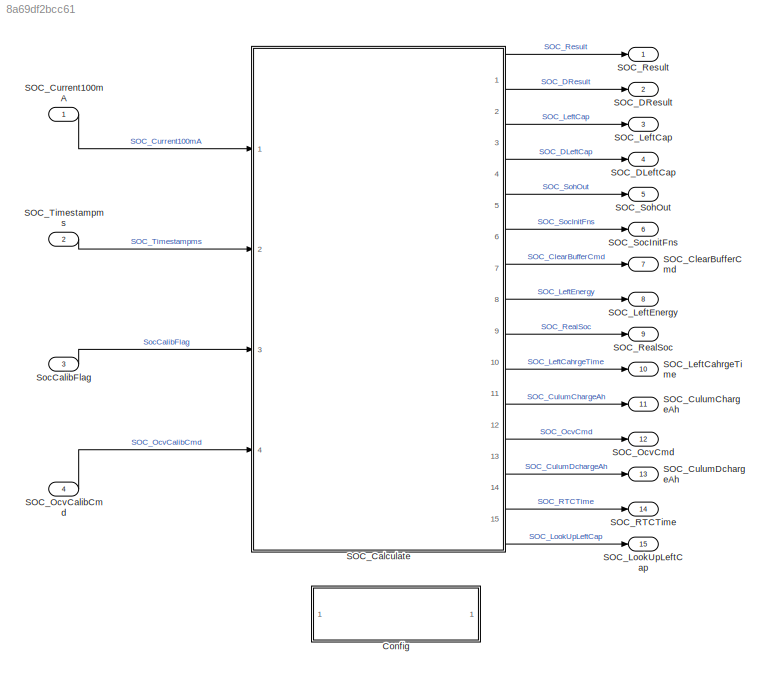
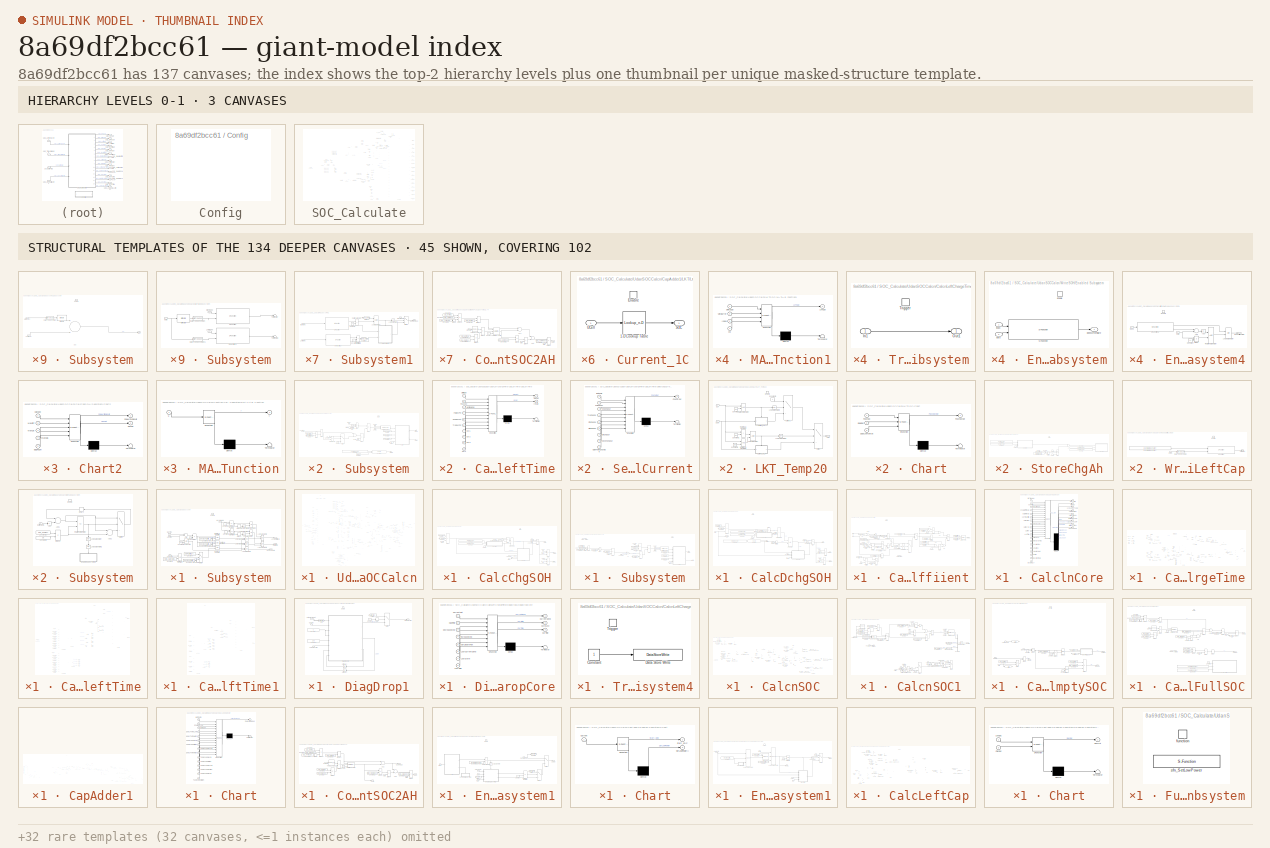
[diagram: thumbnail index - top-2 hierarchy levels (3 canvases) + 45 structural-template representatives of the remaining 134 canvases]
MODEL slx_8a69df2bcc61
KIND model
CONFIG AbsTol = auto
CONFIG EnableMultiTasking = off
CONFIG FixedStep = 0.1
CONFIG MaxStep = auto
CONFIG MinStep = auto
CONFIG RelTol = 1e-3
CONFIG SampleTimeConstraint = Unconstrained
CONFIG Solver = FixedStepAuto
CONFIG SolverName = FixedStepAuto
CONFIG StartTime = 0.0
CONFIG StopTime = 1000
BLOCK [SubSystem] Config
  OpenFcn = run('BlockConfig.m')
  Ports = []
  RequestExecContextInheritance = off
  Variant = off
BLOCK [SubSystem] SOC_Calculate
  Ports = [4, 15]
  RTWFcnName = SOC_Calculate
  RTWFcnNameOpts = User specified
  RTWSystemCode = Nonreusable function
  RequestExecContextInheritance = off
  TreatAsAtomicUnit = on
  Variant = off
BLOCK [BusSelector] SOC_Calculate/Bus Selector
  OutputAsBus = off
  OutputSignals = func
  Ports = [1, 1]
BLOCK [BusSelector] SOC_Calculate/Bus Selector3
  OutputAsBus = off
  OutputSignals = allowedCurrent,checkCycle,calibCycle,powerOnDelay
  Ports = [1, 4]
BLOCK [Constant] SOC_Calculate/Constant
  OutDataTypeStr = uint32
  Value = 0
BLOCK [Constant] SOC_Calculate/Constant1
  OutDataTypeStr = uint16
  Value = 500
BLOCK [Constant] SOC_Calculate/Constant10
  Commented = on
  OutDataTypeStr = uint8
  Value = 0
BLOCK [Constant] SOC_Calculate/Constant11
  OutDataTypeStr = Bus: Soc_ConfigInfoType
  Value = Soc_ConfigInfo
BLOCK [Constant] SOC_Calculate/Constant12
  Value = hex2dec('FFFF')
BLOCK [Constant] SOC_Calculate/Constant2
  OutDataTypeStr = uint16
  Value = 65534
BLOCK [Constant] SOC_Calculate/Constant3
  OutDataTypeStr = uint8
  Value = SOC_OCVTemp_HLimit
BLOCK [Constant] SOC_Calculate/Constant4
  OutDataTypeStr = uint8
  Value = SOC_OCVTemp_LLimit
BLOCK [Constant] SOC_Calculate/Constant5
  OutDataTypeStr = uint8
  Value = 0
BLOCK [Constant] SOC_Calculate/Constant6
  OutDataTypeStr = uint8
  Value = 0
BLOCK [Constant] SOC_Calculate/Constant7
  OutDataTypeStr = uint8
  Value = 0
BLOCK [Constant] SOC_Calculate/Constant8
  OutDataTypeStr = Bus: SocOcvCalib_ConfigType
  Value = SocOcvCalib_ConfigInfo
BLOCK [Constant] SOC_Calculate/Constant9
  OutDataTypeStr = uint8
  Value = 60
BLOCK [Product] SOC_Calculate/Divide1
  InputSameDT = off
  Inputs = **
  OutDataTypeStr = uint32
  Ports = [2, 1]
  RndMeth = Floor
  SaturateOnIntegerOverflow = off
BLOCK [Reference] SOC_Calculate/Enumerated Constant  REF=simulink/Sources/Enumerated
Constant
  Ports = [0, 1]
  SourceBlock = simulink/Sources/Enumerated\nConstant
  SourceProductBaseCode = SL
  SourceProductName = Simulink
  SourceType = Enumerated Constant
BLOCK [Reference] SOC_Calculate/Enumerated Constant1  REF=simulink/Sources/Enumerated
Constant
  Ports = [0, 1]
  SourceBlock = simulink/Sources/Enumerated\nConstant
  SourceProductBaseCode = SL
  SourceProductName = Simulink
  SourceType = Enumerated Constant
BLOCK [Reference] SOC_Calculate/Enumerated Constant2  REF=simulink/Sources/Enumerated
Constant
  Ports = [0, 1]
  SourceBlock = simulink/Sources/Enumerated\nConstant
  SourceProductBaseCode = SL
  SourceProductName = Simulink
  SourceType = Enumerated Constant
BLOCK [Reference] SOC_Calculate/Enumerated Constant3  REF=simulink/Sources/Enumerated
Constant
  Commented = on
  Ports = [0, 1]
  SourceBlock = simulink/Sources/Enumerated\nConstant
  SourceProductBaseCode = SL
  SourceProductName = Simulink
  SourceType = Enumerated Constant
BLOCK [Reference] SOC_Calculate/Enumerated Constant4  REF=simulink/Sources/Enumerated
Constant
  Commented = on
  Ports = [0, 1]
  SourceBlock = simulink/Sources/Enumerated\nConstant
  SourceProductBaseCode = SL
  SourceProductName = Simulink
  SourceType = Enumerated Constant
BLOCK [Reference] SOC_Calculate/Enumerated Constant5  REF=simulink/Sources/Enumerated
Constant
  Ports = [0, 1]
  SourceBlock = simulink/Sources/Enumerated\nConstant
  SourceProductBaseCode = SL
  SourceProductName = Simulink
  SourceType = Enumerated Constant
BLOCK [Reference] SOC_Calculate/Enumerated Constant6  REF=simulink/Sources/Enumerated
Constant
  Ports = [0, 1]
  SourceBlock = simulink/Sources/Enumerated\nConstant
  SourceProductBaseCode = SL
  SourceProductName = Simulink
  SourceType = Enumerated Constant
BLOCK [From] SOC_Calculate/From
  GotoTag = NowTime
BLOCK [From] SOC_Calculate/From1
  GotoTag = LastOcvTime
BLOCK [From] SOC_Calculate/From2
  GotoTag = CellTemp
BLOCK [From] SOC_Calculate/From3
  GotoTag = SOC_Timestampms
BLOCK [From] SOC_Calculate/From4
  GotoTag = RTCTimeOk
BLOCK [From] SOC_Calculate/From5
  GotoTag = UCell
BLOCK [From] SOC_Calculate/From6
  GotoTag = CellTemp
BLOCK [S-Function] SOC_Calculate/GetEmptyCalibFunc
  EnableBusSupport = off
  FunctionName = GetEmptyCalibFunc
  Ports = [1, 1]
  SFcnIsStateOwnerBlock = off
  SFunctionDeploymentMode = off
BLOCK [Goto] SOC_Calculate/Goto
  GotoTag = NowTime
BLOCK [Goto] SOC_Calculate/Goto1
  GotoTag = RTCTimeOk
BLOCK [Goto] SOC_Calculate/Goto2
  GotoTag = SOC_Timestampms
BLOCK [Goto] SOC_Calculate/Goto3
  GotoTag = CellTemp
BLOCK [Goto] SOC_Calculate/Goto4
  GotoTag = LastOcvTime
BLOCK [Goto] SOC_Calculate/Goto5
  GotoTag = UCell
BLOCK [Reference] SOC_Calculate/Interval Test Dynamic  REF=simulink/Logic and Bit
Operations/Interval Test
Dynamic
  Ports = [3, 1]
  SourceBlock = simulink/Logic and Bit\nOperations/Interval Test\nDynamic
  SourceProductBaseCode = SL
  SourceProductName = Simulink
  SourceType = Interval Test Dynamic
BLOCK [Logic] SOC_Calculate/Logical Operator
  AllPortsSameDT = off
  Operator = OR
  OutDataTypeStr = boolean
  Ports = [2, 1]
BLOCK [Logic] SOC_Calculate/Logical Operator1
  AllPortsSameDT = off
  OutDataTypeStr = boolean
  Ports = [2, 1]
BLOCK [Logic] SOC_Calculate/Logical Operator3
  AllPortsSameDT = off
  Operator = OR
  OutDataTypeStr = boolean
  Ports = [2, 1]
BLOCK [Inport] SOC_Calculate/OcvCalibCmd
  IconDisplay = Port number
  Port = 4
BLOCK [RelationalOperator] SOC_Calculate/Relational Operator
  InputSameDT = off
  OutDataTypeStr = boolean
  Ports = [2, 1]
  RndMeth = Simplest
BLOCK [RelationalOperator] SOC_Calculate/Relational Operator1
  InputSameDT = off
  Operator = <
  OutDataTypeStr = boolean
  Ports = [2, 1]
  RndMeth = Simplest
BLOCK [RelationalOperator] SOC_Calculate/Relational Operator2
  InputSameDT = off
  Operator = ==
  OutDataTypeStr = boolean
  Ports = [2, 1]
BLOCK [RelationalOperator] SOC_Calculate/Relational Operator3
  InputSameDT = off
  Operator = ==
  OutDataTypeStr = boolean
  Ports = [2, 1]
BLOCK [RelationalOperator] SOC_Calculate/Relational Operator4
  InputSameDT = off
  Operator = ==
  OutDataTypeStr = boolean
  Ports = [2, 1]
BLOCK [RelationalOperator] SOC_Calculate/Relational Operator5
  Commented = on
  InputSameDT = off
  Operator = ==
  OutDataTypeStr = boolean
  Ports = [2, 1]
BLOCK [RelationalOperator] SOC_Calculate/Relational Operator6
  Commented = on
  InputSameDT = off
  Operator = ==
  OutDataTypeStr = boolean
  Ports = [2, 1]
BLOCK [RelationalOperator] SOC_Calculate/Relational Operator7
  InputSameDT = off
  Operator = <
  OutDataTypeStr = boolean
  Ports = [2, 1]
  RndMeth = Simplest
BLOCK [S-Function] SOC_Calculate/S-Function
  EnableBusSupport = off
  FunctionName = sfn_ChgConnectFlag
  Ports = [0, 1]
  SFcnIsStateOwnerBlock = off
  SFunctionDeploymentMode = off
BLOCK [S-Function] SOC_Calculate/S-Function1
  Commented = on
  EnableBusSupport = off
  FunctionName = sfn_ChgFnsFlagFlag
  Ports = [0, 1]
  SFcnIsStateOwnerBlock = off
  SFunctionDeploymentMode = off
BLOCK [S-Function] SOC_Calculate/S-Function2
  EnableBusSupport = off
  FunctionName = sfn_GetBcuHt
  Ports = [1, 1]
  SFcnIsStateOwnerBlock = off
  SFunctionDeploymentMode = off
BLOCK [S-Function] SOC_Calculate/S-Function3
  EnableBusSupport = off
  FunctionName = sfn_GetBcuLt
  Ports = [1, 1]
  SFcnIsStateOwnerBlock = off
  SFunctionDeploymentMode = off
BLOCK [S-Function] SOC_Calculate/S-Function4
  EnableBusSupport = off
  FunctionName = sfn_GetBcuLv
  Ports = [1, 1]
  SFcnIsStateOwnerBlock = off
  SFunctionDeploymentMode = off
BLOCK [S-Function] SOC_Calculate/S-Function5
  EnableBusSupport = off
  FunctionName = sfn_GetDateTime
  Ports = [0, 2]
  SFcnIsStateOwnerBlock = off
  SFunctionDeploymentMode = off
BLOCK [S-Function] SOC_Calculate/S-Function6
  Commented = on
  EnableBusSupport = off
  FunctionName = GetBcuHv
  Ports = [1, 1]
  SFcnIsStateOwnerBlock = off
  SFunctionDeploymentMode = off
BLOCK [Outport] SOC_Calculate/SOC_ClearBufferCmd
  IconDisplay = Port number
  Port = 7
BLOCK [Outport] SOC_Calculate/SOC_CulumChargeAh
  IconDisplay = Port number
  Port = 11
BLOCK [Outport] SOC_Calculate/SOC_CulumDchargeAh
  IconDisplay = Port number
  Port = 13
BLOCK [Inport] SOC_Calculate/SOC_Current
  IconDisplay = Port number
BLOCK [Outport] SOC_Calculate/SOC_DLeftCap
  IconDisplay = Port number
  Port = 4
BLOCK [Outport] SOC_Calculate/SOC_LeftCahrgeTime
  IconDisplay = Port number
  Port = 10
BLOCK [Outport] SOC_Calculate/SOC_LeftCap
  IconDisplay = Port number
  Port = 3
BLOCK [Outport] SOC_Calculate/SOC_LeftEnergy
  IconDisplay = Port number
  Port = 8
BLOCK [Outport] SOC_Calculate/SOC_LookUpLeftCap
  IconDisplay = Port number
  Port = 15
BLOCK [Outport] SOC_Calculate/SOC_OcvCmd
  IconDisplay = Port number
  Port = 12
BLOCK [Outport] SOC_Calculate/SOC_RTCTime
  IconDisplay = Port number
  Port = 14
BLOCK [Outport] SOC_Calculate/SOC_RealSoc
  IconDisplay = Port number
  Port = 9
BLOCK [Outport] SOC_Calculate/SOC_SocInitFns
  IconDisplay = Port number
  Port = 6
BLOCK [Outport] SOC_Calculate/SOC_SohOut
  IconDisplay = Port number
  Port = 5
BLOCK [Inport] SOC_Calculate/SOC_Timestampms
  IconDisplay = Port number
  OutDataTypeStr = uint32
  Port = 2
  PortDimensions = [1]
  SignalType = real
  VarSizeSig = No
BLOCK [Inport] SOC_Calculate/SocCalibFlag
  IconDisplay = Port number
  OutDataTypeStr = uint8
  Port = 3
  PortDimensions = [1]
  SignalType = real
  VarSizeSig = No
BLOCK [Outport] SOC_Calculate/SocDParam
  IconDisplay = Port number
  Port = 2
BLOCK [Outport] SOC_Calculate/SocParam
  IconDisplay = Port number
BLOCK [SubSystem] SOC_Calculate/Subsystem
  Ports = [4, 3, 1]
  RequestExecContextInheritance = off
  Variant = off
BLOCK [Sum] SOC_Calculate/Subsystem/Add
  AccumDataTypeStr = int32
  InputSameDT = off
  Inputs = +-
  OutDataTypeStr = int32
  Ports = [2, 1]
  SaturateOnIntegerOverflow = off
BLOCK [Outport] SOC_Calculate/Subsystem/BatOffIsOk
  IconDisplay = Port number
  Port = 2
BLOCK [BusSelector] SOC_Calculate/Subsystem/Bus Selector1
  OutputAsBus = off
  OutputSignals = calibCycle
  Ports = [1, 1]
BLOCK [BusSelector] SOC_Calculate/Subsystem/Bus Selector2
  OutputAsBus = off
  OutputSignals = longCycle
  Ports = [1, 1]
BLOCK [BusSelector] SOC_Calculate/Subsystem/Bus Selector3
  OutputAsBus = off
  OutputSignals = calibCycle
  Ports = [1, 1]
BLOCK [Constant] SOC_Calculate/Subsystem/Constant
  OutDataTypeStr = uint16
  Value = 1000
BLOCK [Constant] SOC_Calculate/Subsystem/Constant1
  Value = SOC_CalcSOHTempLimit
BLOCK [Constant] SOC_Calculate/Subsystem/Constant2
  OutDataTypeStr = Bus: SocOcvCalib_ConfigType
  Value = SocOcvCalib_ConfigInfo
BLOCK [Constant] SOC_Calculate/Subsystem/Constant3
  OutDataTypeStr = Bus: SocOcvCalib_ConfigType
  Value = SocOcvCalib_ConfigInfo
BLOCK [Constant] SOC_Calculate/Subsystem/Constant4
  OutDataTypeStr = uint8
  Value = 2
BLOCK [Constant] SOC_Calculate/Subsystem/Constant5
  OutDataTypeStr = uint8
  Value = 60
BLOCK [Constant] SOC_Calculate/Subsystem/Constant6
  OutDataTypeStr = Bus: SocOcvCalib_ConfigType
  Value = SocOcvCalib_ConfigInfo
BLOCK [Constant] SOC_Calculate/Subsystem/Constant7
  Value = SOHCalibCycle
BLOCK [Constant] SOC_Calculate/Subsystem/Constant8
  OutDataTypeStr = uint8
BLOCK [Delay] SOC_Calculate/Subsystem/Delay1
  DelayLength = 1
  InitialCondition = 0
  InputPortMap = u0
  Ports = [1, 1]
BLOCK [Delay] SOC_Calculate/Subsystem/Delay10
  DelayLength = 1
  InitialCondition = 0
  InputPortMap = u0
  Ports = [1, 1]
BLOCK [Product] SOC_Calculate/Subsystem/Divide
  InputSameDT = off
  Inputs = */
  OutDataTypeStr = int32
  Ports = [2, 1]
  RndMeth = Floor
  SaturateOnIntegerOverflow = off
BLOCK [EnablePort] SOC_Calculate/Subsystem/Enable
  Ports = []
BLOCK [Inport] SOC_Calculate/Subsystem/LastTime
  IconDisplay = Port number
  Port = 2
BLOCK [Logic] SOC_Calculate/Subsystem/Logical Operator
  AllPortsSameDT = off
  OutDataTypeStr = boolean
  Ports = [2, 1]
BLOCK [Logic] SOC_Calculate/Subsystem/Logical Operator1
  AllPortsSameDT = off
  OutDataTypeStr = boolean
  Ports = [2, 1]
BLOCK [Logic] SOC_Calculate/Subsystem/Logical Operator2
  AllPortsSameDT = off
  OutDataTypeStr = boolean
  Ports = [2, 1]
BLOCK [Logic] SOC_Calculate/Subsystem/Logical Operator3
  AllPortsSameDT = off
  OutDataTypeStr = boolean
  Ports = [2, 1]
BLOCK [Logic] SOC_Calculate/Subsystem/Logical Operator4
  AllPortsSameDT = off
  Operator = NOT
  OutDataTypeStr = boolean
  Ports = [1, 1]
BLOCK [Logic] SOC_Calculate/Subsystem/Logical Operator5
  AllPortsSameDT = off
  Operator = OR
  OutDataTypeStr = boolean
  Ports = [2, 1]
BLOCK [Logic] SOC_Calculate/Subsystem/Logical Operator6
  AllPortsSameDT = off
  OutDataTypeStr = boolean
  Ports = [2, 1]
BLOCK [Logic] SOC_Calculate/Subsystem/Logical Operator7
  AllPortsSameDT = off
  Operator = NOT
  OutDataTypeStr = boolean
  Ports = [1, 1]
BLOCK [Logic] SOC_Calculate/Subsystem/Logical Operator8
  AllPortsSameDT = off
  Operator = OR
  OutDataTypeStr = boolean
  Ports = [2, 1]
BLOCK [Outport] SOC_Calculate/Subsystem/LongBatOffIsOk
  IconDisplay = Port number
BLOCK [Inport] SOC_Calculate/Subsystem/LowTemp
  IconDisplay = Port number
  Port = 3
BLOCK [Inport] SOC_Calculate/Subsystem/NowTime
  IconDisplay = Port number
BLOCK [Inport] SOC_Calculate/Subsystem/OcvCalibCmd
  IconDisplay = Port number
  Port = 4
BLOCK [RelationalOperator] SOC_Calculate/Subsystem/Relational Operator
  InputSameDT = off
  OutDataTypeStr = boolean
  Ports = [2, 1]
  RndMeth = Simplest
BLOCK [RelationalOperator] SOC_Calculate/Subsystem/Relational Operator1
  InputSameDT = off
  OutDataTypeStr = boolean
  Ports = [2, 1]
BLOCK [RelationalOperator] SOC_Calculate/Subsystem/Relational Operator2
  InputSameDT = off
  OutDataTypeStr = boolean
  Ports = [2, 1]
  RndMeth = Simplest
BLOCK [RelationalOperator] SOC_Calculate/Subsystem/Relational Operator3
  InputSameDT = off
  OutDataTypeStr = boolean
  Ports = [2, 1]
BLOCK [RelationalOperator] SOC_Calculate/Subsystem/Relational Operator4
  InputSameDT = off
  OutDataTypeStr = boolean
  Ports = [2, 1]
BLOCK [RelationalOperator] SOC_Calculate/Subsystem/Relational Operator5
  InputSameDT = off
  Operator = ==
  OutDataTypeStr = boolean
  Ports = [2, 1]
  RndMeth = Simplest
BLOCK [RelationalOperator] SOC_Calculate/Subsystem/Relational Operator6
  InputSameDT = off
  Operator = ==
  OutDataTypeStr = boolean
  Ports = [2, 1]
  RndMeth = Simplest
BLOCK [Outport] SOC_Calculate/Subsystem/SohCondIsOk
  IconDisplay = Port number
  Port = 3
BLOCK [Switch] SOC_Calculate/Subsystem/Switch
  Criteria = u2 > Threshold
  InputSameDT = off
  SaturateOnIntegerOverflow = off
BLOCK [SubSystem] SOC_Calculate/Subsystem1
  Ports = [3, 1]
  RequestExecContextInheritance = off
  Variant = off
BLOCK [Constant] SOC_Calculate/Subsystem1/Constant1
  OutDataTypeStr = uint8
  Value = 0
BLOCK [Constant] SOC_Calculate/Subsystem1/Constant2
  OutDataTypeStr = uint8
  Value = 0
BLOCK [Inport] SOC_Calculate/Subsystem1/DefaultValue
  IconDisplay = Port number
  Port = 3
BLOCK [Outport] SOC_Calculate/Subsystem1/EeepRead32
  IconDisplay = Port number
BLOCK [From] SOC_Calculate/Subsystem1/From
  GotoTag = ReadLowOk
BLOCK [Goto] SOC_Calculate/Subsystem1/Goto
  GotoTag = ReadLowOk
BLOCK [Inport] SOC_Calculate/Subsystem1/HighIndex
  IconDisplay = Port number
BLOCK [Logic] SOC_Calculate/Subsystem1/Logical Operator
  AllPortsSameDT = off
  OutDataTypeStr = boolean
  Ports = [2, 1]
BLOCK [Logic] SOC_Calculate/Subsystem1/Logical Operator1
  AllPortsSameDT = off
  Operator = NOT
  OutDataTypeStr = boolean
  Ports = [1, 1]
BLOCK [Inport] SOC_Calculate/Subsystem1/LowIndex
  IconDisplay = Port number
  Port = 2
BLOCK [RelationalOperator] SOC_Calculate/Subsystem1/Relational Operator
  InputSameDT = off
  Operator = ==
  OutDataTypeStr = boolean
  Ports = [2, 1]
  RndMeth = Simplest
BLOCK [RelationalOperator] SOC_Calculate/Subsystem1/Relational Operator1
  InputSameDT = off
  Operator = ==
  OutDataTypeStr = boolean
  Ports = [2, 1]
  RndMeth = Simplest
BLOCK [S-Function] SOC_Calculate/Subsystem1/S-Function
  EnableBusSupport = off
  FunctionName = sfn_NVMRead
  Ports = [1, 2]
  SFcnIsStateOwnerBlock = off
  SFunctionDeploymentMode = off
BLOCK [S-Function] SOC_Calculate/Subsystem1/S-Function1
  EnableBusSupport = off
  FunctionName = sfn_NVMRead
  Ports = [1, 2]
  SFcnIsStateOwnerBlock = off
  SFunctionDeploymentMode = off
BLOCK [SubSystem] SOC_Calculate/Subsystem1/Subsystem
  Ports = [2, 1, 1]
  RequestExecContextInheritance = off
  Variant = off
BLOCK [Sum] SOC_Calculate/Subsystem1/Subsystem/Add
  InputSameDT = off
  OutDataTypeStr = Inherit: Inherit via internal rule
  Ports = [2, 1]
  SaturateOnIntegerOverflow = off
BLOCK [Reference] SOC_Calculate/Subsystem1/Subsystem/Bit Rotate  REF=hdlsllib/Logic and Bit
Operations/Bit Rotate
  Ports = [1, 1]
  SourceBlock = hdlsllib/Logic and Bit\nOperations/Bit Rotate
  SourceProductBaseCode = HD
  SourceProductName = HDL Coder
  SourceType = Bit Rotate
BLOCK [DataTypeConversion] SOC_Calculate/Subsystem1/Subsystem/Data Type Conversion
  OutDataTypeStr = uint32
  RndMeth = Floor
  SaturateOnIntegerOverflow = off
BLOCK [EnablePort] SOC_Calculate/Subsystem1/Subsystem/Enable
  Ports = []
BLOCK [Inport] SOC_Calculate/Subsystem1/Subsystem/HighIndex
  IconDisplay = Port number
BLOCK [Inport] SOC_Calculate/Subsystem1/Subsystem/LowIndex
  IconDisplay = Port number
  Port = 2
BLOCK [Outport] SOC_Calculate/Subsystem1/Subsystem/soc
  IconDisplay = Port number
BLOCK [Switch] SOC_Calculate/Subsystem1/Switch
  Criteria = u2 > Threshold
  InputSameDT = off
  SaturateOnIntegerOverflow = off
BLOCK [Terminator] SOC_Calculate/Terminator
  Commented = on
BLOCK [Terminator] SOC_Calculate/Terminator1
  Commented = on
BLOCK [Terminator] SOC_Calculate/Terminator2
BLOCK [Terminator] SOC_Calculate/Terminator3
  Commented = on
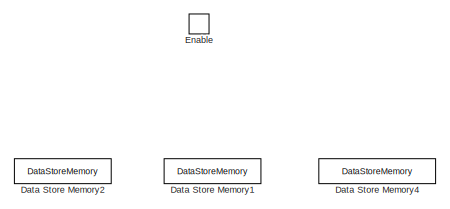
[diagram: SOC_Calculate/UdanSOCCalcn - part 1/14, top left region]
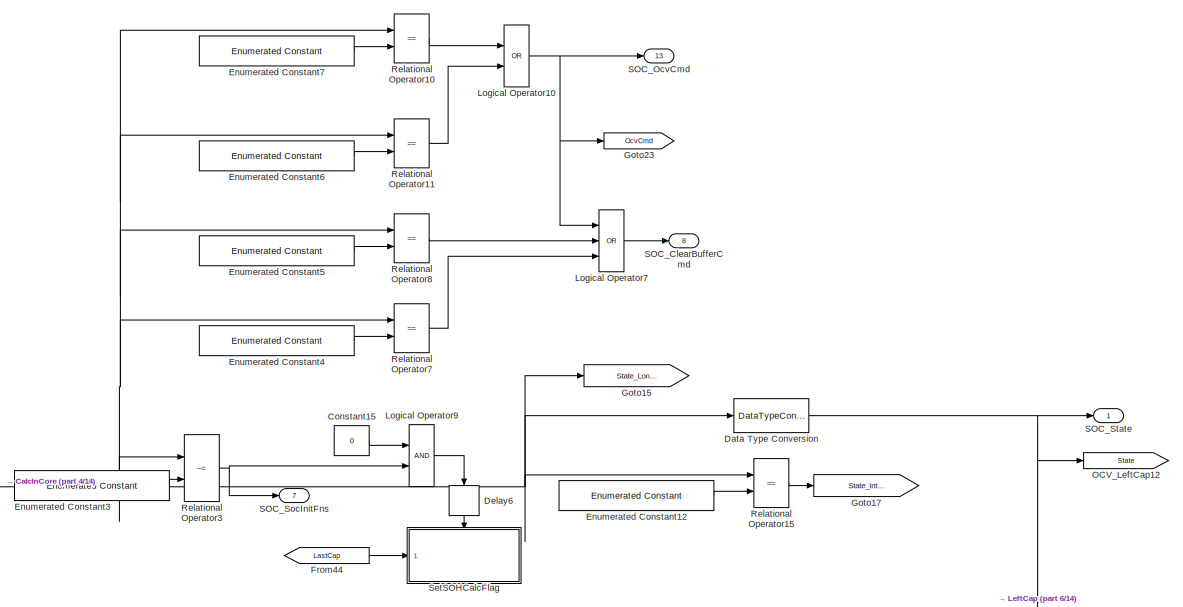
[diagram: SOC_Calculate/UdanSOCCalcn - part 2/14, top center region]
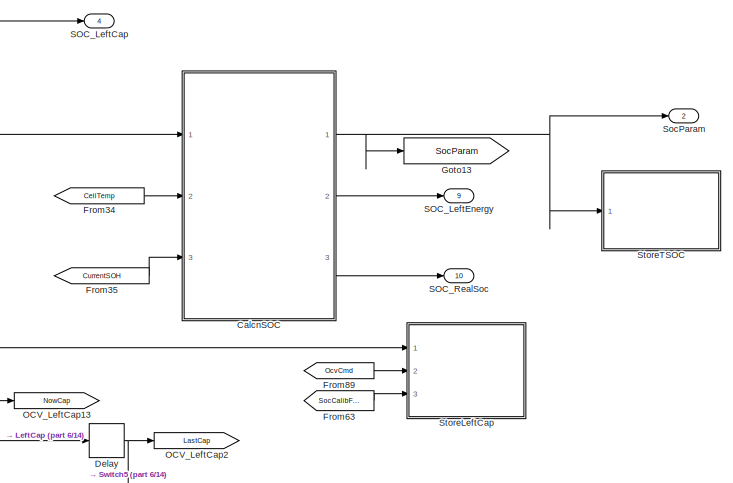
[diagram: SOC_Calculate/UdanSOCCalcn - part 3/14, top center region]
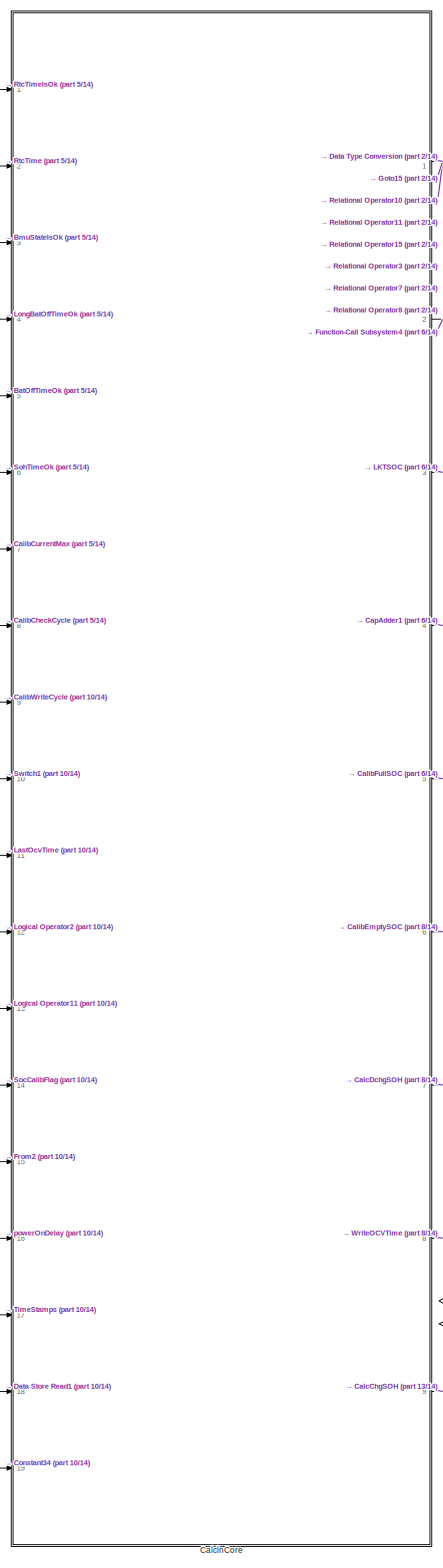
[diagram: SOC_Calculate/UdanSOCCalcn - part 4/14, middle left region]
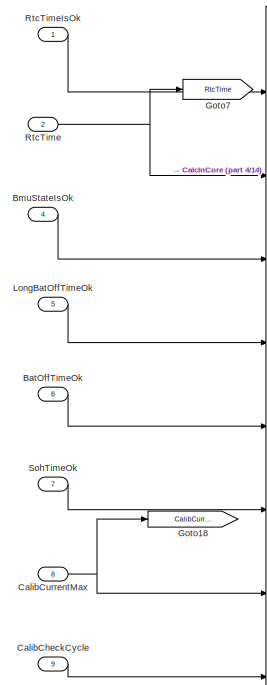
[diagram: SOC_Calculate/UdanSOCCalcn - part 5/14, top left region]
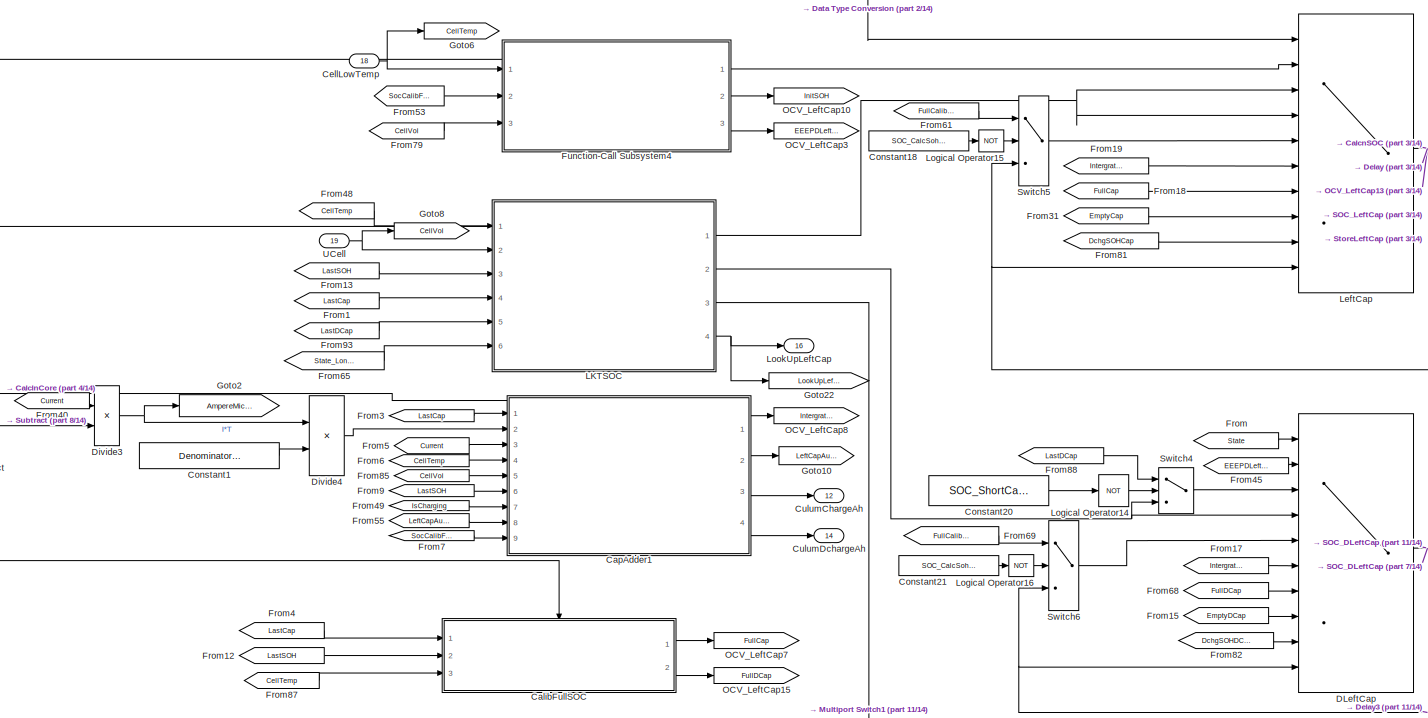
[diagram: SOC_Calculate/UdanSOCCalcn - part 6/14, central region]
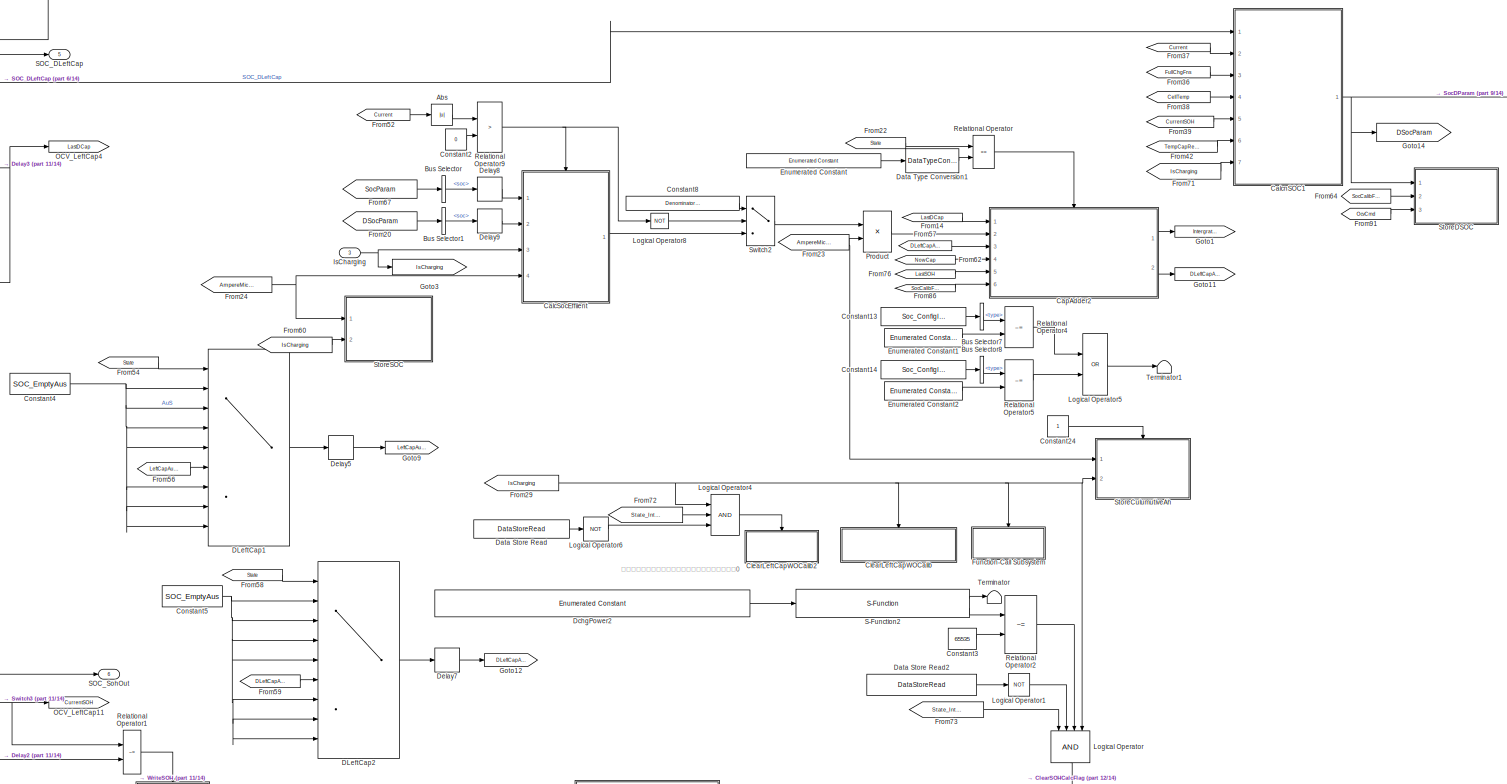
[diagram: SOC_Calculate/UdanSOCCalcn - part 7/14, middle right region]
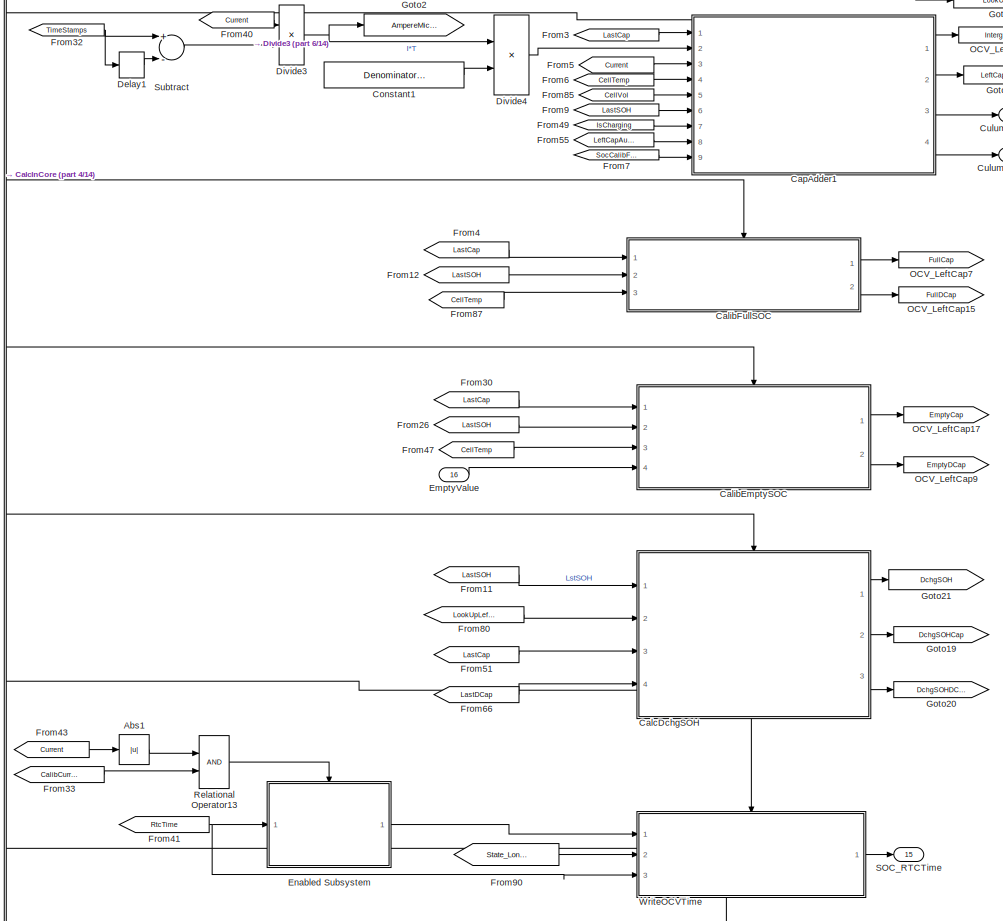
[diagram: SOC_Calculate/UdanSOCCalcn - part 8/14, middle left region]
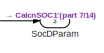
[diagram: SOC_Calculate/UdanSOCCalcn - part 9/14, middle right region]
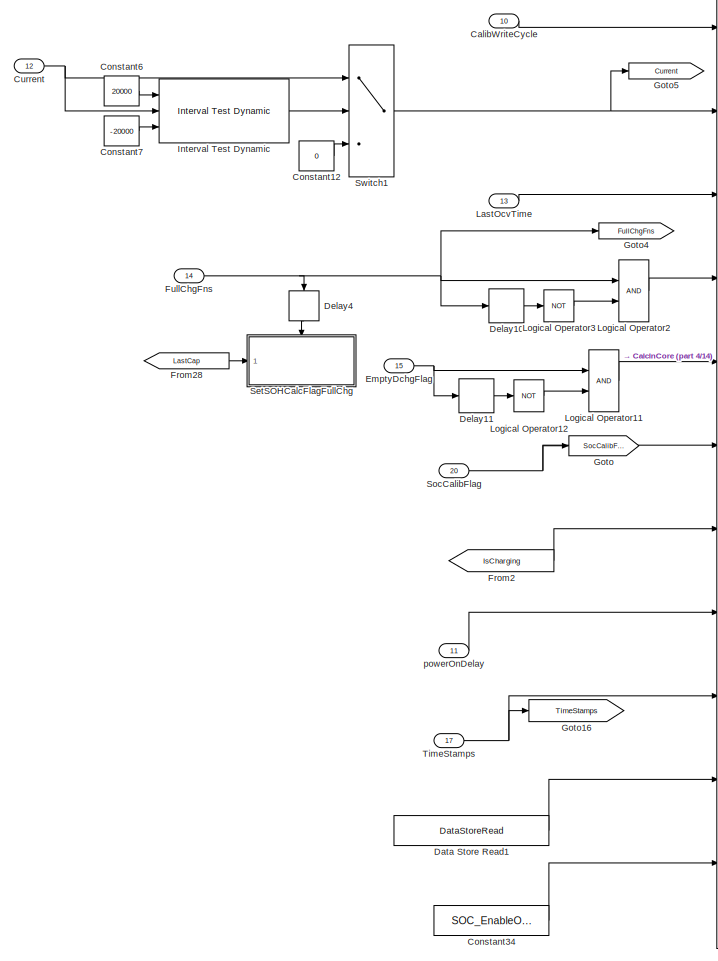
[diagram: SOC_Calculate/UdanSOCCalcn - part 10/14, middle left region]
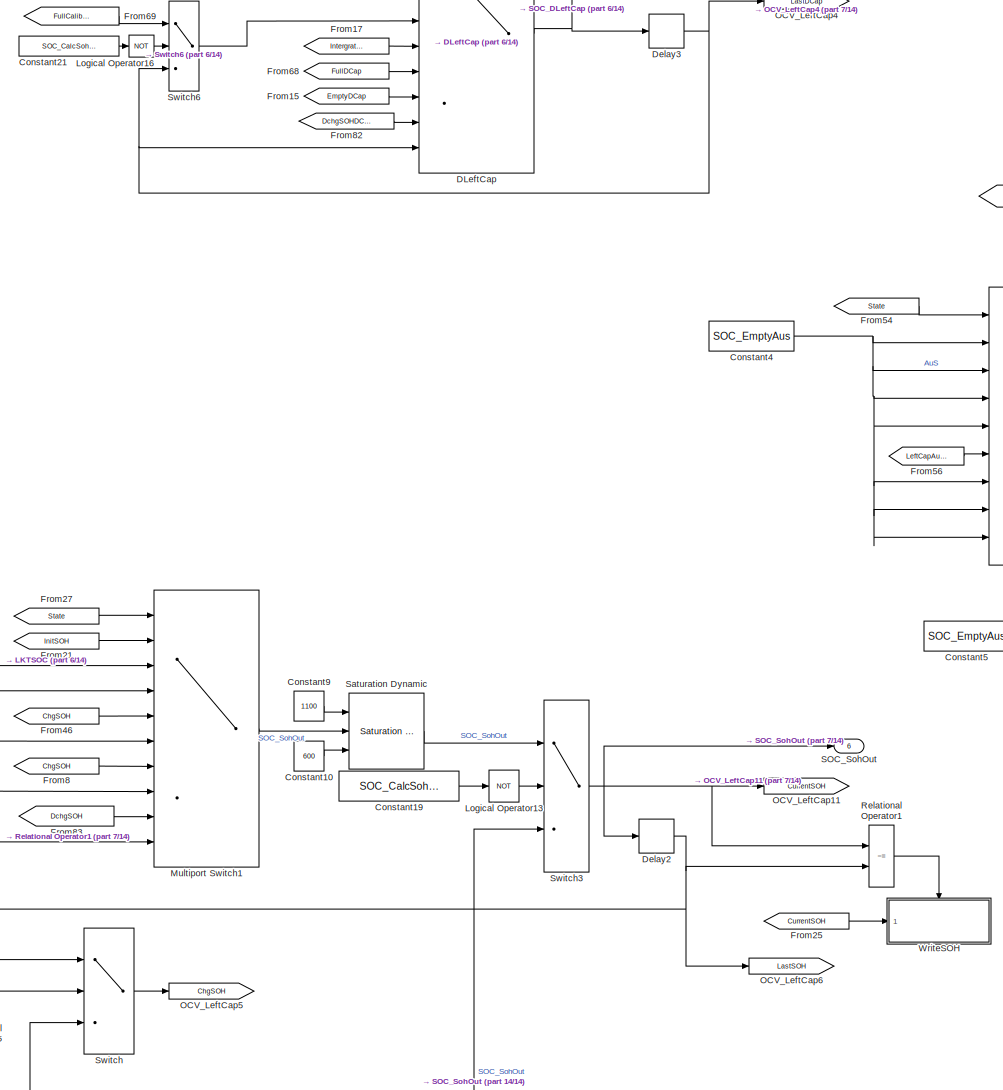
[diagram: SOC_Calculate/UdanSOCCalcn - part 11/14, central region]
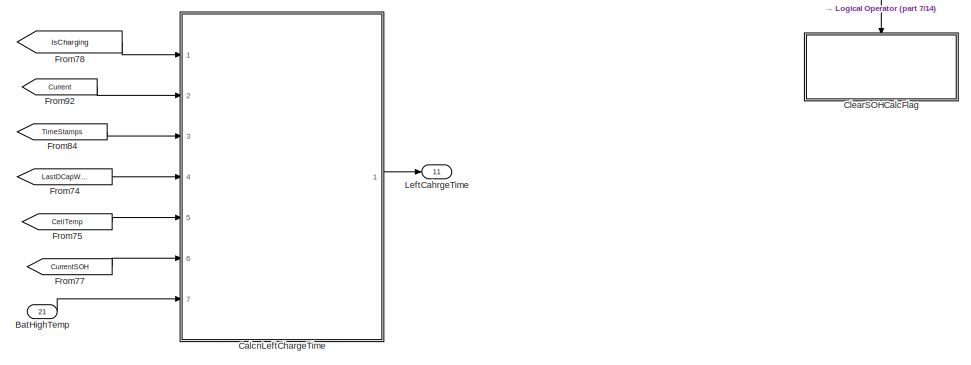
[diagram: SOC_Calculate/UdanSOCCalcn - part 12/14, bottom right region]
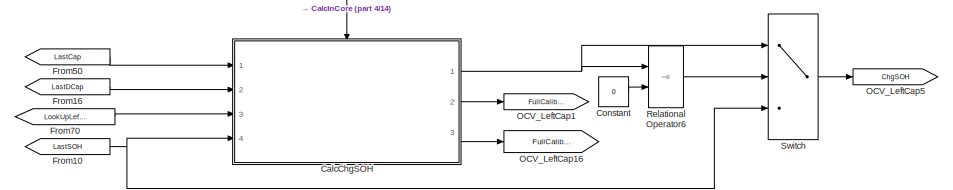
[diagram: SOC_Calculate/UdanSOCCalcn - part 13/14, bottom center region]
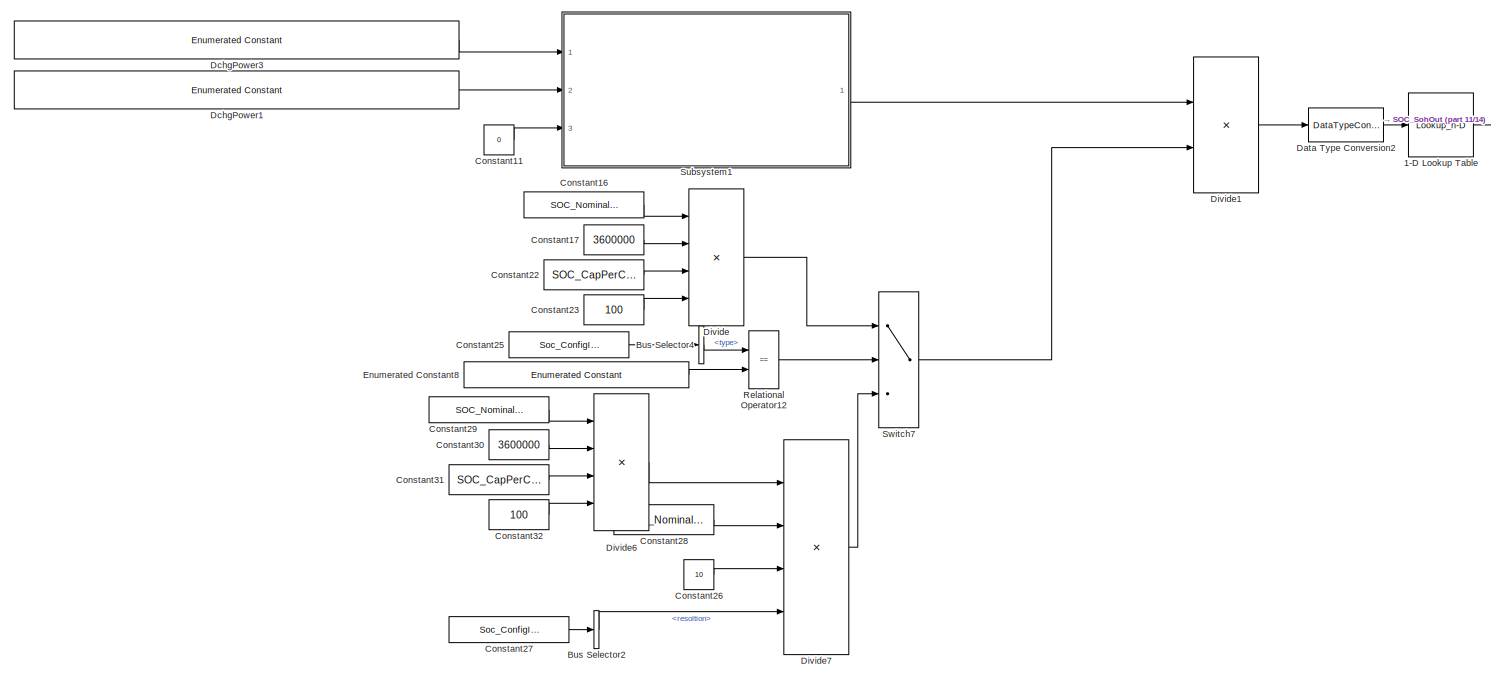
[diagram: SOC_Calculate/UdanSOCCalcn - part 14/14, bottom center region]
BLOCK [SubSystem] SOC_Calculate/UdanSOCCalcn
  Ports = [21, 16, 1]
  RequestExecContextInheritance = off
  Variant = off
BLOCK [Lookup_n-D] SOC_Calculate/UdanSOCCalcn/1-D Lookup Table
  BreakpointsForDimension1 = SOC_LKTSohCycles
  ExtrapMethod = Clip
  InputSameDT = off
  InternalRulePriority = Speed
  NumberOfTableDimensions = 1
  OutDataTypeStr = uint16
  Ports = [1, 1]
  RndMeth = Simplest
  Table = SOC_LKTSohTable
BLOCK [Abs] SOC_Calculate/UdanSOCCalcn/Abs
  SaturateOnIntegerOverflow = off
BLOCK [Abs] SOC_Calculate/UdanSOCCalcn/Abs1
  SaturateOnIntegerOverflow = off
BLOCK [Inport] SOC_Calculate/UdanSOCCalcn/BatHighTemp
  IconDisplay = Port number
  Port = 21
BLOCK [Inport] SOC_Calculate/UdanSOCCalcn/BatOffTimeOk
  IconDisplay = Port number
  Port = 6
BLOCK [Inport] SOC_Calculate/UdanSOCCalcn/BmuStateIsOk
  IconDisplay = Port number
  Port = 4
BLOCK [BusSelector] SOC_Calculate/UdanSOCCalcn/Bus Selector
  OutputAsBus = off
  OutputSignals = soc
  Ports = [1, 1]
BLOCK [BusSelector] SOC_Calculate/UdanSOCCalcn/Bus Selector1
  OutputAsBus = off
  OutputSignals = soc
  Ports = [1, 1]
BLOCK [BusSelector] SOC_Calculate/UdanSOCCalcn/Bus Selector2
  OutputAsBus = off
  OutputSignals = DchgCumuInfo.resoltion
  Ports = [1, 1]
BLOCK [BusSelector] SOC_Calculate/UdanSOCCalcn/Bus Selector4
  OutputAsBus = off
  OutputSignals = DchgCumuInfo.type
  Ports = [1, 1]
BLOCK [BusSelector] SOC_Calculate/UdanSOCCalcn/Bus Selector7
  OutputAsBus = off
  OutputSignals = ChgCumuInfo.type
  Ports = [1, 1]
BLOCK [BusSelector] SOC_Calculate/UdanSOCCalcn/Bus Selector8
  OutputAsBus = off
  OutputSignals = DchgCumuInfo.type
  Ports = [1, 1]
BLOCK [SubSystem] SOC_Calculate/UdanSOCCalcn/CalcChgSOH
  Ports = [4, 3, 0, 1]
  RequestExecContextInheritance = off
  TreatAsAtomicUnit = on
  Variant = off
BLOCK [Inport] SOC_Calculate/UdanSOCCalcn/CalcChgSOH/Capacity
  IconDisplay = Port number
BLOCK [Constant] SOC_Calculate/UdanSOCCalcn/CalcChgSOH/Constant
  OutDataTypeStr = uint8
  Value = 10
BLOCK [Constant] SOC_Calculate/UdanSOCCalcn/CalcChgSOH/Constant1
  OutDataTypeStr = uint8
  Value = SOC_SohCalcCapPercent
BLOCK [Constant] SOC_Calculate/UdanSOCCalcn/CalcChgSOH/Constant15
  OutDataTypeStr = uint16
  Value = SOC_SOHResolution
BLOCK [Constant] SOC_Calculate/UdanSOCCalcn/CalcChgSOH/Constant2
  OutDataTypeStr = uint32
  Value = 0
BLOCK [Constant] SOC_Calculate/UdanSOCCalcn/CalcChgSOH/Constant31
  Value = SOC_NominalCap_AmS
BLOCK [Inport] SOC_Calculate/UdanSOCCalcn/CalcChgSOH/DCapacity
  IconDisplay = Port number
  Port = 2
BLOCK [Outport] SOC_Calculate/UdanSOCCalcn/CalcChgSOH/DNewCap
  IconDisplay = Port number
  Port = 3
BLOCK [Reference] SOC_Calculate/UdanSOCCalcn/CalcChgSOH/DchgPower2  REF=simulink/Sources/Enumerated
Constant
  Ports = [0, 1]
  SourceBlock = simulink/Sources/Enumerated\nConstant
  SourceProductBaseCode = SL
  SourceProductName = Simulink
  SourceType = Enumerated Constant
BLOCK [Reference] SOC_Calculate/UdanSOCCalcn/CalcChgSOH/DchgPower4  REF=simulink/Sources/Enumerated
Constant
  Ports = [0, 1]
  SourceBlock = simulink/Sources/Enumerated\nConstant
  SourceProductBaseCode = SL
  SourceProductName = Simulink
  SourceType = Enumerated Constant
BLOCK [Product] SOC_Calculate/UdanSOCCalcn/CalcChgSOH/Divide
  InputSameDT = off
  Inputs = */*
  OutDataTypeStr = uint32
  Ports = [3, 1]
  RndMeth = Floor
  SaturateOnIntegerOverflow = off
BLOCK [Product] SOC_Calculate/UdanSOCCalcn/CalcChgSOH/Divide1
  InputSameDT = off
  Inputs = */*
  OutDataTypeStr = uint32
  Ports = [3, 1]
  RndMeth = Floor
  SaturateOnIntegerOverflow = off
BLOCK [Product] SOC_Calculate/UdanSOCCalcn/CalcChgSOH/Divide2
  InputSameDT = off
  Inputs = */*
  OutDataTypeStr = uint32
  Ports = [3, 1]
  RndMeth = Floor
  SaturateOnIntegerOverflow = off
BLOCK [Product] SOC_Calculate/UdanSOCCalcn/CalcChgSOH/Divide5
  InputSameDT = off
  Inputs = */*
  OutDataTypeStr = uint32
  Ports = [3, 1]
  RndMeth = Floor
  SaturateOnIntegerOverflow = off
BLOCK [From] SOC_Calculate/UdanSOCCalcn/CalcChgSOH/From
  GotoTag = SOHIn
BLOCK [From] SOC_Calculate/UdanSOCCalcn/CalcChgSOH/From1
  GotoTag = SOHIn
BLOCK [From] SOC_Calculate/UdanSOCCalcn/CalcChgSOH/From2
  GotoTag = SOHIn
BLOCK [From] SOC_Calculate/UdanSOCCalcn/CalcChgSOH/From3
  GotoTag = SOHIn
BLOCK [Goto] SOC_Calculate/UdanSOCCalcn/CalcChgSOH/Goto
  GotoTag = SOHIn
BLOCK [Logic] SOC_Calculate/UdanSOCCalcn/CalcChgSOH/Logical Operator1
  AllPortsSameDT = off
  Operator = NOT
  OutDataTypeStr = boolean
  Ports = [1, 1]
BLOCK [Inport] SOC_Calculate/UdanSOCCalcn/CalcChgSOH/LookUpLeftCap
  IconDisplay = Port number
  Port = 3
BLOCK [Outport] SOC_Calculate/UdanSOCCalcn/CalcChgSOH/NewCap
  IconDisplay = Port number
  Port = 2
BLOCK [RelationalOperator] SOC_Calculate/UdanSOCCalcn/CalcChgSOH/Relational Operator
  InputSameDT = off
  Operator = <
  OutDataTypeStr = boolean
  Ports = [2, 1]
  RndMeth = Simplest
BLOCK [Inport] SOC_Calculate/UdanSOCCalcn/CalcChgSOH/SOHIn
  IconDisplay = Port number
  Port = 4
BLOCK [Outport] SOC_Calculate/UdanSOCCalcn/CalcChgSOH/SohOut
  IconDisplay = Port number
BLOCK [SubSystem] SOC_Calculate/UdanSOCCalcn/CalcChgSOH/Subsystem
  Ports = [4, 1, 1]
  RequestExecContextInheritance = off
  Variant = off
BLOCK [Sum] SOC_Calculate/UdanSOCCalcn/CalcChgSOH/Subsystem/Add
  AccumDataTypeStr = uint32
  InputSameDT = off
  Inputs = +-
  OutDataTypeStr = uint32
  Ports = [2, 1]
  SaturateOnIntegerOverflow = off
BLOCK [SubSystem] SOC_Calculate/UdanSOCCalcn/CalcChgSOH/Subsystem/Chart2
  ErrorFcn = Stateflow.Translate.translate
  PermitHierarchicalResolution = ExplicitOnly
  Ports = [5, 2]
  RequestExecContextInheritance = off
  SFBlockType = Chart
  TreatAsAtomicUnit = on
  Variant = off
BLOCK [Demux] SOC_Calculate/UdanSOCCalcn/CalcChgSOH/Subsystem/Chart2/ Demux 
  Outputs = 1
  Ports = [1, 1]
BLOCK [S-Function] SOC_Calculate/UdanSOCCalcn/CalcChgSOH/Subsystem/Chart2/ SFunction 
  EnableBusSupport = on
  FunctionName = sf_sfun
  PortCounts = [5 3]
  Ports = [5, 3]
  SFcnIsStateOwnerBlock = off
  SFunctionDeploymentMode = off
  Tag = Stateflow S-Function Udan_SOC 17
BLOCK [Terminator] SOC_Calculate/UdanSOCCalcn/CalcChgSOH/Subsystem/Chart2/ Terminator 
BLOCK [Inport] SOC_Calculate/UdanSOCCalcn/CalcChgSOH/Subsystem/Chart2/CalcSOH
  IconDisplay = Port number
BLOCK [Inport] SOC_Calculate/UdanSOCCalcn/CalcChgSOH/Subsystem/Chart2/EEEPSOH
  IconDisplay = Port number
  Port = 5
BLOCK [Inport] SOC_Calculate/UdanSOCCalcn/CalcChgSOH/Subsystem/Chart2/MaxCal
  IconDisplay = Port number
  Port = 3
BLOCK [Inport] SOC_Calculate/UdanSOCCalcn/CalcChgSOH/Subsystem/Chart2/MaxCal1
  IconDisplay = Port number
  Port = 4
BLOCK [Inport] SOC_Calculate/UdanSOCCalcn/CalcChgSOH/Subsystem/Chart2/MaxDiff
  IconDisplay = Port number
  Port = 2
BLOCK [Outport] SOC_Calculate/UdanSOCCalcn/CalcChgSOH/Subsystem/Chart2/SOHWriteResult
  IconDisplay = Port number
BLOCK [Outport] SOC_Calculate/UdanSOCCalcn/CalcChgSOH/Subsystem/Chart2/SohOut
  IconDisplay = Port number
  Port = 2
BLOCK [Constant] SOC_Calculate/UdanSOCCalcn/CalcChgSOH/Subsystem/Constant1
  OutDataTypeStr = uint16
  Value = 1200
BLOCK [Constant] SOC_Calculate/UdanSOCCalcn/CalcChgSOH/Subsystem/Constant2
  OutDataTypeStr = uint16
  Value = 800
BLOCK [Constant] SOC_Calculate/UdanSOCCalcn/CalcChgSOH/Subsystem/Constant25
  Value = SOC_NominalCap_AmS
BLOCK [Constant] SOC_Calculate/UdanSOCCalcn/CalcChgSOH/Subsystem/Constant3
  OutDataTypeStr = uint16
  Value = SOC_SOHResolution
BLOCK [Constant] SOC_Calculate/UdanSOCCalcn/CalcChgSOH/Subsystem/Constant31
  Value = SOC_NominalCap_AmS
BLOCK [Constant] SOC_Calculate/UdanSOCCalcn/CalcChgSOH/Subsystem/Constant4
  Value = SOC_SohCalcHighLimit
BLOCK [Constant] SOC_Calculate/UdanSOCCalcn/CalcChgSOH/Subsystem/Constant42
  OutDataTypeStr = uint16
  Value = SOC_SOHResolution
BLOCK [Constant] SOC_Calculate/UdanSOCCalcn/CalcChgSOH/Subsystem/Constant43
  Value = SOC_TempCap_CapBuffer
BLOCK [Constant] SOC_Calculate/UdanSOCCalcn/CalcChgSOH/Subsystem/Constant5
  OutDataTypeStr = uint16
  Value = SOC_SOHResolution
BLOCK [Constant] SOC_Calculate/UdanSOCCalcn/CalcChgSOH/Subsystem/Constant6
  Value = SOC_SohCalcLowLimit
BLOCK [Constant] SOC_Calculate/UdanSOCCalcn/CalcChgSOH/Subsystem/Constant7
  OutDataTypeStr = uint16
  Value = SOC_SOHResolution
BLOCK [Constant] SOC_Calculate/UdanSOCCalcn/CalcChgSOH/Subsystem/Constant8
  Value = SOC_SohCalcMidLimit
BLOCK [Product] SOC_Calculate/UdanSOCCalcn/CalcChgSOH/Subsystem/Divide
  InputSameDT = off
  Inputs = */
  OutDataTypeStr = uint32
  Ports = [2, 1]
  RndMeth = Floor
  SaturateOnIntegerOverflow = off
BLOCK [Product] SOC_Calculate/UdanSOCCalcn/CalcChgSOH/Subsystem/Divide1
  InputSameDT = off
  Inputs = */
  OutDataTypeStr = uint32
  Ports = [2, 1]
  RndMeth = Floor
  SaturateOnIntegerOverflow = off
BLOCK [Product] SOC_Calculate/UdanSOCCalcn/CalcChgSOH/Subsystem/Divide16
  InputSameDT = off
  Inputs = */*
  OutDataTypeStr = uint32
  Ports = [3, 1]
  RndMeth = Floor
  SaturateOnIntegerOverflow = off
BLOCK [Product] SOC_Calculate/UdanSOCCalcn/CalcChgSOH/Subsystem/Divide2
  InputSameDT = off
  Inputs = */*
  OutDataTypeStr = uint32
  Ports = [3, 1]
  RndMeth = Floor
  SaturateOnIntegerOverflow = off
BLOCK [Product] SOC_Calculate/UdanSOCCalcn/CalcChgSOH/Subsystem/Divide3
  InputSameDT = off
  Inputs = */*
  OutDataTypeStr = uint32
  Ports = [3, 1]
  RndMeth = Floor
  SaturateOnIntegerOverflow = off
BLOCK [EnablePort] SOC_Calculate/UdanSOCCalcn/CalcChgSOH/Subsystem/Enable
  Ports = []
BLOCK [From] SOC_Calculate/UdanSOCCalcn/CalcChgSOH/Subsystem/From
  GotoTag = SOHIn
BLOCK [From] SOC_Calculate/UdanSOCCalcn/CalcChgSOH/Subsystem/From1
  GotoTag = SOHIn
BLOCK [Goto] SOC_Calculate/UdanSOCCalcn/CalcChgSOH/Subsystem/Goto
  GotoTag = SOHIn
BLOCK [Inport] SOC_Calculate/UdanSOCCalcn/CalcChgSOH/Subsystem/LookUpLeftCap
  IconDisplay = Port number
  Port = 3
BLOCK [MinMax] SOC_Calculate/UdanSOCCalcn/CalcChgSOH/Subsystem/MinMax
  Function = max
  InputSameDT = off
  Ports = [1, 1]
  SaturateOnIntegerOverflow = off
BLOCK [MinMax] SOC_Calculate/UdanSOCCalcn/CalcChgSOH/Subsystem/MinMax1
  Function = max
  InputSameDT = off
  Inputs = 2
  Ports = [2, 1]
  SaturateOnIntegerOverflow = off
BLOCK [Inport] SOC_Calculate/UdanSOCCalcn/CalcChgSOH/Subsystem/SOC_LeftCap
  IconDisplay = Port number
BLOCK [Inport] SOC_Calculate/UdanSOCCalcn/CalcChgSOH/Subsystem/SOHIn
  IconDisplay = Port number
  Port = 4
BLOCK [Reference] SOC_Calculate/UdanSOCCalcn/CalcChgSOH/Subsystem/Saturation Dynamic  REF=simulink/Discontinuities/Saturation
Dynamic
  Ports = [3, 1]
  SourceBlock = simulink/Discontinuities/Saturation\nDynamic
  SourceProductBaseCode = SL
  SourceProductName = Simulink
  SourceType = Saturation Dynamic
BLOCK [Outport] SOC_Calculate/UdanSOCCalcn/CalcChgSOH/Subsystem/SohOut
  IconDisplay = Port number
BLOCK [Terminator] SOC_Calculate/UdanSOCCalcn/CalcChgSOH/Subsystem/Terminator
BLOCK [Terminator] SOC_Calculate/UdanSOCCalcn/CalcChgSOH/Subsystem/Terminator1
BLOCK [Inport] SOC_Calculate/UdanSOCCalcn/CalcChgSOH/Subsystem/TotalCap
  IconDisplay = Port number
  Port = 2
BLOCK [SubSystem] SOC_Calculate/UdanSOCCalcn/CalcChgSOH/Subsystem1
  Ports = [3, 1]
  RequestExecContextInheritance = off
  Variant = off
BLOCK [Constant] SOC_Calculate/UdanSOCCalcn/CalcChgSOH/Subsystem1/Constant1
  OutDataTypeStr = uint8
  Value = 0
BLOCK [Constant] SOC_Calculate/UdanSOCCalcn/CalcChgSOH/Subsystem1/Constant2
  OutDataTypeStr = uint8
  Value = 0
BLOCK [Inport] SOC_Calculate/UdanSOCCalcn/CalcChgSOH/Subsystem1/DefaultValue
  IconDisplay = Port number
  Port = 3
BLOCK [Outport] SOC_Calculate/UdanSOCCalcn/CalcChgSOH/Subsystem1/EeepRead32
  IconDisplay = Port number
BLOCK [From] SOC_Calculate/UdanSOCCalcn/CalcChgSOH/Subsystem1/From
  GotoTag = ReadLowOk
BLOCK [Goto] SOC_Calculate/UdanSOCCalcn/CalcChgSOH/Subsystem1/Goto
  GotoTag = ReadLowOk
BLOCK [Inport] SOC_Calculate/UdanSOCCalcn/CalcChgSOH/Subsystem1/HighIndex
  IconDisplay = Port number
BLOCK [Logic] SOC_Calculate/UdanSOCCalcn/CalcChgSOH/Subsystem1/Logical Operator
  AllPortsSameDT = off
  OutDataTypeStr = boolean
  Ports = [2, 1]
BLOCK [Logic] SOC_Calculate/UdanSOCCalcn/CalcChgSOH/Subsystem1/Logical Operator1
  AllPortsSameDT = off
  Operator = NOT
  OutDataTypeStr = boolean
  Ports = [1, 1]
BLOCK [Inport] SOC_Calculate/UdanSOCCalcn/CalcChgSOH/Subsystem1/LowIndex
  IconDisplay = Port number
  Port = 2
BLOCK [RelationalOperator] SOC_Calculate/UdanSOCCalcn/CalcChgSOH/Subsystem1/Relational Operator
  InputSameDT = off
  Operator = ==
  OutDataTypeStr = boolean
  Ports = [2, 1]
  RndMeth = Simplest
BLOCK [RelationalOperator] SOC_Calculate/UdanSOCCalcn/CalcChgSOH/Subsystem1/Relational Operator1
  InputSameDT = off
  Operator = ==
  OutDataTypeStr = boolean
  Ports = [2, 1]
  RndMeth = Simplest
BLOCK [S-Function] SOC_Calculate/UdanSOCCalcn/CalcChgSOH/Subsystem1/S-Function
  EnableBusSupport = off
  FunctionName = sfn_NVMRead
  Ports = [1, 2]
  SFcnIsStateOwnerBlock = off
  SFunctionDeploymentMode = off
BLOCK [S-Function] SOC_Calculate/UdanSOCCalcn/CalcChgSOH/Subsystem1/S-Function1
  EnableBusSupport = off
  FunctionName = sfn_NVMRead
  Ports = [1, 2]
  SFcnIsStateOwnerBlock = off
  SFunctionDeploymentMode = off
BLOCK [SubSystem] SOC_Calculate/UdanSOCCalcn/CalcChgSOH/Subsystem1/Subsystem
  Ports = [2, 1, 1]
  RequestExecContextInheritance = off
  Variant = off
BLOCK [Sum] SOC_Calculate/UdanSOCCalcn/CalcChgSOH/Subsystem1/Subsystem/Add
  InputSameDT = off
  OutDataTypeStr = Inherit: Inherit via internal rule
  Ports = [2, 1]
  SaturateOnIntegerOverflow = off
BLOCK [Reference] SOC_Calculate/UdanSOCCalcn/CalcChgSOH/Subsystem1/Subsystem/Bit Rotate  REF=hdlsllib/Logic and Bit
Operations/Bit Rotate
  Ports = [1, 1]
  SourceBlock = hdlsllib/Logic and Bit\nOperations/Bit Rotate
  SourceProductBaseCode = HD
  SourceProductName = HDL Coder
  SourceType = Bit Rotate
BLOCK [DataTypeConversion] SOC_Calculate/UdanSOCCalcn/CalcChgSOH/Subsystem1/Subsystem/Data Type Conversion
  OutDataTypeStr = uint32
  RndMeth = Floor
  SaturateOnIntegerOverflow = off
BLOCK [EnablePort] SOC_Calculate/UdanSOCCalcn/CalcChgSOH/Subsystem1/Subsystem/Enable
  Ports = []
BLOCK [Inport] SOC_Calculate/UdanSOCCalcn/CalcChgSOH/Subsystem1/Subsystem/HighIndex
  IconDisplay = Port number
BLOCK [Inport] SOC_Calculate/UdanSOCCalcn/CalcChgSOH/Subsystem1/Subsystem/LowIndex
  IconDisplay = Port number
  Port = 2
BLOCK [Outport] SOC_Calculate/UdanSOCCalcn/CalcChgSOH/Subsystem1/Subsystem/soc
  IconDisplay = Port number
BLOCK [Switch] SOC_Calculate/UdanSOCCalcn/CalcChgSOH/Subsystem1/Switch
  Criteria = u2 > Threshold
  InputSameDT = off
  SaturateOnIntegerOverflow = off
BLOCK [Switch] SOC_Calculate/UdanSOCCalcn/CalcChgSOH/Switch
  Criteria = u2 > Threshold
  InputSameDT = off
  SaturateOnIntegerOverflow = off
BLOCK [TriggerPort] SOC_Calculate/UdanSOCCalcn/CalcChgSOH/Trigger
  PortDimensions = 1
  Ports = []
  StatesWhenEnabling = held
  TriggerType = function-call
  VariantControl = Variant
BLOCK [SubSystem] SOC_Calculate/UdanSOCCalcn/CalcDchgSOH
  Ports = [4, 3, 0, 1]
  RequestExecContextInheritance = off
  TreatAsAtomicUnit = on
  Variant = off
BLOCK [Inport] SOC_Calculate/UdanSOCCalcn/CalcDchgSOH/Capacity
  IconDisplay = Port number
  Port = 3
BLOCK [Constant] SOC_Calculate/UdanSOCCalcn/CalcDchgSOH/Constant
  OutDataTypeStr = uint8
  Value = 10
BLOCK [Constant] SOC_Calculate/UdanSOCCalcn/CalcDchgSOH/Constant1
  OutDataTypeStr = uint16
  Value = SOC_SOHResolution
BLOCK [Constant] SOC_Calculate/UdanSOCCalcn/CalcDchgSOH/Constant2
  OutDataTypeStr = uint32
  Value = 0
BLOCK [Constant] SOC_Calculate/UdanSOCCalcn/CalcDchgSOH/Constant3
  OutDataTypeStr = uint8
  Value = SOC_SohCalcCapPercent
BLOCK [Constant] SOC_Calculate/UdanSOCCalcn/CalcDchgSOH/Constant31
  Value = SOC_NominalCap_AmS
BLOCK [Constant] SOC_Calculate/UdanSOCCalcn/CalcDchgSOH/Constant7
  OutDataTypeStr = uint16
  Value = 65535
BLOCK [Inport] SOC_Calculate/UdanSOCCalcn/CalcDchgSOH/DCapacity
  IconDisplay = Port number
  Port = 4
BLOCK [Outport] SOC_Calculate/UdanSOCCalcn/CalcDchgSOH/DNewCap
  IconDisplay = Port number
  Port = 3
BLOCK [Reference] SOC_Calculate/UdanSOCCalcn/CalcDchgSOH/DchgPower1  REF=simulink/Sources/Enumerated
Constant
  Ports = [0, 1]
  SourceBlock = simulink/Sources/Enumerated\nConstant
  SourceProductBaseCode = SL
  SourceProductName = Simulink
  SourceType = Enumerated Constant
BLOCK [Reference] SOC_Calculate/UdanSOCCalcn/CalcDchgSOH/DchgPower2  REF=simulink/Sources/Enumerated
Constant
  Ports = [0, 1]
  SourceBlock = simulink/Sources/Enumerated\nConstant
  SourceProductBaseCode = SL
  SourceProductName = Simulink
  SourceType = Enumerated Constant
BLOCK [Reference] SOC_Calculate/UdanSOCCalcn/CalcDchgSOH/DchgPower4  REF=simulink/Sources/Enumerated
Constant
  Ports = [0, 1]
  SourceBlock = simulink/Sources/Enumerated\nConstant
  SourceProductBaseCode = SL
  SourceProductName = Simulink
  SourceType = Enumerated Constant
BLOCK [Product] SOC_Calculate/UdanSOCCalcn/CalcDchgSOH/Divide
  InputSameDT = off
  Inputs = */*
  OutDataTypeStr = uint32
  Ports = [3, 1]
  RndMeth = Floor
  SaturateOnIntegerOverflow = off
BLOCK [Product] SOC_Calculate/UdanSOCCalcn/CalcDchgSOH/Divide1
  InputSameDT = off
  Inputs = */*
  OutDataTypeStr = uint32
  Ports = [3, 1]
  RndMeth = Floor
  SaturateOnIntegerOverflow = off
BLOCK [Product] SOC_Calculate/UdanSOCCalcn/CalcDchgSOH/Divide2
  InputSameDT = off
  Inputs = */*
  OutDataTypeStr = uint32
  Ports = [3, 1]
  RndMeth = Floor
  SaturateOnIntegerOverflow = off
BLOCK [Product] SOC_Calculate/UdanSOCCalcn/CalcDchgSOH/Divide6
  InputSameDT = off
  Inputs = */*
  OutDataTypeStr = uint32
  Ports = [3, 1]
  RndMeth = Floor
  SaturateOnIntegerOverflow = off
BLOCK [From] SOC_Calculate/UdanSOCCalcn/CalcDchgSOH/From
  GotoTag = WOCalibAh
BLOCK [From] SOC_Calculate/UdanSOCCalcn/CalcDchgSOH/From1
  GotoTag = SOHIn
BLOCK [From] SOC_Calculate/UdanSOCCalcn/CalcDchgSOH/From2
  GotoTag = SOHIn
BLOCK [From] SOC_Calculate/UdanSOCCalcn/CalcDchgSOH/From3
  GotoTag = SOHIn
BLOCK [Goto] SOC_Calculate/UdanSOCCalcn/CalcDchgSOH/Goto1
  GotoTag = SOHIn
BLOCK [Goto] SOC_Calculate/UdanSOCCalcn/CalcDchgSOH/Goto2
  GotoTag = WOCalibAh
BLOCK [Logic] SOC_Calculate/UdanSOCCalcn/CalcDchgSOH/Logical Operator
  AllPortsSameDT = off
  OutDataTypeStr = boolean
  Ports = [2, 1]
BLOCK [Logic] SOC_Calculate/UdanSOCCalcn/CalcDchgSOH/Logical Operator1
  AllPortsSameDT = off
  Operator = NOT
  OutDataTypeStr = boolean
  Ports = [1, 1]
BLOCK [Outport] SOC_Calculate/UdanSOCCalcn/CalcDchgSOH/NewCap
  IconDisplay = Port number
  Port = 2
BLOCK [RelationalOperator] SOC_Calculate/UdanSOCCalcn/CalcDchgSOH/Relational Operator2
  InputSameDT = off
  Operator = <
  OutDataTypeStr = boolean
  Ports = [2, 1]
  RndMeth = Simplest
BLOCK [RelationalOperator] SOC_Calculate/UdanSOCCalcn/CalcDchgSOH/Relational Operator3
  InputSameDT = off
  Operator = ~=
  OutDataTypeStr = boolean
  Ports = [2, 1]
  RndMeth = Simplest
BLOCK [S-Function] SOC_Calculate/UdanSOCCalcn/CalcDchgSOH/S-Function1
  EnableBusSupport = off
  FunctionName = sfn_NVMRead
  Ports = [1, 2]
  SFcnIsStateOwnerBlock = off
  SFunctionDeploymentMode = off
BLOCK [Inport] SOC_Calculate/UdanSOCCalcn/CalcDchgSOH/SOC_LeftCap2
  IconDisplay = Port number
  Port = 2
BLOCK [Inport] SOC_Calculate/UdanSOCCalcn/CalcDchgSOH/SOHIn
  IconDisplay = Port number
BLOCK [Outport] SOC_Calculate/UdanSOCCalcn/CalcDchgSOH/SohOut
  IconDisplay = Port number
BLOCK [SubSystem] SOC_Calculate/UdanSOCCalcn/CalcDchgSOH/Subsystem
  Ports = [4, 1, 1]
  RequestExecContextInheritance = off
  Variant = off
BLOCK [SubSystem] SOC_Calculate/UdanSOCCalcn/CalcDchgSOH/Subsystem/Chart1
  ErrorFcn = Stateflow.Translate.translate
  PermitHierarchicalResolution = ExplicitOnly
  Ports = [5, 2]
  RequestExecContextInheritance = off
  SFBlockType = Chart
  TreatAsAtomicUnit = on
  Variant = off
BLOCK [Demux] SOC_Calculate/UdanSOCCalcn/CalcDchgSOH/Subsystem/Chart1/ Demux 
  Outputs = 1
  Ports = [1, 1]
BLOCK [S-Function] SOC_Calculate/UdanSOCCalcn/CalcDchgSOH/Subsystem/Chart1/ SFunction 
  EnableBusSupport = on
  FunctionName = sf_sfun
  PortCounts = [5 3]
  Ports = [5, 3]
  SFcnIsStateOwnerBlock = off
  SFunctionDeploymentMode = off
  Tag = Stateflow S-Function Udan_SOC 18
BLOCK [Terminator] SOC_Calculate/UdanSOCCalcn/CalcDchgSOH/Subsystem/Chart1/ Terminator 
BLOCK [Inport] SOC_Calculate/UdanSOCCalcn/CalcDchgSOH/Subsystem/Chart1/CalcSOH
  IconDisplay = Port number
BLOCK [Inport] SOC_Calculate/UdanSOCCalcn/CalcDchgSOH/Subsystem/Chart1/EEEPSOH
  IconDisplay = Port number
  Port = 5
BLOCK [Inport] SOC_Calculate/UdanSOCCalcn/CalcDchgSOH/Subsystem/Chart1/MaxCal
  IconDisplay = Port number
  Port = 3
BLOCK [Inport] SOC_Calculate/UdanSOCCalcn/CalcDchgSOH/Subsystem/Chart1/MaxCal1
  IconDisplay = Port number
  Port = 4
BLOCK [Inport] SOC_Calculate/UdanSOCCalcn/CalcDchgSOH/Subsystem/Chart1/MaxDiff
  IconDisplay = Port number
  Port = 2
BLOCK [Outport] SOC_Calculate/UdanSOCCalcn/CalcDchgSOH/Subsystem/Chart1/SOHWriteResult
  IconDisplay = Port number
BLOCK [Outport] SOC_Calculate/UdanSOCCalcn/CalcDchgSOH/Subsystem/Chart1/SohOut
  IconDisplay = Port number
  Port = 2
BLOCK [Constant] SOC_Calculate/UdanSOCCalcn/CalcDchgSOH/Subsystem/Constant1
  OutDataTypeStr = uint16
  Value = 1200
BLOCK [Constant] SOC_Calculate/UdanSOCCalcn/CalcDchgSOH/Subsystem/Constant10
  OutDataTypeStr = uint16
  Value = 65535
BLOCK [Constant] SOC_Calculate/UdanSOCCalcn/CalcDchgSOH/Subsystem/Constant2
  OutDataTypeStr = uint16
  Value = 800
BLOCK [Constant] SOC_Calculate/UdanSOCCalcn/CalcDchgSOH/Subsystem/Constant3
  Value = SOC_SohCalcHighLimit
BLOCK [Constant] SOC_Calculate/UdanSOCCalcn/CalcDchgSOH/Subsystem/Constant31
  Value = SOC_NominalCap_AmS
BLOCK [Constant] SOC_Calculate/UdanSOCCalcn/CalcDchgSOH/Subsystem/Constant4
  OutDataTypeStr = uint16
  Value = 1000
BLOCK [Constant] SOC_Calculate/UdanSOCCalcn/CalcDchgSOH/Subsystem/Constant5
  Value = SOC_SohCalcLowLimit
BLOCK [Constant] SOC_Calculate/UdanSOCCalcn/CalcDchgSOH/Subsystem/Constant6
  Value = SOC_SohCalcMidLimit
BLOCK [Constant] SOC_Calculate/UdanSOCCalcn/CalcDchgSOH/Subsystem/Constant7
  OutDataTypeStr = uint16
  Value = SOC_SOCResolution
BLOCK [Constant] SOC_Calculate/UdanSOCCalcn/CalcDchgSOH/Subsystem/Constant8
  OutDataTypeStr = uint16
  Value = 1000
BLOCK [Constant] SOC_Calculate/UdanSOCCalcn/CalcDchgSOH/Subsystem/Constant9
  OutDataTypeStr = uint16
  Value = 1000
BLOCK [Reference] SOC_Calculate/UdanSOCCalcn/CalcDchgSOH/Subsystem/DchgPower1  REF=simulink/Sources/Enumerated
Constant
  Ports = [0, 1]
  SourceBlock = simulink/Sources/Enumerated\nConstant
  SourceProductBaseCode = SL
  SourceProductName = Simulink
  SourceType = Enumerated Constant
BLOCK [Product] SOC_Calculate/UdanSOCCalcn/CalcDchgSOH/Subsystem/Divide
  InputSameDT = off
  Inputs = **
  OutDataTypeStr = uint32
  Ports = [2, 1]
  RndMeth = Floor
  SaturateOnIntegerOverflow = off
BLOCK [Product] SOC_Calculate/UdanSOCCalcn/CalcDchgSOH/Subsystem/Divide1
  InputSameDT = off
  Inputs = */
  OutDataTypeStr = uint32
  Ports = [2, 1]
  RndMeth = Floor
  SaturateOnIntegerOverflow = off
BLOCK [Product] SOC_Calculate/UdanSOCCalcn/CalcDchgSOH/Subsystem/Divide2
  InputSameDT = off
  Inputs = */
  OutDataTypeStr = uint32
  Ports = [2, 1]
  RndMeth = Floor
  SaturateOnIntegerOverflow = off
BLOCK [Product] SOC_Calculate/UdanSOCCalcn/CalcDchgSOH/Subsystem/Divide3
  InputSameDT = off
  Inputs = */
  OutDataTypeStr = uint32
  Ports = [2, 1]
  RndMeth = Floor
  SaturateOnIntegerOverflow = off
BLOCK [Product] SOC_Calculate/UdanSOCCalcn/CalcDchgSOH/Subsystem/Divide4
  InputSameDT = off
  Inputs = */*
  OutDataTypeStr = uint32
  Ports = [3, 1]
  RndMeth = Floor
  SaturateOnIntegerOverflow = off
BLOCK [EnablePort] SOC_Calculate/UdanSOCCalcn/CalcDchgSOH/Subsystem/Enable
  Ports = []
BLOCK [From] SOC_Calculate/UdanSOCCalcn/CalcDchgSOH/Subsystem/From
  GotoTag = SOHIn
BLOCK [Goto] SOC_Calculate/UdanSOCCalcn/CalcDchgSOH/Subsystem/Goto2
  GotoTag = SOHIn
BLOCK [RelationalOperator] SOC_Calculate/UdanSOCCalcn/CalcDchgSOH/Subsystem/Relational Operator
  InputSameDT = off
  Operator = ~=
  OutDataTypeStr = boolean
  Ports = [2, 1]
  RndMeth = Simplest
BLOCK [S-Function] SOC_Calculate/UdanSOCCalcn/CalcDchgSOH/Subsystem/S-Function1
  EnableBusSupport = off
  FunctionName = sfn_NVMWrite
  Ports = [2, 1]
  SFcnIsStateOwnerBlock = off
  SFunctionDeploymentMode = off
BLOCK [Inport] SOC_Calculate/UdanSOCCalcn/CalcDchgSOH/Subsystem/SOC_LeftCap0
  IconDisplay = Port number
BLOCK [Inport] SOC_Calculate/UdanSOCCalcn/CalcDchgSOH/Subsystem/SOC_LeftCap2
  IconDisplay = Port number
  Port = 2
BLOCK [Inport] SOC_Calculate/UdanSOCCalcn/CalcDchgSOH/Subsystem/SOHIn
  IconDisplay = Port number
  Port = 3
BLOCK [Reference] SOC_Calculate/UdanSOCCalcn/CalcDchgSOH/Subsystem/Saturation Dynamic  REF=simulink/Discontinuities/Saturation
Dynamic
  Ports = [3, 1]
  SourceBlock = simulink/Discontinuities/Saturation\nDynamic
  SourceProductBaseCode = SL
  SourceProductName = Simulink
  SourceType = Saturation Dynamic
BLOCK [Outport] SOC_Calculate/UdanSOCCalcn/CalcDchgSOH/Subsystem/SohOut
  IconDisplay = Port number
BLOCK [Sum] SOC_Calculate/UdanSOCCalcn/CalcDchgSOH/Subsystem/Subtract2
  InputSameDT = off
  Inputs = +-
  OutDataTypeStr = Inherit: Inherit via internal rule
  Ports = [2, 1]
  SaturateOnIntegerOverflow = off
BLOCK [Switch] SOC_Calculate/UdanSOCCalcn/CalcDchgSOH/Subsystem/Switch
  Criteria = u2 > Threshold
  InputSameDT = off
  SaturateOnIntegerOverflow = off
BLOCK [Terminator] SOC_Calculate/UdanSOCCalcn/CalcDchgSOH/Subsystem/Terminator
BLOCK [Terminator] SOC_Calculate/UdanSOCCalcn/CalcDchgSOH/Subsystem/Terminator1
BLOCK [Inport] SOC_Calculate/UdanSOCCalcn/CalcDchgSOH/Subsystem/WOCalibAh
  IconDisplay = Port number
  Port = 4
BLOCK [SubSystem] SOC_Calculate/UdanSOCCalcn/CalcDchgSOH/Subsystem1
  Ports = [3, 1]
  RequestExecContextInheritance = off
  Variant = off
BLOCK [Constant] SOC_Calculate/UdanSOCCalcn/CalcDchgSOH/Subsystem1/Constant1
  OutDataTypeStr = uint8
  Value = 0
BLOCK [Constant] SOC_Calculate/UdanSOCCalcn/CalcDchgSOH/Subsystem1/Constant2
  OutDataTypeStr = uint8
  Value = 0
BLOCK [Inport] SOC_Calculate/UdanSOCCalcn/CalcDchgSOH/Subsystem1/DefaultValue
  IconDisplay = Port number
  Port = 3
BLOCK [Outport] SOC_Calculate/UdanSOCCalcn/CalcDchgSOH/Subsystem1/EeepRead32
  IconDisplay = Port number
BLOCK [From] SOC_Calculate/UdanSOCCalcn/CalcDchgSOH/Subsystem1/From
  GotoTag = ReadLowOk
BLOCK [Goto] SOC_Calculate/UdanSOCCalcn/CalcDchgSOH/Subsystem1/Goto
  GotoTag = ReadLowOk
BLOCK [Inport] SOC_Calculate/UdanSOCCalcn/CalcDchgSOH/Subsystem1/HighIndex
  IconDisplay = Port number
BLOCK [Logic] SOC_Calculate/UdanSOCCalcn/CalcDchgSOH/Subsystem1/Logical Operator
  AllPortsSameDT = off
  OutDataTypeStr = boolean
  Ports = [2, 1]
BLOCK [Logic] SOC_Calculate/UdanSOCCalcn/CalcDchgSOH/Subsystem1/Logical Operator1
  AllPortsSameDT = off
  Operator = NOT
  OutDataTypeStr = boolean
  Ports = [1, 1]
BLOCK [Inport] SOC_Calculate/UdanSOCCalcn/CalcDchgSOH/Subsystem1/LowIndex
  IconDisplay = Port number
  Port = 2
BLOCK [RelationalOperator] SOC_Calculate/UdanSOCCalcn/CalcDchgSOH/Subsystem1/Relational Operator
  InputSameDT = off
  Operator = ==
  OutDataTypeStr = boolean
  Ports = [2, 1]
  RndMeth = Simplest
BLOCK [RelationalOperator] SOC_Calculate/UdanSOCCalcn/CalcDchgSOH/Subsystem1/Relational Operator1
  InputSameDT = off
  Operator = ==
  OutDataTypeStr = boolean
  Ports = [2, 1]
  RndMeth = Simplest
BLOCK [S-Function] SOC_Calculate/UdanSOCCalcn/CalcDchgSOH/Subsystem1/S-Function
  EnableBusSupport = off
  FunctionName = sfn_NVMRead
  Ports = [1, 2]
  SFcnIsStateOwnerBlock = off
  SFunctionDeploymentMode = off
BLOCK [S-Function] SOC_Calculate/UdanSOCCalcn/CalcDchgSOH/Subsystem1/S-Function1
  EnableBusSupport = off
  FunctionName = sfn_NVMRead
  Ports = [1, 2]
  SFcnIsStateOwnerBlock = off
  SFunctionDeploymentMode = off
BLOCK [SubSystem] SOC_Calculate/UdanSOCCalcn/CalcDchgSOH/Subsystem1/Subsystem
  Ports = [2, 1, 1]
  RequestExecContextInheritance = off
  Variant = off
BLOCK [Sum] SOC_Calculate/UdanSOCCalcn/CalcDchgSOH/Subsystem1/Subsystem/Add
  InputSameDT = off
  OutDataTypeStr = Inherit: Inherit via internal rule
  Ports = [2, 1]
  SaturateOnIntegerOverflow = off
BLOCK [Reference] SOC_Calculate/UdanSOCCalcn/CalcDchgSOH/Subsystem1/Subsystem/Bit Rotate  REF=hdlsllib/Logic and Bit
Operations/Bit Rotate
  Ports = [1, 1]
  SourceBlock = hdlsllib/Logic and Bit\nOperations/Bit Rotate
  SourceProductBaseCode = HD
  SourceProductName = HDL Coder
  SourceType = Bit Rotate
BLOCK [DataTypeConversion] SOC_Calculate/UdanSOCCalcn/CalcDchgSOH/Subsystem1/Subsystem/Data Type Conversion
  OutDataTypeStr = uint32
  RndMeth = Floor
  SaturateOnIntegerOverflow = off
BLOCK [EnablePort] SOC_Calculate/UdanSOCCalcn/CalcDchgSOH/Subsystem1/Subsystem/Enable
  Ports = []
BLOCK [Inport] SOC_Calculate/UdanSOCCalcn/CalcDchgSOH/Subsystem1/Subsystem/HighIndex
  IconDisplay = Port number
BLOCK [Inport] SOC_Calculate/UdanSOCCalcn/CalcDchgSOH/Subsystem1/Subsystem/LowIndex
  IconDisplay = Port number
  Port = 2
BLOCK [Outport] SOC_Calculate/UdanSOCCalcn/CalcDchgSOH/Subsystem1/Subsystem/soc
  IconDisplay = Port number
BLOCK [Switch] SOC_Calculate/UdanSOCCalcn/CalcDchgSOH/Subsystem1/Switch
  Criteria = u2 > Threshold
  InputSameDT = off
  SaturateOnIntegerOverflow = off
BLOCK [Switch] SOC_Calculate/UdanSOCCalcn/CalcDchgSOH/Switch
  Criteria = u2 > Threshold
  InputSameDT = off
  SaturateOnIntegerOverflow = off
BLOCK [Terminator] SOC_Calculate/UdanSOCCalcn/CalcDchgSOH/Terminator1
BLOCK [TriggerPort] SOC_Calculate/UdanSOCCalcn/CalcDchgSOH/function
  Ports = []
  StatesWhenEnabling = held
  TriggerType = function-call
  VariantControl = Variant
BLOCK [SubSystem] SOC_Calculate/UdanSOCCalcn/CalcSocEffiient
  Ports = [4, 1, 1]
  RequestExecContextInheritance = off
  Variant = off
BLOCK [Abs] SOC_Calculate/UdanSOCCalcn/CalcSocEffiient/Abs
  SaturateOnIntegerOverflow = off
BLOCK [Sum] SOC_Calculate/UdanSOCCalcn/CalcSocEffiient/Add
  AccumDataTypeStr = int32
  InputSameDT = off
  Inputs = +-
  OutDataTypeStr = int32
  Ports = [2, 1]
  SaturateOnIntegerOverflow = off
BLOCK [Sum] SOC_Calculate/UdanSOCCalcn/CalcSocEffiient/Add1
  AccumDataTypeStr = int32
  InputSameDT = off
  OutDataTypeStr = int32
  Ports = [2, 1]
  SaturateOnIntegerOverflow = off
BLOCK [Sum] SOC_Calculate/UdanSOCCalcn/CalcSocEffiient/Add2
  AccumDataTypeStr = int32
  InputSameDT = off
  Inputs = +-
  OutDataTypeStr = int32
  Ports = [2, 1]
  SaturateOnIntegerOverflow = off
BLOCK [Sum] SOC_Calculate/UdanSOCCalcn/CalcSocEffiient/Add3
  AccumDataTypeStr = int32
  InputSameDT = off
  Inputs = +-
  OutDataTypeStr = int32
  Ports = [2, 1]
  SaturateOnIntegerOverflow = off
BLOCK [Constant] SOC_Calculate/UdanSOCCalcn/CalcSocEffiient/Constant
  OutDataTypeStr = uint8
  Value = 0
BLOCK [Constant] SOC_Calculate/UdanSOCCalcn/CalcSocEffiient/Constant1
  Value = SOC_SOCResolution
BLOCK [Constant] SOC_Calculate/UdanSOCCalcn/CalcSocEffiient/Constant10
  Value = SOC_SOCResolution
BLOCK [Constant] SOC_Calculate/UdanSOCCalcn/CalcSocEffiient/Constant11
  OutDataTypeStr = uint8
  Value = DenominatorOfIntegratorFactor
BLOCK [Constant] SOC_Calculate/UdanSOCCalcn/CalcSocEffiient/Constant12
  OutDataTypeStr = uint8
  Value = 4
BLOCK [Constant] SOC_Calculate/UdanSOCCalcn/CalcSocEffiient/Constant13
  OutDataTypeStr = uint8
  Value = DenominatorOfIntegratorFactor
BLOCK [Constant] SOC_Calculate/UdanSOCCalcn/CalcSocEffiient/Constant14
  OutDataTypeStr = uint8
  Value = 4
BLOCK [Constant] SOC_Calculate/UdanSOCCalcn/CalcSocEffiient/Constant15
  OutDataTypeStr = uint8
  Value = DenominatorOfIntegratorFactor
BLOCK [Constant] SOC_Calculate/UdanSOCCalcn/CalcSocEffiient/Constant16
  OutDataTypeStr = uint16
  Value = 1000
BLOCK [Constant] SOC_Calculate/UdanSOCCalcn/CalcSocEffiient/Constant2
  OutDataTypeStr = uint16
  Value = DenominatorOfIntegratorFactor
BLOCK [Constant] SOC_Calculate/UdanSOCCalcn/CalcSocEffiient/Constant3
  Value = SOC_SOCResolution
BLOCK [Constant] SOC_Calculate/UdanSOCCalcn/CalcSocEffiient/Constant4
  OutDataTypeStr = uint16
  Value = 0
BLOCK [Constant] SOC_Calculate/UdanSOCCalcn/CalcSocEffiient/Constant5
  OutDataTypeStr = uint16
  Value = DenominatorOfIntegratorFactor
BLOCK [Constant] SOC_Calculate/UdanSOCCalcn/CalcSocEffiient/Constant6
  OutDataTypeStr = uint16
  Value = SOC_EfficientHighLimit
BLOCK [Constant] SOC_Calculate/UdanSOCCalcn/CalcSocEffiient/Constant7
  OutDataTypeStr = uint8
  Value = DenominatorOfIntegratorFactor
BLOCK [Constant] SOC_Calculate/UdanSOCCalcn/CalcSocEffiient/Constant8
  OutDataTypeStr = uint16
  Value = DenominatorOfIntegratorFactor
BLOCK [Constant] SOC_Calculate/UdanSOCCalcn/CalcSocEffiient/Constant9
  OutDataTypeStr = uint16
  Value = SOC_EfficientLowLimit
BLOCK [Inport] SOC_Calculate/UdanSOCCalcn/CalcSocEffiient/Current
  IconDisplay = Port number
  Port = 4
BLOCK [Inport] SOC_Calculate/UdanSOCCalcn/CalcSocEffiient/DSOC
  IconDisplay = Port number
  Port = 2
BLOCK [Product] SOC_Calculate/UdanSOCCalcn/CalcSocEffiient/Divide
  InputSameDT = off
  Inputs = **
  OutDataTypeStr = int32
  Ports = [2, 1]
  RndMeth = Floor
  SaturateOnIntegerOverflow = off
BLOCK [Product] SOC_Calculate/UdanSOCCalcn/CalcSocEffiient/Divide1
  InputSameDT = off
  Inputs = */
  OutDataTypeStr = int32
  Ports = [2, 1]
  RndMeth = Floor
  SaturateOnIntegerOverflow = off
BLOCK [Product] SOC_Calculate/UdanSOCCalcn/CalcSocEffiient/Divide2
  InputSameDT = off
  Inputs = **/
  OutDataTypeStr = int32
  Ports = [3, 1]
  RndMeth = Floor
  SaturateOnIntegerOverflow = off
BLOCK [Product] SOC_Calculate/UdanSOCCalcn/CalcSocEffiient/Divide3
  InputSameDT = off
  Inputs = */
  OutDataTypeStr = int32
  Ports = [2, 1]
  RndMeth = Floor
  SaturateOnIntegerOverflow = off
BLOCK [Product] SOC_Calculate/UdanSOCCalcn/CalcSocEffiient/Divide4
  InputSameDT = off
  Inputs = **
  OutDataTypeStr = int32
  Ports = [2, 1]
  RndMeth = Floor
  SaturateOnIntegerOverflow = off
BLOCK [Product] SOC_Calculate/UdanSOCCalcn/CalcSocEffiient/Divide5
  InputSameDT = off
  Inputs = */
  OutDataTypeStr = uint32
  Ports = [2, 1]
  RndMeth = Floor
  SaturateOnIntegerOverflow = off
BLOCK [EnablePort] SOC_Calculate/UdanSOCCalcn/CalcSocEffiient/Enable
  Ports = []
BLOCK [From] SOC_Calculate/UdanSOCCalcn/CalcSocEffiient/From
  GotoTag = SOC
BLOCK [From] SOC_Calculate/UdanSOCCalcn/CalcSocEffiient/From1
  GotoTag = SOC
BLOCK [From] SOC_Calculate/UdanSOCCalcn/CalcSocEffiient/From2
  GotoTag = OnePercentTotalCap
BLOCK [From] SOC_Calculate/UdanSOCCalcn/CalcSocEffiient/From3
  GotoTag = OnePercentTotalCap
BLOCK [From] SOC_Calculate/UdanSOCCalcn/CalcSocEffiient/From4
  GotoTag = OnePercentTotalCap
BLOCK [Goto] SOC_Calculate/UdanSOCCalcn/CalcSocEffiient/Goto
  GotoTag = SOC
BLOCK [Goto] SOC_Calculate/UdanSOCCalcn/CalcSocEffiient/Goto1
  GotoTag = OnePercentTotalCap
BLOCK [Inport] SOC_Calculate/UdanSOCCalcn/CalcSocEffiient/IsCharging
  IconDisplay = Port number
  Port = 3
BLOCK [Logic] SOC_Calculate/UdanSOCCalcn/CalcSocEffiient/Logical Operator
  AllPortsSameDT = off
  Inputs = 1
  Operator = OR
  OutDataTypeStr = boolean
  Ports = [1, 1]
BLOCK [Outport] SOC_Calculate/UdanSOCCalcn/CalcSocEffiient/OcvFactor
  IconDisplay = Port number
BLOCK [RelationalOperator] SOC_Calculate/UdanSOCCalcn/CalcSocEffiient/Relational Operator
  InputSameDT = off
  Operator = <=
  OutDataTypeStr = boolean
  Ports = [2, 1]
BLOCK [RelationalOperator] SOC_Calculate/UdanSOCCalcn/CalcSocEffiient/Relational Operator1
  InputSameDT = off
  Operator = >
  OutDataTypeStr = boolean
  Ports = [2, 1]
BLOCK [RelationalOperator] SOC_Calculate/UdanSOCCalcn/CalcSocEffiient/Relational Operator2
  InputSameDT = off
  OutDataTypeStr = boolean
  Ports = [2, 1]
  RndMeth = Simplest
BLOCK [RelationalOperator] SOC_Calculate/UdanSOCCalcn/CalcSocEffiient/Relational Operator3
  InputSameDT = off
  Operator = >
  OutDataTypeStr = boolean
  Ports = [2, 1]
  RndMeth = Simplest
BLOCK [RelationalOperator] SOC_Calculate/UdanSOCCalcn/CalcSocEffiient/Relational Operator4
  InputSameDT = off
  Operator = >
  OutDataTypeStr = boolean
  Ports = [2, 1]
  RndMeth = Simplest
BLOCK [Inport] SOC_Calculate/UdanSOCCalcn/CalcSocEffiient/SOC
  IconDisplay = Port number
BLOCK [Reference] SOC_Calculate/UdanSOCCalcn/CalcSocEffiient/Saturation Dynamic1  REF=simulink/Discontinuities/Saturation
Dynamic
  Ports = [3, 1]
  SourceBlock = simulink/Discontinuities/Saturation\nDynamic
  SourceProductBaseCode = SL
  SourceProductName = Simulink
  SourceType = Saturation Dynamic
BLOCK [Sum] SOC_Calculate/UdanSOCCalcn/CalcSocEffiient/Subtract1
  InputSameDT = off
  Inputs = +-
  OutDataTypeStr = int32
  Ports = [2, 1]
  SaturateOnIntegerOverflow = off
BLOCK [Sum] SOC_Calculate/UdanSOCCalcn/CalcSocEffiient/Subtract2
  InputSameDT = off
  Inputs = +-
  OutDataTypeStr = int32
  Ports = [2, 1]
  SaturateOnIntegerOverflow = off
BLOCK [Sum] SOC_Calculate/UdanSOCCalcn/CalcSocEffiient/Subtract3
  InputSameDT = off
  Inputs = +-
  OutDataTypeStr = int32
  Ports = [2, 1]
  SaturateOnIntegerOverflow = off
BLOCK [Switch] SOC_Calculate/UdanSOCCalcn/CalcSocEffiient/Switch
  Criteria = u2 > Threshold
  InputSameDT = off
  OutDataTypeStr = uint16
  RndMeth = Round
  SaturateOnIntegerOverflow = off
BLOCK [Switch] SOC_Calculate/UdanSOCCalcn/CalcSocEffiient/Switch1
  Criteria = u2 > Threshold
  InputSameDT = off
  OutDataTypeStr = uint16
  RndMeth = Round
  SaturateOnIntegerOverflow = off
BLOCK [Switch] SOC_Calculate/UdanSOCCalcn/CalcSocEffiient/Switch2
  Criteria = u2 > Threshold
  InputSameDT = off
  SaturateOnIntegerOverflow = off
BLOCK [Switch] SOC_Calculate/UdanSOCCalcn/CalcSocEffiient/Switch3
  Criteria = u2 > Threshold
  InputSameDT = off
  SaturateOnIntegerOverflow = off
BLOCK [Switch] SOC_Calculate/UdanSOCCalcn/CalcSocEffiient/Switch4
  Criteria = u2 > Threshold
  InputSameDT = off
  OutDataTypeStr = int32
  SaturateOnIntegerOverflow = off
BLOCK [Terminator] SOC_Calculate/UdanSOCCalcn/CalcSocEffiient/Terminator
BLOCK [SubSystem] SOC_Calculate/UdanSOCCalcn/CalclnCore
  ErrorFcn = Stateflow.Translate.translate
  PermitHierarchicalResolution = ExplicitOnly
  Ports = [19, 9]
  RequestExecContextInheritance = off
  SFBlockType = Chart
  TreatAsAtomicUnit = on
  Variant = off
BLOCK [Demux] SOC_Calculate/UdanSOCCalcn/CalclnCore/ Demux 
  Outputs = 8
  Ports = [1, 8]
BLOCK [S-Function] SOC_Calculate/UdanSOCCalcn/CalclnCore/ SFunction 
  EnableBusSupport = on
  FunctionName = sf_sfun
  PortCounts = [19 2]
  Ports = [19, 2]
  SFcnIsStateOwnerBlock = off
  SFunctionDeploymentMode = off
  Tag = Stateflow S-Function Udan_SOC 19
BLOCK [Inport] SOC_Calculate/UdanSOCCalcn/CalclnCore/BatOffTimeOk
  IconDisplay = Port number
  Port = 5
BLOCK [Inport] SOC_Calculate/UdanSOCCalcn/CalclnCore/BmuStateIsOk
  IconDisplay = Port number
  Port = 3
BLOCK [Outport] SOC_Calculate/UdanSOCCalcn/CalclnCore/CalcChgSOH()
  IconDisplay = Port number
  Port = 9
BLOCK [Outport] SOC_Calculate/UdanSOCCalcn/CalclnCore/CalcDchgSOH()
  IconDisplay = Port number
  Port = 7
BLOCK [Inport] SOC_Calculate/UdanSOCCalcn/CalclnCore/CalibCycle
  IconDisplay = Port number
  Port = 9
BLOCK [Outport] SOC_Calculate/UdanSOCCalcn/CalclnCore/CalibEmptySOC()
  IconDisplay = Port number
  Port = 6
BLOCK [Outport] SOC_Calculate/UdanSOCCalcn/CalclnCore/CalibFullSOC()
  IconDisplay = Port number
  Port = 5
BLOCK [Inport] SOC_Calculate/UdanSOCCalcn/CalclnCore/Current
  IconDisplay = Port number
  Port = 10
BLOCK [Inport] SOC_Calculate/UdanSOCCalcn/CalclnCore/CurrentMax
  IconDisplay = Port number
  Port = 7
BLOCK [Inport] SOC_Calculate/UdanSOCCalcn/CalclnCore/EmptyDchgFlag
  IconDisplay = Port number
  Port = 13
BLOCK [Inport] SOC_Calculate/UdanSOCCalcn/CalclnCore/EnableOcv
  IconDisplay = Port number
  Port = 19
BLOCK [Inport] SOC_Calculate/UdanSOCCalcn/CalclnCore/FullChgFns
  IconDisplay = Port number
  Port = 12
BLOCK [Outport] SOC_Calculate/UdanSOCCalcn/CalclnCore/InitSOC()
  IconDisplay = Port number
  Port = 2
BLOCK [Inport] SOC_Calculate/UdanSOCCalcn/CalclnCore/IsCharging
  IconDisplay = Port number
  Port = 15
BLOCK [Inport] SOC_Calculate/UdanSOCCalcn/CalclnCore/LastTime
  IconDisplay = Port number
  Port = 11
BLOCK [Inport] SOC_Calculate/UdanSOCCalcn/CalclnCore/LongBatOffTimeOk
  IconDisplay = Port number
  Port = 4
BLOCK [Outport] SOC_Calculate/UdanSOCCalcn/CalclnCore/LookUpOcvTable()
  IconDisplay = Port number
  Port = 3
BLOCK [Inport] SOC_Calculate/UdanSOCCalcn/CalclnCore/NowTime
  IconDisplay = Port number
  Port = 2
BLOCK [Inport] SOC_Calculate/UdanSOCCalcn/CalclnCore/OSTime
  IconDisplay = Port number
  Port = 17
BLOCK [Inport] SOC_Calculate/UdanSOCCalcn/CalclnCore/RtcTimeIsOk
  IconDisplay = Port number
BLOCK [Outport] SOC_Calculate/UdanSOCCalcn/CalclnCore/SOCIntegrate()
  IconDisplay = Port number
  Port = 4
BLOCK [Outport] SOC_Calculate/UdanSOCCalcn/CalclnCore/SOC_State
  IconDisplay = Port number
BLOCK [Inport] SOC_Calculate/UdanSOCCalcn/CalclnCore/SocCalibFlag
  IconDisplay = Port number
  Port = 14
BLOCK [Inport] SOC_Calculate/UdanSOCCalcn/CalclnCore/SohTimeDiffOk
  IconDisplay = Port number
  Port = 6
BLOCK [Outport] SOC_Calculate/UdanSOCCalcn/CalclnCore/WriteOCVTime()
  IconDisplay = Port number
  Port = 8
BLOCK [Inport] SOC_Calculate/UdanSOCCalcn/CalclnCore/checkCycle
  IconDisplay = Port number
  Port = 8
BLOCK [Inport] SOC_Calculate/UdanSOCCalcn/CalclnCore/largeCurrentFlag
  IconDisplay = Port number
  Port = 18
BLOCK [Inport] SOC_Calculate/UdanSOCCalcn/CalclnCore/powerOnDelay
  IconDisplay = Port number
  Port = 16
BLOCK [SubSystem] SOC_Calculate/UdanSOCCalcn/CalcnLeftChargeTime
  Commented = on
  Ports = [7, 1]
  RequestExecContextInheritance = off
  Variant = off
BLOCK [Inport] SOC_Calculate/UdanSOCCalcn/CalcnLeftChargeTime/BatHighTemp
  IconDisplay = Port number
  Port = 7
BLOCK [SubSystem] SOC_Calculate/UdanSOCCalcn/CalcnLeftChargeTime/CalcLeftTime
  Ports = [5, 2, 1]
  RequestExecContextInheritance = off
  Variant = off
BLOCK [Lookup_n-D] SOC_Calculate/UdanSOCCalcn/CalcnLeftChargeTime/CalcLeftTime/1-D Lookup Table
  BreakpointsForDimension1 = [-5:5]
  InternalRulePriority = Speed
  NumberOfTableDimensions = 1
  Ports = [1, 1]
  RndMeth = Simplest
  Table = tanh([-5:5])
BLOCK [BusSelector] SOC_Calculate/UdanSOCCalcn/CalcnLeftChargeTime/CalcLeftTime/Bus Selector
  OutputAsBus = off
  OutputSignals = FstDecreaseCur,SndDecreaseCur,TrdDecreaseCur,LstDecreaseCur
  Ports = [1, 4]
BLOCK [BusSelector] SOC_Calculate/UdanSOCCalcn/CalcnLeftChargeTime/CalcLeftTime/Bus Selector1
  OutputAsBus = off
  OutputSignals = FstDecreaseCur,SndDecreaseCur,TrdDecreaseCur,LstDecreaseCur
  Ports = [1, 4]
BLOCK [SubSystem] SOC_Calculate/UdanSOCCalcn/CalcnLeftChargeTime/CalcLeftTime/CalcLeftTime
  ErrorFcn = Stateflow.Translate.translate
  PermitHierarchicalResolution = ExplicitOnly
  Ports = [10, 2]
  RequestExecContextInheritance = off
  SFBlockType = Chart
  TreatAsAtomicUnit = on
  Variant = off
BLOCK [Demux] SOC_Calculate/UdanSOCCalcn/CalcnLeftChargeTime/CalcLeftTime/CalcLeftTime/ Demux 
  Outputs = 1
  Ports = [1, 1]
BLOCK [S-Function] SOC_Calculate/UdanSOCCalcn/CalcnLeftChargeTime/CalcLeftTime/CalcLeftTime/ SFunction 
  EnableBusSupport = on
  FunctionName = sf_sfun
  PortCounts = [10 3]
  Ports = [10, 3]
  SFcnIsStateOwnerBlock = off
  SFunctionDeploymentMode = off
  Tag = Stateflow S-Function Udan_SOC 21
BLOCK [Terminator] SOC_Calculate/UdanSOCCalcn/CalcnLeftChargeTime/CalcLeftTime/CalcLeftTime/ Terminator 
BLOCK [Inport] SOC_Calculate/UdanSOCCalcn/CalcnLeftChargeTime/CalcLeftTime/CalcLeftTime/Cur1
  IconDisplay = Port number
  Port = 7
BLOCK [Inport] SOC_Calculate/UdanSOCCalcn/CalcnLeftChargeTime/CalcLeftTime/CalcLeftTime/Cur2
  IconDisplay = Port number
  Port = 8
BLOCK [Inport] SOC_Calculate/UdanSOCCalcn/CalcnLeftChargeTime/CalcLeftTime/CalcLeftTime/Cur3
  IconDisplay = Port number
  Port = 9
BLOCK [Inport] SOC_Calculate/UdanSOCCalcn/CalcnLeftChargeTime/CalcLeftTime/CalcLeftTime/Cur4
  IconDisplay = Port number
  Port = 10
BLOCK [Inport] SOC_Calculate/UdanSOCCalcn/CalcnLeftChargeTime/CalcLeftTime/CalcLeftTime/DleftCap
  IconDisplay = Port number
BLOCK [Inport] SOC_Calculate/UdanSOCCalcn/CalcnLeftChargeTime/CalcLeftTime/CalcLeftTime/FstDecPnt
  IconDisplay = Port number
  Port = 4
BLOCK [Inport] SOC_Calculate/UdanSOCCalcn/CalcnLeftChargeTime/CalcLeftTime/CalcLeftTime/NominalCap
  IconDisplay = Port number
  Port = 3
BLOCK [Inport] SOC_Calculate/UdanSOCCalcn/CalcnLeftChargeTime/CalcLeftTime/CalcLeftTime/PackCur
  IconDisplay = Port number
  Port = 2
BLOCK [Inport] SOC_Calculate/UdanSOCCalcn/CalcnLeftChargeTime/CalcLeftTime/CalcLeftTime/SndDecPnt
  IconDisplay = Port number
  Port = 5
BLOCK [Outport] SOC_Calculate/UdanSOCCalcn/CalcnLeftChargeTime/CalcLeftTime/CalcLeftTime/TimeOut
  IconDisplay = Port number
BLOCK [Inport] SOC_Calculate/UdanSOCCalcn/CalcnLeftChargeTime/CalcLeftTime/CalcLeftTime/TrdDecPnt
  IconDisplay = Port number
  Port = 6
BLOCK [Outport] SOC_Calculate/UdanSOCCalcn/CalcnLeftChargeTime/CalcLeftTime/CalcLeftTime/result
  IconDisplay = Port number
  Port = 2
BLOCK [Constant] SOC_Calculate/UdanSOCCalcn/CalcnLeftChargeTime/CalcLeftTime/Constant
  OutDataTypeStr = uint16
  Value = 9490
BLOCK [Constant] SOC_Calculate/UdanSOCCalcn/CalcnLeftChargeTime/CalcLeftTime/Constant1
  OutDataTypeStr = uint32
  Value = 65535
BLOCK [Constant] SOC_Calculate/UdanSOCCalcn/CalcnLeftChargeTime/CalcLeftTime/Constant10
  OutDataTypeStr = uint16
  Value = SOC_SOCResolution
BLOCK [Constant] SOC_Calculate/UdanSOCCalcn/CalcnLeftChargeTime/CalcLeftTime/Constant11
  OutDataTypeStr = Bus: SOC_ChgCurrentType
  Value = SOC_SethTempChgValue
BLOCK [Constant] SOC_Calculate/UdanSOCCalcn/CalcnLeftChargeTime/CalcLeftTime/Constant12
  OutDataTypeStr = Bus: SOC_ChgCurrentType
  Value = SOC_EgthTempChgValue
BLOCK [Constant] SOC_Calculate/UdanSOCCalcn/CalcnLeftChargeTime/CalcLeftTime/Constant13
  OutDataTypeStr = Bus: SOC_ChgCurrentType
  Value = SOC_EgthTempChgValue
BLOCK [Constant] SOC_Calculate/UdanSOCCalcn/CalcnLeftChargeTime/CalcLeftTime/Constant14
  OutDataTypeStr = Bus: SOC_ChgCurrentType
  Value = SOC_FstTempChgValue
BLOCK [Constant] SOC_Calculate/UdanSOCCalcn/CalcnLeftChargeTime/CalcLeftTime/Constant15
  OutDataTypeStr = Bus: SOC_ChgCurrentType
  Value = SOC_SndTempChgValue
BLOCK [Constant] SOC_Calculate/UdanSOCCalcn/CalcnLeftChargeTime/CalcLeftTime/Constant16
  OutDataTypeStr = Bus: SOC_ChgCurrentType
  Value = SOC_TrdTempChgValue
BLOCK [Constant] SOC_Calculate/UdanSOCCalcn/CalcnLeftChargeTime/CalcLeftTime/Constant17
  OutDataTypeStr = Bus: SOC_ChgCurrentType
  Value = SOC_FthTempChgValue
BLOCK [Constant] SOC_Calculate/UdanSOCCalcn/CalcnLeftChargeTime/CalcLeftTime/Constant18
  OutDataTypeStr = Bus: SOC_ChgCurrentType
  Value = SOC_FithTempChgValue
BLOCK [Constant] SOC_Calculate/UdanSOCCalcn/CalcnLeftChargeTime/CalcLeftTime/Constant19
  OutDataTypeStr = Bus: SOC_ChgCurrentType
  Value = SOC_SixTempChgValue
BLOCK [Constant] SOC_Calculate/UdanSOCCalcn/CalcnLeftChargeTime/CalcLeftTime/Constant2
  OutDataTypeStr = uint32
  Value = 65535
BLOCK [Constant] SOC_Calculate/UdanSOCCalcn/CalcnLeftChargeTime/CalcLeftTime/Constant3
  OutDataTypeStr = Bus: SOC_ChgCurrentType
  Value = SOC_SethTempChgValue
BLOCK [Constant] SOC_Calculate/UdanSOCCalcn/CalcnLeftChargeTime/CalcLeftTime/Constant4
  OutDataTypeStr = Bus: SOC_ChgCurrentType
  Value = SOC_FstTempChgValue
BLOCK [Constant] SOC_Calculate/UdanSOCCalcn/CalcnLeftChargeTime/CalcLeftTime/Constant5
  OutDataTypeStr = Bus: SOC_ChgCurrentType
  Value = SOC_SndTempChgValue
BLOCK [Constant] SOC_Calculate/UdanSOCCalcn/CalcnLeftChargeTime/CalcLeftTime/Constant6
  OutDataTypeStr = Bus: SOC_ChgCurrentType
  Value = SOC_TrdTempChgValue
BLOCK [Constant] SOC_Calculate/UdanSOCCalcn/CalcnLeftChargeTime/CalcLeftTime/Constant7
  OutDataTypeStr = Bus: SOC_ChgCurrentType
  Value = SOC_FthTempChgValue
BLOCK [Constant] SOC_Calculate/UdanSOCCalcn/CalcnLeftChargeTime/CalcLeftTime/Constant8
  OutDataTypeStr = Bus: SOC_ChgCurrentType
  Value = SOC_FithTempChgValue
BLOCK [Constant] SOC_Calculate/UdanSOCCalcn/CalcnLeftChargeTime/CalcLeftTime/Constant9
  OutDataTypeStr = Bus: SOC_ChgCurrentType
  Value = SOC_SixTempChgValue
BLOCK [Inport] SOC_Calculate/UdanSOCCalcn/CalcnLeftChargeTime/CalcLeftTime/DLeftCap
  IconDisplay = Port number
BLOCK [Product] SOC_Calculate/UdanSOCCalcn/CalcnLeftChargeTime/CalcLeftTime/Divide
  InputSameDT = off
  Inputs = */*
  OutDataTypeStr = uint32
  Ports = [3, 1]
  RndMeth = Floor
  SaturateOnIntegerOverflow = off
BLOCK [Product] SOC_Calculate/UdanSOCCalcn/CalcnLeftChargeTime/CalcLeftTime/Divide1
  InputSameDT = off
  Inputs = */*
  OutDataTypeStr = uint32
  Ports = [3, 1]
  RndMeth = Floor
  SaturateOnIntegerOverflow = off
BLOCK [Product] SOC_Calculate/UdanSOCCalcn/CalcnLeftChargeTime/CalcLeftTime/Divide2
  InputSameDT = off
  Inputs = */*
  OutDataTypeStr = uint32
  Ports = [3, 1]
  RndMeth = Floor
  SaturateOnIntegerOverflow = off
BLOCK [EnablePort] SOC_Calculate/UdanSOCCalcn/CalcnLeftChargeTime/CalcLeftTime/Enable
  Ports = []
BLOCK [From] SOC_Calculate/UdanSOCCalcn/CalcnLeftChargeTime/CalcLeftTime/From
  GotoTag = HighTemp_FstDecCur
BLOCK [From] SOC_Calculate/UdanSOCCalcn/CalcnLeftChargeTime/CalcLeftTime/From1
  GotoTag = HighTemp_SndDecCur
BLOCK [From] SOC_Calculate/UdanSOCCalcn/CalcnLeftChargeTime/CalcLeftTime/From2
  GotoTag = HighTemp_TrdDecCur
BLOCK [From] SOC_Calculate/UdanSOCCalcn/CalcnLeftChargeTime/CalcLeftTime/From3
  GotoTag = LstTemp_LastDecCur
BLOCK [Goto] SOC_Calculate/UdanSOCCalcn/CalcnLeftChargeTime/CalcLeftTime/Goto1
  GotoTag = HighTemp_FstDecCur
BLOCK [Goto] SOC_Calculate/UdanSOCCalcn/CalcnLeftChargeTime/CalcLeftTime/Goto2
  GotoTag = HighTemp_SndDecCur
BLOCK [Goto] SOC_Calculate/UdanSOCCalcn/CalcnLeftChargeTime/CalcLeftTime/Goto3
  GotoTag = HighTemp_TrdDecCur
BLOCK [Goto] SOC_Calculate/UdanSOCCalcn/CalcnLeftChargeTime/CalcLeftTime/Goto4
  GotoTag = LstTemp_LastDecCur
BLOCK [Inport] SOC_Calculate/UdanSOCCalcn/CalcnLeftChargeTime/CalcLeftTime/HighTemp
  IconDisplay = Port number
  Port = 5
BLOCK [Outport] SOC_Calculate/UdanSOCCalcn/CalcnLeftChargeTime/CalcLeftTime/LeftChargeTime
  IconDisplay = Port number
BLOCK [Inport] SOC_Calculate/UdanSOCCalcn/CalcnLeftChargeTime/CalcLeftTime/LowTemp
  IconDisplay = Port number
  Port = 2
BLOCK [MinMax] SOC_Calculate/UdanSOCCalcn/CalcnLeftChargeTime/CalcLeftTime/MinMax
  InputSameDT = off
  Inputs = 2
  Ports = [2, 1]
  SaturateOnIntegerOverflow = off
BLOCK [MinMax] SOC_Calculate/UdanSOCCalcn/CalcnLeftChargeTime/CalcLeftTime/MinMax1
  InputSameDT = off
  Inputs = 2
  Ports = [2, 1]
  SaturateOnIntegerOverflow = off
BLOCK [MinMax] SOC_Calculate/UdanSOCCalcn/CalcnLeftChargeTime/CalcLeftTime/MinMax2
  InputSameDT = off
  Inputs = 2
  Ports = [2, 1]
  SaturateOnIntegerOverflow = off
BLOCK [MinMax] SOC_Calculate/UdanSOCCalcn/CalcnLeftChargeTime/CalcLeftTime/MinMax3
  InputSameDT = off
  Inputs = 2
  Ports = [2, 1]
  SaturateOnIntegerOverflow = off
BLOCK [Inport] SOC_Calculate/UdanSOCCalcn/CalcnLeftChargeTime/CalcLeftTime/PackCur
  IconDisplay = Port number
  Port = 3
BLOCK [Outport] SOC_Calculate/UdanSOCCalcn/CalcnLeftChargeTime/CalcLeftTime/PackCurOk
  IconDisplay = Port number
  Port = 2
BLOCK [SubSystem] SOC_Calculate/UdanSOCCalcn/CalcnLeftChargeTime/CalcLeftTime/SelectChgCurrent
  ErrorFcn = Stateflow.Translate.translate
  PermitHierarchicalResolution = ExplicitOnly
  Ports = [9, 1]
  RequestExecContextInheritance = off
  SFBlockType = Chart
  TreatAsAtomicUnit = on
  Variant = off
BLOCK [Demux] SOC_Calculate/UdanSOCCalcn/CalcnLeftChargeTime/CalcLeftTime/SelectChgCurrent/ Demux 
  Outputs = 1
  Ports = [1, 1]
BLOCK [S-Function] SOC_Calculate/UdanSOCCalcn/CalcnLeftChargeTime/CalcLeftTime/SelectChgCurrent/ SFunction 
  EnableBusSupport = on
  FunctionName = sf_sfun
  PortCounts = [9 2]
  Ports = [9, 2]
  SFcnIsStateOwnerBlock = off
  SFunctionDeploymentMode = off
  Tag = Stateflow S-Function Udan_SOC 23
BLOCK [Terminator] SOC_Calculate/UdanSOCCalcn/CalcnLeftChargeTime/CalcLeftTime/SelectChgCurrent/ Terminator 
BLOCK [Inport] SOC_Calculate/UdanSOCCalcn/CalcnLeftChargeTime/CalcLeftTime/SelectChgCurrent/BatTemp
  IconDisplay = Port number
BLOCK [Outport] SOC_Calculate/UdanSOCCalcn/CalcnLeftChargeTime/CalcLeftTime/SelectChgCurrent/ChgCurOut
  IconDisplay = Port number
BLOCK [Inport] SOC_Calculate/UdanSOCCalcn/CalcnLeftChargeTime/CalcLeftTime/SelectChgCurrent/EgthTempChgValue
  IconDisplay = Port number
  Port = 9
BLOCK [Inport] SOC_Calculate/UdanSOCCalcn/CalcnLeftChargeTime/CalcLeftTime/SelectChgCurrent/FithChgCur
  IconDisplay = Port number
  Port = 6
BLOCK [Inport] SOC_Calculate/UdanSOCCalcn/CalcnLeftChargeTime/CalcLeftTime/SelectChgCurrent/FstChgCur
  IconDisplay = Port number
  Port = 2
BLOCK [Inport] SOC_Calculate/UdanSOCCalcn/CalcnLeftChargeTime/CalcLeftTime/SelectChgCurrent/FthChgCur
  IconDisplay = Port number
  Port = 5
BLOCK [Inport] SOC_Calculate/UdanSOCCalcn/CalcnLeftChargeTime/CalcLeftTime/SelectChgCurrent/SevenChgCur
  IconDisplay = Port number
  Port = 8
BLOCK [Inport] SOC_Calculate/UdanSOCCalcn/CalcnLeftChargeTime/CalcLeftTime/SelectChgCurrent/SixChgCur
  IconDisplay = Port number
  Port = 7
BLOCK [Inport] SOC_Calculate/UdanSOCCalcn/CalcnLeftChargeTime/CalcLeftTime/SelectChgCurrent/SndChgCur
  IconDisplay = Port number
  Port = 3
BLOCK [Inport] SOC_Calculate/UdanSOCCalcn/CalcnLeftChargeTime/CalcLeftTime/SelectChgCurrent/TrdChgCur
  IconDisplay = Port number
  Port = 4
BLOCK [SubSystem] SOC_Calculate/UdanSOCCalcn/CalcnLeftChargeTime/CalcLeftTime/SelectChgCurrent1
  ErrorFcn = Stateflow.Translate.translate
  PermitHierarchicalResolution = ExplicitOnly
  Ports = [9, 1]
  RequestExecContextInheritance = off
  SFBlockType = Chart
  TreatAsAtomicUnit = on
  Variant = off
BLOCK [Demux] SOC_Calculate/UdanSOCCalcn/CalcnLeftChargeTime/CalcLeftTime/SelectChgCurrent1/ Demux 
  Outputs = 1
  Ports = [1, 1]
BLOCK [S-Function] SOC_Calculate/UdanSOCCalcn/CalcnLeftChargeTime/CalcLeftTime/SelectChgCurrent1/ SFunction 
  EnableBusSupport = on
  FunctionName = sf_sfun
  PortCounts = [9 2]
  Ports = [9, 2]
  SFcnIsStateOwnerBlock = off
  SFunctionDeploymentMode = off
  Tag = Stateflow S-Function Udan_SOC 24
BLOCK [Terminator] SOC_Calculate/UdanSOCCalcn/CalcnLeftChargeTime/CalcLeftTime/SelectChgCurrent1/ Terminator 
BLOCK [Inport] SOC_Calculate/UdanSOCCalcn/CalcnLeftChargeTime/CalcLeftTime/SelectChgCurrent1/BatTemp
  IconDisplay = Port number
BLOCK [Outport] SOC_Calculate/UdanSOCCalcn/CalcnLeftChargeTime/CalcLeftTime/SelectChgCurrent1/ChgCurOut
  IconDisplay = Port number
BLOCK [Inport] SOC_Calculate/UdanSOCCalcn/CalcnLeftChargeTime/CalcLeftTime/SelectChgCurrent1/EgthTempChgValue
  IconDisplay = Port number
  Port = 9
BLOCK [Inport] SOC_Calculate/UdanSOCCalcn/CalcnLeftChargeTime/CalcLeftTime/SelectChgCurrent1/FithChgCur
  IconDisplay = Port number
  Port = 6
BLOCK [Inport] SOC_Calculate/UdanSOCCalcn/CalcnLeftChargeTime/CalcLeftTime/SelectChgCurrent1/FstChgCur
  IconDisplay = Port number
  Port = 2
BLOCK [Inport] SOC_Calculate/UdanSOCCalcn/CalcnLeftChargeTime/CalcLeftTime/SelectChgCurrent1/FthChgCur
  IconDisplay = Port number
  Port = 5
BLOCK [Inport] SOC_Calculate/UdanSOCCalcn/CalcnLeftChargeTime/CalcLeftTime/SelectChgCurrent1/SevenChgCur
  IconDisplay = Port number
  Port = 8
BLOCK [Inport] SOC_Calculate/UdanSOCCalcn/CalcnLeftChargeTime/CalcLeftTime/SelectChgCurrent1/SixChgCur
  IconDisplay = Port number
  Port = 7
BLOCK [Inport] SOC_Calculate/UdanSOCCalcn/CalcnLeftChargeTime/CalcLeftTime/SelectChgCurrent1/SndChgCur
  IconDisplay = Port number
  Port = 3
BLOCK [Inport] SOC_Calculate/UdanSOCCalcn/CalcnLeftChargeTime/CalcLeftTime/SelectChgCurrent1/TrdChgCur
  IconDisplay = Port number
  Port = 4
BLOCK [Terminator] SOC_Calculate/UdanSOCCalcn/CalcnLeftChargeTime/CalcLeftTime/Terminator
BLOCK [Terminator] SOC_Calculate/UdanSOCCalcn/CalcnLeftChargeTime/CalcLeftTime/Terminator1
BLOCK [Inport] SOC_Calculate/UdanSOCCalcn/CalcnLeftChargeTime/CalcLeftTime/TotalCap
  IconDisplay = Port number
  Port = 4
BLOCK [SubSystem] SOC_Calculate/UdanSOCCalcn/CalcnLeftChargeTime/CalcLeftTime1
  Ports = [5, 2, 1]
  RequestExecContextInheritance = off
  Variant = off
BLOCK [BusSelector] SOC_Calculate/UdanSOCCalcn/CalcnLeftChargeTime/CalcLeftTime1/Bus Selector
  OutputAsBus = off
  OutputSignals = FstDecreaseCur,SndDecreaseCur,TrdDecreaseCur,LstDecreaseCur
  Ports = [1, 4]
BLOCK [BusSelector] SOC_Calculate/UdanSOCCalcn/CalcnLeftChargeTime/CalcLeftTime1/Bus Selector1
  OutputAsBus = off
  OutputSignals = FstDecreaseCur,SndDecreaseCur,TrdDecreaseCur,LstDecreaseCur
  Ports = [1, 4]
BLOCK [SubSystem] SOC_Calculate/UdanSOCCalcn/CalcnLeftChargeTime/CalcLeftTime1/CalcLeftTime
  ErrorFcn = Stateflow.Translate.translate
  PermitHierarchicalResolution = ExplicitOnly
  Ports = [10, 2]
  RequestExecContextInheritance = off
  SFBlockType = Chart
  TreatAsAtomicUnit = on
  Variant = off
BLOCK [Demux] SOC_Calculate/UdanSOCCalcn/CalcnLeftChargeTime/CalcLeftTime1/CalcLeftTime/ Demux 
  Outputs = 1
  Ports = [1, 1]
BLOCK [S-Function] SOC_Calculate/UdanSOCCalcn/CalcnLeftChargeTime/CalcLeftTime1/CalcLeftTime/ SFunction 
  EnableBusSupport = on
  FunctionName = sf_sfun
  PortCounts = [10 3]
  Ports = [10, 3]
  SFcnIsStateOwnerBlock = off
  SFunctionDeploymentMode = off
  Tag = Stateflow S-Function Udan_SOC 25
BLOCK [Terminator] SOC_Calculate/UdanSOCCalcn/CalcnLeftChargeTime/CalcLeftTime1/CalcLeftTime/ Terminator 
BLOCK [Inport] SOC_Calculate/UdanSOCCalcn/CalcnLeftChargeTime/CalcLeftTime1/CalcLeftTime/Cur1
  IconDisplay = Port number
  Port = 7
BLOCK [Inport] SOC_Calculate/UdanSOCCalcn/CalcnLeftChargeTime/CalcLeftTime1/CalcLeftTime/Cur2
  IconDisplay = Port number
  Port = 8
BLOCK [Inport] SOC_Calculate/UdanSOCCalcn/CalcnLeftChargeTime/CalcLeftTime1/CalcLeftTime/Cur3
  IconDisplay = Port number
  Port = 9
BLOCK [Inport] SOC_Calculate/UdanSOCCalcn/CalcnLeftChargeTime/CalcLeftTime1/CalcLeftTime/Cur4
  IconDisplay = Port number
  Port = 10
BLOCK [Inport] SOC_Calculate/UdanSOCCalcn/CalcnLeftChargeTime/CalcLeftTime1/CalcLeftTime/DleftCap
  IconDisplay = Port number
BLOCK [Inport] SOC_Calculate/UdanSOCCalcn/CalcnLeftChargeTime/CalcLeftTime1/CalcLeftTime/FstDecPnt
  IconDisplay = Port number
  Port = 4
BLOCK [Inport] SOC_Calculate/UdanSOCCalcn/CalcnLeftChargeTime/CalcLeftTime1/CalcLeftTime/NominalCap
  IconDisplay = Port number
  Port = 3
BLOCK [Inport] SOC_Calculate/UdanSOCCalcn/CalcnLeftChargeTime/CalcLeftTime1/CalcLeftTime/PackCur
  IconDisplay = Port number
  Port = 2
BLOCK [Inport] SOC_Calculate/UdanSOCCalcn/CalcnLeftChargeTime/CalcLeftTime1/CalcLeftTime/SndDecPnt
  IconDisplay = Port number
  Port = 5
BLOCK [Outport] SOC_Calculate/UdanSOCCalcn/CalcnLeftChargeTime/CalcLeftTime1/CalcLeftTime/TimeOut
  IconDisplay = Port number
BLOCK [Inport] SOC_Calculate/UdanSOCCalcn/CalcnLeftChargeTime/CalcLeftTime1/CalcLeftTime/TrdDecPnt
  IconDisplay = Port number
  Port = 6
BLOCK [Outport] SOC_Calculate/UdanSOCCalcn/CalcnLeftChargeTime/CalcLeftTime1/CalcLeftTime/result
  IconDisplay = Port number
  Port = 2
BLOCK [Constant] SOC_Calculate/UdanSOCCalcn/CalcnLeftChargeTime/CalcLeftTime1/Constant
  OutDataTypeStr = uint16
  Value = 9490
BLOCK [Constant] SOC_Calculate/UdanSOCCalcn/CalcnLeftChargeTime/CalcLeftTime1/Constant1
  OutDataTypeStr = uint16
  Value = 9000
BLOCK [Constant] SOC_Calculate/UdanSOCCalcn/CalcnLeftChargeTime/CalcLeftTime1/Constant10
  OutDataTypeStr = uint16
  Value = SOC_SOCResolution
BLOCK [Constant] SOC_Calculate/UdanSOCCalcn/CalcnLeftChargeTime/CalcLeftTime1/Constant11
  OutDataTypeStr = uint32
  Value = 65535
BLOCK [Constant] SOC_Calculate/UdanSOCCalcn/CalcnLeftChargeTime/CalcLeftTime1/Constant2
  OutDataTypeStr = uint16
  Value = 9500
BLOCK [Constant] SOC_Calculate/UdanSOCCalcn/CalcnLeftChargeTime/CalcLeftTime1/Constant3
  OutDataTypeStr = Bus: SOC_ChgCurrentType
  Value = SOC_FstSlowTempChgValue
BLOCK [Constant] SOC_Calculate/UdanSOCCalcn/CalcnLeftChargeTime/CalcLeftTime1/Constant4
  OutDataTypeStr = Bus: SOC_ChgCurrentType
  Value = SOC_FstSlowTempChgValue
BLOCK [Constant] SOC_Calculate/UdanSOCCalcn/CalcnLeftChargeTime/CalcLeftTime1/Constant5
  OutDataTypeStr = Bus: SOC_ChgCurrentType
  Value = SOC_SndSlowTempChgValue
BLOCK [Constant] SOC_Calculate/UdanSOCCalcn/CalcnLeftChargeTime/CalcLeftTime1/Constant6
  OutDataTypeStr = Bus: SOC_ChgCurrentType
  Value = SOC_TrdSlowTempChgValue
BLOCK [Constant] SOC_Calculate/UdanSOCCalcn/CalcnLeftChargeTime/CalcLeftTime1/Constant7
  OutDataTypeStr = Bus: SOC_ChgCurrentType
  Value = SOC_SndSlowTempChgValue
BLOCK [Constant] SOC_Calculate/UdanSOCCalcn/CalcnLeftChargeTime/CalcLeftTime1/Constant8
  OutDataTypeStr = Bus: SOC_ChgCurrentType
  Value = SOC_TrdSlowTempChgValue
BLOCK [Constant] SOC_Calculate/UdanSOCCalcn/CalcnLeftChargeTime/CalcLeftTime1/Constant9
  OutDataTypeStr = uint32
  Value = 65535
BLOCK [Inport] SOC_Calculate/UdanSOCCalcn/CalcnLeftChargeTime/CalcLeftTime1/DLeftCap
  IconDisplay = Port number
BLOCK [Product] SOC_Calculate/UdanSOCCalcn/CalcnLeftChargeTime/CalcLeftTime1/Divide
  InputSameDT = off
  Inputs = */*
  OutDataTypeStr = uint32
  Ports = [3, 1]
  RndMeth = Floor
  SaturateOnIntegerOverflow = off
BLOCK [Product] SOC_Calculate/UdanSOCCalcn/CalcnLeftChargeTime/CalcLeftTime1/Divide1
  InputSameDT = off
  Inputs = */*
  OutDataTypeStr = uint32
  Ports = [3, 1]
  RndMeth = Floor
  SaturateOnIntegerOverflow = off
BLOCK [Product] SOC_Calculate/UdanSOCCalcn/CalcnLeftChargeTime/CalcLeftTime1/Divide2
  InputSameDT = off
  Inputs = */*
  OutDataTypeStr = uint32
  Ports = [3, 1]
  RndMeth = Floor
  SaturateOnIntegerOverflow = off
BLOCK [EnablePort] SOC_Calculate/UdanSOCCalcn/CalcnLeftChargeTime/CalcLeftTime1/Enable
  Ports = []
BLOCK [From] SOC_Calculate/UdanSOCCalcn/CalcnLeftChargeTime/CalcLeftTime1/From1
  GotoTag = HighTemp_FstDecCur
BLOCK [From] SOC_Calculate/UdanSOCCalcn/CalcnLeftChargeTime/CalcLeftTime1/From2
  GotoTag = HighTemp_SndDecCur
BLOCK [From] SOC_Calculate/UdanSOCCalcn/CalcnLeftChargeTime/CalcLeftTime1/From3
  GotoTag = HighTemp_TrdDecCur
BLOCK [From] SOC_Calculate/UdanSOCCalcn/CalcnLeftChargeTime/CalcLeftTime1/From5
  GotoTag = LstTemp_LastDecCur
BLOCK [Goto] SOC_Calculate/UdanSOCCalcn/CalcnLeftChargeTime/CalcLeftTime1/Goto1
  GotoTag = HighTemp_FstDecCur
BLOCK [Goto] SOC_Calculate/UdanSOCCalcn/CalcnLeftChargeTime/CalcLeftTime1/Goto2
  GotoTag = HighTemp_SndDecCur
BLOCK [Goto] SOC_Calculate/UdanSOCCalcn/CalcnLeftChargeTime/CalcLeftTime1/Goto3
  GotoTag = HighTemp_TrdDecCur
BLOCK [Goto] SOC_Calculate/UdanSOCCalcn/CalcnLeftChargeTime/CalcLeftTime1/Goto4
  GotoTag = LstTemp_LastDecCur
BLOCK [Inport] SOC_Calculate/UdanSOCCalcn/CalcnLeftChargeTime/CalcLeftTime1/HighTemp
  IconDisplay = Port number
  Port = 5
BLOCK [Outport] SOC_Calculate/UdanSOCCalcn/CalcnLeftChargeTime/CalcLeftTime1/LeftChargeTime
  IconDisplay = Port number
BLOCK [Inport] SOC_Calculate/UdanSOCCalcn/CalcnLeftChargeTime/CalcLeftTime1/LowTemp
  IconDisplay = Port number
  Port = 2
BLOCK [MinMax] SOC_Calculate/UdanSOCCalcn/CalcnLeftChargeTime/CalcLeftTime1/MinMax
  InputSameDT = off
  Inputs = 2
  Ports = [2, 1]
  SaturateOnIntegerOverflow = off
BLOCK [MinMax] SOC_Calculate/UdanSOCCalcn/CalcnLeftChargeTime/CalcLeftTime1/MinMax1
  InputSameDT = off
  Inputs = 2
  Ports = [2, 1]
  SaturateOnIntegerOverflow = off
BLOCK [MinMax] SOC_Calculate/UdanSOCCalcn/CalcnLeftChargeTime/CalcLeftTime1/MinMax2
  InputSameDT = off
  Inputs = 2
  Ports = [2, 1]
  SaturateOnIntegerOverflow = off
BLOCK [MinMax] SOC_Calculate/UdanSOCCalcn/CalcnLeftChargeTime/CalcLeftTime1/MinMax3
  InputSameDT = off
  Inputs = 2
  Ports = [2, 1]
  SaturateOnIntegerOverflow = off
BLOCK [Inport] SOC_Calculate/UdanSOCCalcn/CalcnLeftChargeTime/CalcLeftTime1/PackCur
  IconDisplay = Port number
  Port = 3
BLOCK [Outport] SOC_Calculate/UdanSOCCalcn/CalcnLeftChargeTime/CalcLeftTime1/PackCurOk
  IconDisplay = Port number
  Port = 2
BLOCK [SubSystem] SOC_Calculate/UdanSOCCalcn/CalcnLeftChargeTime/CalcLeftTime1/SelectChgCurrent
  ErrorFcn = Stateflow.Translate.translate
  PermitHierarchicalResolution = ExplicitOnly
  Ports = [4, 1]
  RequestExecContextInheritance = off
  SFBlockType = Chart
  TreatAsAtomicUnit = on
  Variant = off
BLOCK [Demux] SOC_Calculate/UdanSOCCalcn/CalcnLeftChargeTime/CalcLeftTime1/SelectChgCurrent/ Demux 
  Outputs = 1
  Ports = [1, 1]
BLOCK [S-Function] SOC_Calculate/UdanSOCCalcn/CalcnLeftChargeTime/CalcLeftTime1/SelectChgCurrent/ SFunction 
  EnableBusSupport = on
  FunctionName = sf_sfun
  PortCounts = [4 2]
  Ports = [4, 2]
  SFcnIsStateOwnerBlock = off
  SFunctionDeploymentMode = off
  Tag = Stateflow S-Function Udan_SOC 26
BLOCK [Terminator] SOC_Calculate/UdanSOCCalcn/CalcnLeftChargeTime/CalcLeftTime1/SelectChgCurrent/ Terminator 
BLOCK [Inport] SOC_Calculate/UdanSOCCalcn/CalcnLeftChargeTime/CalcLeftTime1/SelectChgCurrent/BatTemp
  IconDisplay = Port number
BLOCK [Outport] SOC_Calculate/UdanSOCCalcn/CalcnLeftChargeTime/CalcLeftTime1/SelectChgCurrent/ChgCurOut
  IconDisplay = Port number
BLOCK [Inport] SOC_Calculate/UdanSOCCalcn/CalcnLeftChargeTime/CalcLeftTime1/SelectChgCurrent/FstChgCur
  IconDisplay = Port number
  Port = 2
BLOCK [Inport] SOC_Calculate/UdanSOCCalcn/CalcnLeftChargeTime/CalcLeftTime1/SelectChgCurrent/SndChgCur
  IconDisplay = Port number
  Port = 3
BLOCK [Inport] SOC_Calculate/UdanSOCCalcn/CalcnLeftChargeTime/CalcLeftTime1/SelectChgCurrent/TrdChgCur
  IconDisplay = Port number
  Port = 4
BLOCK [SubSystem] SOC_Calculate/UdanSOCCalcn/CalcnLeftChargeTime/CalcLeftTime1/SelectChgCurrent1
  ErrorFcn = Stateflow.Translate.translate
  PermitHierarchicalResolution = ExplicitOnly
  Ports = [4, 1]
  RequestExecContextInheritance = off
  SFBlockType = Chart
  TreatAsAtomicUnit = on
  Variant = off
BLOCK [Demux] SOC_Calculate/UdanSOCCalcn/CalcnLeftChargeTime/CalcLeftTime1/SelectChgCurrent1/ Demux 
  Outputs = 1
  Ports = [1, 1]
BLOCK [S-Function] SOC_Calculate/UdanSOCCalcn/CalcnLeftChargeTime/CalcLeftTime1/SelectChgCurrent1/ SFunction 
  EnableBusSupport = on
  FunctionName = sf_sfun
  PortCounts = [4 2]
  Ports = [4, 2]
  SFcnIsStateOwnerBlock = off
  SFunctionDeploymentMode = off
  Tag = Stateflow S-Function Udan_SOC 31
BLOCK [Terminator] SOC_Calculate/UdanSOCCalcn/CalcnLeftChargeTime/CalcLeftTime1/SelectChgCurrent1/ Terminator 
BLOCK [Inport] SOC_Calculate/UdanSOCCalcn/CalcnLeftChargeTime/CalcLeftTime1/SelectChgCurrent1/BatTemp
  IconDisplay = Port number
BLOCK [Outport] SOC_Calculate/UdanSOCCalcn/CalcnLeftChargeTime/CalcLeftTime1/SelectChgCurrent1/ChgCurOut
  IconDisplay = Port number
BLOCK [Inport] SOC_Calculate/UdanSOCCalcn/CalcnLeftChargeTime/CalcLeftTime1/SelectChgCurrent1/FstChgCur
  IconDisplay = Port number
  Port = 2
BLOCK [Inport] SOC_Calculate/UdanSOCCalcn/CalcnLeftChargeTime/CalcLeftTime1/SelectChgCurrent1/SndChgCur
  IconDisplay = Port number
  Port = 3
BLOCK [Inport] SOC_Calculate/UdanSOCCalcn/CalcnLeftChargeTime/CalcLeftTime1/SelectChgCurrent1/TrdChgCur
  IconDisplay = Port number
  Port = 4
BLOCK [Terminator] SOC_Calculate/UdanSOCCalcn/CalcnLeftChargeTime/CalcLeftTime1/Terminator
BLOCK [Terminator] SOC_Calculate/UdanSOCCalcn/CalcnLeftChargeTime/CalcLeftTime1/Terminator1
BLOCK [Inport] SOC_Calculate/UdanSOCCalcn/CalcnLeftChargeTime/CalcLeftTime1/TotalCap
  IconDisplay = Port number
  Port = 4
BLOCK [Inport] SOC_Calculate/UdanSOCCalcn/CalcnLeftChargeTime/CellTemp
  IconDisplay = Port number
  Port = 5
BLOCK [Inport] SOC_Calculate/UdanSOCCalcn/CalcnLeftChargeTime/ChargeType
  IconDisplay = Port number
BLOCK [Constant] SOC_Calculate/UdanSOCCalcn/CalcnLeftChargeTime/Constant
  OutDataTypeStr = uint8
  Value = 0
BLOCK [Constant] SOC_Calculate/UdanSOCCalcn/CalcnLeftChargeTime/Constant1
  Value = SOC_NominalCap_AmS
BLOCK [Constant] SOC_Calculate/UdanSOCCalcn/CalcnLeftChargeTime/Constant10
  OutDataTypeStr = uint8
  Value = 2
BLOCK [Constant] SOC_Calculate/UdanSOCCalcn/CalcnLeftChargeTime/Constant11
  OutDataTypeStr = uint8
BLOCK [Constant] SOC_Calculate/UdanSOCCalcn/CalcnLeftChargeTime/Constant13
  OutDataTypeStr = uint16
  Value = SOC_SOHResolution
BLOCK [Constant] SOC_Calculate/UdanSOCCalcn/CalcnLeftChargeTime/Constant16
  OutDataTypeStr = uint16
  Value = 60000
BLOCK [Constant] SOC_Calculate/UdanSOCCalcn/CalcnLeftChargeTime/Constant17
  OutDataTypeStr = uint16
  Value = 60000
BLOCK [Constant] SOC_Calculate/UdanSOCCalcn/CalcnLeftChargeTime/Constant18
  OutDataTypeStr = uint8
  Value = 20
BLOCK [Constant] SOC_Calculate/UdanSOCCalcn/CalcnLeftChargeTime/Constant19
  OutDataTypeStr = uint8
  Value = 20
BLOCK [Constant] SOC_Calculate/UdanSOCCalcn/CalcnLeftChargeTime/Constant9
  OutDataTypeStr = uint8
  Value = 10
BLOCK [Inport] SOC_Calculate/UdanSOCCalcn/CalcnLeftChargeTime/Current
  IconDisplay = Port number
  Port = 2
BLOCK [DataStoreMemory] SOC_Calculate/UdanSOCCalcn/CalcnLeftChargeTime/Data Store Memory
  DataStoreName = SmoothEnable
  OutDataTypeStr = boolean
  ReadBeforeWriteMsg = warning
  ShowAdditionalParam = off
  WriteAfterReadMsg = warning
  WriteAfterWriteMsg = warning
BLOCK [DataStoreRead] SOC_Calculate/UdanSOCCalcn/CalcnLeftChargeTime/Data Store Read2
  DataStoreName = SmoothEnable
  Ports = [0, 1]
BLOCK [Delay] SOC_Calculate/UdanSOCCalcn/CalcnLeftChargeTime/Delay
  DelayLength = 1
  InitialCondition = 0
  InputPortMap = u0
  Ports = [1, 1]
BLOCK [Delay] SOC_Calculate/UdanSOCCalcn/CalcnLeftChargeTime/Delay1
  DelayLength = 1
  InitialCondition = 0
  InputPortMap = u0
  Ports = [1, 1]
BLOCK [Delay] SOC_Calculate/UdanSOCCalcn/CalcnLeftChargeTime/Delay11
  DelayLength = 1
  InitialCondition = 0
  InputPortMap = u0
  Ports = [1, 1]
BLOCK [Delay] SOC_Calculate/UdanSOCCalcn/CalcnLeftChargeTime/Delay2
  DelayLength = 1
  InitialCondition = 0
  InputPortMap = u0
  Ports = [1, 1]
BLOCK [SubSystem] SOC_Calculate/UdanSOCCalcn/CalcnLeftChargeTime/DiagDrop1
  Ports = [3, 1, 1]
  RequestExecContextInheritance = off
  Variant = off
BLOCK [Constant] SOC_Calculate/UdanSOCCalcn/CalcnLeftChargeTime/DiagDrop1/Constant
  OutDataTypeStr = uint8
  Value = 6
BLOCK [Constant] SOC_Calculate/UdanSOCCalcn/CalcnLeftChargeTime/DiagDrop1/Constant1
  OutDataTypeStr = uint8
  Value = 100
BLOCK [Constant] SOC_Calculate/UdanSOCCalcn/CalcnLeftChargeTime/DiagDrop1/Constant2
  OutDataTypeStr = boolean
  Value = 0
BLOCK [Delay] SOC_Calculate/UdanSOCCalcn/CalcnLeftChargeTime/DiagDrop1/Delay
  DelayLength = 1
  InitialCondition = 1
  InputPortMap = u0
  Ports = [1, 1]
BLOCK [SubSystem] SOC_Calculate/UdanSOCCalcn/CalcnLeftChargeTime/DiagDrop1/DiagDropCore
  ErrorFcn = Stateflow.Translate.translate
  PermitHierarchicalResolution = ExplicitOnly
  Ports = [8, 3]
  RequestExecContextInheritance = off
  SFBlockType = Chart
  TreatAsAtomicUnit = on
  Variant = off
BLOCK [Demux] SOC_Calculate/UdanSOCCalcn/CalcnLeftChargeTime/DiagDrop1/DiagDropCore/ Demux 
  Outputs = 1
  Ports = [1, 1]
BLOCK [S-Function] SOC_Calculate/UdanSOCCalcn/CalcnLeftChargeTime/DiagDrop1/DiagDropCore/ SFunction 
  EnableBusSupport = on
  FunctionName = sf_sfun
  PortCounts = [8 4]
  Ports = [8, 4]
  SFcnIsStateOwnerBlock = off
  SFunctionDeploymentMode = off
  Tag = Stateflow S-Function Udan_SOC 32
BLOCK [Terminator] SOC_Calculate/UdanSOCCalcn/CalcnLeftChargeTime/DiagDrop1/DiagDropCore/ Terminator 
BLOCK [Outport] SOC_Calculate/UdanSOCCalcn/CalcnLeftChargeTime/DiagDrop1/DiagDropCore/CurState
  IconDisplay = Port number
  Port = 2
BLOCK [Outport] SOC_Calculate/UdanSOCCalcn/CalcnLeftChargeTime/DiagDrop1/DiagDropCore/CurTime
  IconDisplay = Port number
  Port = 3
BLOCK [Inport] SOC_Calculate/UdanSOCCalcn/CalcnLeftChargeTime/DiagDrop1/DiagDropCore/CurrentOut
  IconDisplay = Port number
BLOCK [Outport] SOC_Calculate/UdanSOCCalcn/CalcnLeftChargeTime/DiagDrop1/DiagDropCore/CurrentSend
  IconDisplay = Port number
BLOCK [Inport] SOC_Calculate/UdanSOCCalcn/CalcnLeftChargeTime/DiagDrop1/DiagDropCore/LastCurrentSend
  IconDisplay = Port number
  Port = 6
BLOCK [Inport] SOC_Calculate/UdanSOCCalcn/CalcnLeftChargeTime/DiagDrop1/DiagDropCore/LastState
  IconDisplay = Port number
  Port = 7
BLOCK [Inport] SOC_Calculate/UdanSOCCalcn/CalcnLeftChargeTime/DiagDrop1/DiagDropCore/LastTime
  IconDisplay = Port number
  Port = 8
BLOCK [Inport] SOC_Calculate/UdanSOCCalcn/CalcnLeftChargeTime/DiagDrop1/DiagDropCore/NowTime
  IconDisplay = Port number
  Port = 2
BLOCK [Inport] SOC_Calculate/UdanSOCCalcn/CalcnLeftChargeTime/DiagDrop1/DiagDropCore/OutUpdateTick
  IconDisplay = Port number
  Port = 5
BLOCK [Inport] SOC_Calculate/UdanSOCCalcn/CalcnLeftChargeTime/DiagDrop1/DiagDropCore/decreaseStep
  IconDisplay = Port number
  Port = 3
BLOCK [Inport] SOC_Calculate/UdanSOCCalcn/CalcnLeftChargeTime/DiagDrop1/DiagDropCore/increaseStep
  IconDisplay = Port number
  Port = 4
BLOCK [EnablePort] SOC_Calculate/UdanSOCCalcn/CalcnLeftChargeTime/DiagDrop1/Enable
  Ports = []
BLOCK [From] SOC_Calculate/UdanSOCCalcn/CalcnLeftChargeTime/DiagDrop1/From
  GotoTag = CurrentOut
BLOCK [Goto] SOC_Calculate/UdanSOCCalcn/CalcnLeftChargeTime/DiagDrop1/Goto
  GotoTag = CurrentOut
BLOCK [Inport] SOC_Calculate/UdanSOCCalcn/CalcnLeftChargeTime/DiagDrop1/LastChargeTime
  IconDisplay = Port number
  Port = 3
BLOCK [Outport] SOC_Calculate/UdanSOCCalcn/CalcnLeftChargeTime/DiagDrop1/LeftCahrgeTime
  IconDisplay = Port number
BLOCK [Inport] SOC_Calculate/UdanSOCCalcn/CalcnLeftChargeTime/DiagDrop1/LeftChargeTimeOut
  IconDisplay = Port number
BLOCK [Inport] SOC_Calculate/UdanSOCCalcn/CalcnLeftChargeTime/DiagDrop1/NowTime
  IconDisplay = Port number
  Port = 2
BLOCK [Switch] SOC_Calculate/UdanSOCCalcn/CalcnLeftChargeTime/DiagDrop1/Switch
  Criteria = u2 > Threshold
  InputSameDT = off
  OutDataTypeStr = uint32
  SaturateOnIntegerOverflow = off
BLOCK [UnitDelay] SOC_Calculate/UdanSOCCalcn/CalcnLeftChargeTime/DiagDrop1/Unit Delay1
  InputProcessing = Elements as channels (sample based)
  SampleTime = -1
BLOCK [UnitDelay] SOC_Calculate/UdanSOCCalcn/CalcnLeftChargeTime/DiagDrop1/Unit Delay2
  InputProcessing = Elements as channels (sample based)
  SampleTime = -1
BLOCK [Product] SOC_Calculate/UdanSOCCalcn/CalcnLeftChargeTime/Divide
  InputSameDT = off
  Inputs = */
  OutDataTypeStr = uint32
  Ports = [2, 1]
  RndMeth = Floor
  SaturateOnIntegerOverflow = off
BLOCK [Product] SOC_Calculate/UdanSOCCalcn/CalcnLeftChargeTime/Divide3
  InputSameDT = off
  Inputs = */*
  OutDataTypeStr = uint32
  Ports = [3, 1]
  RndMeth = Floor
  SaturateOnIntegerOverflow = off
BLOCK [Inport] SOC_Calculate/UdanSOCCalcn/CalcnLeftChargeTime/DleftCap
  IconDisplay = Port number
  Port = 4
BLOCK [From] SOC_Calculate/UdanSOCCalcn/CalcnLeftChargeTime/From
  GotoTag = FastChgFlag
BLOCK [From] SOC_Calculate/UdanSOCCalcn/CalcnLeftChargeTime/From1
  GotoTag = ChargeReset
BLOCK [From] SOC_Calculate/UdanSOCCalcn/CalcnLeftChargeTime/From2
  GotoTag = BatHighTemp
BLOCK [From] SOC_Calculate/UdanSOCCalcn/CalcnLeftChargeTime/From3
  GotoTag = TotalCap
BLOCK [From] SOC_Calculate/UdanSOCCalcn/CalcnLeftChargeTime/From74
  GotoTag = LastDCapWODelay
BLOCK [From] SOC_Calculate/UdanSOCCalcn/CalcnLeftChargeTime/From75
  GotoTag = CellTemp
BLOCK [From] SOC_Calculate/UdanSOCCalcn/CalcnLeftChargeTime/From76
  GotoTag = TimeStamps
BLOCK [From] SOC_Calculate/UdanSOCCalcn/CalcnLeftChargeTime/From77
  GotoTag = Current
BLOCK [From] SOC_Calculate/UdanSOCCalcn/CalcnLeftChargeTime/From78
  GotoTag = IsCharging
BLOCK [From] SOC_Calculate/UdanSOCCalcn/CalcnLeftChargeTime/From79
  GotoTag = IsCharging
BLOCK [From] SOC_Calculate/UdanSOCCalcn/CalcnLeftChargeTime/From80
  GotoTag = LastDCapWODelay
BLOCK [From] SOC_Calculate/UdanSOCCalcn/CalcnLeftChargeTime/From81
  GotoTag = CellTemp
BLOCK [From] SOC_Calculate/UdanSOCCalcn/CalcnLeftChargeTime/From82
  GotoTag = Current
BLOCK [From] SOC_Calculate/UdanSOCCalcn/CalcnLeftChargeTime/From83
  GotoTag = TimeStamps
BLOCK [From] SOC_Calculate/UdanSOCCalcn/CalcnLeftChargeTime/From84
  GotoTag = TimeStamps
BLOCK [From] SOC_Calculate/UdanSOCCalcn/CalcnLeftChargeTime/From85
  GotoTag = TimeStamps
BLOCK [From] SOC_Calculate/UdanSOCCalcn/CalcnLeftChargeTime/From86
  GotoTag = FastChgFlag
BLOCK [From] SOC_Calculate/UdanSOCCalcn/CalcnLeftChargeTime/From87
  GotoTag = FastChargeCntTime
BLOCK [From] SOC_Calculate/UdanSOCCalcn/CalcnLeftChargeTime/From88
  GotoTag = TimeStamps
BLOCK [From] SOC_Calculate/UdanSOCCalcn/CalcnLeftChargeTime/From89
  GotoTag = SlowChargeCntTime
BLOCK [From] SOC_Calculate/UdanSOCCalcn/CalcnLeftChargeTime/From90
  GotoTag = SlowChgSmooth
BLOCK [From] SOC_Calculate/UdanSOCCalcn/CalcnLeftChargeTime/From91
  GotoTag = SlowChgFlag
BLOCK [From] SOC_Calculate/UdanSOCCalcn/CalcnLeftChargeTime/From92
  GotoTag = Current
BLOCK [From] SOC_Calculate/UdanSOCCalcn/CalcnLeftChargeTime/From93
  GotoTag = Current
BLOCK [Goto] SOC_Calculate/UdanSOCCalcn/CalcnLeftChargeTime/Goto
  GotoTag = IsCharging
BLOCK [Goto] SOC_Calculate/UdanSOCCalcn/CalcnLeftChargeTime/Goto1
  GotoTag = Current
BLOCK [Goto] SOC_Calculate/UdanSOCCalcn/CalcnLeftChargeTime/Goto19
  GotoTag = FastChargeCntTime
BLOCK [Goto] SOC_Calculate/UdanSOCCalcn/CalcnLeftChargeTime/Goto2
  GotoTag = TimeStamps
BLOCK [Goto] SOC_Calculate/UdanSOCCalcn/CalcnLeftChargeTime/Goto20
  GotoTag = SlowChargeCntTime
BLOCK [Goto] SOC_Calculate/UdanSOCCalcn/CalcnLeftChargeTime/Goto21
  GotoTag = FastChgFlag
BLOCK [Goto] SOC_Calculate/UdanSOCCalcn/CalcnLeftChargeTime/Goto22
  GotoTag = SlowChgFlag
BLOCK [Goto] SOC_Calculate/UdanSOCCalcn/CalcnLeftChargeTime/Goto23
  GotoTag = SlowChgSmooth
BLOCK [Goto] SOC_Calculate/UdanSOCCalcn/CalcnLeftChargeTime/Goto3
  GotoTag = LastDCapWODelay
BLOCK [Goto] SOC_Calculate/UdanSOCCalcn/CalcnLeftChargeTime/Goto4
  GotoTag = CellTemp
BLOCK [Goto] SOC_Calculate/UdanSOCCalcn/CalcnLeftChargeTime/Goto5
  GotoTag = ChargeReset
BLOCK [Goto] SOC_Calculate/UdanSOCCalcn/CalcnLeftChargeTime/Goto6
  GotoTag = TotalCap
BLOCK [Goto] SOC_Calculate/UdanSOCCalcn/CalcnLeftChargeTime/Goto7
  GotoTag = BatHighTemp
BLOCK [Outport] SOC_Calculate/UdanSOCCalcn/CalcnLeftChargeTime/LeftCahrgeTime
  IconDisplay = Port number
BLOCK [Logic] SOC_Calculate/UdanSOCCalcn/CalcnLeftChargeTime/Logical Operator
  AllPortsSameDT = off
  OutDataTypeStr = boolean
  Ports = [2, 1]
BLOCK [Logic] SOC_Calculate/UdanSOCCalcn/CalcnLeftChargeTime/Logical Operator1
  AllPortsSameDT = off
  OutDataTypeStr = boolean
  Ports = [2, 1]
BLOCK [Logic] SOC_Calculate/UdanSOCCalcn/CalcnLeftChargeTime/Logical Operator10
  AllPortsSameDT = off
  Operator = NOT
  OutDataTypeStr = boolean
  Ports = [1, 1]
BLOCK [Logic] SOC_Calculate/UdanSOCCalcn/CalcnLeftChargeTime/Logical Operator11
  AllPortsSameDT = off
  Operator = NOT
  OutDataTypeStr = boolean
  Ports = [1, 1]
BLOCK [Logic] SOC_Calculate/UdanSOCCalcn/CalcnLeftChargeTime/Logical Operator12
  AllPortsSameDT = off
  Operator = OR
  OutDataTypeStr = boolean
  Ports = [2, 1]
BLOCK [Logic] SOC_Calculate/UdanSOCCalcn/CalcnLeftChargeTime/Logical Operator13
  AllPortsSameDT = off
  OutDataTypeStr = boolean
  Ports = [2, 1]
BLOCK [Logic] SOC_Calculate/UdanSOCCalcn/CalcnLeftChargeTime/Logical Operator14
  AllPortsSameDT = off
  Operator = OR
  OutDataTypeStr = boolean
  Ports = [2, 1]
BLOCK [Logic] SOC_Calculate/UdanSOCCalcn/CalcnLeftChargeTime/Logical Operator15
  AllPortsSameDT = off
  OutDataTypeStr = boolean
  Ports = [2, 1]
BLOCK [Logic] SOC_Calculate/UdanSOCCalcn/CalcnLeftChargeTime/Logical Operator16
  AllPortsSameDT = off
  Inputs = 3
  Operator = OR
  OutDataTypeStr = boolean
  Ports = [3, 1]
BLOCK [Logic] SOC_Calculate/UdanSOCCalcn/CalcnLeftChargeTime/Logical Operator17
  AllPortsSameDT = off
  OutDataTypeStr = boolean
  Ports = [2, 1]
BLOCK [Logic] SOC_Calculate/UdanSOCCalcn/CalcnLeftChargeTime/Logical Operator18
  AllPortsSameDT = off
  OutDataTypeStr = boolean
  Ports = [2, 1]
BLOCK [Logic] SOC_Calculate/UdanSOCCalcn/CalcnLeftChargeTime/Logical Operator19
  AllPortsSameDT = off
  Operator = NOT
  OutDataTypeStr = boolean
  Ports = [1, 1]
BLOCK [Logic] SOC_Calculate/UdanSOCCalcn/CalcnLeftChargeTime/Logical Operator2
  AllPortsSameDT = off
  Operator = OR
  OutDataTypeStr = boolean
  Ports = [2, 1]
BLOCK [Logic] SOC_Calculate/UdanSOCCalcn/CalcnLeftChargeTime/Logical Operator3
  AllPortsSameDT = off
  OutDataTypeStr = boolean
  Ports = [2, 1]
BLOCK [Logic] SOC_Calculate/UdanSOCCalcn/CalcnLeftChargeTime/Logical Operator4
  AllPortsSameDT = off
  Operator = OR
  OutDataTypeStr = boolean
  Ports = [2, 1]
BLOCK [RelationalOperator] SOC_Calculate/UdanSOCCalcn/CalcnLeftChargeTime/Relational Operator
  InputSameDT = off
  Operator = ~=
  OutDataTypeStr = boolean
  Ports = [2, 1]
  RndMeth = Simplest
BLOCK [RelationalOperator] SOC_Calculate/UdanSOCCalcn/CalcnLeftChargeTime/Relational Operator1
  InputSameDT = off
  Operator = ~=
  OutDataTypeStr = boolean
  Ports = [2, 1]
  RndMeth = Simplest
BLOCK [RelationalOperator] SOC_Calculate/UdanSOCCalcn/CalcnLeftChargeTime/Relational Operator10
  InputSameDT = off
  Operator = ==
  OutDataTypeStr = boolean
  Ports = [2, 1]
  RndMeth = Simplest
BLOCK [RelationalOperator] SOC_Calculate/UdanSOCCalcn/CalcnLeftChargeTime/Relational Operator11
  InputSameDT = off
  Operator = ==
  OutDataTypeStr = boolean
  Ports = [2, 1]
  RndMeth = Simplest
BLOCK [RelationalOperator] SOC_Calculate/UdanSOCCalcn/CalcnLeftChargeTime/Relational Operator12
  InputSameDT = off
  OutDataTypeStr = boolean
  Ports = [2, 1]
  RndMeth = Simplest
BLOCK [RelationalOperator] SOC_Calculate/UdanSOCCalcn/CalcnLeftChargeTime/Relational Operator13
  InputSameDT = off
  OutDataTypeStr = boolean
  Ports = [2, 1]
  RndMeth = Simplest
BLOCK [RelationalOperator] SOC_Calculate/UdanSOCCalcn/CalcnLeftChargeTime/Relational Operator14
  InputSameDT = off
  OutDataTypeStr = boolean
  Ports = [2, 1]
  RndMeth = Simplest
BLOCK [RelationalOperator] SOC_Calculate/UdanSOCCalcn/CalcnLeftChargeTime/Relational Operator16
  InputSameDT = off
  OutDataTypeStr = boolean
  Ports = [2, 1]
  RndMeth = Simplest
BLOCK [RelationalOperator] SOC_Calculate/UdanSOCCalcn/CalcnLeftChargeTime/Relational Operator2
  InputSameDT = off
  Operator = ~=
  OutDataTypeStr = boolean
  Ports = [2, 1]
  RndMeth = Simplest
BLOCK [Inport] SOC_Calculate/UdanSOCCalcn/CalcnLeftChargeTime/SOH
  IconDisplay = Port number
  Port = 6
BLOCK [Sum] SOC_Calculate/UdanSOCCalcn/CalcnLeftChargeTime/Subtract1
  AccumDataTypeStr = uint32
  InputSameDT = off
  Inputs = +-
  OutDataTypeStr = uint32
  Ports = [2, 1]
  SaturateOnIntegerOverflow = off
BLOCK [Sum] SOC_Calculate/UdanSOCCalcn/CalcnLeftChargeTime/Subtract2
  AccumDataTypeStr = uint32
  InputSameDT = off
  Inputs = +-
  OutDataTypeStr = uint32
  Ports = [2, 1]
  SaturateOnIntegerOverflow = off
BLOCK [Switch] SOC_Calculate/UdanSOCCalcn/CalcnLeftChargeTime/Switch3
  Criteria = u2 > Threshold
  InputSameDT = off
  SaturateOnIntegerOverflow = off
BLOCK [Switch] SOC_Calculate/UdanSOCCalcn/CalcnLeftChargeTime/Switch4
  Criteria = u2 > Threshold
  InputSameDT = off
  SaturateOnIntegerOverflow = off
BLOCK [Switch] SOC_Calculate/UdanSOCCalcn/CalcnLeftChargeTime/Switch5
  Criteria = u2 > Threshold
  InputSameDT = off
  SaturateOnIntegerOverflow = off
BLOCK [Inport] SOC_Calculate/UdanSOCCalcn/CalcnLeftChargeTime/TimeStamps
  IconDisplay = Port number
  Port = 3
BLOCK [SubSystem] SOC_Calculate/UdanSOCCalcn/CalcnLeftChargeTime/Triggered Subsystem
  Ports = [1, 1, 0, 1]
  RequestExecContextInheritance = off
  TreatAsAtomicUnit = on
  Variant = off
BLOCK [Inport] SOC_Calculate/UdanSOCCalcn/CalcnLeftChargeTime/Triggered Subsystem/In1
  IconDisplay = Port number
BLOCK [Outport] SOC_Calculate/UdanSOCCalcn/CalcnLeftChargeTime/Triggered Subsystem/Out1
  IconDisplay = Port number
BLOCK [TriggerPort] SOC_Calculate/UdanSOCCalcn/CalcnLeftChargeTime/Triggered Subsystem/Trigger
  Ports = []
  StatesWhenEnabling = held
  VariantControl = Variant
BLOCK [SubSystem] SOC_Calculate/UdanSOCCalcn/CalcnLeftChargeTime/Triggered Subsystem1
  Ports = [1, 1, 0, 1]
  RequestExecContextInheritance = off
  TreatAsAtomicUnit = on
  Variant = off
BLOCK [Inport] SOC_Calculate/UdanSOCCalcn/CalcnLeftChargeTime/Triggered Subsystem1/In1
  IconDisplay = Port number
BLOCK [Outport] SOC_Calculate/UdanSOCCalcn/CalcnLeftChargeTime/Triggered Subsystem1/Out1
  IconDisplay = Port number
BLOCK [TriggerPort] SOC_Calculate/UdanSOCCalcn/CalcnLeftChargeTime/Triggered Subsystem1/Trigger
  Ports = []
  StatesWhenEnabling = held
  VariantControl = Variant
BLOCK [SubSystem] SOC_Calculate/UdanSOCCalcn/CalcnLeftChargeTime/Triggered Subsystem4
  Ports = [0, 0, 0, 1]
  RequestExecContextInheritance = off
  TreatAsAtomicUnit = on
  Variant = off
BLOCK [Constant] SOC_Calculate/UdanSOCCalcn/CalcnLeftChargeTime/Triggered Subsystem4/Constant
  OutDataTypeStr = boolean
BLOCK [DataStoreWrite] SOC_Calculate/UdanSOCCalcn/CalcnLeftChargeTime/Triggered Subsystem4/Data Store Write
  DataStoreName = SmoothEnable
  Ports = [1]
BLOCK [TriggerPort] SOC_Calculate/UdanSOCCalcn/CalcnLeftChargeTime/Triggered Subsystem4/Trigger
  Ports = []
  StatesWhenEnabling = held
  VariantControl = Variant
BLOCK [SubSystem] SOC_Calculate/UdanSOCCalcn/CalcnSOC
  Ports = [3, 3]
  RequestExecContextInheritance = off
  Variant = off
BLOCK [Lookup_n-D] SOC_Calculate/UdanSOCCalcn/CalcnSOC/2-D Lookup Table
  BreakpointsForDimension1 = SocOcvCalib_TempBuffer
  BreakpointsForDimension2 = SocOcvCalib_SocBuffer1
  Commented = on
  ExtrapMethod = Clip
  InputSameDT = off
  InternalRulePriority = Speed
  OutDataTypeStr = uint16
  Ports = [2, 1]
  RndMeth = Simplest
  Table = Soc_EnergyBuffer
BLOCK [Sum] SOC_Calculate/UdanSOCCalcn/CalcnSOC/Add
  InputSameDT = off
  Inputs = +-
  OutDataTypeStr = Inherit: Inherit via internal rule
  Ports = [2, 1]
  SaturateOnIntegerOverflow = off
BLOCK [Sum] SOC_Calculate/UdanSOCCalcn/CalcnSOC/Add1
  AccumDataTypeStr = uint32
  InputSameDT = off
  Inputs = -+
  OutDataTypeStr = uint32
  Ports = [2, 1]
  SaturateOnIntegerOverflow = off
BLOCK [Sum] SOC_Calculate/UdanSOCCalcn/CalcnSOC/Add2
  AccumDataTypeStr = uint8
  InputSameDT = off
  Inputs = +-
  OutDataTypeStr = uint8
  Ports = [2, 1]
  SaturateOnIntegerOverflow = off
BLOCK [Inport] SOC_Calculate/UdanSOCCalcn/CalcnSOC/AverageTemp
  IconDisplay = Port number
  Port = 2
BLOCK [BusCreator] SOC_Calculate/UdanSOCCalcn/CalcnSOC/Bus Creator1
  DisplayOption = bar
  InheritFromInputs = off
  Inputs = 3
  OutDataTypeStr = Bus: SOX_SocType
  Ports = [3, 1]
BLOCK [Constant] SOC_Calculate/UdanSOCCalcn/CalcnSOC/Constant
  OutDataTypeStr = uint8
  Value = 100
BLOCK [Constant] SOC_Calculate/UdanSOCCalcn/CalcnSOC/Constant1
  Value = SOC_LowRealSoc
BLOCK [Constant] SOC_Calculate/UdanSOCCalcn/CalcnSOC/Constant10
  OutDataTypeStr = uint16
  Value = SOC_SOCResolution
BLOCK [Constant] SOC_Calculate/UdanSOCCalcn/CalcnSOC/Constant11
  Value = SOC_NominalCap_AmS
BLOCK [Constant] SOC_Calculate/UdanSOCCalcn/CalcnSOC/Constant12
  Value = SOC_NominalCap_AmS
BLOCK [Constant] SOC_Calculate/UdanSOCCalcn/CalcnSOC/Constant13
  OutDataTypeStr = uint8
  Value = 100
BLOCK [Constant] SOC_Calculate/UdanSOCCalcn/CalcnSOC/Constant14
  OutDataTypeStr = uint8
  Value = 100
BLOCK [Constant] SOC_Calculate/UdanSOCCalcn/CalcnSOC/Constant15
  Value = SOC_EmptyAus
BLOCK [Constant] SOC_Calculate/UdanSOCCalcn/CalcnSOC/Constant16
  OutDataTypeStr = uint32
BLOCK [Constant] SOC_Calculate/UdanSOCCalcn/CalcnSOC/Constant17
  OutDataTypeStr = uint16
  Value = SOC_SOHResolution
BLOCK [Constant] SOC_Calculate/UdanSOCCalcn/CalcnSOC/Constant2
  OutDataTypeStr = uint16
  Value = 10000
BLOCK [Constant] SOC_Calculate/UdanSOCCalcn/CalcnSOC/Constant21
  OutDataTypeStr = uint8
  Value = 0
BLOCK [Constant] SOC_Calculate/UdanSOCCalcn/CalcnSOC/Constant25
  Value = SOC_NominalCap_AmS
BLOCK [Constant] SOC_Calculate/UdanSOCCalcn/CalcnSOC/Constant3
  OutDataTypeStr = uint16
  Value = SOC_SOHResolution
BLOCK [Constant] SOC_Calculate/UdanSOCCalcn/CalcnSOC/Constant31
  Value = SOC_NominalCap_AmS
BLOCK [Constant] SOC_Calculate/UdanSOCCalcn/CalcnSOC/Constant37
  Value = SOC_LowRealSoc
BLOCK [Constant] SOC_Calculate/UdanSOCCalcn/CalcnSOC/Constant4
  Value = SOC_LowRealSoc
BLOCK [Constant] SOC_Calculate/UdanSOCCalcn/CalcnSOC/Constant41
  Value = SOC_HighRealSoc
BLOCK [Constant] SOC_Calculate/UdanSOCCalcn/CalcnSOC/Constant42
  OutDataTypeStr = uint16
  Value = SOC_SOHResolution
BLOCK [Constant] SOC_Calculate/UdanSOCCalcn/CalcnSOC/Constant43
  Value = SOC_TempCap_CapBuffer
BLOCK [Constant] SOC_Calculate/UdanSOCCalcn/CalcnSOC/Constant5
  OutDataTypeStr = uint16
  Value = 10000
BLOCK [Constant] SOC_Calculate/UdanSOCCalcn/CalcnSOC/Constant6
  Value = SOC_HighRealSoc
BLOCK [Constant] SOC_Calculate/UdanSOCCalcn/CalcnSOC/Constant7
  OutDataTypeStr = uint16
  Value = 0
BLOCK [Constant] SOC_Calculate/UdanSOCCalcn/CalcnSOC/Constant8
  OutDataTypeStr = uint8
  Value = SOC_CapTemp_HLimit
BLOCK [Constant] SOC_Calculate/UdanSOCCalcn/CalcnSOC/Constant9
  OutDataTypeStr = uint8
  Value = SOC_CapTemp_LLimit
BLOCK [DataTypeConversion] SOC_Calculate/UdanSOCCalcn/CalcnSOC/Data Type Conversion
  OutDataTypeStr = uint16
  RndMeth = Floor
  SaturateOnIntegerOverflow = off
BLOCK [DataTypeConversion] SOC_Calculate/UdanSOCCalcn/CalcnSOC/Data Type Conversion1
  OutDataTypeStr = uint16
  RndMeth = Floor
  SaturateOnIntegerOverflow = off
BLOCK [DataTypeConversion] SOC_Calculate/UdanSOCCalcn/CalcnSOC/Data Type Conversion2
  RndMeth = Floor
  SaturateOnIntegerOverflow = off
BLOCK [Product] SOC_Calculate/UdanSOCCalcn/CalcnSOC/Divide
  InputSameDT = off
  Inputs = **
  OutDataTypeStr = Inherit: Inherit via internal rule
  Ports = [2, 1]
  RndMeth = Floor
  SaturateOnIntegerOverflow = off
BLOCK [Product] SOC_Calculate/UdanSOCCalcn/CalcnSOC/Divide1
  InputSameDT = off
  Inputs = */*
  OutDataTypeStr = uint32
  Ports = [3, 1]
  RndMeth = Floor
  SaturateOnIntegerOverflow = off
BLOCK [Product] SOC_Calculate/UdanSOCCalcn/CalcnSOC/Divide16
  InputSameDT = off
  Inputs = */*
  OutDataTypeStr = uint32
  Ports = [3, 1]
  RndMeth = Floor
  SaturateOnIntegerOverflow = off
BLOCK [Product] SOC_Calculate/UdanSOCCalcn/CalcnSOC/Divide2
  InputSameDT = off
  Inputs = */
  OutDataTypeStr = int32
  Ports = [2, 1]
  RndMeth = Floor
  SaturateOnIntegerOverflow = off
BLOCK [Product] SOC_Calculate/UdanSOCCalcn/CalcnSOC/Divide3
  InputSameDT = off
  Inputs = **
  OutDataTypeStr = uint32
  Ports = [2, 1]
  RndMeth = Floor
  SaturateOnIntegerOverflow = off
BLOCK [Product] SOC_Calculate/UdanSOCCalcn/CalcnSOC/Divide4
  InputSameDT = off
  Inputs = */
  OutDataTypeStr = int32
  Ports = [2, 1]
  RndMeth = Floor
  SaturateOnIntegerOverflow = off
BLOCK [Product] SOC_Calculate/UdanSOCCalcn/CalcnSOC/Divide5
  InputSameDT = off
  Inputs = **
  OutDataTypeStr = uint32
  Ports = [2, 1]
  RndMeth = Floor
  SaturateOnIntegerOverflow = off
BLOCK [Product] SOC_Calculate/UdanSOCCalcn/CalcnSOC/Divide6
  InputSameDT = off
  Inputs = **
  OutDataTypeStr = uint32
  Ports = [2, 1]
  RndMeth = Floor
  SaturateOnIntegerOverflow = off
BLOCK [Product] SOC_Calculate/UdanSOCCalcn/CalcnSOC/Divide7
  InputSameDT = off
  Inputs = */
  OutDataTypeStr = int32
  Ports = [2, 1]
  RndMeth = Floor
  SaturateOnIntegerOverflow = off
BLOCK [Product] SOC_Calculate/UdanSOCCalcn/CalcnSOC/Divide8
  InputSameDT = off
  Inputs = */
  OutDataTypeStr = uint32
  Ports = [2, 1]
  RndMeth = Floor
  SaturateOnIntegerOverflow = off
BLOCK [Product] SOC_Calculate/UdanSOCCalcn/CalcnSOC/Divide9
  InputSameDT = off
  Inputs = **
  OutDataTypeStr = Inherit: Inherit via internal rule
  Ports = [2, 1]
  RndMeth = Floor
  SaturateOnIntegerOverflow = off
BLOCK [From] SOC_Calculate/UdanSOCCalcn/CalcnSOC/From
  GotoTag = Temp
BLOCK [Goto] SOC_Calculate/UdanSOCCalcn/CalcnSOC/Goto
  GotoTag = Temp
BLOCK [Reference] SOC_Calculate/UdanSOCCalcn/CalcnSOC/Interval Test Dynamic  REF=simulink/Logic and Bit
Operations/Interval Test
Dynamic
  Ports = [3, 1]
  SourceBlock = simulink/Logic and Bit\nOperations/Interval Test\nDynamic
  SourceProductBaseCode = SL
  SourceProductName = Simulink
  SourceType = Interval Test Dynamic
BLOCK [Inport] SOC_Calculate/UdanSOCCalcn/CalcnSOC/LeftCap
  IconDisplay = Port number
BLOCK [MinMax] SOC_Calculate/UdanSOCCalcn/CalcnSOC/MinMax
  Function = max
  InputSameDT = off
  Ports = [1, 1]
  SaturateOnIntegerOverflow = off
BLOCK [MinMax] SOC_Calculate/UdanSOCCalcn/CalcnSOC/MinMax1
  Function = max
  InputSameDT = off
  Inputs = 2
  Ports = [2, 1]
  SaturateOnIntegerOverflow = off
BLOCK [RelationalOperator] SOC_Calculate/UdanSOCCalcn/CalcnSOC/Relational Operator
  InputSameDT = off
  OutDataTypeStr = boolean
  Ports = [2, 1]
  RndMeth = Simplest
BLOCK [Outport] SOC_Calculate/UdanSOCCalcn/CalcnSOC/SOCParam
  IconDisplay = Port number
BLOCK [Outport] SOC_Calculate/UdanSOCCalcn/CalcnSOC/SOC_LeftEnergy
  IconDisplay = Port number
  Port = 2
BLOCK [Outport] SOC_Calculate/UdanSOCCalcn/CalcnSOC/SOC_RealSoc
  IconDisplay = Port number
  Port = 3
BLOCK [Reference] SOC_Calculate/UdanSOCCalcn/CalcnSOC/Saturation Dynamic  REF=simulink/Discontinuities/Saturation
Dynamic
  Ports = [3, 1]
  SourceBlock = simulink/Discontinuities/Saturation\nDynamic
  SourceProductBaseCode = SL
  SourceProductName = Simulink
  SourceType = Saturation Dynamic
BLOCK [Reference] SOC_Calculate/UdanSOCCalcn/CalcnSOC/Saturation Dynamic1  REF=simulink/Discontinuities/Saturation
Dynamic
  Ports = [3, 1]
  SourceBlock = simulink/Discontinuities/Saturation\nDynamic
  SourceProductBaseCode = SL
  SourceProductName = Simulink
  SourceType = Saturation Dynamic
BLOCK [Reference] SOC_Calculate/UdanSOCCalcn/CalcnSOC/Saturation Dynamic2  REF=simulink/Discontinuities/Saturation
Dynamic
  Ports = [3, 1]
  SourceBlock = simulink/Discontinuities/Saturation\nDynamic
  SourceProductBaseCode = SL
  SourceProductName = Simulink
  SourceType = Saturation Dynamic
BLOCK [SignalConversion] SOC_Calculate/UdanSOCCalcn/CalcnSOC/Signal Conversion6
  ConversionOutput = Nonvirtual bus
  OverrideOpt = off
BLOCK [Inport] SOC_Calculate/UdanSOCCalcn/CalcnSOC/SohOut
  IconDisplay = Port number
  Port = 3
BLOCK [Sum] SOC_Calculate/UdanSOCCalcn/CalcnSOC/Subtract
  AccumDataTypeStr = int32
  InputSameDT = off
  Inputs = +-
  OutDataTypeStr = int32
  Ports = [2, 1]
  SaturateOnIntegerOverflow = off
BLOCK [Switch] SOC_Calculate/UdanSOCCalcn/CalcnSOC/Switch
  Criteria = u2 > Threshold
  InputSameDT = off
  SaturateOnIntegerOverflow = off
BLOCK [Switch] SOC_Calculate/UdanSOCCalcn/CalcnSOC/Switch1
  Criteria = u2 > Threshold
  InputSameDT = off
  OutDataTypeStr = uint32
  SaturateOnIntegerOverflow = off
BLOCK [Lookup_n-D] SOC_Calculate/UdanSOCCalcn/CalcnSOC/TempCapTable1
  BreakpointsForDimension1 = SOC_TempCap_TempBuffer
  ExtrapMethod = Clip
  InternalRulePriority = Speed
  NumberOfTableDimensions = 1
  OutDataTypeStr = uint16
  Ports = [1, 1]
  RndMeth = Simplest
  Table = SOC_TempCap_CapBuffer
BLOCK [SubSystem] SOC_Calculate/UdanSOCCalcn/CalcnSOC1
  Ports = [7, 1]
  RequestExecContextInheritance = off
  Variant = off
BLOCK [Abs] SOC_Calculate/UdanSOCCalcn/CalcnSOC1/Abs
  SaturateOnIntegerOverflow = off
BLOCK [Sum] SOC_Calculate/UdanSOCCalcn/CalcnSOC1/Add
  InputSameDT = off
  Inputs = +-
  OutDataTypeStr = Inherit: Inherit via internal rule
  Ports = [2, 1]
  SaturateOnIntegerOverflow = off
BLOCK [Sum] SOC_Calculate/UdanSOCCalcn/CalcnSOC1/Add1
  AccumDataTypeStr = uint32
  InputSameDT = off
  Inputs = -+
  OutDataTypeStr = uint32
  Ports = [2, 1]
  SaturateOnIntegerOverflow = off
BLOCK [Inport] SOC_Calculate/UdanSOCCalcn/CalcnSOC1/AverageTemp
  IconDisplay = Port number
  Port = 4
BLOCK [BusCreator] SOC_Calculate/UdanSOCCalcn/CalcnSOC1/Bus Creator1
  DisplayOption = bar
  InheritFromInputs = off
  Inputs = 3
  OutDataTypeStr = Bus: SOX_SocType
  Ports = [3, 1]
BLOCK [Constant] SOC_Calculate/UdanSOCCalcn/CalcnSOC1/Constant1
  Commented = on
  OutDataTypeStr = uint16
  Value = 10000
BLOCK [Constant] SOC_Calculate/UdanSOCCalcn/CalcnSOC1/Constant10
  OutDataTypeStr = uint16
  Value = SOC_SOCResolution
BLOCK [Constant] SOC_Calculate/UdanSOCCalcn/CalcnSOC1/Constant11
  Value = SOC_NominalCap_AmS
BLOCK [Constant] SOC_Calculate/UdanSOCCalcn/CalcnSOC1/Constant12
  Commented = on
  OutDataTypeStr = uint16
  Value = 9900
BLOCK [Constant] SOC_Calculate/UdanSOCCalcn/CalcnSOC1/Constant13
  Commented = on
  OutDataTypeStr = uint16
  Value = 9900
BLOCK [Constant] SOC_Calculate/UdanSOCCalcn/CalcnSOC1/Constant14
  OutDataTypeStr = uint32
  Value = 0
BLOCK [Constant] SOC_Calculate/UdanSOCCalcn/CalcnSOC1/Constant15
  Value = SOC_EmptyAus
BLOCK [Constant] SOC_Calculate/UdanSOCCalcn/CalcnSOC1/Constant16
  Value = SOC_NominalCap_AmS
BLOCK [Constant] SOC_Calculate/UdanSOCCalcn/CalcnSOC1/Constant17
  OutDataTypeStr = uint16
  Value = SOC_SOHResolution
BLOCK [Constant] SOC_Calculate/UdanSOCCalcn/CalcnSOC1/Constant18
  OutDataTypeStr = uint16
  Value = SOC_SOHResolution
BLOCK [Constant] SOC_Calculate/UdanSOCCalcn/CalcnSOC1/Constant2
  Commented = on
  OutDataTypeStr = int8
  Value = 2
BLOCK [Constant] SOC_Calculate/UdanSOCCalcn/CalcnSOC1/Constant3
  OutDataTypeStr = uint16
  Value = SOC_SOHResolution
BLOCK [Constant] SOC_Calculate/UdanSOCCalcn/CalcnSOC1/Constant4
  Value = SOC_NominalCap_AmS
BLOCK [Constant] SOC_Calculate/UdanSOCCalcn/CalcnSOC1/Constant5
  OutDataTypeStr = uint16
  Value = 10000
BLOCK [Constant] SOC_Calculate/UdanSOCCalcn/CalcnSOC1/Constant6
  Value = SOC_NominalCap_AmS
BLOCK [Constant] SOC_Calculate/UdanSOCCalcn/CalcnSOC1/Constant7
  OutDataTypeStr = uint16
  Value = 0
BLOCK [Constant] SOC_Calculate/UdanSOCCalcn/CalcnSOC1/Constant8
  OutDataTypeStr = uint8
  Value = SOC_CapTemp_HLimit
BLOCK [Constant] SOC_Calculate/UdanSOCCalcn/CalcnSOC1/Constant9
  OutDataTypeStr = uint8
  Value = SOC_CapTemp_LLimit
BLOCK [Inport] SOC_Calculate/UdanSOCCalcn/CalcnSOC1/Current
  IconDisplay = Port number
  Port = 2
BLOCK [DataTypeConversion] SOC_Calculate/UdanSOCCalcn/CalcnSOC1/Data Type Conversion
  RndMeth = Floor
  SaturateOnIntegerOverflow = off
BLOCK [Delay] SOC_Calculate/UdanSOCCalcn/CalcnSOC1/Delay10
  Commented = on
  DelayLength = 1
  InitialCondition = 0
  InputPortMap = u0
  Ports = [1, 1]
BLOCK [Product] SOC_Calculate/UdanSOCCalcn/CalcnSOC1/Divide1
  InputSameDT = off
  Inputs = */*
  OutDataTypeStr = uint32
  Ports = [3, 1]
  RndMeth = Floor
  SaturateOnIntegerOverflow = off
BLOCK [Product] SOC_Calculate/UdanSOCCalcn/CalcnSOC1/Divide2
  InputSameDT = off
  Inputs = */
  OutDataTypeStr = int32
  Ports = [2, 1]
  RndMeth = Floor
  SaturateOnIntegerOverflow = off
BLOCK [Product] SOC_Calculate/UdanSOCCalcn/CalcnSOC1/Divide3
  InputSameDT = off
  Inputs = **
  OutDataTypeStr = uint32
  Ports = [2, 1]
  RndMeth = Floor
  SaturateOnIntegerOverflow = off
BLOCK [Product] SOC_Calculate/UdanSOCCalcn/CalcnSOC1/Divide4
  InputSameDT = off
  Inputs = */
  OutDataTypeStr = int32
  Ports = [2, 1]
  RndMeth = Floor
  SaturateOnIntegerOverflow = off
BLOCK [Product] SOC_Calculate/UdanSOCCalcn/CalcnSOC1/Divide8
  InputSameDT = off
  Inputs = */
  OutDataTypeStr = uint32
  Ports = [2, 1]
  RndMeth = Floor
  SaturateOnIntegerOverflow = off
BLOCK [Inport] SOC_Calculate/UdanSOCCalcn/CalcnSOC1/FullCharge
  IconDisplay = Port number
  Port = 3
BLOCK [Reference] SOC_Calculate/UdanSOCCalcn/CalcnSOC1/Interval Test Dynamic  REF=simulink/Logic and Bit
Operations/Interval Test
Dynamic
  Ports = [3, 1]
  SourceBlock = simulink/Logic and Bit\nOperations/Interval Test\nDynamic
  SourceProductBaseCode = SL
  SourceProductName = Simulink
  SourceType = Interval Test Dynamic
BLOCK [Inport] SOC_Calculate/UdanSOCCalcn/CalcnSOC1/IsCharging
  IconDisplay = Port number
  Port = 7
BLOCK [Inport] SOC_Calculate/UdanSOCCalcn/CalcnSOC1/LeftCap
  IconDisplay = Port number
BLOCK [Logic] SOC_Calculate/UdanSOCCalcn/CalcnSOC1/Logical Operator
  AllPortsSameDT = off
  Commented = on
  Operator = NOT
  OutDataTypeStr = boolean
  Ports = [1, 1]
BLOCK [Logic] SOC_Calculate/UdanSOCCalcn/CalcnSOC1/Logical Operator1
  AllPortsSameDT = off
  Commented = on
  OutDataTypeStr = boolean
  Ports = [2, 1]
BLOCK [Logic] SOC_Calculate/UdanSOCCalcn/CalcnSOC1/Logical Operator2
  AllPortsSameDT = off
  Commented = on
  OutDataTypeStr = boolean
  Ports = [2, 1]
BLOCK [Logic] SOC_Calculate/UdanSOCCalcn/CalcnSOC1/Logical Operator3
  AllPortsSameDT = off
  Commented = on
  OutDataTypeStr = boolean
  Ports = [2, 1]
BLOCK [Logic] SOC_Calculate/UdanSOCCalcn/CalcnSOC1/Logical Operator4
  AllPortsSameDT = off
  Commented = on
  Operator = NOT
  OutDataTypeStr = boolean
  Ports = [1, 1]
BLOCK [RelationalOperator] SOC_Calculate/UdanSOCCalcn/CalcnSOC1/Relational Operator
  Commented = on
  InputSameDT = off
  OutDataTypeStr = boolean
  Ports = [2, 1]
  RndMeth = Simplest
BLOCK [RelationalOperator] SOC_Calculate/UdanSOCCalcn/CalcnSOC1/Relational Operator1
  Commented = on
  InputSameDT = off
  OutDataTypeStr = boolean
  Ports = [2, 1]
  RndMeth = Simplest
BLOCK [Outport] SOC_Calculate/UdanSOCCalcn/CalcnSOC1/SOCParam
  IconDisplay = Port number
BLOCK [Reference] SOC_Calculate/UdanSOCCalcn/CalcnSOC1/Saturation Dynamic  REF=simulink/Discontinuities/Saturation
Dynamic
  Ports = [3, 1]
  SourceBlock = simulink/Discontinuities/Saturation\nDynamic
  SourceProductBaseCode = SL
  SourceProductName = Simulink
  SourceType = Saturation Dynamic
BLOCK [SignalConversion] SOC_Calculate/UdanSOCCalcn/CalcnSOC1/Signal Conversion6
  ConversionOutput = Nonvirtual bus
  OverrideOpt = off
BLOCK [Inport] SOC_Calculate/UdanSOCCalcn/CalcnSOC1/SohOut
  IconDisplay = Port number
  Port = 5
BLOCK [Switch] SOC_Calculate/UdanSOCCalcn/CalcnSOC1/Switch
  Criteria = u2 > Threshold
  InputSameDT = off
  SaturateOnIntegerOverflow = off
BLOCK [Switch] SOC_Calculate/UdanSOCCalcn/CalcnSOC1/Switch1
  Commented = on
  Criteria = u2 > Threshold
  InputSameDT = off
  OutDataTypeStr = int16
  SaturateOnIntegerOverflow = off
BLOCK [Switch] SOC_Calculate/UdanSOCCalcn/CalcnSOC1/Switch3
  Criteria = u2 > Threshold
  InputSameDT = off
  OutDataTypeStr = int32
  SaturateOnIntegerOverflow = off
BLOCK [Switch] SOC_Calculate/UdanSOCCalcn/CalcnSOC1/Switch6
  Commented = on
  Criteria = u2 > Threshold
  InputSameDT = off
  OutDataTypeStr = int16
  SaturateOnIntegerOverflow = off
BLOCK [Inport] SOC_Calculate/UdanSOCCalcn/CalcnSOC1/TempCapResolution
  IconDisplay = Port number
  Port = 6
BLOCK [Lookup_n-D] SOC_Calculate/UdanSOCCalcn/CalcnSOC1/TempCapTable1
  BreakpointsForDimension1 = SOC_TempCap_TempBuffer
  Commented = on
  ExtrapMethod = Clip
  InternalRulePriority = Speed
  NumberOfTableDimensions = 1
  OutDataTypeStr = uint16
  Ports = [1, 1]
  RndMeth = Simplest
  Table = SOC_TempCap_CapBuffer
BLOCK [Terminator] SOC_Calculate/UdanSOCCalcn/CalcnSOC1/Terminator
BLOCK [Inport] SOC_Calculate/UdanSOCCalcn/CalibCheckCycle
  IconDisplay = Port number
  Port = 9
BLOCK [Inport] SOC_Calculate/UdanSOCCalcn/CalibCurrentMax
  IconDisplay = Port number
  Port = 8
BLOCK [SubSystem] SOC_Calculate/UdanSOCCalcn/CalibEmptySOC
  Ports = [4, 2, 0, 1]
  RequestExecContextInheritance = off
  TreatAsAtomicUnit = on
  Variant = off
BLOCK [Inport] SOC_Calculate/UdanSOCCalcn/CalibEmptySOC/AverageTemp
  IconDisplay = Port number
  Port = 3
BLOCK [Inport] SOC_Calculate/UdanSOCCalcn/CalibEmptySOC/Capacity
  IconDisplay = Port number
BLOCK [Constant] SOC_Calculate/UdanSOCCalcn/CalibEmptySOC/Constant
  OutDataTypeStr = uint8
  Value = 10
BLOCK [Constant] SOC_Calculate/UdanSOCCalcn/CalibEmptySOC/Constant1
  Value = SOC_NominalCap_AmS
BLOCK [Constant] SOC_Calculate/UdanSOCCalcn/CalibEmptySOC/Constant2
  Value = SOC_SOCResolution
BLOCK [Constant] SOC_Calculate/UdanSOCCalcn/CalibEmptySOC/Constant3
  OutDataTypeStr = uint8
  Value = 2
BLOCK [Constant] SOC_Calculate/UdanSOCCalcn/CalibEmptySOC/Constant31
  Value = SOC_NominalCap_AmS
BLOCK [Constant] SOC_Calculate/UdanSOCCalcn/CalibEmptySOC/Constant37
  Value = SOC_LowRealSoc
BLOCK [Constant] SOC_Calculate/UdanSOCCalcn/CalibEmptySOC/Constant5
  OutDataTypeStr = uint8
  Value = 100
BLOCK [SubSystem] SOC_Calculate/UdanSOCCalcn/CalibEmptySOC/ConvertSOC2AH
  Ports = [3, 1]
  RequestExecContextInheritance = off
  Variant = off
BLOCK [Outport] SOC_Calculate/UdanSOCCalcn/CalibEmptySOC/ConvertSOC2AH/AHOut
  IconDisplay = Port number
BLOCK [Sum] SOC_Calculate/UdanSOCCalcn/CalibEmptySOC/ConvertSOC2AH/Add3
  InputSameDT = off
  Inputs = +-
  OutDataTypeStr = Inherit: Inherit via internal rule
  Ports = [2, 1]
  SaturateOnIntegerOverflow = off
BLOCK [Sum] SOC_Calculate/UdanSOCCalcn/CalibEmptySOC/ConvertSOC2AH/Add5
  AccumDataTypeStr = int32
  InputSameDT = off
  OutDataTypeStr = int32
  Ports = [2, 1]
  SaturateOnIntegerOverflow = off
BLOCK [Inport] SOC_Calculate/UdanSOCCalcn/CalibEmptySOC/ConvertSOC2AH/BatTemp
  IconDisplay = Port number
BLOCK [Constant] SOC_Calculate/UdanSOCCalcn/CalibEmptySOC/ConvertSOC2AH/Constant
  OutDataTypeStr = uint8
  Value = 0
BLOCK [Constant] SOC_Calculate/UdanSOCCalcn/CalibEmptySOC/ConvertSOC2AH/Constant1
  Value = SOC_NominalCap_AmS
BLOCK [Constant] SOC_Calculate/UdanSOCCalcn/CalibEmptySOC/ConvertSOC2AH/Constant22
  OutDataTypeStr = uint16
  Value = SOC_SOCResolution
BLOCK [Constant] SOC_Calculate/UdanSOCCalcn/CalibEmptySOC/ConvertSOC2AH/Constant24
  OutDataTypeStr = uint16
  Value = SOC_SOHResolution
BLOCK [Constant] SOC_Calculate/UdanSOCCalcn/CalibEmptySOC/ConvertSOC2AH/Constant25
  Value = SOC_NominalCap_AmS
BLOCK [Constant] SOC_Calculate/UdanSOCCalcn/CalibEmptySOC/ConvertSOC2AH/Constant26
  OutDataTypeStr = uint16
  Value = SOC_SOHResolution
BLOCK [Constant] SOC_Calculate/UdanSOCCalcn/CalibEmptySOC/ConvertSOC2AH/Constant31
  Value = SOC_NominalCap_AmS
BLOCK [Constant] SOC_Calculate/UdanSOCCalcn/CalibEmptySOC/ConvertSOC2AH/Constant42
  OutDataTypeStr = uint16
  Value = SOC_SOHResolution
BLOCK [Constant] SOC_Calculate/UdanSOCCalcn/CalibEmptySOC/ConvertSOC2AH/Constant43
  Value = SOC_TempCap_CapBuffer
BLOCK [Product] SOC_Calculate/UdanSOCCalcn/CalibEmptySOC/ConvertSOC2AH/Divide16
  InputSameDT = off
  Inputs = */*
  OutDataTypeStr = uint32
  Ports = [3, 1]
  RndMeth = Floor
  SaturateOnIntegerOverflow = off
BLOCK [Product] SOC_Calculate/UdanSOCCalcn/CalibEmptySOC/ConvertSOC2AH/Divide3
  InputSameDT = off
  Inputs = */*
  OutDataTypeStr = uint32
  Ports = [3, 1]
  RndMeth = Floor
  SaturateOnIntegerOverflow = off
BLOCK [Product] SOC_Calculate/UdanSOCCalcn/CalibEmptySOC/ConvertSOC2AH/Divide4
  InputSameDT = off
  Inputs = **
  OutDataTypeStr = int32
  Ports = [2, 1]
  RndMeth = Floor
  SaturateOnIntegerOverflow = off
BLOCK [Product] SOC_Calculate/UdanSOCCalcn/CalibEmptySOC/ConvertSOC2AH/Divide5
  InputSameDT = off
  Inputs = **
  OutDataTypeStr = uint32
  Ports = [2, 1]
  RndMeth = Floor
  SaturateOnIntegerOverflow = off
BLOCK [Product] SOC_Calculate/UdanSOCCalcn/CalibEmptySOC/ConvertSOC2AH/Divide6
  InputSameDT = off
  Inputs = */
  OutDataTypeStr = int32
  Ports = [2, 1]
  RndMeth = Floor
  SaturateOnIntegerOverflow = off
BLOCK [Product] SOC_Calculate/UdanSOCCalcn/CalibEmptySOC/ConvertSOC2AH/Divide8
  InputSameDT = off
  Inputs = */
  OutDataTypeStr = uint32
  Ports = [2, 1]
  RndMeth = Floor
  SaturateOnIntegerOverflow = off
BLOCK [MinMax] SOC_Calculate/UdanSOCCalcn/CalibEmptySOC/ConvertSOC2AH/MinMax
  Function = max
  InputSameDT = off
  Ports = [1, 1]
  SaturateOnIntegerOverflow = off
BLOCK [MinMax] SOC_Calculate/UdanSOCCalcn/CalibEmptySOC/ConvertSOC2AH/MinMax1
  Function = max
  InputSameDT = off
  Inputs = 2
  Ports = [2, 1]
  SaturateOnIntegerOverflow = off
BLOCK [Inport] SOC_Calculate/UdanSOCCalcn/CalibEmptySOC/ConvertSOC2AH/SOC
  IconDisplay = Port number
  Port = 2
BLOCK [Inport] SOC_Calculate/UdanSOCCalcn/CalibEmptySOC/ConvertSOC2AH/SOH
  IconDisplay = Port number
  Port = 3
BLOCK [Reference] SOC_Calculate/UdanSOCCalcn/CalibEmptySOC/ConvertSOC2AH/Saturation Dynamic  REF=simulink/Discontinuities/Saturation
Dynamic
  Ports = [3, 1]
  SourceBlock = simulink/Discontinuities/Saturation\nDynamic
  SourceProductBaseCode = SL
  SourceProductName = Simulink
  SourceType = Saturation Dynamic
BLOCK [Lookup_n-D] SOC_Calculate/UdanSOCCalcn/CalibEmptySOC/ConvertSOC2AH/TempCapTable1
  BreakpointsForDimension1 = SOC_TempCap_TempBuffer
  ExtrapMethod = Clip
  InternalRulePriority = Speed
  NumberOfTableDimensions = 1
  OutDataTypeStr = uint16
  Ports = [1, 1]
  RndMeth = Simplest
  Table = SOC_TempCap_CapBuffer
BLOCK [Product] SOC_Calculate/UdanSOCCalcn/CalibEmptySOC/Divide
  InputSameDT = off
  Inputs = **
  OutDataTypeStr = uint32
  Ports = [2, 1]
  RndMeth = Floor
  SaturateOnIntegerOverflow = off
BLOCK [Product] SOC_Calculate/UdanSOCCalcn/CalibEmptySOC/Divide1
  InputSameDT = off
  Inputs = */*
  OutDataTypeStr = uint32
  Ports = [3, 1]
  RndMeth = Floor
  SaturateOnIntegerOverflow = off
BLOCK [Product] SOC_Calculate/UdanSOCCalcn/CalibEmptySOC/Divide2
  InputSameDT = off
  Inputs = **
  OutDataTypeStr = uint16
  Ports = [2, 1]
  RndMeth = Floor
  SaturateOnIntegerOverflow = off
BLOCK [Product] SOC_Calculate/UdanSOCCalcn/CalibEmptySOC/Divide3
  InputSameDT = off
  Inputs = **
  OutDataTypeStr = Inherit: Inherit via internal rule
  Ports = [2, 1]
  RndMeth = Floor
  SaturateOnIntegerOverflow = off
BLOCK [Inport] SOC_Calculate/UdanSOCCalcn/CalibEmptySOC/EmptyValue
  IconDisplay = Port number
  Port = 4
BLOCK [From] SOC_Calculate/UdanSOCCalcn/CalibEmptySOC/From4
  GotoTag = TCell
BLOCK [From] SOC_Calculate/UdanSOCCalcn/CalibEmptySOC/From5
  GotoTag = SOH
BLOCK [Goto] SOC_Calculate/UdanSOCCalcn/CalibEmptySOC/Goto
  GotoTag = SOH
BLOCK [Goto] SOC_Calculate/UdanSOCCalcn/CalibEmptySOC/Goto1
  GotoTag = TCell
BLOCK [MinMax] SOC_Calculate/UdanSOCCalcn/CalibEmptySOC/MinMax
  Function = max
  InputSameDT = off
  Inputs = 2
  OutDataTypeStr = uint32
  Ports = [2, 1]
  SaturateOnIntegerOverflow = off
BLOCK [MinMax] SOC_Calculate/UdanSOCCalcn/CalibEmptySOC/MinMax1
  Function = max
  InputSameDT = off
  Inputs = 2
  Ports = [2, 1]
  SaturateOnIntegerOverflow = off
BLOCK [MinMax] SOC_Calculate/UdanSOCCalcn/CalibEmptySOC/MinMax2
  Function = max
  InputSameDT = off
  Inputs = 2
  Ports = [2, 1]
  SaturateOnIntegerOverflow = off
BLOCK [Outport] SOC_Calculate/UdanSOCCalcn/CalibEmptySOC/NewCap
  IconDisplay = Port number
BLOCK [Outport] SOC_Calculate/UdanSOCCalcn/CalibEmptySOC/NewDCap
  IconDisplay = Port number
  Port = 2
BLOCK [Inport] SOC_Calculate/UdanSOCCalcn/CalibEmptySOC/SOH
  IconDisplay = Port number
  Port = 2
BLOCK [Terminator] SOC_Calculate/UdanSOCCalcn/CalibEmptySOC/Terminator
BLOCK [TriggerPort] SOC_Calculate/UdanSOCCalcn/CalibEmptySOC/function
  Ports = []
  StatesWhenEnabling = held
  TriggerType = function-call
  VariantControl = Variant
BLOCK [SubSystem] SOC_Calculate/UdanSOCCalcn/CalibFullSOC
  Ports = [3, 2, 0, 1]
  RequestExecContextInheritance = off
  TreatAsAtomicUnit = on
  Variant = off
BLOCK [Sum] SOC_Calculate/UdanSOCCalcn/CalibFullSOC/Add
  InputSameDT = off
  Inputs = +-
  OutDataTypeStr = Inherit: Inherit via internal rule
  Ports = [2, 1]
  SaturateOnIntegerOverflow = off
BLOCK [Inport] SOC_Calculate/UdanSOCCalcn/CalibFullSOC/BatTemp
  IconDisplay = Port number
  Port = 3
BLOCK [Inport] SOC_Calculate/UdanSOCCalcn/CalibFullSOC/Capacity
  IconDisplay = Port number
BLOCK [Constant] SOC_Calculate/UdanSOCCalcn/CalibFullSOC/Constant
  OutDataTypeStr = uint8
  Value = 0
BLOCK [Constant] SOC_Calculate/UdanSOCCalcn/CalibFullSOC/Constant1
  Commented = on
  OutDataTypeStr = uint32
  Value = 0
BLOCK [Constant] SOC_Calculate/UdanSOCCalcn/CalibFullSOC/Constant19
  OutDataTypeStr = uint16
  Value = SOC_SOCResolution
BLOCK [Constant] SOC_Calculate/UdanSOCCalcn/CalibFullSOC/Constant2
  OutDataTypeStr = uint16
  Value = SOC_SOHResolution
BLOCK [Constant] SOC_Calculate/UdanSOCCalcn/CalibFullSOC/Constant24
  OutDataTypeStr = uint16
  Value = SOC_SOHResolution
BLOCK [Constant] SOC_Calculate/UdanSOCCalcn/CalibFullSOC/Constant25
  Value = SOC_NominalCap_AmS
BLOCK [Constant] SOC_Calculate/UdanSOCCalcn/CalibFullSOC/Constant3
  Value = SOC_NominalCap_AmS
BLOCK [Constant] SOC_Calculate/UdanSOCCalcn/CalibFullSOC/Constant31
  Value = SOC_NominalCap_AmS
BLOCK [Constant] SOC_Calculate/UdanSOCCalcn/CalibFullSOC/Constant4
  OutDataTypeStr = uint16
  Value = SOC_SOHResolution
BLOCK [Constant] SOC_Calculate/UdanSOCCalcn/CalibFullSOC/Constant41
  Value = SOC_HighRealSoc
BLOCK [Constant] SOC_Calculate/UdanSOCCalcn/CalibFullSOC/Constant42
  OutDataTypeStr = uint16
  Value = SOC_SOHResolution
BLOCK [Constant] SOC_Calculate/UdanSOCCalcn/CalibFullSOC/Constant43
  Value = SOC_TempCap_CapBuffer
BLOCK [Constant] SOC_Calculate/UdanSOCCalcn/CalibFullSOC/Constant5
  Value = SOC_NominalCap_AmS
BLOCK [Constant] SOC_Calculate/UdanSOCCalcn/CalibFullSOC/Constant9
  OutDataTypeStr = uint8
  Value = 100
BLOCK [Reference] SOC_Calculate/UdanSOCCalcn/CalibFullSOC/DchgPower2  REF=simulink/Sources/Enumerated
Constant
  Commented = on
  Ports = [0, 1]
  SourceBlock = simulink/Sources/Enumerated\nConstant
  SourceProductBaseCode = SL
  SourceProductName = Simulink
  SourceType = Enumerated Constant
BLOCK [Reference] SOC_Calculate/UdanSOCCalcn/CalibFullSOC/DchgPower4  REF=simulink/Sources/Enumerated
Constant
  Commented = on
  Ports = [0, 1]
  SourceBlock = simulink/Sources/Enumerated\nConstant
  SourceProductBaseCode = SL
  SourceProductName = Simulink
  SourceType = Enumerated Constant
BLOCK [Product] SOC_Calculate/UdanSOCCalcn/CalibFullSOC/Divide
  InputSameDT = off
  Inputs = **
  OutDataTypeStr = uint32
  Ports = [2, 1]
  RndMeth = Floor
  SaturateOnIntegerOverflow = off
BLOCK [Product] SOC_Calculate/UdanSOCCalcn/CalibFullSOC/Divide1
  InputSameDT = off
  Inputs = */
  OutDataTypeStr = uint32
  Ports = [2, 1]
  RndMeth = Floor
  SaturateOnIntegerOverflow = off
BLOCK [Product] SOC_Calculate/UdanSOCCalcn/CalibFullSOC/Divide16
  InputSameDT = off
  Inputs = */*
  OutDataTypeStr = uint32
  Ports = [3, 1]
  RndMeth = Floor
  SaturateOnIntegerOverflow = off
BLOCK [Product] SOC_Calculate/UdanSOCCalcn/CalibFullSOC/Divide2
  InputSameDT = off
  Inputs = **
  OutDataTypeStr = uint32
  Ports = [2, 1]
  RndMeth = Floor
  SaturateOnIntegerOverflow = off
BLOCK [Product] SOC_Calculate/UdanSOCCalcn/CalibFullSOC/Divide3
  InputSameDT = off
  Inputs = */
  OutDataTypeStr = uint32
  Ports = [2, 1]
  RndMeth = Floor
  SaturateOnIntegerOverflow = off
BLOCK [Product] SOC_Calculate/UdanSOCCalcn/CalibFullSOC/Divide4
  InputSameDT = off
  Inputs = */*
  OutDataTypeStr = int32
  Ports = [3, 1]
  RndMeth = Round
  SaturateOnIntegerOverflow = off
BLOCK [Product] SOC_Calculate/UdanSOCCalcn/CalibFullSOC/Divide5
  InputSameDT = off
  Inputs = **
  OutDataTypeStr = uint32
  Ports = [2, 1]
  RndMeth = Floor
  SaturateOnIntegerOverflow = off
BLOCK [Product] SOC_Calculate/UdanSOCCalcn/CalibFullSOC/Divide7
  InputSameDT = off
  Inputs = **
  OutDataTypeStr = Inherit: Inherit via internal rule
  Ports = [2, 1]
  RndMeth = Floor
  SaturateOnIntegerOverflow = off
BLOCK [Product] SOC_Calculate/UdanSOCCalcn/CalibFullSOC/Divide8
  InputSameDT = off
  Inputs = */
  OutDataTypeStr = uint32
  Ports = [2, 1]
  RndMeth = Floor
  SaturateOnIntegerOverflow = off
BLOCK [From] SOC_Calculate/UdanSOCCalcn/CalibFullSOC/From
  GotoTag = SOH
BLOCK [Goto] SOC_Calculate/UdanSOCCalcn/CalibFullSOC/Goto
  GotoTag = SOH
BLOCK [MinMax] SOC_Calculate/UdanSOCCalcn/CalibFullSOC/MinMax
  Function = max
  InputSameDT = off
  OutDataTypeStr = uint32
  Ports = [1, 1]
  SaturateOnIntegerOverflow = off
BLOCK [MinMax] SOC_Calculate/UdanSOCCalcn/CalibFullSOC/MinMax1
  Function = max
  InputSameDT = off
  Ports = [1, 1]
  SaturateOnIntegerOverflow = off
BLOCK [MinMax] SOC_Calculate/UdanSOCCalcn/CalibFullSOC/MinMax2
  Function = max
  InputSameDT = off
  Inputs = 2
  Ports = [2, 1]
  SaturateOnIntegerOverflow = off
BLOCK [Outport] SOC_Calculate/UdanSOCCalcn/CalibFullSOC/NewCap
  IconDisplay = Port number
BLOCK [Outport] SOC_Calculate/UdanSOCCalcn/CalibFullSOC/NewDCap
  IconDisplay = Port number
  Port = 2
BLOCK [Inport] SOC_Calculate/UdanSOCCalcn/CalibFullSOC/SOH
  IconDisplay = Port number
  Port = 2
BLOCK [Reference] SOC_Calculate/UdanSOCCalcn/CalibFullSOC/Saturation Dynamic  REF=simulink/Discontinuities/Saturation
Dynamic
  Ports = [3, 1]
  SourceBlock = simulink/Discontinuities/Saturation\nDynamic
  SourceProductBaseCode = SL
  SourceProductName = Simulink
  SourceType = Saturation Dynamic
BLOCK [SubSystem] SOC_Calculate/UdanSOCCalcn/CalibFullSOC/Subsystem
  Commented = on
  Ports = [3]
  RequestExecContextInheritance = off
  Variant = off
BLOCK [Reference] SOC_Calculate/UdanSOCCalcn/CalibFullSOC/Subsystem/Bit Rotate  REF=hdlsllib/Logic and Bit
Operations/Bit Rotate
  Ports = [1, 1]
  SourceBlock = hdlsllib/Logic and Bit\nOperations/Bit Rotate
  SourceProductBaseCode = HD
  SourceProductName = HDL Coder
  SourceType = Bit Rotate
BLOCK [DataTypeConversion] SOC_Calculate/UdanSOCCalcn/CalibFullSOC/Subsystem/Data Type Conversion
  OutDataTypeStr = uint16
  RndMeth = Floor
  SaturateOnIntegerOverflow = off
BLOCK [DataTypeConversion] SOC_Calculate/UdanSOCCalcn/CalibFullSOC/Subsystem/Data Type Conversion1
  OutDataTypeStr = uint16
  RndMeth = Floor
  SaturateOnIntegerOverflow = off
BLOCK [Inport] SOC_Calculate/UdanSOCCalcn/CalibFullSOC/Subsystem/HighIndex
  IconDisplay = Port number
  Port = 2
BLOCK [Inport] SOC_Calculate/UdanSOCCalcn/CalibFullSOC/Subsystem/LowIndex
  IconDisplay = Port number
  Port = 3
BLOCK [S-Function] SOC_Calculate/UdanSOCCalcn/CalibFullSOC/Subsystem/S-Function
  EnableBusSupport = off
  FunctionName = sfn_NVMWrite
  Ports = [2, 1]
  SFcnIsStateOwnerBlock = off
  SFunctionDeploymentMode = off
BLOCK [S-Function] SOC_Calculate/UdanSOCCalcn/CalibFullSOC/Subsystem/S-Function1
  EnableBusSupport = off
  FunctionName = sfn_NVMWrite
  Ports = [2, 1]
  SFcnIsStateOwnerBlock = off
  SFunctionDeploymentMode = off
BLOCK [Terminator] SOC_Calculate/UdanSOCCalcn/CalibFullSOC/Subsystem/Terminator
BLOCK [Terminator] SOC_Calculate/UdanSOCCalcn/CalibFullSOC/Subsystem/Terminator1
BLOCK [Inport] SOC_Calculate/UdanSOCCalcn/CalibFullSOC/Subsystem/data
  IconDisplay = Port number
BLOCK [Sum] SOC_Calculate/UdanSOCCalcn/CalibFullSOC/Subtract
  AccumDataTypeStr = int32
  InputSameDT = off
  Inputs = +-
  OutDataTypeStr = int32
  Ports = [2, 1]
  SaturateOnIntegerOverflow = off
BLOCK [Lookup_n-D] SOC_Calculate/UdanSOCCalcn/CalibFullSOC/TempCapTable1
  BreakpointsForDimension1 = SOC_TempCap_TempBuffer
  ExtrapMethod = Clip
  InternalRulePriority = Speed
  NumberOfTableDimensions = 1
  OutDataTypeStr = uint16
  Ports = [1, 1]
  RndMeth = Simplest
  Table = SOC_TempCap_CapBuffer
BLOCK [Terminator] SOC_Calculate/UdanSOCCalcn/CalibFullSOC/Terminator
BLOCK [TriggerPort] SOC_Calculate/UdanSOCCalcn/CalibFullSOC/function
  Ports = []
  StatesWhenEnabling = held
  TriggerType = function-call
  VariantControl = Variant
BLOCK [Inport] SOC_Calculate/UdanSOCCalcn/CalibWriteCycle
  IconDisplay = Port number
  Port = 10
BLOCK [SubSystem] SOC_Calculate/UdanSOCCalcn/CapAdder1
  Ports = [9, 4, 0, 1]
  RequestExecContextInheritance = off
  Variant = off
BLOCK [Abs] SOC_Calculate/UdanSOCCalcn/CapAdder1/Abs
  SaturateOnIntegerOverflow = off
BLOCK [Sum] SOC_Calculate/UdanSOCCalcn/CapAdder1/Add
  AccumDataTypeStr = int32
  InputSameDT = off
  OutDataTypeStr = int32
  Ports = [2, 1]
  SaturateOnIntegerOverflow = off
BLOCK [Sum] SOC_Calculate/UdanSOCCalcn/CapAdder1/Add2
  InputSameDT = off
  OutDataTypeStr = Inherit: Inherit via internal rule
  Ports = [2, 1]
  SaturateOnIntegerOverflow = off
BLOCK [Sum] SOC_Calculate/UdanSOCCalcn/CapAdder1/Add3
  AccumDataTypeStr = uint32
  InputSameDT = off
  OutDataTypeStr = uint32
  Ports = [2, 1]
  SaturateOnIntegerOverflow = off
BLOCK [Sum] SOC_Calculate/UdanSOCCalcn/CapAdder1/Add5
  InputSameDT = off
  Inputs = +-
  OutDataTypeStr = Inherit: Inherit via internal rule
  Ports = [2, 1]
  SaturateOnIntegerOverflow = off
BLOCK [Sum] SOC_Calculate/UdanSOCCalcn/CapAdder1/Add6
  AccumDataTypeStr = uint32
  InputSameDT = off
  OutDataTypeStr = uint32
  Ports = [2, 1]
  SaturateOnIntegerOverflow = off
BLOCK [Inport] SOC_Calculate/UdanSOCCalcn/CapAdder1/AmpereMicrosec
  IconDisplay = Port number
  Port = 2
BLOCK [Inport] SOC_Calculate/UdanSOCCalcn/CapAdder1/Capacity
  IconDisplay = Port number
BLOCK [Inport] SOC_Calculate/UdanSOCCalcn/CapAdder1/CellLowTemp
  IconDisplay = Port number
  Port = 4
BLOCK [SubSystem] SOC_Calculate/UdanSOCCalcn/CapAdder1/Chart
  Commented = on
  ErrorFcn = Stateflow.Translate.translate
  PermitHierarchicalResolution = ExplicitOnly
  Ports = [15, 1]
  RequestExecContextInheritance = off
  SFBlockType = Chart
  TreatAsAtomicUnit = on
  Variant = off
BLOCK [Demux] SOC_Calculate/UdanSOCCalcn/CapAdder1/Chart/ Demux 
  Outputs = 1
  Ports = [1, 1]
BLOCK [S-Function] SOC_Calculate/UdanSOCCalcn/CapAdder1/Chart/ SFunction 
  EnableBusSupport = on
  FunctionName = sf_sfun
  PortCounts = [15 2]
  Ports = [15, 2]
  SFcnIsStateOwnerBlock = off
  SFunctionDeploymentMode = off
  Tag = Stateflow S-Function Udan_SOC 33
BLOCK [Terminator] SOC_Calculate/UdanSOCCalcn/CapAdder1/Chart/ Terminator 
BLOCK [Inport] SOC_Calculate/UdanSOCCalcn/CapAdder1/Chart/BatTemp
  IconDisplay = Port number
BLOCK [Inport] SOC_Calculate/UdanSOCCalcn/CapAdder1/Chart/BatUCell
  IconDisplay = Port number
  Port = 3
BLOCK [Inport] SOC_Calculate/UdanSOCCalcn/CapAdder1/Chart/ChargerType
  IconDisplay = Port number
  Port = 2
BLOCK [Outport] SOC_Calculate/UdanSOCCalcn/CapAdder1/Chart/SelectedIndex
  IconDisplay = Port number
BLOCK [Inport] SOC_Calculate/UdanSOCCalcn/CapAdder1/Chart/Table1TempHigh
  IconDisplay = Port number
  Port = 5
BLOCK [Inport] SOC_Calculate/UdanSOCCalcn/CapAdder1/Chart/Table1TempLow
  IconDisplay = Port number
  Port = 4
BLOCK [Inport] SOC_Calculate/UdanSOCCalcn/CapAdder1/Chart/Table1UCellHigh
  IconDisplay = Port number
  Port = 7
BLOCK [Inport] SOC_Calculate/UdanSOCCalcn/CapAdder1/Chart/Table1UCellLow
  IconDisplay = Port number
  Port = 6
BLOCK [Inport] SOC_Calculate/UdanSOCCalcn/CapAdder1/Chart/Table2TempHigh
  IconDisplay = Port number
  Port = 9
BLOCK [Inport] SOC_Calculate/UdanSOCCalcn/CapAdder1/Chart/Table2TempLow
  IconDisplay = Port number
  Port = 8
BLOCK [Inport] SOC_Calculate/UdanSOCCalcn/CapAdder1/Chart/Table2UCellHigh
  IconDisplay = Port number
  Port = 11
BLOCK [Inport] SOC_Calculate/UdanSOCCalcn/CapAdder1/Chart/Table2UCellLow
  IconDisplay = Port number
  Port = 10
BLOCK [Inport] SOC_Calculate/UdanSOCCalcn/CapAdder1/Chart/Table3TempHigh
  IconDisplay = Port number
  Port = 13
BLOCK [Inport] SOC_Calculate/UdanSOCCalcn/CapAdder1/Chart/Table3TempLow
  IconDisplay = Port number
  Port = 12
BLOCK [Inport] SOC_Calculate/UdanSOCCalcn/CapAdder1/Chart/Table3UCellHigh
  IconDisplay = Port number
  Port = 15
BLOCK [Inport] SOC_Calculate/UdanSOCCalcn/CapAdder1/Chart/Table3UCellLow
  IconDisplay = Port number
  Port = 14
BLOCK [Constant] SOC_Calculate/UdanSOCCalcn/CapAdder1/Constant
  OutDataTypeStr = int32
  Value = 1000
BLOCK [Constant] SOC_Calculate/UdanSOCCalcn/CapAdder1/Constant1
  OutDataTypeStr = uint16
  Value = SOC_SOHResolution
BLOCK [Constant] SOC_Calculate/UdanSOCCalcn/CapAdder1/Constant10
  Commented = on
  OutDataTypeStr = uint16
  Value = 4138
BLOCK [Constant] SOC_Calculate/UdanSOCCalcn/CapAdder1/Constant11
  OutDataTypeStr = uint8
  Value = 100
BLOCK [Constant] SOC_Calculate/UdanSOCCalcn/CapAdder1/Constant12
  Commented = on
  OutDataTypeStr = uint16
  Value = 4135
BLOCK [Constant] SOC_Calculate/UdanSOCCalcn/CapAdder1/Constant13
  Commented = on
  OutDataTypeStr = uint16
  Value = 4053
BLOCK [Constant] SOC_Calculate/UdanSOCCalcn/CapAdder1/Constant14
  Commented = on
  OutDataTypeStr = uint16
  Value = 4118
BLOCK [Constant] SOC_Calculate/UdanSOCCalcn/CapAdder1/Constant15
  Commented = on
  OutDataTypeStr = uint16
  Value = 4024
BLOCK [Constant] SOC_Calculate/UdanSOCCalcn/CapAdder1/Constant16
  Commented = on
  OutDataTypeStr = uint8
  Value = 70
BLOCK [Constant] SOC_Calculate/UdanSOCCalcn/CapAdder1/Constant17
  Commented = on
  OutDataTypeStr = uint8
  Value = 90
BLOCK [Constant] SOC_Calculate/UdanSOCCalcn/CapAdder1/Constant18
  Commented = on
  OutDataTypeStr = uint8
  Value = 90
BLOCK [Constant] SOC_Calculate/UdanSOCCalcn/CapAdder1/Constant19
  Commented = on
  OutDataTypeStr = uint8
  Value = 95
BLOCK [Constant] SOC_Calculate/UdanSOCCalcn/CapAdder1/Constant2
  OutDataTypeStr = uint8
  Value = 100
BLOCK [Constant] SOC_Calculate/UdanSOCCalcn/CapAdder1/Constant20
  Commented = on
  OutDataTypeStr = uint8
  Value = 95
BLOCK [Constant] SOC_Calculate/UdanSOCCalcn/CapAdder1/Constant21
  Commented = on
  OutDataTypeStr = uint8
  Value = 102
BLOCK [Constant] SOC_Calculate/UdanSOCCalcn/CapAdder1/Constant22
  OutDataTypeStr = uint8
BLOCK [Constant] SOC_Calculate/UdanSOCCalcn/CapAdder1/Constant23
  OutDataTypeStr = uint16
  Value = 2
BLOCK [Constant] SOC_Calculate/UdanSOCCalcn/CapAdder1/Constant24
  OutDataTypeStr = uint8
  Value = 3
BLOCK [Constant] SOC_Calculate/UdanSOCCalcn/CapAdder1/Constant25
  OutDataTypeStr = uint16
  Value = 9702
BLOCK [Constant] SOC_Calculate/UdanSOCCalcn/CapAdder1/Constant27
  OutDataTypeStr = uint8
  Value = 99
BLOCK [Constant] SOC_Calculate/UdanSOCCalcn/CapAdder1/Constant28
  OutDataTypeStr = uint8
  Value = 0
BLOCK [Constant] SOC_Calculate/UdanSOCCalcn/CapAdder1/Constant29
  OutDataTypeStr = uint16
  Value = DenominatorOfIntegratorFactor
BLOCK [Constant] SOC_Calculate/UdanSOCCalcn/CapAdder1/Constant3
  OutDataTypeStr = uint8
  Value = 100
BLOCK [Constant] SOC_Calculate/UdanSOCCalcn/CapAdder1/Constant34
  OutDataTypeStr = uint8
  Value = 0
BLOCK [Constant] SOC_Calculate/UdanSOCCalcn/CapAdder1/Constant35
  OutDataTypeStr = uint8
  Value = 0
BLOCK [Constant] SOC_Calculate/UdanSOCCalcn/CapAdder1/Constant4
  OutDataTypeStr = uint8
  Value = 8
BLOCK [Constant] SOC_Calculate/UdanSOCCalcn/CapAdder1/Constant41
  Value = SOC_HighRealSoc
BLOCK [Constant] SOC_Calculate/UdanSOCCalcn/CapAdder1/Constant5
  OutDataTypeStr = uint8
  Value = 100
BLOCK [Constant] SOC_Calculate/UdanSOCCalcn/CapAdder1/Constant6
  Value = SOC_HighRealSoc
BLOCK [Constant] SOC_Calculate/UdanSOCCalcn/CapAdder1/Constant7
  Commented = on
  OutDataTypeStr = uint16
  Value = 4110
BLOCK [Constant] SOC_Calculate/UdanSOCCalcn/CapAdder1/Constant8
  Value = SOC_HighRealSoc
BLOCK [Constant] SOC_Calculate/UdanSOCCalcn/CapAdder1/Constant9
  Value = SOC_DchgEndCalib
BLOCK [SubSystem] SOC_Calculate/UdanSOCCalcn/CapAdder1/ConvertSOC2AH
  Ports = [3, 3]
  RequestExecContextInheritance = off
  Variant = off
BLOCK [Outport] SOC_Calculate/UdanSOCCalcn/CapAdder1/ConvertSOC2AH/AHOut
  IconDisplay = Port number
BLOCK [Sum] SOC_Calculate/UdanSOCCalcn/CapAdder1/ConvertSOC2AH/Add3
  InputSameDT = off
  Inputs = +-
  OutDataTypeStr = Inherit: Inherit via internal rule
  Ports = [2, 1]
  SaturateOnIntegerOverflow = off
BLOCK [Sum] SOC_Calculate/UdanSOCCalcn/CapAdder1/ConvertSOC2AH/Add5
  AccumDataTypeStr = int32
  InputSameDT = off
  OutDataTypeStr = int32
  Ports = [2, 1]
  SaturateOnIntegerOverflow = off
BLOCK [Inport] SOC_Calculate/UdanSOCCalcn/CapAdder1/ConvertSOC2AH/BatTemp
  IconDisplay = Port number
BLOCK [Constant] SOC_Calculate/UdanSOCCalcn/CapAdder1/ConvertSOC2AH/Constant
  OutDataTypeStr = uint8
  Value = 0
BLOCK [Constant] SOC_Calculate/UdanSOCCalcn/CapAdder1/ConvertSOC2AH/Constant1
  Value = SOC_NominalCap_AmS
BLOCK [Constant] SOC_Calculate/UdanSOCCalcn/CapAdder1/ConvertSOC2AH/Constant22
  OutDataTypeStr = uint16
  Value = SOC_SOCResolution
BLOCK [Constant] SOC_Calculate/UdanSOCCalcn/CapAdder1/ConvertSOC2AH/Constant24
  OutDataTypeStr = uint16
  Value = SOC_SOHResolution
BLOCK [Constant] SOC_Calculate/UdanSOCCalcn/CapAdder1/ConvertSOC2AH/Constant25
  Value = SOC_NominalCap_AmS
BLOCK [Constant] SOC_Calculate/UdanSOCCalcn/CapAdder1/ConvertSOC2AH/Constant26
  OutDataTypeStr = uint16
  Value = SOC_SOHResolution
BLOCK [Constant] SOC_Calculate/UdanSOCCalcn/CapAdder1/ConvertSOC2AH/Constant31
  Value = SOC_NominalCap_AmS
BLOCK [Constant] SOC_Calculate/UdanSOCCalcn/CapAdder1/ConvertSOC2AH/Constant42
  OutDataTypeStr = uint16
  Value = SOC_SOHResolution
BLOCK [Constant] SOC_Calculate/UdanSOCCalcn/CapAdder1/ConvertSOC2AH/Constant43
  Value = SOC_TempCap_CapBuffer
BLOCK [Product] SOC_Calculate/UdanSOCCalcn/CapAdder1/ConvertSOC2AH/Divide16
  InputSameDT = off
  Inputs = */*
  OutDataTypeStr = uint32
  Ports = [3, 1]
  RndMeth = Floor
  SaturateOnIntegerOverflow = off
BLOCK [Product] SOC_Calculate/UdanSOCCalcn/CapAdder1/ConvertSOC2AH/Divide3
  InputSameDT = off
  Inputs = */*
  OutDataTypeStr = uint32
  Ports = [3, 1]
  RndMeth = Floor
  SaturateOnIntegerOverflow = off
BLOCK [Product] SOC_Calculate/UdanSOCCalcn/CapAdder1/ConvertSOC2AH/Divide4
  InputSameDT = off
  Inputs = **
  OutDataTypeStr = int32
  Ports = [2, 1]
  RndMeth = Floor
  SaturateOnIntegerOverflow = off
BLOCK [Product] SOC_Calculate/UdanSOCCalcn/CapAdder1/ConvertSOC2AH/Divide5
  InputSameDT = off
  Inputs = **
  OutDataTypeStr = uint32
  Ports = [2, 1]
  RndMeth = Floor
  SaturateOnIntegerOverflow = off
BLOCK [Product] SOC_Calculate/UdanSOCCalcn/CapAdder1/ConvertSOC2AH/Divide6
  InputSameDT = off
  Inputs = */
  OutDataTypeStr = int32
  Ports = [2, 1]
  RndMeth = Floor
  SaturateOnIntegerOverflow = off
BLOCK [Product] SOC_Calculate/UdanSOCCalcn/CapAdder1/ConvertSOC2AH/Divide8
  InputSameDT = off
  Inputs = */
  OutDataTypeStr = uint32
  Ports = [2, 1]
  RndMeth = Floor
  SaturateOnIntegerOverflow = off
BLOCK [MinMax] SOC_Calculate/UdanSOCCalcn/CapAdder1/ConvertSOC2AH/MinMax
  Function = max
  InputSameDT = off
  Ports = [1, 1]
  SaturateOnIntegerOverflow = off
BLOCK [MinMax] SOC_Calculate/UdanSOCCalcn/CapAdder1/ConvertSOC2AH/MinMax1
  Function = max
  InputSameDT = off
  Inputs = 2
  Ports = [2, 1]
  SaturateOnIntegerOverflow = off
BLOCK [Outport] SOC_Calculate/UdanSOCCalcn/CapAdder1/ConvertSOC2AH/NoUsedCap
  IconDisplay = Port number
  Port = 2
BLOCK [Inport] SOC_Calculate/UdanSOCCalcn/CapAdder1/ConvertSOC2AH/SOC
  IconDisplay = Port number
  Port = 2
BLOCK [Inport] SOC_Calculate/UdanSOCCalcn/CapAdder1/ConvertSOC2AH/SOH
  IconDisplay = Port number
  Port = 3
BLOCK [Reference] SOC_Calculate/UdanSOCCalcn/CapAdder1/ConvertSOC2AH/Saturation Dynamic  REF=simulink/Discontinuities/Saturation
Dynamic
  Ports = [3, 1]
  SourceBlock = simulink/Discontinuities/Saturation\nDynamic
  SourceProductBaseCode = SL
  SourceProductName = Simulink
  SourceType = Saturation Dynamic
BLOCK [Outport] SOC_Calculate/UdanSOCCalcn/CapAdder1/ConvertSOC2AH/Tcap
  IconDisplay = Port number
  Port = 3
BLOCK [Lookup_n-D] SOC_Calculate/UdanSOCCalcn/CapAdder1/ConvertSOC2AH/TempCapTable1
  BreakpointsForDimension1 = SOC_TempCap_TempBuffer
  ExtrapMethod = Clip
  InternalRulePriority = Speed
  NumberOfTableDimensions = 1
  OutDataTypeStr = uint16
  Ports = [1, 1]
  RndMeth = Simplest
  Table = SOC_TempCap_CapBuffer
BLOCK [SubSystem] SOC_Calculate/UdanSOCCalcn/CapAdder1/ConvertSOC2AH1
  Ports = [3, 1]
  RequestExecContextInheritance = off
  Variant = off
BLOCK [Outport] SOC_Calculate/UdanSOCCalcn/CapAdder1/ConvertSOC2AH1/AHOut
  IconDisplay = Port number
BLOCK [Sum] SOC_Calculate/UdanSOCCalcn/CapAdder1/ConvertSOC2AH1/Add3
  InputSameDT = off
  Inputs = +-
  OutDataTypeStr = Inherit: Inherit via internal rule
  Ports = [2, 1]
  SaturateOnIntegerOverflow = off
BLOCK [Sum] SOC_Calculate/UdanSOCCalcn/CapAdder1/ConvertSOC2AH1/Add5
  AccumDataTypeStr = int32
  InputSameDT = off
  OutDataTypeStr = int32
  Ports = [2, 1]
  SaturateOnIntegerOverflow = off
BLOCK [Inport] SOC_Calculate/UdanSOCCalcn/CapAdder1/ConvertSOC2AH1/BatTemp
  IconDisplay = Port number
BLOCK [Constant] SOC_Calculate/UdanSOCCalcn/CapAdder1/ConvertSOC2AH1/Constant
  OutDataTypeStr = uint8
  Value = 0
BLOCK [Constant] SOC_Calculate/UdanSOCCalcn/CapAdder1/ConvertSOC2AH1/Constant1
  Value = SOC_NominalCap_AmS
BLOCK [Constant] SOC_Calculate/UdanSOCCalcn/CapAdder1/ConvertSOC2AH1/Constant22
  OutDataTypeStr = uint16
  Value = SOC_SOCResolution
BLOCK [Constant] SOC_Calculate/UdanSOCCalcn/CapAdder1/ConvertSOC2AH1/Constant24
  OutDataTypeStr = uint16
  Value = SOC_SOHResolution
BLOCK [Constant] SOC_Calculate/UdanSOCCalcn/CapAdder1/ConvertSOC2AH1/Constant25
  Value = SOC_NominalCap_AmS
BLOCK [Constant] SOC_Calculate/UdanSOCCalcn/CapAdder1/ConvertSOC2AH1/Constant26
  OutDataTypeStr = uint16
  Value = SOC_SOHResolution
BLOCK [Constant] SOC_Calculate/UdanSOCCalcn/CapAdder1/ConvertSOC2AH1/Constant31
  Value = SOC_NominalCap_AmS
BLOCK [Constant] SOC_Calculate/UdanSOCCalcn/CapAdder1/ConvertSOC2AH1/Constant42
  OutDataTypeStr = uint16
  Value = SOC_SOHResolution
BLOCK [Constant] SOC_Calculate/UdanSOCCalcn/CapAdder1/ConvertSOC2AH1/Constant43
  Value = SOC_TempCap_CapBuffer
BLOCK [Product] SOC_Calculate/UdanSOCCalcn/CapAdder1/ConvertSOC2AH1/Divide16
  InputSameDT = off
  Inputs = */*
  OutDataTypeStr = uint32
  Ports = [3, 1]
  RndMeth = Floor
  SaturateOnIntegerOverflow = off
BLOCK [Product] SOC_Calculate/UdanSOCCalcn/CapAdder1/ConvertSOC2AH1/Divide3
  InputSameDT = off
  Inputs = */*
  OutDataTypeStr = uint32
  Ports = [3, 1]
  RndMeth = Floor
  SaturateOnIntegerOverflow = off
BLOCK [Product] SOC_Calculate/UdanSOCCalcn/CapAdder1/ConvertSOC2AH1/Divide4
  InputSameDT = off
  Inputs = **
  OutDataTypeStr = int32
  Ports = [2, 1]
  RndMeth = Floor
  SaturateOnIntegerOverflow = off
BLOCK [Product] SOC_Calculate/UdanSOCCalcn/CapAdder1/ConvertSOC2AH1/Divide5
  InputSameDT = off
  Inputs = **
  OutDataTypeStr = uint32
  Ports = [2, 1]
  RndMeth = Floor
  SaturateOnIntegerOverflow = off
BLOCK [Product] SOC_Calculate/UdanSOCCalcn/CapAdder1/ConvertSOC2AH1/Divide6
  InputSameDT = off
  Inputs = */
  OutDataTypeStr = int32
  Ports = [2, 1]
  RndMeth = Floor
  SaturateOnIntegerOverflow = off
BLOCK [Product] SOC_Calculate/UdanSOCCalcn/CapAdder1/ConvertSOC2AH1/Divide8
  InputSameDT = off
  Inputs = */
  OutDataTypeStr = uint32
  Ports = [2, 1]
  RndMeth = Floor
  SaturateOnIntegerOverflow = off
BLOCK [MinMax] SOC_Calculate/UdanSOCCalcn/CapAdder1/ConvertSOC2AH1/MinMax
  Function = max
  InputSameDT = off
  Ports = [1, 1]
  SaturateOnIntegerOverflow = off
BLOCK [MinMax] SOC_Calculate/UdanSOCCalcn/CapAdder1/ConvertSOC2AH1/MinMax1
  Function = max
  InputSameDT = off
  Inputs = 2
  Ports = [2, 1]
  SaturateOnIntegerOverflow = off
BLOCK [Inport] SOC_Calculate/UdanSOCCalcn/CapAdder1/ConvertSOC2AH1/SOC
  IconDisplay = Port number
  Port = 2
BLOCK [Inport] SOC_Calculate/UdanSOCCalcn/CapAdder1/ConvertSOC2AH1/SOH
  IconDisplay = Port number
  Port = 3
BLOCK [Reference] SOC_Calculate/UdanSOCCalcn/CapAdder1/ConvertSOC2AH1/Saturation Dynamic  REF=simulink/Discontinuities/Saturation
Dynamic
  Ports = [3, 1]
  SourceBlock = simulink/Discontinuities/Saturation\nDynamic
  SourceProductBaseCode = SL
  SourceProductName = Simulink
  SourceType = Saturation Dynamic
BLOCK [Lookup_n-D] SOC_Calculate/UdanSOCCalcn/CapAdder1/ConvertSOC2AH1/TempCapTable1
  BreakpointsForDimension1 = SOC_TempCap_TempBuffer
  ExtrapMethod = Clip
  InternalRulePriority = Speed
  NumberOfTableDimensions = 1
  OutDataTypeStr = uint16
  Ports = [1, 1]
  RndMeth = Simplest
  Table = SOC_TempCap_CapBuffer
BLOCK [SubSystem] SOC_Calculate/UdanSOCCalcn/CapAdder1/ConvertSOC2AH2
  Ports = [3, 1]
  RequestExecContextInheritance = off
  Variant = off
BLOCK [Outport] SOC_Calculate/UdanSOCCalcn/CapAdder1/ConvertSOC2AH2/AHOut
  IconDisplay = Port number
BLOCK [Sum] SOC_Calculate/UdanSOCCalcn/CapAdder1/ConvertSOC2AH2/Add3
  InputSameDT = off
  Inputs = +-
  OutDataTypeStr = Inherit: Inherit via internal rule
  Ports = [2, 1]
  SaturateOnIntegerOverflow = off
BLOCK [Sum] SOC_Calculate/UdanSOCCalcn/CapAdder1/ConvertSOC2AH2/Add5
  AccumDataTypeStr = int32
  InputSameDT = off
  OutDataTypeStr = int32
  Ports = [2, 1]
  SaturateOnIntegerOverflow = off
BLOCK [Inport] SOC_Calculate/UdanSOCCalcn/CapAdder1/ConvertSOC2AH2/BatTemp
  IconDisplay = Port number
BLOCK [Constant] SOC_Calculate/UdanSOCCalcn/CapAdder1/ConvertSOC2AH2/Constant
  OutDataTypeStr = uint8
  Value = 0
BLOCK [Constant] SOC_Calculate/UdanSOCCalcn/CapAdder1/ConvertSOC2AH2/Constant1
  Value = SOC_NominalCap_AmS
BLOCK [Constant] SOC_Calculate/UdanSOCCalcn/CapAdder1/ConvertSOC2AH2/Constant22
  OutDataTypeStr = uint16
  Value = SOC_SOCResolution
BLOCK [Constant] SOC_Calculate/UdanSOCCalcn/CapAdder1/ConvertSOC2AH2/Constant24
  OutDataTypeStr = uint16
  Value = SOC_SOHResolution
BLOCK [Constant] SOC_Calculate/UdanSOCCalcn/CapAdder1/ConvertSOC2AH2/Constant25
  Value = SOC_NominalCap_AmS
BLOCK [Constant] SOC_Calculate/UdanSOCCalcn/CapAdder1/ConvertSOC2AH2/Constant26
  OutDataTypeStr = uint16
  Value = SOC_SOHResolution
BLOCK [Constant] SOC_Calculate/UdanSOCCalcn/CapAdder1/ConvertSOC2AH2/Constant31
  Value = SOC_NominalCap_AmS
BLOCK [Constant] SOC_Calculate/UdanSOCCalcn/CapAdder1/ConvertSOC2AH2/Constant42
  OutDataTypeStr = uint16
  Value = SOC_SOHResolution
BLOCK [Constant] SOC_Calculate/UdanSOCCalcn/CapAdder1/ConvertSOC2AH2/Constant43
  Value = SOC_TempCap_CapBuffer
BLOCK [Product] SOC_Calculate/UdanSOCCalcn/CapAdder1/ConvertSOC2AH2/Divide16
  InputSameDT = off
  Inputs = */*
  OutDataTypeStr = uint32
  Ports = [3, 1]
  RndMeth = Floor
  SaturateOnIntegerOverflow = off
BLOCK [Product] SOC_Calculate/UdanSOCCalcn/CapAdder1/ConvertSOC2AH2/Divide3
  InputSameDT = off
  Inputs = */*
  OutDataTypeStr = uint32
  Ports = [3, 1]
  RndMeth = Floor
  SaturateOnIntegerOverflow = off
BLOCK [Product] SOC_Calculate/UdanSOCCalcn/CapAdder1/ConvertSOC2AH2/Divide4
  InputSameDT = off
  Inputs = **
  OutDataTypeStr = int32
  Ports = [2, 1]
  RndMeth = Floor
  SaturateOnIntegerOverflow = off
BLOCK [Product] SOC_Calculate/UdanSOCCalcn/CapAdder1/ConvertSOC2AH2/Divide5
  InputSameDT = off
  Inputs = **
  OutDataTypeStr = uint32
  Ports = [2, 1]
  RndMeth = Floor
  SaturateOnIntegerOverflow = off
BLOCK [Product] SOC_Calculate/UdanSOCCalcn/CapAdder1/ConvertSOC2AH2/Divide6
  InputSameDT = off
  Inputs = */
  OutDataTypeStr = int32
  Ports = [2, 1]
  RndMeth = Floor
  SaturateOnIntegerOverflow = off
BLOCK [Product] SOC_Calculate/UdanSOCCalcn/CapAdder1/ConvertSOC2AH2/Divide8
  InputSameDT = off
  Inputs = */
  OutDataTypeStr = uint32
  Ports = [2, 1]
  RndMeth = Floor
  SaturateOnIntegerOverflow = off
BLOCK [MinMax] SOC_Calculate/UdanSOCCalcn/CapAdder1/ConvertSOC2AH2/MinMax
  Function = max
  InputSameDT = off
  Ports = [1, 1]
  SaturateOnIntegerOverflow = off
BLOCK [MinMax] SOC_Calculate/UdanSOCCalcn/CapAdder1/ConvertSOC2AH2/MinMax1
  Function = max
  InputSameDT = off
  Inputs = 2
  Ports = [2, 1]
  SaturateOnIntegerOverflow = off
BLOCK [Inport] SOC_Calculate/UdanSOCCalcn/CapAdder1/ConvertSOC2AH2/SOC
  IconDisplay = Port number
  Port = 2
BLOCK [Inport] SOC_Calculate/UdanSOCCalcn/CapAdder1/ConvertSOC2AH2/SOH
  IconDisplay = Port number
  Port = 3
BLOCK [Reference] SOC_Calculate/UdanSOCCalcn/CapAdder1/ConvertSOC2AH2/Saturation Dynamic  REF=simulink/Discontinuities/Saturation
Dynamic
  Ports = [3, 1]
  SourceBlock = simulink/Discontinuities/Saturation\nDynamic
  SourceProductBaseCode = SL
  SourceProductName = Simulink
  SourceType = Saturation Dynamic
BLOCK [Lookup_n-D] SOC_Calculate/UdanSOCCalcn/CapAdder1/ConvertSOC2AH2/TempCapTable1
  BreakpointsForDimension1 = SOC_TempCap_TempBuffer
  ExtrapMethod = Clip
  InternalRulePriority = Speed
  NumberOfTableDimensions = 1
  OutDataTypeStr = uint16
  Ports = [1, 1]
  RndMeth = Simplest
  Table = SOC_TempCap_CapBuffer
BLOCK [SubSystem] SOC_Calculate/UdanSOCCalcn/CapAdder1/ConvertSOC2AH3
  Ports = [3, 1]
  RequestExecContextInheritance = off
  Variant = off
BLOCK [Outport] SOC_Calculate/UdanSOCCalcn/CapAdder1/ConvertSOC2AH3/AHOut
  IconDisplay = Port number
BLOCK [Sum] SOC_Calculate/UdanSOCCalcn/CapAdder1/ConvertSOC2AH3/Add3
  InputSameDT = off
  Inputs = +-
  OutDataTypeStr = Inherit: Inherit via internal rule
  Ports = [2, 1]
  SaturateOnIntegerOverflow = off
BLOCK [Sum] SOC_Calculate/UdanSOCCalcn/CapAdder1/ConvertSOC2AH3/Add5
  AccumDataTypeStr = int32
  InputSameDT = off
  OutDataTypeStr = int32
  Ports = [2, 1]
  SaturateOnIntegerOverflow = off
BLOCK [Inport] SOC_Calculate/UdanSOCCalcn/CapAdder1/ConvertSOC2AH3/BatTemp
  IconDisplay = Port number
BLOCK [Constant] SOC_Calculate/UdanSOCCalcn/CapAdder1/ConvertSOC2AH3/Constant
  OutDataTypeStr = uint8
  Value = 0
BLOCK [Constant] SOC_Calculate/UdanSOCCalcn/CapAdder1/ConvertSOC2AH3/Constant1
  Value = SOC_NominalCap_AmS
BLOCK [Constant] SOC_Calculate/UdanSOCCalcn/CapAdder1/ConvertSOC2AH3/Constant22
  OutDataTypeStr = uint16
  Value = SOC_SOCResolution
BLOCK [Constant] SOC_Calculate/UdanSOCCalcn/CapAdder1/ConvertSOC2AH3/Constant24
  OutDataTypeStr = uint16
  Value = SOC_SOHResolution
BLOCK [Constant] SOC_Calculate/UdanSOCCalcn/CapAdder1/ConvertSOC2AH3/Constant25
  Value = SOC_NominalCap_AmS
BLOCK [Constant] SOC_Calculate/UdanSOCCalcn/CapAdder1/ConvertSOC2AH3/Constant26
  OutDataTypeStr = uint16
  Value = SOC_SOHResolution
BLOCK [Constant] SOC_Calculate/UdanSOCCalcn/CapAdder1/ConvertSOC2AH3/Constant31
  Value = SOC_NominalCap_AmS
BLOCK [Constant] SOC_Calculate/UdanSOCCalcn/CapAdder1/ConvertSOC2AH3/Constant42
  OutDataTypeStr = uint16
  Value = SOC_SOHResolution
BLOCK [Constant] SOC_Calculate/UdanSOCCalcn/CapAdder1/ConvertSOC2AH3/Constant43
  Value = SOC_TempCap_CapBuffer
BLOCK [Product] SOC_Calculate/UdanSOCCalcn/CapAdder1/ConvertSOC2AH3/Divide16
  InputSameDT = off
  Inputs = */*
  OutDataTypeStr = uint32
  Ports = [3, 1]
  RndMeth = Floor
  SaturateOnIntegerOverflow = off
BLOCK [Product] SOC_Calculate/UdanSOCCalcn/CapAdder1/ConvertSOC2AH3/Divide3
  InputSameDT = off
  Inputs = */*
  OutDataTypeStr = uint32
  Ports = [3, 1]
  RndMeth = Floor
  SaturateOnIntegerOverflow = off
BLOCK [Product] SOC_Calculate/UdanSOCCalcn/CapAdder1/ConvertSOC2AH3/Divide4
  InputSameDT = off
  Inputs = **
  OutDataTypeStr = int32
  Ports = [2, 1]
  RndMeth = Floor
  SaturateOnIntegerOverflow = off
BLOCK [Product] SOC_Calculate/UdanSOCCalcn/CapAdder1/ConvertSOC2AH3/Divide5
  InputSameDT = off
  Inputs = **
  OutDataTypeStr = uint32
  Ports = [2, 1]
  RndMeth = Floor
  SaturateOnIntegerOverflow = off
BLOCK [Product] SOC_Calculate/UdanSOCCalcn/CapAdder1/ConvertSOC2AH3/Divide6
  InputSameDT = off
  Inputs = */
  OutDataTypeStr = int32
  Ports = [2, 1]
  RndMeth = Floor
  SaturateOnIntegerOverflow = off
BLOCK [Product] SOC_Calculate/UdanSOCCalcn/CapAdder1/ConvertSOC2AH3/Divide8
  InputSameDT = off
  Inputs = */
  OutDataTypeStr = uint32
  Ports = [2, 1]
  RndMeth = Floor
  SaturateOnIntegerOverflow = off
BLOCK [MinMax] SOC_Calculate/UdanSOCCalcn/CapAdder1/ConvertSOC2AH3/MinMax
  Function = max
  InputSameDT = off
  Ports = [1, 1]
  SaturateOnIntegerOverflow = off
BLOCK [MinMax] SOC_Calculate/UdanSOCCalcn/CapAdder1/ConvertSOC2AH3/MinMax1
  Function = max
  InputSameDT = off
  Inputs = 2
  Ports = [2, 1]
  SaturateOnIntegerOverflow = off
BLOCK [Inport] SOC_Calculate/UdanSOCCalcn/CapAdder1/ConvertSOC2AH3/SOC
  IconDisplay = Port number
  Port = 2
BLOCK [Inport] SOC_Calculate/UdanSOCCalcn/CapAdder1/ConvertSOC2AH3/SOH
  IconDisplay = Port number
  Port = 3
BLOCK [Reference] SOC_Calculate/UdanSOCCalcn/CapAdder1/ConvertSOC2AH3/Saturation Dynamic  REF=simulink/Discontinuities/Saturation
Dynamic
  Ports = [3, 1]
  SourceBlock = simulink/Discontinuities/Saturation\nDynamic
  SourceProductBaseCode = SL
  SourceProductName = Simulink
  SourceType = Saturation Dynamic
BLOCK [Lookup_n-D] SOC_Calculate/UdanSOCCalcn/CapAdder1/ConvertSOC2AH3/TempCapTable1
  BreakpointsForDimension1 = SOC_TempCap_TempBuffer
  ExtrapMethod = Clip
  InternalRulePriority = Speed
  NumberOfTableDimensions = 1
  OutDataTypeStr = uint16
  Ports = [1, 1]
  RndMeth = Simplest
  Table = SOC_TempCap_CapBuffer
BLOCK [SubSystem] SOC_Calculate/UdanSOCCalcn/CapAdder1/ConvertSOC2AH4
  Ports = [3, 1]
  RequestExecContextInheritance = off
  Variant = off
BLOCK [Outport] SOC_Calculate/UdanSOCCalcn/CapAdder1/ConvertSOC2AH4/AHOut
  IconDisplay = Port number
BLOCK [Sum] SOC_Calculate/UdanSOCCalcn/CapAdder1/ConvertSOC2AH4/Add3
  InputSameDT = off
  Inputs = +-
  OutDataTypeStr = Inherit: Inherit via internal rule
  Ports = [2, 1]
  SaturateOnIntegerOverflow = off
BLOCK [Sum] SOC_Calculate/UdanSOCCalcn/CapAdder1/ConvertSOC2AH4/Add5
  AccumDataTypeStr = int32
  InputSameDT = off
  OutDataTypeStr = int32
  Ports = [2, 1]
  SaturateOnIntegerOverflow = off
BLOCK [Inport] SOC_Calculate/UdanSOCCalcn/CapAdder1/ConvertSOC2AH4/BatTemp
  IconDisplay = Port number
BLOCK [Constant] SOC_Calculate/UdanSOCCalcn/CapAdder1/ConvertSOC2AH4/Constant
  OutDataTypeStr = uint8
  Value = 0
BLOCK [Constant] SOC_Calculate/UdanSOCCalcn/CapAdder1/ConvertSOC2AH4/Constant1
  Value = SOC_NominalCap_AmS
BLOCK [Constant] SOC_Calculate/UdanSOCCalcn/CapAdder1/ConvertSOC2AH4/Constant22
  OutDataTypeStr = uint16
  Value = SOC_SOCResolution
BLOCK [Constant] SOC_Calculate/UdanSOCCalcn/CapAdder1/ConvertSOC2AH4/Constant24
  OutDataTypeStr = uint16
  Value = SOC_SOHResolution
BLOCK [Constant] SOC_Calculate/UdanSOCCalcn/CapAdder1/ConvertSOC2AH4/Constant25
  Value = SOC_NominalCap_AmS
BLOCK [Constant] SOC_Calculate/UdanSOCCalcn/CapAdder1/ConvertSOC2AH4/Constant26
  OutDataTypeStr = uint16
  Value = SOC_SOHResolution
BLOCK [Constant] SOC_Calculate/UdanSOCCalcn/CapAdder1/ConvertSOC2AH4/Constant31
  Value = SOC_NominalCap_AmS
BLOCK [Constant] SOC_Calculate/UdanSOCCalcn/CapAdder1/ConvertSOC2AH4/Constant42
  OutDataTypeStr = uint16
  Value = SOC_SOHResolution
BLOCK [Constant] SOC_Calculate/UdanSOCCalcn/CapAdder1/ConvertSOC2AH4/Constant43
  Value = SOC_TempCap_CapBuffer
BLOCK [Product] SOC_Calculate/UdanSOCCalcn/CapAdder1/ConvertSOC2AH4/Divide16
  InputSameDT = off
  Inputs = */*
  OutDataTypeStr = uint32
  Ports = [3, 1]
  RndMeth = Floor
  SaturateOnIntegerOverflow = off
BLOCK [Product] SOC_Calculate/UdanSOCCalcn/CapAdder1/ConvertSOC2AH4/Divide3
  InputSameDT = off
  Inputs = */*
  OutDataTypeStr = uint32
  Ports = [3, 1]
  RndMeth = Floor
  SaturateOnIntegerOverflow = off
BLOCK [Product] SOC_Calculate/UdanSOCCalcn/CapAdder1/ConvertSOC2AH4/Divide4
  InputSameDT = off
  Inputs = **
  OutDataTypeStr = int32
  Ports = [2, 1]
  RndMeth = Floor
  SaturateOnIntegerOverflow = off
BLOCK [Product] SOC_Calculate/UdanSOCCalcn/CapAdder1/ConvertSOC2AH4/Divide5
  InputSameDT = off
  Inputs = **
  OutDataTypeStr = uint32
  Ports = [2, 1]
  RndMeth = Floor
  SaturateOnIntegerOverflow = off
BLOCK [Product] SOC_Calculate/UdanSOCCalcn/CapAdder1/ConvertSOC2AH4/Divide6
  InputSameDT = off
  Inputs = */
  OutDataTypeStr = int32
  Ports = [2, 1]
  RndMeth = Floor
  SaturateOnIntegerOverflow = off
BLOCK [Product] SOC_Calculate/UdanSOCCalcn/CapAdder1/ConvertSOC2AH4/Divide8
  InputSameDT = off
  Inputs = */
  OutDataTypeStr = uint32
  Ports = [2, 1]
  RndMeth = Floor
  SaturateOnIntegerOverflow = off
BLOCK [MinMax] SOC_Calculate/UdanSOCCalcn/CapAdder1/ConvertSOC2AH4/MinMax
  Function = max
  InputSameDT = off
  Ports = [1, 1]
  SaturateOnIntegerOverflow = off
BLOCK [MinMax] SOC_Calculate/UdanSOCCalcn/CapAdder1/ConvertSOC2AH4/MinMax1
  Function = max
  InputSameDT = off
  Inputs = 2
  Ports = [2, 1]
  SaturateOnIntegerOverflow = off
BLOCK [Inport] SOC_Calculate/UdanSOCCalcn/CapAdder1/ConvertSOC2AH4/SOC
  IconDisplay = Port number
  Port = 2
BLOCK [Inport] SOC_Calculate/UdanSOCCalcn/CapAdder1/ConvertSOC2AH4/SOH
  IconDisplay = Port number
  Port = 3
BLOCK [Reference] SOC_Calculate/UdanSOCCalcn/CapAdder1/ConvertSOC2AH4/Saturation Dynamic  REF=simulink/Discontinuities/Saturation
Dynamic
  Ports = [3, 1]
  SourceBlock = simulink/Discontinuities/Saturation\nDynamic
  SourceProductBaseCode = SL
  SourceProductName = Simulink
  SourceType = Saturation Dynamic
BLOCK [Lookup_n-D] SOC_Calculate/UdanSOCCalcn/CapAdder1/ConvertSOC2AH4/TempCapTable1
  BreakpointsForDimension1 = SOC_TempCap_TempBuffer
  ExtrapMethod = Clip
  InternalRulePriority = Speed
  NumberOfTableDimensions = 1
  OutDataTypeStr = uint16
  Ports = [1, 1]
  RndMeth = Simplest
  Table = SOC_TempCap_CapBuffer
BLOCK [SubSystem] SOC_Calculate/UdanSOCCalcn/CapAdder1/ConvertSOC2AH5
  Ports = [3, 1]
  RequestExecContextInheritance = off
  Variant = off
BLOCK [Outport] SOC_Calculate/UdanSOCCalcn/CapAdder1/ConvertSOC2AH5/AHOut
  IconDisplay = Port number
BLOCK [Sum] SOC_Calculate/UdanSOCCalcn/CapAdder1/ConvertSOC2AH5/Add3
  InputSameDT = off
  Inputs = +-
  OutDataTypeStr = Inherit: Inherit via internal rule
  Ports = [2, 1]
  SaturateOnIntegerOverflow = off
BLOCK [Sum] SOC_Calculate/UdanSOCCalcn/CapAdder1/ConvertSOC2AH5/Add5
  AccumDataTypeStr = int32
  InputSameDT = off
  OutDataTypeStr = int32
  Ports = [2, 1]
  SaturateOnIntegerOverflow = off
BLOCK [Inport] SOC_Calculate/UdanSOCCalcn/CapAdder1/ConvertSOC2AH5/BatTemp
  IconDisplay = Port number
BLOCK [Constant] SOC_Calculate/UdanSOCCalcn/CapAdder1/ConvertSOC2AH5/Constant
  OutDataTypeStr = uint8
  Value = 0
BLOCK [Constant] SOC_Calculate/UdanSOCCalcn/CapAdder1/ConvertSOC2AH5/Constant1
  Value = SOC_NominalCap_AmS
BLOCK [Constant] SOC_Calculate/UdanSOCCalcn/CapAdder1/ConvertSOC2AH5/Constant22
  OutDataTypeStr = uint16
  Value = SOC_SOCResolution
BLOCK [Constant] SOC_Calculate/UdanSOCCalcn/CapAdder1/ConvertSOC2AH5/Constant24
  OutDataTypeStr = uint16
  Value = SOC_SOHResolution
BLOCK [Constant] SOC_Calculate/UdanSOCCalcn/CapAdder1/ConvertSOC2AH5/Constant25
  Value = SOC_NominalCap_AmS
BLOCK [Constant] SOC_Calculate/UdanSOCCalcn/CapAdder1/ConvertSOC2AH5/Constant26
  OutDataTypeStr = uint16
  Value = SOC_SOHResolution
BLOCK [Constant] SOC_Calculate/UdanSOCCalcn/CapAdder1/ConvertSOC2AH5/Constant31
  Value = SOC_NominalCap_AmS
BLOCK [Constant] SOC_Calculate/UdanSOCCalcn/CapAdder1/ConvertSOC2AH5/Constant42
  OutDataTypeStr = uint16
  Value = SOC_SOHResolution
BLOCK [Constant] SOC_Calculate/UdanSOCCalcn/CapAdder1/ConvertSOC2AH5/Constant43
  Value = SOC_TempCap_CapBuffer
BLOCK [Product] SOC_Calculate/UdanSOCCalcn/CapAdder1/ConvertSOC2AH5/Divide16
  InputSameDT = off
  Inputs = */*
  OutDataTypeStr = uint32
  Ports = [3, 1]
  RndMeth = Floor
  SaturateOnIntegerOverflow = off
BLOCK [Product] SOC_Calculate/UdanSOCCalcn/CapAdder1/ConvertSOC2AH5/Divide3
  InputSameDT = off
  Inputs = */*
  OutDataTypeStr = uint32
  Ports = [3, 1]
  RndMeth = Floor
  SaturateOnIntegerOverflow = off
BLOCK [Product] SOC_Calculate/UdanSOCCalcn/CapAdder1/ConvertSOC2AH5/Divide4
  InputSameDT = off
  Inputs = **
  OutDataTypeStr = int32
  Ports = [2, 1]
  RndMeth = Floor
  SaturateOnIntegerOverflow = off
BLOCK [Product] SOC_Calculate/UdanSOCCalcn/CapAdder1/ConvertSOC2AH5/Divide5
  InputSameDT = off
  Inputs = **
  OutDataTypeStr = uint32
  Ports = [2, 1]
  RndMeth = Floor
  SaturateOnIntegerOverflow = off
BLOCK [Product] SOC_Calculate/UdanSOCCalcn/CapAdder1/ConvertSOC2AH5/Divide6
  InputSameDT = off
  Inputs = */
  OutDataTypeStr = int32
  Ports = [2, 1]
  RndMeth = Floor
  SaturateOnIntegerOverflow = off
BLOCK [Product] SOC_Calculate/UdanSOCCalcn/CapAdder1/ConvertSOC2AH5/Divide8
  InputSameDT = off
  Inputs = */
  OutDataTypeStr = uint32
  Ports = [2, 1]
  RndMeth = Floor
  SaturateOnIntegerOverflow = off
BLOCK [MinMax] SOC_Calculate/UdanSOCCalcn/CapAdder1/ConvertSOC2AH5/MinMax
  Function = max
  InputSameDT = off
  Ports = [1, 1]
  SaturateOnIntegerOverflow = off
BLOCK [MinMax] SOC_Calculate/UdanSOCCalcn/CapAdder1/ConvertSOC2AH5/MinMax1
  Function = max
  InputSameDT = off
  Inputs = 2
  Ports = [2, 1]
  SaturateOnIntegerOverflow = off
BLOCK [Inport] SOC_Calculate/UdanSOCCalcn/CapAdder1/ConvertSOC2AH5/SOC
  IconDisplay = Port number
  Port = 2
BLOCK [Inport] SOC_Calculate/UdanSOCCalcn/CapAdder1/ConvertSOC2AH5/SOH
  IconDisplay = Port number
  Port = 3
BLOCK [Reference] SOC_Calculate/UdanSOCCalcn/CapAdder1/ConvertSOC2AH5/Saturation Dynamic  REF=simulink/Discontinuities/Saturation
Dynamic
  Ports = [3, 1]
  SourceBlock = simulink/Discontinuities/Saturation\nDynamic
  SourceProductBaseCode = SL
  SourceProductName = Simulink
  SourceType = Saturation Dynamic
BLOCK [Lookup_n-D] SOC_Calculate/UdanSOCCalcn/CapAdder1/ConvertSOC2AH5/TempCapTable1
  BreakpointsForDimension1 = SOC_TempCap_TempBuffer
  ExtrapMethod = Clip
  InternalRulePriority = Speed
  NumberOfTableDimensions = 1
  OutDataTypeStr = uint16
  Ports = [1, 1]
  RndMeth = Simplest
  Table = SOC_TempCap_CapBuffer
BLOCK [SubSystem] SOC_Calculate/UdanSOCCalcn/CapAdder1/ConvertSOC2AH6
  Ports = [3, 1]
  RequestExecContextInheritance = off
  Variant = off
BLOCK [Outport] SOC_Calculate/UdanSOCCalcn/CapAdder1/ConvertSOC2AH6/AHOut
  IconDisplay = Port number
BLOCK [Sum] SOC_Calculate/UdanSOCCalcn/CapAdder1/ConvertSOC2AH6/Add3
  InputSameDT = off
  Inputs = +-
  OutDataTypeStr = Inherit: Inherit via internal rule
  Ports = [2, 1]
  SaturateOnIntegerOverflow = off
BLOCK [Sum] SOC_Calculate/UdanSOCCalcn/CapAdder1/ConvertSOC2AH6/Add5
  AccumDataTypeStr = int32
  InputSameDT = off
  OutDataTypeStr = int32
  Ports = [2, 1]
  SaturateOnIntegerOverflow = off
BLOCK [Inport] SOC_Calculate/UdanSOCCalcn/CapAdder1/ConvertSOC2AH6/BatTemp
  IconDisplay = Port number
BLOCK [Constant] SOC_Calculate/UdanSOCCalcn/CapAdder1/ConvertSOC2AH6/Constant
  OutDataTypeStr = uint8
  Value = 0
BLOCK [Constant] SOC_Calculate/UdanSOCCalcn/CapAdder1/ConvertSOC2AH6/Constant1
  Value = SOC_NominalCap_AmS
BLOCK [Constant] SOC_Calculate/UdanSOCCalcn/CapAdder1/ConvertSOC2AH6/Constant22
  OutDataTypeStr = uint16
  Value = SOC_SOCResolution
BLOCK [Constant] SOC_Calculate/UdanSOCCalcn/CapAdder1/ConvertSOC2AH6/Constant24
  OutDataTypeStr = uint16
  Value = SOC_SOHResolution
BLOCK [Constant] SOC_Calculate/UdanSOCCalcn/CapAdder1/ConvertSOC2AH6/Constant25
  Value = SOC_NominalCap_AmS
BLOCK [Constant] SOC_Calculate/UdanSOCCalcn/CapAdder1/ConvertSOC2AH6/Constant26
  OutDataTypeStr = uint16
  Value = SOC_SOHResolution
BLOCK [Constant] SOC_Calculate/UdanSOCCalcn/CapAdder1/ConvertSOC2AH6/Constant31
  Value = SOC_NominalCap_AmS
BLOCK [Constant] SOC_Calculate/UdanSOCCalcn/CapAdder1/ConvertSOC2AH6/Constant42
  OutDataTypeStr = uint16
  Value = SOC_SOHResolution
BLOCK [Constant] SOC_Calculate/UdanSOCCalcn/CapAdder1/ConvertSOC2AH6/Constant43
  Value = SOC_TempCap_CapBuffer
BLOCK [Product] SOC_Calculate/UdanSOCCalcn/CapAdder1/ConvertSOC2AH6/Divide16
  InputSameDT = off
  Inputs = */*
  OutDataTypeStr = uint32
  Ports = [3, 1]
  RndMeth = Floor
  SaturateOnIntegerOverflow = off
BLOCK [Product] SOC_Calculate/UdanSOCCalcn/CapAdder1/ConvertSOC2AH6/Divide3
  InputSameDT = off
  Inputs = */*
  OutDataTypeStr = uint32
  Ports = [3, 1]
  RndMeth = Floor
  SaturateOnIntegerOverflow = off
BLOCK [Product] SOC_Calculate/UdanSOCCalcn/CapAdder1/ConvertSOC2AH6/Divide4
  InputSameDT = off
  Inputs = **
  OutDataTypeStr = int32
  Ports = [2, 1]
  RndMeth = Floor
  SaturateOnIntegerOverflow = off
BLOCK [Product] SOC_Calculate/UdanSOCCalcn/CapAdder1/ConvertSOC2AH6/Divide5
  InputSameDT = off
  Inputs = **
  OutDataTypeStr = uint32
  Ports = [2, 1]
  RndMeth = Floor
  SaturateOnIntegerOverflow = off
BLOCK [Product] SOC_Calculate/UdanSOCCalcn/CapAdder1/ConvertSOC2AH6/Divide6
  InputSameDT = off
  Inputs = */
  OutDataTypeStr = int32
  Ports = [2, 1]
  RndMeth = Floor
  SaturateOnIntegerOverflow = off
BLOCK [Product] SOC_Calculate/UdanSOCCalcn/CapAdder1/ConvertSOC2AH6/Divide8
  InputSameDT = off
  Inputs = */
  OutDataTypeStr = uint32
  Ports = [2, 1]
  RndMeth = Floor
  SaturateOnIntegerOverflow = off
BLOCK [MinMax] SOC_Calculate/UdanSOCCalcn/CapAdder1/ConvertSOC2AH6/MinMax
  Function = max
  InputSameDT = off
  Ports = [1, 1]
  SaturateOnIntegerOverflow = off
BLOCK [MinMax] SOC_Calculate/UdanSOCCalcn/CapAdder1/ConvertSOC2AH6/MinMax1
  Function = max
  InputSameDT = off
  Inputs = 2
  Ports = [2, 1]
  SaturateOnIntegerOverflow = off
BLOCK [Inport] SOC_Calculate/UdanSOCCalcn/CapAdder1/ConvertSOC2AH6/SOC
  IconDisplay = Port number
  Port = 2
BLOCK [Inport] SOC_Calculate/UdanSOCCalcn/CapAdder1/ConvertSOC2AH6/SOH
  IconDisplay = Port number
  Port = 3
BLOCK [Reference] SOC_Calculate/UdanSOCCalcn/CapAdder1/ConvertSOC2AH6/Saturation Dynamic  REF=simulink/Discontinuities/Saturation
Dynamic
  Ports = [3, 1]
  SourceBlock = simulink/Discontinuities/Saturation\nDynamic
  SourceProductBaseCode = SL
  SourceProductName = Simulink
  SourceType = Saturation Dynamic
BLOCK [Lookup_n-D] SOC_Calculate/UdanSOCCalcn/CapAdder1/ConvertSOC2AH6/TempCapTable1
  BreakpointsForDimension1 = SOC_TempCap_TempBuffer
  ExtrapMethod = Clip
  InternalRulePriority = Speed
  NumberOfTableDimensions = 1
  OutDataTypeStr = uint16
  Ports = [1, 1]
  RndMeth = Simplest
  Table = SOC_TempCap_CapBuffer
BLOCK [Outport] SOC_Calculate/UdanSOCCalcn/CapAdder1/CulumChargeAh
  IconDisplay = Port number
  Port = 3
BLOCK [Outport] SOC_Calculate/UdanSOCCalcn/CapAdder1/CulumDchargeAh
  IconDisplay = Port number
  Port = 4
BLOCK [Inport] SOC_Calculate/UdanSOCCalcn/CapAdder1/Current100mA
  IconDisplay = Port number
  Port = 3
BLOCK [DataTypeConversion] SOC_Calculate/UdanSOCCalcn/CapAdder1/Data Type Conversion
  OutDataTypeStr = int32
  RndMeth = Floor
  SaturateOnIntegerOverflow = off
BLOCK [Product] SOC_Calculate/UdanSOCCalcn/CapAdder1/Divide
  InputSameDT = off
  Inputs = */
  OutDataTypeStr = int32
  Ports = [2, 1]
  RndMeth = Floor
  SaturateOnIntegerOverflow = off
BLOCK [Product] SOC_Calculate/UdanSOCCalcn/CapAdder1/Divide1
  InputSameDT = off
  Inputs = */*
  OutDataTypeStr = Inherit: Inherit via internal rule
  Ports = [3, 1]
  RndMeth = Floor
  SaturateOnIntegerOverflow = off
BLOCK [Product] SOC_Calculate/UdanSOCCalcn/CapAdder1/Divide2
  InputSameDT = off
  Inputs = **
  OutDataTypeStr = Inherit: Inherit via internal rule
  Ports = [2, 1]
  RndMeth = Floor
  SaturateOnIntegerOverflow = off
BLOCK [Product] SOC_Calculate/UdanSOCCalcn/CapAdder1/Divide3
  InputSameDT = off
  Inputs = */
  OutDataTypeStr = uint32
  Ports = [2, 1]
  RndMeth = Floor
  SaturateOnIntegerOverflow = off
BLOCK [Product] SOC_Calculate/UdanSOCCalcn/CapAdder1/Divide4
  InputSameDT = off
  Inputs = */
  OutDataTypeStr = uint32
  Ports = [2, 1]
  RndMeth = Floor
  SaturateOnIntegerOverflow = off
BLOCK [Product] SOC_Calculate/UdanSOCCalcn/CapAdder1/Divide5
  InputSameDT = off
  Inputs = **
  OutDataTypeStr = uint32
  Ports = [2, 1]
  RndMeth = Floor
  SaturateOnIntegerOverflow = off
BLOCK [Product] SOC_Calculate/UdanSOCCalcn/CapAdder1/Divide7
  InputSameDT = off
  Inputs = **
  OutDataTypeStr = Inherit: Inherit via internal rule
  Ports = [2, 1]
  RndMeth = Floor
  SaturateOnIntegerOverflow = off
BLOCK [Product] SOC_Calculate/UdanSOCCalcn/CapAdder1/Divide8
  InputSameDT = off
  Inputs = **
  OutDataTypeStr = Inherit: Inherit via internal rule
  Ports = [2, 1]
  RndMeth = Floor
  SaturateOnIntegerOverflow = off
BLOCK [Product] SOC_Calculate/UdanSOCCalcn/CapAdder1/Divide9
  InputSameDT = off
  Inputs = */
  OutDataTypeStr = int32
  Ports = [2, 1]
  RndMeth = Floor
  SaturateOnIntegerOverflow = off
BLOCK [SubSystem] SOC_Calculate/UdanSOCCalcn/CapAdder1/Enabled Subsystem1
  Ports = [5, 1, 1]
  RequestExecContextInheritance = off
  TreatAsAtomicUnit = on
  Variant = off
BLOCK [Inport] SOC_Calculate/UdanSOCCalcn/CapAdder1/Enabled Subsystem1/CalculatedSOC
  IconDisplay = Port number
BLOCK [Inport] SOC_Calculate/UdanSOCCalcn/CapAdder1/Enabled Subsystem1/CellLowTemp
  IconDisplay = Port number
  Port = 3
BLOCK [SubSystem] SOC_Calculate/UdanSOCCalcn/CapAdder1/Enabled Subsystem1/Chart
  ErrorFcn = Stateflow.Translate.translate
  PermitHierarchicalResolution = ExplicitOnly
  Ports = [1, 2]
  RequestExecContextInheritance = off
  SFBlockType = Chart
  TreatAsAtomicUnit = on
  Variant = off
BLOCK [Demux] SOC_Calculate/UdanSOCCalcn/CapAdder1/Enabled Subsystem1/Chart/ Demux 
  Outputs = 1
  Ports = [1, 1]
BLOCK [S-Function] SOC_Calculate/UdanSOCCalcn/CapAdder1/Enabled Subsystem1/Chart/ SFunction 
  EnableBusSupport = on
  FunctionName = sf_sfun
  PortCounts = [1 2]
  Ports = [1, 2]
  SFcnIsStateOwnerBlock = off
  SFunctionDeploymentMode = off
  Tag = Stateflow S-Function Udan_SOC 34
BLOCK [Inport] SOC_Calculate/UdanSOCCalcn/CapAdder1/Enabled Subsystem1/Chart/Current
  IconDisplay = Port number
BLOCK [Outport] SOC_Calculate/UdanSOCCalcn/CapAdder1/Enabled Subsystem1/Chart/SetLowPower()
  IconDisplay = Port number
  Port = 2
BLOCK [Outport] SOC_Calculate/UdanSOCCalcn/CapAdder1/Enabled Subsystem1/Chart/Start_SOC
  IconDisplay = Port number
BLOCK [Constant] SOC_Calculate/UdanSOCCalcn/CapAdder1/Enabled Subsystem1/Constant
  OutDataTypeStr = uint8
  Value = 4
BLOCK [Inport] SOC_Calculate/UdanSOCCalcn/CapAdder1/Enabled Subsystem1/Current
  IconDisplay = Port number
  Port = 2
BLOCK [EnablePort] SOC_Calculate/UdanSOCCalcn/CapAdder1/Enabled Subsystem1/Enable
  Ports = []
BLOCK [SubSystem] SOC_Calculate/UdanSOCCalcn/CapAdder1/Enabled Subsystem1/Enabled Subsystem1
  Ports = [4, 2, 1]
  RequestExecContextInheritance = off
  TreatAsAtomicUnit = on
  Variant = off
BLOCK [SubSystem] SOC_Calculate/UdanSOCCalcn/CapAdder1/Enabled Subsystem1/Enabled Subsystem1/CalcLeftCap
  Ports = [4, 1, 1]
  RequestExecContextInheritance = off
  Variant = off
BLOCK [Sum] SOC_Calculate/UdanSOCCalcn/CapAdder1/Enabled Subsystem1/Enabled Subsystem1/CalcLeftCap/Add
  InputSameDT = off
  OutDataTypeStr = uint32
  Ports = [2, 1]
  SaturateOnIntegerOverflow = off
BLOCK [Sum] SOC_Calculate/UdanSOCCalcn/CapAdder1/Enabled Subsystem1/Enabled Subsystem1/CalcLeftCap/Add2
  InputSameDT = off
  Inputs = +-
  OutDataTypeStr = int32
  Ports = [2, 1]
  SaturateOnIntegerOverflow = off
BLOCK [Inport] SOC_Calculate/UdanSOCCalcn/CapAdder1/Enabled Subsystem1/Enabled Subsystem1/CalcLeftCap/CalcSoc
  IconDisplay = Port number
  Port = 3
BLOCK [Inport] SOC_Calculate/UdanSOCCalcn/CapAdder1/Enabled Subsystem1/Enabled Subsystem1/CalcLeftCap/CellLowTemp
  IconDisplay = Port number
  Port = 2
BLOCK [SubSystem] SOC_Calculate/UdanSOCCalcn/CapAdder1/Enabled Subsystem1/Enabled Subsystem1/CalcLeftCap/Chart
  ErrorFcn = Stateflow.Translate.translate
  PermitHierarchicalResolution = ExplicitOnly
  Ports = [2, 1]
  RequestExecContextInheritance = off
  SFBlockType = Chart
  TreatAsAtomicUnit = on
  Variant = off
BLOCK [Demux] SOC_Calculate/UdanSOCCalcn/CapAdder1/Enabled Subsystem1/Enabled Subsystem1/CalcLeftCap/Chart/ Demux 
  Outputs = 1
  Ports = [1, 1]
BLOCK [S-Function] SOC_Calculate/UdanSOCCalcn/CapAdder1/Enabled Subsystem1/Enabled Subsystem1/CalcLeftCap/Chart/ SFunction 
  EnableBusSupport = on
  FunctionName = sf_sfun
  PortCounts = [2 2]
  Ports = [2, 2]
  SFcnIsStateOwnerBlock = off
  SFunctionDeploymentMode = off
  Tag = Stateflow S-Function Udan_SOC 35
BLOCK [Terminator] SOC_Calculate/UdanSOCCalcn/CapAdder1/Enabled Subsystem1/Enabled Subsystem1/CalcLeftCap/Chart/ Terminator 
BLOCK [Inport] SOC_Calculate/UdanSOCCalcn/CapAdder1/Enabled Subsystem1/Enabled Subsystem1/CalcLeftCap/Chart/CalcSoc
  IconDisplay = Port number
  Port = 2
BLOCK [Inport] SOC_Calculate/UdanSOCCalcn/CapAdder1/Enabled Subsystem1/Enabled Subsystem1/CalcLeftCap/Chart/LKTSoc
  IconDisplay = Port number
BLOCK [Outport] SOC_Calculate/UdanSOCCalcn/CapAdder1/Enabled Subsystem1/Enabled Subsystem1/CalcLeftCap/Chart/SocOut
  IconDisplay = Port number
BLOCK [Constant] SOC_Calculate/UdanSOCCalcn/CapAdder1/Enabled Subsystem1/Enabled Subsystem1/CalcLeftCap/Constant
  OutDataTypeStr = uint8
  Value = 0
BLOCK [Constant] SOC_Calculate/UdanSOCCalcn/CapAdder1/Enabled Subsystem1/Enabled Subsystem1/CalcLeftCap/Constant1
  OutDataTypeStr = uint16
  Value = SOC_SOHResolution
BLOCK [Constant] SOC_Calculate/UdanSOCCalcn/CapAdder1/Enabled Subsystem1/Enabled Subsystem1/CalcLeftCap/Constant10
  OutDataTypeStr = uint8
  Value = 0
BLOCK [Constant] SOC_Calculate/UdanSOCCalcn/CapAdder1/Enabled Subsystem1/Enabled Subsystem1/CalcLeftCap/Constant2
  OutDataTypeStr = uint16
  Value = 0
BLOCK [Constant] SOC_Calculate/UdanSOCCalcn/CapAdder1/Enabled Subsystem1/Enabled Subsystem1/CalcLeftCap/Constant22
  OutDataTypeStr = uint16
  Value = SOC_SOCResolution
BLOCK [Constant] SOC_Calculate/UdanSOCCalcn/CapAdder1/Enabled Subsystem1/Enabled Subsystem1/CalcLeftCap/Constant25
  Value = SOC_NominalCap_AmS
BLOCK [Constant] SOC_Calculate/UdanSOCCalcn/CapAdder1/Enabled Subsystem1/Enabled Subsystem1/CalcLeftCap/Constant3
  OutDataTypeStr = uint16
  Value = SOC_SOCResolution
BLOCK [Constant] SOC_Calculate/UdanSOCCalcn/CapAdder1/Enabled Subsystem1/Enabled Subsystem1/CalcLeftCap/Constant31
  Value = SOC_NominalCap_AmS
BLOCK [Constant] SOC_Calculate/UdanSOCCalcn/CapAdder1/Enabled Subsystem1/Enabled Subsystem1/CalcLeftCap/Constant4
  Value = SOC_NominalCap_AmS
BLOCK [Constant] SOC_Calculate/UdanSOCCalcn/CapAdder1/Enabled Subsystem1/Enabled Subsystem1/CalcLeftCap/Constant42
  OutDataTypeStr = uint16
  Value = SOC_SOHResolution
BLOCK [Constant] SOC_Calculate/UdanSOCCalcn/CapAdder1/Enabled Subsystem1/Enabled Subsystem1/CalcLeftCap/Constant43
  Value = SOC_TempCap_CapBuffer
BLOCK [Constant] SOC_Calculate/UdanSOCCalcn/CapAdder1/Enabled Subsystem1/Enabled Subsystem1/CalcLeftCap/Constant5
  OutDataTypeStr = uint16
  Value = 10000
BLOCK [Constant] SOC_Calculate/UdanSOCCalcn/CapAdder1/Enabled Subsystem1/Enabled Subsystem1/CalcLeftCap/Constant6
  OutDataTypeStr = uint32
  Value = 691200000
BLOCK [Constant] SOC_Calculate/UdanSOCCalcn/CapAdder1/Enabled Subsystem1/Enabled Subsystem1/CalcLeftCap/Constant8
  OutDataTypeStr = uint16
  Value = SOC_SOHResolution
BLOCK [Product] SOC_Calculate/UdanSOCCalcn/CapAdder1/Enabled Subsystem1/Enabled Subsystem1/CalcLeftCap/Divide
  InputSameDT = off
  Inputs = */*
  OutDataTypeStr = uint32
  Ports = [3, 1]
  RndMeth = Floor
  SaturateOnIntegerOverflow = off
BLOCK [Product] SOC_Calculate/UdanSOCCalcn/CapAdder1/Enabled Subsystem1/Enabled Subsystem1/CalcLeftCap/Divide1
  InputSameDT = off
  Inputs = */*
  OutDataTypeStr = uint32
  Ports = [3, 1]
  RndMeth = Floor
  SaturateOnIntegerOverflow = off
BLOCK [Product] SOC_Calculate/UdanSOCCalcn/CapAdder1/Enabled Subsystem1/Enabled Subsystem1/CalcLeftCap/Divide16
  InputSameDT = off
  Inputs = */*
  OutDataTypeStr = uint32
  Ports = [3, 1]
  RndMeth = Floor
  SaturateOnIntegerOverflow = off
BLOCK [Product] SOC_Calculate/UdanSOCCalcn/CapAdder1/Enabled Subsystem1/Enabled Subsystem1/CalcLeftCap/Divide2
  InputSameDT = off
  Inputs = **
  OutDataTypeStr = uint32
  Ports = [2, 1]
  RndMeth = Floor
  SaturateOnIntegerOverflow = off
BLOCK [Product] SOC_Calculate/UdanSOCCalcn/CapAdder1/Enabled Subsystem1/Enabled Subsystem1/CalcLeftCap/Divide3
  InputSameDT = off
  Inputs = */
  OutDataTypeStr = int32
  Ports = [2, 1]
  RndMeth = Floor
  SaturateOnIntegerOverflow = off
BLOCK [Product] SOC_Calculate/UdanSOCCalcn/CapAdder1/Enabled Subsystem1/Enabled Subsystem1/CalcLeftCap/Divide4
  InputSameDT = off
  Inputs = */
  OutDataTypeStr = uint32
  Ports = [2, 1]
  RndMeth = Floor
  SaturateOnIntegerOverflow = off
BLOCK [Product] SOC_Calculate/UdanSOCCalcn/CapAdder1/Enabled Subsystem1/Enabled Subsystem1/CalcLeftCap/Divide5
  InputSameDT = off
  Inputs = */
  OutDataTypeStr = uint32
  Ports = [2, 1]
  RndMeth = Floor
  SaturateOnIntegerOverflow = off
BLOCK [EnablePort] SOC_Calculate/UdanSOCCalcn/CapAdder1/Enabled Subsystem1/Enabled Subsystem1/CalcLeftCap/Enable
  Ports = []
BLOCK [From] SOC_Calculate/UdanSOCCalcn/CapAdder1/Enabled Subsystem1/Enabled Subsystem1/CalcLeftCap/From1
  GotoTag = CannotUsedCap
BLOCK [From] SOC_Calculate/UdanSOCCalcn/CapAdder1/Enabled Subsystem1/Enabled Subsystem1/CalcLeftCap/From2
  GotoTag = TCap
BLOCK [From] SOC_Calculate/UdanSOCCalcn/CapAdder1/Enabled Subsystem1/Enabled Subsystem1/CalcLeftCap/From3
  GotoTag = soc
BLOCK [Goto] SOC_Calculate/UdanSOCCalcn/CapAdder1/Enabled Subsystem1/Enabled Subsystem1/CalcLeftCap/Goto
  GotoTag = TCap
BLOCK [Goto] SOC_Calculate/UdanSOCCalcn/CapAdder1/Enabled Subsystem1/Enabled Subsystem1/CalcLeftCap/Goto1
  GotoTag = CannotUsedCap
BLOCK [Goto] SOC_Calculate/UdanSOCCalcn/CapAdder1/Enabled Subsystem1/Enabled Subsystem1/CalcLeftCap/Goto2
  GotoTag = soc
BLOCK [MinMax] SOC_Calculate/UdanSOCCalcn/CapAdder1/Enabled Subsystem1/Enabled Subsystem1/CalcLeftCap/MinMax
  Function = max
  InputSameDT = off
  Ports = [1, 1]
  SaturateOnIntegerOverflow = off
BLOCK [MinMax] SOC_Calculate/UdanSOCCalcn/CapAdder1/Enabled Subsystem1/Enabled Subsystem1/CalcLeftCap/MinMax1
  Function = max
  InputSameDT = off
  Inputs = 2
  Ports = [2, 1]
  SaturateOnIntegerOverflow = off
BLOCK [Reference] SOC_Calculate/UdanSOCCalcn/CapAdder1/Enabled Subsystem1/Enabled Subsystem1/CalcLeftCap/Saturation Dynamic  REF=simulink/Discontinuities/Saturation
Dynamic
  Ports = [3, 1]
  SourceBlock = simulink/Discontinuities/Saturation\nDynamic
  SourceProductBaseCode = SL
  SourceProductName = Simulink
  SourceType = Saturation Dynamic
BLOCK [Reference] SOC_Calculate/UdanSOCCalcn/CapAdder1/Enabled Subsystem1/Enabled Subsystem1/CalcLeftCap/Saturation Dynamic1  REF=simulink/Discontinuities/Saturation
Dynamic
  Ports = [3, 1]
  SourceBlock = simulink/Discontinuities/Saturation\nDynamic
  SourceProductBaseCode = SL
  SourceProductName = Simulink
  SourceType = Saturation Dynamic
BLOCK [Reference] SOC_Calculate/UdanSOCCalcn/CapAdder1/Enabled Subsystem1/Enabled Subsystem1/CalcLeftCap/Saturation Dynamic2  REF=simulink/Discontinuities/Saturation
Dynamic
  Ports = [3, 1]
  SourceBlock = simulink/Discontinuities/Saturation\nDynamic
  SourceProductBaseCode = SL
  SourceProductName = Simulink
  SourceType = Saturation Dynamic
BLOCK [Outport] SOC_Calculate/UdanSOCCalcn/CapAdder1/Enabled Subsystem1/Enabled Subsystem1/CalcLeftCap/Soc
  IconDisplay = Port number
  InitialOutput = 0
BLOCK [Sum] SOC_Calculate/UdanSOCCalcn/CapAdder1/Enabled Subsystem1/Enabled Subsystem1/CalcLeftCap/Subtract
  AccumDataTypeStr = int32
  InputSameDT = off
  Inputs = +-
  OutDataTypeStr = int32
  Ports = [2, 1]
  SaturateOnIntegerOverflow = off
BLOCK [Lookup_n-D] SOC_Calculate/UdanSOCCalcn/CapAdder1/Enabled Subsystem1/Enabled Subsystem1/CalcLeftCap/TempCapTable1
  BreakpointsForDimension1 = SOC_TempCap_TempBuffer
  ExtrapMethod = Clip
  InternalRulePriority = Speed
  NumberOfTableDimensions = 1
  OutDataTypeStr = uint16
  Ports = [1, 1]
  RndMeth = Simplest
  Table = SOC_TempCap_CapBuffer
BLOCK [Inport] SOC_Calculate/UdanSOCCalcn/CapAdder1/Enabled Subsystem1/Enabled Subsystem1/CalcLeftCap/soc
  IconDisplay = Port number
BLOCK [Inport] SOC_Calculate/UdanSOCCalcn/CapAdder1/Enabled Subsystem1/Enabled Subsystem1/CalcLeftCap/soh
  IconDisplay = Port number
  Port = 4
BLOCK [Inport] SOC_Calculate/UdanSOCCalcn/CapAdder1/Enabled Subsystem1/Enabled Subsystem1/CalcSoc
  IconDisplay = Port number
  Port = 3
BLOCK [Inport] SOC_Calculate/UdanSOCCalcn/CapAdder1/Enabled Subsystem1/Enabled Subsystem1/CellLowTemp
  IconDisplay = Port number
BLOCK [Constant] SOC_Calculate/UdanSOCCalcn/CapAdder1/Enabled Subsystem1/Enabled Subsystem1/Constant11
  Value = SocOcvCalib_VoltageBuffer1
BLOCK [Constant] SOC_Calculate/UdanSOCCalcn/CapAdder1/Enabled Subsystem1/Enabled Subsystem1/Constant12
  Value = SocOcvCalib_SocBuffer1
BLOCK [Constant] SOC_Calculate/UdanSOCCalcn/CapAdder1/Enabled Subsystem1/Enabled Subsystem1/Constant2
  OutDataTypeStr = uint16
  Value = 20
BLOCK [Constant] SOC_Calculate/UdanSOCCalcn/CapAdder1/Enabled Subsystem1/Enabled Subsystem1/Constant3
  OutDataTypeStr = uint8
  Value = SocOcvCalib_TempBuffer
BLOCK [Constant] SOC_Calculate/UdanSOCCalcn/CapAdder1/Enabled Subsystem1/Enabled Subsystem1/Constant6
  OutDataTypeStr = uint32
  Value = 92160
BLOCK [EnablePort] SOC_Calculate/UdanSOCCalcn/CapAdder1/Enabled Subsystem1/Enabled Subsystem1/Enable
  Ports = []
BLOCK [Outport] SOC_Calculate/UdanSOCCalcn/CapAdder1/Enabled Subsystem1/Enabled Subsystem1/LKTSOC
  IconDisplay = Port number
BLOCK [Outport] SOC_Calculate/UdanSOCCalcn/CapAdder1/Enabled Subsystem1/Enabled Subsystem1/LeftCap2
  IconDisplay = Port number
  Port = 2
BLOCK [Logic] SOC_Calculate/UdanSOCCalcn/CapAdder1/Enabled Subsystem1/Enabled Subsystem1/Logical Operator
  AllPortsSameDT = off
  Operator = NOT
  OutDataTypeStr = boolean
  Ports = [1, 1]
BLOCK [Reference] SOC_Calculate/UdanSOCCalcn/CapAdder1/Enabled Subsystem1/Enabled Subsystem1/Lookup Table Dynamic1  REF=simulink/Lookup
Tables/Lookup
Table
Dynamic
  Ports = [3, 1]
  SourceBlock = simulink/Lookup\nTables/Lookup\nTable\nDynamic
  SourceProductBaseCode = SL
  SourceProductName = Simulink
  SourceType = Lookup Table Dynamic
BLOCK [Reference] SOC_Calculate/UdanSOCCalcn/CapAdder1/Enabled Subsystem1/Enabled Subsystem1/Lookup Table Dynamic2  REF=simulink/Lookup
Tables/Lookup
Table
Dynamic
  Ports = [3, 1]
  SourceBlock = simulink/Lookup\nTables/Lookup\nTable\nDynamic
  SourceProductBaseCode = SL
  SourceProductName = Simulink
  SourceType = Lookup Table Dynamic
BLOCK [SubSystem] SOC_Calculate/UdanSOCCalcn/CapAdder1/Enabled Subsystem1/Enabled Subsystem1/MATLAB Function
  ErrorFcn = Stateflow.Translate.translate
  PermitHierarchicalResolution = ExplicitOnly
  Ports = [1, 1]
  RequestExecContextInheritance = off
  SFBlockType = MATLAB Function
  TreatAsAtomicUnit = on
  Variant = off
BLOCK [Demux] SOC_Calculate/UdanSOCCalcn/CapAdder1/Enabled Subsystem1/Enabled Subsystem1/MATLAB Function/ Demux 
  Outputs = 1
  Ports = [1, 1]
BLOCK [S-Function] SOC_Calculate/UdanSOCCalcn/CapAdder1/Enabled Subsystem1/Enabled Subsystem1/MATLAB Function/ SFunction 
  EnableBusSupport = on
  FunctionName = sf_sfun
  PortCounts = [1 2]
  Ports = [1, 2]
  SFcnIsStateOwnerBlock = off
  SFunctionDeploymentMode = off
  Tag = Stateflow S-Function Udan_SOC 36
BLOCK [Terminator] SOC_Calculate/UdanSOCCalcn/CapAdder1/Enabled Subsystem1/Enabled Subsystem1/MATLAB Function/ Terminator 
BLOCK [Inport] SOC_Calculate/UdanSOCCalcn/CapAdder1/Enabled Subsystem1/Enabled Subsystem1/MATLAB Function/u
  IconDisplay = Port number
BLOCK [Outport] SOC_Calculate/UdanSOCCalcn/CapAdder1/Enabled Subsystem1/Enabled Subsystem1/MATLAB Function/y
  IconDisplay = Port number
BLOCK [RelationalOperator] SOC_Calculate/UdanSOCCalcn/CapAdder1/Enabled Subsystem1/Enabled Subsystem1/Relational Operator2
  InputSameDT = off
  OutDataTypeStr = boolean
  Ports = [2, 1]
  RndMeth = Simplest
BLOCK [Switch] SOC_Calculate/UdanSOCCalcn/CapAdder1/Enabled Subsystem1/Enabled Subsystem1/Switch
  Criteria = u2 > Threshold
  InputSameDT = off
  SaturateOnIntegerOverflow = off
BLOCK [Inport] SOC_Calculate/UdanSOCCalcn/CapAdder1/Enabled Subsystem1/Enabled Subsystem1/UCell
  IconDisplay = Port number
  Port = 2
BLOCK [Reference] SOC_Calculate/UdanSOCCalcn/CapAdder1/Enabled Subsystem1/Enabled Subsystem1/Variable Selector  REF=dspindex/Variable
Selector
  Ports = [2, 1]
  SourceBlock = dspindex/Variable\nSelector
  SourceProductBaseCode = DS
  SourceProductName = DSP System Toolbox
  SourceType = Variable Selector
BLOCK [Inport] SOC_Calculate/UdanSOCCalcn/CapAdder1/Enabled Subsystem1/Enabled Subsystem1/soh
  IconDisplay = Port number
  Port = 4
BLOCK [Reference] SOC_Calculate/UdanSOCCalcn/CapAdder1/Enabled Subsystem1/Enumerated Constant  REF=simulink/Sources/Enumerated
Constant
  Ports = [0, 1]
  SourceBlock = simulink/Sources/Enumerated\nConstant
  SourceProductBaseCode = SL
  SourceProductName = Simulink
  SourceType = Enumerated Constant
BLOCK [From] SOC_Calculate/UdanSOCCalcn/CapAdder1/Enabled Subsystem1/From
  GotoTag = CalculatedSOC
BLOCK [From] SOC_Calculate/UdanSOCCalcn/CapAdder1/Enabled Subsystem1/From1
  GotoTag = CalculatedSOC
BLOCK [SubSystem] SOC_Calculate/UdanSOCCalcn/CapAdder1/Enabled Subsystem1/Function-Call Subsystem
  Commented = on
  Ports = [0, 0, 0, 1]
  RequestExecContextInheritance = off
  TreatAsAtomicUnit = on
  Variant = off
BLOCK [TriggerPort] SOC_Calculate/UdanSOCCalcn/CapAdder1/Enabled Subsystem1/Function-Call Subsystem/function
  Ports = []
  StatesWhenEnabling = held
  TriggerType = function-call
  VariantControl = Variant
BLOCK [S-Function] SOC_Calculate/UdanSOCCalcn/CapAdder1/Enabled Subsystem1/Function-Call Subsystem/sfn_SetLowPower
  EnableBusSupport = off
  FunctionName = sfn_SetLowPower
  Ports = []
  SFcnIsStateOwnerBlock = off
  SFunctionDeploymentMode = off
BLOCK [Goto] SOC_Calculate/UdanSOCCalcn/CapAdder1/Enabled Subsystem1/Goto
  GotoTag = CalculatedSOC
BLOCK [Logic] SOC_Calculate/UdanSOCCalcn/CapAdder1/Enabled Subsystem1/Logical Operator
  AllPortsSameDT = off
  Operator = NOT
  OutDataTypeStr = boolean
  Ports = [1, 1]
BLOCK [RelationalOperator] SOC_Calculate/UdanSOCCalcn/CapAdder1/Enabled Subsystem1/Relational Operator
  InputSameDT = off
  Operator = ==
  OutDataTypeStr = boolean
  Ports = [2, 1]
  RndMeth = Simplest
BLOCK [RelationalOperator] SOC_Calculate/UdanSOCCalcn/CapAdder1/Enabled Subsystem1/Relational Operator1
  InputSameDT = off
  Operator = <=
  OutDataTypeStr = boolean
  Ports = [2, 1]
  RndMeth = Simplest
BLOCK [Outport] SOC_Calculate/UdanSOCCalcn/CapAdder1/Enabled Subsystem1/SOCOut
  IconDisplay = Port number
BLOCK [Switch] SOC_Calculate/UdanSOCCalcn/CapAdder1/Enabled Subsystem1/Switch
  Criteria = u2 > Threshold
  InputSameDT = off
  SaturateOnIntegerOverflow = off
BLOCK [Switch] SOC_Calculate/UdanSOCCalcn/CapAdder1/Enabled Subsystem1/Switch1
  Criteria = u2 > Threshold
  InputSameDT = off
  SaturateOnIntegerOverflow = off
BLOCK [Inport] SOC_Calculate/UdanSOCCalcn/CapAdder1/Enabled Subsystem1/UCell
  IconDisplay = Port number
  Port = 4
BLOCK [Inport] SOC_Calculate/UdanSOCCalcn/CapAdder1/Enabled Subsystem1/soh
  IconDisplay = Port number
  Port = 5
BLOCK [From] SOC_Calculate/UdanSOCCalcn/CapAdder1/From
  Commented = on
  GotoTag = TCell
BLOCK [From] SOC_Calculate/UdanSOCCalcn/CapAdder1/From1
  Commented = on
  GotoTag = UCell
BLOCK [From] SOC_Calculate/UdanSOCCalcn/CapAdder1/From10
  GotoTag = SOH
BLOCK [From] SOC_Calculate/UdanSOCCalcn/CapAdder1/From11
  GotoTag = IsCharging
BLOCK [From] SOC_Calculate/UdanSOCCalcn/CapAdder1/From12
  GotoTag = UCell
BLOCK [From] SOC_Calculate/UdanSOCCalcn/CapAdder1/From13
  GotoTag = TCell
BLOCK [From] SOC_Calculate/UdanSOCCalcn/CapAdder1/From14
  GotoTag = Current100mA
BLOCK [From] SOC_Calculate/UdanSOCCalcn/CapAdder1/From15
  GotoTag = NoUsedCap
BLOCK [From] SOC_Calculate/UdanSOCCalcn/CapAdder1/From16
  GotoTag = TCap
BLOCK [From] SOC_Calculate/UdanSOCCalcn/CapAdder1/From17
  GotoTag = SOH
BLOCK [From] SOC_Calculate/UdanSOCCalcn/CapAdder1/From18
  GotoTag = SOH
BLOCK [From] SOC_Calculate/UdanSOCCalcn/CapAdder1/From2
  Commented = on
  GotoTag = DefaultCap
BLOCK [From] SOC_Calculate/UdanSOCCalcn/CapAdder1/From23
  GotoTag = IsCharging
BLOCK [From] SOC_Calculate/UdanSOCCalcn/CapAdder1/From24
  GotoTag = TCell
BLOCK [From] SOC_Calculate/UdanSOCCalcn/CapAdder1/From26
  GotoTag = SOH
BLOCK [From] SOC_Calculate/UdanSOCCalcn/CapAdder1/From27
  GotoTag = TCell
BLOCK [From] SOC_Calculate/UdanSOCCalcn/CapAdder1/From28
  GotoTag = SOH
BLOCK [From] SOC_Calculate/UdanSOCCalcn/CapAdder1/From29
  GotoTag = TCell
BLOCK [From] SOC_Calculate/UdanSOCCalcn/CapAdder1/From3
  Commented = on
  GotoTag = DefaultCap
BLOCK [From] SOC_Calculate/UdanSOCCalcn/CapAdder1/From30
  GotoTag = SOH
BLOCK [From] SOC_Calculate/UdanSOCCalcn/CapAdder1/From31
  GotoTag = TCell
BLOCK [From] SOC_Calculate/UdanSOCCalcn/CapAdder1/From32
  GotoTag = SOH
BLOCK [From] SOC_Calculate/UdanSOCCalcn/CapAdder1/From33
  GotoTag = Current100mA
BLOCK [From] SOC_Calculate/UdanSOCCalcn/CapAdder1/From4
  GotoTag = TCell
BLOCK [From] SOC_Calculate/UdanSOCCalcn/CapAdder1/From5
  GotoTag = SOH
BLOCK [From] SOC_Calculate/UdanSOCCalcn/CapAdder1/From7
  GotoTag = TCell
BLOCK [From] SOC_Calculate/UdanSOCCalcn/CapAdder1/From8
  GotoTag = TCell
BLOCK [From] SOC_Calculate/UdanSOCCalcn/CapAdder1/From9
  GotoTag = SOH
BLOCK [SubSystem] SOC_Calculate/UdanSOCCalcn/CapAdder1/Function-Call Subsystem
  Ports = [1, 1, 0, 1]
  RequestExecContextInheritance = off
  TreatAsAtomicUnit = on
  Variant = off
BLOCK [Inport] SOC_Calculate/UdanSOCCalcn/CapAdder1/Function-Call Subsystem/LeftCapIn
  IconDisplay = Port number
BLOCK [Outport] SOC_Calculate/UdanSOCCalcn/CapAdder1/Function-Call Subsystem/LeftCapOut
  IconDisplay = Port number
BLOCK [TriggerPort] SOC_Calculate/UdanSOCCalcn/CapAdder1/Function-Call Subsystem/function
  Ports = []
  StatesWhenEnabling = held
  VariantControl = Variant
BLOCK [Goto] SOC_Calculate/UdanSOCCalcn/CapAdder1/Goto
  GotoTag = TCell
BLOCK [Goto] SOC_Calculate/UdanSOCCalcn/CapAdder1/Goto1
  GotoTag = UCell
BLOCK [Goto] SOC_Calculate/UdanSOCCalcn/CapAdder1/Goto3
  GotoTag = SOH
BLOCK [Goto] SOC_Calculate/UdanSOCCalcn/CapAdder1/Goto4
  GotoTag = IsCharging
BLOCK [Goto] SOC_Calculate/UdanSOCCalcn/CapAdder1/Goto5
  GotoTag = Current100mA
BLOCK [Goto] SOC_Calculate/UdanSOCCalcn/CapAdder1/Goto6
  GotoTag = TCap
BLOCK [Goto] SOC_Calculate/UdanSOCCalcn/CapAdder1/Goto7
  GotoTag = NoUsedCap
BLOCK [Inport] SOC_Calculate/UdanSOCCalcn/CapAdder1/IsCharging
  IconDisplay = Port number
  Port = 7
BLOCK [SubSystem] SOC_Calculate/UdanSOCCalcn/CapAdder1/LKT
  Commented = on
  Ports = [6, 1, 1]
  RequestExecContextInheritance = off
  Variant = off
BLOCK [Sum] SOC_Calculate/UdanSOCCalcn/CapAdder1/LKT/Add
  AccumDataTypeStr = int32
  InputSameDT = off
  OutDataTypeStr = int32
  Ports = [2, 1]
  SaturateOnIntegerOverflow = off
BLOCK [Sum] SOC_Calculate/UdanSOCCalcn/CapAdder1/LKT/Add1
  InputSameDT = off
  Inputs = +-
  OutDataTypeStr = int32
  Ports = [2, 1]
  SaturateOnIntegerOverflow = off
BLOCK [Inport] SOC_Calculate/UdanSOCCalcn/CapAdder1/LKT/CellLowTemp
  IconDisplay = Port number
  Port = 3
BLOCK [Constant] SOC_Calculate/UdanSOCCalcn/CapAdder1/LKT/Constant
  OutDataTypeStr = uint8
BLOCK [Constant] SOC_Calculate/UdanSOCCalcn/CapAdder1/LKT/Constant1
  OutDataTypeStr = uint16
  Value = SOC_SOHResolution
BLOCK [Constant] SOC_Calculate/UdanSOCCalcn/CapAdder1/LKT/Constant10
  OutDataTypeStr = uint16
  Value = SOC_SOCResolution
BLOCK [Constant] SOC_Calculate/UdanSOCCalcn/CapAdder1/LKT/Constant12
  OutDataTypeStr = uint8
  Value = 2
BLOCK [Constant] SOC_Calculate/UdanSOCCalcn/CapAdder1/LKT/Constant13
  OutDataTypeStr = uint8
  Value = 3
BLOCK [Constant] SOC_Calculate/UdanSOCCalcn/CapAdder1/LKT/Constant17
  OutDataTypeStr = uint8
  Value = SOC_CapTemp_HLimit
BLOCK [Constant] SOC_Calculate/UdanSOCCalcn/CapAdder1/LKT/Constant18
  Value = SOC_MaxCap_AmS
BLOCK [Constant] SOC_Calculate/UdanSOCCalcn/CapAdder1/LKT/Constant2
  Value = 8000
BLOCK [Constant] SOC_Calculate/UdanSOCCalcn/CapAdder1/LKT/Constant22
  OutDataTypeStr = uint16
  Value = 2
BLOCK [Constant] SOC_Calculate/UdanSOCCalcn/CapAdder1/LKT/Constant23
  OutDataTypeStr = uint16
  Value = 0
BLOCK [Constant] SOC_Calculate/UdanSOCCalcn/CapAdder1/LKT/Constant5
  Value = SOC_MaxCap_AmS
BLOCK [Constant] SOC_Calculate/UdanSOCCalcn/CapAdder1/LKT/Constant6
  Value = SOC_MaxCap_AmS
BLOCK [Constant] SOC_Calculate/UdanSOCCalcn/CapAdder1/LKT/Constant7
  Value = SOC_NominalCap_AmS
BLOCK [Constant] SOC_Calculate/UdanSOCCalcn/CapAdder1/LKT/Constant8
  OutDataTypeStr = uint16
  Value = SOC_SOHResolution
BLOCK [Constant] SOC_Calculate/UdanSOCCalcn/CapAdder1/LKT/Constant9
  OutDataTypeStr = uint8
  Value = SOC_CapTemp_LLimit
BLOCK [Inport] SOC_Calculate/UdanSOCCalcn/CapAdder1/LKT/Current100mA
  IconDisplay = Port number
  Port = 2
BLOCK [Inport] SOC_Calculate/UdanSOCCalcn/CapAdder1/LKT/DefaultCap
  IconDisplay = Port number
  Port = 6
BLOCK [Product] SOC_Calculate/UdanSOCCalcn/CapAdder1/LKT/Divide1
  InputSameDT = off
  Inputs = */*
  OutDataTypeStr = uint32
  Ports = [3, 1]
  RndMeth = Floor
  SaturateOnIntegerOverflow = off
BLOCK [Product] SOC_Calculate/UdanSOCCalcn/CapAdder1/LKT/Divide10
  InputSameDT = off
  Inputs = **
  OutDataTypeStr = uint32
  Ports = [2, 1]
  RndMeth = Floor
  SaturateOnIntegerOverflow = off
BLOCK [Product] SOC_Calculate/UdanSOCCalcn/CapAdder1/LKT/Divide2
  InputSameDT = off
  Inputs = **
  OutDataTypeStr = uint32
  Ports = [2, 1]
  RndMeth = Floor
  SaturateOnIntegerOverflow = off
BLOCK [Product] SOC_Calculate/UdanSOCCalcn/CapAdder1/LKT/Divide3
  InputSameDT = off
  Inputs = */
  OutDataTypeStr = uint32
  Ports = [2, 1]
  RndMeth = Floor
  SaturateOnIntegerOverflow = off
BLOCK [Product] SOC_Calculate/UdanSOCCalcn/CapAdder1/LKT/Divide4
  InputSameDT = off
  Inputs = */*
  OutDataTypeStr = uint32
  Ports = [3, 1]
  RndMeth = Floor
  SaturateOnIntegerOverflow = off
BLOCK [EnablePort] SOC_Calculate/UdanSOCCalcn/CapAdder1/LKT/Enable
  Ports = []
BLOCK [Reference] SOC_Calculate/UdanSOCCalcn/CapAdder1/LKT/Interval Test Dynamic  REF=simulink/Logic and Bit
Operations/Interval Test
Dynamic
  Ports = [3, 1]
  SourceBlock = simulink/Logic and Bit\nOperations/Interval Test\nDynamic
  SourceProductBaseCode = SL
  SourceProductName = Simulink
  SourceType = Interval Test Dynamic
BLOCK [SubSystem] SOC_Calculate/UdanSOCCalcn/CapAdder1/LKT/LKT_Temp20
  Ports = [2, 1, 1]
  RequestExecContextInheritance = off
  Variant = off
BLOCK [Constant] SOC_Calculate/UdanSOCCalcn/CapAdder1/LKT/LKT_Temp20/Constant
  OutDataTypeStr = uint16
  Value = 1000
BLOCK [Constant] SOC_Calculate/UdanSOCCalcn/CapAdder1/LKT/LKT_Temp20/Constant1
  OutDataTypeStr = uint16
  Value = 1000
BLOCK [Constant] SOC_Calculate/UdanSOCCalcn/CapAdder1/LKT/LKT_Temp20/Constant2
  OutDataTypeStr = uint16
  Value = 500
BLOCK [Constant] SOC_Calculate/UdanSOCCalcn/CapAdder1/LKT/LKT_Temp20/Constant3
  OutDataTypeStr = uint8
  Value = 0
BLOCK [Inport] SOC_Calculate/UdanSOCCalcn/CapAdder1/LKT/LKT_Temp20/Cur
  IconDisplay = Port number
BLOCK [SubSystem] SOC_Calculate/UdanSOCCalcn/CapAdder1/LKT/LKT_Temp20/Current_1C
  Ports = [1, 1, 1]
  RequestExecContextInheritance = off
  TreatAsAtomicUnit = on
  Variant = off
BLOCK [Lookup_n-D] SOC_Calculate/UdanSOCCalcn/CapAdder1/LKT/LKT_Temp20/Current_1C/1-D Lookup Table
  BreakpointsForDimension1 = uint16([4110,4118]);
  ExtrapMethod = Clip
  InputSameDT = off
  InternalRulePriority = Speed
  NumberOfTableDimensions = 1
  OutDataTypeStr = uint16
  Ports = [1, 1]
  RndMeth = Simplest
  Table = uint16([8500,8570]);
  UseLastTableValue = on
BLOCK [EnablePort] SOC_Calculate/UdanSOCCalcn/CapAdder1/LKT/LKT_Temp20/Current_1C/Enable
  Ports = []
BLOCK [Outport] SOC_Calculate/UdanSOCCalcn/CapAdder1/LKT/LKT_Temp20/Current_1C/SOC
  IconDisplay = Port number
BLOCK [Inport] SOC_Calculate/UdanSOCCalcn/CapAdder1/LKT/LKT_Temp20/Current_1C/UCell
  IconDisplay = Port number
BLOCK [SubSystem] SOC_Calculate/UdanSOCCalcn/CapAdder1/LKT/LKT_Temp20/Current_1C1
  Ports = [1, 1, 1]
  RequestExecContextInheritance = off
  TreatAsAtomicUnit = on
  Variant = off
BLOCK [Lookup_n-D] SOC_Calculate/UdanSOCCalcn/CapAdder1/LKT/LKT_Temp20/Current_1C1/1-D Lookup Table2
  BreakpointsForDimension1 = uint16([4080,4106,4138]);
  ExtrapMethod = Clip
  InputSameDT = off
  InternalRulePriority = Speed
  NumberOfTableDimensions = 1
  OutDataTypeStr = uint16
  Ports = [1, 1]
  RndMeth = Simplest
  Table = uint16([8700,9000,9280]);
  UseLastTableValue = on
BLOCK [EnablePort] SOC_Calculate/UdanSOCCalcn/CapAdder1/LKT/LKT_Temp20/Current_1C1/Enable
  Ports = []
BLOCK [Outport] SOC_Calculate/UdanSOCCalcn/CapAdder1/LKT/LKT_Temp20/Current_1C1/SOC
  IconDisplay = Port number
BLOCK [Inport] SOC_Calculate/UdanSOCCalcn/CapAdder1/LKT/LKT_Temp20/Current_1C1/UCell
  IconDisplay = Port number
BLOCK [EnablePort] SOC_Calculate/UdanSOCCalcn/CapAdder1/LKT/LKT_Temp20/Enable
  Ports = []
BLOCK [Logic] SOC_Calculate/UdanSOCCalcn/CapAdder1/LKT/LKT_Temp20/Logical Operator
  AllPortsSameDT = off
  OutDataTypeStr = boolean
  Ports = [2, 1]
BLOCK [Logic] SOC_Calculate/UdanSOCCalcn/CapAdder1/LKT/LKT_Temp20/Logical Operator1
  AllPortsSameDT = off
  Operator = NOT
  OutDataTypeStr = boolean
  Ports = [1, 1]
BLOCK [Logic] SOC_Calculate/UdanSOCCalcn/CapAdder1/LKT/LKT_Temp20/Logical Operator2
  AllPortsSameDT = off
  Operator = NOT
  OutDataTypeStr = boolean
  Ports = [1, 1]
BLOCK [RelationalOperator] SOC_Calculate/UdanSOCCalcn/CapAdder1/LKT/LKT_Temp20/Relational Operator
  InputSameDT = off
  OutDataTypeStr = boolean
  Ports = [2, 1]
  RndMeth = Simplest
BLOCK [RelationalOperator] SOC_Calculate/UdanSOCCalcn/CapAdder1/LKT/LKT_Temp20/Relational Operator1
  InputSameDT = off
  Operator = <
  OutDataTypeStr = boolean
  Ports = [2, 1]
  RndMeth = Simplest
BLOCK [RelationalOperator] SOC_Calculate/UdanSOCCalcn/CapAdder1/LKT/LKT_Temp20/Relational Operator2
  InputSameDT = off
  OutDataTypeStr = boolean
  Ports = [2, 1]
  RndMeth = Simplest
BLOCK [Outport] SOC_Calculate/UdanSOCCalcn/CapAdder1/LKT/LKT_Temp20/SOC
  IconDisplay = Port number
BLOCK [Switch] SOC_Calculate/UdanSOCCalcn/CapAdder1/LKT/LKT_Temp20/Switch
  Criteria = u2 > Threshold
  InputSameDT = off
  SaturateOnIntegerOverflow = off
BLOCK [Switch] SOC_Calculate/UdanSOCCalcn/CapAdder1/LKT/LKT_Temp20/Switch1
  Criteria = u2 > Threshold
  InputSameDT = off
  SaturateOnIntegerOverflow = off
BLOCK [Inport] SOC_Calculate/UdanSOCCalcn/CapAdder1/LKT/LKT_Temp20/UCell
  IconDisplay = Port number
  Port = 2
BLOCK [SubSystem] SOC_Calculate/UdanSOCCalcn/CapAdder1/LKT/LKT_Temp40
  Ports = [2, 1, 1]
  RequestExecContextInheritance = off
  Variant = off
BLOCK [Constant] SOC_Calculate/UdanSOCCalcn/CapAdder1/LKT/LKT_Temp40/Constant1
  OutDataTypeStr = uint16
  Value = 500
BLOCK [Constant] SOC_Calculate/UdanSOCCalcn/CapAdder1/LKT/LKT_Temp40/Constant2
  OutDataTypeStr = uint16
  Value = 200
BLOCK [Constant] SOC_Calculate/UdanSOCCalcn/CapAdder1/LKT/LKT_Temp40/Constant3
  OutDataTypeStr = uint16
  Value = 500
BLOCK [Constant] SOC_Calculate/UdanSOCCalcn/CapAdder1/LKT/LKT_Temp40/Constant4
  OutDataTypeStr = uint8
  Value = 0
BLOCK [Constant] SOC_Calculate/UdanSOCCalcn/CapAdder1/LKT/LKT_Temp40/Constant6
  OutDataTypeStr = uint16
  Value = 4118
BLOCK [Inport] SOC_Calculate/UdanSOCCalcn/CapAdder1/LKT/LKT_Temp40/Cur
  IconDisplay = Port number
BLOCK [SubSystem] SOC_Calculate/UdanSOCCalcn/CapAdder1/LKT/LKT_Temp40/Current_1C
  Ports = [1, 1, 1]
  RequestExecContextInheritance = off
  TreatAsAtomicUnit = on
  Variant = off
BLOCK [Lookup_n-D] SOC_Calculate/UdanSOCCalcn/CapAdder1/LKT/LKT_Temp40/Current_1C/1-D Lookup Table1
  BreakpointsForDimension1 = uint16([4053,4110,4118]);
  ExtrapMethod = Clip
  InputSameDT = off
  InternalRulePriority = Speed
  NumberOfTableDimensions = 1
  OutDataTypeStr = uint16
  Ports = [1, 1]
  RndMeth = Simplest
  Table = uint16([8500,9000,9070]);
  UseLastTableValue = on
BLOCK [EnablePort] SOC_Calculate/UdanSOCCalcn/CapAdder1/LKT/LKT_Temp40/Current_1C/Enable
  Ports = []
BLOCK [Outport] SOC_Calculate/UdanSOCCalcn/CapAdder1/LKT/LKT_Temp40/Current_1C/SOC
  IconDisplay = Port number
BLOCK [Inport] SOC_Calculate/UdanSOCCalcn/CapAdder1/LKT/LKT_Temp40/Current_1C/UCell
  IconDisplay = Port number
BLOCK [SubSystem] SOC_Calculate/UdanSOCCalcn/CapAdder1/LKT/LKT_Temp40/Current_1C1
  Ports = [1, 1, 1]
  RequestExecContextInheritance = off
  TreatAsAtomicUnit = on
  Variant = off
BLOCK [Lookup_n-D] SOC_Calculate/UdanSOCCalcn/CapAdder1/LKT/LKT_Temp40/Current_1C1/1-D Lookup Table4
  BreakpointsForDimension1 = uint16([4105,4138]);
  ExtrapMethod = Clip
  InputSameDT = off
  InternalRulePriority = Speed
  NumberOfTableDimensions = 1
  OutDataTypeStr = uint16
  Ports = [1, 1]
  RndMeth = Simplest
  Table = uint16([9200,9500]);
  UseLastTableValue = on
BLOCK [EnablePort] SOC_Calculate/UdanSOCCalcn/CapAdder1/LKT/LKT_Temp40/Current_1C1/Enable
  Ports = []
BLOCK [Outport] SOC_Calculate/UdanSOCCalcn/CapAdder1/LKT/LKT_Temp40/Current_1C1/SOC
  IconDisplay = Port number
BLOCK [Inport] SOC_Calculate/UdanSOCCalcn/CapAdder1/LKT/LKT_Temp40/Current_1C1/UCell
  IconDisplay = Port number
BLOCK [EnablePort] SOC_Calculate/UdanSOCCalcn/CapAdder1/LKT/LKT_Temp40/Enable
  Ports = []
BLOCK [Logic] SOC_Calculate/UdanSOCCalcn/CapAdder1/LKT/LKT_Temp40/Logical Operator
  AllPortsSameDT = off
  Inputs = 3
  OutDataTypeStr = boolean
  Ports = [3, 1]
BLOCK [Logic] SOC_Calculate/UdanSOCCalcn/CapAdder1/LKT/LKT_Temp40/Logical Operator1
  AllPortsSameDT = off
  Operator = NOT
  OutDataTypeStr = boolean
  Ports = [1, 1]
BLOCK [Logic] SOC_Calculate/UdanSOCCalcn/CapAdder1/LKT/LKT_Temp40/Logical Operator2
  AllPortsSameDT = off
  Operator = NOT
  OutDataTypeStr = boolean
  Ports = [1, 1]
BLOCK [RelationalOperator] SOC_Calculate/UdanSOCCalcn/CapAdder1/LKT/LKT_Temp40/Relational Operator1
  InputSameDT = off
  Operator = <
  OutDataTypeStr = boolean
  Ports = [2, 1]
  RndMeth = Simplest
BLOCK [RelationalOperator] SOC_Calculate/UdanSOCCalcn/CapAdder1/LKT/LKT_Temp40/Relational Operator2
  InputSameDT = off
  OutDataTypeStr = boolean
  Ports = [2, 1]
  RndMeth = Simplest
BLOCK [RelationalOperator] SOC_Calculate/UdanSOCCalcn/CapAdder1/LKT/LKT_Temp40/Relational Operator3
  InputSameDT = off
  OutDataTypeStr = boolean
  Ports = [2, 1]
  RndMeth = Simplest
BLOCK [RelationalOperator] SOC_Calculate/UdanSOCCalcn/CapAdder1/LKT/LKT_Temp40/Relational Operator4
  InputSameDT = off
  OutDataTypeStr = boolean
  Ports = [2, 1]
  RndMeth = Simplest
BLOCK [Outport] SOC_Calculate/UdanSOCCalcn/CapAdder1/LKT/LKT_Temp40/SOC
  IconDisplay = Port number
BLOCK [Switch] SOC_Calculate/UdanSOCCalcn/CapAdder1/LKT/LKT_Temp40/Switch
  Criteria = u2 > Threshold
  InputSameDT = off
  SaturateOnIntegerOverflow = off
BLOCK [Switch] SOC_Calculate/UdanSOCCalcn/CapAdder1/LKT/LKT_Temp40/Switch1
  Criteria = u2 > Threshold
  InputSameDT = off
  SaturateOnIntegerOverflow = off
BLOCK [Inport] SOC_Calculate/UdanSOCCalcn/CapAdder1/LKT/LKT_Temp40/UCell
  IconDisplay = Port number
  Port = 2
BLOCK [SubSystem] SOC_Calculate/UdanSOCCalcn/CapAdder1/LKT/LKT_Temp45
  Ports = [2, 1, 1]
  RequestExecContextInheritance = off
  Variant = off
BLOCK [Constant] SOC_Calculate/UdanSOCCalcn/CapAdder1/LKT/LKT_Temp45/Constant1
  OutDataTypeStr = uint16
  Value = 175
BLOCK [Constant] SOC_Calculate/UdanSOCCalcn/CapAdder1/LKT/LKT_Temp45/Constant2
  OutDataTypeStr = uint16
  Value = 100
BLOCK [Constant] SOC_Calculate/UdanSOCCalcn/CapAdder1/LKT/LKT_Temp45/Constant3
  OutDataTypeStr = uint16
  Value = 250
BLOCK [Constant] SOC_Calculate/UdanSOCCalcn/CapAdder1/LKT/LKT_Temp45/Constant4
  OutDataTypeStr = uint8
  Value = 0
BLOCK [Inport] SOC_Calculate/UdanSOCCalcn/CapAdder1/LKT/LKT_Temp45/Cur
  IconDisplay = Port number
BLOCK [SubSystem] SOC_Calculate/UdanSOCCalcn/CapAdder1/LKT/LKT_Temp45/Current_1C
  Ports = [1, 1, 1]
  RequestExecContextInheritance = off
  TreatAsAtomicUnit = on
  Variant = off
BLOCK [Lookup_n-D] SOC_Calculate/UdanSOCCalcn/CapAdder1/LKT/LKT_Temp45/Current_1C/1-D Lookup Table5
  BreakpointsForDimension1 = uint16([4024,4079,4118]);
  ExtrapMethod = Clip
  InputSameDT = off
  InternalRulePriority = Speed
  NumberOfTableDimensions = 1
  OutDataTypeStr = uint16
  Ports = [1, 1]
  RndMeth = Simplest
  Table = uint16([8500,9000,9350]);
  UseLastTableValue = on
BLOCK [EnablePort] SOC_Calculate/UdanSOCCalcn/CapAdder1/LKT/LKT_Temp45/Current_1C/Enable
  Ports = []
BLOCK [Outport] SOC_Calculate/UdanSOCCalcn/CapAdder1/LKT/LKT_Temp45/Current_1C/SOC
  IconDisplay = Port number
BLOCK [Inport] SOC_Calculate/UdanSOCCalcn/CapAdder1/LKT/LKT_Temp45/Current_1C/UCell
  IconDisplay = Port number
BLOCK [SubSystem] SOC_Calculate/UdanSOCCalcn/CapAdder1/LKT/LKT_Temp45/Current_1C1
  Ports = [1, 1, 1]
  RequestExecContextInheritance = off
  TreatAsAtomicUnit = on
  Variant = off
BLOCK [Lookup_n-D] SOC_Calculate/UdanSOCCalcn/CapAdder1/LKT/LKT_Temp45/Current_1C1/1-D Lookup Table6
  BreakpointsForDimension1 = uint16([4112,4118]);
  ExtrapMethod = Clip
  InputSameDT = off
  InternalRulePriority = Speed
  NumberOfTableDimensions = 1
  OutDataTypeStr = uint16
  Ports = [1, 1]
  RndMeth = Simplest
  Table = uint16([9400,9350]);
  UseLastTableValue = on
BLOCK [EnablePort] SOC_Calculate/UdanSOCCalcn/CapAdder1/LKT/LKT_Temp45/Current_1C1/Enable
  Ports = []
BLOCK [Outport] SOC_Calculate/UdanSOCCalcn/CapAdder1/LKT/LKT_Temp45/Current_1C1/SOC
  IconDisplay = Port number
BLOCK [Inport] SOC_Calculate/UdanSOCCalcn/CapAdder1/LKT/LKT_Temp45/Current_1C1/UCell
  IconDisplay = Port number
BLOCK [EnablePort] SOC_Calculate/UdanSOCCalcn/CapAdder1/LKT/LKT_Temp45/Enable
  Ports = []
BLOCK [Logic] SOC_Calculate/UdanSOCCalcn/CapAdder1/LKT/LKT_Temp45/Logical Operator
  AllPortsSameDT = off
  OutDataTypeStr = boolean
  Ports = [2, 1]
BLOCK [Logic] SOC_Calculate/UdanSOCCalcn/CapAdder1/LKT/LKT_Temp45/Logical Operator1
  AllPortsSameDT = off
  Operator = NOT
  OutDataTypeStr = boolean
  Ports = [1, 1]
BLOCK [Logic] SOC_Calculate/UdanSOCCalcn/CapAdder1/LKT/LKT_Temp45/Logical Operator2
  AllPortsSameDT = off
  Operator = NOT
  OutDataTypeStr = boolean
  Ports = [1, 1]
BLOCK [RelationalOperator] SOC_Calculate/UdanSOCCalcn/CapAdder1/LKT/LKT_Temp45/Relational Operator1
  InputSameDT = off
  Operator = <
  OutDataTypeStr = boolean
  Ports = [2, 1]
  RndMeth = Simplest
BLOCK [RelationalOperator] SOC_Calculate/UdanSOCCalcn/CapAdder1/LKT/LKT_Temp45/Relational Operator2
  InputSameDT = off
  OutDataTypeStr = boolean
  Ports = [2, 1]
  RndMeth = Simplest
BLOCK [RelationalOperator] SOC_Calculate/UdanSOCCalcn/CapAdder1/LKT/LKT_Temp45/Relational Operator3
  InputSameDT = off
  Operator = >
  OutDataTypeStr = boolean
  Ports = [2, 1]
  RndMeth = Simplest
BLOCK [Outport] SOC_Calculate/UdanSOCCalcn/CapAdder1/LKT/LKT_Temp45/SOC
  IconDisplay = Port number
BLOCK [Switch] SOC_Calculate/UdanSOCCalcn/CapAdder1/LKT/LKT_Temp45/Switch
  Criteria = u2 > Threshold
  InputSameDT = off
  SaturateOnIntegerOverflow = off
BLOCK [Switch] SOC_Calculate/UdanSOCCalcn/CapAdder1/LKT/LKT_Temp45/Switch1
  Criteria = u2 > Threshold
  InputSameDT = off
  SaturateOnIntegerOverflow = off
BLOCK [Inport] SOC_Calculate/UdanSOCCalcn/CapAdder1/LKT/LKT_Temp45/UCell
  IconDisplay = Port number
  Port = 2
BLOCK [Outport] SOC_Calculate/UdanSOCCalcn/CapAdder1/LKT/LeftCap
  IconDisplay = Port number
BLOCK [MultiPortSwitch] SOC_Calculate/UdanSOCCalcn/CapAdder1/LKT/LeftCap1
  DataPortOrder = Specify indices
  InputSameDT = off
  Inputs = {1,2,3}
  Ports = [4, 1]
  SaturateOnIntegerOverflow = off
BLOCK [Logic] SOC_Calculate/UdanSOCCalcn/CapAdder1/LKT/Logical Operator2
  AllPortsSameDT = off
  Operator = NOT
  OutDataTypeStr = boolean
  Ports = [1, 1]
BLOCK [RelationalOperator] SOC_Calculate/UdanSOCCalcn/CapAdder1/LKT/Relational Operator
  InputSameDT = off
  Operator = ==
  OutDataTypeStr = boolean
  Ports = [2, 1]
  RndMeth = Simplest
BLOCK [RelationalOperator] SOC_Calculate/UdanSOCCalcn/CapAdder1/LKT/Relational Operator1
  InputSameDT = off
  Operator = ==
  OutDataTypeStr = boolean
  Ports = [2, 1]
  RndMeth = Simplest
BLOCK [RelationalOperator] SOC_Calculate/UdanSOCCalcn/CapAdder1/LKT/Relational Operator2
  InputSameDT = off
  Operator = ==
  OutDataTypeStr = boolean
  Ports = [2, 1]
  RndMeth = Simplest
BLOCK [RelationalOperator] SOC_Calculate/UdanSOCCalcn/CapAdder1/LKT/Relational Operator3
  InputSameDT = off
  OutDataTypeStr = boolean
  Ports = [2, 1]
  RndMeth = Simplest
BLOCK [Inport] SOC_Calculate/UdanSOCCalcn/CapAdder1/LKT/SOH
  IconDisplay = Port number
  Port = 5
BLOCK [Reference] SOC_Calculate/UdanSOCCalcn/CapAdder1/LKT/Saturation Dynamic  REF=simulink/Discontinuities/Saturation
Dynamic
  Ports = [3, 1]
  SourceBlock = simulink/Discontinuities/Saturation\nDynamic
  SourceProductBaseCode = SL
  SourceProductName = Simulink
  SourceType = Saturation Dynamic
BLOCK [Inport] SOC_Calculate/UdanSOCCalcn/CapAdder1/LKT/SelectedIndex
  IconDisplay = Port number
BLOCK [Switch] SOC_Calculate/UdanSOCCalcn/CapAdder1/LKT/Switch
  Criteria = u2 > Threshold
  InputSameDT = off
  SaturateOnIntegerOverflow = off
BLOCK [Switch] SOC_Calculate/UdanSOCCalcn/CapAdder1/LKT/Switch3
  Criteria = u2 > Threshold
  InputSameDT = off
  SaturateOnIntegerOverflow = off
BLOCK [Lookup_n-D] SOC_Calculate/UdanSOCCalcn/CapAdder1/LKT/TempCapTable1
  BreakpointsForDimension1 = SOC_TempCap_TempBuffer
  ExtrapMethod = Clip
  InternalRulePriority = Speed
  NumberOfTableDimensions = 1
  OutDataTypeStr = uint16
  Ports = [1, 1]
  RndMeth = Simplest
  Table = SOC_TempCap_CapBuffer
BLOCK [Inport] SOC_Calculate/UdanSOCCalcn/CapAdder1/LKT/UCell
  IconDisplay = Port number
  Port = 4
BLOCK [Inport] SOC_Calculate/UdanSOCCalcn/CapAdder1/LeftCapAusIn
  IconDisplay = Port number
  Port = 8
BLOCK [Outport] SOC_Calculate/UdanSOCCalcn/CapAdder1/LeftCapAusOut
  IconDisplay = Port number
  Port = 2
BLOCK [Logic] SOC_Calculate/UdanSOCCalcn/CapAdder1/Logical Operator
  AllPortsSameDT = off
  Operator = NOT
  OutDataTypeStr = boolean
  Ports = [1, 1]
BLOCK [Logic] SOC_Calculate/UdanSOCCalcn/CapAdder1/Logical Operator11
  AllPortsSameDT = off
  Operator = NOT
  OutDataTypeStr = boolean
  Ports = [1, 1]
BLOCK [Logic] SOC_Calculate/UdanSOCCalcn/CapAdder1/Logical Operator14
  AllPortsSameDT = off
  OutDataTypeStr = boolean
  Ports = [2, 1]
BLOCK [Logic] SOC_Calculate/UdanSOCCalcn/CapAdder1/Logical Operator3
  AllPortsSameDT = off
  Inputs = 3
  OutDataTypeStr = boolean
  Ports = [3, 1]
BLOCK [Logic] SOC_Calculate/UdanSOCCalcn/CapAdder1/Logical Operator4
  AllPortsSameDT = off
  Operator = NOT
  OutDataTypeStr = boolean
  Ports = [1, 1]
BLOCK [Logic] SOC_Calculate/UdanSOCCalcn/CapAdder1/Logical Operator5
  AllPortsSameDT = off
  Operator = OR
  OutDataTypeStr = boolean
  Ports = [2, 1]
BLOCK [Logic] SOC_Calculate/UdanSOCCalcn/CapAdder1/Logical Operator6
  AllPortsSameDT = off
  OutDataTypeStr = boolean
  Ports = [2, 1]
BLOCK [Logic] SOC_Calculate/UdanSOCCalcn/CapAdder1/Logical Operator8
  AllPortsSameDT = off
  Inputs = 3
  Operator = OR
  OutDataTypeStr = boolean
  Ports = [3, 1]
BLOCK [Math] SOC_Calculate/UdanSOCCalcn/CapAdder1/Math Function
  Operator = mod
  Ports = [2, 1]
BLOCK [Outport] SOC_Calculate/UdanSOCCalcn/CapAdder1/NewCap
  IconDisplay = Port number
BLOCK [RelationalOperator] SOC_Calculate/UdanSOCCalcn/CapAdder1/Relational Operator
  InputSameDT = off
  Operator = <=
  OutDataTypeStr = boolean
  Ports = [2, 1]
  RndMeth = Simplest
BLOCK [RelationalOperator] SOC_Calculate/UdanSOCCalcn/CapAdder1/Relational Operator1
  InputSameDT = off
  Operator = >
  OutDataTypeStr = boolean
  Ports = [2, 1]
  RndMeth = Simplest
BLOCK [RelationalOperator] SOC_Calculate/UdanSOCCalcn/CapAdder1/Relational Operator2
  InputSameDT = off
  Operator = <=
  OutDataTypeStr = boolean
  Ports = [2, 1]
  RndMeth = Simplest
BLOCK [RelationalOperator] SOC_Calculate/UdanSOCCalcn/CapAdder1/Relational Operator3
  InputSameDT = off
  OutDataTypeStr = boolean
  Ports = [2, 1]
  RndMeth = Simplest
BLOCK [RelationalOperator] SOC_Calculate/UdanSOCCalcn/CapAdder1/Relational Operator5
  InputSameDT = off
  Operator = <=
  OutDataTypeStr = boolean
  Ports = [2, 1]
  RndMeth = Simplest
BLOCK [RelationalOperator] SOC_Calculate/UdanSOCCalcn/CapAdder1/Relational Operator6
  InputSameDT = off
  Operator = >
  OutDataTypeStr = boolean
  Ports = [2, 1]
  RndMeth = Simplest
BLOCK [RelationalOperator] SOC_Calculate/UdanSOCCalcn/CapAdder1/Relational Operator7
  InputSameDT = off
  Operator = <=
  OutDataTypeStr = boolean
  Ports = [2, 1]
  RndMeth = Simplest
BLOCK [RelationalOperator] SOC_Calculate/UdanSOCCalcn/CapAdder1/Relational Operator8
  InputSameDT = off
  Operator = <=
  OutDataTypeStr = boolean
  Ports = [2, 1]
  RndMeth = Simplest
BLOCK [Inport] SOC_Calculate/UdanSOCCalcn/CapAdder1/SOH
  IconDisplay = Port number
  Port = 6
BLOCK [Reference] SOC_Calculate/UdanSOCCalcn/CapAdder1/Saturation Dynamic  REF=simulink/Discontinuities/Saturation
Dynamic
  Ports = [3, 1]
  SourceBlock = simulink/Discontinuities/Saturation\nDynamic
  SourceProductBaseCode = SL
  SourceProductName = Simulink
  SourceType = Saturation Dynamic
BLOCK [Inport] SOC_Calculate/UdanSOCCalcn/CapAdder1/SocCalibFlag
  IconDisplay = Port number
  OutDataTypeStr = uint8
  Port = 9
  PortDimensions = [1]
  SignalType = real
  VarSizeSig = No
BLOCK [SubSystem] SOC_Calculate/UdanSOCCalcn/CapAdder1/StoreCulumutiveAh
  Ports = [2, 2]
  RequestExecContextInheritance = off
  TreatAsAtomicUnit = on
  Variant = off
BLOCK [Abs] SOC_Calculate/UdanSOCCalcn/CapAdder1/StoreCulumutiveAh/Abs1
  SaturateOnIntegerOverflow = off
BLOCK [Abs] SOC_Calculate/UdanSOCCalcn/CapAdder1/StoreCulumutiveAh/Abs3
  SaturateOnIntegerOverflow = off
BLOCK [Sum] SOC_Calculate/UdanSOCCalcn/CapAdder1/StoreCulumutiveAh/Add
  InputSameDT = off
  OutDataTypeStr = uint32
  Ports = [2, 1]
  SaturateOnIntegerOverflow = off
BLOCK [Sum] SOC_Calculate/UdanSOCCalcn/CapAdder1/StoreCulumutiveAh/Add1
  InputSameDT = off
  Inputs = +-
  OutDataTypeStr = int32
  Ports = [2, 1]
  SaturateOnIntegerOverflow = off
BLOCK [Sum] SOC_Calculate/UdanSOCCalcn/CapAdder1/StoreCulumutiveAh/Add2
  InputSameDT = off
  OutDataTypeStr = uint32
  Ports = [2, 1]
  SaturateOnIntegerOverflow = off
BLOCK [Sum] SOC_Calculate/UdanSOCCalcn/CapAdder1/StoreCulumutiveAh/Add3
  InputSameDT = off
  Inputs = +-
  OutDataTypeStr = int32
  Ports = [2, 1]
  SaturateOnIntegerOverflow = off
BLOCK [Sum] SOC_Calculate/UdanSOCCalcn/CapAdder1/StoreCulumutiveAh/Add4
  InputSameDT = off
  OutDataTypeStr = Inherit: Inherit via internal rule
  Ports = [2, 1]
  SaturateOnIntegerOverflow = off
BLOCK [Sum] SOC_Calculate/UdanSOCCalcn/CapAdder1/StoreCulumutiveAh/Add5
  InputSameDT = off
  OutDataTypeStr = Inherit: Inherit via internal rule
  Ports = [2, 1]
  SaturateOnIntegerOverflow = off
BLOCK [BusSelector] SOC_Calculate/UdanSOCCalcn/CapAdder1/StoreCulumutiveAh/Bus Selector1
  OutputAsBus = off
  OutputSignals = ChgCumuInfo.resoltion
  Ports = [1, 1]
BLOCK [BusSelector] SOC_Calculate/UdanSOCCalcn/CapAdder1/StoreCulumutiveAh/Bus Selector2
  OutputAsBus = off
  OutputSignals = DchgCumuInfo.resoltion
  Ports = [1, 1]
BLOCK [BusSelector] SOC_Calculate/UdanSOCCalcn/CapAdder1/StoreCulumutiveAh/Bus Selector4
  OutputAsBus = off
  OutputSignals = ChgCumuInfo.type
  Ports = [1, 1]
BLOCK [BusSelector] SOC_Calculate/UdanSOCCalcn/CapAdder1/StoreCulumutiveAh/Bus Selector6
  OutputAsBus = off
  OutputSignals = DchgCumuInfo.type
  Ports = [1, 1]
BLOCK [BusSelector] SOC_Calculate/UdanSOCCalcn/CapAdder1/StoreCulumutiveAh/Bus Selector7
  OutputAsBus = off
  OutputSignals = ChgCumuInfo.isContainFeedback
  Ports = [1, 1]
BLOCK [Inport] SOC_Calculate/UdanSOCCalcn/CapAdder1/StoreCulumutiveAh/Cap_TenthAmS
  IconDisplay = Port number
BLOCK [Constant] SOC_Calculate/UdanSOCCalcn/CapAdder1/StoreCulumutiveAh/Constant
  OutDataTypeStr = uint32
  Value = 3600000
BLOCK [Constant] SOC_Calculate/UdanSOCCalcn/CapAdder1/StoreCulumutiveAh/Constant1
  OutDataTypeStr = uint8
  Value = 0
BLOCK [Constant] SOC_Calculate/UdanSOCCalcn/CapAdder1/StoreCulumutiveAh/Constant10
  OutDataTypeStr = uint16
BLOCK [Constant] SOC_Calculate/UdanSOCCalcn/CapAdder1/StoreCulumutiveAh/Constant11
  OutDataTypeStr = uint16
BLOCK [Constant] SOC_Calculate/UdanSOCCalcn/CapAdder1/StoreCulumutiveAh/Constant12
  OutDataTypeStr = uint8
  Value = 10
BLOCK [Constant] SOC_Calculate/UdanSOCCalcn/CapAdder1/StoreCulumutiveAh/Constant13
  OutDataTypeStr = Bus: Soc_ConfigInfoType
  Value = Soc_ConfigInfo
BLOCK [Constant] SOC_Calculate/UdanSOCCalcn/CapAdder1/StoreCulumutiveAh/Constant14
  OutDataTypeStr = uint8
  Value = 0
BLOCK [Constant] SOC_Calculate/UdanSOCCalcn/CapAdder1/StoreCulumutiveAh/Constant15
  OutDataTypeStr = Bus: Soc_ConfigInfoType
  Value = Soc_ConfigInfo
BLOCK [Constant] SOC_Calculate/UdanSOCCalcn/CapAdder1/StoreCulumutiveAh/Constant16
  OutDataTypeStr = uint8
  Value = 0
BLOCK [Constant] SOC_Calculate/UdanSOCCalcn/CapAdder1/StoreCulumutiveAh/Constant17
  OutDataTypeStr = uint8
  Value = 10
BLOCK [Constant] SOC_Calculate/UdanSOCCalcn/CapAdder1/StoreCulumutiveAh/Constant2
  OutDataTypeStr = uint16
BLOCK [Constant] SOC_Calculate/UdanSOCCalcn/CapAdder1/StoreCulumutiveAh/Constant3
  OutDataTypeStr = uint8
  Value = 10
BLOCK [Constant] SOC_Calculate/UdanSOCCalcn/CapAdder1/StoreCulumutiveAh/Constant4
  OutDataTypeStr = Bus: Soc_ConfigInfoType
  Value = Soc_ConfigInfo
BLOCK [Constant] SOC_Calculate/UdanSOCCalcn/CapAdder1/StoreCulumutiveAh/Constant5
  OutDataTypeStr = Bus: Soc_ConfigInfoType
  Value = Soc_ConfigInfo
BLOCK [Constant] SOC_Calculate/UdanSOCCalcn/CapAdder1/StoreCulumutiveAh/Constant6
  OutDataTypeStr = uint8
  Value = 0
BLOCK [Constant] SOC_Calculate/UdanSOCCalcn/CapAdder1/StoreCulumutiveAh/Constant7
  OutDataTypeStr = uint16
BLOCK [Constant] SOC_Calculate/UdanSOCCalcn/CapAdder1/StoreCulumutiveAh/Constant8
  OutDataTypeStr = uint32
  Value = 3600000
BLOCK [Constant] SOC_Calculate/UdanSOCCalcn/CapAdder1/StoreCulumutiveAh/Constant9
  OutDataTypeStr = Bus: Soc_ConfigInfoType
  Value = Soc_ConfigInfo
BLOCK [Outport] SOC_Calculate/UdanSOCCalcn/CapAdder1/StoreCulumutiveAh/CulumChargeAh
  IconDisplay = Port number
BLOCK [Outport] SOC_Calculate/UdanSOCCalcn/CapAdder1/StoreCulumutiveAh/CulumDchargeAh
  IconDisplay = Port number
  Port = 2
BLOCK [DataTypeConversion] SOC_Calculate/UdanSOCCalcn/CapAdder1/StoreCulumutiveAh/Data Type Conversion
  RndMeth = Floor
  SaturateOnIntegerOverflow = off
BLOCK [DataTypeConversion] SOC_Calculate/UdanSOCCalcn/CapAdder1/StoreCulumutiveAh/Data Type Conversion1
  RndMeth = Floor
  SaturateOnIntegerOverflow = off
BLOCK [Delay] SOC_Calculate/UdanSOCCalcn/CapAdder1/StoreCulumutiveAh/Delay
  DelayLength = 1
  InitialCondition = 0
  InputPortMap = u0
  Ports = [1, 1]
BLOCK [Delay] SOC_Calculate/UdanSOCCalcn/CapAdder1/StoreCulumutiveAh/Delay1
  DelayLength = 1
  InitialCondition = 0
  InputPortMap = u0
  Ports = [1, 1]
BLOCK [Delay] SOC_Calculate/UdanSOCCalcn/CapAdder1/StoreCulumutiveAh/Delay2
  DelayLength = 1
  InitialCondition = 0
  InputPortMap = u0
  Ports = [1, 1]
BLOCK [Delay] SOC_Calculate/UdanSOCCalcn/CapAdder1/StoreCulumutiveAh/Delay3
  DelayLength = 1
  InitialCondition = 0
  InputPortMap = u0
  Ports = [1, 1]
BLOCK [Product] SOC_Calculate/UdanSOCCalcn/CapAdder1/StoreCulumutiveAh/Divide
  InputSameDT = off
  Inputs = */
  OutDataTypeStr = uint16
  Ports = [2, 1]
  RndMeth = Floor
  SaturateOnIntegerOverflow = off
BLOCK [Product] SOC_Calculate/UdanSOCCalcn/CapAdder1/StoreCulumutiveAh/Divide1
  InputSameDT = off
  Inputs = **
  OutDataTypeStr = uint32
  Ports = [2, 1]
  RndMeth = Floor
  SaturateOnIntegerOverflow = off
BLOCK [Product] SOC_Calculate/UdanSOCCalcn/CapAdder1/StoreCulumutiveAh/Divide2
  InputSameDT = off
  Inputs = **
  OutDataTypeStr = uint32
  Ports = [2, 1]
  RndMeth = Floor
  SaturateOnIntegerOverflow = off
BLOCK [Product] SOC_Calculate/UdanSOCCalcn/CapAdder1/StoreCulumutiveAh/Divide3
  InputSameDT = off
  Inputs = **
  OutDataTypeStr = uint32
  Ports = [2, 1]
  RndMeth = Floor
  SaturateOnIntegerOverflow = off
BLOCK [Product] SOC_Calculate/UdanSOCCalcn/CapAdder1/StoreCulumutiveAh/Divide4
  InputSameDT = off
  Inputs = */
  OutDataTypeStr = uint16
  Ports = [2, 1]
  RndMeth = Floor
  SaturateOnIntegerOverflow = off
BLOCK [Product] SOC_Calculate/UdanSOCCalcn/CapAdder1/StoreCulumutiveAh/Divide5
  InputSameDT = off
  Inputs = **
  OutDataTypeStr = uint32
  Ports = [2, 1]
  RndMeth = Floor
  SaturateOnIntegerOverflow = off
BLOCK [Product] SOC_Calculate/UdanSOCCalcn/CapAdder1/StoreCulumutiveAh/Divide6
  InputSameDT = off
  Inputs = */
  OutDataTypeStr = int32
  Ports = [2, 1]
  RndMeth = Floor
  SaturateOnIntegerOverflow = off
BLOCK [Reference] SOC_Calculate/UdanSOCCalcn/CapAdder1/StoreCulumutiveAh/Enumerated Constant  REF=simulink/Sources/Enumerated
Constant
  Ports = [0, 1]
  SourceBlock = simulink/Sources/Enumerated\nConstant
  SourceProductBaseCode = SL
  SourceProductName = Simulink
  SourceType = Enumerated Constant
BLOCK [Reference] SOC_Calculate/UdanSOCCalcn/CapAdder1/StoreCulumutiveAh/Enumerated Constant3  REF=simulink/Sources/Enumerated
Constant
  Ports = [0, 1]
  SourceBlock = simulink/Sources/Enumerated\nConstant
  SourceProductBaseCode = SL
  SourceProductName = Simulink
  SourceType = Enumerated Constant
BLOCK [From] SOC_Calculate/UdanSOCCalcn/CapAdder1/StoreCulumutiveAh/From1
  GotoTag = ChgRes
BLOCK [From] SOC_Calculate/UdanSOCCalcn/CapAdder1/StoreCulumutiveAh/From2
  GotoTag = ChgAdd
BLOCK [From] SOC_Calculate/UdanSOCCalcn/CapAdder1/StoreCulumutiveAh/From3
  GotoTag = DchgAdd
BLOCK [From] SOC_Calculate/UdanSOCCalcn/CapAdder1/StoreCulumutiveAh/From4
  GotoTag = Soc_CumuTypeCap
BLOCK [From] SOC_Calculate/UdanSOCCalcn/CapAdder1/StoreCulumutiveAh/From5
  GotoTag = DchgRes
BLOCK [From] SOC_Calculate/UdanSOCCalcn/CapAdder1/StoreCulumutiveAh/From6
  GotoTag = Soc_DchgTypeCap
BLOCK [From] SOC_Calculate/UdanSOCCalcn/CapAdder1/StoreCulumutiveAh/From7
  GotoTag = Cap_TenthAmS
BLOCK [Goto] SOC_Calculate/UdanSOCCalcn/CapAdder1/StoreCulumutiveAh/Goto1
  GotoTag = ChgRes
BLOCK [Goto] SOC_Calculate/UdanSOCCalcn/CapAdder1/StoreCulumutiveAh/Goto2
  GotoTag = ChgAdd
BLOCK [Goto] SOC_Calculate/UdanSOCCalcn/CapAdder1/StoreCulumutiveAh/Goto3
  GotoTag = DchgRes
BLOCK [Goto] SOC_Calculate/UdanSOCCalcn/CapAdder1/StoreCulumutiveAh/Goto4
  GotoTag = DchgAdd
BLOCK [Goto] SOC_Calculate/UdanSOCCalcn/CapAdder1/StoreCulumutiveAh/Goto5
  GotoTag = Soc_CumuTypeCap
BLOCK [Goto] SOC_Calculate/UdanSOCCalcn/CapAdder1/StoreCulumutiveAh/Goto6
  GotoTag = Cap_TenthAmS
BLOCK [Goto] SOC_Calculate/UdanSOCCalcn/CapAdder1/StoreCulumutiveAh/Goto7
  GotoTag = Soc_DchgTypeCap
BLOCK [Inport] SOC_Calculate/UdanSOCCalcn/CapAdder1/StoreCulumutiveAh/IsCharging
  IconDisplay = Port number
  Port = 2
BLOCK [Logic] SOC_Calculate/UdanSOCCalcn/CapAdder1/StoreCulumutiveAh/Logical Operator
  AllPortsSameDT = off
  Operator = NOT
  OutDataTypeStr = boolean
  Ports = [1, 1]
BLOCK [Logic] SOC_Calculate/UdanSOCCalcn/CapAdder1/StoreCulumutiveAh/Logical Operator1
  AllPortsSameDT = off
  OutDataTypeStr = boolean
  Ports = [2, 1]
BLOCK [RelationalOperator] SOC_Calculate/UdanSOCCalcn/CapAdder1/StoreCulumutiveAh/Relational Operator
  InputSameDT = off
  OutDataTypeStr = boolean
  Ports = [2, 1]
  RndMeth = Simplest
BLOCK [RelationalOperator] SOC_Calculate/UdanSOCCalcn/CapAdder1/StoreCulumutiveAh/Relational Operator1
  InputSameDT = off
  OutDataTypeStr = boolean
  Ports = [2, 1]
  RndMeth = Simplest
BLOCK [RelationalOperator] SOC_Calculate/UdanSOCCalcn/CapAdder1/StoreCulumutiveAh/Relational Operator2
  InputSameDT = off
  Operator = ==
  OutDataTypeStr = boolean
  Ports = [2, 1]
  RndMeth = Simplest
BLOCK [RelationalOperator] SOC_Calculate/UdanSOCCalcn/CapAdder1/StoreCulumutiveAh/Relational Operator3
  InputSameDT = off
  OutDataTypeStr = boolean
  Ports = [2, 1]
  RndMeth = Simplest
BLOCK [RelationalOperator] SOC_Calculate/UdanSOCCalcn/CapAdder1/StoreCulumutiveAh/Relational Operator4
  InputSameDT = off
  Operator = <=
  OutDataTypeStr = boolean
  Ports = [2, 1]
  RndMeth = Simplest
BLOCK [RelationalOperator] SOC_Calculate/UdanSOCCalcn/CapAdder1/StoreCulumutiveAh/Relational Operator6
  InputSameDT = off
  Operator = ==
  OutDataTypeStr = boolean
  Ports = [2, 1]
  RndMeth = Simplest
BLOCK [Switch] SOC_Calculate/UdanSOCCalcn/CapAdder1/StoreCulumutiveAh/Switch
  Criteria = u2 > Threshold
  InputSameDT = off
  SaturateOnIntegerOverflow = off
BLOCK [Switch] SOC_Calculate/UdanSOCCalcn/CapAdder1/StoreCulumutiveAh/Switch1
  Criteria = u2 > Threshold
  InputSameDT = off
  SaturateOnIntegerOverflow = off
BLOCK [Switch] SOC_Calculate/UdanSOCCalcn/CapAdder1/StoreCulumutiveAh/Switch2
  Criteria = u2 > Threshold
  InputSameDT = off
  SaturateOnIntegerOverflow = off
BLOCK [Switch] SOC_Calculate/UdanSOCCalcn/CapAdder1/StoreCulumutiveAh/Switch3
  Criteria = u2 > Threshold
  InputSameDT = off
  OutDataTypeStr = uint16
  SaturateOnIntegerOverflow = off
BLOCK [Switch] SOC_Calculate/UdanSOCCalcn/CapAdder1/StoreCulumutiveAh/Switch4
  Criteria = u2 > Threshold
  InputSameDT = off
  OutDataTypeStr = uint16
  SaturateOnIntegerOverflow = off
BLOCK [Switch] SOC_Calculate/UdanSOCCalcn/CapAdder1/StoreCulumutiveAh/Switch5
  Criteria = u2 > Threshold
  InputSameDT = off
  SaturateOnIntegerOverflow = off
BLOCK [Switch] SOC_Calculate/UdanSOCCalcn/CapAdder1/StoreCulumutiveAh/Switch6
  Criteria = u2 > Threshold
  InputSameDT = off
  OutDataTypeStr = uint32
  SaturateOnIntegerOverflow = off
BLOCK [Switch] SOC_Calculate/UdanSOCCalcn/CapAdder1/StoreCulumutiveAh/Switch7
  Criteria = u2 > Threshold
  InputSameDT = off
  OutDataTypeStr = int32
  SaturateOnIntegerOverflow = off
BLOCK [Switch] SOC_Calculate/UdanSOCCalcn/CapAdder1/StoreCulumutiveAh/Switch8
  Criteria = u2 > Threshold
  InputSameDT = off
  SaturateOnIntegerOverflow = off
BLOCK [S-Function] SOC_Calculate/UdanSOCCalcn/CapAdder1/StoreCulumutiveAh/sfn_GetPackVol
  EnableBusSupport = off
  FunctionName = sfn_GetPackVol
  Ports = [0, 1]
  SFcnIsStateOwnerBlock = off
  SFunctionDeploymentMode = off
BLOCK [S-Function] SOC_Calculate/UdanSOCCalcn/CapAdder1/StoreCulumutiveAh/sfn_GetPackVol1
  EnableBusSupport = off
  FunctionName = sfn_GetPackVol
  Ports = [0, 1]
  SFcnIsStateOwnerBlock = off
  SFunctionDeploymentMode = off
BLOCK [Switch] SOC_Calculate/UdanSOCCalcn/CapAdder1/Switch
  Criteria = u2 > Threshold
  InputSameDT = off
  SaturateOnIntegerOverflow = off
BLOCK [Switch] SOC_Calculate/UdanSOCCalcn/CapAdder1/Switch1
  Criteria = u2 > Threshold
  InputSameDT = off
  SaturateOnIntegerOverflow = off
BLOCK [Switch] SOC_Calculate/UdanSOCCalcn/CapAdder1/Switch4
  Criteria = u2 > Threshold
  InputSameDT = off
  SaturateOnIntegerOverflow = off
BLOCK [Switch] SOC_Calculate/UdanSOCCalcn/CapAdder1/Switch5
  Criteria = u2 > Threshold
  InputSameDT = off
  OutDataTypeStr = uint32
  SaturateOnIntegerOverflow = off
BLOCK [Terminator] SOC_Calculate/UdanSOCCalcn/CapAdder1/Terminator2
BLOCK [Inport] SOC_Calculate/UdanSOCCalcn/CapAdder1/UCell
  IconDisplay = Port number
  Port = 5
BLOCK [TriggerPort] SOC_Calculate/UdanSOCCalcn/CapAdder1/function
  Ports = []
  StatesWhenEnabling = held
  TriggerType = function-call
  VariantControl = Variant
BLOCK [SubSystem] SOC_Calculate/UdanSOCCalcn/CapAdder2
  Ports = [6, 2, 1]
  RequestExecContextInheritance = off
  Variant = off
BLOCK [Abs] SOC_Calculate/UdanSOCCalcn/CapAdder2/Abs
  SaturateOnIntegerOverflow = off
BLOCK [Sum] SOC_Calculate/UdanSOCCalcn/CapAdder2/Add
  AccumDataTypeStr = int32
  InputSameDT = off
  OutDataTypeStr = int32
  Ports = [2, 1]
  SaturateOnIntegerOverflow = off
BLOCK [Sum] SOC_Calculate/UdanSOCCalcn/CapAdder2/Add1
  AccumDataTypeStr = uint32
  InputSameDT = off
  OutDataTypeStr = uint32
  Ports = [2, 1]
  SaturateOnIntegerOverflow = off
BLOCK [Inport] SOC_Calculate/UdanSOCCalcn/CapAdder2/AmpereMicrosec
  IconDisplay = Port number
  Port = 2
BLOCK [Inport] SOC_Calculate/UdanSOCCalcn/CapAdder2/Capacity
  IconDisplay = Port number
BLOCK [Constant] SOC_Calculate/UdanSOCCalcn/CapAdder2/Constant
  OutDataTypeStr = int32
  Value = 1000
BLOCK [Constant] SOC_Calculate/UdanSOCCalcn/CapAdder2/Constant1
  OutDataTypeStr = uint32
  Value = 0
BLOCK [Constant] SOC_Calculate/UdanSOCCalcn/CapAdder2/Constant10
  Value = SOC_NominalCap_AmS
BLOCK [Constant] SOC_Calculate/UdanSOCCalcn/CapAdder2/Constant11
  OutDataTypeStr = uint16
  Value = 9910
BLOCK [Constant] SOC_Calculate/UdanSOCCalcn/CapAdder2/Constant12
  OutDataTypeStr = uint16
  Value = SOC_SOCResolution
BLOCK [Constant] SOC_Calculate/UdanSOCCalcn/CapAdder2/Constant13
  OutDataTypeStr = uint16
  Value = SOC_SOHResolution
BLOCK [Constant] SOC_Calculate/UdanSOCCalcn/CapAdder2/Constant14
  OutDataTypeStr = uint8
  Value = 0
BLOCK [Constant] SOC_Calculate/UdanSOCCalcn/CapAdder2/Constant15
  Value = SOC_NominalCap_AmS
BLOCK [Constant] SOC_Calculate/UdanSOCCalcn/CapAdder2/Constant16
  OutDataTypeStr = uint16
  Value = 9910
BLOCK [Constant] SOC_Calculate/UdanSOCCalcn/CapAdder2/Constant17
  OutDataTypeStr = uint16
  Value = SOC_SOCResolution
BLOCK [Constant] SOC_Calculate/UdanSOCCalcn/CapAdder2/Constant18
  OutDataTypeStr = uint16
  Value = SOC_SOHResolution
BLOCK [Constant] SOC_Calculate/UdanSOCCalcn/CapAdder2/Constant19
  Value = SOC_NominalCap_AmS
BLOCK [Constant] SOC_Calculate/UdanSOCCalcn/CapAdder2/Constant20
  OutDataTypeStr = uint16
  Value = 9999
BLOCK [Constant] SOC_Calculate/UdanSOCCalcn/CapAdder2/Constant21
  OutDataTypeStr = uint16
  Value = SOC_SOCResolution
BLOCK [Constant] SOC_Calculate/UdanSOCCalcn/CapAdder2/Constant22
  OutDataTypeStr = uint16
  Value = SOC_SOHResolution
BLOCK [Constant] SOC_Calculate/UdanSOCCalcn/CapAdder2/Constant26
  OutDataTypeStr = uint16
  Value = SOC_SOHResolution
BLOCK [Constant] SOC_Calculate/UdanSOCCalcn/CapAdder2/Constant3
  Value = SOC_NominalCap_AmS
BLOCK [Constant] SOC_Calculate/UdanSOCCalcn/CapAdder2/Constant34
  OutDataTypeStr = uint8
  Value = 0
BLOCK [Constant] SOC_Calculate/UdanSOCCalcn/CapAdder2/Constant35
  OutDataTypeStr = uint8
  Value = 0
BLOCK [Constant] SOC_Calculate/UdanSOCCalcn/CapAdder2/Constant5
  OutDataTypeStr = uint16
  Value = SOC_SOCResolution
BLOCK [Constant] SOC_Calculate/UdanSOCCalcn/CapAdder2/Constant6
  Value = SOC_NominalCap_AmS
BLOCK [Constant] SOC_Calculate/UdanSOCCalcn/CapAdder2/Constant7
  OutDataTypeStr = uint16
  Value = 9901
BLOCK [DataTypeConversion] SOC_Calculate/UdanSOCCalcn/CapAdder2/Data Type Conversion
  OutDataTypeStr = int32
  RndMeth = Floor
  SaturateOnIntegerOverflow = off
BLOCK [Product] SOC_Calculate/UdanSOCCalcn/CapAdder2/Divide
  InputSameDT = off
  Inputs = */
  OutDataTypeStr = int32
  Ports = [2, 1]
  RndMeth = Floor
  SaturateOnIntegerOverflow = off
BLOCK [Product] SOC_Calculate/UdanSOCCalcn/CapAdder2/Divide10
  InputSameDT = off
  Inputs = */*
  OutDataTypeStr = uint32
  Ports = [3, 1]
  RndMeth = Floor
  SaturateOnIntegerOverflow = off
BLOCK [Product] SOC_Calculate/UdanSOCCalcn/CapAdder2/Divide3
  InputSameDT = off
  Inputs = */*
  OutDataTypeStr = uint32
  Ports = [3, 1]
  RndMeth = Floor
  SaturateOnIntegerOverflow = off
BLOCK [Product] SOC_Calculate/UdanSOCCalcn/CapAdder2/Divide4
  InputSameDT = off
  Inputs = */*
  OutDataTypeStr = uint32
  Ports = [3, 1]
  RndMeth = Floor
  SaturateOnIntegerOverflow = off
BLOCK [Product] SOC_Calculate/UdanSOCCalcn/CapAdder2/Divide5
  InputSameDT = off
  Inputs = */*
  OutDataTypeStr = uint32
  Ports = [3, 1]
  RndMeth = Floor
  SaturateOnIntegerOverflow = off
BLOCK [Product] SOC_Calculate/UdanSOCCalcn/CapAdder2/Divide6
  InputSameDT = off
  Inputs = */*
  OutDataTypeStr = uint32
  Ports = [3, 1]
  RndMeth = Floor
  SaturateOnIntegerOverflow = off
BLOCK [Product] SOC_Calculate/UdanSOCCalcn/CapAdder2/Divide7
  InputSameDT = off
  Inputs = */*
  OutDataTypeStr = uint32
  Ports = [3, 1]
  RndMeth = Floor
  SaturateOnIntegerOverflow = off
BLOCK [Product] SOC_Calculate/UdanSOCCalcn/CapAdder2/Divide8
  InputSameDT = off
  Inputs = */*
  OutDataTypeStr = uint32
  Ports = [3, 1]
  RndMeth = Floor
  SaturateOnIntegerOverflow = off
BLOCK [Product] SOC_Calculate/UdanSOCCalcn/CapAdder2/Divide9
  InputSameDT = off
  Inputs = */*
  OutDataTypeStr = uint32
  Ports = [3, 1]
  RndMeth = Floor
  SaturateOnIntegerOverflow = off
BLOCK [EnablePort] SOC_Calculate/UdanSOCCalcn/CapAdder2/Enable
  Ports = []
BLOCK [From] SOC_Calculate/UdanSOCCalcn/CapAdder2/From
  GotoTag = SOH
BLOCK [From] SOC_Calculate/UdanSOCCalcn/CapAdder2/From1
  GotoTag = IsCharging
BLOCK [From] SOC_Calculate/UdanSOCCalcn/CapAdder2/From2
  GotoTag = SOH
BLOCK [From] SOC_Calculate/UdanSOCCalcn/CapAdder2/From3
  GotoTag = SOH
BLOCK [SubSystem] SOC_Calculate/UdanSOCCalcn/CapAdder2/Function-Call Subsystem
  Ports = [1, 1, 0, 1]
  RequestExecContextInheritance = off
  TreatAsAtomicUnit = on
  Variant = off
BLOCK [Inport] SOC_Calculate/UdanSOCCalcn/CapAdder2/Function-Call Subsystem/DLeftCapIn
  IconDisplay = Port number
BLOCK [Outport] SOC_Calculate/UdanSOCCalcn/CapAdder2/Function-Call Subsystem/DLeftCapOut
  IconDisplay = Port number
BLOCK [TriggerPort] SOC_Calculate/UdanSOCCalcn/CapAdder2/Function-Call Subsystem/function
  Ports = []
  StatesWhenEnabling = held
  VariantControl = Variant
BLOCK [Goto] SOC_Calculate/UdanSOCCalcn/CapAdder2/Goto
  GotoTag = SOH
BLOCK [Goto] SOC_Calculate/UdanSOCCalcn/CapAdder2/Goto1
  GotoTag = IsCharging
BLOCK [Inport] SOC_Calculate/UdanSOCCalcn/CapAdder2/LeftCapAusIn
  IconDisplay = Port number
  Port = 3
BLOCK [Outport] SOC_Calculate/UdanSOCCalcn/CapAdder2/LeftCapAusOut
  IconDisplay = Port number
  Port = 2
BLOCK [Logic] SOC_Calculate/UdanSOCCalcn/CapAdder2/Logical Operator
  AllPortsSameDT = off
  OutDataTypeStr = boolean
  Ports = [2, 1]
BLOCK [Logic] SOC_Calculate/UdanSOCCalcn/CapAdder2/Logical Operator1
  AllPortsSameDT = off
  Inputs = 3
  OutDataTypeStr = boolean
  Ports = [3, 1]
BLOCK [Logic] SOC_Calculate/UdanSOCCalcn/CapAdder2/Logical Operator14
  AllPortsSameDT = off
  OutDataTypeStr = boolean
  Ports = [2, 1]
BLOCK [Logic] SOC_Calculate/UdanSOCCalcn/CapAdder2/Logical Operator2
  AllPortsSameDT = off
  Operator = NOT
  OutDataTypeStr = boolean
  Ports = [1, 1]
BLOCK [Logic] SOC_Calculate/UdanSOCCalcn/CapAdder2/Logical Operator3
  AllPortsSameDT = off
  Operator = OR
  OutDataTypeStr = boolean
  Ports = [2, 1]
BLOCK [Math] SOC_Calculate/UdanSOCCalcn/CapAdder2/Math Function
  Operator = mod
  Ports = [2, 1]
BLOCK [Outport] SOC_Calculate/UdanSOCCalcn/CapAdder2/NewCap
  IconDisplay = Port number
BLOCK [Inport] SOC_Calculate/UdanSOCCalcn/CapAdder2/NowCap
  IconDisplay = Port number
  Port = 4
BLOCK [RelationalOperator] SOC_Calculate/UdanSOCCalcn/CapAdder2/Relational Operator
  InputSameDT = off
  Operator = >
  OutDataTypeStr = boolean
  Ports = [2, 1]
  RndMeth = Simplest
BLOCK [RelationalOperator] SOC_Calculate/UdanSOCCalcn/CapAdder2/Relational Operator2
  InputSameDT = off
  Operator = <=
  OutDataTypeStr = boolean
  Ports = [2, 1]
  RndMeth = Simplest
BLOCK [RelationalOperator] SOC_Calculate/UdanSOCCalcn/CapAdder2/Relational Operator3
  InputSameDT = off
  Operator = <=
  OutDataTypeStr = boolean
  Ports = [2, 1]
  RndMeth = Simplest
BLOCK [RelationalOperator] SOC_Calculate/UdanSOCCalcn/CapAdder2/Relational Operator4
  InputSameDT = off
  Operator = >
  OutDataTypeStr = boolean
  Ports = [2, 1]
  RndMeth = Simplest
BLOCK [RelationalOperator] SOC_Calculate/UdanSOCCalcn/CapAdder2/Relational Operator5
  InputSameDT = off
  Operator = <=
  OutDataTypeStr = boolean
  Ports = [2, 1]
  RndMeth = Simplest
BLOCK [RelationalOperator] SOC_Calculate/UdanSOCCalcn/CapAdder2/Relational Operator6
  InputSameDT = off
  Operator = <=
  OutDataTypeStr = boolean
  Ports = [2, 1]
  RndMeth = Simplest
BLOCK [RelationalOperator] SOC_Calculate/UdanSOCCalcn/CapAdder2/Relational Operator7
  InputSameDT = off
  Operator = <=
  OutDataTypeStr = boolean
  Ports = [2, 1]
  RndMeth = Simplest
BLOCK [Inport] SOC_Calculate/UdanSOCCalcn/CapAdder2/SOH
  IconDisplay = Port number
  Port = 5
BLOCK [Reference] SOC_Calculate/UdanSOCCalcn/CapAdder2/Saturation Dynamic  REF=simulink/Discontinuities/Saturation
Dynamic
  Ports = [3, 1]
  SourceBlock = simulink/Discontinuities/Saturation\nDynamic
  SourceProductBaseCode = SL
  SourceProductName = Simulink
  SourceType = Saturation Dynamic
BLOCK [Inport] SOC_Calculate/UdanSOCCalcn/CapAdder2/SocCalibFlag
  IconDisplay = Port number
  OutDataTypeStr = uint8
  Port = 6
  PortDimensions = [1]
  SignalType = real
  VarSizeSig = No
BLOCK [Switch] SOC_Calculate/UdanSOCCalcn/CapAdder2/Switch1
  Criteria = u2 > Threshold
  InputSameDT = off
  SaturateOnIntegerOverflow = off
BLOCK [Switch] SOC_Calculate/UdanSOCCalcn/CapAdder2/Switch2
  Criteria = u2 > Threshold
  InputSameDT = off
  SaturateOnIntegerOverflow = off
BLOCK [Switch] SOC_Calculate/UdanSOCCalcn/CapAdder2/Switch5
  Criteria = u2 > Threshold
  InputSameDT = off
  OutDataTypeStr = uint32
  SaturateOnIntegerOverflow = off
BLOCK [Terminator] SOC_Calculate/UdanSOCCalcn/CapAdder2/Terminator
BLOCK [Inport] SOC_Calculate/UdanSOCCalcn/CellLowTemp
  IconDisplay = Port number
  Port = 18
BLOCK [SubSystem] SOC_Calculate/UdanSOCCalcn/ClearLeftCapWOCalib
  Commented = on
  Ports = [0, 0, 0, 1]
  RequestExecContextInheritance = off
  Variant = off
BLOCK [Constant] SOC_Calculate/UdanSOCCalcn/ClearLeftCapWOCalib/Constant2
  OutDataTypeStr = uint32
  Value = 0
BLOCK [Reference] SOC_Calculate/UdanSOCCalcn/ClearLeftCapWOCalib/DchgPower2  REF=simulink/Sources/Enumerated
Constant
  Ports = [0, 1]
  SourceBlock = simulink/Sources/Enumerated\nConstant
  SourceProductBaseCode = SL
  SourceProductName = Simulink
  SourceType = Enumerated Constant
BLOCK [Reference] SOC_Calculate/UdanSOCCalcn/ClearLeftCapWOCalib/DchgPower4  REF=simulink/Sources/Enumerated
Constant
  Ports = [0, 1]
  SourceBlock = simulink/Sources/Enumerated\nConstant
  SourceProductBaseCode = SL
  SourceProductName = Simulink
  SourceType = Enumerated Constant
BLOCK [SubSystem] SOC_Calculate/UdanSOCCalcn/ClearLeftCapWOCalib/Subsystem
  Ports = [3]
  RequestExecContextInheritance = off
  Variant = off
BLOCK [Reference] SOC_Calculate/UdanSOCCalcn/ClearLeftCapWOCalib/Subsystem/Bit Rotate  REF=hdlsllib/Logic and Bit
Operations/Bit Rotate
  Ports = [1, 1]
  SourceBlock = hdlsllib/Logic and Bit\nOperations/Bit Rotate
  SourceProductBaseCode = HD
  SourceProductName = HDL Coder
  SourceType = Bit Rotate
BLOCK [DataTypeConversion] SOC_Calculate/UdanSOCCalcn/ClearLeftCapWOCalib/Subsystem/Data Type Conversion
  OutDataTypeStr = uint16
  RndMeth = Floor
  SaturateOnIntegerOverflow = off
BLOCK [DataTypeConversion] SOC_Calculate/UdanSOCCalcn/ClearLeftCapWOCalib/Subsystem/Data Type Conversion1
  OutDataTypeStr = uint16
  RndMeth = Floor
  SaturateOnIntegerOverflow = off
BLOCK [Inport] SOC_Calculate/UdanSOCCalcn/ClearLeftCapWOCalib/Subsystem/HighIndex
  IconDisplay = Port number
  Port = 2
BLOCK [Inport] SOC_Calculate/UdanSOCCalcn/ClearLeftCapWOCalib/Subsystem/LowIndex
  IconDisplay = Port number
  Port = 3
BLOCK [S-Function] SOC_Calculate/UdanSOCCalcn/ClearLeftCapWOCalib/Subsystem/S-Function
  EnableBusSupport = off
  FunctionName = sfn_NVMWrite
  Ports = [2, 1]
  SFcnIsStateOwnerBlock = off
  SFunctionDeploymentMode = off
BLOCK [S-Function] SOC_Calculate/UdanSOCCalcn/ClearLeftCapWOCalib/Subsystem/S-Function1
  EnableBusSupport = off
  FunctionName = sfn_NVMWrite
  Ports = [2, 1]
  SFcnIsStateOwnerBlock = off
  SFunctionDeploymentMode = off
BLOCK [Terminator] SOC_Calculate/UdanSOCCalcn/ClearLeftCapWOCalib/Subsystem/Terminator
BLOCK [Terminator] SOC_Calculate/UdanSOCCalcn/ClearLeftCapWOCalib/Subsystem/Terminator1
BLOCK [Inport] SOC_Calculate/UdanSOCCalcn/ClearLeftCapWOCalib/Subsystem/data
  IconDisplay = Port number
BLOCK [TriggerPort] SOC_Calculate/UdanSOCCalcn/ClearLeftCapWOCalib/Trigger
  PortDimensions = 1
  Ports = []
  StatesWhenEnabling = held
  TriggerType = either
  VariantControl = Variant
BLOCK [SubSystem] SOC_Calculate/UdanSOCCalcn/ClearLeftCapWOCalib2
  Ports = [0, 0, 1]
  RequestExecContextInheritance = off
  TreatAsAtomicUnit = on
  Variant = off
BLOCK [Constant] SOC_Calculate/UdanSOCCalcn/ClearLeftCapWOCalib2/Constant
  OutDataTypeStr = boolean
BLOCK [Constant] SOC_Calculate/UdanSOCCalcn/ClearLeftCapWOCalib2/Constant2
  OutDataTypeStr = uint32
  Value = 0
BLOCK [DataStoreWrite] SOC_Calculate/UdanSOCCalcn/ClearLeftCapWOCalib2/Data Store Write
  DataStoreName = ChgClearWOCalibFlag
  Ports = [1]
BLOCK [Reference] SOC_Calculate/UdanSOCCalcn/ClearLeftCapWOCalib2/DchgPower2  REF=simulink/Sources/Enumerated
Constant
  Ports = [0, 1]
  SourceBlock = simulink/Sources/Enumerated\nConstant
  SourceProductBaseCode = SL
  SourceProductName = Simulink
  SourceType = Enumerated Constant
BLOCK [Reference] SOC_Calculate/UdanSOCCalcn/ClearLeftCapWOCalib2/DchgPower4  REF=simulink/Sources/Enumerated
Constant
  Ports = [0, 1]
  SourceBlock = simulink/Sources/Enumerated\nConstant
  SourceProductBaseCode = SL
  SourceProductName = Simulink
  SourceType = Enumerated Constant
BLOCK [EnablePort] SOC_Calculate/UdanSOCCalcn/ClearLeftCapWOCalib2/Enable
  Ports = []
BLOCK [SubSystem] SOC_Calculate/UdanSOCCalcn/ClearLeftCapWOCalib2/Subsystem
  Ports = [3]
  RequestExecContextInheritance = off
  Variant = off
BLOCK [Reference] SOC_Calculate/UdanSOCCalcn/ClearLeftCapWOCalib2/Subsystem/Bit Rotate  REF=hdlsllib/Logic and Bit
Operations/Bit Rotate
  Ports = [1, 1]
  SourceBlock = hdlsllib/Logic and Bit\nOperations/Bit Rotate
  SourceProductBaseCode = HD
  SourceProductName = HDL Coder
  SourceType = Bit Rotate
BLOCK [DataTypeConversion] SOC_Calculate/UdanSOCCalcn/ClearLeftCapWOCalib2/Subsystem/Data Type Conversion
  OutDataTypeStr = uint16
  RndMeth = Floor
  SaturateOnIntegerOverflow = off
BLOCK [DataTypeConversion] SOC_Calculate/UdanSOCCalcn/ClearLeftCapWOCalib2/Subsystem/Data Type Conversion1
  OutDataTypeStr = uint16
  RndMeth = Floor
  SaturateOnIntegerOverflow = off
BLOCK [Inport] SOC_Calculate/UdanSOCCalcn/ClearLeftCapWOCalib2/Subsystem/HighIndex
  IconDisplay = Port number
  Port = 2
BLOCK [Inport] SOC_Calculate/UdanSOCCalcn/ClearLeftCapWOCalib2/Subsystem/LowIndex
  IconDisplay = Port number
  Port = 3
BLOCK [S-Function] SOC_Calculate/UdanSOCCalcn/ClearLeftCapWOCalib2/Subsystem/S-Function
  EnableBusSupport = off
  FunctionName = sfn_NVMWrite
  Ports = [2, 1]
  SFcnIsStateOwnerBlock = off
  SFunctionDeploymentMode = off
BLOCK [S-Function] SOC_Calculate/UdanSOCCalcn/ClearLeftCapWOCalib2/Subsystem/S-Function1
  EnableBusSupport = off
  FunctionName = sfn_NVMWrite
  Ports = [2, 1]
  SFcnIsStateOwnerBlock = off
  SFunctionDeploymentMode = off
BLOCK [Terminator] SOC_Calculate/UdanSOCCalcn/ClearLeftCapWOCalib2/Subsystem/Terminator
BLOCK [Terminator] SOC_Calculate/UdanSOCCalcn/ClearLeftCapWOCalib2/Subsystem/Terminator1
BLOCK [Inport] SOC_Calculate/UdanSOCCalcn/ClearLeftCapWOCalib2/Subsystem/data
  IconDisplay = Port number
BLOCK [SubSystem] SOC_Calculate/UdanSOCCalcn/ClearSOHCalcFlag
  Ports = [0, 0, 1]
  RequestExecContextInheritance = off
  TreatAsAtomicUnit = on
  Variant = off
BLOCK [Constant] SOC_Calculate/UdanSOCCalcn/ClearSOHCalcFlag/Constant1
  OutDataTypeStr = uint16
  Value = 65535
BLOCK [Reference] SOC_Calculate/UdanSOCCalcn/ClearSOHCalcFlag/DchgPower1  REF=simulink/Sources/Enumerated
Constant
  Ports = [0, 1]
  SourceBlock = simulink/Sources/Enumerated\nConstant
  SourceProductBaseCode = SL
  SourceProductName = Simulink
  SourceType = Enumerated Constant
BLOCK [EnablePort] SOC_Calculate/UdanSOCCalcn/ClearSOHCalcFlag/Enable
  Ports = []
BLOCK [S-Function] SOC_Calculate/UdanSOCCalcn/ClearSOHCalcFlag/S-Function1
  EnableBusSupport = off
  FunctionName = sfn_NVMWrite
  Ports = [2, 1]
  SFcnIsStateOwnerBlock = off
  SFunctionDeploymentMode = off
BLOCK [Terminator] SOC_Calculate/UdanSOCCalcn/ClearSOHCalcFlag/Terminator
BLOCK [Constant] SOC_Calculate/UdanSOCCalcn/Constant
  OutDataTypeStr = uint8
  Value = 0
BLOCK [Constant] SOC_Calculate/UdanSOCCalcn/Constant1
  OutDataTypeStr = uint16
  Value = DenominatorOfIntegratorFactor
BLOCK [Constant] SOC_Calculate/UdanSOCCalcn/Constant10
  OutDataTypeStr = uint16
  Value = 600
BLOCK [Constant] SOC_Calculate/UdanSOCCalcn/Constant11
  OutDataTypeStr = uint32
  Value = 0
BLOCK [Constant] SOC_Calculate/UdanSOCCalcn/Constant12
  OutDataTypeStr = int16
  Value = 0
BLOCK [Constant] SOC_Calculate/UdanSOCCalcn/Constant13
  OutDataTypeStr = Bus: Soc_ConfigInfoType
  Value = Soc_ConfigInfo
BLOCK [Constant] SOC_Calculate/UdanSOCCalcn/Constant14
  OutDataTypeStr = Bus: Soc_ConfigInfoType
  Value = Soc_ConfigInfo
BLOCK [Constant] SOC_Calculate/UdanSOCCalcn/Constant15
  OutDataTypeStr = boolean
  Value = 0
BLOCK [Constant] SOC_Calculate/UdanSOCCalcn/Constant16
  Value = SOC_NominalCap_AmS
BLOCK [Constant] SOC_Calculate/UdanSOCCalcn/Constant17
  OutDataTypeStr = uint32
  Value = 3600000
BLOCK [Constant] SOC_Calculate/UdanSOCCalcn/Constant18
  Value = SOC_CalcSohLKT
BLOCK [Constant] SOC_Calculate/UdanSOCCalcn/Constant19
  Value = SOC_CalcSohLKT
BLOCK [Constant] SOC_Calculate/UdanSOCCalcn/Constant2
  Value = 0
BLOCK [Constant] SOC_Calculate/UdanSOCCalcn/Constant20
  Value = SOC_ShortCalibDSoc
BLOCK [Constant] SOC_Calculate/UdanSOCCalcn/Constant21
  Value = SOC_CalcSohLKT
BLOCK [Constant] SOC_Calculate/UdanSOCCalcn/Constant22
  OutDataTypeStr = uint8
  Value = SOC_CapPerCycle
BLOCK [Constant] SOC_Calculate/UdanSOCCalcn/Constant23
  OutDataTypeStr = uint8
  Value = 100
BLOCK [Constant] SOC_Calculate/UdanSOCCalcn/Constant24
  OutDataTypeStr = boolean
BLOCK [Constant] SOC_Calculate/UdanSOCCalcn/Constant25
  OutDataTypeStr = Bus: Soc_ConfigInfoType
  Value = Soc_ConfigInfo
BLOCK [Constant] SOC_Calculate/UdanSOCCalcn/Constant26
  OutDataTypeStr = uint8
  Value = 10
BLOCK [Constant] SOC_Calculate/UdanSOCCalcn/Constant27
  OutDataTypeStr = Bus: Soc_ConfigInfoType
  Value = Soc_ConfigInfo
BLOCK [Constant] SOC_Calculate/UdanSOCCalcn/Constant28
  Value = SOC_NominalVol
BLOCK [Constant] SOC_Calculate/UdanSOCCalcn/Constant29
  Value = SOC_NominalCap_AmS
BLOCK [Constant] SOC_Calculate/UdanSOCCalcn/Constant3
  OutDataTypeStr = uint16
  Value = 65535
BLOCK [Constant] SOC_Calculate/UdanSOCCalcn/Constant30
  OutDataTypeStr = uint32
  Value = 3600000
BLOCK [Constant] SOC_Calculate/UdanSOCCalcn/Constant31
  OutDataTypeStr = uint8
  Value = SOC_CapPerCycle
BLOCK [Constant] SOC_Calculate/UdanSOCCalcn/Constant32
  OutDataTypeStr = uint8
  Value = 100
BLOCK [Constant] SOC_Calculate/UdanSOCCalcn/Constant34
  Value = SOC_EnableOcv
BLOCK [Constant] SOC_Calculate/UdanSOCCalcn/Constant4
  Value = SOC_EmptyAus
BLOCK [Constant] SOC_Calculate/UdanSOCCalcn/Constant5
  Value = SOC_EmptyAus
BLOCK [Constant] SOC_Calculate/UdanSOCCalcn/Constant6
  OutDataTypeStr = int16
  Value = 20000
BLOCK [Constant] SOC_Calculate/UdanSOCCalcn/Constant7
  OutDataTypeStr = int16
  Value = -20000
BLOCK [Constant] SOC_Calculate/UdanSOCCalcn/Constant8
  OutDataTypeStr = uint16
  Value = DenominatorOfIntegratorFactor
BLOCK [Constant] SOC_Calculate/UdanSOCCalcn/Constant9
  OutDataTypeStr = uint16
  Value = 1100
BLOCK [Outport] SOC_Calculate/UdanSOCCalcn/CulumChargeAh
  IconDisplay = Port number
  Port = 12
BLOCK [Outport] SOC_Calculate/UdanSOCCalcn/CulumDchargeAh
  IconDisplay = Port number
  Port = 14
BLOCK [Inport] SOC_Calculate/UdanSOCCalcn/Current
  IconDisplay = Port number
  Port = 12
BLOCK [MultiPortSwitch] SOC_Calculate/UdanSOCCalcn/DLeftCap
  DataPortIndices = {SOC_STATE_INIT,SOC_STATE_OCV,SOC_STATE_OCV_LONG,SOC_STATE_INTEGRATE,SOC_STATE_FULL}
  DataPortOrder = Zero-based contiguous
  InputSameDT = off
  Inputs = 9
  OutDataTypeStr = uint32
  Ports = [10, 1]
  SaturateOnIntegerOverflow = off
BLOCK [MultiPortSwitch] SOC_Calculate/UdanSOCCalcn/DLeftCap1
  DataPortIndices = {SOC_STATE_INIT,SOC_STATE_OCV,SOC_STATE_OCV_LONG,SOC_STATE_INTEGRATE,SOC_STATE_FULL}
  DataPortOrder = Zero-based contiguous
  InputSameDT = off
  Inputs = 8
  Ports = [9, 1]
  SaturateOnIntegerOverflow = off
BLOCK [MultiPortSwitch] SOC_Calculate/UdanSOCCalcn/DLeftCap2
  DataPortIndices = {SOC_STATE_INIT,SOC_STATE_OCV,SOC_STATE_OCV_LONG,SOC_STATE_INTEGRATE,SOC_STATE_FULL}
  DataPortOrder = Zero-based contiguous
  InputSameDT = off
  Inputs = 8
  Ports = [9, 1]
  SaturateOnIntegerOverflow = off
BLOCK [DataStoreMemory] SOC_Calculate/UdanSOCCalcn/Data Store Memory1
  DataStoreName = LargeCurrentFlag
  OutDataTypeStr = boolean
  ReadBeforeWriteMsg = warning
  ShowAdditionalParam = off
  WriteAfterReadMsg = warning
  WriteAfterWriteMsg = warning
BLOCK [DataStoreMemory] SOC_Calculate/UdanSOCCalcn/Data Store Memory2
  DataStoreName = FullFnshFlag
  OutDataTypeStr = boolean
  ReadBeforeWriteMsg = warning
  ShowAdditionalParam = off
  WriteAfterReadMsg = warning
  WriteAfterWriteMsg = warning
BLOCK [DataStoreMemory] SOC_Calculate/UdanSOCCalcn/Data Store Memory4
  DataStoreName = ChgClearWOCalibFlag
  OutDataTypeStr = boolean
  ReadBeforeWriteMsg = warning
  ShowAdditionalParam = off
  WriteAfterReadMsg = warning
  WriteAfterWriteMsg = warning
BLOCK [DataStoreRead] SOC_Calculate/UdanSOCCalcn/Data Store Read
  DataStoreName = ChgClearWOCalibFlag
  Ports = [0, 1]
BLOCK [DataStoreRead] SOC_Calculate/UdanSOCCalcn/Data Store Read1
  DataStoreName = LargeCurrentFlag
  Ports = [0, 1]
BLOCK [DataStoreRead] SOC_Calculate/UdanSOCCalcn/Data Store Read2
  DataStoreName = FullFnshFlag
  Ports = [0, 1]
BLOCK [DataTypeConversion] SOC_Calculate/UdanSOCCalcn/Data Type Conversion
  OutDataTypeStr = uint8
  RndMeth = Floor
  SaturateOnIntegerOverflow = off
BLOCK [DataTypeConversion] SOC_Calculate/UdanSOCCalcn/Data Type Conversion1
  OutDataTypeStr = uint8
  RndMeth = Floor
  SaturateOnIntegerOverflow = off
BLOCK [DataTypeConversion] SOC_Calculate/UdanSOCCalcn/Data Type Conversion2
  RndMeth = Floor
  SaturateOnIntegerOverflow = off
BLOCK [Reference] SOC_Calculate/UdanSOCCalcn/DchgPower1  REF=simulink/Sources/Enumerated
Constant
  Ports = [0, 1]
  SourceBlock = simulink/Sources/Enumerated\nConstant
  SourceProductBaseCode = SL
  SourceProductName = Simulink
  SourceType = Enumerated Constant
BLOCK [Reference] SOC_Calculate/UdanSOCCalcn/DchgPower2  REF=simulink/Sources/Enumerated
Constant
  Ports = [0, 1]
  SourceBlock = simulink/Sources/Enumerated\nConstant
  SourceProductBaseCode = SL
  SourceProductName = Simulink
  SourceType = Enumerated Constant
BLOCK [Reference] SOC_Calculate/UdanSOCCalcn/DchgPower3  REF=simulink/Sources/Enumerated
Constant
  Ports = [0, 1]
  SourceBlock = simulink/Sources/Enumerated\nConstant
  SourceProductBaseCode = SL
  SourceProductName = Simulink
  SourceType = Enumerated Constant
BLOCK [Delay] SOC_Calculate/UdanSOCCalcn/Delay
  DelayLength = 1
  InitialCondition = 0
  InputPortMap = u0
  Ports = [1, 1]
BLOCK [Delay] SOC_Calculate/UdanSOCCalcn/Delay1
  DelayLength = 1
  InitialCondition = 0
  InputPortMap = u0
  Ports = [1, 1]
BLOCK [Delay] SOC_Calculate/UdanSOCCalcn/Delay10
  DelayLength = 1
  InitialCondition = 0
  InputPortMap = u0
  Ports = [1, 1]
BLOCK [Delay] SOC_Calculate/UdanSOCCalcn/Delay11
  DelayLength = 1
  InitialCondition = 0
  InputPortMap = u0
  Ports = [1, 1]
BLOCK [Delay] SOC_Calculate/UdanSOCCalcn/Delay2
  DelayLength = 1
  InitialCondition = 0
  InputPortMap = u0
  Ports = [1, 1]
BLOCK [Delay] SOC_Calculate/UdanSOCCalcn/Delay3
  DelayLength = 1
  InitialCondition = 0
  InputPortMap = u0
  Ports = [1, 1]
BLOCK [Delay] SOC_Calculate/UdanSOCCalcn/Delay4
  InitialCondition = 0
  InputPortMap = u0
  Ports = [1, 1]
BLOCK [Delay] SOC_Calculate/UdanSOCCalcn/Delay5
  DelayLength = 1
  InitialCondition = 0
  InputPortMap = u0
  Ports = [1, 1]
BLOCK [Delay] SOC_Calculate/UdanSOCCalcn/Delay6
  DelayLength = 1
  InitialCondition = 0
  InputPortMap = u0
  Ports = [1, 1]
BLOCK [Delay] SOC_Calculate/UdanSOCCalcn/Delay7
  DelayLength = 1
  InitialCondition = 0
  InputPortMap = u0
  Ports = [1, 1]
BLOCK [Delay] SOC_Calculate/UdanSOCCalcn/Delay8
  DelayLength = 1
  InitialCondition = 0
  InputPortMap = u0
  Ports = [1, 1]
BLOCK [Delay] SOC_Calculate/UdanSOCCalcn/Delay9
  DelayLength = 1
  InitialCondition = 0
  InputPortMap = u0
  Ports = [1, 1]
BLOCK [Product] SOC_Calculate/UdanSOCCalcn/Divide
  InputSameDT = off
  Inputs = */*/
  OutDataTypeStr = uint32
  Ports = [4, 1]
  RndMeth = Floor
  SaturateOnIntegerOverflow = off
BLOCK [Product] SOC_Calculate/UdanSOCCalcn/Divide1
  InputSameDT = off
  Inputs = */
  OutDataTypeStr = uint32
  Ports = [2, 1]
  RndMeth = Round
  SaturateOnIntegerOverflow = off
BLOCK [Product] SOC_Calculate/UdanSOCCalcn/Divide3
  InputSameDT = off
  Inputs = **
  OutDataTypeStr = int32
  Ports = [2, 1]
  RndMeth = Floor
  SaturateOnIntegerOverflow = off
BLOCK [Product] SOC_Calculate/UdanSOCCalcn/Divide4
  InputSameDT = off
  Inputs = **
  OutDataTypeStr = int32
  Ports = [2, 1]
  RndMeth = Floor
  SaturateOnIntegerOverflow = off
BLOCK [Product] SOC_Calculate/UdanSOCCalcn/Divide6
  InputSameDT = off
  Inputs = */*/
  OutDataTypeStr = uint32
  Ports = [4, 1]
  RndMeth = Floor
  SaturateOnIntegerOverflow = off
BLOCK [Product] SOC_Calculate/UdanSOCCalcn/Divide7
  InputSameDT = off
  Inputs = **//
  OutDataTypeStr = uint32
  Ports = [4, 1]
  RndMeth = Round
  SaturateOnIntegerOverflow = off
BLOCK [Inport] SOC_Calculate/UdanSOCCalcn/EmptyDchgFlag
  IconDisplay = Port number
  Port = 15
BLOCK [Inport] SOC_Calculate/UdanSOCCalcn/EmptyValue
  IconDisplay = Port number
  Port = 16
BLOCK [EnablePort] SOC_Calculate/UdanSOCCalcn/Enable
  Ports = []
BLOCK [SubSystem] SOC_Calculate/UdanSOCCalcn/Enabled Subsystem
  Ports = [1, 1, 1]
  RequestExecContextInheritance = off
  TreatAsAtomicUnit = on
  Variant = off
BLOCK [Constant] SOC_Calculate/UdanSOCCalcn/Enabled Subsystem/Constant
  OutDataTypeStr = boolean
BLOCK [DataStoreWrite] SOC_Calculate/UdanSOCCalcn/Enabled Subsystem/Data Store Write
  DataStoreName = LargeCurrentFlag
  Ports = [1]
BLOCK [EnablePort] SOC_Calculate/UdanSOCCalcn/Enabled Subsystem/Enable
  Ports = []
BLOCK [Inport] SOC_Calculate/UdanSOCCalcn/Enabled Subsystem/RtcTimeIn
  IconDisplay = Port number
BLOCK [Outport] SOC_Calculate/UdanSOCCalcn/Enabled Subsystem/RtcTimeOut
  IconDisplay = Port number
BLOCK [Reference] SOC_Calculate/UdanSOCCalcn/Enumerated Constant  REF=simulink/Sources/Enumerated
Constant
  Ports = [0, 1]
  SourceBlock = simulink/Sources/Enumerated\nConstant
  SourceProductBaseCode = SL
  SourceProductName = Simulink
  SourceType = Enumerated Constant
BLOCK [Reference] SOC_Calculate/UdanSOCCalcn/Enumerated Constant1  REF=simulink/Sources/Enumerated
Constant
  Ports = [0, 1]
  SourceBlock = simulink/Sources/Enumerated\nConstant
  SourceProductBaseCode = SL
  SourceProductName = Simulink
  SourceType = Enumerated Constant
BLOCK [Reference] SOC_Calculate/UdanSOCCalcn/Enumerated Constant12  REF=simulink/Sources/Enumerated
Constant
  Ports = [0, 1]
  SourceBlock = simulink/Sources/Enumerated\nConstant
  SourceProductBaseCode = SL
  SourceProductName = Simulink
  SourceType = Enumerated Constant
BLOCK [Reference] SOC_Calculate/UdanSOCCalcn/Enumerated Constant2  REF=simulink/Sources/Enumerated
Constant
  Ports = [0, 1]
  SourceBlock = simulink/Sources/Enumerated\nConstant
  SourceProductBaseCode = SL
  SourceProductName = Simulink
  SourceType = Enumerated Constant
BLOCK [Reference] SOC_Calculate/UdanSOCCalcn/Enumerated Constant3  REF=simulink/Sources/Enumerated
Constant
  Ports = [0, 1]
  SourceBlock = simulink/Sources/Enumerated\nConstant
  SourceProductBaseCode = SL
  SourceProductName = Simulink
  SourceType = Enumerated Constant
BLOCK [Reference] SOC_Calculate/UdanSOCCalcn/Enumerated Constant4  REF=simulink/Sources/Enumerated
Constant
  Ports = [0, 1]
  SourceBlock = simulink/Sources/Enumerated\nConstant
  SourceProductBaseCode = SL
  SourceProductName = Simulink
  SourceType = Enumerated Constant
BLOCK [Reference] SOC_Calculate/UdanSOCCalcn/Enumerated Constant5  REF=simulink/Sources/Enumerated
Constant
  Ports = [0, 1]
  SourceBlock = simulink/Sources/Enumerated\nConstant
  SourceProductBaseCode = SL
  SourceProductName = Simulink
  SourceType = Enumerated Constant
BLOCK [Reference] SOC_Calculate/UdanSOCCalcn/Enumerated Constant6  REF=simulink/Sources/Enumerated
Constant
  Ports = [0, 1]
  SourceBlock = simulink/Sources/Enumerated\nConstant
  SourceProductBaseCode = SL
  SourceProductName = Simulink
  SourceType = Enumerated Constant
BLOCK [Reference] SOC_Calculate/UdanSOCCalcn/Enumerated Constant7  REF=simulink/Sources/Enumerated
Constant
  Ports = [0, 1]
  SourceBlock = simulink/Sources/Enumerated\nConstant
  SourceProductBaseCode = SL
  SourceProductName = Simulink
  SourceType = Enumerated Constant
BLOCK [Reference] SOC_Calculate/UdanSOCCalcn/Enumerated Constant8  REF=simulink/Sources/Enumerated
Constant
  Ports = [0, 1]
  SourceBlock = simulink/Sources/Enumerated\nConstant
  SourceProductBaseCode = SL
  SourceProductName = Simulink
  SourceType = Enumerated Constant
BLOCK [From] SOC_Calculate/UdanSOCCalcn/From
  GotoTag = State
BLOCK [From] SOC_Calculate/UdanSOCCalcn/From1
  GotoTag = LastCap
BLOCK [From] SOC_Calculate/UdanSOCCalcn/From10
  GotoTag = LastSOH
BLOCK [From] SOC_Calculate/UdanSOCCalcn/From11
  GotoTag = LastSOH
BLOCK [From] SOC_Calculate/UdanSOCCalcn/From12
  GotoTag = LastSOH
BLOCK [From] SOC_Calculate/UdanSOCCalcn/From13
  GotoTag = LastSOH
BLOCK [From] SOC_Calculate/UdanSOCCalcn/From14
  GotoTag = LastDCap
BLOCK [From] SOC_Calculate/UdanSOCCalcn/From15
  GotoTag = EmptyDCap
BLOCK [From] SOC_Calculate/UdanSOCCalcn/From16
  GotoTag = LastDCap
BLOCK [From] SOC_Calculate/UdanSOCCalcn/From17
  GotoTag = IntergrateDCap
BLOCK [From] SOC_Calculate/UdanSOCCalcn/From18
  GotoTag = FullCap
BLOCK [From] SOC_Calculate/UdanSOCCalcn/From19
  GotoTag = IntergrateCap
BLOCK [From] SOC_Calculate/UdanSOCCalcn/From2
  GotoTag = IsCharging
BLOCK [From] SOC_Calculate/UdanSOCCalcn/From20
  GotoTag = DSocParam
BLOCK [From] SOC_Calculate/UdanSOCCalcn/From21
  GotoTag = InitSOH
BLOCK [From] SOC_Calculate/UdanSOCCalcn/From22
  GotoTag = State
BLOCK [From] SOC_Calculate/UdanSOCCalcn/From23
  GotoTag = AmpereMicrosec
BLOCK [From] SOC_Calculate/UdanSOCCalcn/From24
  GotoTag = AmpereMicrosec
BLOCK [From] SOC_Calculate/UdanSOCCalcn/From25
  GotoTag = CurrentSOH
BLOCK [From] SOC_Calculate/UdanSOCCalcn/From26
  GotoTag = LastSOH
BLOCK [From] SOC_Calculate/UdanSOCCalcn/From27
  GotoTag = State
BLOCK [From] SOC_Calculate/UdanSOCCalcn/From28
  GotoTag = LastCap
BLOCK [From] SOC_Calculate/UdanSOCCalcn/From29
  GotoTag = IsCharging
BLOCK [From] SOC_Calculate/UdanSOCCalcn/From3
  GotoTag = LastCap
BLOCK [From] SOC_Calculate/UdanSOCCalcn/From30
  GotoTag = LastCap
BLOCK [From] SOC_Calculate/UdanSOCCalcn/From31
  GotoTag = EmptyCap
BLOCK [From] SOC_Calculate/UdanSOCCalcn/From32
  GotoTag = TimeStamps
BLOCK [From] SOC_Calculate/UdanSOCCalcn/From33
  GotoTag = CalibCurrentMax
BLOCK [From] SOC_Calculate/UdanSOCCalcn/From34
  GotoTag = CellTemp
BLOCK [From] SOC_Calculate/UdanSOCCalcn/From35
  GotoTag = CurrentSOH
BLOCK [From] SOC_Calculate/UdanSOCCalcn/From36
  GotoTag = FullChgFns
BLOCK [From] SOC_Calculate/UdanSOCCalcn/From37
  GotoTag = Current
BLOCK [From] SOC_Calculate/UdanSOCCalcn/From38
  GotoTag = CellTemp
BLOCK [From] SOC_Calculate/UdanSOCCalcn/From39
  GotoTag = CurrentSOH
BLOCK [From] SOC_Calculate/UdanSOCCalcn/From4
  GotoTag = LastCap
BLOCK [From] SOC_Calculate/UdanSOCCalcn/From40
  GotoTag = Current
BLOCK [From] SOC_Calculate/UdanSOCCalcn/From41
  GotoTag = RtcTime
BLOCK [From] SOC_Calculate/UdanSOCCalcn/From42
  GotoTag = TempCapResolution
BLOCK [From] SOC_Calculate/UdanSOCCalcn/From43
  GotoTag = Current
BLOCK [From] SOC_Calculate/UdanSOCCalcn/From44
  GotoTag = LastCap
BLOCK [From] SOC_Calculate/UdanSOCCalcn/From45
  GotoTag = EEEPDLeftCap
BLOCK [From] SOC_Calculate/UdanSOCCalcn/From46
  GotoTag = ChgSOH
BLOCK [From] SOC_Calculate/UdanSOCCalcn/From47
  GotoTag = CellTemp
BLOCK [From] SOC_Calculate/UdanSOCCalcn/From48
  GotoTag = CellTemp
BLOCK [From] SOC_Calculate/UdanSOCCalcn/From49
  GotoTag = IsCharging
BLOCK [From] SOC_Calculate/UdanSOCCalcn/From5
  GotoTag = Current
BLOCK [From] SOC_Calculate/UdanSOCCalcn/From50
  GotoTag = LastCap
BLOCK [From] SOC_Calculate/UdanSOCCalcn/From51
  GotoTag = LastCap
BLOCK [From] SOC_Calculate/UdanSOCCalcn/From52
  GotoTag = Current
BLOCK [From] SOC_Calculate/UdanSOCCalcn/From53
  GotoTag = SocCalibFlag
BLOCK [From] SOC_Calculate/UdanSOCCalcn/From54
  GotoTag = State
BLOCK [From] SOC_Calculate/UdanSOCCalcn/From55
  GotoTag = LeftCapAusIn
BLOCK [From] SOC_Calculate/UdanSOCCalcn/From56
  GotoTag = LeftCapAusOut
BLOCK [From] SOC_Calculate/UdanSOCCalcn/From57
  GotoTag = DLeftCapAusIn
BLOCK [From] SOC_Calculate/UdanSOCCalcn/From58
  GotoTag = State
BLOCK [From] SOC_Calculate/UdanSOCCalcn/From59
  GotoTag = DLeftCapAusOut
BLOCK [From] SOC_Calculate/UdanSOCCalcn/From6
  GotoTag = CellTemp
BLOCK [From] SOC_Calculate/UdanSOCCalcn/From60
  GotoTag = IsCharging
BLOCK [From] SOC_Calculate/UdanSOCCalcn/From61
  GotoTag = FullCalibSOHCap
BLOCK [From] SOC_Calculate/UdanSOCCalcn/From62
  GotoTag = NowCap
BLOCK [From] SOC_Calculate/UdanSOCCalcn/From63
  GotoTag = SocCalibFlag
BLOCK [From] SOC_Calculate/UdanSOCCalcn/From64
  GotoTag = SocCalibFlag
BLOCK [From] SOC_Calculate/UdanSOCCalcn/From65
  GotoTag = State_LongCailb
BLOCK [From] SOC_Calculate/UdanSOCCalcn/From66
  GotoTag = LastDCap
BLOCK [From] SOC_Calculate/UdanSOCCalcn/From67
  GotoTag = SocParam
BLOCK [From] SOC_Calculate/UdanSOCCalcn/From68
  GotoTag = FullDCap
BLOCK [From] SOC_Calculate/UdanSOCCalcn/From69
  GotoTag = FullCalibSOHDCap
BLOCK [From] SOC_Calculate/UdanSOCCalcn/From7
  GotoTag = SocCalibFlag
BLOCK [From] SOC_Calculate/UdanSOCCalcn/From70
  GotoTag = LookUpLeftCap
BLOCK [From] SOC_Calculate/UdanSOCCalcn/From71
  GotoTag = IsCharging
BLOCK [From] SOC_Calculate/UdanSOCCalcn/From72
  GotoTag = State_Integrat
BLOCK [From] SOC_Calculate/UdanSOCCalcn/From73
  GotoTag = State_Integrat
BLOCK [From] SOC_Calculate/UdanSOCCalcn/From74
  Commented = on
  GotoTag = LastDCapWODelay
BLOCK [From] SOC_Calculate/UdanSOCCalcn/From75
  Commented = on
  GotoTag = CellTemp
BLOCK [From] SOC_Calculate/UdanSOCCalcn/From76
  GotoTag = LastSOH
BLOCK [From] SOC_Calculate/UdanSOCCalcn/From77
  Commented = on
  GotoTag = CurrentSOH
BLOCK [From] SOC_Calculate/UdanSOCCalcn/From78
  Commented = on
  GotoTag = IsCharging
BLOCK [From] SOC_Calculate/UdanSOCCalcn/From79
  GotoTag = CellVol
BLOCK [From] SOC_Calculate/UdanSOCCalcn/From8
  GotoTag = ChgSOH
BLOCK [From] SOC_Calculate/UdanSOCCalcn/From80
  GotoTag = LookUpLeftCap
BLOCK [From] SOC_Calculate/UdanSOCCalcn/From81
  GotoTag = DchgSOHCap
BLOCK [From] SOC_Calculate/UdanSOCCalcn/From82
  GotoTag = DchgSOHDCap
BLOCK [From] SOC_Calculate/UdanSOCCalcn/From83
  GotoTag = DchgSOH
BLOCK [From] SOC_Calculate/UdanSOCCalcn/From84
  Commented = on
  GotoTag = TimeStamps
BLOCK [From] SOC_Calculate/UdanSOCCalcn/From85
  GotoTag = CellVol
BLOCK [From] SOC_Calculate/UdanSOCCalcn/From86
  GotoTag = SocCalibFlag
BLOCK [From] SOC_Calculate/UdanSOCCalcn/From87
  GotoTag = CellTemp
BLOCK [From] SOC_Calculate/UdanSOCCalcn/From88
  GotoTag = LastDCap
BLOCK [From] SOC_Calculate/UdanSOCCalcn/From89
  GotoTag = OcvCmd
BLOCK [From] SOC_Calculate/UdanSOCCalcn/From9
  GotoTag = LastSOH
BLOCK [From] SOC_Calculate/UdanSOCCalcn/From90
  GotoTag = State_LongCailb
BLOCK [From] SOC_Calculate/UdanSOCCalcn/From91
  GotoTag = OcvCmd
BLOCK [From] SOC_Calculate/UdanSOCCalcn/From92
  Commented = on
  GotoTag = Current
BLOCK [From] SOC_Calculate/UdanSOCCalcn/From93
  GotoTag = LastDCap
BLOCK [Inport] SOC_Calculate/UdanSOCCalcn/FullChgFns
  IconDisplay = Port number
  Port = 14
BLOCK [SubSystem] SOC_Calculate/UdanSOCCalcn/Function-Call Subsystem
  Ports = [0, 0, 0, 1]
  RequestExecContextInheritance = off
  TreatAsAtomicUnit = on
  Variant = off
BLOCK [Constant] SOC_Calculate/UdanSOCCalcn/Function-Call Subsystem/Constant
  Commented = on
  OutDataTypeStr = boolean
  Value = 0
BLOCK [Constant] SOC_Calculate/UdanSOCCalcn/Function-Call Subsystem/Constant1
  OutDataTypeStr = boolean
  Value = 0
BLOCK [Constant] SOC_Calculate/UdanSOCCalcn/Function-Call Subsystem/Constant2
  OutDataTypeStr = uint32
  Value = 0
BLOCK [DataStoreWrite] SOC_Calculate/UdanSOCCalcn/Function-Call Subsystem/Data Store Write
  Commented = on
  DataStoreName = FullFnshFlag
  Ports = [1]
BLOCK [DataStoreWrite] SOC_Calculate/UdanSOCCalcn/Function-Call Subsystem/Data Store Write1
  DataStoreName = ChgClearWOCalibFlag
  Ports = [1]
BLOCK [Reference] SOC_Calculate/UdanSOCCalcn/Function-Call Subsystem/DchgPower2  REF=simulink/Sources/Enumerated
Constant
  Ports = [0, 1]
  SourceBlock = simulink/Sources/Enumerated\nConstant
  SourceProductBaseCode = SL
  SourceProductName = Simulink
  SourceType = Enumerated Constant
BLOCK [Reference] SOC_Calculate/UdanSOCCalcn/Function-Call Subsystem/DchgPower4  REF=simulink/Sources/Enumerated
Constant
  Ports = [0, 1]
  SourceBlock = simulink/Sources/Enumerated\nConstant
  SourceProductBaseCode = SL
  SourceProductName = Simulink
  SourceType = Enumerated Constant
BLOCK [SubSystem] SOC_Calculate/UdanSOCCalcn/Function-Call Subsystem/Subsystem
  Ports = [3]
  RequestExecContextInheritance = off
  Variant = off
BLOCK [Reference] SOC_Calculate/UdanSOCCalcn/Function-Call Subsystem/Subsystem/Bit Rotate  REF=hdlsllib/Logic and Bit
Operations/Bit Rotate
  Ports = [1, 1]
  SourceBlock = hdlsllib/Logic and Bit\nOperations/Bit Rotate
  SourceProductBaseCode = HD
  SourceProductName = HDL Coder
  SourceType = Bit Rotate
BLOCK [DataTypeConversion] SOC_Calculate/UdanSOCCalcn/Function-Call Subsystem/Subsystem/Data Type Conversion
  OutDataTypeStr = uint16
  RndMeth = Floor
  SaturateOnIntegerOverflow = off
BLOCK [DataTypeConversion] SOC_Calculate/UdanSOCCalcn/Function-Call Subsystem/Subsystem/Data Type Conversion1
  OutDataTypeStr = uint16
  RndMeth = Floor
  SaturateOnIntegerOverflow = off
BLOCK [Inport] SOC_Calculate/UdanSOCCalcn/Function-Call Subsystem/Subsystem/HighIndex
  IconDisplay = Port number
  Port = 2
BLOCK [Inport] SOC_Calculate/UdanSOCCalcn/Function-Call Subsystem/Subsystem/LowIndex
  IconDisplay = Port number
  Port = 3
BLOCK [S-Function] SOC_Calculate/UdanSOCCalcn/Function-Call Subsystem/Subsystem/S-Function
  EnableBusSupport = off
  FunctionName = sfn_NVMWrite
  Ports = [2, 1]
  SFcnIsStateOwnerBlock = off
  SFunctionDeploymentMode = off
BLOCK [S-Function] SOC_Calculate/UdanSOCCalcn/Function-Call Subsystem/Subsystem/S-Function1
  EnableBusSupport = off
  FunctionName = sfn_NVMWrite
  Ports = [2, 1]
  SFcnIsStateOwnerBlock = off
  SFunctionDeploymentMode = off
BLOCK [Terminator] SOC_Calculate/UdanSOCCalcn/Function-Call Subsystem/Subsystem/Terminator
BLOCK [Terminator] SOC_Calculate/UdanSOCCalcn/Function-Call Subsystem/Subsystem/Terminator1
BLOCK [Inport] SOC_Calculate/UdanSOCCalcn/Function-Call Subsystem/Subsystem/data
  IconDisplay = Port number
BLOCK [TriggerPort] SOC_Calculate/UdanSOCCalcn/Function-Call Subsystem/function
  Ports = []
  StatesWhenEnabling = held
  TriggerType = falling
  VariantControl = Variant
BLOCK [SubSystem] SOC_Calculate/UdanSOCCalcn/Function-Call Subsystem4
  Ports = [3, 3, 0, 1]
  RequestExecContextInheritance = off
  TreatAsAtomicUnit = on
  Variant = off
BLOCK [Sum] SOC_Calculate/UdanSOCCalcn/Function-Call Subsystem4/Add
  AccumDataTypeStr = uint8
  InputSameDT = off
  Inputs = +-
  OutDataTypeStr = uint8
  Ports = [2, 1]
  SaturateOnIntegerOverflow = off
BLOCK [Sum] SOC_Calculate/UdanSOCCalcn/Function-Call Subsystem4/Add1
  InputSameDT = off
  Inputs = +-
  OutDataTypeStr = int32
  Ports = [2, 1]
  SaturateOnIntegerOverflow = off
BLOCK [Sum] SOC_Calculate/UdanSOCCalcn/Function-Call Subsystem4/Add2
  InputSameDT = off
  OutDataTypeStr = uint32
  Ports = [2, 1]
  SaturateOnIntegerOverflow = off
BLOCK [Sum] SOC_Calculate/UdanSOCCalcn/Function-Call Subsystem4/Add3
  InputSameDT = off
  OutDataTypeStr = uint32
  Ports = [2, 1]
  SaturateOnIntegerOverflow = off
BLOCK [Sum] SOC_Calculate/UdanSOCCalcn/Function-Call Subsystem4/Add4
  InputSameDT = off
  OutDataTypeStr = Inherit: Inherit via internal rule
  Ports = [2, 1]
  SaturateOnIntegerOverflow = off
BLOCK [Inport] SOC_Calculate/UdanSOCCalcn/Function-Call Subsystem4/CellLowTemp
  IconDisplay = Port number
BLOCK [Constant] SOC_Calculate/UdanSOCCalcn/Function-Call Subsystem4/Constant
  OutDataTypeStr = uint8
  Value = 0
BLOCK [Constant] SOC_Calculate/UdanSOCCalcn/Function-Call Subsystem4/Constant1
  OutDataTypeStr = uint16
  Value = SOC_SOHResolution
BLOCK [Constant] SOC_Calculate/UdanSOCCalcn/Function-Call Subsystem4/Constant10
  Value = SocOcvCalib_SocBuffer1
BLOCK [Constant] SOC_Calculate/UdanSOCCalcn/Function-Call Subsystem4/Constant11
  Value = SOC_NominalCap_AmS
BLOCK [Constant] SOC_Calculate/UdanSOCCalcn/Function-Call Subsystem4/Constant12
  OutDataTypeStr = uint8
  Value = SOC_CapTemp_LLimit
BLOCK [Constant] SOC_Calculate/UdanSOCCalcn/Function-Call Subsystem4/Constant13
  OutDataTypeStr = uint16
  Value = SOC_SOHResolution
BLOCK [Constant] SOC_Calculate/UdanSOCCalcn/Function-Call Subsystem4/Constant14
  Commented = on
  OutDataTypeStr = uint16
  Value = 1000
BLOCK [Constant] SOC_Calculate/UdanSOCCalcn/Function-Call Subsystem4/Constant15
  Commented = on
  OutDataTypeStr = uint16
  Value = 1000
BLOCK [Constant] SOC_Calculate/UdanSOCCalcn/Function-Call Subsystem4/Constant16
  Value = SOC_NominalCap_AmS
BLOCK [Constant] SOC_Calculate/UdanSOCCalcn/Function-Call Subsystem4/Constant17
  Value = SocOcvCalib_VoltageBuffer1
BLOCK [Constant] SOC_Calculate/UdanSOCCalcn/Function-Call Subsystem4/Constant18
  Value = SOC_CalcSohLKT
BLOCK [Constant] SOC_Calculate/UdanSOCCalcn/Function-Call Subsystem4/Constant19
  Value = SOC_NominalCap_AmS
BLOCK [Constant] SOC_Calculate/UdanSOCCalcn/Function-Call Subsystem4/Constant2
  OutDataTypeStr = uint8
  Value = 0
BLOCK [Constant] SOC_Calculate/UdanSOCCalcn/Function-Call Subsystem4/Constant20
  OutDataTypeStr = uint8
  Value = 5
BLOCK [Constant] SOC_Calculate/UdanSOCCalcn/Function-Call Subsystem4/Constant21
  Value = SOC_LowRealSoc
BLOCK [Constant] SOC_Calculate/UdanSOCCalcn/Function-Call Subsystem4/Constant22
  OutDataTypeStr = uint8
  Value = SocOcvCalib_TempBuffer
BLOCK [Constant] SOC_Calculate/UdanSOCCalcn/Function-Call Subsystem4/Constant23
  OutDataTypeStr = uint8
  Value = 100
BLOCK [Constant] SOC_Calculate/UdanSOCCalcn/Function-Call Subsystem4/Constant25
  Value = SOC_NominalCap_AmS
BLOCK [Constant] SOC_Calculate/UdanSOCCalcn/Function-Call Subsystem4/Constant28
  Value = SOC_HighRealSoc
BLOCK [Constant] SOC_Calculate/UdanSOCCalcn/Function-Call Subsystem4/Constant3
  OutDataTypeStr = uint16
  Value = SOC_SOHResolution
BLOCK [Constant] SOC_Calculate/UdanSOCCalcn/Function-Call Subsystem4/Constant31
  Value = SOC_NominalCap_AmS
BLOCK [Constant] SOC_Calculate/UdanSOCCalcn/Function-Call Subsystem4/Constant32
  OutDataTypeStr = uint16
  Value = SOC_SOCResolution
BLOCK [Constant] SOC_Calculate/UdanSOCCalcn/Function-Call Subsystem4/Constant37
  OutDataTypeStr = uint16
  Value = SOC_SOCResolution
BLOCK [Constant] SOC_Calculate/UdanSOCCalcn/Function-Call Subsystem4/Constant4
  OutDataTypeStr = uint16
  Value = SOC_SOHResolution
BLOCK [Constant] SOC_Calculate/UdanSOCCalcn/Function-Call Subsystem4/Constant42
  OutDataTypeStr = uint16
  Value = SOC_SOHResolution
BLOCK [Constant] SOC_Calculate/UdanSOCCalcn/Function-Call Subsystem4/Constant43
  Value = SOC_TempCap_CapBuffer
BLOCK [Constant] SOC_Calculate/UdanSOCCalcn/Function-Call Subsystem4/Constant5
  OutDataTypeStr = uint16
  Value = SOC_SOHResolution
BLOCK [Constant] SOC_Calculate/UdanSOCCalcn/Function-Call Subsystem4/Constant6
  OutDataTypeStr = uint8
  Value = SOC_CapTemp_HLimit
BLOCK [Constant] SOC_Calculate/UdanSOCCalcn/Function-Call Subsystem4/Constant7
  OutDataTypeStr = uint16
  Value = SOC_SOCResolution
BLOCK [Constant] SOC_Calculate/UdanSOCCalcn/Function-Call Subsystem4/Constant8
  OutDataTypeStr = uint16
  Value = SOC_SOHResolution
BLOCK [Constant] SOC_Calculate/UdanSOCCalcn/Function-Call Subsystem4/Constant9
  OutDataTypeStr = uint8
  Value = 100
BLOCK [Product] SOC_Calculate/UdanSOCCalcn/Function-Call Subsystem4/Divide
  InputSameDT = off
  Inputs = **
  OutDataTypeStr = uint32
  Ports = [2, 1]
  RndMeth = Floor
  SaturateOnIntegerOverflow = off
BLOCK [Product] SOC_Calculate/UdanSOCCalcn/Function-Call Subsystem4/Divide1
  InputSameDT = off
  Inputs = */*
  OutDataTypeStr = uint32
  Ports = [3, 1]
  RndMeth = Floor
  SaturateOnIntegerOverflow = off
BLOCK [Product] SOC_Calculate/UdanSOCCalcn/Function-Call Subsystem4/Divide10
  InputSameDT = off
  Inputs = */*
  OutDataTypeStr = uint32
  Ports = [3, 1]
  RndMeth = Floor
  SaturateOnIntegerOverflow = off
BLOCK [Product] SOC_Calculate/UdanSOCCalcn/Function-Call Subsystem4/Divide11
  InputSameDT = off
  Inputs = */*
  OutDataTypeStr = uint32
  Ports = [3, 1]
  RndMeth = Floor
  SaturateOnIntegerOverflow = off
BLOCK [Product] SOC_Calculate/UdanSOCCalcn/Function-Call Subsystem4/Divide12
  InputSameDT = off
  Inputs = */*
  OutDataTypeStr = Inherit: Inherit via internal rule
  Ports = [3, 1]
  RndMeth = Floor
  SaturateOnIntegerOverflow = off
BLOCK [Product] SOC_Calculate/UdanSOCCalcn/Function-Call Subsystem4/Divide14
  InputSameDT = off
  Inputs = */
  OutDataTypeStr = Inherit: Inherit via internal rule
  Ports = [2, 1]
  RndMeth = Floor
  SaturateOnIntegerOverflow = off
BLOCK [Product] SOC_Calculate/UdanSOCCalcn/Function-Call Subsystem4/Divide15
  InputSameDT = off
  Inputs = */
  OutDataTypeStr = Inherit: Inherit via internal rule
  Ports = [2, 1]
  RndMeth = Floor
  SaturateOnIntegerOverflow = off
BLOCK [Product] SOC_Calculate/UdanSOCCalcn/Function-Call Subsystem4/Divide16
  InputSameDT = off
  Inputs = */*
  OutDataTypeStr = uint32
  Ports = [3, 1]
  RndMeth = Floor
  SaturateOnIntegerOverflow = off
BLOCK [Product] SOC_Calculate/UdanSOCCalcn/Function-Call Subsystem4/Divide17
  InputSameDT = off
  Inputs = */*
  OutDataTypeStr = uint32
  Ports = [3, 1]
  RndMeth = Floor
  SaturateOnIntegerOverflow = off
BLOCK [Product] SOC_Calculate/UdanSOCCalcn/Function-Call Subsystem4/Divide2
  InputSameDT = off
  Inputs = **
  OutDataTypeStr = uint32
  Ports = [2, 1]
  RndMeth = Floor
  SaturateOnIntegerOverflow = off
BLOCK [Product] SOC_Calculate/UdanSOCCalcn/Function-Call Subsystem4/Divide3
  InputSameDT = off
  Inputs = */
  OutDataTypeStr = uint32
  Ports = [2, 1]
  RndMeth = Floor
  SaturateOnIntegerOverflow = off
BLOCK [Product] SOC_Calculate/UdanSOCCalcn/Function-Call Subsystem4/Divide4
  InputSameDT = off
  Inputs = **
  OutDataTypeStr = uint32
  Ports = [2, 1]
  RndMeth = Floor
  SaturateOnIntegerOverflow = off
BLOCK [Product] SOC_Calculate/UdanSOCCalcn/Function-Call Subsystem4/Divide5
  Commented = on
  InputSameDT = off
  Inputs = */
  OutDataTypeStr = uint32
  Ports = [2, 1]
  RndMeth = Floor
  SaturateOnIntegerOverflow = off
BLOCK [Product] SOC_Calculate/UdanSOCCalcn/Function-Call Subsystem4/Divide6
  Commented = on
  InputSameDT = off
  Inputs = **
  OutDataTypeStr = uint32
  Ports = [2, 1]
  RndMeth = Floor
  SaturateOnIntegerOverflow = off
BLOCK [Product] SOC_Calculate/UdanSOCCalcn/Function-Call Subsystem4/Divide7
  InputSameDT = off
  Inputs = */*
  OutDataTypeStr = uint32
  Ports = [3, 1]
  RndMeth = Floor
  SaturateOnIntegerOverflow = off
BLOCK [Product] SOC_Calculate/UdanSOCCalcn/Function-Call Subsystem4/Divide8
  InputSameDT = off
  Inputs = */
  OutDataTypeStr = uint32
  Ports = [2, 1]
  RndMeth = Floor
  SaturateOnIntegerOverflow = off
BLOCK [Product] SOC_Calculate/UdanSOCCalcn/Function-Call Subsystem4/Divide9
  InputSameDT = off
  Inputs = */*
  OutDataTypeStr = uint32
  Ports = [3, 1]
  RndMeth = Floor
  SaturateOnIntegerOverflow = off
BLOCK [Outport] SOC_Calculate/UdanSOCCalcn/Function-Call Subsystem4/EEEPDLeftCap
  IconDisplay = Port number
  Port = 3
BLOCK [Outport] SOC_Calculate/UdanSOCCalcn/Function-Call Subsystem4/EEEPLeftCap
  IconDisplay = Port number
BLOCK [Outport] SOC_Calculate/UdanSOCCalcn/Function-Call Subsystem4/EEEPSOH
  IconDisplay = Port number
  Port = 2
BLOCK [SubSystem] SOC_Calculate/UdanSOCCalcn/Function-Call Subsystem4/Enabled Subsystem
  Ports = [2, 1, 1]
  RequestExecContextInheritance = off
  TreatAsAtomicUnit = on
  Variant = off
BLOCK [EnablePort] SOC_Calculate/UdanSOCCalcn/Function-Call Subsystem4/Enabled Subsystem/Enable
  Ports = []
BLOCK [Inport] SOC_Calculate/UdanSOCCalcn/Function-Call Subsystem4/Enabled Subsystem/Index
  IconDisplay = Port number
BLOCK [Outport] SOC_Calculate/UdanSOCCalcn/Function-Call Subsystem4/Enabled Subsystem/ReadDsocAgain
  IconDisplay = Port number
BLOCK [Inport] SOC_Calculate/UdanSOCCalcn/Function-Call Subsystem4/Enabled Subsystem/RealSoc
  IconDisplay = Port number
  Port = 2
BLOCK [S-Function] SOC_Calculate/UdanSOCCalcn/Function-Call Subsystem4/Enabled Subsystem/S-Function1
  EnableBusSupport = off
  FunctionName = sfn_NVMRead
  Ports = [1, 2]
  SFcnIsStateOwnerBlock = off
  SFunctionDeploymentMode = off
BLOCK [Switch] SOC_Calculate/UdanSOCCalcn/Function-Call Subsystem4/Enabled Subsystem/Switch
  Criteria = u2 > Threshold
  InputSameDT = off
  SaturateOnIntegerOverflow = off
BLOCK [SubSystem] SOC_Calculate/UdanSOCCalcn/Function-Call Subsystem4/Enabled Subsystem1
  Ports = [0, 1, 1]
  RequestExecContextInheritance = off
  TreatAsAtomicUnit = on
  Variant = off
BLOCK [Constant] SOC_Calculate/UdanSOCCalcn/Function-Call Subsystem4/Enabled Subsystem1/Constant2
  OutDataTypeStr = uint8
  Value = 0
BLOCK [Constant] SOC_Calculate/UdanSOCCalcn/Function-Call Subsystem4/Enabled Subsystem1/Constant4
  OutDataTypeStr = uint16
  Value = SOC_SOHResolution
BLOCK [EnablePort] SOC_Calculate/UdanSOCCalcn/Function-Call Subsystem4/Enabled Subsystem1/Enable
  Ports = []
BLOCK [Reference] SOC_Calculate/UdanSOCCalcn/Function-Call Subsystem4/Enabled Subsystem1/Enumerated Constant2  REF=simulink/Sources/Enumerated
Constant
  Ports = [0, 1]
  SourceBlock = simulink/Sources/Enumerated\nConstant
  SourceProductBaseCode = SL
  SourceProductName = Simulink
  SourceType = Enumerated Constant
BLOCK [Outport] SOC_Calculate/UdanSOCCalcn/Function-Call Subsystem4/Enabled Subsystem1/ReadAgain
  IconDisplay = Port number
BLOCK [RelationalOperator] SOC_Calculate/UdanSOCCalcn/Function-Call Subsystem4/Enabled Subsystem1/Relational Operator1
  InputSameDT = off
  Operator = ~=
  OutDataTypeStr = boolean
  Ports = [2, 1]
  RndMeth = Simplest
BLOCK [S-Function] SOC_Calculate/UdanSOCCalcn/Function-Call Subsystem4/Enabled Subsystem1/S-Function
  EnableBusSupport = off
  FunctionName = sfn_NVMRead
  Ports = [1, 2]
  SFcnIsStateOwnerBlock = off
  SFunctionDeploymentMode = off
BLOCK [Switch] SOC_Calculate/UdanSOCCalcn/Function-Call Subsystem4/Enabled Subsystem1/Switch
  Criteria = u2 > Threshold
  InputSameDT = off
  SaturateOnIntegerOverflow = off
BLOCK [Reference] SOC_Calculate/UdanSOCCalcn/Function-Call Subsystem4/Enumerated Constant  REF=simulink/Sources/Enumerated
Constant
  Ports = [0, 1]
  SourceBlock = simulink/Sources/Enumerated\nConstant
  SourceProductBaseCode = SL
  SourceProductName = Simulink
  SourceType = Enumerated Constant
BLOCK [Reference] SOC_Calculate/UdanSOCCalcn/Function-Call Subsystem4/Enumerated Constant1  REF=simulink/Sources/Enumerated
Constant
  Ports = [0, 1]
  SourceBlock = simulink/Sources/Enumerated\nConstant
  SourceProductBaseCode = SL
  SourceProductName = Simulink
  SourceType = Enumerated Constant
BLOCK [Reference] SOC_Calculate/UdanSOCCalcn/Function-Call Subsystem4/Enumerated Constant2  REF=simulink/Sources/Enumerated
Constant
  Ports = [0, 1]
  SourceBlock = simulink/Sources/Enumerated\nConstant
  SourceProductBaseCode = SL
  SourceProductName = Simulink
  SourceType = Enumerated Constant
BLOCK [Reference] SOC_Calculate/UdanSOCCalcn/Function-Call Subsystem4/Enumerated Constant3  REF=simulink/Sources/Enumerated
Constant
  Ports = [0, 1]
  SourceBlock = simulink/Sources/Enumerated\nConstant
  SourceProductBaseCode = SL
  SourceProductName = Simulink
  SourceType = Enumerated Constant
BLOCK [From] SOC_Calculate/UdanSOCCalcn/Function-Call Subsystem4/From
  GotoTag = TempCap
BLOCK [From] SOC_Calculate/UdanSOCCalcn/Function-Call Subsystem4/From1
  GotoTag = TempIsValid
BLOCK [From] SOC_Calculate/UdanSOCCalcn/Function-Call Subsystem4/From10
  GotoTag = SocCalibFlag
BLOCK [From] SOC_Calculate/UdanSOCCalcn/Function-Call Subsystem4/From11
  GotoTag = EeepDsoc
BLOCK [From] SOC_Calculate/UdanSOCCalcn/Function-Call Subsystem4/From12
  GotoTag = Eeep_LeftCap
BLOCK [From] SOC_Calculate/UdanSOCCalcn/Function-Call Subsystem4/From13
  GotoTag = DeltaCap
BLOCK [From] SOC_Calculate/UdanSOCCalcn/Function-Call Subsystem4/From14
  GotoTag = CellTemp
BLOCK [From] SOC_Calculate/UdanSOCCalcn/Function-Call Subsystem4/From15
  GotoTag = TempTotalCap
BLOCK [From] SOC_Calculate/UdanSOCCalcn/Function-Call Subsystem4/From16
  GotoTag = TempTotalCap
BLOCK [From] SOC_Calculate/UdanSOCCalcn/Function-Call Subsystem4/From17
  GotoTag = DeltaCap
BLOCK [From] SOC_Calculate/UdanSOCCalcn/Function-Call Subsystem4/From18
  GotoTag = SOC_MaxCap_AmS
BLOCK [From] SOC_Calculate/UdanSOCCalcn/Function-Call Subsystem4/From19
  GotoTag = TempTotalCap
BLOCK [From] SOC_Calculate/UdanSOCCalcn/Function-Call Subsystem4/From2
  GotoTag = DeltaCap
BLOCK [From] SOC_Calculate/UdanSOCCalcn/Function-Call Subsystem4/From3
  GotoTag = Eeep_LeftCap
BLOCK [From] SOC_Calculate/UdanSOCCalcn/Function-Call Subsystem4/From4
  GotoTag = SocCalibFlag
BLOCK [From] SOC_Calculate/UdanSOCCalcn/Function-Call Subsystem4/From5
  Commented = on
  GotoTag = TempCap
BLOCK [From] SOC_Calculate/UdanSOCCalcn/Function-Call Subsystem4/From6
  Commented = on
  GotoTag = TempIsValid
BLOCK [From] SOC_Calculate/UdanSOCCalcn/Function-Call Subsystem4/From7
  GotoTag = TempTotalCap
BLOCK [From] SOC_Calculate/UdanSOCCalcn/Function-Call Subsystem4/From8
  GotoTag = TempTotalCap
BLOCK [From] SOC_Calculate/UdanSOCCalcn/Function-Call Subsystem4/From9
  GotoTag = EEEPSOH
BLOCK [Goto] SOC_Calculate/UdanSOCCalcn/Function-Call Subsystem4/Goto
  GotoTag = TempIsValid
BLOCK [Goto] SOC_Calculate/UdanSOCCalcn/Function-Call Subsystem4/Goto1
  GotoTag = DeltaCap
BLOCK [Goto] SOC_Calculate/UdanSOCCalcn/Function-Call Subsystem4/Goto10
  GotoTag = EeepDsoc
BLOCK [Goto] SOC_Calculate/UdanSOCCalcn/Function-Call Subsystem4/Goto2
  GotoTag = TempCap
BLOCK [Goto] SOC_Calculate/UdanSOCCalcn/Function-Call Subsystem4/Goto3
  GotoTag = Eeep_LeftCap
BLOCK [Goto] SOC_Calculate/UdanSOCCalcn/Function-Call Subsystem4/Goto4
  GotoTag = SocCalibFlag
BLOCK [Goto] SOC_Calculate/UdanSOCCalcn/Function-Call Subsystem4/Goto5
  GotoTag = TempTotalCap
BLOCK [Goto] SOC_Calculate/UdanSOCCalcn/Function-Call Subsystem4/Goto7
  GotoTag = EEEPSOH
BLOCK [Goto] SOC_Calculate/UdanSOCCalcn/Function-Call Subsystem4/Goto8
  GotoTag = CellTemp
BLOCK [Goto] SOC_Calculate/UdanSOCCalcn/Function-Call Subsystem4/Goto9
  GotoTag = SOC_MaxCap_AmS
BLOCK [Reference] SOC_Calculate/UdanSOCCalcn/Function-Call Subsystem4/Interval Test Dynamic  REF=simulink/Logic and Bit
Operations/Interval Test
Dynamic
  Ports = [3, 1]
  SourceBlock = simulink/Logic and Bit\nOperations/Interval Test\nDynamic
  SourceProductBaseCode = SL
  SourceProductName = Simulink
  SourceType = Interval Test Dynamic
BLOCK [Logic] SOC_Calculate/UdanSOCCalcn/Function-Call Subsystem4/Logical Operator
  AllPortsSameDT = off
  OutDataTypeStr = boolean
  Ports = [2, 1]
BLOCK [Logic] SOC_Calculate/UdanSOCCalcn/Function-Call Subsystem4/Logical Operator2
  AllPortsSameDT = off
  Operator = NOT
  OutDataTypeStr = boolean
  Ports = [1, 1]
BLOCK [Reference] SOC_Calculate/UdanSOCCalcn/Function-Call Subsystem4/Lookup Table Dynamic1  REF=simulink/Lookup
Tables/Lookup
Table
Dynamic
  Ports = [3, 1]
  SourceBlock = simulink/Lookup\nTables/Lookup\nTable\nDynamic
  SourceProductBaseCode = SL
  SourceProductName = Simulink
  SourceType = Lookup Table Dynamic
BLOCK [Reference] SOC_Calculate/UdanSOCCalcn/Function-Call Subsystem4/Lookup Table Dynamic2  REF=simulink/Lookup
Tables/Lookup
Table
Dynamic
  Ports = [3, 1]
  SourceBlock = simulink/Lookup\nTables/Lookup\nTable\nDynamic
  SourceProductBaseCode = SL
  SourceProductName = Simulink
  SourceType = Lookup Table Dynamic
BLOCK [SubSystem] SOC_Calculate/UdanSOCCalcn/Function-Call Subsystem4/MATLAB Function
  ErrorFcn = Stateflow.Translate.translate
  PermitHierarchicalResolution = ExplicitOnly
  Ports = [1, 1]
  RequestExecContextInheritance = off
  SFBlockType = MATLAB Function
  TreatAsAtomicUnit = on
  Variant = off
BLOCK [Demux] SOC_Calculate/UdanSOCCalcn/Function-Call Subsystem4/MATLAB Function/ Demux 
  Outputs = 1
  Ports = [1, 1]
BLOCK [S-Function] SOC_Calculate/UdanSOCCalcn/Function-Call Subsystem4/MATLAB Function/ SFunction 
  EnableBusSupport = on
  FunctionName = sf_sfun
  PortCounts = [1 2]
  Ports = [1, 2]
  SFcnIsStateOwnerBlock = off
  SFunctionDeploymentMode = off
  Tag = Stateflow S-Function Udan_SOC 38
BLOCK [Terminator] SOC_Calculate/UdanSOCCalcn/Function-Call Subsystem4/MATLAB Function/ Terminator 
BLOCK [Inport] SOC_Calculate/UdanSOCCalcn/Function-Call Subsystem4/MATLAB Function/u
  IconDisplay = Port number
BLOCK [Outport] SOC_Calculate/UdanSOCCalcn/Function-Call Subsystem4/MATLAB Function/y
  IconDisplay = Port number
BLOCK [MinMax] SOC_Calculate/UdanSOCCalcn/Function-Call Subsystem4/MinMax
  Function = max
  InputSameDT = off
  Inputs = 2
  Ports = [2, 1]
  SaturateOnIntegerOverflow = off
BLOCK [MinMax] SOC_Calculate/UdanSOCCalcn/Function-Call Subsystem4/MinMax1
  Function = max
  InputSameDT = off
  Ports = [1, 1]
  SaturateOnIntegerOverflow = off
BLOCK [MinMax] SOC_Calculate/UdanSOCCalcn/Function-Call Subsystem4/MinMax2
  Function = max
  InputSameDT = off
  Inputs = 2
  Ports = [2, 1]
  SaturateOnIntegerOverflow = off
BLOCK [RelationalOperator] SOC_Calculate/UdanSOCCalcn/Function-Call Subsystem4/Relational Operator1
  InputSameDT = off
  Operator = ~=
  OutDataTypeStr = boolean
  Ports = [2, 1]
  RndMeth = Simplest
BLOCK [RelationalOperator] SOC_Calculate/UdanSOCCalcn/Function-Call Subsystem4/Relational Operator7
  InputSameDT = off
  Operator = <=
  OutDataTypeStr = boolean
  Ports = [2, 1]
  RndMeth = Simplest
BLOCK [S-Function] SOC_Calculate/UdanSOCCalcn/Function-Call Subsystem4/S-Function
  EnableBusSupport = off
  FunctionName = sfn_NVMRead
  Ports = [1, 2]
  SFcnIsStateOwnerBlock = off
  SFunctionDeploymentMode = off
BLOCK [S-Function] SOC_Calculate/UdanSOCCalcn/Function-Call Subsystem4/S-Function1
  EnableBusSupport = off
  FunctionName = sfn_NVMRead
  Ports = [1, 2]
  SFcnIsStateOwnerBlock = off
  SFunctionDeploymentMode = off
BLOCK [Reference] SOC_Calculate/UdanSOCCalcn/Function-Call Subsystem4/Saturation Dynamic  REF=simulink/Discontinuities/Saturation
Dynamic
  Ports = [3, 1]
  SourceBlock = simulink/Discontinuities/Saturation\nDynamic
  SourceProductBaseCode = SL
  SourceProductName = Simulink
  SourceType = Saturation Dynamic
BLOCK [Inport] SOC_Calculate/UdanSOCCalcn/Function-Call Subsystem4/SocCalibFlag
  IconDisplay = Port number
  OutDataTypeStr = uint8
  Port = 2
  PortDimensions = [1]
  SignalType = real
  VarSizeSig = No
BLOCK [SubSystem] SOC_Calculate/UdanSOCCalcn/Function-Call Subsystem4/Subsystem1
  Ports = [3, 1]
  RequestExecContextInheritance = off
  Variant = off
BLOCK [Constant] SOC_Calculate/UdanSOCCalcn/Function-Call Subsystem4/Subsystem1/Constant1
  OutDataTypeStr = uint8
  Value = 0
BLOCK [Constant] SOC_Calculate/UdanSOCCalcn/Function-Call Subsystem4/Subsystem1/Constant2
  OutDataTypeStr = uint8
  Value = 0
BLOCK [Inport] SOC_Calculate/UdanSOCCalcn/Function-Call Subsystem4/Subsystem1/DefaultValue
  IconDisplay = Port number
  Port = 3
BLOCK [Outport] SOC_Calculate/UdanSOCCalcn/Function-Call Subsystem4/Subsystem1/EeepRead32
  IconDisplay = Port number
BLOCK [From] SOC_Calculate/UdanSOCCalcn/Function-Call Subsystem4/Subsystem1/From
  GotoTag = ReadLowOk
BLOCK [From] SOC_Calculate/UdanSOCCalcn/Function-Call Subsystem4/Subsystem1/From1
  GotoTag = Enable
BLOCK [From] SOC_Calculate/UdanSOCCalcn/Function-Call Subsystem4/Subsystem1/From2
  GotoTag = HighIndex
BLOCK [From] SOC_Calculate/UdanSOCCalcn/Function-Call Subsystem4/Subsystem1/From3
  GotoTag = LowIndex
BLOCK [Goto] SOC_Calculate/UdanSOCCalcn/Function-Call Subsystem4/Subsystem1/Goto
  GotoTag = ReadLowOk
BLOCK [Goto] SOC_Calculate/UdanSOCCalcn/Function-Call Subsystem4/Subsystem1/Goto1
  GotoTag = Enable
BLOCK [Goto] SOC_Calculate/UdanSOCCalcn/Function-Call Subsystem4/Subsystem1/Goto2
  GotoTag = HighIndex
BLOCK [Goto] SOC_Calculate/UdanSOCCalcn/Function-Call Subsystem4/Subsystem1/Goto3
  GotoTag = LowIndex
BLOCK [Inport] SOC_Calculate/UdanSOCCalcn/Function-Call Subsystem4/Subsystem1/HighIndex
  IconDisplay = Port number
BLOCK [Logic] SOC_Calculate/UdanSOCCalcn/Function-Call Subsystem4/Subsystem1/Logical Operator
  AllPortsSameDT = off
  OutDataTypeStr = boolean
  Ports = [2, 1]
BLOCK [Logic] SOC_Calculate/UdanSOCCalcn/Function-Call Subsystem4/Subsystem1/Logical Operator1
  AllPortsSameDT = off
  Operator = NOT
  OutDataTypeStr = boolean
  Ports = [1, 1]
BLOCK [Inport] SOC_Calculate/UdanSOCCalcn/Function-Call Subsystem4/Subsystem1/LowIndex
  IconDisplay = Port number
  Port = 2
BLOCK [RelationalOperator] SOC_Calculate/UdanSOCCalcn/Function-Call Subsystem4/Subsystem1/Relational Operator
  InputSameDT = off
  Operator = ==
  OutDataTypeStr = boolean
  Ports = [2, 1]
  RndMeth = Simplest
BLOCK [RelationalOperator] SOC_Calculate/UdanSOCCalcn/Function-Call Subsystem4/Subsystem1/Relational Operator1
  InputSameDT = off
  Operator = ==
  OutDataTypeStr = boolean
  Ports = [2, 1]
  RndMeth = Simplest
BLOCK [S-Function] SOC_Calculate/UdanSOCCalcn/Function-Call Subsystem4/Subsystem1/S-Function
  EnableBusSupport = off
  FunctionName = sfn_NVMRead
  Ports = [1, 2]
  SFcnIsStateOwnerBlock = off
  SFunctionDeploymentMode = off
BLOCK [S-Function] SOC_Calculate/UdanSOCCalcn/Function-Call Subsystem4/Subsystem1/S-Function1
  EnableBusSupport = off
  FunctionName = sfn_NVMRead
  Ports = [1, 2]
  SFcnIsStateOwnerBlock = off
  SFunctionDeploymentMode = off
BLOCK [SubSystem] SOC_Calculate/UdanSOCCalcn/Function-Call Subsystem4/Subsystem1/Subsystem
  Ports = [2, 1, 1]
  RequestExecContextInheritance = off
  Variant = off
BLOCK [Sum] SOC_Calculate/UdanSOCCalcn/Function-Call Subsystem4/Subsystem1/Subsystem/Add
  InputSameDT = off
  OutDataTypeStr = Inherit: Inherit via internal rule
  Ports = [2, 1]
  SaturateOnIntegerOverflow = off
BLOCK [Reference] SOC_Calculate/UdanSOCCalcn/Function-Call Subsystem4/Subsystem1/Subsystem/Bit Rotate  REF=hdlsllib/Logic and Bit
Operations/Bit Rotate
  Ports = [1, 1]
  SourceBlock = hdlsllib/Logic and Bit\nOperations/Bit Rotate
  SourceProductBaseCode = HD
  SourceProductName = HDL Coder
  SourceType = Bit Rotate
BLOCK [DataTypeConversion] SOC_Calculate/UdanSOCCalcn/Function-Call Subsystem4/Subsystem1/Subsystem/Data Type Conversion
  OutDataTypeStr = uint32
  RndMeth = Floor
  SaturateOnIntegerOverflow = off
BLOCK [EnablePort] SOC_Calculate/UdanSOCCalcn/Function-Call Subsystem4/Subsystem1/Subsystem/Enable
  Ports = []
BLOCK [Inport] SOC_Calculate/UdanSOCCalcn/Function-Call Subsystem4/Subsystem1/Subsystem/HighIndex
  IconDisplay = Port number
BLOCK [Inport] SOC_Calculate/UdanSOCCalcn/Function-Call Subsystem4/Subsystem1/Subsystem/LowIndex
  IconDisplay = Port number
  Port = 2
BLOCK [Outport] SOC_Calculate/UdanSOCCalcn/Function-Call Subsystem4/Subsystem1/Subsystem/soc
  IconDisplay = Port number
BLOCK [SubSystem] SOC_Calculate/UdanSOCCalcn/Function-Call Subsystem4/Subsystem1/Subsystem1
  Ports = [3, 1, 1]
  RequestExecContextInheritance = off
  Variant = off
BLOCK [Constant] SOC_Calculate/UdanSOCCalcn/Function-Call Subsystem4/Subsystem1/Subsystem1/Constant1
  OutDataTypeStr = uint8
  Value = 0
BLOCK [Constant] SOC_Calculate/UdanSOCCalcn/Function-Call Subsystem4/Subsystem1/Subsystem1/Constant2
  OutDataTypeStr = uint8
  Value = 0
BLOCK [Inport] SOC_Calculate/UdanSOCCalcn/Function-Call Subsystem4/Subsystem1/Subsystem1/DefaultValue
  IconDisplay = Port number
  Port = 3
BLOCK [Outport] SOC_Calculate/UdanSOCCalcn/Function-Call Subsystem4/Subsystem1/Subsystem1/EeepRead32
  IconDisplay = Port number
BLOCK [EnablePort] SOC_Calculate/UdanSOCCalcn/Function-Call Subsystem4/Subsystem1/Subsystem1/Enable
  Ports = []
BLOCK [From] SOC_Calculate/UdanSOCCalcn/Function-Call Subsystem4/Subsystem1/Subsystem1/From
  GotoTag = ReadLowOk
BLOCK [Goto] SOC_Calculate/UdanSOCCalcn/Function-Call Subsystem4/Subsystem1/Subsystem1/Goto
  GotoTag = ReadLowOk
BLOCK [Inport] SOC_Calculate/UdanSOCCalcn/Function-Call Subsystem4/Subsystem1/Subsystem1/HighIndex
  IconDisplay = Port number
BLOCK [Logic] SOC_Calculate/UdanSOCCalcn/Function-Call Subsystem4/Subsystem1/Subsystem1/Logical Operator
  AllPortsSameDT = off
  OutDataTypeStr = boolean
  Ports = [2, 1]
BLOCK [Logic] SOC_Calculate/UdanSOCCalcn/Function-Call Subsystem4/Subsystem1/Subsystem1/Logical Operator1
  AllPortsSameDT = off
  Operator = NOT
  OutDataTypeStr = boolean
  Ports = [1, 1]
BLOCK [Inport] SOC_Calculate/UdanSOCCalcn/Function-Call Subsystem4/Subsystem1/Subsystem1/LowIndex
  IconDisplay = Port number
  Port = 2
BLOCK [RelationalOperator] SOC_Calculate/UdanSOCCalcn/Function-Call Subsystem4/Subsystem1/Subsystem1/Relational Operator
  InputSameDT = off
  Operator = ==
  OutDataTypeStr = boolean
  Ports = [2, 1]
  RndMeth = Simplest
BLOCK [RelationalOperator] SOC_Calculate/UdanSOCCalcn/Function-Call Subsystem4/Subsystem1/Subsystem1/Relational Operator1
  InputSameDT = off
  Operator = ==
  OutDataTypeStr = boolean
  Ports = [2, 1]
  RndMeth = Simplest
BLOCK [S-Function] SOC_Calculate/UdanSOCCalcn/Function-Call Subsystem4/Subsystem1/Subsystem1/S-Function
  EnableBusSupport = off
  FunctionName = sfn_NVMRead
  Ports = [1, 2]
  SFcnIsStateOwnerBlock = off
  SFunctionDeploymentMode = off
BLOCK [S-Function] SOC_Calculate/UdanSOCCalcn/Function-Call Subsystem4/Subsystem1/Subsystem1/S-Function1
  EnableBusSupport = off
  FunctionName = sfn_NVMRead
  Ports = [1, 2]
  SFcnIsStateOwnerBlock = off
  SFunctionDeploymentMode = off
BLOCK [SubSystem] SOC_Calculate/UdanSOCCalcn/Function-Call Subsystem4/Subsystem1/Subsystem1/Subsystem
  Ports = [2, 1, 1]
  RequestExecContextInheritance = off
  Variant = off
BLOCK [Sum] SOC_Calculate/UdanSOCCalcn/Function-Call Subsystem4/Subsystem1/Subsystem1/Subsystem/Add
  InputSameDT = off
  OutDataTypeStr = Inherit: Inherit via internal rule
  Ports = [2, 1]
  SaturateOnIntegerOverflow = off
BLOCK [Reference] SOC_Calculate/UdanSOCCalcn/Function-Call Subsystem4/Subsystem1/Subsystem1/Subsystem/Bit Rotate  REF=hdlsllib/Logic and Bit
Operations/Bit Rotate
  Ports = [1, 1]
  SourceBlock = hdlsllib/Logic and Bit\nOperations/Bit Rotate
  SourceProductBaseCode = HD
  SourceProductName = HDL Coder
  SourceType = Bit Rotate
BLOCK [DataTypeConversion] SOC_Calculate/UdanSOCCalcn/Function-Call Subsystem4/Subsystem1/Subsystem1/Subsystem/Data Type Conversion
  OutDataTypeStr = uint32
  RndMeth = Floor
  SaturateOnIntegerOverflow = off
BLOCK [EnablePort] SOC_Calculate/UdanSOCCalcn/Function-Call Subsystem4/Subsystem1/Subsystem1/Subsystem/Enable
  Ports = []
BLOCK [Inport] SOC_Calculate/UdanSOCCalcn/Function-Call Subsystem4/Subsystem1/Subsystem1/Subsystem/HighIndex
  IconDisplay = Port number
BLOCK [Inport] SOC_Calculate/UdanSOCCalcn/Function-Call Subsystem4/Subsystem1/Subsystem1/Subsystem/LowIndex
  IconDisplay = Port number
  Port = 2
BLOCK [Outport] SOC_Calculate/UdanSOCCalcn/Function-Call Subsystem4/Subsystem1/Subsystem1/Subsystem/soc
  IconDisplay = Port number
BLOCK [Switch] SOC_Calculate/UdanSOCCalcn/Function-Call Subsystem4/Subsystem1/Subsystem1/Switch
  Criteria = u2 > Threshold
  InputSameDT = off
  SaturateOnIntegerOverflow = off
BLOCK [Switch] SOC_Calculate/UdanSOCCalcn/Function-Call Subsystem4/Subsystem1/Switch
  Criteria = u2 > Threshold
  InputSameDT = off
  SaturateOnIntegerOverflow = off
BLOCK [SubSystem] SOC_Calculate/UdanSOCCalcn/Function-Call Subsystem4/Subsystem2
  Ports = [1, 0, 1]
  RequestExecContextInheritance = off
  Variant = off
BLOCK [BusSelector] SOC_Calculate/UdanSOCCalcn/Function-Call Subsystem4/Subsystem2/Bus Selector2
  OutputAsBus = off
  OutputSignals = DchgCumuInfo.resoltion
  Ports = [1, 1]
BLOCK [BusSelector] SOC_Calculate/UdanSOCCalcn/Function-Call Subsystem4/Subsystem2/Bus Selector4
  OutputAsBus = off
  OutputSignals = DchgCumuInfo.type
  Ports = [1, 1]
BLOCK [Constant] SOC_Calculate/UdanSOCCalcn/Function-Call Subsystem4/Subsystem2/Constant
  Value = SOC_LKTSohTable
  VectorParams1D = off
BLOCK [Constant] SOC_Calculate/UdanSOCCalcn/Function-Call Subsystem4/Subsystem2/Constant1
  Value = SOC_LKTSohCycles
  VectorParams1D = off
BLOCK [Constant] SOC_Calculate/UdanSOCCalcn/Function-Call Subsystem4/Subsystem2/Constant16
  Value = SOC_NominalCap_AmS
BLOCK [Constant] SOC_Calculate/UdanSOCCalcn/Function-Call Subsystem4/Subsystem2/Constant17
  OutDataTypeStr = uint32
  Value = 3600000
BLOCK [Constant] SOC_Calculate/UdanSOCCalcn/Function-Call Subsystem4/Subsystem2/Constant25
  OutDataTypeStr = Bus: Soc_ConfigInfoType
  Value = Soc_ConfigInfo
BLOCK [Constant] SOC_Calculate/UdanSOCCalcn/Function-Call Subsystem4/Subsystem2/Constant26
  OutDataTypeStr = uint8
  Value = 10
BLOCK [Constant] SOC_Calculate/UdanSOCCalcn/Function-Call Subsystem4/Subsystem2/Constant27
  OutDataTypeStr = Bus: Soc_ConfigInfoType
  Value = Soc_ConfigInfo
BLOCK [Constant] SOC_Calculate/UdanSOCCalcn/Function-Call Subsystem4/Subsystem2/Constant28
  Value = SOC_NominalVol
BLOCK [Constant] SOC_Calculate/UdanSOCCalcn/Function-Call Subsystem4/Subsystem2/Constant29
  Value = SOC_NominalCap_AmS
BLOCK [Constant] SOC_Calculate/UdanSOCCalcn/Function-Call Subsystem4/Subsystem2/Constant30
  OutDataTypeStr = uint32
  Value = 3600000
BLOCK [Constant] SOC_Calculate/UdanSOCCalcn/Function-Call Subsystem4/Subsystem2/Constant31
  OutDataTypeStr = uint8
  Value = SOC_CapPerCycle
BLOCK [Constant] SOC_Calculate/UdanSOCCalcn/Function-Call Subsystem4/Subsystem2/Constant32
  OutDataTypeStr = uint8
  Value = 100
BLOCK [Constant] SOC_Calculate/UdanSOCCalcn/Function-Call Subsystem4/Subsystem2/Constant4
  OutDataTypeStr = uint8
  Value = SOC_CapPerCycle
BLOCK [Constant] SOC_Calculate/UdanSOCCalcn/Function-Call Subsystem4/Subsystem2/Constant5
  OutDataTypeStr = uint8
  Value = 100
BLOCK [Reference] SOC_Calculate/UdanSOCCalcn/Function-Call Subsystem4/Subsystem2/DchgPower1  REF=simulink/Sources/Enumerated
Constant
  Ports = [0, 1]
  SourceBlock = simulink/Sources/Enumerated\nConstant
  SourceProductBaseCode = SL
  SourceProductName = Simulink
  SourceType = Enumerated Constant
BLOCK [Reference] SOC_Calculate/UdanSOCCalcn/Function-Call Subsystem4/Subsystem2/DchgPower2  REF=simulink/Sources/Enumerated
Constant
  Ports = [0, 1]
  SourceBlock = simulink/Sources/Enumerated\nConstant
  SourceProductBaseCode = SL
  SourceProductName = Simulink
  SourceType = Enumerated Constant
BLOCK [Product] SOC_Calculate/UdanSOCCalcn/Function-Call Subsystem4/Subsystem2/Divide1
  InputSameDT = off
  Inputs = */*/
  OutDataTypeStr = uint32
  Ports = [4, 1]
  RndMeth = Floor
  SaturateOnIntegerOverflow = off
BLOCK [Product] SOC_Calculate/UdanSOCCalcn/Function-Call Subsystem4/Subsystem2/Divide11
  InputSameDT = off
  Inputs = **
  OutDataTypeStr = uint32
  Ports = [2, 1]
  RndMeth = Floor
  SaturateOnIntegerOverflow = off
BLOCK [Product] SOC_Calculate/UdanSOCCalcn/Function-Call Subsystem4/Subsystem2/Divide6
  InputSameDT = off
  Inputs = */*/
  OutDataTypeStr = uint32
  Ports = [4, 1]
  RndMeth = Floor
  SaturateOnIntegerOverflow = off
BLOCK [Product] SOC_Calculate/UdanSOCCalcn/Function-Call Subsystem4/Subsystem2/Divide7
  InputSameDT = off
  Inputs = **//
  OutDataTypeStr = uint32
  Ports = [4, 1]
  RndMeth = Round
  SaturateOnIntegerOverflow = off
BLOCK [EnablePort] SOC_Calculate/UdanSOCCalcn/Function-Call Subsystem4/Subsystem2/Enable
  Ports = []
BLOCK [Reference] SOC_Calculate/UdanSOCCalcn/Function-Call Subsystem4/Subsystem2/Enumerated Constant8  REF=simulink/Sources/Enumerated
Constant
  Ports = [0, 1]
  SourceBlock = simulink/Sources/Enumerated\nConstant
  SourceProductBaseCode = SL
  SourceProductName = Simulink
  SourceType = Enumerated Constant
BLOCK [SubSystem] SOC_Calculate/UdanSOCCalcn/Function-Call Subsystem4/Subsystem2/MATLAB Function2
  ErrorFcn = Stateflow.Translate.translate
  PermitHierarchicalResolution = ExplicitOnly
  Ports = [3, 1]
  RequestExecContextInheritance = off
  SFBlockType = MATLAB Function
  TreatAsAtomicUnit = on
  Variant = off
BLOCK [Demux] SOC_Calculate/UdanSOCCalcn/Function-Call Subsystem4/Subsystem2/MATLAB Function2/ Demux 
  Outputs = 1
  Ports = [1, 1]
BLOCK [S-Function] SOC_Calculate/UdanSOCCalcn/Function-Call Subsystem4/Subsystem2/MATLAB Function2/ SFunction 
  EnableBusSupport = on
  FunctionName = sf_sfun
  PortCounts = [3 2]
  Ports = [3, 2]
  SFcnIsStateOwnerBlock = off
  SFunctionDeploymentMode = off
  Tag = Stateflow S-Function Udan_SOC 2
BLOCK [Terminator] SOC_Calculate/UdanSOCCalcn/Function-Call Subsystem4/Subsystem2/MATLAB Function2/ Terminator 
BLOCK [Inport] SOC_Calculate/UdanSOCCalcn/Function-Call Subsystem4/Subsystem2/MATLAB Function2/bp
  IconDisplay = Port number
  Port = 2
BLOCK [Inport] SOC_Calculate/UdanSOCCalcn/Function-Call Subsystem4/Subsystem2/MATLAB Function2/input
  IconDisplay = Port number
BLOCK [Inport] SOC_Calculate/UdanSOCCalcn/Function-Call Subsystem4/Subsystem2/MATLAB Function2/table
  IconDisplay = Port number
  Port = 3
BLOCK [Outport] SOC_Calculate/UdanSOCCalcn/Function-Call Subsystem4/Subsystem2/MATLAB Function2/y
  IconDisplay = Port number
BLOCK [SubSystem] SOC_Calculate/UdanSOCCalcn/Function-Call Subsystem4/Subsystem2/MATLAB Function3
  ErrorFcn = Stateflow.Translate.translate
  PermitHierarchicalResolution = ExplicitOnly
  Ports = [3, 2]
  RequestExecContextInheritance = off
  SFBlockType = MATLAB Function
  TreatAsAtomicUnit = on
  Variant = off
BLOCK [Demux] SOC_Calculate/UdanSOCCalcn/Function-Call Subsystem4/Subsystem2/MATLAB Function3/ Demux 
  Outputs = 1
  Ports = [1, 1]
BLOCK [S-Function] SOC_Calculate/UdanSOCCalcn/Function-Call Subsystem4/Subsystem2/MATLAB Function3/ SFunction 
  EnableBusSupport = on
  FunctionName = sf_sfun
  PortCounts = [3 3]
  Ports = [3, 3]
  SFcnIsStateOwnerBlock = off
  SFunctionDeploymentMode = off
  Tag = Stateflow S-Function Udan_SOC 3
BLOCK [Terminator] SOC_Calculate/UdanSOCCalcn/Function-Call Subsystem4/Subsystem2/MATLAB Function3/ Terminator 
BLOCK [Inport] SOC_Calculate/UdanSOCCalcn/Function-Call Subsystem4/Subsystem2/MATLAB Function3/Cycles
  IconDisplay = Port number
  Port = 2
BLOCK [Inport] SOC_Calculate/UdanSOCCalcn/Function-Call Subsystem4/Subsystem2/MATLAB Function3/Table
  IconDisplay = Port number
  Port = 3
BLOCK [Outport] SOC_Calculate/UdanSOCCalcn/Function-Call Subsystem4/Subsystem2/MATLAB Function3/bp
  IconDisplay = Port number
BLOCK [Inport] SOC_Calculate/UdanSOCCalcn/Function-Call Subsystem4/Subsystem2/MATLAB Function3/soh
  IconDisplay = Port number
BLOCK [Outport] SOC_Calculate/UdanSOCCalcn/Function-Call Subsystem4/Subsystem2/MATLAB Function3/table
  IconDisplay = Port number
  Port = 2
BLOCK [RelationalOperator] SOC_Calculate/UdanSOCCalcn/Function-Call Subsystem4/Subsystem2/Relational Operator12
  InputSameDT = off
  Operator = ==
  OutDataTypeStr = boolean
  Ports = [2, 1]
  RndMeth = Simplest
BLOCK [Inport] SOC_Calculate/UdanSOCCalcn/Function-Call Subsystem4/Subsystem2/SOH
  IconDisplay = Port number
BLOCK [SubSystem] SOC_Calculate/UdanSOCCalcn/Function-Call Subsystem4/Subsystem2/Subsystem
  Ports = [3]
  RequestExecContextInheritance = off
  Variant = off
BLOCK [Reference] SOC_Calculate/UdanSOCCalcn/Function-Call Subsystem4/Subsystem2/Subsystem/Bit Rotate  REF=hdlsllib/Logic and Bit
Operations/Bit Rotate
  Ports = [1, 1]
  SourceBlock = hdlsllib/Logic and Bit\nOperations/Bit Rotate
  SourceProductBaseCode = HD
  SourceProductName = HDL Coder
  SourceType = Bit Rotate
BLOCK [DataTypeConversion] SOC_Calculate/UdanSOCCalcn/Function-Call Subsystem4/Subsystem2/Subsystem/Data Type Conversion
  OutDataTypeStr = uint16
  RndMeth = Floor
  SaturateOnIntegerOverflow = off
BLOCK [DataTypeConversion] SOC_Calculate/UdanSOCCalcn/Function-Call Subsystem4/Subsystem2/Subsystem/Data Type Conversion1
  OutDataTypeStr = uint16
  RndMeth = Floor
  SaturateOnIntegerOverflow = off
BLOCK [Inport] SOC_Calculate/UdanSOCCalcn/Function-Call Subsystem4/Subsystem2/Subsystem/HighIndex
  IconDisplay = Port number
  Port = 2
BLOCK [Inport] SOC_Calculate/UdanSOCCalcn/Function-Call Subsystem4/Subsystem2/Subsystem/LowIndex
  IconDisplay = Port number
  Port = 3
BLOCK [S-Function] SOC_Calculate/UdanSOCCalcn/Function-Call Subsystem4/Subsystem2/Subsystem/S-Function
  EnableBusSupport = off
  FunctionName = sfn_NVMWrite
  Ports = [2, 1]
  SFcnIsStateOwnerBlock = off
  SFunctionDeploymentMode = off
BLOCK [S-Function] SOC_Calculate/UdanSOCCalcn/Function-Call Subsystem4/Subsystem2/Subsystem/S-Function1
  EnableBusSupport = off
  FunctionName = sfn_NVMWrite
  Ports = [2, 1]
  SFcnIsStateOwnerBlock = off
  SFunctionDeploymentMode = off
BLOCK [Terminator] SOC_Calculate/UdanSOCCalcn/Function-Call Subsystem4/Subsystem2/Subsystem/Terminator
BLOCK [Terminator] SOC_Calculate/UdanSOCCalcn/Function-Call Subsystem4/Subsystem2/Subsystem/Terminator1
BLOCK [Inport] SOC_Calculate/UdanSOCCalcn/Function-Call Subsystem4/Subsystem2/Subsystem/data
  IconDisplay = Port number
BLOCK [Switch] SOC_Calculate/UdanSOCCalcn/Function-Call Subsystem4/Subsystem2/Switch7
  Criteria = u2 > Threshold
  InputSameDT = off
  SaturateOnIntegerOverflow = off
BLOCK [Sum] SOC_Calculate/UdanSOCCalcn/Function-Call Subsystem4/Subtract
  AccumDataTypeStr = int32
  InputSameDT = off
  Inputs = +-
  OutDataTypeStr = int32
  Ports = [2, 1]
  SaturateOnIntegerOverflow = off
BLOCK [Switch] SOC_Calculate/UdanSOCCalcn/Function-Call Subsystem4/Switch
  Criteria = u2 > Threshold
  InputSameDT = off
  SaturateOnIntegerOverflow = off
BLOCK [Switch] SOC_Calculate/UdanSOCCalcn/Function-Call Subsystem4/Switch1
  Criteria = u2 > Threshold
  InputSameDT = off
  SaturateOnIntegerOverflow = off
BLOCK [Switch] SOC_Calculate/UdanSOCCalcn/Function-Call Subsystem4/Switch2
  Criteria = u2 > Threshold
  InputSameDT = off
  SaturateOnIntegerOverflow = off
BLOCK [Switch] SOC_Calculate/UdanSOCCalcn/Function-Call Subsystem4/Switch3
  Criteria = u2 > Threshold
  InputSameDT = off
  SaturateOnIntegerOverflow = off
BLOCK [Switch] SOC_Calculate/UdanSOCCalcn/Function-Call Subsystem4/Switch4
  Criteria = u2 > Threshold
  InputSameDT = off
  OutDataTypeStr = uint32
  SaturateOnIntegerOverflow = off
BLOCK [Switch] SOC_Calculate/UdanSOCCalcn/Function-Call Subsystem4/Switch5
  Criteria = u2 > Threshold
  InputSameDT = off
  SaturateOnIntegerOverflow = off
BLOCK [Switch] SOC_Calculate/UdanSOCCalcn/Function-Call Subsystem4/Switch6
  Commented = on
  Criteria = u2 > Threshold
  InputSameDT = off
  SaturateOnIntegerOverflow = off
BLOCK [Lookup_n-D] SOC_Calculate/UdanSOCCalcn/Function-Call Subsystem4/TempCapTable1
  BreakpointsForDimension1 = SOC_TempCap_TempBuffer
  ExtrapMethod = Clip
  InternalRulePriority = Speed
  NumberOfTableDimensions = 1
  OutDataTypeStr = uint16
  Ports = [1, 1]
  RndMeth = Simplest
  Table = SOC_TempCap_CapBuffer
BLOCK [Terminator] SOC_Calculate/UdanSOCCalcn/Function-Call Subsystem4/Terminator1
BLOCK [Terminator] SOC_Calculate/UdanSOCCalcn/Function-Call Subsystem4/Terminator2
BLOCK [Inport] SOC_Calculate/UdanSOCCalcn/Function-Call Subsystem4/UCell
  IconDisplay = Port number
  Port = 3
BLOCK [Reference] SOC_Calculate/UdanSOCCalcn/Function-Call Subsystem4/Variable Selector  REF=dspindex/Variable
Selector
  Ports = [2, 1]
  SourceBlock = dspindex/Variable\nSelector
  SourceProductBaseCode = DS
  SourceProductName = DSP System Toolbox
  SourceType = Variable Selector
BLOCK [TriggerPort] SOC_Calculate/UdanSOCCalcn/Function-Call Subsystem4/function
  Ports = []
  StatesWhenEnabling = held
  TriggerType = function-call
  VariantControl = Variant
BLOCK [Goto] SOC_Calculate/UdanSOCCalcn/Goto
  GotoTag = SocCalibFlag
BLOCK [Goto] SOC_Calculate/UdanSOCCalcn/Goto1
  GotoTag = IntergrateDCap
BLOCK [Goto] SOC_Calculate/UdanSOCCalcn/Goto10
  GotoTag = LeftCapAusOut
BLOCK [Goto] SOC_Calculate/UdanSOCCalcn/Goto11
  GotoTag = DLeftCapAusOut
BLOCK [Goto] SOC_Calculate/UdanSOCCalcn/Goto12
  GotoTag = DLeftCapAusIn
BLOCK [Goto] SOC_Calculate/UdanSOCCalcn/Goto13
  GotoTag = SocParam
BLOCK [Goto] SOC_Calculate/UdanSOCCalcn/Goto14
  GotoTag = DSocParam
BLOCK [Goto] SOC_Calculate/UdanSOCCalcn/Goto15
  GotoTag = State_LongCailb
BLOCK [Goto] SOC_Calculate/UdanSOCCalcn/Goto16
  GotoTag = TimeStamps
BLOCK [Goto] SOC_Calculate/UdanSOCCalcn/Goto17
  GotoTag = State_Integrat
BLOCK [Goto] SOC_Calculate/UdanSOCCalcn/Goto18
  GotoTag = CalibCurrentMax
BLOCK [Goto] SOC_Calculate/UdanSOCCalcn/Goto19
  GotoTag = DchgSOHCap
BLOCK [Goto] SOC_Calculate/UdanSOCCalcn/Goto2
  GotoTag = AmpereMicrosec
BLOCK [Goto] SOC_Calculate/UdanSOCCalcn/Goto20
  GotoTag = DchgSOHDCap
BLOCK [Goto] SOC_Calculate/UdanSOCCalcn/Goto21
  GotoTag = DchgSOH
BLOCK [Goto] SOC_Calculate/UdanSOCCalcn/Goto22
  GotoTag = LookUpLeftCap
BLOCK [Goto] SOC_Calculate/UdanSOCCalcn/Goto23
  GotoTag = OcvCmd
BLOCK [Goto] SOC_Calculate/UdanSOCCalcn/Goto3
  GotoTag = IsCharging
BLOCK [Goto] SOC_Calculate/UdanSOCCalcn/Goto4
  GotoTag = FullChgFns
BLOCK [Goto] SOC_Calculate/UdanSOCCalcn/Goto5
  GotoTag = Current
BLOCK [Goto] SOC_Calculate/UdanSOCCalcn/Goto6
  GotoTag = CellTemp
BLOCK [Goto] SOC_Calculate/UdanSOCCalcn/Goto7
  GotoTag = RtcTime
BLOCK [Goto] SOC_Calculate/UdanSOCCalcn/Goto8
  GotoTag = CellVol
BLOCK [Goto] SOC_Calculate/UdanSOCCalcn/Goto9
  GotoTag = LeftCapAusIn
BLOCK [Reference] SOC_Calculate/UdanSOCCalcn/Interval Test Dynamic  REF=simulink/Logic and Bit
Operations/Interval Test
Dynamic
  Ports = [3, 1]
  SourceBlock = simulink/Logic and Bit\nOperations/Interval Test\nDynamic
  SourceProductBaseCode = SL
  SourceProductName = Simulink
  SourceType = Interval Test Dynamic
BLOCK [Inport] SOC_Calculate/UdanSOCCalcn/IsCharging
  IconDisplay = Port number
  Port = 3
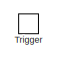
[diagram: SOC_Calculate/UdanSOCCalcn/LKTSOC - part 1/12, top center region]
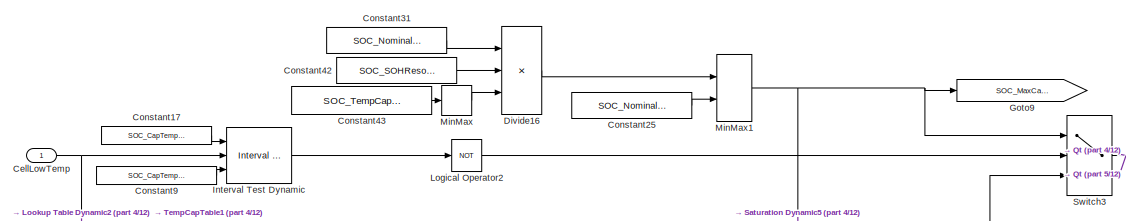
[diagram: SOC_Calculate/UdanSOCCalcn/LKTSOC - part 2/12, top left region]
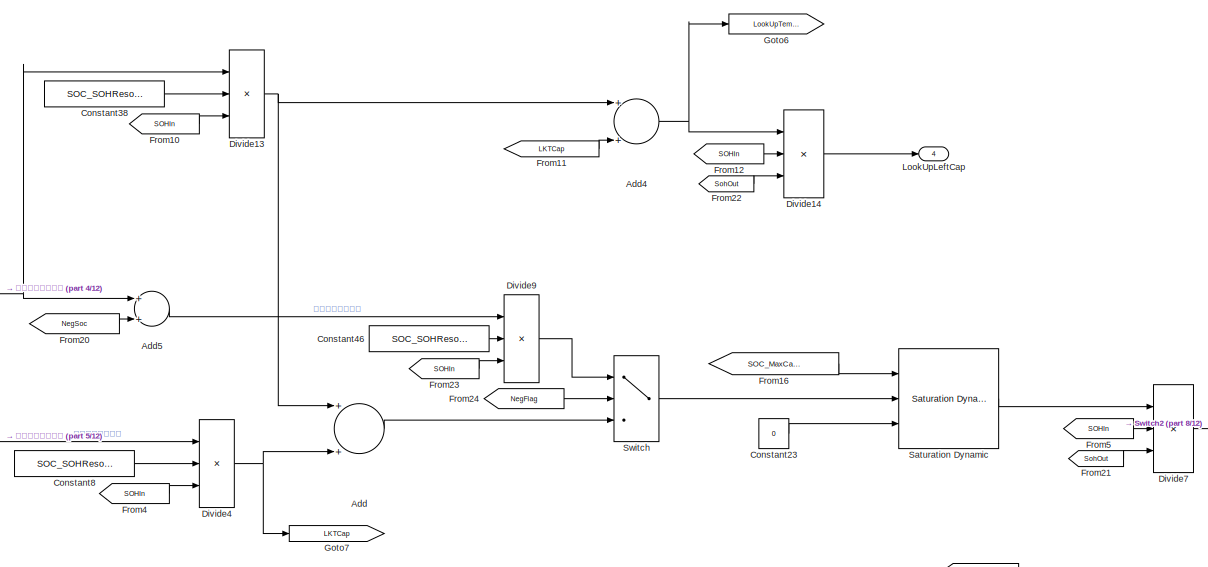
[diagram: SOC_Calculate/UdanSOCCalcn/LKTSOC - part 3/12, top right region]
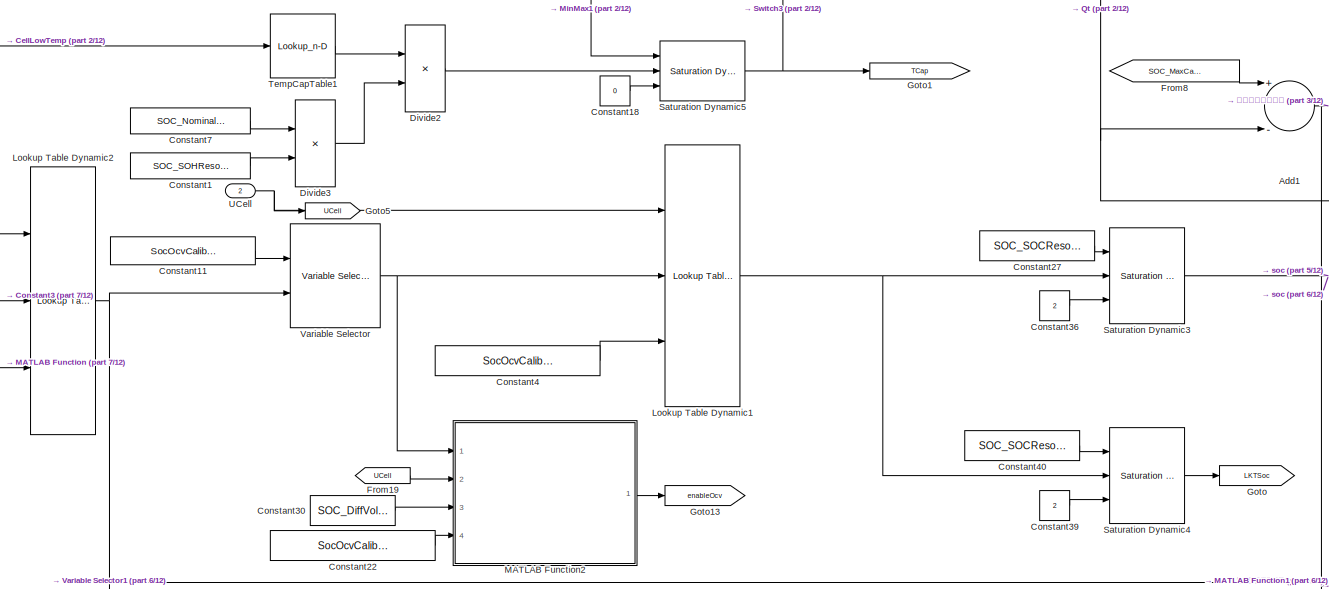
[diagram: SOC_Calculate/UdanSOCCalcn/LKTSOC - part 4/12, top left region]
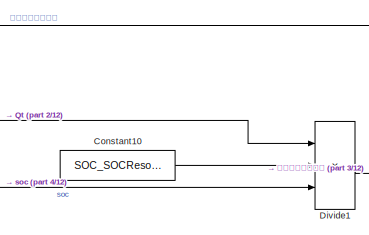
[diagram: SOC_Calculate/UdanSOCCalcn/LKTSOC - part 5/12, top center region]
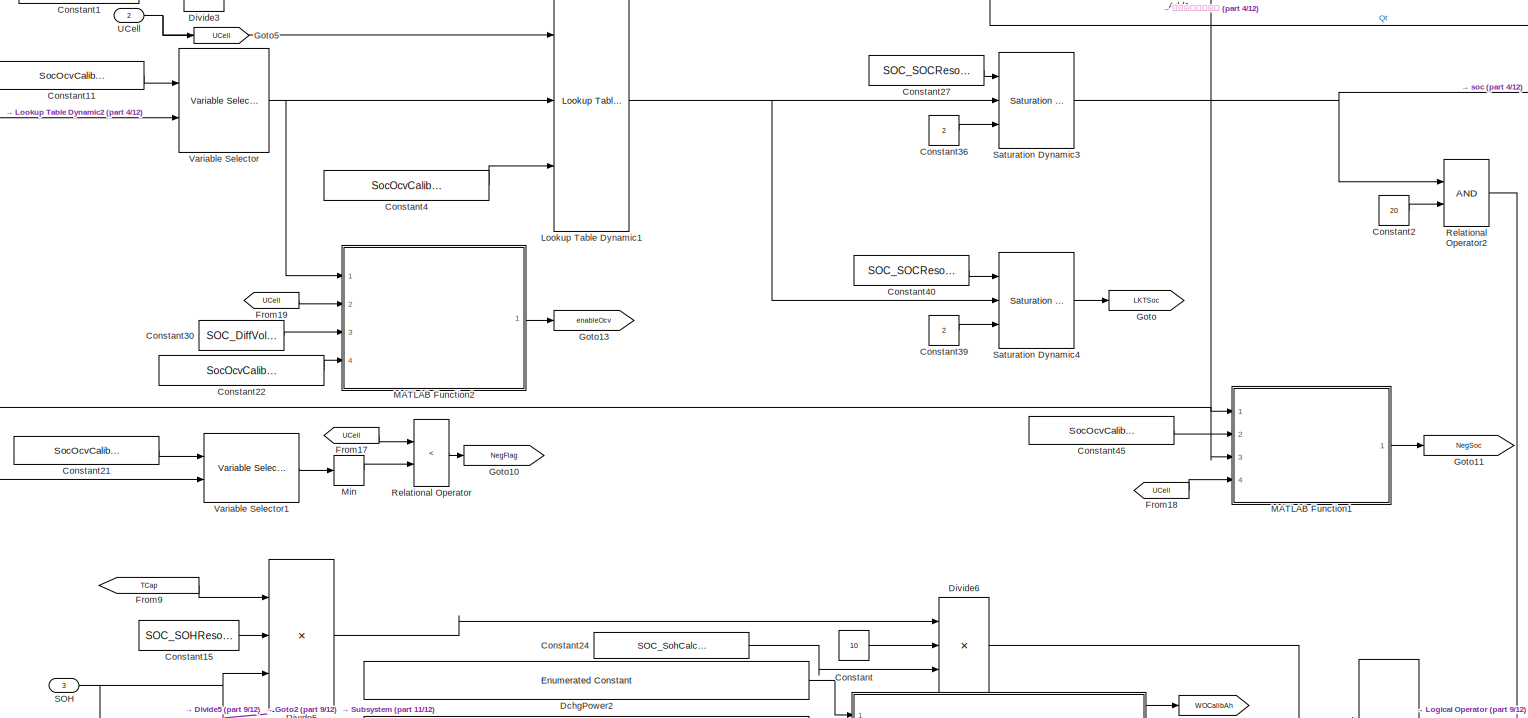
[diagram: SOC_Calculate/UdanSOCCalcn/LKTSOC - part 6/12, central region]
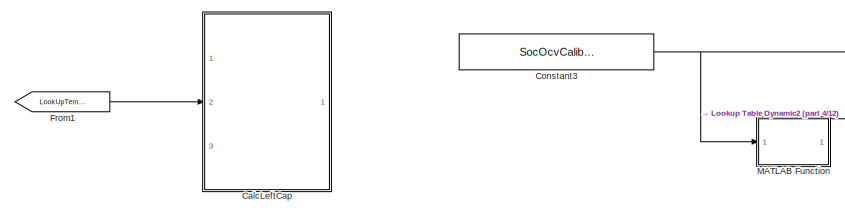
[diagram: SOC_Calculate/UdanSOCCalcn/LKTSOC - part 7/12, middle left region]
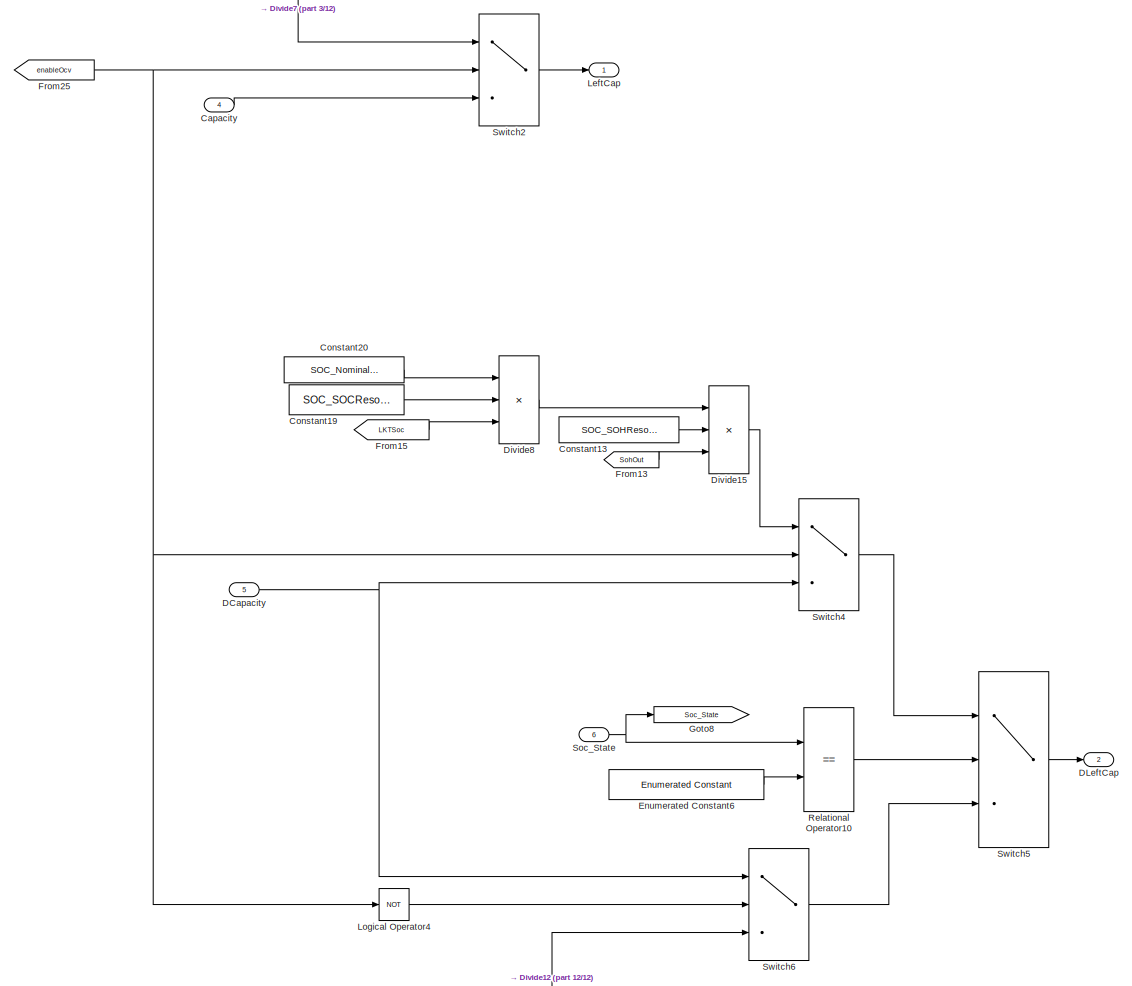
[diagram: SOC_Calculate/UdanSOCCalcn/LKTSOC - part 8/12, middle right region]
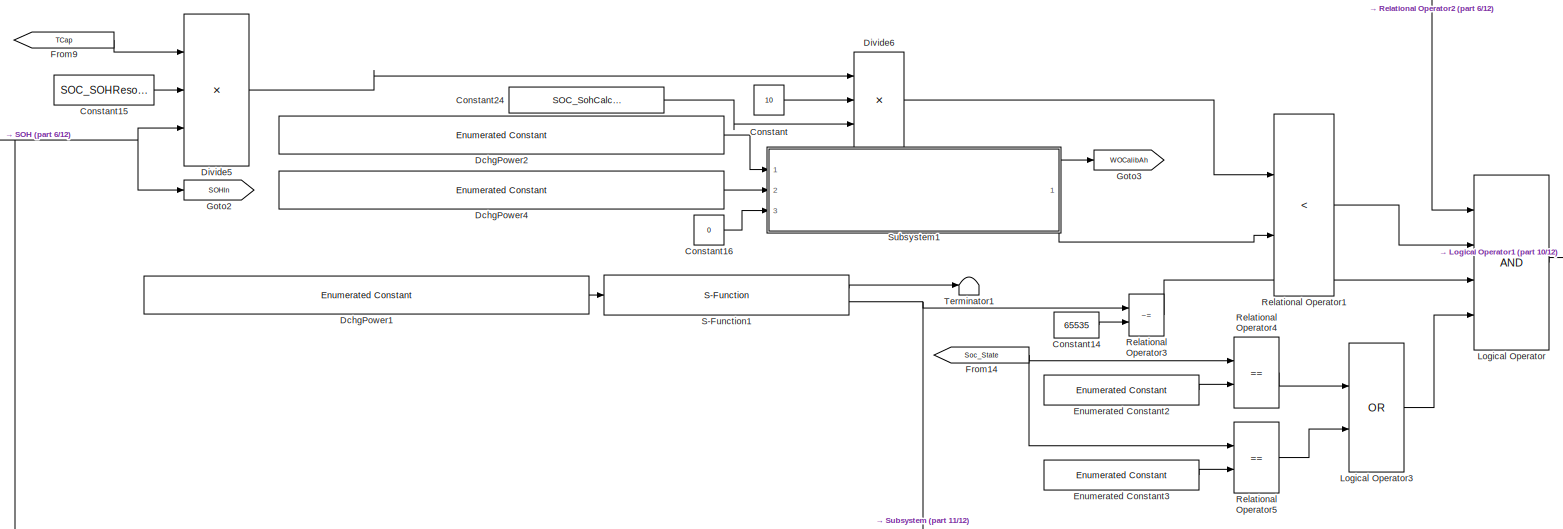
[diagram: SOC_Calculate/UdanSOCCalcn/LKTSOC - part 9/12, central region]
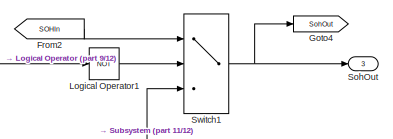
[diagram: SOC_Calculate/UdanSOCCalcn/LKTSOC - part 10/12, central region]
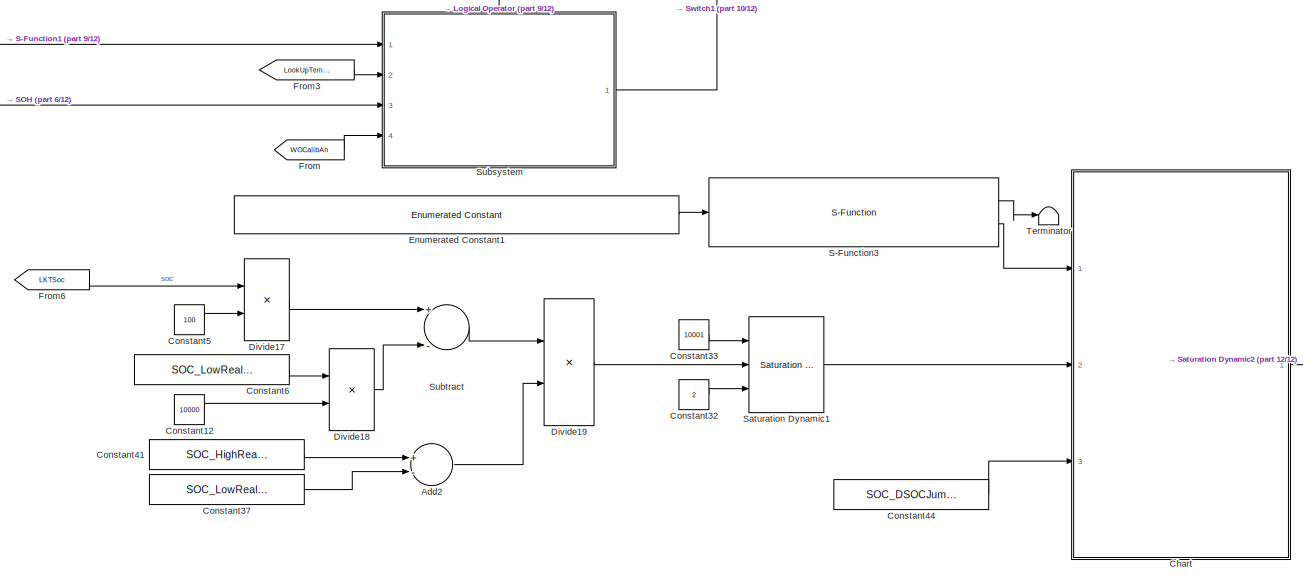
[diagram: SOC_Calculate/UdanSOCCalcn/LKTSOC - part 11/12, bottom center region]
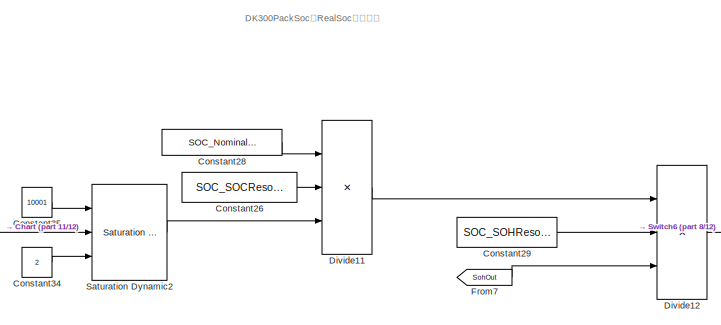
[diagram: SOC_Calculate/UdanSOCCalcn/LKTSOC - part 12/12, bottom right region]
BLOCK [SubSystem] SOC_Calculate/UdanSOCCalcn/LKTSOC
  Ports = [6, 4, 0, 1]
  RequestExecContextInheritance = off
  TreatAsAtomicUnit = on
  Variant = off
BLOCK [Sum] SOC_Calculate/UdanSOCCalcn/LKTSOC/Add
  AccumDataTypeStr = uint32
  InputSameDT = off
  OutDataTypeStr = uint32
  Ports = [2, 1]
  SaturateOnIntegerOverflow = off
BLOCK [Sum] SOC_Calculate/UdanSOCCalcn/LKTSOC/Add1
  InputSameDT = off
  Inputs = +-
  OutDataTypeStr = int32
  Ports = [2, 1]
  SaturateOnIntegerOverflow = off
BLOCK [Sum] SOC_Calculate/UdanSOCCalcn/LKTSOC/Add2
  AccumDataTypeStr = uint8
  InputSameDT = off
  Inputs = +-
  OutDataTypeStr = uint8
  Ports = [2, 1]
  SaturateOnIntegerOverflow = off
BLOCK [Sum] SOC_Calculate/UdanSOCCalcn/LKTSOC/Add4
  AccumDataTypeStr = int32
  InputSameDT = off
  OutDataTypeStr = int32
  Ports = [2, 1]
  SaturateOnIntegerOverflow = off
BLOCK [Sum] SOC_Calculate/UdanSOCCalcn/LKTSOC/Add5
  AccumDataTypeStr = int32
  InputSameDT = off
  OutDataTypeStr = int32
  Ports = [2, 1]
  SaturateOnIntegerOverflow = off
BLOCK [SubSystem] SOC_Calculate/UdanSOCCalcn/LKTSOC/CalcLeftCap
  Commented = on
  Ports = [3, 1, 1]
  RequestExecContextInheritance = off
  Variant = off
BLOCK [Abs] SOC_Calculate/UdanSOCCalcn/LKTSOC/CalcLeftCap/Abs
  SaturateOnIntegerOverflow = off
BLOCK [Sum] SOC_Calculate/UdanSOCCalcn/LKTSOC/CalcLeftCap/Add
  InputSameDT = off
  OutDataTypeStr = uint32
  Ports = [2, 1]
  SaturateOnIntegerOverflow = off
BLOCK [Sum] SOC_Calculate/UdanSOCCalcn/LKTSOC/CalcLeftCap/Add1
  InputSameDT = off
  Inputs = +-
  OutDataTypeStr = int32
  Ports = [2, 1]
  SaturateOnIntegerOverflow = off
BLOCK [BusCreator] SOC_Calculate/UdanSOCCalcn/LKTSOC/CalcLeftCap/Bus Creator1
  DisplayOption = bar
  InheritFromInputs = off
  Inputs = 2
  OutDataTypeStr = Bus: Capacity
  Ports = [2, 1]
BLOCK [Constant] SOC_Calculate/UdanSOCCalcn/LKTSOC/CalcLeftCap/Constant1
  OutDataTypeStr = int32
  Value = 0
BLOCK [Constant] SOC_Calculate/UdanSOCCalcn/LKTSOC/CalcLeftCap/Constant10
  OutDataTypeStr = uint16
  Value = SOC_SOCResolution
BLOCK [Constant] SOC_Calculate/UdanSOCCalcn/LKTSOC/CalcLeftCap/Constant2
  OutDataTypeStr = uint16
  Value = 0
BLOCK [Constant] SOC_Calculate/UdanSOCCalcn/LKTSOC/CalcLeftCap/Constant3
  OutDataTypeStr = uint32
  Value = 0
BLOCK [Constant] SOC_Calculate/UdanSOCCalcn/LKTSOC/CalcLeftCap/Constant5
  Value = SOC_NominalCap_AmS
BLOCK [Constant] SOC_Calculate/UdanSOCCalcn/LKTSOC/CalcLeftCap/Constant6
  Value = SOC_NominalCap_AmS
BLOCK [Constant] SOC_Calculate/UdanSOCCalcn/LKTSOC/CalcLeftCap/Constant8
  OutDataTypeStr = uint16
  Value = SOC_SOHResolution
BLOCK [Constant] SOC_Calculate/UdanSOCCalcn/LKTSOC/CalcLeftCap/Constant9
  OutDataTypeStr = uint8
  Value = 2
BLOCK [Product] SOC_Calculate/UdanSOCCalcn/LKTSOC/CalcLeftCap/Divide
  InputSameDT = off
  Inputs = */*
  OutDataTypeStr = uint32
  Ports = [3, 1]
  RndMeth = Floor
  SaturateOnIntegerOverflow = off
BLOCK [Product] SOC_Calculate/UdanSOCCalcn/LKTSOC/CalcLeftCap/Divide1
  InputSameDT = off
  Inputs = */*
  OutDataTypeStr = uint32
  Ports = [3, 1]
  RndMeth = Floor
  SaturateOnIntegerOverflow = off
BLOCK [Product] SOC_Calculate/UdanSOCCalcn/LKTSOC/CalcLeftCap/Divide4
  InputSameDT = off
  Inputs = **
  OutDataTypeStr = uint32
  Ports = [2, 1]
  RndMeth = Floor
  SaturateOnIntegerOverflow = off
BLOCK [EnablePort] SOC_Calculate/UdanSOCCalcn/LKTSOC/CalcLeftCap/Enable
  Ports = []
BLOCK [Outport] SOC_Calculate/UdanSOCCalcn/LKTSOC/CalcLeftCap/LeftCap
  IconDisplay = Port number
BLOCK [Inport] SOC_Calculate/UdanSOCCalcn/LKTSOC/CalcLeftCap/LookUpTempCap
  IconDisplay = Port number
  Port = 2
BLOCK [Inport] SOC_Calculate/UdanSOCCalcn/LKTSOC/CalcLeftCap/SOH
  IconDisplay = Port number
  Port = 3
BLOCK [Reference] SOC_Calculate/UdanSOCCalcn/LKTSOC/CalcLeftCap/Saturation Dynamic  REF=simulink/Discontinuities/Saturation
Dynamic
  Ports = [3, 1]
  SourceBlock = simulink/Discontinuities/Saturation\nDynamic
  SourceProductBaseCode = SL
  SourceProductName = Simulink
  SourceType = Saturation Dynamic
BLOCK [Switch] SOC_Calculate/UdanSOCCalcn/LKTSOC/CalcLeftCap/Switch
  Criteria = u2 > Threshold
  InputSameDT = off
  OutDataTypeStr = int32
  SaturateOnIntegerOverflow = off
BLOCK [Inport] SOC_Calculate/UdanSOCCalcn/LKTSOC/CalcLeftCap/soc
  IconDisplay = Port number
BLOCK [Inport] SOC_Calculate/UdanSOCCalcn/LKTSOC/Capacity
  IconDisplay = Port number
  Port = 4
BLOCK [Inport] SOC_Calculate/UdanSOCCalcn/LKTSOC/CellLowTemp
  IconDisplay = Port number
BLOCK [SubSystem] SOC_Calculate/UdanSOCCalcn/LKTSOC/Chart
  ErrorFcn = Stateflow.Translate.translate
  PermitHierarchicalResolution = ExplicitOnly
  Ports = [3, 1]
  RequestExecContextInheritance = off
  SFBlockType = Chart
  TreatAsAtomicUnit = on
  Variant = off
BLOCK [Demux] SOC_Calculate/UdanSOCCalcn/LKTSOC/Chart/ Demux 
  Outputs = 1
  Ports = [1, 1]
BLOCK [S-Function] SOC_Calculate/UdanSOCCalcn/LKTSOC/Chart/ SFunction 
  EnableBusSupport = on
  FunctionName = sf_sfun
  PortCounts = [3 2]
  Ports = [3, 2]
  SFcnIsStateOwnerBlock = off
  SFunctionDeploymentMode = off
  Tag = Stateflow S-Function Udan_SOC 41
BLOCK [Terminator] SOC_Calculate/UdanSOCCalcn/LKTSOC/Chart/ Terminator 
BLOCK [Inport] SOC_Calculate/UdanSOCCalcn/LKTSOC/Chart/DSocJumpMax
  IconDisplay = Port number
  Port = 3
BLOCK [Inport] SOC_Calculate/UdanSOCCalcn/LKTSOC/Chart/PackSoc
  IconDisplay = Port number
BLOCK [Outport] SOC_Calculate/UdanSOCCalcn/LKTSOC/Chart/PackSocOut
  IconDisplay = Port number
BLOCK [Inport] SOC_Calculate/UdanSOCCalcn/LKTSOC/Chart/RealSoc
  IconDisplay = Port number
  Port = 2
BLOCK [Constant] SOC_Calculate/UdanSOCCalcn/LKTSOC/Constant
  OutDataTypeStr = uint8
  Value = 10
BLOCK [Constant] SOC_Calculate/UdanSOCCalcn/LKTSOC/Constant1
  OutDataTypeStr = uint16
  Value = SOC_SOHResolution
BLOCK [Constant] SOC_Calculate/UdanSOCCalcn/LKTSOC/Constant10
  OutDataTypeStr = uint16
  Value = SOC_SOCResolution
BLOCK [Constant] SOC_Calculate/UdanSOCCalcn/LKTSOC/Constant11
  Value = SocOcvCalib_VoltageBuffer1
BLOCK [Constant] SOC_Calculate/UdanSOCCalcn/LKTSOC/Constant12
  OutDataTypeStr = uint16
  Value = 10000
BLOCK [Constant] SOC_Calculate/UdanSOCCalcn/LKTSOC/Constant13
  OutDataTypeStr = uint16
  Value = SOC_SOHResolution
BLOCK [Constant] SOC_Calculate/UdanSOCCalcn/LKTSOC/Constant14
  OutDataTypeStr = uint16
  Value = 65535
BLOCK [Constant] SOC_Calculate/UdanSOCCalcn/LKTSOC/Constant15
  OutDataTypeStr = uint16
  Value = SOC_SOHResolution
BLOCK [Constant] SOC_Calculate/UdanSOCCalcn/LKTSOC/Constant16
  OutDataTypeStr = uint32
  Value = 0
BLOCK [Constant] SOC_Calculate/UdanSOCCalcn/LKTSOC/Constant17
  OutDataTypeStr = uint8
  Value = SOC_CapTemp_HLimit
BLOCK [Constant] SOC_Calculate/UdanSOCCalcn/LKTSOC/Constant18
  OutDataTypeStr = uint8
  Value = 0
BLOCK [Constant] SOC_Calculate/UdanSOCCalcn/LKTSOC/Constant19
  OutDataTypeStr = uint16
  Value = SOC_SOCResolution
BLOCK [Constant] SOC_Calculate/UdanSOCCalcn/LKTSOC/Constant2
  OutDataTypeStr = uint16
  Value = 20
BLOCK [Constant] SOC_Calculate/UdanSOCCalcn/LKTSOC/Constant20
  Value = SOC_NominalCap_AmS
BLOCK [Constant] SOC_Calculate/UdanSOCCalcn/LKTSOC/Constant21
  Value = SocOcvCalib_VoltageBuffer1
BLOCK [Constant] SOC_Calculate/UdanSOCCalcn/LKTSOC/Constant22
  Value = SocOcvCalib_SocBuffer1
BLOCK [Constant] SOC_Calculate/UdanSOCCalcn/LKTSOC/Constant23
  OutDataTypeStr = uint16
  Value = 0
BLOCK [Constant] SOC_Calculate/UdanSOCCalcn/LKTSOC/Constant24
  OutDataTypeStr = uint8
  Value = SOC_SohCalcCapPercent
BLOCK [Constant] SOC_Calculate/UdanSOCCalcn/LKTSOC/Constant25
  Value = SOC_NominalCap_AmS
BLOCK [Constant] SOC_Calculate/UdanSOCCalcn/LKTSOC/Constant26
  OutDataTypeStr = uint16
  Value = SOC_SOCResolution
BLOCK [Constant] SOC_Calculate/UdanSOCCalcn/LKTSOC/Constant27
  OutDataTypeStr = uint16
  Value = SOC_SOCResolution
BLOCK [Constant] SOC_Calculate/UdanSOCCalcn/LKTSOC/Constant28
  Value = SOC_NominalCap_AmS
BLOCK [Constant] SOC_Calculate/UdanSOCCalcn/LKTSOC/Constant29
  OutDataTypeStr = uint16
  Value = SOC_SOHResolution
BLOCK [Constant] SOC_Calculate/UdanSOCCalcn/LKTSOC/Constant3
  OutDataTypeStr = uint8
  Value = SocOcvCalib_TempBuffer
BLOCK [Constant] SOC_Calculate/UdanSOCCalcn/LKTSOC/Constant30
  Value = SOC_DiffVoltMin
BLOCK [Constant] SOC_Calculate/UdanSOCCalcn/LKTSOC/Constant31
  Value = SOC_NominalCap_AmS
BLOCK [Constant] SOC_Calculate/UdanSOCCalcn/LKTSOC/Constant32
  OutDataTypeStr = uint16
  Value = 2
BLOCK [Constant] SOC_Calculate/UdanSOCCalcn/LKTSOC/Constant33
  OutDataTypeStr = uint16
  Value = 10001
BLOCK [Constant] SOC_Calculate/UdanSOCCalcn/LKTSOC/Constant34
  OutDataTypeStr = uint16
  Value = 2
BLOCK [Constant] SOC_Calculate/UdanSOCCalcn/LKTSOC/Constant35
  OutDataTypeStr = uint16
  Value = 10001
BLOCK [Constant] SOC_Calculate/UdanSOCCalcn/LKTSOC/Constant36
  OutDataTypeStr = uint16
  Value = 2
BLOCK [Constant] SOC_Calculate/UdanSOCCalcn/LKTSOC/Constant37
  Value = SOC_LowRealSoc
BLOCK [Constant] SOC_Calculate/UdanSOCCalcn/LKTSOC/Constant38
  OutDataTypeStr = uint16
  Value = SOC_SOHResolution
BLOCK [Constant] SOC_Calculate/UdanSOCCalcn/LKTSOC/Constant39
  OutDataTypeStr = uint16
  Value = 2
BLOCK [Constant] SOC_Calculate/UdanSOCCalcn/LKTSOC/Constant4
  Value = SocOcvCalib_SocBuffer1
BLOCK [Constant] SOC_Calculate/UdanSOCCalcn/LKTSOC/Constant40
  OutDataTypeStr = uint16
  Value = SOC_SOCResolution
BLOCK [Constant] SOC_Calculate/UdanSOCCalcn/LKTSOC/Constant41
  Value = SOC_HighRealSoc
BLOCK [Constant] SOC_Calculate/UdanSOCCalcn/LKTSOC/Constant42
  OutDataTypeStr = uint16
  Value = SOC_SOHResolution
BLOCK [Constant] SOC_Calculate/UdanSOCCalcn/LKTSOC/Constant43
  Value = SOC_TempCap_CapBuffer
BLOCK [Constant] SOC_Calculate/UdanSOCCalcn/LKTSOC/Constant44
  Value = SOC_DSOCJumpMax
BLOCK [Constant] SOC_Calculate/UdanSOCCalcn/LKTSOC/Constant45
  Value = SocOcvCalib_VoltageBuffer1
BLOCK [Constant] SOC_Calculate/UdanSOCCalcn/LKTSOC/Constant46
  OutDataTypeStr = uint16
  Value = SOC_SOHResolution
BLOCK [Constant] SOC_Calculate/UdanSOCCalcn/LKTSOC/Constant5
  OutDataTypeStr = uint8
  Value = 100
BLOCK [Constant] SOC_Calculate/UdanSOCCalcn/LKTSOC/Constant6
  Value = SOC_LowRealSoc
BLOCK [Constant] SOC_Calculate/UdanSOCCalcn/LKTSOC/Constant7
  Value = SOC_NominalCap_AmS
BLOCK [Constant] SOC_Calculate/UdanSOCCalcn/LKTSOC/Constant8
  OutDataTypeStr = uint16
  Value = SOC_SOHResolution
BLOCK [Constant] SOC_Calculate/UdanSOCCalcn/LKTSOC/Constant9
  OutDataTypeStr = uint8
  Value = SOC_CapTemp_LLimit
BLOCK [Inport] SOC_Calculate/UdanSOCCalcn/LKTSOC/DCapacity
  IconDisplay = Port number
  Port = 5
BLOCK [Outport] SOC_Calculate/UdanSOCCalcn/LKTSOC/DLeftCap
  IconDisplay = Port number
  Port = 2
BLOCK [Reference] SOC_Calculate/UdanSOCCalcn/LKTSOC/DchgPower1  REF=simulink/Sources/Enumerated
Constant
  Ports = [0, 1]
  SourceBlock = simulink/Sources/Enumerated\nConstant
  SourceProductBaseCode = SL
  SourceProductName = Simulink
  SourceType = Enumerated Constant
BLOCK [Reference] SOC_Calculate/UdanSOCCalcn/LKTSOC/DchgPower2  REF=simulink/Sources/Enumerated
Constant
  Ports = [0, 1]
  SourceBlock = simulink/Sources/Enumerated\nConstant
  SourceProductBaseCode = SL
  SourceProductName = Simulink
  SourceType = Enumerated Constant
BLOCK [Reference] SOC_Calculate/UdanSOCCalcn/LKTSOC/DchgPower4  REF=simulink/Sources/Enumerated
Constant
  Ports = [0, 1]
  SourceBlock = simulink/Sources/Enumerated\nConstant
  SourceProductBaseCode = SL
  SourceProductName = Simulink
  SourceType = Enumerated Constant
BLOCK [Product] SOC_Calculate/UdanSOCCalcn/LKTSOC/Divide1
  InputSameDT = off
  Inputs = */*
  OutDataTypeStr = uint32
  Ports = [3, 1]
  RndMeth = Floor
  SaturateOnIntegerOverflow = off
BLOCK [Product] SOC_Calculate/UdanSOCCalcn/LKTSOC/Divide11
  InputSameDT = off
  Inputs = */*
  OutDataTypeStr = uint32
  Ports = [3, 1]
  RndMeth = Floor
  SaturateOnIntegerOverflow = off
BLOCK [Product] SOC_Calculate/UdanSOCCalcn/LKTSOC/Divide12
  InputSameDT = off
  Inputs = */*
  OutDataTypeStr = uint32
  Ports = [3, 1]
  RndMeth = Floor
  SaturateOnIntegerOverflow = off
BLOCK [Product] SOC_Calculate/UdanSOCCalcn/LKTSOC/Divide13
  InputSameDT = off
  Inputs = */*
  OutDataTypeStr = uint32
  Ports = [3, 1]
  RndMeth = Floor
  SaturateOnIntegerOverflow = off
BLOCK [Product] SOC_Calculate/UdanSOCCalcn/LKTSOC/Divide14
  InputSameDT = off
  Inputs = */*
  OutDataTypeStr = uint32
  Ports = [3, 1]
  RndMeth = Floor
  SaturateOnIntegerOverflow = off
BLOCK [Product] SOC_Calculate/UdanSOCCalcn/LKTSOC/Divide15
  InputSameDT = off
  Inputs = */*
  OutDataTypeStr = uint32
  Ports = [3, 1]
  RndMeth = Floor
  SaturateOnIntegerOverflow = off
BLOCK [Product] SOC_Calculate/UdanSOCCalcn/LKTSOC/Divide16
  InputSameDT = off
  Inputs = */*
  OutDataTypeStr = uint32
  Ports = [3, 1]
  RndMeth = Floor
  SaturateOnIntegerOverflow = off
BLOCK [Product] SOC_Calculate/UdanSOCCalcn/LKTSOC/Divide17
  InputSameDT = off
  Inputs = **
  OutDataTypeStr = uint32
  Ports = [2, 1]
  RndMeth = Floor
  SaturateOnIntegerOverflow = off
BLOCK [Product] SOC_Calculate/UdanSOCCalcn/LKTSOC/Divide18
  InputSameDT = off
  Inputs = **
  OutDataTypeStr = uint32
  Ports = [2, 1]
  RndMeth = Floor
  SaturateOnIntegerOverflow = off
BLOCK [Product] SOC_Calculate/UdanSOCCalcn/LKTSOC/Divide19
  InputSameDT = off
  Inputs = */
  OutDataTypeStr = int32
  Ports = [2, 1]
  RndMeth = Floor
  SaturateOnIntegerOverflow = off
BLOCK [Product] SOC_Calculate/UdanSOCCalcn/LKTSOC/Divide2
  InputSameDT = off
  Inputs = **
  OutDataTypeStr = uint32
  Ports = [2, 1]
  RndMeth = Floor
  SaturateOnIntegerOverflow = off
BLOCK [Product] SOC_Calculate/UdanSOCCalcn/LKTSOC/Divide3
  InputSameDT = off
  Inputs = */
  OutDataTypeStr = uint32
  Ports = [2, 1]
  RndMeth = Floor
  SaturateOnIntegerOverflow = off
BLOCK [Product] SOC_Calculate/UdanSOCCalcn/LKTSOC/Divide4
  InputSameDT = off
  Inputs = */*
  OutDataTypeStr = uint32
  Ports = [3, 1]
  RndMeth = Floor
  SaturateOnIntegerOverflow = off
BLOCK [Product] SOC_Calculate/UdanSOCCalcn/LKTSOC/Divide5
  InputSameDT = off
  Inputs = */*
  OutDataTypeStr = uint32
  Ports = [3, 1]
  RndMeth = Floor
  SaturateOnIntegerOverflow = off
BLOCK [Product] SOC_Calculate/UdanSOCCalcn/LKTSOC/Divide6
  InputSameDT = off
  Inputs = */*
  OutDataTypeStr = uint32
  Ports = [3, 1]
  RndMeth = Floor
  SaturateOnIntegerOverflow = off
BLOCK [Product] SOC_Calculate/UdanSOCCalcn/LKTSOC/Divide7
  InputSameDT = off
  Inputs = */*
  OutDataTypeStr = uint32
  Ports = [3, 1]
  RndMeth = Floor
  SaturateOnIntegerOverflow = off
BLOCK [Product] SOC_Calculate/UdanSOCCalcn/LKTSOC/Divide8
  InputSameDT = off
  Inputs = */*
  OutDataTypeStr = uint32
  Ports = [3, 1]
  RndMeth = Floor
  SaturateOnIntegerOverflow = off
BLOCK [Product] SOC_Calculate/UdanSOCCalcn/LKTSOC/Divide9
  InputSameDT = off
  Inputs = */*
  OutDataTypeStr = uint32
  Ports = [3, 1]
  RndMeth = Floor
  SaturateOnIntegerOverflow = off
BLOCK [Reference] SOC_Calculate/UdanSOCCalcn/LKTSOC/Enumerated Constant1  REF=simulink/Sources/Enumerated
Constant
  Ports = [0, 1]
  SourceBlock = simulink/Sources/Enumerated\nConstant
  SourceProductBaseCode = SL
  SourceProductName = Simulink
  SourceType = Enumerated Constant
BLOCK [Reference] SOC_Calculate/UdanSOCCalcn/LKTSOC/Enumerated Constant2  REF=simulink/Sources/Enumerated
Constant
  Ports = [0, 1]
  SourceBlock = simulink/Sources/Enumerated\nConstant
  SourceProductBaseCode = SL
  SourceProductName = Simulink
  SourceType = Enumerated Constant
BLOCK [Reference] SOC_Calculate/UdanSOCCalcn/LKTSOC/Enumerated Constant3  REF=simulink/Sources/Enumerated
Constant
  Ports = [0, 1]
  SourceBlock = simulink/Sources/Enumerated\nConstant
  SourceProductBaseCode = SL
  SourceProductName = Simulink
  SourceType = Enumerated Constant
BLOCK [Reference] SOC_Calculate/UdanSOCCalcn/LKTSOC/Enumerated Constant6  REF=simulink/Sources/Enumerated
Constant
  Ports = [0, 1]
  SourceBlock = simulink/Sources/Enumerated\nConstant
  SourceProductBaseCode = SL
  SourceProductName = Simulink
  SourceType = Enumerated Constant
BLOCK [From] SOC_Calculate/UdanSOCCalcn/LKTSOC/From
  GotoTag = WOCalibAh
BLOCK [From] SOC_Calculate/UdanSOCCalcn/LKTSOC/From1
  Commented = on
  GotoTag = LookUpTempCap
BLOCK [From] SOC_Calculate/UdanSOCCalcn/LKTSOC/From10
  GotoTag = SOHIn
BLOCK [From] SOC_Calculate/UdanSOCCalcn/LKTSOC/From11
  GotoTag = LKTCap
BLOCK [From] SOC_Calculate/UdanSOCCalcn/LKTSOC/From12
  GotoTag = SOHIn
BLOCK [From] SOC_Calculate/UdanSOCCalcn/LKTSOC/From13
  GotoTag = SohOut
BLOCK [From] SOC_Calculate/UdanSOCCalcn/LKTSOC/From14
  GotoTag = Soc_State
BLOCK [From] SOC_Calculate/UdanSOCCalcn/LKTSOC/From15
  GotoTag = LKTSoc
BLOCK [From] SOC_Calculate/UdanSOCCalcn/LKTSOC/From16
  GotoTag = SOC_MaxCap_AmS
BLOCK [From] SOC_Calculate/UdanSOCCalcn/LKTSOC/From17
  GotoTag = UCell
BLOCK [From] SOC_Calculate/UdanSOCCalcn/LKTSOC/From18
  GotoTag = UCell
BLOCK [From] SOC_Calculate/UdanSOCCalcn/LKTSOC/From19
  GotoTag = UCell
BLOCK [From] SOC_Calculate/UdanSOCCalcn/LKTSOC/From2
  GotoTag = SOHIn
BLOCK [From] SOC_Calculate/UdanSOCCalcn/LKTSOC/From20
  GotoTag = NegSoc
BLOCK [From] SOC_Calculate/UdanSOCCalcn/LKTSOC/From21
  GotoTag = SohOut
BLOCK [From] SOC_Calculate/UdanSOCCalcn/LKTSOC/From22
  GotoTag = SohOut
BLOCK [From] SOC_Calculate/UdanSOCCalcn/LKTSOC/From23
  GotoTag = SOHIn
BLOCK [From] SOC_Calculate/UdanSOCCalcn/LKTSOC/From24
  GotoTag = NegFlag
BLOCK [From] SOC_Calculate/UdanSOCCalcn/LKTSOC/From25
  GotoTag = enableOcv
BLOCK [From] SOC_Calculate/UdanSOCCalcn/LKTSOC/From3
  GotoTag = LookUpTempCap
BLOCK [From] SOC_Calculate/UdanSOCCalcn/LKTSOC/From4
  GotoTag = SOHIn
BLOCK [From] SOC_Calculate/UdanSOCCalcn/LKTSOC/From5
  GotoTag = SOHIn
BLOCK [From] SOC_Calculate/UdanSOCCalcn/LKTSOC/From6
  GotoTag = LKTSoc
BLOCK [From] SOC_Calculate/UdanSOCCalcn/LKTSOC/From7
  GotoTag = SohOut
BLOCK [From] SOC_Calculate/UdanSOCCalcn/LKTSOC/From8
  GotoTag = SOC_MaxCap_AmS
BLOCK [From] SOC_Calculate/UdanSOCCalcn/LKTSOC/From9
  GotoTag = TCap
BLOCK [Goto] SOC_Calculate/UdanSOCCalcn/LKTSOC/Goto
  GotoTag = LKTSoc
BLOCK [Goto] SOC_Calculate/UdanSOCCalcn/LKTSOC/Goto1
  GotoTag = TCap
BLOCK [Goto] SOC_Calculate/UdanSOCCalcn/LKTSOC/Goto10
  GotoTag = NegFlag
BLOCK [Goto] SOC_Calculate/UdanSOCCalcn/LKTSOC/Goto11
  GotoTag = NegSoc
BLOCK [Goto] SOC_Calculate/UdanSOCCalcn/LKTSOC/Goto13
  GotoTag = enableOcv
BLOCK [Goto] SOC_Calculate/UdanSOCCalcn/LKTSOC/Goto2
  GotoTag = SOHIn
BLOCK [Goto] SOC_Calculate/UdanSOCCalcn/LKTSOC/Goto3
  GotoTag = WOCalibAh
BLOCK [Goto] SOC_Calculate/UdanSOCCalcn/LKTSOC/Goto4
  GotoTag = SohOut
BLOCK [Goto] SOC_Calculate/UdanSOCCalcn/LKTSOC/Goto5
  GotoTag = UCell
BLOCK [Goto] SOC_Calculate/UdanSOCCalcn/LKTSOC/Goto6
  GotoTag = LookUpTempCap
BLOCK [Goto] SOC_Calculate/UdanSOCCalcn/LKTSOC/Goto7
  GotoTag = LKTCap
BLOCK [Goto] SOC_Calculate/UdanSOCCalcn/LKTSOC/Goto8
  GotoTag = Soc_State
BLOCK [Goto] SOC_Calculate/UdanSOCCalcn/LKTSOC/Goto9
  GotoTag = SOC_MaxCap_AmS
BLOCK [Reference] SOC_Calculate/UdanSOCCalcn/LKTSOC/Interval Test Dynamic  REF=simulink/Logic and Bit
Operations/Interval Test
Dynamic
  Ports = [3, 1]
  SourceBlock = simulink/Logic and Bit\nOperations/Interval Test\nDynamic
  SourceProductBaseCode = SL
  SourceProductName = Simulink
  SourceType = Interval Test Dynamic
BLOCK [Outport] SOC_Calculate/UdanSOCCalcn/LKTSOC/LeftCap
  IconDisplay = Port number
BLOCK [Logic] SOC_Calculate/UdanSOCCalcn/LKTSOC/Logical Operator
  AllPortsSameDT = off
  Inputs = 4
  OutDataTypeStr = boolean
  Ports = [4, 1]
BLOCK [Logic] SOC_Calculate/UdanSOCCalcn/LKTSOC/Logical Operator1
  AllPortsSameDT = off
  Operator = NOT
  OutDataTypeStr = boolean
  Ports = [1, 1]
BLOCK [Logic] SOC_Calculate/UdanSOCCalcn/LKTSOC/Logical Operator2
  AllPortsSameDT = off
  Operator = NOT
  OutDataTypeStr = boolean
  Ports = [1, 1]
BLOCK [Logic] SOC_Calculate/UdanSOCCalcn/LKTSOC/Logical Operator3
  AllPortsSameDT = off
  Operator = OR
  OutDataTypeStr = boolean
  Ports = [2, 1]
BLOCK [Logic] SOC_Calculate/UdanSOCCalcn/LKTSOC/Logical Operator4
  AllPortsSameDT = off
  Operator = NOT
  OutDataTypeStr = boolean
  Ports = [1, 1]
BLOCK [Outport] SOC_Calculate/UdanSOCCalcn/LKTSOC/LookUpLeftCap
  IconDisplay = Port number
  Port = 4
BLOCK [Reference] SOC_Calculate/UdanSOCCalcn/LKTSOC/Lookup Table Dynamic1  REF=simulink/Lookup
Tables/Lookup
Table
Dynamic
  Ports = [3, 1]
  SourceBlock = simulink/Lookup\nTables/Lookup\nTable\nDynamic
  SourceProductBaseCode = SL
  SourceProductName = Simulink
  SourceType = Lookup Table Dynamic
BLOCK [Reference] SOC_Calculate/UdanSOCCalcn/LKTSOC/Lookup Table Dynamic2  REF=simulink/Lookup
Tables/Lookup
Table
Dynamic
  Ports = [3, 1]
  SourceBlock = simulink/Lookup\nTables/Lookup\nTable\nDynamic
  SourceProductBaseCode = SL
  SourceProductName = Simulink
  SourceType = Lookup Table Dynamic
BLOCK [SubSystem] SOC_Calculate/UdanSOCCalcn/LKTSOC/MATLAB Function
  ErrorFcn = Stateflow.Translate.translate
  PermitHierarchicalResolution = ExplicitOnly
  Ports = [1, 1]
  RequestExecContextInheritance = off
  SFBlockType = MATLAB Function
  TreatAsAtomicUnit = on
  Variant = off
BLOCK [Demux] SOC_Calculate/UdanSOCCalcn/LKTSOC/MATLAB Function/ Demux 
  Outputs = 1
  Ports = [1, 1]
BLOCK [S-Function] SOC_Calculate/UdanSOCCalcn/LKTSOC/MATLAB Function/ SFunction 
  EnableBusSupport = on
  FunctionName = sf_sfun
  PortCounts = [1 2]
  Ports = [1, 2]
  SFcnIsStateOwnerBlock = off
  SFunctionDeploymentMode = off
  Tag = Stateflow S-Function Udan_SOC 42
BLOCK [Terminator] SOC_Calculate/UdanSOCCalcn/LKTSOC/MATLAB Function/ Terminator 
BLOCK [Inport] SOC_Calculate/UdanSOCCalcn/LKTSOC/MATLAB Function/u
  IconDisplay = Port number
BLOCK [Outport] SOC_Calculate/UdanSOCCalcn/LKTSOC/MATLAB Function/y
  IconDisplay = Port number
BLOCK [SubSystem] SOC_Calculate/UdanSOCCalcn/LKTSOC/MATLAB Function1
  ErrorFcn = Stateflow.Translate.translate
  PermitHierarchicalResolution = ExplicitOnly
  Ports = [4, 1]
  RequestExecContextInheritance = off
  SFBlockType = MATLAB Function
  TreatAsAtomicUnit = on
  Variant = off
BLOCK [Demux] SOC_Calculate/UdanSOCCalcn/LKTSOC/MATLAB Function1/ Demux 
  Outputs = 1
  Ports = [1, 1]
BLOCK [S-Function] SOC_Calculate/UdanSOCCalcn/LKTSOC/MATLAB Function1/ SFunction 
  EnableBusSupport = on
  FunctionName = sf_sfun
  PortCounts = [4 2]
  Ports = [4, 2]
  SFcnIsStateOwnerBlock = off
  SFunctionDeploymentMode = off
  Tag = Stateflow S-Function Udan_SOC 43
BLOCK [Terminator] SOC_Calculate/UdanSOCCalcn/LKTSOC/MATLAB Function1/ Terminator 
BLOCK [Inport] SOC_Calculate/UdanSOCCalcn/LKTSOC/MATLAB Function1/DeltaCap
  IconDisplay = Port number
BLOCK [Inport] SOC_Calculate/UdanSOCCalcn/LKTSOC/MATLAB Function1/Index
  IconDisplay = Port number
  Port = 3
BLOCK [Outport] SOC_Calculate/UdanSOCCalcn/LKTSOC/MATLAB Function1/LKTCap
  IconDisplay = Port number
BLOCK [Inport] SOC_Calculate/UdanSOCCalcn/LKTSOC/MATLAB Function1/VoltBuffer
  IconDisplay = Port number
  Port = 2
BLOCK [Inport] SOC_Calculate/UdanSOCCalcn/LKTSOC/MATLAB Function1/vol
  IconDisplay = Port number
  Port = 4
BLOCK [SubSystem] SOC_Calculate/UdanSOCCalcn/LKTSOC/MATLAB Function2
  ErrorFcn = Stateflow.Translate.translate
  PermitHierarchicalResolution = ExplicitOnly
  Ports = [4, 1]
  RequestExecContextInheritance = off
  SFBlockType = MATLAB Function
  TreatAsAtomicUnit = on
  Variant = off
BLOCK [Demux] SOC_Calculate/UdanSOCCalcn/LKTSOC/MATLAB Function2/ Demux 
  Outputs = 1
  Ports = [1, 1]
BLOCK [S-Function] SOC_Calculate/UdanSOCCalcn/LKTSOC/MATLAB Function2/ SFunction 
  EnableBusSupport = on
  FunctionName = sf_sfun
  PortCounts = [4 2]
  Ports = [4, 2]
  SFcnIsStateOwnerBlock = off
  SFunctionDeploymentMode = off
  Tag = Stateflow S-Function Udan_SOC 1
BLOCK [Terminator] SOC_Calculate/UdanSOCCalcn/LKTSOC/MATLAB Function2/ Terminator 
BLOCK [Inport] SOC_Calculate/UdanSOCCalcn/LKTSOC/MATLAB Function2/cellTable
  IconDisplay = Port number
BLOCK [Inport] SOC_Calculate/UdanSOCCalcn/LKTSOC/MATLAB Function2/diffVMin
  IconDisplay = Port number
  Port = 3
BLOCK [Outport] SOC_Calculate/UdanSOCCalcn/LKTSOC/MATLAB Function2/enableOcv
  IconDisplay = Port number
BLOCK [Inport] SOC_Calculate/UdanSOCCalcn/LKTSOC/MATLAB Function2/socBuffer
  IconDisplay = Port number
  Port = 4
BLOCK [Inport] SOC_Calculate/UdanSOCCalcn/LKTSOC/MATLAB Function2/uCell
  IconDisplay = Port number
  Port = 2
BLOCK [MinMax] SOC_Calculate/UdanSOCCalcn/LKTSOC/Min
  InputSameDT = off
  Ports = [1, 1]
  SaturateOnIntegerOverflow = off
BLOCK [MinMax] SOC_Calculate/UdanSOCCalcn/LKTSOC/MinMax
  Function = max
  InputSameDT = off
  Ports = [1, 1]
  SaturateOnIntegerOverflow = off
BLOCK [MinMax] SOC_Calculate/UdanSOCCalcn/LKTSOC/MinMax1
  Function = max
  InputSameDT = off
  Inputs = 2
  Ports = [2, 1]
  SaturateOnIntegerOverflow = off
BLOCK [RelationalOperator] SOC_Calculate/UdanSOCCalcn/LKTSOC/Relational Operator
  InputSameDT = off
  Operator = <
  OutDataTypeStr = boolean
  Ports = [2, 1]
  RndMeth = Simplest
BLOCK [RelationalOperator] SOC_Calculate/UdanSOCCalcn/LKTSOC/Relational Operator1
  InputSameDT = off
  Operator = <
  OutDataTypeStr = boolean
  Ports = [2, 1]
  RndMeth = Simplest
BLOCK [RelationalOperator] SOC_Calculate/UdanSOCCalcn/LKTSOC/Relational Operator10
  InputSameDT = off
  Operator = ==
  OutDataTypeStr = boolean
  Ports = [2, 1]
  RndMeth = Simplest
BLOCK [RelationalOperator] SOC_Calculate/UdanSOCCalcn/LKTSOC/Relational Operator2
  InputSameDT = off
  OutDataTypeStr = boolean
  Ports = [2, 1]
  RndMeth = Simplest
BLOCK [RelationalOperator] SOC_Calculate/UdanSOCCalcn/LKTSOC/Relational Operator3
  InputSameDT = off
  Operator = ~=
  OutDataTypeStr = boolean
  Ports = [2, 1]
  RndMeth = Simplest
BLOCK [RelationalOperator] SOC_Calculate/UdanSOCCalcn/LKTSOC/Relational Operator4
  InputSameDT = off
  Operator = ==
  OutDataTypeStr = boolean
  Ports = [2, 1]
  RndMeth = Simplest
BLOCK [RelationalOperator] SOC_Calculate/UdanSOCCalcn/LKTSOC/Relational Operator5
  InputSameDT = off
  Operator = ==
  OutDataTypeStr = boolean
  Ports = [2, 1]
  RndMeth = Simplest
BLOCK [S-Function] SOC_Calculate/UdanSOCCalcn/LKTSOC/S-Function1
  EnableBusSupport = off
  FunctionName = sfn_NVMRead
  Ports = [1, 2]
  SFcnIsStateOwnerBlock = off
  SFunctionDeploymentMode = off
BLOCK [S-Function] SOC_Calculate/UdanSOCCalcn/LKTSOC/S-Function3
  EnableBusSupport = off
  FunctionName = sfn_NVMRead
  Ports = [1, 2]
  SFcnIsStateOwnerBlock = off
  SFunctionDeploymentMode = off
BLOCK [Inport] SOC_Calculate/UdanSOCCalcn/LKTSOC/SOH
  IconDisplay = Port number
  Port = 3
BLOCK [Reference] SOC_Calculate/UdanSOCCalcn/LKTSOC/Saturation Dynamic  REF=simulink/Discontinuities/Saturation
Dynamic
  Ports = [3, 1]
  SourceBlock = simulink/Discontinuities/Saturation\nDynamic
  SourceProductBaseCode = SL
  SourceProductName = Simulink
  SourceType = Saturation Dynamic
BLOCK [Reference] SOC_Calculate/UdanSOCCalcn/LKTSOC/Saturation Dynamic1  REF=simulink/Discontinuities/Saturation
Dynamic
  Ports = [3, 1]
  SourceBlock = simulink/Discontinuities/Saturation\nDynamic
  SourceProductBaseCode = SL
  SourceProductName = Simulink
  SourceType = Saturation Dynamic
BLOCK [Reference] SOC_Calculate/UdanSOCCalcn/LKTSOC/Saturation Dynamic2  REF=simulink/Discontinuities/Saturation
Dynamic
  Ports = [3, 1]
  SourceBlock = simulink/Discontinuities/Saturation\nDynamic
  SourceProductBaseCode = SL
  SourceProductName = Simulink
  SourceType = Saturation Dynamic
BLOCK [Reference] SOC_Calculate/UdanSOCCalcn/LKTSOC/Saturation Dynamic3  REF=simulink/Discontinuities/Saturation
Dynamic
  Ports = [3, 1]
  SourceBlock = simulink/Discontinuities/Saturation\nDynamic
  SourceProductBaseCode = SL
  SourceProductName = Simulink
  SourceType = Saturation Dynamic
BLOCK [Reference] SOC_Calculate/UdanSOCCalcn/LKTSOC/Saturation Dynamic4  REF=simulink/Discontinuities/Saturation
Dynamic
  Ports = [3, 1]
  SourceBlock = simulink/Discontinuities/Saturation\nDynamic
  SourceProductBaseCode = SL
  SourceProductName = Simulink
  SourceType = Saturation Dynamic
BLOCK [Reference] SOC_Calculate/UdanSOCCalcn/LKTSOC/Saturation Dynamic5  REF=simulink/Discontinuities/Saturation
Dynamic
  Ports = [3, 1]
  SourceBlock = simulink/Discontinuities/Saturation\nDynamic
  SourceProductBaseCode = SL
  SourceProductName = Simulink
  SourceType = Saturation Dynamic
BLOCK [Inport] SOC_Calculate/UdanSOCCalcn/LKTSOC/Soc_State
  IconDisplay = Port number
  Port = 6
BLOCK [Outport] SOC_Calculate/UdanSOCCalcn/LKTSOC/SohOut
  IconDisplay = Port number
  Port = 3
BLOCK [SubSystem] SOC_Calculate/UdanSOCCalcn/LKTSOC/Subsystem
  Ports = [4, 1, 1]
  RequestExecContextInheritance = off
  Variant = off
BLOCK [SubSystem] SOC_Calculate/UdanSOCCalcn/LKTSOC/Subsystem/Chart1
  ErrorFcn = Stateflow.Translate.translate
  PermitHierarchicalResolution = ExplicitOnly
  Ports = [5, 2]
  RequestExecContextInheritance = off
  SFBlockType = Chart
  TreatAsAtomicUnit = on
  Variant = off
BLOCK [Demux] SOC_Calculate/UdanSOCCalcn/LKTSOC/Subsystem/Chart1/ Demux 
  Outputs = 1
  Ports = [1, 1]
BLOCK [S-Function] SOC_Calculate/UdanSOCCalcn/LKTSOC/Subsystem/Chart1/ SFunction 
  EnableBusSupport = on
  FunctionName = sf_sfun
  PortCounts = [5 3]
  Ports = [5, 3]
  SFcnIsStateOwnerBlock = off
  SFunctionDeploymentMode = off
  Tag = Stateflow S-Function Udan_SOC 44
BLOCK [Terminator] SOC_Calculate/UdanSOCCalcn/LKTSOC/Subsystem/Chart1/ Terminator 
BLOCK [Inport] SOC_Calculate/UdanSOCCalcn/LKTSOC/Subsystem/Chart1/CalcSOH
  IconDisplay = Port number
BLOCK [Inport] SOC_Calculate/UdanSOCCalcn/LKTSOC/Subsystem/Chart1/EEEPSOH
  IconDisplay = Port number
  Port = 5
BLOCK [Inport] SOC_Calculate/UdanSOCCalcn/LKTSOC/Subsystem/Chart1/MaxCal
  IconDisplay = Port number
  Port = 3
BLOCK [Inport] SOC_Calculate/UdanSOCCalcn/LKTSOC/Subsystem/Chart1/MaxCal1
  IconDisplay = Port number
  Port = 4
BLOCK [Inport] SOC_Calculate/UdanSOCCalcn/LKTSOC/Subsystem/Chart1/MaxDiff
  IconDisplay = Port number
  Port = 2
BLOCK [Outport] SOC_Calculate/UdanSOCCalcn/LKTSOC/Subsystem/Chart1/SOHWriteResult
  IconDisplay = Port number
BLOCK [Outport] SOC_Calculate/UdanSOCCalcn/LKTSOC/Subsystem/Chart1/SohOut
  IconDisplay = Port number
  Port = 2
BLOCK [Constant] SOC_Calculate/UdanSOCCalcn/LKTSOC/Subsystem/Constant1
  OutDataTypeStr = uint16
  Value = 1200
BLOCK [Constant] SOC_Calculate/UdanSOCCalcn/LKTSOC/Subsystem/Constant10
  OutDataTypeStr = uint16
  Value = 65535
BLOCK [Constant] SOC_Calculate/UdanSOCCalcn/LKTSOC/Subsystem/Constant2
  OutDataTypeStr = uint16
  Value = 800
BLOCK [Constant] SOC_Calculate/UdanSOCCalcn/LKTSOC/Subsystem/Constant3
  Value = SOC_SohCalcHighLimit
BLOCK [Constant] SOC_Calculate/UdanSOCCalcn/LKTSOC/Subsystem/Constant31
  Value = SOC_NominalCap_AmS
BLOCK [Constant] SOC_Calculate/UdanSOCCalcn/LKTSOC/Subsystem/Constant4
  OutDataTypeStr = uint16
  Value = 1000
BLOCK [Constant] SOC_Calculate/UdanSOCCalcn/LKTSOC/Subsystem/Constant5
  Value = SOC_SohCalcLowLimit
BLOCK [Constant] SOC_Calculate/UdanSOCCalcn/LKTSOC/Subsystem/Constant6
  Value = SOC_SohCalcMidLimit
BLOCK [Constant] SOC_Calculate/UdanSOCCalcn/LKTSOC/Subsystem/Constant7
  OutDataTypeStr = uint16
  Value = SOC_SOCResolution
BLOCK [Constant] SOC_Calculate/UdanSOCCalcn/LKTSOC/Subsystem/Constant8
  OutDataTypeStr = uint16
  Value = 1000
BLOCK [Constant] SOC_Calculate/UdanSOCCalcn/LKTSOC/Subsystem/Constant9
  OutDataTypeStr = uint16
  Value = 1000
BLOCK [Reference] SOC_Calculate/UdanSOCCalcn/LKTSOC/Subsystem/DchgPower1  REF=simulink/Sources/Enumerated
Constant
  Ports = [0, 1]
  SourceBlock = simulink/Sources/Enumerated\nConstant
  SourceProductBaseCode = SL
  SourceProductName = Simulink
  SourceType = Enumerated Constant
BLOCK [Product] SOC_Calculate/UdanSOCCalcn/LKTSOC/Subsystem/Divide
  InputSameDT = off
  Inputs = **
  OutDataTypeStr = uint32
  Ports = [2, 1]
  RndMeth = Floor
  SaturateOnIntegerOverflow = off
BLOCK [Product] SOC_Calculate/UdanSOCCalcn/LKTSOC/Subsystem/Divide1
  InputSameDT = off
  Inputs = */
  OutDataTypeStr = uint32
  Ports = [2, 1]
  RndMeth = Floor
  SaturateOnIntegerOverflow = off
BLOCK [Product] SOC_Calculate/UdanSOCCalcn/LKTSOC/Subsystem/Divide2
  InputSameDT = off
  Inputs = */
  OutDataTypeStr = uint32
  Ports = [2, 1]
  RndMeth = Floor
  SaturateOnIntegerOverflow = off
BLOCK [Product] SOC_Calculate/UdanSOCCalcn/LKTSOC/Subsystem/Divide3
  InputSameDT = off
  Inputs = */
  OutDataTypeStr = uint32
  Ports = [2, 1]
  RndMeth = Floor
  SaturateOnIntegerOverflow = off
BLOCK [Product] SOC_Calculate/UdanSOCCalcn/LKTSOC/Subsystem/Divide4
  InputSameDT = off
  Inputs = */*
  OutDataTypeStr = uint32
  Ports = [3, 1]
  RndMeth = Floor
  SaturateOnIntegerOverflow = off
BLOCK [EnablePort] SOC_Calculate/UdanSOCCalcn/LKTSOC/Subsystem/Enable
  Ports = []
BLOCK [From] SOC_Calculate/UdanSOCCalcn/LKTSOC/Subsystem/From
  GotoTag = SOHIn
BLOCK [Goto] SOC_Calculate/UdanSOCCalcn/LKTSOC/Subsystem/Goto2
  GotoTag = SOHIn
BLOCK [RelationalOperator] SOC_Calculate/UdanSOCCalcn/LKTSOC/Subsystem/Relational Operator
  InputSameDT = off
  Operator = ~=
  OutDataTypeStr = boolean
  Ports = [2, 1]
  RndMeth = Simplest
BLOCK [S-Function] SOC_Calculate/UdanSOCCalcn/LKTSOC/Subsystem/S-Function1
  EnableBusSupport = off
  FunctionName = sfn_NVMWrite
  Ports = [2, 1]
  SFcnIsStateOwnerBlock = off
  SFunctionDeploymentMode = off
BLOCK [Inport] SOC_Calculate/UdanSOCCalcn/LKTSOC/Subsystem/SOC_LeftCap0
  IconDisplay = Port number
BLOCK [Inport] SOC_Calculate/UdanSOCCalcn/LKTSOC/Subsystem/SOC_LeftCap2
  IconDisplay = Port number
  Port = 2
BLOCK [Inport] SOC_Calculate/UdanSOCCalcn/LKTSOC/Subsystem/SOHIn
  IconDisplay = Port number
  Port = 3
BLOCK [Reference] SOC_Calculate/UdanSOCCalcn/LKTSOC/Subsystem/Saturation Dynamic  REF=simulink/Discontinuities/Saturation
Dynamic
  Ports = [3, 1]
  SourceBlock = simulink/Discontinuities/Saturation\nDynamic
  SourceProductBaseCode = SL
  SourceProductName = Simulink
  SourceType = Saturation Dynamic
BLOCK [Outport] SOC_Calculate/UdanSOCCalcn/LKTSOC/Subsystem/SohOut
  IconDisplay = Port number
BLOCK [Sum] SOC_Calculate/UdanSOCCalcn/LKTSOC/Subsystem/Subtract2
  InputSameDT = off
  Inputs = +-
  OutDataTypeStr = Inherit: Inherit via internal rule
  Ports = [2, 1]
  SaturateOnIntegerOverflow = off
BLOCK [Switch] SOC_Calculate/UdanSOCCalcn/LKTSOC/Subsystem/Switch
  Criteria = u2 > Threshold
  InputSameDT = off
  SaturateOnIntegerOverflow = off
BLOCK [Terminator] SOC_Calculate/UdanSOCCalcn/LKTSOC/Subsystem/Terminator
BLOCK [Terminator] SOC_Calculate/UdanSOCCalcn/LKTSOC/Subsystem/Terminator1
BLOCK [Inport] SOC_Calculate/UdanSOCCalcn/LKTSOC/Subsystem/WOCalibAh
  IconDisplay = Port number
  Port = 4
BLOCK [SubSystem] SOC_Calculate/UdanSOCCalcn/LKTSOC/Subsystem1
  Ports = [3, 1]
  RequestExecContextInheritance = off
  Variant = off
BLOCK [Constant] SOC_Calculate/UdanSOCCalcn/LKTSOC/Subsystem1/Constant1
  OutDataTypeStr = uint8
  Value = 0
BLOCK [Constant] SOC_Calculate/UdanSOCCalcn/LKTSOC/Subsystem1/Constant2
  OutDataTypeStr = uint8
  Value = 0
BLOCK [Inport] SOC_Calculate/UdanSOCCalcn/LKTSOC/Subsystem1/DefaultValue
  IconDisplay = Port number
  Port = 3
BLOCK [Outport] SOC_Calculate/UdanSOCCalcn/LKTSOC/Subsystem1/EeepRead32
  IconDisplay = Port number
BLOCK [From] SOC_Calculate/UdanSOCCalcn/LKTSOC/Subsystem1/From
  GotoTag = ReadLowOk
BLOCK [Goto] SOC_Calculate/UdanSOCCalcn/LKTSOC/Subsystem1/Goto
  GotoTag = ReadLowOk
BLOCK [Inport] SOC_Calculate/UdanSOCCalcn/LKTSOC/Subsystem1/HighIndex
  IconDisplay = Port number
BLOCK [Logic] SOC_Calculate/UdanSOCCalcn/LKTSOC/Subsystem1/Logical Operator
  AllPortsSameDT = off
  OutDataTypeStr = boolean
  Ports = [2, 1]
BLOCK [Logic] SOC_Calculate/UdanSOCCalcn/LKTSOC/Subsystem1/Logical Operator1
  AllPortsSameDT = off
  Operator = NOT
  OutDataTypeStr = boolean
  Ports = [1, 1]
BLOCK [Inport] SOC_Calculate/UdanSOCCalcn/LKTSOC/Subsystem1/LowIndex
  IconDisplay = Port number
  Port = 2
BLOCK [RelationalOperator] SOC_Calculate/UdanSOCCalcn/LKTSOC/Subsystem1/Relational Operator
  InputSameDT = off
  Operator = ==
  OutDataTypeStr = boolean
  Ports = [2, 1]
  RndMeth = Simplest
BLOCK [RelationalOperator] SOC_Calculate/UdanSOCCalcn/LKTSOC/Subsystem1/Relational Operator1
  InputSameDT = off
  Operator = ==
  OutDataTypeStr = boolean
  Ports = [2, 1]
  RndMeth = Simplest
BLOCK [S-Function] SOC_Calculate/UdanSOCCalcn/LKTSOC/Subsystem1/S-Function
  EnableBusSupport = off
  FunctionName = sfn_NVMRead
  Ports = [1, 2]
  SFcnIsStateOwnerBlock = off
  SFunctionDeploymentMode = off
BLOCK [S-Function] SOC_Calculate/UdanSOCCalcn/LKTSOC/Subsystem1/S-Function1
  EnableBusSupport = off
  FunctionName = sfn_NVMRead
  Ports = [1, 2]
  SFcnIsStateOwnerBlock = off
  SFunctionDeploymentMode = off
BLOCK [SubSystem] SOC_Calculate/UdanSOCCalcn/LKTSOC/Subsystem1/Subsystem
  Ports = [2, 1, 1]
  RequestExecContextInheritance = off
  Variant = off
BLOCK [Sum] SOC_Calculate/UdanSOCCalcn/LKTSOC/Subsystem1/Subsystem/Add
  InputSameDT = off
  OutDataTypeStr = Inherit: Inherit via internal rule
  Ports = [2, 1]
  SaturateOnIntegerOverflow = off
BLOCK [Reference] SOC_Calculate/UdanSOCCalcn/LKTSOC/Subsystem1/Subsystem/Bit Rotate  REF=hdlsllib/Logic and Bit
Operations/Bit Rotate
  Ports = [1, 1]
  SourceBlock = hdlsllib/Logic and Bit\nOperations/Bit Rotate
  SourceProductBaseCode = HD
  SourceProductName = HDL Coder
  SourceType = Bit Rotate
BLOCK [DataTypeConversion] SOC_Calculate/UdanSOCCalcn/LKTSOC/Subsystem1/Subsystem/Data Type Conversion
  OutDataTypeStr = uint32
  RndMeth = Floor
  SaturateOnIntegerOverflow = off
BLOCK [EnablePort] SOC_Calculate/UdanSOCCalcn/LKTSOC/Subsystem1/Subsystem/Enable
  Ports = []
BLOCK [Inport] SOC_Calculate/UdanSOCCalcn/LKTSOC/Subsystem1/Subsystem/HighIndex
  IconDisplay = Port number
BLOCK [Inport] SOC_Calculate/UdanSOCCalcn/LKTSOC/Subsystem1/Subsystem/LowIndex
  IconDisplay = Port number
  Port = 2
BLOCK [Outport] SOC_Calculate/UdanSOCCalcn/LKTSOC/Subsystem1/Subsystem/soc
  IconDisplay = Port number
BLOCK [Switch] SOC_Calculate/UdanSOCCalcn/LKTSOC/Subsystem1/Switch
  Criteria = u2 > Threshold
  InputSameDT = off
  SaturateOnIntegerOverflow = off
BLOCK [Sum] SOC_Calculate/UdanSOCCalcn/LKTSOC/Subtract
  AccumDataTypeStr = int32
  InputSameDT = off
  Inputs = +-
  OutDataTypeStr = int32
  Ports = [2, 1]
  SaturateOnIntegerOverflow = off
BLOCK [Switch] SOC_Calculate/UdanSOCCalcn/LKTSOC/Switch
  Criteria = u2 > Threshold
  InputSameDT = off
  OutDataTypeStr = uint32
  SaturateOnIntegerOverflow = off
BLOCK [Switch] SOC_Calculate/UdanSOCCalcn/LKTSOC/Switch1
  Criteria = u2 > Threshold
  InputSameDT = off
  SaturateOnIntegerOverflow = off
BLOCK [Switch] SOC_Calculate/UdanSOCCalcn/LKTSOC/Switch2
  Criteria = u2 > Threshold
  InputSameDT = off
  SaturateOnIntegerOverflow = off
BLOCK [Switch] SOC_Calculate/UdanSOCCalcn/LKTSOC/Switch3
  Criteria = u2 > Threshold
  InputSameDT = off
  SaturateOnIntegerOverflow = off
BLOCK [Switch] SOC_Calculate/UdanSOCCalcn/LKTSOC/Switch4
  Criteria = u2 > Threshold
  InputSameDT = off
  SaturateOnIntegerOverflow = off
BLOCK [Switch] SOC_Calculate/UdanSOCCalcn/LKTSOC/Switch5
  Criteria = u2 > Threshold
  InputSameDT = off
  SaturateOnIntegerOverflow = off
BLOCK [Switch] SOC_Calculate/UdanSOCCalcn/LKTSOC/Switch6
  Criteria = u2 > Threshold
  InputSameDT = off
  SaturateOnIntegerOverflow = off
BLOCK [Lookup_n-D] SOC_Calculate/UdanSOCCalcn/LKTSOC/TempCapTable1
  BreakpointsForDimension1 = SOC_TempCap_TempBuffer
  ExtrapMethod = Clip
  InternalRulePriority = Speed
  NumberOfTableDimensions = 1
  OutDataTypeStr = uint16
  Ports = [1, 1]
  RndMeth = Simplest
  Table = SOC_TempCap_CapBuffer
BLOCK [Terminator] SOC_Calculate/UdanSOCCalcn/LKTSOC/Terminator
BLOCK [Terminator] SOC_Calculate/UdanSOCCalcn/LKTSOC/Terminator1
BLOCK [TriggerPort] SOC_Calculate/UdanSOCCalcn/LKTSOC/Trigger
  PortDimensions = 1
  Ports = []
  StatesWhenEnabling = held
  TriggerType = function-call
  VariantControl = Variant
BLOCK [Inport] SOC_Calculate/UdanSOCCalcn/LKTSOC/UCell
  IconDisplay = Port number
  Port = 2
BLOCK [Reference] SOC_Calculate/UdanSOCCalcn/LKTSOC/Variable Selector  REF=dspindex/Variable
Selector
  Ports = [2, 1]
  SourceBlock = dspindex/Variable\nSelector
  SourceProductBaseCode = DS
  SourceProductName = DSP System Toolbox
  SourceType = Variable Selector
BLOCK [Reference] SOC_Calculate/UdanSOCCalcn/LKTSOC/Variable Selector1  REF=dspindex/Variable
Selector
  Ports = [2, 1]
  SourceBlock = dspindex/Variable\nSelector
  SourceProductBaseCode = DS
  SourceProductName = DSP System Toolbox
  SourceType = Variable Selector
BLOCK [Inport] SOC_Calculate/UdanSOCCalcn/LastOcvTime
  IconDisplay = Port number
  Port = 13
BLOCK [Outport] SOC_Calculate/UdanSOCCalcn/LeftCahrgeTime
  IconDisplay = Port number
  Port = 11
BLOCK [MultiPortSwitch] SOC_Calculate/UdanSOCCalcn/LeftCap
  DataPortIndices = {SOC_STATE_INIT,SOC_STATE_OCV,SOC_STATE_OCV_LONG,SOC_STATE_INTEGRATE,SOC_STATE_FULL}
  DataPortOrder = Zero-based contiguous
  InputSameDT = off
  Inputs = 9
  OutDataTypeStr = uint32
  Ports = [10, 1]
  SaturateOnIntegerOverflow = off
BLOCK [Logic] SOC_Calculate/UdanSOCCalcn/Logical Operator
  AllPortsSameDT = off
  Inputs = 4
  OutDataTypeStr = boolean
  Ports = [4, 1]
BLOCK [Logic] SOC_Calculate/UdanSOCCalcn/Logical Operator1
  AllPortsSameDT = off
  Operator = NOT
  OutDataTypeStr = boolean
  Ports = [1, 1]
BLOCK [Logic] SOC_Calculate/UdanSOCCalcn/Logical Operator10
  AllPortsSameDT = off
  Operator = OR
  OutDataTypeStr = boolean
  Ports = [2, 1]
BLOCK [Logic] SOC_Calculate/UdanSOCCalcn/Logical Operator11
  AllPortsSameDT = off
  OutDataTypeStr = boolean
  Ports = [2, 1]
BLOCK [Logic] SOC_Calculate/UdanSOCCalcn/Logical Operator12
  AllPortsSameDT = off
  Operator = NOT
  OutDataTypeStr = boolean
  Ports = [1, 1]
BLOCK [Logic] SOC_Calculate/UdanSOCCalcn/Logical Operator13
  AllPortsSameDT = off
  Operator = NOT
  OutDataTypeStr = boolean
  Ports = [1, 1]
BLOCK [Logic] SOC_Calculate/UdanSOCCalcn/Logical Operator14
  AllPortsSameDT = off
  Operator = NOT
  OutDataTypeStr = boolean
  Ports = [1, 1]
BLOCK [Logic] SOC_Calculate/UdanSOCCalcn/Logical Operator15
  AllPortsSameDT = off
  Operator = NOT
  OutDataTypeStr = boolean
  Ports = [1, 1]
BLOCK [Logic] SOC_Calculate/UdanSOCCalcn/Logical Operator16
  AllPortsSameDT = off
  Operator = NOT
  OutDataTypeStr = boolean
  Ports = [1, 1]
BLOCK [Logic] SOC_Calculate/UdanSOCCalcn/Logical Operator2
  AllPortsSameDT = off
  OutDataTypeStr = boolean
  Ports = [2, 1]
BLOCK [Logic] SOC_Calculate/UdanSOCCalcn/Logical Operator3
  AllPortsSameDT = off
  Operator = NOT
  OutDataTypeStr = boolean
  Ports = [1, 1]
BLOCK [Logic] SOC_Calculate/UdanSOCCalcn/Logical Operator4
  AllPortsSameDT = off
  Inputs = 3
  OutDataTypeStr = boolean
  Ports = [3, 1]
BLOCK [Logic] SOC_Calculate/UdanSOCCalcn/Logical Operator5
  AllPortsSameDT = off
  Operator = OR
  OutDataTypeStr = boolean
  Ports = [2, 1]
BLOCK [Logic] SOC_Calculate/UdanSOCCalcn/Logical Operator6
  AllPortsSameDT = off
  Inputs = 3
  Operator = NOT
  OutDataTypeStr = boolean
  Ports = [1, 1]
BLOCK [Logic] SOC_Calculate/UdanSOCCalcn/Logical Operator7
  AllPortsSameDT = off
  Inputs = 3
  Operator = OR
  OutDataTypeStr = boolean
  Ports = [3, 1]
BLOCK [Logic] SOC_Calculate/UdanSOCCalcn/Logical Operator8
  AllPortsSameDT = off
  Operator = NOT
  OutDataTypeStr = boolean
  Ports = [1, 1]
BLOCK [Logic] SOC_Calculate/UdanSOCCalcn/Logical Operator9
  AllPortsSameDT = off
  OutDataTypeStr = boolean
  Ports = [2, 1]
BLOCK [Inport] SOC_Calculate/UdanSOCCalcn/LongBatOffTimeOk
  IconDisplay = Port number
  Port = 5
BLOCK [Outport] SOC_Calculate/UdanSOCCalcn/LookUpLeftCap
  IconDisplay = Port number
  Port = 16
BLOCK [MultiPortSwitch] SOC_Calculate/UdanSOCCalcn/Multiport Switch1
  DataPortIndices = {SOC_STATE_INIT,SOC_STATE_OCV,SOC_STATE_OCV_LONG,SOC_STATE_INTEGRATE,SOC_STATE_FULL}
  DataPortOrder = Zero-based contiguous
  InputSameDT = off
  Inputs = 9
  Ports = [10, 1]
  SaturateOnIntegerOverflow = off
BLOCK [Goto] SOC_Calculate/UdanSOCCalcn/OCV_LeftCap1
  GotoTag = FullCalibSOHCap
BLOCK [Goto] SOC_Calculate/UdanSOCCalcn/OCV_LeftCap10
  GotoTag = InitSOH
BLOCK [Goto] SOC_Calculate/UdanSOCCalcn/OCV_LeftCap11
  GotoTag = CurrentSOH
BLOCK [Goto] SOC_Calculate/UdanSOCCalcn/OCV_LeftCap12
  GotoTag = State
BLOCK [Goto] SOC_Calculate/UdanSOCCalcn/OCV_LeftCap13
  GotoTag = NowCap
BLOCK [Goto] SOC_Calculate/UdanSOCCalcn/OCV_LeftCap15
  GotoTag = FullDCap
BLOCK [Goto] SOC_Calculate/UdanSOCCalcn/OCV_LeftCap16
  GotoTag = FullCalibSOHDCap
BLOCK [Goto] SOC_Calculate/UdanSOCCalcn/OCV_LeftCap17
  GotoTag = EmptyCap
BLOCK [Goto] SOC_Calculate/UdanSOCCalcn/OCV_LeftCap2
  GotoTag = LastCap
BLOCK [Goto] SOC_Calculate/UdanSOCCalcn/OCV_LeftCap3
  GotoTag = EEEPDLeftCap
BLOCK [Goto] SOC_Calculate/UdanSOCCalcn/OCV_LeftCap4
  GotoTag = LastDCap
BLOCK [Goto] SOC_Calculate/UdanSOCCalcn/OCV_LeftCap5
  GotoTag = ChgSOH
BLOCK [Goto] SOC_Calculate/UdanSOCCalcn/OCV_LeftCap6
  GotoTag = LastSOH
BLOCK [Goto] SOC_Calculate/UdanSOCCalcn/OCV_LeftCap7
  GotoTag = FullCap
BLOCK [Goto] SOC_Calculate/UdanSOCCalcn/OCV_LeftCap8
  GotoTag = IntergrateCap
BLOCK [Goto] SOC_Calculate/UdanSOCCalcn/OCV_LeftCap9
  GotoTag = EmptyDCap
BLOCK [Product] SOC_Calculate/UdanSOCCalcn/Product
  InputSameDT = off
  OutDataTypeStr = int32
  Ports = [2, 1]
  RndMeth = Floor
  SaturateOnIntegerOverflow = off
BLOCK [RelationalOperator] SOC_Calculate/UdanSOCCalcn/Relational Operator
  InputSameDT = off
  Operator = ==
  OutDataTypeStr = boolean
  Ports = [2, 1]
  RndMeth = Simplest
BLOCK [RelationalOperator] SOC_Calculate/UdanSOCCalcn/Relational Operator1
  InputSameDT = off
  Operator = ~=
  OutDataTypeStr = boolean
  Ports = [2, 1]
  RndMeth = Simplest
BLOCK [RelationalOperator] SOC_Calculate/UdanSOCCalcn/Relational Operator10
  InputSameDT = off
  Operator = ==
  OutDataTypeStr = boolean
  Ports = [2, 1]
  RndMeth = Simplest
BLOCK [RelationalOperator] SOC_Calculate/UdanSOCCalcn/Relational Operator11
  InputSameDT = off
  Operator = ==
  OutDataTypeStr = boolean
  Ports = [2, 1]
  RndMeth = Simplest
BLOCK [RelationalOperator] SOC_Calculate/UdanSOCCalcn/Relational Operator12
  InputSameDT = off
  Operator = ==
  OutDataTypeStr = boolean
  Ports = [2, 1]
  RndMeth = Simplest
BLOCK [RelationalOperator] SOC_Calculate/UdanSOCCalcn/Relational Operator13
  InputSameDT = off
  OutDataTypeStr = boolean
  Ports = [2, 1]
  RndMeth = Simplest
BLOCK [RelationalOperator] SOC_Calculate/UdanSOCCalcn/Relational Operator15
  InputSameDT = off
  Operator = ==
  OutDataTypeStr = boolean
  Ports = [2, 1]
  RndMeth = Simplest
BLOCK [RelationalOperator] SOC_Calculate/UdanSOCCalcn/Relational Operator2
  InputSameDT = off
  Operator = ~=
  OutDataTypeStr = boolean
  Ports = [2, 1]
  RndMeth = Simplest
BLOCK [RelationalOperator] SOC_Calculate/UdanSOCCalcn/Relational Operator3
  InputSameDT = off
  Operator = ~=
  OutDataTypeStr = boolean
  Ports = [2, 1]
  RndMeth = Simplest
BLOCK [RelationalOperator] SOC_Calculate/UdanSOCCalcn/Relational Operator4
  InputSameDT = off
  Operator = ~=
  OutDataTypeStr = boolean
  Ports = [2, 1]
  RndMeth = Simplest
BLOCK [RelationalOperator] SOC_Calculate/UdanSOCCalcn/Relational Operator5
  InputSameDT = off
  Operator = ~=
  OutDataTypeStr = boolean
  Ports = [2, 1]
  RndMeth = Simplest
BLOCK [RelationalOperator] SOC_Calculate/UdanSOCCalcn/Relational Operator6
  InputSameDT = off
  Operator = ~=
  OutDataTypeStr = boolean
  Ports = [2, 1]
  RndMeth = Simplest
BLOCK [RelationalOperator] SOC_Calculate/UdanSOCCalcn/Relational Operator7
  InputSameDT = off
  Operator = ==
  OutDataTypeStr = boolean
  Ports = [2, 1]
  RndMeth = Simplest
BLOCK [RelationalOperator] SOC_Calculate/UdanSOCCalcn/Relational Operator8
  InputSameDT = off
  Operator = ==
  OutDataTypeStr = boolean
  Ports = [2, 1]
  RndMeth = Simplest
BLOCK [RelationalOperator] SOC_Calculate/UdanSOCCalcn/Relational Operator9
  InputSameDT = off
  Operator = >
  OutDataTypeStr = boolean
  Ports = [2, 1]
  RndMeth = Simplest
BLOCK [Inport] SOC_Calculate/UdanSOCCalcn/RtcTime
  IconDisplay = Port number
  Port = 2
BLOCK [Inport] SOC_Calculate/UdanSOCCalcn/RtcTimeIsOk
  IconDisplay = Port number
BLOCK [S-Function] SOC_Calculate/UdanSOCCalcn/S-Function2
  EnableBusSupport = off
  FunctionName = sfn_NVMRead
  Ports = [1, 2]
  SFcnIsStateOwnerBlock = off
  SFunctionDeploymentMode = off
BLOCK [Outport] SOC_Calculate/UdanSOCCalcn/SOC_ClearBufferCmd
  IconDisplay = Port number
  Port = 8
BLOCK [Outport] SOC_Calculate/UdanSOCCalcn/SOC_DLeftCap
  IconDisplay = Port number
  Port = 5
BLOCK [Outport] SOC_Calculate/UdanSOCCalcn/SOC_LeftCap
  IconDisplay = Port number
  Port = 4
BLOCK [Outport] SOC_Calculate/UdanSOCCalcn/SOC_LeftEnergy
  IconDisplay = Port number
  Port = 9
BLOCK [Outport] SOC_Calculate/UdanSOCCalcn/SOC_OcvCmd
  IconDisplay = Port number
  Port = 13
BLOCK [Outport] SOC_Calculate/UdanSOCCalcn/SOC_RTCTime
  IconDisplay = Port number
  Port = 15
BLOCK [Outport] SOC_Calculate/UdanSOCCalcn/SOC_RealSoc
  IconDisplay = Port number
  Port = 10
BLOCK [Outport] SOC_Calculate/UdanSOCCalcn/SOC_SocInitFns
  IconDisplay = Port number
  Port = 7
BLOCK [Outport] SOC_Calculate/UdanSOCCalcn/SOC_SohOut
  IconDisplay = Port number
  Port = 6
BLOCK [Outport] SOC_Calculate/UdanSOCCalcn/SOC_State
  IconDisplay = Port number
BLOCK [Reference] SOC_Calculate/UdanSOCCalcn/Saturation Dynamic  REF=simulink/Discontinuities/Saturation
Dynamic
  Ports = [3, 1]
  SourceBlock = simulink/Discontinuities/Saturation\nDynamic
  SourceProductBaseCode = SL
  SourceProductName = Simulink
  SourceType = Saturation Dynamic
BLOCK [SubSystem] SOC_Calculate/UdanSOCCalcn/SetSOHCalcFlag
  Ports = [1, 0, 0, 1]
  RequestExecContextInheritance = off
  TreatAsAtomicUnit = on
  Variant = off
BLOCK [Constant] SOC_Calculate/UdanSOCCalcn/SetSOHCalcFlag/Constant2
  OutDataTypeStr = uint32
  Value = 0
BLOCK [Constant] SOC_Calculate/UdanSOCCalcn/SetSOHCalcFlag/Constant3
  OutDataTypeStr = uint16
  Value = SOC_SOCResolution
BLOCK [Constant] SOC_Calculate/UdanSOCCalcn/SetSOHCalcFlag/Constant31
  Value = SOC_NominalCap_AmS
BLOCK [Reference] SOC_Calculate/UdanSOCCalcn/SetSOHCalcFlag/DchgPower1  REF=simulink/Sources/Enumerated
Constant
  Ports = [0, 1]
  SourceBlock = simulink/Sources/Enumerated\nConstant
  SourceProductBaseCode = SL
  SourceProductName = Simulink
  SourceType = Enumerated Constant
BLOCK [Reference] SOC_Calculate/UdanSOCCalcn/SetSOHCalcFlag/DchgPower2  REF=simulink/Sources/Enumerated
Constant
  Ports = [0, 1]
  SourceBlock = simulink/Sources/Enumerated\nConstant
  SourceProductBaseCode = SL
  SourceProductName = Simulink
  SourceType = Enumerated Constant
BLOCK [Reference] SOC_Calculate/UdanSOCCalcn/SetSOHCalcFlag/DchgPower4  REF=simulink/Sources/Enumerated
Constant
  Ports = [0, 1]
  SourceBlock = simulink/Sources/Enumerated\nConstant
  SourceProductBaseCode = SL
  SourceProductName = Simulink
  SourceType = Enumerated Constant
BLOCK [Product] SOC_Calculate/UdanSOCCalcn/SetSOHCalcFlag/Divide
  InputSameDT = off
  Inputs = */
  OutDataTypeStr = uint16
  Ports = [2, 1]
  RndMeth = Floor
  SaturateOnIntegerOverflow = off
BLOCK [Product] SOC_Calculate/UdanSOCCalcn/SetSOHCalcFlag/Divide1
  InputSameDT = off
  Inputs = */
  OutDataTypeStr = uint32
  Ports = [2, 1]
  RndMeth = Floor
  SaturateOnIntegerOverflow = off
BLOCK [S-Function] SOC_Calculate/UdanSOCCalcn/SetSOHCalcFlag/S-Function1
  EnableBusSupport = off
  FunctionName = sfn_NVMWrite
  Ports = [2, 1]
  SFcnIsStateOwnerBlock = off
  SFunctionDeploymentMode = off
BLOCK [Inport] SOC_Calculate/UdanSOCCalcn/SetSOHCalcFlag/SocParam
  IconDisplay = Port number
BLOCK [SubSystem] SOC_Calculate/UdanSOCCalcn/SetSOHCalcFlag/Subsystem
  Ports = [3]
  RequestExecContextInheritance = off
  Variant = off
BLOCK [Reference] SOC_Calculate/UdanSOCCalcn/SetSOHCalcFlag/Subsystem/Bit Rotate  REF=hdlsllib/Logic and Bit
Operations/Bit Rotate
  Ports = [1, 1]
  SourceBlock = hdlsllib/Logic and Bit\nOperations/Bit Rotate
  SourceProductBaseCode = HD
  SourceProductName = HDL Coder
  SourceType = Bit Rotate
BLOCK [DataTypeConversion] SOC_Calculate/UdanSOCCalcn/SetSOHCalcFlag/Subsystem/Data Type Conversion
  OutDataTypeStr = uint16
  RndMeth = Floor
  SaturateOnIntegerOverflow = off
BLOCK [DataTypeConversion] SOC_Calculate/UdanSOCCalcn/SetSOHCalcFlag/Subsystem/Data Type Conversion1
  OutDataTypeStr = uint16
  RndMeth = Floor
  SaturateOnIntegerOverflow = off
BLOCK [Inport] SOC_Calculate/UdanSOCCalcn/SetSOHCalcFlag/Subsystem/HighIndex
  IconDisplay = Port number
  Port = 2
BLOCK [Inport] SOC_Calculate/UdanSOCCalcn/SetSOHCalcFlag/Subsystem/LowIndex
  IconDisplay = Port number
  Port = 3
BLOCK [S-Function] SOC_Calculate/UdanSOCCalcn/SetSOHCalcFlag/Subsystem/S-Function
  EnableBusSupport = off
  FunctionName = sfn_NVMWrite
  Ports = [2, 1]
  SFcnIsStateOwnerBlock = off
  SFunctionDeploymentMode = off
BLOCK [S-Function] SOC_Calculate/UdanSOCCalcn/SetSOHCalcFlag/Subsystem/S-Function1
  EnableBusSupport = off
  FunctionName = sfn_NVMWrite
  Ports = [2, 1]
  SFcnIsStateOwnerBlock = off
  SFunctionDeploymentMode = off
BLOCK [Terminator] SOC_Calculate/UdanSOCCalcn/SetSOHCalcFlag/Subsystem/Terminator
BLOCK [Terminator] SOC_Calculate/UdanSOCCalcn/SetSOHCalcFlag/Subsystem/Terminator1
BLOCK [Inport] SOC_Calculate/UdanSOCCalcn/SetSOHCalcFlag/Subsystem/data
  IconDisplay = Port number
BLOCK [Terminator] SOC_Calculate/UdanSOCCalcn/SetSOHCalcFlag/Terminator
BLOCK [TriggerPort] SOC_Calculate/UdanSOCCalcn/SetSOHCalcFlag/Trigger
  Ports = []
  StatesWhenEnabling = held
  VariantControl = Variant
BLOCK [SubSystem] SOC_Calculate/UdanSOCCalcn/SetSOHCalcFlagFullChg
  Ports = [1, 0, 0, 1]
  RequestExecContextInheritance = off
  TreatAsAtomicUnit = on
  Variant = off
BLOCK [Constant] SOC_Calculate/UdanSOCCalcn/SetSOHCalcFlagFullChg/Constant
  OutDataTypeStr = boolean
BLOCK [Constant] SOC_Calculate/UdanSOCCalcn/SetSOHCalcFlagFullChg/Constant2
  OutDataTypeStr = uint16
  Value = SOC_SOCResolution
BLOCK [Constant] SOC_Calculate/UdanSOCCalcn/SetSOHCalcFlagFullChg/Constant3
  OutDataTypeStr = uint32
  Value = 0
BLOCK [Constant] SOC_Calculate/UdanSOCCalcn/SetSOHCalcFlagFullChg/Constant31
  Value = SOC_NominalCap_AmS
BLOCK [DataStoreWrite] SOC_Calculate/UdanSOCCalcn/SetSOHCalcFlagFullChg/Data Store Write
  DataStoreName = FullFnshFlag
  Ports = [1]
BLOCK [Reference] SOC_Calculate/UdanSOCCalcn/SetSOHCalcFlagFullChg/DchgPower1  REF=simulink/Sources/Enumerated
Constant
  Ports = [0, 1]
  SourceBlock = simulink/Sources/Enumerated\nConstant
  SourceProductBaseCode = SL
  SourceProductName = Simulink
  SourceType = Enumerated Constant
BLOCK [Reference] SOC_Calculate/UdanSOCCalcn/SetSOHCalcFlagFullChg/DchgPower2  REF=simulink/Sources/Enumerated
Constant
  Ports = [0, 1]
  SourceBlock = simulink/Sources/Enumerated\nConstant
  SourceProductBaseCode = SL
  SourceProductName = Simulink
  SourceType = Enumerated Constant
BLOCK [Reference] SOC_Calculate/UdanSOCCalcn/SetSOHCalcFlagFullChg/DchgPower4  REF=simulink/Sources/Enumerated
Constant
  Ports = [0, 1]
  SourceBlock = simulink/Sources/Enumerated\nConstant
  SourceProductBaseCode = SL
  SourceProductName = Simulink
  SourceType = Enumerated Constant
BLOCK [Product] SOC_Calculate/UdanSOCCalcn/SetSOHCalcFlagFullChg/Divide
  InputSameDT = off
  Inputs = */
  OutDataTypeStr = uint16
  Ports = [2, 1]
  RndMeth = Floor
  SaturateOnIntegerOverflow = off
BLOCK [Product] SOC_Calculate/UdanSOCCalcn/SetSOHCalcFlagFullChg/Divide1
  InputSameDT = off
  Inputs = */
  OutDataTypeStr = uint32
  Ports = [2, 1]
  RndMeth = Floor
  SaturateOnIntegerOverflow = off
BLOCK [Inport] SOC_Calculate/UdanSOCCalcn/SetSOHCalcFlagFullChg/LastCap
  IconDisplay = Port number
BLOCK [S-Function] SOC_Calculate/UdanSOCCalcn/SetSOHCalcFlagFullChg/S-Function1
  EnableBusSupport = off
  FunctionName = sfn_NVMWrite
  Ports = [2, 1]
  SFcnIsStateOwnerBlock = off
  SFunctionDeploymentMode = off
BLOCK [SubSystem] SOC_Calculate/UdanSOCCalcn/SetSOHCalcFlagFullChg/Subsystem
  Ports = [3]
  RequestExecContextInheritance = off
  Variant = off
BLOCK [Reference] SOC_Calculate/UdanSOCCalcn/SetSOHCalcFlagFullChg/Subsystem/Bit Rotate  REF=hdlsllib/Logic and Bit
Operations/Bit Rotate
  Ports = [1, 1]
  SourceBlock = hdlsllib/Logic and Bit\nOperations/Bit Rotate
  SourceProductBaseCode = HD
  SourceProductName = HDL Coder
  SourceType = Bit Rotate
BLOCK [DataTypeConversion] SOC_Calculate/UdanSOCCalcn/SetSOHCalcFlagFullChg/Subsystem/Data Type Conversion
  OutDataTypeStr = uint16
  RndMeth = Floor
  SaturateOnIntegerOverflow = off
BLOCK [DataTypeConversion] SOC_Calculate/UdanSOCCalcn/SetSOHCalcFlagFullChg/Subsystem/Data Type Conversion1
  OutDataTypeStr = uint16
  RndMeth = Floor
  SaturateOnIntegerOverflow = off
BLOCK [Inport] SOC_Calculate/UdanSOCCalcn/SetSOHCalcFlagFullChg/Subsystem/HighIndex
  IconDisplay = Port number
  Port = 2
BLOCK [Inport] SOC_Calculate/UdanSOCCalcn/SetSOHCalcFlagFullChg/Subsystem/LowIndex
  IconDisplay = Port number
  Port = 3
BLOCK [S-Function] SOC_Calculate/UdanSOCCalcn/SetSOHCalcFlagFullChg/Subsystem/S-Function
  EnableBusSupport = off
  FunctionName = sfn_NVMWrite
  Ports = [2, 1]
  SFcnIsStateOwnerBlock = off
  SFunctionDeploymentMode = off
BLOCK [S-Function] SOC_Calculate/UdanSOCCalcn/SetSOHCalcFlagFullChg/Subsystem/S-Function1
  EnableBusSupport = off
  FunctionName = sfn_NVMWrite
  Ports = [2, 1]
  SFcnIsStateOwnerBlock = off
  SFunctionDeploymentMode = off
BLOCK [Terminator] SOC_Calculate/UdanSOCCalcn/SetSOHCalcFlagFullChg/Subsystem/Terminator
BLOCK [Terminator] SOC_Calculate/UdanSOCCalcn/SetSOHCalcFlagFullChg/Subsystem/Terminator1
BLOCK [Inport] SOC_Calculate/UdanSOCCalcn/SetSOHCalcFlagFullChg/Subsystem/data
  IconDisplay = Port number
BLOCK [Terminator] SOC_Calculate/UdanSOCCalcn/SetSOHCalcFlagFullChg/Terminator
BLOCK [TriggerPort] SOC_Calculate/UdanSOCCalcn/SetSOHCalcFlagFullChg/Trigger
  Ports = []
  StatesWhenEnabling = held
  VariantControl = Variant
BLOCK [Inport] SOC_Calculate/UdanSOCCalcn/SocCalibFlag
  IconDisplay = Port number
  OutDataTypeStr = uint8
  Port = 20
  PortDimensions = [1]
  SignalType = real
  VarSizeSig = No
BLOCK [Outport] SOC_Calculate/UdanSOCCalcn/SocDParam
  IconDisplay = Port number
  Port = 3
BLOCK [Outport] SOC_Calculate/UdanSOCCalcn/SocParam
  IconDisplay = Port number
  Port = 2
BLOCK [Inport] SOC_Calculate/UdanSOCCalcn/SohTimeOk
  IconDisplay = Port number
  Port = 7
BLOCK [SubSystem] SOC_Calculate/UdanSOCCalcn/StoreCulumutiveAh
  Ports = [2, 0, 1]
  RequestExecContextInheritance = off
  TreatAsAtomicUnit = on
  Variant = off
BLOCK [Abs] SOC_Calculate/UdanSOCCalcn/StoreCulumutiveAh/Abs1
  SaturateOnIntegerOverflow = off
BLOCK [Abs] SOC_Calculate/UdanSOCCalcn/StoreCulumutiveAh/Abs3
  SaturateOnIntegerOverflow = off
BLOCK [Sum] SOC_Calculate/UdanSOCCalcn/StoreCulumutiveAh/Add
  InputSameDT = off
  OutDataTypeStr = uint32
  Ports = [2, 1]
  SaturateOnIntegerOverflow = off
BLOCK [Sum] SOC_Calculate/UdanSOCCalcn/StoreCulumutiveAh/Add1
  InputSameDT = off
  Inputs = +-
  OutDataTypeStr = int32
  Ports = [2, 1]
  SaturateOnIntegerOverflow = off
BLOCK [Sum] SOC_Calculate/UdanSOCCalcn/StoreCulumutiveAh/Add2
  InputSameDT = off
  OutDataTypeStr = uint32
  Ports = [2, 1]
  SaturateOnIntegerOverflow = off
BLOCK [Sum] SOC_Calculate/UdanSOCCalcn/StoreCulumutiveAh/Add3
  InputSameDT = off
  Inputs = +-
  OutDataTypeStr = int32
  Ports = [2, 1]
  SaturateOnIntegerOverflow = off
BLOCK [BusSelector] SOC_Calculate/UdanSOCCalcn/StoreCulumutiveAh/Bus Selector1
  OutputAsBus = off
  OutputSignals = ChgCumuInfo.resoltion
  Ports = [1, 1]
BLOCK [BusSelector] SOC_Calculate/UdanSOCCalcn/StoreCulumutiveAh/Bus Selector2
  OutputAsBus = off
  OutputSignals = DchgCumuInfo.resoltion
  Ports = [1, 1]
BLOCK [BusSelector] SOC_Calculate/UdanSOCCalcn/StoreCulumutiveAh/Bus Selector3
  OutputAsBus = off
  OutputSignals = DchgCumuInfo.type
  Ports = [1, 1]
BLOCK [BusSelector] SOC_Calculate/UdanSOCCalcn/StoreCulumutiveAh/Bus Selector4
  OutputAsBus = off
  OutputSignals = ChgCumuInfo.type
  Ports = [1, 1]
BLOCK [BusSelector] SOC_Calculate/UdanSOCCalcn/StoreCulumutiveAh/Bus Selector5
  OutputAsBus = off
  OutputSignals = ChgCumuInfo.type
  Ports = [1, 1]
BLOCK [BusSelector] SOC_Calculate/UdanSOCCalcn/StoreCulumutiveAh/Bus Selector6
  OutputAsBus = off
  OutputSignals = DchgCumuInfo.type
  Ports = [1, 1]
BLOCK [BusSelector] SOC_Calculate/UdanSOCCalcn/StoreCulumutiveAh/Bus Selector7
  OutputAsBus = off
  OutputSignals = ChgCumuInfo.isContainFeedback
  Ports = [1, 1]
BLOCK [Inport] SOC_Calculate/UdanSOCCalcn/StoreCulumutiveAh/Cap_TenthAmS
  IconDisplay = Port number
BLOCK [Constant] SOC_Calculate/UdanSOCCalcn/StoreCulumutiveAh/Constant
  OutDataTypeStr = uint32
  Value = 3600000
BLOCK [Constant] SOC_Calculate/UdanSOCCalcn/StoreCulumutiveAh/Constant1
  OutDataTypeStr = Bus: Soc_ConfigInfoType
  Value = Soc_ConfigInfo
BLOCK [Constant] SOC_Calculate/UdanSOCCalcn/StoreCulumutiveAh/Constant10
  OutDataTypeStr = uint16
BLOCK [Constant] SOC_Calculate/UdanSOCCalcn/StoreCulumutiveAh/Constant11
  OutDataTypeStr = uint16
BLOCK [Constant] SOC_Calculate/UdanSOCCalcn/StoreCulumutiveAh/Constant12
  OutDataTypeStr = uint8
  Value = 10
BLOCK [Constant] SOC_Calculate/UdanSOCCalcn/StoreCulumutiveAh/Constant13
  OutDataTypeStr = Bus: Soc_ConfigInfoType
  Value = Soc_ConfigInfo
BLOCK [Constant] SOC_Calculate/UdanSOCCalcn/StoreCulumutiveAh/Constant14
  OutDataTypeStr = Bus: Soc_ConfigInfoType
  Value = Soc_ConfigInfo
BLOCK [Constant] SOC_Calculate/UdanSOCCalcn/StoreCulumutiveAh/Constant15
  OutDataTypeStr = Bus: Soc_ConfigInfoType
  Value = Soc_ConfigInfo
BLOCK [Constant] SOC_Calculate/UdanSOCCalcn/StoreCulumutiveAh/Constant16
  OutDataTypeStr = uint8
  Value = 0
BLOCK [Constant] SOC_Calculate/UdanSOCCalcn/StoreCulumutiveAh/Constant17
  OutDataTypeStr = uint8
  Value = 10
BLOCK [Constant] SOC_Calculate/UdanSOCCalcn/StoreCulumutiveAh/Constant18
  OutDataTypeStr = uint16
  Value = 100
BLOCK [Constant] SOC_Calculate/UdanSOCCalcn/StoreCulumutiveAh/Constant19
  OutDataTypeStr = uint16
  Value = 100
BLOCK [Constant] SOC_Calculate/UdanSOCCalcn/StoreCulumutiveAh/Constant2
  OutDataTypeStr = uint16
BLOCK [Constant] SOC_Calculate/UdanSOCCalcn/StoreCulumutiveAh/Constant20
  OutDataTypeStr = uint32
  Value = 0
BLOCK [Constant] SOC_Calculate/UdanSOCCalcn/StoreCulumutiveAh/Constant21
  OutDataTypeStr = int8
  Value = 0
BLOCK [Constant] SOC_Calculate/UdanSOCCalcn/StoreCulumutiveAh/Constant22
  OutDataTypeStr = uint32
  Value = 0
BLOCK [Constant] SOC_Calculate/UdanSOCCalcn/StoreCulumutiveAh/Constant3
  OutDataTypeStr = uint8
  Value = 10
BLOCK [Constant] SOC_Calculate/UdanSOCCalcn/StoreCulumutiveAh/Constant4
  OutDataTypeStr = Bus: Soc_ConfigInfoType
  Value = Soc_ConfigInfo
BLOCK [Constant] SOC_Calculate/UdanSOCCalcn/StoreCulumutiveAh/Constant5
  OutDataTypeStr = Bus: Soc_ConfigInfoType
  Value = Soc_ConfigInfo
BLOCK [Constant] SOC_Calculate/UdanSOCCalcn/StoreCulumutiveAh/Constant6
  OutDataTypeStr = uint8
  Value = 0
BLOCK [Constant] SOC_Calculate/UdanSOCCalcn/StoreCulumutiveAh/Constant7
  OutDataTypeStr = uint16
BLOCK [Constant] SOC_Calculate/UdanSOCCalcn/StoreCulumutiveAh/Constant8
  OutDataTypeStr = uint32
  Value = 3600000
BLOCK [Constant] SOC_Calculate/UdanSOCCalcn/StoreCulumutiveAh/Constant9
  OutDataTypeStr = Bus: Soc_ConfigInfoType
  Value = Soc_ConfigInfo
BLOCK [Delay] SOC_Calculate/UdanSOCCalcn/StoreCulumutiveAh/Delay
  DelayLength = 1
  InitialCondition = 0
  InputPortMap = u0
  Ports = [1, 1]
BLOCK [Delay] SOC_Calculate/UdanSOCCalcn/StoreCulumutiveAh/Delay1
  DelayLength = 1
  InitialCondition = 0
  InputPortMap = u0
  Ports = [1, 1]
BLOCK [Product] SOC_Calculate/UdanSOCCalcn/StoreCulumutiveAh/Divide
  InputSameDT = off
  Inputs = */
  OutDataTypeStr = uint16
  Ports = [2, 1]
  RndMeth = Floor
  SaturateOnIntegerOverflow = off
BLOCK [Product] SOC_Calculate/UdanSOCCalcn/StoreCulumutiveAh/Divide1
  InputSameDT = off
  Inputs = **
  OutDataTypeStr = uint32
  Ports = [2, 1]
  RndMeth = Floor
  SaturateOnIntegerOverflow = off
BLOCK [Product] SOC_Calculate/UdanSOCCalcn/StoreCulumutiveAh/Divide2
  InputSameDT = off
  Inputs = **
  OutDataTypeStr = uint32
  Ports = [2, 1]
  RndMeth = Floor
  SaturateOnIntegerOverflow = off
BLOCK [Product] SOC_Calculate/UdanSOCCalcn/StoreCulumutiveAh/Divide3
  InputSameDT = off
  Inputs = **
  OutDataTypeStr = uint32
  Ports = [2, 1]
  RndMeth = Floor
  SaturateOnIntegerOverflow = off
BLOCK [Product] SOC_Calculate/UdanSOCCalcn/StoreCulumutiveAh/Divide4
  InputSameDT = off
  Inputs = */
  OutDataTypeStr = uint16
  Ports = [2, 1]
  RndMeth = Floor
  SaturateOnIntegerOverflow = off
BLOCK [Product] SOC_Calculate/UdanSOCCalcn/StoreCulumutiveAh/Divide5
  InputSameDT = off
  Inputs = **
  OutDataTypeStr = uint32
  Ports = [2, 1]
  RndMeth = Floor
  SaturateOnIntegerOverflow = off
BLOCK [Product] SOC_Calculate/UdanSOCCalcn/StoreCulumutiveAh/Divide6
  InputSameDT = off
  Inputs = */
  OutDataTypeStr = int32
  Ports = [2, 1]
  RndMeth = Floor
  SaturateOnIntegerOverflow = off
BLOCK [EnablePort] SOC_Calculate/UdanSOCCalcn/StoreCulumutiveAh/Enable
  Ports = []
BLOCK [Reference] SOC_Calculate/UdanSOCCalcn/StoreCulumutiveAh/Enumerated Constant  REF=simulink/Sources/Enumerated
Constant
  Ports = [0, 1]
  SourceBlock = simulink/Sources/Enumerated\nConstant
  SourceProductBaseCode = SL
  SourceProductName = Simulink
  SourceType = Enumerated Constant
BLOCK [Reference] SOC_Calculate/UdanSOCCalcn/StoreCulumutiveAh/Enumerated Constant1  REF=simulink/Sources/Enumerated
Constant
  Ports = [0, 1]
  SourceBlock = simulink/Sources/Enumerated\nConstant
  SourceProductBaseCode = SL
  SourceProductName = Simulink
  SourceType = Enumerated Constant
BLOCK [Reference] SOC_Calculate/UdanSOCCalcn/StoreCulumutiveAh/Enumerated Constant2  REF=simulink/Sources/Enumerated
Constant
  Ports = [0, 1]
  SourceBlock = simulink/Sources/Enumerated\nConstant
  SourceProductBaseCode = SL
  SourceProductName = Simulink
  SourceType = Enumerated Constant
BLOCK [Reference] SOC_Calculate/UdanSOCCalcn/StoreCulumutiveAh/Enumerated Constant3  REF=simulink/Sources/Enumerated
Constant
  Ports = [0, 1]
  SourceBlock = simulink/Sources/Enumerated\nConstant
  SourceProductBaseCode = SL
  SourceProductName = Simulink
  SourceType = Enumerated Constant
BLOCK [From] SOC_Calculate/UdanSOCCalcn/StoreCulumutiveAh/From1
  GotoTag = ChgRes
BLOCK [From] SOC_Calculate/UdanSOCCalcn/StoreCulumutiveAh/From10
  GotoTag = chgFlag
BLOCK [From] SOC_Calculate/UdanSOCCalcn/StoreCulumutiveAh/From11
  GotoTag = Cap_TenthAmS
BLOCK [From] SOC_Calculate/UdanSOCCalcn/StoreCulumutiveAh/From2
  GotoTag = ChgAdd
BLOCK [From] SOC_Calculate/UdanSOCCalcn/StoreCulumutiveAh/From3
  GotoTag = DchgAdd
BLOCK [From] SOC_Calculate/UdanSOCCalcn/StoreCulumutiveAh/From4
  GotoTag = Soc_CumuTypeCap
BLOCK [From] SOC_Calculate/UdanSOCCalcn/StoreCulumutiveAh/From5
  GotoTag = DchgRes
BLOCK [From] SOC_Calculate/UdanSOCCalcn/StoreCulumutiveAh/From6
  GotoTag = Cap_TenthAmS
BLOCK [From] SOC_Calculate/UdanSOCCalcn/StoreCulumutiveAh/From7
  GotoTag = Cap_TenthAmS
BLOCK [From] SOC_Calculate/UdanSOCCalcn/StoreCulumutiveAh/From8
  GotoTag = Cap_TenthAmS
BLOCK [From] SOC_Calculate/UdanSOCCalcn/StoreCulumutiveAh/From9
  GotoTag = chgFlag
BLOCK [Goto] SOC_Calculate/UdanSOCCalcn/StoreCulumutiveAh/Goto
  GotoTag = chgFlag
BLOCK [Goto] SOC_Calculate/UdanSOCCalcn/StoreCulumutiveAh/Goto1
  GotoTag = ChgRes
BLOCK [Goto] SOC_Calculate/UdanSOCCalcn/StoreCulumutiveAh/Goto2
  GotoTag = ChgAdd
BLOCK [Goto] SOC_Calculate/UdanSOCCalcn/StoreCulumutiveAh/Goto3
  GotoTag = DchgRes
BLOCK [Goto] SOC_Calculate/UdanSOCCalcn/StoreCulumutiveAh/Goto4
  GotoTag = DchgAdd
BLOCK [Goto] SOC_Calculate/UdanSOCCalcn/StoreCulumutiveAh/Goto5
  GotoTag = Soc_CumuTypeCap
BLOCK [Goto] SOC_Calculate/UdanSOCCalcn/StoreCulumutiveAh/Goto6
  GotoTag = Cap_TenthAmS
BLOCK [Inport] SOC_Calculate/UdanSOCCalcn/StoreCulumutiveAh/IsCharging
  IconDisplay = Port number
  Port = 2
BLOCK [Logic] SOC_Calculate/UdanSOCCalcn/StoreCulumutiveAh/Logical Operator
  AllPortsSameDT = off
  Inputs = 3
  OutDataTypeStr = boolean
  Ports = [3, 1]
BLOCK [Logic] SOC_Calculate/UdanSOCCalcn/StoreCulumutiveAh/Logical Operator1
  AllPortsSameDT = off
  Operator = NOT
  OutDataTypeStr = boolean
  Ports = [1, 1]
BLOCK [Logic] SOC_Calculate/UdanSOCCalcn/StoreCulumutiveAh/Logical Operator2
  AllPortsSameDT = off
  OutDataTypeStr = boolean
  Ports = [2, 1]
BLOCK [Logic] SOC_Calculate/UdanSOCCalcn/StoreCulumutiveAh/Logical Operator3
  AllPortsSameDT = off
  OutDataTypeStr = boolean
  Ports = [2, 1]
BLOCK [MinMax] SOC_Calculate/UdanSOCCalcn/StoreCulumutiveAh/Max
  Function = max
  InputSameDT = off
  Inputs = 2
  Ports = [2, 1]
  SaturateOnIntegerOverflow = off
BLOCK [MinMax] SOC_Calculate/UdanSOCCalcn/StoreCulumutiveAh/Max1
  Function = max
  InputSameDT = off
  Inputs = 2
  Ports = [2, 1]
  SaturateOnIntegerOverflow = off
BLOCK [RelationalOperator] SOC_Calculate/UdanSOCCalcn/StoreCulumutiveAh/Relational Operator
  InputSameDT = off
  OutDataTypeStr = boolean
  Ports = [2, 1]
  RndMeth = Simplest
BLOCK [RelationalOperator] SOC_Calculate/UdanSOCCalcn/StoreCulumutiveAh/Relational Operator1
  InputSameDT = off
  Operator = ~=
  OutDataTypeStr = boolean
  Ports = [2, 1]
  RndMeth = Simplest
BLOCK [RelationalOperator] SOC_Calculate/UdanSOCCalcn/StoreCulumutiveAh/Relational Operator2
  InputSameDT = off
  Operator = ==
  OutDataTypeStr = boolean
  Ports = [2, 1]
  RndMeth = Simplest
BLOCK [RelationalOperator] SOC_Calculate/UdanSOCCalcn/StoreCulumutiveAh/Relational Operator3
  InputSameDT = off
  OutDataTypeStr = boolean
  Ports = [2, 1]
  RndMeth = Simplest
BLOCK [RelationalOperator] SOC_Calculate/UdanSOCCalcn/StoreCulumutiveAh/Relational Operator4
  InputSameDT = off
  Operator = ==
  OutDataTypeStr = boolean
  Ports = [2, 1]
  RndMeth = Simplest
BLOCK [RelationalOperator] SOC_Calculate/UdanSOCCalcn/StoreCulumutiveAh/Relational Operator5
  InputSameDT = off
  Operator = <=
  OutDataTypeStr = boolean
  Ports = [2, 1]
  RndMeth = Simplest
BLOCK [RelationalOperator] SOC_Calculate/UdanSOCCalcn/StoreCulumutiveAh/Relational Operator6
  InputSameDT = off
  Operator = ==
  OutDataTypeStr = boolean
  Ports = [2, 1]
  RndMeth = Simplest
BLOCK [RelationalOperator] SOC_Calculate/UdanSOCCalcn/StoreCulumutiveAh/Relational Operator7
  InputSameDT = off
  OutDataTypeStr = boolean
  Ports = [2, 1]
  RndMeth = Simplest
BLOCK [RelationalOperator] SOC_Calculate/UdanSOCCalcn/StoreCulumutiveAh/Relational Operator8
  InputSameDT = off
  Operator = <=
  OutDataTypeStr = boolean
  Ports = [2, 1]
  RndMeth = Simplest
BLOCK [SubSystem] SOC_Calculate/UdanSOCCalcn/StoreCulumutiveAh/StoreChgAh
  Ports = [0, 0, 1]
  RequestExecContextInheritance = off
  TreatAsAtomicUnit = on
  Variant = off
BLOCK [Sum] SOC_Calculate/UdanSOCCalcn/StoreCulumutiveAh/StoreChgAh/Add
  InputSameDT = off
  OutDataTypeStr = uint32
  Ports = [2, 1]
  SaturateOnIntegerOverflow = off
BLOCK [BusSelector] SOC_Calculate/UdanSOCCalcn/StoreCulumutiveAh/StoreChgAh/Bus Selector4
  OutputAsBus = off
  OutputSignals = ChgCumuInfo.type
  Ports = [1, 1]
BLOCK [Constant] SOC_Calculate/UdanSOCCalcn/StoreCulumutiveAh/StoreChgAh/Constant1
  OutDataTypeStr = uint32
  Value = 0
BLOCK [Constant] SOC_Calculate/UdanSOCCalcn/StoreCulumutiveAh/StoreChgAh/Constant13
  OutDataTypeStr = Bus: Soc_ConfigInfoType
  Value = Soc_ConfigInfo
BLOCK [Constant] SOC_Calculate/UdanSOCCalcn/StoreCulumutiveAh/StoreChgAh/Constant2
  OutDataTypeStr = uint16
BLOCK [Constant] SOC_Calculate/UdanSOCCalcn/StoreCulumutiveAh/StoreChgAh/Constant7
  OutDataTypeStr = uint16
BLOCK [Reference] SOC_Calculate/UdanSOCCalcn/StoreCulumutiveAh/StoreChgAh/DchgPower1  REF=simulink/Sources/Enumerated
Constant
  Ports = [0, 1]
  SourceBlock = simulink/Sources/Enumerated\nConstant
  SourceProductBaseCode = SL
  SourceProductName = Simulink
  SourceType = Enumerated Constant
BLOCK [Reference] SOC_Calculate/UdanSOCCalcn/StoreCulumutiveAh/StoreChgAh/DchgPower2  REF=simulink/Sources/Enumerated
Constant
  Ports = [0, 1]
  SourceBlock = simulink/Sources/Enumerated\nConstant
  SourceProductBaseCode = SL
  SourceProductName = Simulink
  SourceType = Enumerated Constant
BLOCK [Reference] SOC_Calculate/UdanSOCCalcn/StoreCulumutiveAh/StoreChgAh/DchgPower3  REF=simulink/Sources/Enumerated
Constant
  Ports = [0, 1]
  SourceBlock = simulink/Sources/Enumerated\nConstant
  SourceProductBaseCode = SL
  SourceProductName = Simulink
  SourceType = Enumerated Constant
BLOCK [Reference] SOC_Calculate/UdanSOCCalcn/StoreCulumutiveAh/StoreChgAh/DchgPower4  REF=simulink/Sources/Enumerated
Constant
  Ports = [0, 1]
  SourceBlock = simulink/Sources/Enumerated\nConstant
  SourceProductBaseCode = SL
  SourceProductName = Simulink
  SourceType = Enumerated Constant
BLOCK [EnablePort] SOC_Calculate/UdanSOCCalcn/StoreCulumutiveAh/StoreChgAh/Enable
  Ports = []
BLOCK [Reference] SOC_Calculate/UdanSOCCalcn/StoreCulumutiveAh/StoreChgAh/Enumerated Constant  REF=simulink/Sources/Enumerated
Constant
  Ports = [0, 1]
  SourceBlock = simulink/Sources/Enumerated\nConstant
  SourceProductBaseCode = SL
  SourceProductName = Simulink
  SourceType = Enumerated Constant
BLOCK [RelationalOperator] SOC_Calculate/UdanSOCCalcn/StoreCulumutiveAh/StoreChgAh/Relational Operator2
  InputSameDT = off
  Operator = ==
  OutDataTypeStr = boolean
  Ports = [2, 1]
  RndMeth = Simplest
BLOCK [SubSystem] SOC_Calculate/UdanSOCCalcn/StoreCulumutiveAh/StoreChgAh/Subsystem
  Ports = [3]
  RequestExecContextInheritance = off
  Variant = off
BLOCK [Reference] SOC_Calculate/UdanSOCCalcn/StoreCulumutiveAh/StoreChgAh/Subsystem/Bit Rotate  REF=hdlsllib/Logic and Bit
Operations/Bit Rotate
  Ports = [1, 1]
  SourceBlock = hdlsllib/Logic and Bit\nOperations/Bit Rotate
  SourceProductBaseCode = HD
  SourceProductName = HDL Coder
  SourceType = Bit Rotate
BLOCK [DataTypeConversion] SOC_Calculate/UdanSOCCalcn/StoreCulumutiveAh/StoreChgAh/Subsystem/Data Type Conversion
  OutDataTypeStr = uint16
  RndMeth = Floor
  SaturateOnIntegerOverflow = off
BLOCK [DataTypeConversion] SOC_Calculate/UdanSOCCalcn/StoreCulumutiveAh/StoreChgAh/Subsystem/Data Type Conversion1
  OutDataTypeStr = uint16
  RndMeth = Floor
  SaturateOnIntegerOverflow = off
BLOCK [Inport] SOC_Calculate/UdanSOCCalcn/StoreCulumutiveAh/StoreChgAh/Subsystem/HighIndex
  IconDisplay = Port number
  Port = 2
BLOCK [Inport] SOC_Calculate/UdanSOCCalcn/StoreCulumutiveAh/StoreChgAh/Subsystem/LowIndex
  IconDisplay = Port number
  Port = 3
BLOCK [S-Function] SOC_Calculate/UdanSOCCalcn/StoreCulumutiveAh/StoreChgAh/Subsystem/S-Function
  EnableBusSupport = off
  FunctionName = sfn_NVMWrite
  Ports = [2, 1]
  SFcnIsStateOwnerBlock = off
  SFunctionDeploymentMode = off
BLOCK [S-Function] SOC_Calculate/UdanSOCCalcn/StoreCulumutiveAh/StoreChgAh/Subsystem/S-Function1
  EnableBusSupport = off
  FunctionName = sfn_NVMWrite
  Ports = [2, 1]
  SFcnIsStateOwnerBlock = off
  SFunctionDeploymentMode = off
BLOCK [Terminator] SOC_Calculate/UdanSOCCalcn/StoreCulumutiveAh/StoreChgAh/Subsystem/Terminator
BLOCK [Terminator] SOC_Calculate/UdanSOCCalcn/StoreCulumutiveAh/StoreChgAh/Subsystem/Terminator1
BLOCK [Inport] SOC_Calculate/UdanSOCCalcn/StoreCulumutiveAh/StoreChgAh/Subsystem/data
  IconDisplay = Port number
BLOCK [SubSystem] SOC_Calculate/UdanSOCCalcn/StoreCulumutiveAh/StoreChgAh/Subsystem1
  Ports = [3, 1]
  RequestExecContextInheritance = off
  Variant = off
BLOCK [Constant] SOC_Calculate/UdanSOCCalcn/StoreCulumutiveAh/StoreChgAh/Subsystem1/Constant1
  OutDataTypeStr = uint8
  Value = 0
BLOCK [Constant] SOC_Calculate/UdanSOCCalcn/StoreCulumutiveAh/StoreChgAh/Subsystem1/Constant2
  OutDataTypeStr = uint8
  Value = 0
BLOCK [Inport] SOC_Calculate/UdanSOCCalcn/StoreCulumutiveAh/StoreChgAh/Subsystem1/DefaultValue
  IconDisplay = Port number
  Port = 3
BLOCK [Outport] SOC_Calculate/UdanSOCCalcn/StoreCulumutiveAh/StoreChgAh/Subsystem1/EeepRead32
  IconDisplay = Port number
BLOCK [From] SOC_Calculate/UdanSOCCalcn/StoreCulumutiveAh/StoreChgAh/Subsystem1/From
  GotoTag = ReadLowOk
BLOCK [Goto] SOC_Calculate/UdanSOCCalcn/StoreCulumutiveAh/StoreChgAh/Subsystem1/Goto
  GotoTag = ReadLowOk
BLOCK [Inport] SOC_Calculate/UdanSOCCalcn/StoreCulumutiveAh/StoreChgAh/Subsystem1/HighIndex
  IconDisplay = Port number
BLOCK [Logic] SOC_Calculate/UdanSOCCalcn/StoreCulumutiveAh/StoreChgAh/Subsystem1/Logical Operator
  AllPortsSameDT = off
  OutDataTypeStr = boolean
  Ports = [2, 1]
BLOCK [Logic] SOC_Calculate/UdanSOCCalcn/StoreCulumutiveAh/StoreChgAh/Subsystem1/Logical Operator1
  AllPortsSameDT = off
  Operator = NOT
  OutDataTypeStr = boolean
  Ports = [1, 1]
BLOCK [Inport] SOC_Calculate/UdanSOCCalcn/StoreCulumutiveAh/StoreChgAh/Subsystem1/LowIndex
  IconDisplay = Port number
  Port = 2
BLOCK [RelationalOperator] SOC_Calculate/UdanSOCCalcn/StoreCulumutiveAh/StoreChgAh/Subsystem1/Relational Operator
  InputSameDT = off
  Operator = ==
  OutDataTypeStr = boolean
  Ports = [2, 1]
  RndMeth = Simplest
BLOCK [RelationalOperator] SOC_Calculate/UdanSOCCalcn/StoreCulumutiveAh/StoreChgAh/Subsystem1/Relational Operator1
  InputSameDT = off
  Operator = ==
  OutDataTypeStr = boolean
  Ports = [2, 1]
  RndMeth = Simplest
BLOCK [S-Function] SOC_Calculate/UdanSOCCalcn/StoreCulumutiveAh/StoreChgAh/Subsystem1/S-Function
  EnableBusSupport = off
  FunctionName = sfn_NVMRead
  Ports = [1, 2]
  SFcnIsStateOwnerBlock = off
  SFunctionDeploymentMode = off
BLOCK [S-Function] SOC_Calculate/UdanSOCCalcn/StoreCulumutiveAh/StoreChgAh/Subsystem1/S-Function1
  EnableBusSupport = off
  FunctionName = sfn_NVMRead
  Ports = [1, 2]
  SFcnIsStateOwnerBlock = off
  SFunctionDeploymentMode = off
BLOCK [SubSystem] SOC_Calculate/UdanSOCCalcn/StoreCulumutiveAh/StoreChgAh/Subsystem1/Subsystem
  Ports = [2, 1, 1]
  RequestExecContextInheritance = off
  Variant = off
BLOCK [Sum] SOC_Calculate/UdanSOCCalcn/StoreCulumutiveAh/StoreChgAh/Subsystem1/Subsystem/Add
  InputSameDT = off
  OutDataTypeStr = Inherit: Inherit via internal rule
  Ports = [2, 1]
  SaturateOnIntegerOverflow = off
BLOCK [Reference] SOC_Calculate/UdanSOCCalcn/StoreCulumutiveAh/StoreChgAh/Subsystem1/Subsystem/Bit Rotate  REF=hdlsllib/Logic and Bit
Operations/Bit Rotate
  Ports = [1, 1]
  SourceBlock = hdlsllib/Logic and Bit\nOperations/Bit Rotate
  SourceProductBaseCode = HD
  SourceProductName = HDL Coder
  SourceType = Bit Rotate
BLOCK [DataTypeConversion] SOC_Calculate/UdanSOCCalcn/StoreCulumutiveAh/StoreChgAh/Subsystem1/Subsystem/Data Type Conversion
  OutDataTypeStr = uint32
  RndMeth = Floor
  SaturateOnIntegerOverflow = off
BLOCK [EnablePort] SOC_Calculate/UdanSOCCalcn/StoreCulumutiveAh/StoreChgAh/Subsystem1/Subsystem/Enable
  Ports = []
BLOCK [Inport] SOC_Calculate/UdanSOCCalcn/StoreCulumutiveAh/StoreChgAh/Subsystem1/Subsystem/HighIndex
  IconDisplay = Port number
BLOCK [Inport] SOC_Calculate/UdanSOCCalcn/StoreCulumutiveAh/StoreChgAh/Subsystem1/Subsystem/LowIndex
  IconDisplay = Port number
  Port = 2
BLOCK [Outport] SOC_Calculate/UdanSOCCalcn/StoreCulumutiveAh/StoreChgAh/Subsystem1/Subsystem/soc
  IconDisplay = Port number
BLOCK [Switch] SOC_Calculate/UdanSOCCalcn/StoreCulumutiveAh/StoreChgAh/Subsystem1/Switch
  Criteria = u2 > Threshold
  InputSameDT = off
  SaturateOnIntegerOverflow = off
BLOCK [Switch] SOC_Calculate/UdanSOCCalcn/StoreCulumutiveAh/StoreChgAh/Switch3
  Criteria = u2 > Threshold
  InputSameDT = off
  OutDataTypeStr = uint16
  SaturateOnIntegerOverflow = off
BLOCK [SubSystem] SOC_Calculate/UdanSOCCalcn/StoreCulumutiveAh/StoreDchgAh1
  Ports = [0, 0, 1]
  RequestExecContextInheritance = off
  TreatAsAtomicUnit = on
  Variant = off
BLOCK [Sum] SOC_Calculate/UdanSOCCalcn/StoreCulumutiveAh/StoreDchgAh1/Add
  InputSameDT = off
  OutDataTypeStr = uint32
  Ports = [2, 1]
  SaturateOnIntegerOverflow = off
BLOCK [BusSelector] SOC_Calculate/UdanSOCCalcn/StoreCulumutiveAh/StoreDchgAh1/Bus Selector3
  OutputAsBus = off
  OutputSignals = DchgCumuInfo.type
  Ports = [1, 1]
BLOCK [Constant] SOC_Calculate/UdanSOCCalcn/StoreCulumutiveAh/StoreDchgAh1/Constant1
  OutDataTypeStr = uint32
  Value = 0
BLOCK [Constant] SOC_Calculate/UdanSOCCalcn/StoreCulumutiveAh/StoreDchgAh1/Constant10
  OutDataTypeStr = uint16
BLOCK [Constant] SOC_Calculate/UdanSOCCalcn/StoreCulumutiveAh/StoreDchgAh1/Constant2
  OutDataTypeStr = Bus: Soc_ConfigInfoType
  Value = Soc_ConfigInfo
BLOCK [Constant] SOC_Calculate/UdanSOCCalcn/StoreCulumutiveAh/StoreDchgAh1/Constant3
  OutDataTypeStr = uint16
BLOCK [Reference] SOC_Calculate/UdanSOCCalcn/StoreCulumutiveAh/StoreDchgAh1/DchgPower1  REF=simulink/Sources/Enumerated
Constant
  Ports = [0, 1]
  SourceBlock = simulink/Sources/Enumerated\nConstant
  SourceProductBaseCode = SL
  SourceProductName = Simulink
  SourceType = Enumerated Constant
BLOCK [Reference] SOC_Calculate/UdanSOCCalcn/StoreCulumutiveAh/StoreDchgAh1/DchgPower2  REF=simulink/Sources/Enumerated
Constant
  Ports = [0, 1]
  SourceBlock = simulink/Sources/Enumerated\nConstant
  SourceProductBaseCode = SL
  SourceProductName = Simulink
  SourceType = Enumerated Constant
BLOCK [Reference] SOC_Calculate/UdanSOCCalcn/StoreCulumutiveAh/StoreDchgAh1/DchgPower3  REF=simulink/Sources/Enumerated
Constant
  Ports = [0, 1]
  SourceBlock = simulink/Sources/Enumerated\nConstant
  SourceProductBaseCode = SL
  SourceProductName = Simulink
  SourceType = Enumerated Constant
BLOCK [Reference] SOC_Calculate/UdanSOCCalcn/StoreCulumutiveAh/StoreDchgAh1/DchgPower4  REF=simulink/Sources/Enumerated
Constant
  Ports = [0, 1]
  SourceBlock = simulink/Sources/Enumerated\nConstant
  SourceProductBaseCode = SL
  SourceProductName = Simulink
  SourceType = Enumerated Constant
BLOCK [EnablePort] SOC_Calculate/UdanSOCCalcn/StoreCulumutiveAh/StoreDchgAh1/Enable
  Ports = []
BLOCK [Reference] SOC_Calculate/UdanSOCCalcn/StoreCulumutiveAh/StoreDchgAh1/Enumerated Constant2  REF=simulink/Sources/Enumerated
Constant
  Ports = [0, 1]
  SourceBlock = simulink/Sources/Enumerated\nConstant
  SourceProductBaseCode = SL
  SourceProductName = Simulink
  SourceType = Enumerated Constant
BLOCK [RelationalOperator] SOC_Calculate/UdanSOCCalcn/StoreCulumutiveAh/StoreDchgAh1/Relational Operator4
  InputSameDT = off
  Operator = ==
  OutDataTypeStr = boolean
  Ports = [2, 1]
  RndMeth = Simplest
BLOCK [SubSystem] SOC_Calculate/UdanSOCCalcn/StoreCulumutiveAh/StoreDchgAh1/Subsystem
  Ports = [3]
  RequestExecContextInheritance = off
  Variant = off
BLOCK [Reference] SOC_Calculate/UdanSOCCalcn/StoreCulumutiveAh/StoreDchgAh1/Subsystem/Bit Rotate  REF=hdlsllib/Logic and Bit
Operations/Bit Rotate
  Ports = [1, 1]
  SourceBlock = hdlsllib/Logic and Bit\nOperations/Bit Rotate
  SourceProductBaseCode = HD
  SourceProductName = HDL Coder
  SourceType = Bit Rotate
BLOCK [DataTypeConversion] SOC_Calculate/UdanSOCCalcn/StoreCulumutiveAh/StoreDchgAh1/Subsystem/Data Type Conversion
  OutDataTypeStr = uint16
  RndMeth = Floor
  SaturateOnIntegerOverflow = off
BLOCK [DataTypeConversion] SOC_Calculate/UdanSOCCalcn/StoreCulumutiveAh/StoreDchgAh1/Subsystem/Data Type Conversion1
  OutDataTypeStr = uint16
  RndMeth = Floor
  SaturateOnIntegerOverflow = off
BLOCK [Inport] SOC_Calculate/UdanSOCCalcn/StoreCulumutiveAh/StoreDchgAh1/Subsystem/HighIndex
  IconDisplay = Port number
  Port = 2
BLOCK [Inport] SOC_Calculate/UdanSOCCalcn/StoreCulumutiveAh/StoreDchgAh1/Subsystem/LowIndex
  IconDisplay = Port number
  Port = 3
BLOCK [S-Function] SOC_Calculate/UdanSOCCalcn/StoreCulumutiveAh/StoreDchgAh1/Subsystem/S-Function
  EnableBusSupport = off
  FunctionName = sfn_NVMWrite
  Ports = [2, 1]
  SFcnIsStateOwnerBlock = off
  SFunctionDeploymentMode = off
BLOCK [S-Function] SOC_Calculate/UdanSOCCalcn/StoreCulumutiveAh/StoreDchgAh1/Subsystem/S-Function1
  EnableBusSupport = off
  FunctionName = sfn_NVMWrite
  Ports = [2, 1]
  SFcnIsStateOwnerBlock = off
  SFunctionDeploymentMode = off
BLOCK [Terminator] SOC_Calculate/UdanSOCCalcn/StoreCulumutiveAh/StoreDchgAh1/Subsystem/Terminator
BLOCK [Terminator] SOC_Calculate/UdanSOCCalcn/StoreCulumutiveAh/StoreDchgAh1/Subsystem/Terminator1
BLOCK [Inport] SOC_Calculate/UdanSOCCalcn/StoreCulumutiveAh/StoreDchgAh1/Subsystem/data
  IconDisplay = Port number
BLOCK [SubSystem] SOC_Calculate/UdanSOCCalcn/StoreCulumutiveAh/StoreDchgAh1/Subsystem1
  Ports = [3, 1]
  RequestExecContextInheritance = off
  Variant = off
BLOCK [Constant] SOC_Calculate/UdanSOCCalcn/StoreCulumutiveAh/StoreDchgAh1/Subsystem1/Constant1
  OutDataTypeStr = uint8
  Value = 0
BLOCK [Constant] SOC_Calculate/UdanSOCCalcn/StoreCulumutiveAh/StoreDchgAh1/Subsystem1/Constant2
  OutDataTypeStr = uint8
  Value = 0
BLOCK [Inport] SOC_Calculate/UdanSOCCalcn/StoreCulumutiveAh/StoreDchgAh1/Subsystem1/DefaultValue
  IconDisplay = Port number
  Port = 3
BLOCK [Outport] SOC_Calculate/UdanSOCCalcn/StoreCulumutiveAh/StoreDchgAh1/Subsystem1/EeepRead32
  IconDisplay = Port number
BLOCK [From] SOC_Calculate/UdanSOCCalcn/StoreCulumutiveAh/StoreDchgAh1/Subsystem1/From
  GotoTag = ReadLowOk
BLOCK [Goto] SOC_Calculate/UdanSOCCalcn/StoreCulumutiveAh/StoreDchgAh1/Subsystem1/Goto
  GotoTag = ReadLowOk
BLOCK [Inport] SOC_Calculate/UdanSOCCalcn/StoreCulumutiveAh/StoreDchgAh1/Subsystem1/HighIndex
  IconDisplay = Port number
BLOCK [Logic] SOC_Calculate/UdanSOCCalcn/StoreCulumutiveAh/StoreDchgAh1/Subsystem1/Logical Operator
  AllPortsSameDT = off
  OutDataTypeStr = boolean
  Ports = [2, 1]
BLOCK [Logic] SOC_Calculate/UdanSOCCalcn/StoreCulumutiveAh/StoreDchgAh1/Subsystem1/Logical Operator1
  AllPortsSameDT = off
  Operator = NOT
  OutDataTypeStr = boolean
  Ports = [1, 1]
BLOCK [Inport] SOC_Calculate/UdanSOCCalcn/StoreCulumutiveAh/StoreDchgAh1/Subsystem1/LowIndex
  IconDisplay = Port number
  Port = 2
BLOCK [RelationalOperator] SOC_Calculate/UdanSOCCalcn/StoreCulumutiveAh/StoreDchgAh1/Subsystem1/Relational Operator
  InputSameDT = off
  Operator = ==
  OutDataTypeStr = boolean
  Ports = [2, 1]
  RndMeth = Simplest
BLOCK [RelationalOperator] SOC_Calculate/UdanSOCCalcn/StoreCulumutiveAh/StoreDchgAh1/Subsystem1/Relational Operator1
  InputSameDT = off
  Operator = ==
  OutDataTypeStr = boolean
  Ports = [2, 1]
  RndMeth = Simplest
BLOCK [S-Function] SOC_Calculate/UdanSOCCalcn/StoreCulumutiveAh/StoreDchgAh1/Subsystem1/S-Function
  EnableBusSupport = off
  FunctionName = sfn_NVMRead
  Ports = [1, 2]
  SFcnIsStateOwnerBlock = off
  SFunctionDeploymentMode = off
BLOCK [S-Function] SOC_Calculate/UdanSOCCalcn/StoreCulumutiveAh/StoreDchgAh1/Subsystem1/S-Function1
  EnableBusSupport = off
  FunctionName = sfn_NVMRead
  Ports = [1, 2]
  SFcnIsStateOwnerBlock = off
  SFunctionDeploymentMode = off
BLOCK [SubSystem] SOC_Calculate/UdanSOCCalcn/StoreCulumutiveAh/StoreDchgAh1/Subsystem1/Subsystem
  Ports = [2, 1, 1]
  RequestExecContextInheritance = off
  Variant = off
BLOCK [Sum] SOC_Calculate/UdanSOCCalcn/StoreCulumutiveAh/StoreDchgAh1/Subsystem1/Subsystem/Add
  InputSameDT = off
  OutDataTypeStr = Inherit: Inherit via internal rule
  Ports = [2, 1]
  SaturateOnIntegerOverflow = off
BLOCK [Reference] SOC_Calculate/UdanSOCCalcn/StoreCulumutiveAh/StoreDchgAh1/Subsystem1/Subsystem/Bit Rotate  REF=hdlsllib/Logic and Bit
Operations/Bit Rotate
  Ports = [1, 1]
  SourceBlock = hdlsllib/Logic and Bit\nOperations/Bit Rotate
  SourceProductBaseCode = HD
  SourceProductName = HDL Coder
  SourceType = Bit Rotate
BLOCK [DataTypeConversion] SOC_Calculate/UdanSOCCalcn/StoreCulumutiveAh/StoreDchgAh1/Subsystem1/Subsystem/Data Type Conversion
  OutDataTypeStr = uint32
  RndMeth = Floor
  SaturateOnIntegerOverflow = off
BLOCK [EnablePort] SOC_Calculate/UdanSOCCalcn/StoreCulumutiveAh/StoreDchgAh1/Subsystem1/Subsystem/Enable
  Ports = []
BLOCK [Inport] SOC_Calculate/UdanSOCCalcn/StoreCulumutiveAh/StoreDchgAh1/Subsystem1/Subsystem/HighIndex
  IconDisplay = Port number
BLOCK [Inport] SOC_Calculate/UdanSOCCalcn/StoreCulumutiveAh/StoreDchgAh1/Subsystem1/Subsystem/LowIndex
  IconDisplay = Port number
  Port = 2
BLOCK [Outport] SOC_Calculate/UdanSOCCalcn/StoreCulumutiveAh/StoreDchgAh1/Subsystem1/Subsystem/soc
  IconDisplay = Port number
BLOCK [Switch] SOC_Calculate/UdanSOCCalcn/StoreCulumutiveAh/StoreDchgAh1/Subsystem1/Switch
  Criteria = u2 > Threshold
  InputSameDT = off
  SaturateOnIntegerOverflow = off
BLOCK [Switch] SOC_Calculate/UdanSOCCalcn/StoreCulumutiveAh/StoreDchgAh1/Switch4
  Criteria = u2 > Threshold
  InputSameDT = off
  OutDataTypeStr = uint16
  SaturateOnIntegerOverflow = off
BLOCK [Switch] SOC_Calculate/UdanSOCCalcn/StoreCulumutiveAh/Switch
  Criteria = u2 > Threshold
  InputSameDT = off
  SaturateOnIntegerOverflow = off
BLOCK [Switch] SOC_Calculate/UdanSOCCalcn/StoreCulumutiveAh/Switch1
  Criteria = u2 > Threshold
  InputSameDT = off
  SaturateOnIntegerOverflow = off
BLOCK [Switch] SOC_Calculate/UdanSOCCalcn/StoreCulumutiveAh/Switch2
  Criteria = u2 > Threshold
  InputSameDT = off
  SaturateOnIntegerOverflow = off
BLOCK [Switch] SOC_Calculate/UdanSOCCalcn/StoreCulumutiveAh/Switch3
  Criteria = u2 > Threshold
  InputSameDT = off
  OutDataTypeStr = uint16
  SaturateOnIntegerOverflow = off
BLOCK [Switch] SOC_Calculate/UdanSOCCalcn/StoreCulumutiveAh/Switch4
  Criteria = u2 > Threshold
  InputSameDT = off
  OutDataTypeStr = uint16
  SaturateOnIntegerOverflow = off
BLOCK [Switch] SOC_Calculate/UdanSOCCalcn/StoreCulumutiveAh/Switch5
  Criteria = u2 > Threshold
  InputSameDT = off
  SaturateOnIntegerOverflow = off
BLOCK [Switch] SOC_Calculate/UdanSOCCalcn/StoreCulumutiveAh/Switch6
  Criteria = u2 > Threshold
  InputSameDT = off
  SaturateOnIntegerOverflow = off
BLOCK [Switch] SOC_Calculate/UdanSOCCalcn/StoreCulumutiveAh/Switch7
  Criteria = u2 > Threshold
  InputSameDT = off
  SaturateOnIntegerOverflow = off
BLOCK [Switch] SOC_Calculate/UdanSOCCalcn/StoreCulumutiveAh/Switch8
  Criteria = u2 > Threshold
  InputSameDT = off
  SaturateOnIntegerOverflow = off
BLOCK [S-Function] SOC_Calculate/UdanSOCCalcn/StoreCulumutiveAh/sfn_GetPackVol
  EnableBusSupport = off
  FunctionName = sfn_GetPackVol
  Ports = [0, 1]
  SFcnIsStateOwnerBlock = off
  SFunctionDeploymentMode = off
BLOCK [S-Function] SOC_Calculate/UdanSOCCalcn/StoreCulumutiveAh/sfn_GetPackVol1
  EnableBusSupport = off
  FunctionName = sfn_GetPackVol
  Ports = [0, 1]
  SFcnIsStateOwnerBlock = off
  SFunctionDeploymentMode = off
BLOCK [SubSystem] SOC_Calculate/UdanSOCCalcn/StoreDSOC
  Ports = [3]
  RequestExecContextInheritance = off
  Variant = off
BLOCK [Abs] SOC_Calculate/UdanSOCCalcn/StoreDSOC/Abs
  SaturateOnIntegerOverflow = off
BLOCK [BusSelector] SOC_Calculate/UdanSOCCalcn/StoreDSOC/Bus Selector
  OutputAsBus = off
  OutputSignals = soc
  Ports = [1, 1]
BLOCK [Constant] SOC_Calculate/UdanSOCCalcn/StoreDSOC/Constant1
  OutDataTypeStr = uint8
BLOCK [Constant] SOC_Calculate/UdanSOCCalcn/StoreDSOC/Constant6
  OutDataTypeStr = uint8
  Value = 50
BLOCK [Delay] SOC_Calculate/UdanSOCCalcn/StoreDSOC/Delay1
  DelayLength = 1
  InitialCondition = 0
  InputPortMap = u0
  Ports = [1, 1]
BLOCK [From] SOC_Calculate/UdanSOCCalcn/StoreDSOC/From28
  GotoTag = WritedCap
BLOCK [Goto] SOC_Calculate/UdanSOCCalcn/StoreDSOC/Goto
  GotoTag = WritedCap
BLOCK [Inport] SOC_Calculate/UdanSOCCalcn/StoreDSOC/LastCap
  IconDisplay = Port number
BLOCK [Logic] SOC_Calculate/UdanSOCCalcn/StoreDSOC/Logical Operator
  AllPortsSameDT = off
  OutDataTypeStr = boolean
  Ports = [2, 1]
BLOCK [Logic] SOC_Calculate/UdanSOCCalcn/StoreDSOC/Logical Operator1
  AllPortsSameDT = off
  Inputs = 3
  Operator = OR
  OutDataTypeStr = boolean
  Ports = [3, 1]
BLOCK [Inport] SOC_Calculate/UdanSOCCalcn/StoreDSOC/OcvCmd
  IconDisplay = Port number
  Port = 3
BLOCK [RelationalOperator] SOC_Calculate/UdanSOCCalcn/StoreDSOC/Relational Operator1
  InputSameDT = off
  OutDataTypeStr = boolean
  Ports = [2, 1]
  RndMeth = Simplest
BLOCK [RelationalOperator] SOC_Calculate/UdanSOCCalcn/StoreDSOC/Relational Operator3
  InputSameDT = off
  OutDataTypeStr = boolean
  Ports = [2, 1]
  RndMeth = Simplest
BLOCK [Inport] SOC_Calculate/UdanSOCCalcn/StoreDSOC/SocCalibFlag
  IconDisplay = Port number
  OutDataTypeStr = uint8
  Port = 2
  PortDimensions = [1]
  SignalType = real
  VarSizeSig = No
BLOCK [Sum] SOC_Calculate/UdanSOCCalcn/StoreDSOC/Subtract
  AccumDataTypeStr = int32
  InputSameDT = off
  Inputs = +-
  OutDataTypeStr = int32
  Ports = [2, 1]
  SaturateOnIntegerOverflow = off
BLOCK [Switch] SOC_Calculate/UdanSOCCalcn/StoreDSOC/Switch
  Criteria = u2 > Threshold
  InputSameDT = off
  SaturateOnIntegerOverflow = off
BLOCK [SubSystem] SOC_Calculate/UdanSOCCalcn/StoreDSOC/WriteLeftCap
  Ports = [1, 0, 1]
  RequestExecContextInheritance = off
  TreatAsAtomicUnit = on
  Variant = off
BLOCK [Inport] SOC_Calculate/UdanSOCCalcn/StoreDSOC/WriteLeftCap/DSOC
  IconDisplay = Port number
BLOCK [DataTypeConversion] SOC_Calculate/UdanSOCCalcn/StoreDSOC/WriteLeftCap/Data Type Conversion
  OutDataTypeStr = uint16
  RndMeth = Floor
  SaturateOnIntegerOverflow = off
BLOCK [EnablePort] SOC_Calculate/UdanSOCCalcn/StoreDSOC/WriteLeftCap/Enable
  Ports = []
BLOCK [Reference] SOC_Calculate/UdanSOCCalcn/StoreDSOC/WriteLeftCap/Enumerated Constant  REF=simulink/Sources/Enumerated
Constant
  Ports = [0, 1]
  SourceBlock = simulink/Sources/Enumerated\nConstant
  SourceProductBaseCode = SL
  SourceProductName = Simulink
  SourceType = Enumerated Constant
BLOCK [S-Function] SOC_Calculate/UdanSOCCalcn/StoreDSOC/WriteLeftCap/S-Function
  EnableBusSupport = off
  FunctionName = sfn_NVMWrite
  Ports = [2, 1]
  SFcnIsStateOwnerBlock = off
  SFunctionDeploymentMode = off
BLOCK [Terminator] SOC_Calculate/UdanSOCCalcn/StoreDSOC/WriteLeftCap/Terminator
BLOCK [SubSystem] SOC_Calculate/UdanSOCCalcn/StoreLeftCap
  Ports = [3]
  RequestExecContextInheritance = off
  Variant = off
BLOCK [Constant] SOC_Calculate/UdanSOCCalcn/StoreLeftCap/Constant
  Value = SOC_SOCResolution
BLOCK [Constant] SOC_Calculate/UdanSOCCalcn/StoreLeftCap/Constant1
  Value = SOC_NominalCap_AmS
BLOCK [Constant] SOC_Calculate/UdanSOCCalcn/StoreLeftCap/Constant4
  Value = SOC_NominalCap_AmS
BLOCK [Constant] SOC_Calculate/UdanSOCCalcn/StoreLeftCap/Constant5
  OutDataTypeStr = uint32
  Value = 1000
BLOCK [Constant] SOC_Calculate/UdanSOCCalcn/StoreLeftCap/Constant6
  OutDataTypeStr = uint32
  Value = 8
BLOCK [Delay] SOC_Calculate/UdanSOCCalcn/StoreLeftCap/Delay1
  DelayLength = 1
  InitialCondition = 0
  InputPortMap = u0
  Ports = [1, 1]
BLOCK [Product] SOC_Calculate/UdanSOCCalcn/StoreLeftCap/Divide
  InputSameDT = off
  Inputs = */*
  OutDataTypeStr = Inherit: Inherit via internal rule
  Ports = [3, 1]
  RndMeth = Floor
  SaturateOnIntegerOverflow = off
BLOCK [Product] SOC_Calculate/UdanSOCCalcn/StoreLeftCap/Divide1
  InputSameDT = off
  Inputs = */
  OutDataTypeStr = uint32
  Ports = [2, 1]
  RndMeth = Floor
  SaturateOnIntegerOverflow = off
BLOCK [From] SOC_Calculate/UdanSOCCalcn/StoreLeftCap/From28
  GotoTag = WritedCap
BLOCK [Goto] SOC_Calculate/UdanSOCCalcn/StoreLeftCap/Goto
  GotoTag = WritedCap
BLOCK [Inport] SOC_Calculate/UdanSOCCalcn/StoreLeftCap/LastCap
  IconDisplay = Port number
BLOCK [Logic] SOC_Calculate/UdanSOCCalcn/StoreLeftCap/Logical Operator
  AllPortsSameDT = off
  OutDataTypeStr = boolean
  Ports = [2, 1]
BLOCK [Logic] SOC_Calculate/UdanSOCCalcn/StoreLeftCap/Logical Operator1
  AllPortsSameDT = off
  Inputs = 3
  Operator = OR
  OutDataTypeStr = boolean
  Ports = [3, 1]
BLOCK [Logic] SOC_Calculate/UdanSOCCalcn/StoreLeftCap/Logical Operator2
  AllPortsSameDT = off
  Operator = NOT
  OutDataTypeStr = boolean
  Ports = [1, 1]
BLOCK [Inport] SOC_Calculate/UdanSOCCalcn/StoreLeftCap/OcvCmd
  IconDisplay = Port number
  Port = 2
BLOCK [RelationalOperator] SOC_Calculate/UdanSOCCalcn/StoreLeftCap/Relational Operator
  InputSameDT = off
  OutDataTypeStr = boolean
  Ports = [2, 1]
  RndMeth = Simplest
BLOCK [RelationalOperator] SOC_Calculate/UdanSOCCalcn/StoreLeftCap/Relational Operator1
  InputSameDT = off
  OutDataTypeStr = boolean
  Ports = [2, 1]
  RndMeth = Simplest
BLOCK [RelationalOperator] SOC_Calculate/UdanSOCCalcn/StoreLeftCap/Relational Operator3
  InputSameDT = off
  OutDataTypeStr = boolean
  Ports = [2, 1]
  RndMeth = Simplest
BLOCK [Inport] SOC_Calculate/UdanSOCCalcn/StoreLeftCap/SocCalibFlag
  IconDisplay = Port number
  OutDataTypeStr = uint8
  Port = 3
  PortDimensions = [1]
  SignalType = real
  VarSizeSig = No
BLOCK [Sum] SOC_Calculate/UdanSOCCalcn/StoreLeftCap/Subtract
  AccumDataTypeStr = uint32
  InputSameDT = off
  Inputs = +-
  OutDataTypeStr = uint32
  Ports = [2, 1]
  SaturateOnIntegerOverflow = off
BLOCK [Switch] SOC_Calculate/UdanSOCCalcn/StoreLeftCap/Switch
  Criteria = u2 > Threshold
  InputSameDT = off
  SaturateOnIntegerOverflow = off
BLOCK [Switch] SOC_Calculate/UdanSOCCalcn/StoreLeftCap/Switch1
  Criteria = u2 > Threshold
  InputSameDT = off
  SaturateOnIntegerOverflow = off
BLOCK [Switch] SOC_Calculate/UdanSOCCalcn/StoreLeftCap/Switch2
  Criteria = u2 > Threshold
  InputSameDT = off
  SaturateOnIntegerOverflow = off
BLOCK [SubSystem] SOC_Calculate/UdanSOCCalcn/StoreLeftCap/WriteLeftCap
  Ports = [1, 0, 1]
  RequestExecContextInheritance = off
  TreatAsAtomicUnit = on
  Variant = off
BLOCK [EnablePort] SOC_Calculate/UdanSOCCalcn/StoreLeftCap/WriteLeftCap/Enable
  Ports = []
BLOCK [Reference] SOC_Calculate/UdanSOCCalcn/StoreLeftCap/WriteLeftCap/Enumerated Constant  REF=simulink/Sources/Enumerated
Constant
  Ports = [0, 1]
  SourceBlock = simulink/Sources/Enumerated\nConstant
  SourceProductBaseCode = SL
  SourceProductName = Simulink
  SourceType = Enumerated Constant
BLOCK [Reference] SOC_Calculate/UdanSOCCalcn/StoreLeftCap/WriteLeftCap/Enumerated Constant1  REF=simulink/Sources/Enumerated
Constant
  Ports = [0, 1]
  SourceBlock = simulink/Sources/Enumerated\nConstant
  SourceProductBaseCode = SL
  SourceProductName = Simulink
  SourceType = Enumerated Constant
BLOCK [SubSystem] SOC_Calculate/UdanSOCCalcn/StoreLeftCap/WriteLeftCap/Subsystem
  Ports = [3]
  RequestExecContextInheritance = off
  Variant = off
BLOCK [Reference] SOC_Calculate/UdanSOCCalcn/StoreLeftCap/WriteLeftCap/Subsystem/Bit Rotate  REF=hdlsllib/Logic and Bit
Operations/Bit Rotate
  Ports = [1, 1]
  SourceBlock = hdlsllib/Logic and Bit\nOperations/Bit Rotate
  SourceProductBaseCode = HD
  SourceProductName = HDL Coder
  SourceType = Bit Rotate
BLOCK [DataTypeConversion] SOC_Calculate/UdanSOCCalcn/StoreLeftCap/WriteLeftCap/Subsystem/Data Type Conversion
  OutDataTypeStr = uint16
  RndMeth = Floor
  SaturateOnIntegerOverflow = off
BLOCK [DataTypeConversion] SOC_Calculate/UdanSOCCalcn/StoreLeftCap/WriteLeftCap/Subsystem/Data Type Conversion1
  OutDataTypeStr = uint16
  RndMeth = Floor
  SaturateOnIntegerOverflow = off
BLOCK [Inport] SOC_Calculate/UdanSOCCalcn/StoreLeftCap/WriteLeftCap/Subsystem/HighIndex
  IconDisplay = Port number
  Port = 2
BLOCK [Logic] SOC_Calculate/UdanSOCCalcn/StoreLeftCap/WriteLeftCap/Subsystem/Logical Operator
  AllPortsSameDT = off
  Operator = OR
  OutDataTypeStr = boolean
  Ports = [2, 1]
BLOCK [Inport] SOC_Calculate/UdanSOCCalcn/StoreLeftCap/WriteLeftCap/Subsystem/LowIndex
  IconDisplay = Port number
  Port = 3
BLOCK [S-Function] SOC_Calculate/UdanSOCCalcn/StoreLeftCap/WriteLeftCap/Subsystem/S-Function
  EnableBusSupport = off
  FunctionName = sfn_NVMWrite
  Ports = [2, 1]
  SFcnIsStateOwnerBlock = off
  SFunctionDeploymentMode = off
BLOCK [S-Function] SOC_Calculate/UdanSOCCalcn/StoreLeftCap/WriteLeftCap/Subsystem/S-Function1
  EnableBusSupport = off
  FunctionName = sfn_NVMWrite
  Ports = [2, 1]
  SFcnIsStateOwnerBlock = off
  SFunctionDeploymentMode = off
BLOCK [Terminator] SOC_Calculate/UdanSOCCalcn/StoreLeftCap/WriteLeftCap/Subsystem/Terminator
BLOCK [Inport] SOC_Calculate/UdanSOCCalcn/StoreLeftCap/WriteLeftCap/Subsystem/data
  IconDisplay = Port number
BLOCK [Inport] SOC_Calculate/UdanSOCCalcn/StoreLeftCap/WriteLeftCap/cap
  IconDisplay = Port number
BLOCK [SubSystem] SOC_Calculate/UdanSOCCalcn/StoreSOC
  Ports = [2]
  RequestExecContextInheritance = off
  TreatAsAtomicUnit = on
  Variant = off
BLOCK [Constant] SOC_Calculate/UdanSOCCalcn/StoreSOC/Constant
  OutDataTypeStr = uint8
  Value = 0
BLOCK [Constant] SOC_Calculate/UdanSOCCalcn/StoreSOC/Constant1
  OutDataTypeStr = uint8
  Value = 0
BLOCK [Inport] SOC_Calculate/UdanSOCCalcn/StoreSOC/CurrentAmS
  IconDisplay = Port number
BLOCK [From] SOC_Calculate/UdanSOCCalcn/StoreSOC/From
  GotoTag = IsCharging
BLOCK [Goto] SOC_Calculate/UdanSOCCalcn/StoreSOC/Goto
  GotoTag = IsCharging
BLOCK [Inport] SOC_Calculate/UdanSOCCalcn/StoreSOC/IsCharging
  IconDisplay = Port number
  Port = 2
BLOCK [Logic] SOC_Calculate/UdanSOCCalcn/StoreSOC/Logical Operator
  AllPortsSameDT = off
  Operator = OR
  OutDataTypeStr = boolean
  Ports = [2, 1]
BLOCK [Logic] SOC_Calculate/UdanSOCCalcn/StoreSOC/Logical Operator1
  AllPortsSameDT = off
  OutDataTypeStr = boolean
  Ports = [2, 1]
BLOCK [Logic] SOC_Calculate/UdanSOCCalcn/StoreSOC/Logical Operator2
  AllPortsSameDT = off
  Operator = NOT
  OutDataTypeStr = boolean
  Ports = [1, 1]
BLOCK [RelationalOperator] SOC_Calculate/UdanSOCCalcn/StoreSOC/Relational Operator
  InputSameDT = off
  Operator = <=
  OutDataTypeStr = boolean
  Ports = [2, 1]
  RndMeth = Simplest
BLOCK [RelationalOperator] SOC_Calculate/UdanSOCCalcn/StoreSOC/Relational Operator1
  InputSameDT = off
  Operator = >
  OutDataTypeStr = boolean
  Ports = [2, 1]
  RndMeth = Simplest
BLOCK [SubSystem] SOC_Calculate/UdanSOCCalcn/StoreSOC/Subsystem
  Ports = [1, 0, 1]
  RequestExecContextInheritance = off
  Variant = off
BLOCK [Abs] SOC_Calculate/UdanSOCCalcn/StoreSOC/Subsystem/Abs
  SaturateOnIntegerOverflow = off
BLOCK [Sum] SOC_Calculate/UdanSOCCalcn/StoreSOC/Subsystem/Add1
  InputSameDT = off
  OutDataTypeStr = uint32
  Ports = [2, 1]
  SaturateOnIntegerOverflow = off
BLOCK [Sum] SOC_Calculate/UdanSOCCalcn/StoreSOC/Subsystem/Add2
  InputSameDT = off
  Inputs = +-
  OutDataTypeStr = int32
  Ports = [2, 1]
  SaturateOnIntegerOverflow = off
BLOCK [Constant] SOC_Calculate/UdanSOCCalcn/StoreSOC/Subsystem/Constant16
  Value = SOC_NominalCap_AmS
BLOCK [Constant] SOC_Calculate/UdanSOCCalcn/StoreSOC/Subsystem/Constant5
  OutDataTypeStr = uint8
  Value = 35
BLOCK [Inport] SOC_Calculate/UdanSOCCalcn/StoreSOC/Subsystem/CurrentAmS
  IconDisplay = Port number
BLOCK [Delay] SOC_Calculate/UdanSOCCalcn/StoreSOC/Subsystem/Delay1
  DelayLength = 1
  InitialCondition = 0
  InputPortMap = u0
  Ports = [1, 1]
BLOCK [Product] SOC_Calculate/UdanSOCCalcn/StoreSOC/Subsystem/Divide8
  InputSameDT = off
  Inputs = */
  OutDataTypeStr = uint32
  Ports = [2, 1]
  RndMeth = Floor
  SaturateOnIntegerOverflow = off
BLOCK [EnablePort] SOC_Calculate/UdanSOCCalcn/StoreSOC/Subsystem/Enable
  Ports = []
BLOCK [SubSystem] SOC_Calculate/UdanSOCCalcn/StoreSOC/Subsystem/Enabled Subsystem1
  Ports = [0, 0, 1]
  RequestExecContextInheritance = off
  TreatAsAtomicUnit = on
  Variant = off
BLOCK [Sum] SOC_Calculate/UdanSOCCalcn/StoreSOC/Subsystem/Enabled Subsystem1/Add
  InputSameDT = off
  Inputs = +++
  OutDataTypeStr = uint32
  Ports = [3, 1]
  SaturateOnIntegerOverflow = off
BLOCK [Reference] SOC_Calculate/UdanSOCCalcn/StoreSOC/Subsystem/Enabled Subsystem1/Bit Rotate1  REF=hdlsllib/Logic and Bit
Operations/Bit Rotate
  Ports = [1, 1]
  SourceBlock = hdlsllib/Logic and Bit\nOperations/Bit Rotate
  SourceProductBaseCode = HD
  SourceProductName = HDL Coder
  SourceType = Bit Rotate
BLOCK [Reference] SOC_Calculate/UdanSOCCalcn/StoreSOC/Subsystem/Enabled Subsystem1/Bit Rotate2  REF=hdlsllib/Logic and Bit
Operations/Bit Rotate
  Ports = [1, 1]
  SourceBlock = hdlsllib/Logic and Bit\nOperations/Bit Rotate
  SourceProductBaseCode = HD
  SourceProductName = HDL Coder
  SourceType = Bit Rotate
BLOCK [Constant] SOC_Calculate/UdanSOCCalcn/StoreSOC/Subsystem/Enabled Subsystem1/Constant16
  Value = SOC_NominalCap_AmS
BLOCK [Constant] SOC_Calculate/UdanSOCCalcn/StoreSOC/Subsystem/Enabled Subsystem1/Constant5
  OutDataTypeStr = uint16
  Value = 350
BLOCK [DataTypeConversion] SOC_Calculate/UdanSOCCalcn/StoreSOC/Subsystem/Enabled Subsystem1/Data Type Conversion
  OutDataTypeStr = uint16
  RndMeth = Floor
  SaturateOnIntegerOverflow = off
BLOCK [DataTypeConversion] SOC_Calculate/UdanSOCCalcn/StoreSOC/Subsystem/Enabled Subsystem1/Data Type Conversion1
  OutDataTypeStr = uint16
  RndMeth = Floor
  SaturateOnIntegerOverflow = off
BLOCK [DataTypeConversion] SOC_Calculate/UdanSOCCalcn/StoreSOC/Subsystem/Enabled Subsystem1/Data Type Conversion2
  OutDataTypeStr = uint32
  RndMeth = Floor
  SaturateOnIntegerOverflow = off
BLOCK [Reference] SOC_Calculate/UdanSOCCalcn/StoreSOC/Subsystem/Enabled Subsystem1/DchgPower1  REF=simulink/Sources/Enumerated
Constant
  Ports = [0, 1]
  SourceBlock = simulink/Sources/Enumerated\nConstant
  SourceProductBaseCode = SL
  SourceProductName = Simulink
  SourceType = Enumerated Constant
BLOCK [Reference] SOC_Calculate/UdanSOCCalcn/StoreSOC/Subsystem/Enabled Subsystem1/DchgPower2  REF=simulink/Sources/Enumerated
Constant
  Ports = [0, 1]
  SourceBlock = simulink/Sources/Enumerated\nConstant
  SourceProductBaseCode = SL
  SourceProductName = Simulink
  SourceType = Enumerated Constant
BLOCK [Reference] SOC_Calculate/UdanSOCCalcn/StoreSOC/Subsystem/Enabled Subsystem1/DchgPower3  REF=simulink/Sources/Enumerated
Constant
  Ports = [0, 1]
  SourceBlock = simulink/Sources/Enumerated\nConstant
  SourceProductBaseCode = SL
  SourceProductName = Simulink
  SourceType = Enumerated Constant
BLOCK [Reference] SOC_Calculate/UdanSOCCalcn/StoreSOC/Subsystem/Enabled Subsystem1/DchgPower4  REF=simulink/Sources/Enumerated
Constant
  Ports = [0, 1]
  SourceBlock = simulink/Sources/Enumerated\nConstant
  SourceProductBaseCode = SL
  SourceProductName = Simulink
  SourceType = Enumerated Constant
BLOCK [Product] SOC_Calculate/UdanSOCCalcn/StoreSOC/Subsystem/Enabled Subsystem1/Divide8
  InputSameDT = off
  Inputs = */
  OutDataTypeStr = uint32
  Ports = [2, 1]
  RndMeth = Floor
  SaturateOnIntegerOverflow = off
BLOCK [EnablePort] SOC_Calculate/UdanSOCCalcn/StoreSOC/Subsystem/Enabled Subsystem1/Enable
  Ports = []
BLOCK [S-Function] SOC_Calculate/UdanSOCCalcn/StoreSOC/Subsystem/Enabled Subsystem1/S-Function
  EnableBusSupport = off
  FunctionName = sfn_NVMWrite
  Ports = [2, 1]
  SFcnIsStateOwnerBlock = off
  SFunctionDeploymentMode = off
BLOCK [S-Function] SOC_Calculate/UdanSOCCalcn/StoreSOC/Subsystem/Enabled Subsystem1/S-Function1
  EnableBusSupport = off
  FunctionName = sfn_NVMRead
  Ports = [1, 2]
  SFcnIsStateOwnerBlock = off
  SFunctionDeploymentMode = off
BLOCK [S-Function] SOC_Calculate/UdanSOCCalcn/StoreSOC/Subsystem/Enabled Subsystem1/S-Function2
  EnableBusSupport = off
  FunctionName = sfn_NVMWrite
  Ports = [2, 1]
  SFcnIsStateOwnerBlock = off
  SFunctionDeploymentMode = off
BLOCK [S-Function] SOC_Calculate/UdanSOCCalcn/StoreSOC/Subsystem/Enabled Subsystem1/S-Function3
  EnableBusSupport = off
  FunctionName = sfn_NVMRead
  Ports = [1, 2]
  SFcnIsStateOwnerBlock = off
  SFunctionDeploymentMode = off
BLOCK [Terminator] SOC_Calculate/UdanSOCCalcn/StoreSOC/Subsystem/Enabled Subsystem1/Terminator1
BLOCK [Terminator] SOC_Calculate/UdanSOCCalcn/StoreSOC/Subsystem/Enabled Subsystem1/Terminator2
BLOCK [Terminator] SOC_Calculate/UdanSOCCalcn/StoreSOC/Subsystem/Enabled Subsystem1/Terminator3
BLOCK [Terminator] SOC_Calculate/UdanSOCCalcn/StoreSOC/Subsystem/Enabled Subsystem1/Terminator4
BLOCK [Logic] SOC_Calculate/UdanSOCCalcn/StoreSOC/Subsystem/Logical Operator
  AllPortsSameDT = off
  Operator = NOT
  OutDataTypeStr = boolean
  Ports = [1, 1]
BLOCK [Logic] SOC_Calculate/UdanSOCCalcn/StoreSOC/Subsystem/Logical Operator1
  AllPortsSameDT = off
  Inputs = 1
  Operator = OR
  OutDataTypeStr = boolean
  Ports = [1, 1]
BLOCK [RelationalOperator] SOC_Calculate/UdanSOCCalcn/StoreSOC/Subsystem/Relational Operator
  InputSameDT = off
  Operator = <=
  OutDataTypeStr = boolean
  Ports = [2, 1]
BLOCK [Switch] SOC_Calculate/UdanSOCCalcn/StoreSOC/Subsystem/Switch
  Criteria = u2 > Threshold
  InputSameDT = off
  SaturateOnIntegerOverflow = off
BLOCK [SubSystem] SOC_Calculate/UdanSOCCalcn/StoreSOC/Subsystem1
  Ports = [1, 0, 1]
  RequestExecContextInheritance = off
  Variant = off
BLOCK [Abs] SOC_Calculate/UdanSOCCalcn/StoreSOC/Subsystem1/Abs
  SaturateOnIntegerOverflow = off
BLOCK [Sum] SOC_Calculate/UdanSOCCalcn/StoreSOC/Subsystem1/Add1
  InputSameDT = off
  OutDataTypeStr = uint32
  Ports = [2, 1]
  SaturateOnIntegerOverflow = off
BLOCK [Sum] SOC_Calculate/UdanSOCCalcn/StoreSOC/Subsystem1/Add2
  InputSameDT = off
  Inputs = +-
  OutDataTypeStr = int32
  Ports = [2, 1]
  SaturateOnIntegerOverflow = off
BLOCK [Constant] SOC_Calculate/UdanSOCCalcn/StoreSOC/Subsystem1/Constant16
  Value = SOC_NominalCap_AmS
BLOCK [Constant] SOC_Calculate/UdanSOCCalcn/StoreSOC/Subsystem1/Constant5
  OutDataTypeStr = uint8
  Value = 35
BLOCK [Inport] SOC_Calculate/UdanSOCCalcn/StoreSOC/Subsystem1/CurrentAmS
  IconDisplay = Port number
BLOCK [Delay] SOC_Calculate/UdanSOCCalcn/StoreSOC/Subsystem1/Delay1
  DelayLength = 1
  InitialCondition = 0
  InputPortMap = u0
  Ports = [1, 1]
BLOCK [Product] SOC_Calculate/UdanSOCCalcn/StoreSOC/Subsystem1/Divide8
  InputSameDT = off
  Inputs = */
  OutDataTypeStr = uint32
  Ports = [2, 1]
  RndMeth = Floor
  SaturateOnIntegerOverflow = off
BLOCK [EnablePort] SOC_Calculate/UdanSOCCalcn/StoreSOC/Subsystem1/Enable
  Ports = []
BLOCK [SubSystem] SOC_Calculate/UdanSOCCalcn/StoreSOC/Subsystem1/Enabled Subsystem1
  Ports = [0, 0, 1]
  RequestExecContextInheritance = off
  TreatAsAtomicUnit = on
  Variant = off
BLOCK [Sum] SOC_Calculate/UdanSOCCalcn/StoreSOC/Subsystem1/Enabled Subsystem1/Add
  InputSameDT = off
  Inputs = ++-
  OutDataTypeStr = int32
  Ports = [3, 1]
  SaturateOnIntegerOverflow = off
BLOCK [Reference] SOC_Calculate/UdanSOCCalcn/StoreSOC/Subsystem1/Enabled Subsystem1/Bit Rotate1  REF=hdlsllib/Logic and Bit
Operations/Bit Rotate
  Ports = [1, 1]
  SourceBlock = hdlsllib/Logic and Bit\nOperations/Bit Rotate
  SourceProductBaseCode = HD
  SourceProductName = HDL Coder
  SourceType = Bit Rotate
BLOCK [Reference] SOC_Calculate/UdanSOCCalcn/StoreSOC/Subsystem1/Enabled Subsystem1/Bit Rotate2  REF=hdlsllib/Logic and Bit
Operations/Bit Rotate
  Ports = [1, 1]
  SourceBlock = hdlsllib/Logic and Bit\nOperations/Bit Rotate
  SourceProductBaseCode = HD
  SourceProductName = HDL Coder
  SourceType = Bit Rotate
BLOCK [Constant] SOC_Calculate/UdanSOCCalcn/StoreSOC/Subsystem1/Enabled Subsystem1/Constant1
  OutDataTypeStr = uint8
  Value = 0
BLOCK [Constant] SOC_Calculate/UdanSOCCalcn/StoreSOC/Subsystem1/Enabled Subsystem1/Constant16
  Value = SOC_NominalCap_AmS
BLOCK [Constant] SOC_Calculate/UdanSOCCalcn/StoreSOC/Subsystem1/Enabled Subsystem1/Constant31
  Value = SOC_NominalCap_AmS
BLOCK [Constant] SOC_Calculate/UdanSOCCalcn/StoreSOC/Subsystem1/Enabled Subsystem1/Constant42
  OutDataTypeStr = uint16
  Value = SOC_SOHResolution
BLOCK [Constant] SOC_Calculate/UdanSOCCalcn/StoreSOC/Subsystem1/Enabled Subsystem1/Constant43
  Value = SOC_TempCap_CapBuffer
BLOCK [Constant] SOC_Calculate/UdanSOCCalcn/StoreSOC/Subsystem1/Enabled Subsystem1/Constant5
  OutDataTypeStr = uint16
  Value = 350
BLOCK [DataTypeConversion] SOC_Calculate/UdanSOCCalcn/StoreSOC/Subsystem1/Enabled Subsystem1/Data Type Conversion
  OutDataTypeStr = uint16
  RndMeth = Floor
  SaturateOnIntegerOverflow = off
BLOCK [DataTypeConversion] SOC_Calculate/UdanSOCCalcn/StoreSOC/Subsystem1/Enabled Subsystem1/Data Type Conversion1
  OutDataTypeStr = uint16
  RndMeth = Floor
  SaturateOnIntegerOverflow = off
BLOCK [DataTypeConversion] SOC_Calculate/UdanSOCCalcn/StoreSOC/Subsystem1/Enabled Subsystem1/Data Type Conversion2
  OutDataTypeStr = uint32
  RndMeth = Floor
  SaturateOnIntegerOverflow = off
BLOCK [Reference] SOC_Calculate/UdanSOCCalcn/StoreSOC/Subsystem1/Enabled Subsystem1/DchgPower1  REF=simulink/Sources/Enumerated
Constant
  Ports = [0, 1]
  SourceBlock = simulink/Sources/Enumerated\nConstant
  SourceProductBaseCode = SL
  SourceProductName = Simulink
  SourceType = Enumerated Constant
BLOCK [Reference] SOC_Calculate/UdanSOCCalcn/StoreSOC/Subsystem1/Enabled Subsystem1/DchgPower2  REF=simulink/Sources/Enumerated
Constant
  Ports = [0, 1]
  SourceBlock = simulink/Sources/Enumerated\nConstant
  SourceProductBaseCode = SL
  SourceProductName = Simulink
  SourceType = Enumerated Constant
BLOCK [Reference] SOC_Calculate/UdanSOCCalcn/StoreSOC/Subsystem1/Enabled Subsystem1/DchgPower3  REF=simulink/Sources/Enumerated
Constant
  Ports = [0, 1]
  SourceBlock = simulink/Sources/Enumerated\nConstant
  SourceProductBaseCode = SL
  SourceProductName = Simulink
  SourceType = Enumerated Constant
BLOCK [Reference] SOC_Calculate/UdanSOCCalcn/StoreSOC/Subsystem1/Enabled Subsystem1/DchgPower4  REF=simulink/Sources/Enumerated
Constant
  Ports = [0, 1]
  SourceBlock = simulink/Sources/Enumerated\nConstant
  SourceProductBaseCode = SL
  SourceProductName = Simulink
  SourceType = Enumerated Constant
BLOCK [Product] SOC_Calculate/UdanSOCCalcn/StoreSOC/Subsystem1/Enabled Subsystem1/Divide16
  InputSameDT = off
  Inputs = */*
  OutDataTypeStr = uint32
  Ports = [3, 1]
  RndMeth = Floor
  SaturateOnIntegerOverflow = off
BLOCK [Product] SOC_Calculate/UdanSOCCalcn/StoreSOC/Subsystem1/Enabled Subsystem1/Divide8
  InputSameDT = off
  Inputs = */
  OutDataTypeStr = uint32
  Ports = [2, 1]
  RndMeth = Floor
  SaturateOnIntegerOverflow = off
BLOCK [EnablePort] SOC_Calculate/UdanSOCCalcn/StoreSOC/Subsystem1/Enabled Subsystem1/Enable
  Ports = []
BLOCK [MinMax] SOC_Calculate/UdanSOCCalcn/StoreSOC/Subsystem1/Enabled Subsystem1/MinMax
  Function = max
  InputSameDT = off
  Ports = [1, 1]
  SaturateOnIntegerOverflow = off
BLOCK [S-Function] SOC_Calculate/UdanSOCCalcn/StoreSOC/Subsystem1/Enabled Subsystem1/S-Function
  EnableBusSupport = off
  FunctionName = sfn_NVMWrite
  Ports = [2, 1]
  SFcnIsStateOwnerBlock = off
  SFunctionDeploymentMode = off
BLOCK [S-Function] SOC_Calculate/UdanSOCCalcn/StoreSOC/Subsystem1/Enabled Subsystem1/S-Function1
  EnableBusSupport = off
  FunctionName = sfn_NVMRead
  Ports = [1, 2]
  SFcnIsStateOwnerBlock = off
  SFunctionDeploymentMode = off
BLOCK [S-Function] SOC_Calculate/UdanSOCCalcn/StoreSOC/Subsystem1/Enabled Subsystem1/S-Function2
  EnableBusSupport = off
  FunctionName = sfn_NVMWrite
  Ports = [2, 1]
  SFcnIsStateOwnerBlock = off
  SFunctionDeploymentMode = off
BLOCK [S-Function] SOC_Calculate/UdanSOCCalcn/StoreSOC/Subsystem1/Enabled Subsystem1/S-Function3
  EnableBusSupport = off
  FunctionName = sfn_NVMRead
  Ports = [1, 2]
  SFcnIsStateOwnerBlock = off
  SFunctionDeploymentMode = off
BLOCK [Reference] SOC_Calculate/UdanSOCCalcn/StoreSOC/Subsystem1/Enabled Subsystem1/Saturation Dynamic  REF=simulink/Discontinuities/Saturation
Dynamic
  Ports = [3, 1]
  SourceBlock = simulink/Discontinuities/Saturation\nDynamic
  SourceProductBaseCode = SL
  SourceProductName = Simulink
  SourceType = Saturation Dynamic
BLOCK [Terminator] SOC_Calculate/UdanSOCCalcn/StoreSOC/Subsystem1/Enabled Subsystem1/Terminator1
BLOCK [Terminator] SOC_Calculate/UdanSOCCalcn/StoreSOC/Subsystem1/Enabled Subsystem1/Terminator2
BLOCK [Terminator] SOC_Calculate/UdanSOCCalcn/StoreSOC/Subsystem1/Enabled Subsystem1/Terminator3
BLOCK [Terminator] SOC_Calculate/UdanSOCCalcn/StoreSOC/Subsystem1/Enabled Subsystem1/Terminator4
BLOCK [Logic] SOC_Calculate/UdanSOCCalcn/StoreSOC/Subsystem1/Logical Operator
  AllPortsSameDT = off
  Operator = NOT
  OutDataTypeStr = boolean
  Ports = [1, 1]
BLOCK [Logic] SOC_Calculate/UdanSOCCalcn/StoreSOC/Subsystem1/Logical Operator1
  AllPortsSameDT = off
  Inputs = 1
  Operator = OR
  OutDataTypeStr = boolean
  Ports = [1, 1]
BLOCK [RelationalOperator] SOC_Calculate/UdanSOCCalcn/StoreSOC/Subsystem1/Relational Operator
  InputSameDT = off
  Operator = <=
  OutDataTypeStr = boolean
  Ports = [2, 1]
BLOCK [Switch] SOC_Calculate/UdanSOCCalcn/StoreSOC/Subsystem1/Switch
  Criteria = u2 > Threshold
  InputSameDT = off
  SaturateOnIntegerOverflow = off
BLOCK [SubSystem] SOC_Calculate/UdanSOCCalcn/StoreTSOC
  Ports = [1]
  RequestExecContextInheritance = off
  Variant = off
BLOCK [Abs] SOC_Calculate/UdanSOCCalcn/StoreTSOC/Abs
  SaturateOnIntegerOverflow = off
BLOCK [BusSelector] SOC_Calculate/UdanSOCCalcn/StoreTSOC/Bus Selector
  OutputAsBus = off
  OutputSignals = soc
  Ports = [1, 1]
BLOCK [Constant] SOC_Calculate/UdanSOCCalcn/StoreTSOC/Constant1
  OutDataTypeStr = uint8
BLOCK [Constant] SOC_Calculate/UdanSOCCalcn/StoreTSOC/Constant6
  OutDataTypeStr = uint8
  Value = 100
BLOCK [Delay] SOC_Calculate/UdanSOCCalcn/StoreTSOC/Delay1
  DelayLength = 1
  InitialCondition = 0
  InputPortMap = u0
  Ports = [1, 1]
BLOCK [From] SOC_Calculate/UdanSOCCalcn/StoreTSOC/From28
  GotoTag = WritedCap
BLOCK [Goto] SOC_Calculate/UdanSOCCalcn/StoreTSOC/Goto
  GotoTag = WritedCap
BLOCK [Inport] SOC_Calculate/UdanSOCCalcn/StoreTSOC/LastCap
  IconDisplay = Port number
BLOCK [Logic] SOC_Calculate/UdanSOCCalcn/StoreTSOC/Logical Operator
  AllPortsSameDT = off
  OutDataTypeStr = boolean
  Ports = [2, 1]
BLOCK [Logic] SOC_Calculate/UdanSOCCalcn/StoreTSOC/Logical Operator1
  AllPortsSameDT = off
  Inputs = 1
  Operator = OR
  OutDataTypeStr = boolean
  Ports = [1, 1]
BLOCK [RelationalOperator] SOC_Calculate/UdanSOCCalcn/StoreTSOC/Relational Operator1
  InputSameDT = off
  OutDataTypeStr = boolean
  Ports = [2, 1]
  RndMeth = Simplest
BLOCK [RelationalOperator] SOC_Calculate/UdanSOCCalcn/StoreTSOC/Relational Operator3
  InputSameDT = off
  OutDataTypeStr = boolean
  Ports = [2, 1]
  RndMeth = Simplest
BLOCK [Sum] SOC_Calculate/UdanSOCCalcn/StoreTSOC/Subtract
  AccumDataTypeStr = int32
  InputSameDT = off
  Inputs = +-
  OutDataTypeStr = int32
  Ports = [2, 1]
  SaturateOnIntegerOverflow = off
BLOCK [Switch] SOC_Calculate/UdanSOCCalcn/StoreTSOC/Switch
  Criteria = u2 > Threshold
  InputSameDT = off
  SaturateOnIntegerOverflow = off
BLOCK [SubSystem] SOC_Calculate/UdanSOCCalcn/StoreTSOC/WriteLeftCap
  Ports = [1, 0, 1]
  RequestExecContextInheritance = off
  TreatAsAtomicUnit = on
  Variant = off
BLOCK [Inport] SOC_Calculate/UdanSOCCalcn/StoreTSOC/WriteLeftCap/DSOC
  IconDisplay = Port number
BLOCK [DataTypeConversion] SOC_Calculate/UdanSOCCalcn/StoreTSOC/WriteLeftCap/Data Type Conversion
  OutDataTypeStr = uint16
  RndMeth = Floor
  SaturateOnIntegerOverflow = off
BLOCK [EnablePort] SOC_Calculate/UdanSOCCalcn/StoreTSOC/WriteLeftCap/Enable
  Ports = []
BLOCK [Reference] SOC_Calculate/UdanSOCCalcn/StoreTSOC/WriteLeftCap/Enumerated Constant  REF=simulink/Sources/Enumerated
Constant
  Ports = [0, 1]
  SourceBlock = simulink/Sources/Enumerated\nConstant
  SourceProductBaseCode = SL
  SourceProductName = Simulink
  SourceType = Enumerated Constant
BLOCK [S-Function] SOC_Calculate/UdanSOCCalcn/StoreTSOC/WriteLeftCap/S-Function
  EnableBusSupport = off
  FunctionName = sfn_NVMWrite
  Ports = [2, 1]
  SFcnIsStateOwnerBlock = off
  SFunctionDeploymentMode = off
BLOCK [Terminator] SOC_Calculate/UdanSOCCalcn/StoreTSOC/WriteLeftCap/Terminator
BLOCK [SubSystem] SOC_Calculate/UdanSOCCalcn/Subsystem1
  Ports = [3, 1]
  RequestExecContextInheritance = off
  Variant = off
BLOCK [Constant] SOC_Calculate/UdanSOCCalcn/Subsystem1/Constant1
  OutDataTypeStr = uint8
  Value = 0
BLOCK [Constant] SOC_Calculate/UdanSOCCalcn/Subsystem1/Constant2
  OutDataTypeStr = uint8
  Value = 0
BLOCK [Inport] SOC_Calculate/UdanSOCCalcn/Subsystem1/DefaultValue
  IconDisplay = Port number
  Port = 3
BLOCK [Outport] SOC_Calculate/UdanSOCCalcn/Subsystem1/EeepRead32
  IconDisplay = Port number
BLOCK [From] SOC_Calculate/UdanSOCCalcn/Subsystem1/From
  GotoTag = ReadLowOk
BLOCK [Goto] SOC_Calculate/UdanSOCCalcn/Subsystem1/Goto
  GotoTag = ReadLowOk
BLOCK [Inport] SOC_Calculate/UdanSOCCalcn/Subsystem1/HighIndex
  IconDisplay = Port number
BLOCK [Logic] SOC_Calculate/UdanSOCCalcn/Subsystem1/Logical Operator
  AllPortsSameDT = off
  OutDataTypeStr = boolean
  Ports = [2, 1]
BLOCK [Logic] SOC_Calculate/UdanSOCCalcn/Subsystem1/Logical Operator1
  AllPortsSameDT = off
  Operator = NOT
  OutDataTypeStr = boolean
  Ports = [1, 1]
BLOCK [Inport] SOC_Calculate/UdanSOCCalcn/Subsystem1/LowIndex
  IconDisplay = Port number
  Port = 2
BLOCK [RelationalOperator] SOC_Calculate/UdanSOCCalcn/Subsystem1/Relational Operator
  InputSameDT = off
  Operator = ==
  OutDataTypeStr = boolean
  Ports = [2, 1]
  RndMeth = Simplest
BLOCK [RelationalOperator] SOC_Calculate/UdanSOCCalcn/Subsystem1/Relational Operator1
  InputSameDT = off
  Operator = ==
  OutDataTypeStr = boolean
  Ports = [2, 1]
  RndMeth = Simplest
BLOCK [S-Function] SOC_Calculate/UdanSOCCalcn/Subsystem1/S-Function
  EnableBusSupport = off
  FunctionName = sfn_NVMRead
  Ports = [1, 2]
  SFcnIsStateOwnerBlock = off
  SFunctionDeploymentMode = off
BLOCK [S-Function] SOC_Calculate/UdanSOCCalcn/Subsystem1/S-Function1
  EnableBusSupport = off
  FunctionName = sfn_NVMRead
  Ports = [1, 2]
  SFcnIsStateOwnerBlock = off
  SFunctionDeploymentMode = off
BLOCK [SubSystem] SOC_Calculate/UdanSOCCalcn/Subsystem1/Subsystem
  Ports = [2, 1, 1]
  RequestExecContextInheritance = off
  Variant = off
BLOCK [Sum] SOC_Calculate/UdanSOCCalcn/Subsystem1/Subsystem/Add
  InputSameDT = off
  OutDataTypeStr = Inherit: Inherit via internal rule
  Ports = [2, 1]
  SaturateOnIntegerOverflow = off
BLOCK [Reference] SOC_Calculate/UdanSOCCalcn/Subsystem1/Subsystem/Bit Rotate  REF=hdlsllib/Logic and Bit
Operations/Bit Rotate
  Ports = [1, 1]
  SourceBlock = hdlsllib/Logic and Bit\nOperations/Bit Rotate
  SourceProductBaseCode = HD
  SourceProductName = HDL Coder
  SourceType = Bit Rotate
BLOCK [DataTypeConversion] SOC_Calculate/UdanSOCCalcn/Subsystem1/Subsystem/Data Type Conversion
  OutDataTypeStr = uint32
  RndMeth = Floor
  SaturateOnIntegerOverflow = off
BLOCK [EnablePort] SOC_Calculate/UdanSOCCalcn/Subsystem1/Subsystem/Enable
  Ports = []
BLOCK [Inport] SOC_Calculate/UdanSOCCalcn/Subsystem1/Subsystem/HighIndex
  IconDisplay = Port number
BLOCK [Inport] SOC_Calculate/UdanSOCCalcn/Subsystem1/Subsystem/LowIndex
  IconDisplay = Port number
  Port = 2
BLOCK [Outport] SOC_Calculate/UdanSOCCalcn/Subsystem1/Subsystem/soc
  IconDisplay = Port number
BLOCK [Switch] SOC_Calculate/UdanSOCCalcn/Subsystem1/Switch
  Criteria = u2 > Threshold
  InputSameDT = off
  SaturateOnIntegerOverflow = off
BLOCK [Sum] SOC_Calculate/UdanSOCCalcn/Subtract
  InputSameDT = off
  Inputs = +-
  OutDataTypeStr = int32
  Ports = [2, 1]
  SaturateOnIntegerOverflow = off
BLOCK [Switch] SOC_Calculate/UdanSOCCalcn/Switch
  Criteria = u2 > Threshold
  InputSameDT = off
  SaturateOnIntegerOverflow = off
BLOCK [Switch] SOC_Calculate/UdanSOCCalcn/Switch1
  Criteria = u2 > Threshold
  InputSameDT = off
  OutDataTypeStr = int16
  SaturateOnIntegerOverflow = off
BLOCK [Switch] SOC_Calculate/UdanSOCCalcn/Switch2
  Criteria = u2 > Threshold
  InputSameDT = off
  OutDataTypeStr = uint16
  SaturateOnIntegerOverflow = off
BLOCK [Switch] SOC_Calculate/UdanSOCCalcn/Switch3
  Criteria = u2 > Threshold
  InputSameDT = off
  SaturateOnIntegerOverflow = off
BLOCK [Switch] SOC_Calculate/UdanSOCCalcn/Switch4
  Criteria = u2 > Threshold
  InputSameDT = off
  SaturateOnIntegerOverflow = off
BLOCK [Switch] SOC_Calculate/UdanSOCCalcn/Switch5
  Criteria = u2 > Threshold
  InputSameDT = off
  SaturateOnIntegerOverflow = off
BLOCK [Switch] SOC_Calculate/UdanSOCCalcn/Switch6
  Criteria = u2 > Threshold
  InputSameDT = off
  SaturateOnIntegerOverflow = off
BLOCK [Switch] SOC_Calculate/UdanSOCCalcn/Switch7
  Criteria = u2 > Threshold
  InputSameDT = off
  SaturateOnIntegerOverflow = off
BLOCK [Terminator] SOC_Calculate/UdanSOCCalcn/Terminator
BLOCK [Terminator] SOC_Calculate/UdanSOCCalcn/Terminator1
BLOCK [Inport] SOC_Calculate/UdanSOCCalcn/TimeStamps
  IconDisplay = Port number
  Port = 17
BLOCK [Inport] SOC_Calculate/UdanSOCCalcn/UCell
  IconDisplay = Port number
  Port = 19
BLOCK [SubSystem] SOC_Calculate/UdanSOCCalcn/WriteOCVTime
  Ports = [3, 1, 0, 1]
  RequestExecContextInheritance = off
  TreatAsAtomicUnit = on
  Variant = off
BLOCK [Constant] SOC_Calculate/UdanSOCCalcn/WriteOCVTime/Constant
  OutDataTypeStr = boolean
  Value = 0
BLOCK [DataStoreWrite] SOC_Calculate/UdanSOCCalcn/WriteOCVTime/Data Store Write
  DataStoreName = LargeCurrentFlag
  Ports = [1]
BLOCK [Reference] SOC_Calculate/UdanSOCCalcn/WriteOCVTime/Enumerated Constant  REF=simulink/Sources/Enumerated
Constant
  Ports = [0, 1]
  SourceBlock = simulink/Sources/Enumerated\nConstant
  SourceProductBaseCode = SL
  SourceProductName = Simulink
  SourceType = Enumerated Constant
BLOCK [Reference] SOC_Calculate/UdanSOCCalcn/WriteOCVTime/Enumerated Constant1  REF=simulink/Sources/Enumerated
Constant
  Ports = [0, 1]
  SourceBlock = simulink/Sources/Enumerated\nConstant
  SourceProductBaseCode = SL
  SourceProductName = Simulink
  SourceType = Enumerated Constant
BLOCK [Reference] SOC_Calculate/UdanSOCCalcn/WriteOCVTime/Enumerated Constant2  REF=simulink/Sources/Enumerated
Constant
  Ports = [0, 1]
  SourceBlock = simulink/Sources/Enumerated\nConstant
  SourceProductBaseCode = SL
  SourceProductName = Simulink
  SourceType = Enumerated Constant
BLOCK [Reference] SOC_Calculate/UdanSOCCalcn/WriteOCVTime/Enumerated Constant6  REF=simulink/Sources/Enumerated
Constant
  Ports = [0, 1]
  SourceBlock = simulink/Sources/Enumerated\nConstant
  SourceProductBaseCode = SL
  SourceProductName = Simulink
  SourceType = Enumerated Constant
BLOCK [Reference] SOC_Calculate/UdanSOCCalcn/WriteOCVTime/Enumerated Constant7  REF=simulink/Sources/Enumerated
Constant
  Ports = [0, 1]
  SourceBlock = simulink/Sources/Enumerated\nConstant
  SourceProductBaseCode = SL
  SourceProductName = Simulink
  SourceType = Enumerated Constant
BLOCK [Logic] SOC_Calculate/UdanSOCCalcn/WriteOCVTime/Logical Operator
  AllPortsSameDT = off
  Inputs = 3
  Operator = OR
  OutDataTypeStr = boolean
  Ports = [3, 1]
BLOCK [Inport] SOC_Calculate/UdanSOCCalcn/WriteOCVTime/OCVCmd
  IconDisplay = Port number
  Port = 2
BLOCK [Inport] SOC_Calculate/UdanSOCCalcn/WriteOCVTime/RTCTimeOut
  IconDisplay = Port number
BLOCK [RelationalOperator] SOC_Calculate/UdanSOCCalcn/WriteOCVTime/Relational Operator1
  InputSameDT = off
  Operator = ==
  OutDataTypeStr = boolean
  Ports = [2, 1]
  RndMeth = Simplest
BLOCK [RelationalOperator] SOC_Calculate/UdanSOCCalcn/WriteOCVTime/Relational Operator10
  InputSameDT = off
  Operator = ==
  OutDataTypeStr = boolean
  Ports = [2, 1]
  RndMeth = Simplest
BLOCK [RelationalOperator] SOC_Calculate/UdanSOCCalcn/WriteOCVTime/Relational Operator11
  InputSameDT = off
  Operator = ==
  OutDataTypeStr = boolean
  Ports = [2, 1]
  RndMeth = Simplest
BLOCK [Inport] SOC_Calculate/UdanSOCCalcn/WriteOCVTime/RtcTime
  IconDisplay = Port number
  Port = 3
BLOCK [Outport] SOC_Calculate/UdanSOCCalcn/WriteOCVTime/SOC_RTCTime
  IconDisplay = Port number
BLOCK [SubSystem] SOC_Calculate/UdanSOCCalcn/WriteOCVTime/Subsystem
  Ports = [3, 1]
  RequestExecContextInheritance = off
  Variant = off
BLOCK [Reference] SOC_Calculate/UdanSOCCalcn/WriteOCVTime/Subsystem/Bit Rotate  REF=hdlsllib/Logic and Bit
Operations/Bit Rotate
  Ports = [1, 1]
  SourceBlock = hdlsllib/Logic and Bit\nOperations/Bit Rotate
  SourceProductBaseCode = HD
  SourceProductName = HDL Coder
  SourceType = Bit Rotate
BLOCK [DataTypeConversion] SOC_Calculate/UdanSOCCalcn/WriteOCVTime/Subsystem/Data Type Conversion
  OutDataTypeStr = uint16
  RndMeth = Floor
  SaturateOnIntegerOverflow = off
BLOCK [DataTypeConversion] SOC_Calculate/UdanSOCCalcn/WriteOCVTime/Subsystem/Data Type Conversion1
  OutDataTypeStr = uint16
  RndMeth = Floor
  SaturateOnIntegerOverflow = off
BLOCK [Inport] SOC_Calculate/UdanSOCCalcn/WriteOCVTime/Subsystem/HighIndex
  IconDisplay = Port number
  Port = 2
BLOCK [Logic] SOC_Calculate/UdanSOCCalcn/WriteOCVTime/Subsystem/Logical Operator
  AllPortsSameDT = off
  OutDataTypeStr = boolean
  Ports = [2, 1]
BLOCK [Inport] SOC_Calculate/UdanSOCCalcn/WriteOCVTime/Subsystem/LowIndex
  IconDisplay = Port number
  Port = 3
BLOCK [S-Function] SOC_Calculate/UdanSOCCalcn/WriteOCVTime/Subsystem/S-Function
  EnableBusSupport = off
  FunctionName = sfn_NVMWrite
  Ports = [2, 1]
  SFcnIsStateOwnerBlock = off
  SFunctionDeploymentMode = off
BLOCK [S-Function] SOC_Calculate/UdanSOCCalcn/WriteOCVTime/Subsystem/S-Function1
  EnableBusSupport = off
  FunctionName = sfn_NVMWrite
  Ports = [2, 1]
  SFcnIsStateOwnerBlock = off
  SFunctionDeploymentMode = off
BLOCK [Outport] SOC_Calculate/UdanSOCCalcn/WriteOCVTime/Subsystem/WriteResult
  IconDisplay = Port number
BLOCK [Inport] SOC_Calculate/UdanSOCCalcn/WriteOCVTime/Subsystem/data
  IconDisplay = Port number
BLOCK [Switch] SOC_Calculate/UdanSOCCalcn/WriteOCVTime/Switch8
  Criteria = u2 > Threshold
  InputSameDT = off
  SaturateOnIntegerOverflow = off
BLOCK [Terminator] SOC_Calculate/UdanSOCCalcn/WriteOCVTime/Terminator
BLOCK [TriggerPort] SOC_Calculate/UdanSOCCalcn/WriteOCVTime/function
  Ports = []
  StatesWhenEnabling = held
  TriggerType = function-call
  VariantControl = Variant
BLOCK [SubSystem] SOC_Calculate/UdanSOCCalcn/WriteSOH
  Ports = [1, 0, 1]
  RequestExecContextInheritance = off
  TreatAsAtomicUnit = on
  Variant = off
BLOCK [DataTypeConversion] SOC_Calculate/UdanSOCCalcn/WriteSOH/Data Type Conversion
  OutDataTypeStr = uint16
  RndMeth = Floor
  SaturateOnIntegerOverflow = off
BLOCK [EnablePort] SOC_Calculate/UdanSOCCalcn/WriteSOH/Enable
  Ports = []
BLOCK [SubSystem] SOC_Calculate/UdanSOCCalcn/WriteSOH/Enabled Subsystem
  Ports = [2, 1, 1]
  RequestExecContextInheritance = off
  TreatAsAtomicUnit = on
  Variant = off
BLOCK [Outport] SOC_Calculate/UdanSOCCalcn/WriteSOH/Enabled Subsystem/EeepWriteFailure
  IconDisplay = Port number
BLOCK [EnablePort] SOC_Calculate/UdanSOCCalcn/WriteSOH/Enabled Subsystem/Enable
  Ports = []
BLOCK [S-Function] SOC_Calculate/UdanSOCCalcn/WriteSOH/Enabled Subsystem/S-Function
  EnableBusSupport = off
  FunctionName = sfn_NVMWrite
  Ports = [2, 1]
  SFcnIsStateOwnerBlock = off
  SFunctionDeploymentMode = off
BLOCK [Inport] SOC_Calculate/UdanSOCCalcn/WriteSOH/Enabled Subsystem/data
  IconDisplay = Port number
  Port = 2
BLOCK [Inport] SOC_Calculate/UdanSOCCalcn/WriteSOH/Enabled Subsystem/index
  IconDisplay = Port number
BLOCK [SubSystem] SOC_Calculate/UdanSOCCalcn/WriteSOH/Enabled Subsystem1
  Ports = [2, 1, 1]
  RequestExecContextInheritance = off
  TreatAsAtomicUnit = on
  Variant = off
BLOCK [Outport] SOC_Calculate/UdanSOCCalcn/WriteSOH/Enabled Subsystem1/EeepWriteFailure
  IconDisplay = Port number
BLOCK [EnablePort] SOC_Calculate/UdanSOCCalcn/WriteSOH/Enabled Subsystem1/Enable
  Ports = []
BLOCK [S-Function] SOC_Calculate/UdanSOCCalcn/WriteSOH/Enabled Subsystem1/S-Function
  EnableBusSupport = off
  FunctionName = sfn_NVMWrite
  Ports = [2, 1]
  SFcnIsStateOwnerBlock = off
  SFunctionDeploymentMode = off
BLOCK [Inport] SOC_Calculate/UdanSOCCalcn/WriteSOH/Enabled Subsystem1/data
  IconDisplay = Port number
  Port = 2
BLOCK [Inport] SOC_Calculate/UdanSOCCalcn/WriteSOH/Enabled Subsystem1/index
  IconDisplay = Port number
BLOCK [SubSystem] SOC_Calculate/UdanSOCCalcn/WriteSOH/Enabled Subsystem2
  Ports = [2, 1, 1]
  RequestExecContextInheritance = off
  TreatAsAtomicUnit = on
  Variant = off
BLOCK [Outport] SOC_Calculate/UdanSOCCalcn/WriteSOH/Enabled Subsystem2/EeepWriteFailure
  IconDisplay = Port number
BLOCK [EnablePort] SOC_Calculate/UdanSOCCalcn/WriteSOH/Enabled Subsystem2/Enable
  Ports = []
BLOCK [S-Function] SOC_Calculate/UdanSOCCalcn/WriteSOH/Enabled Subsystem2/S-Function
  EnableBusSupport = off
  FunctionName = sfn_NVMWrite
  Ports = [2, 1]
  SFcnIsStateOwnerBlock = off
  SFunctionDeploymentMode = off
BLOCK [Inport] SOC_Calculate/UdanSOCCalcn/WriteSOH/Enabled Subsystem2/data
  IconDisplay = Port number
  Port = 2
BLOCK [Inport] SOC_Calculate/UdanSOCCalcn/WriteSOH/Enabled Subsystem2/index
  IconDisplay = Port number
BLOCK [SubSystem] SOC_Calculate/UdanSOCCalcn/WriteSOH/Enabled Subsystem3
  Ports = [2, 1, 1]
  RequestExecContextInheritance = off
  TreatAsAtomicUnit = on
  Variant = off
BLOCK [Outport] SOC_Calculate/UdanSOCCalcn/WriteSOH/Enabled Subsystem3/EeepWriteFailure
  IconDisplay = Port number
BLOCK [EnablePort] SOC_Calculate/UdanSOCCalcn/WriteSOH/Enabled Subsystem3/Enable
  Ports = []
BLOCK [S-Function] SOC_Calculate/UdanSOCCalcn/WriteSOH/Enabled Subsystem3/S-Function
  EnableBusSupport = off
  FunctionName = sfn_NVMWrite
  Ports = [2, 1]
  SFcnIsStateOwnerBlock = off
  SFunctionDeploymentMode = off
BLOCK [Inport] SOC_Calculate/UdanSOCCalcn/WriteSOH/Enabled Subsystem3/data
  IconDisplay = Port number
  Port = 2
BLOCK [Inport] SOC_Calculate/UdanSOCCalcn/WriteSOH/Enabled Subsystem3/index
  IconDisplay = Port number
BLOCK [SubSystem] SOC_Calculate/UdanSOCCalcn/WriteSOH/Enabled Subsystem4
  Ports = [2, 1, 1]
  RequestExecContextInheritance = off
  TreatAsAtomicUnit = on
  Variant = off
BLOCK [Abs] SOC_Calculate/UdanSOCCalcn/WriteSOH/Enabled Subsystem4/Abs
  SaturateOnIntegerOverflow = off
BLOCK [Sum] SOC_Calculate/UdanSOCCalcn/WriteSOH/Enabled Subsystem4/Add
  AccumDataTypeStr = int32
  InputSameDT = off
  Inputs = +-
  OutDataTypeStr = int32
  Ports = [2, 1]
  SaturateOnIntegerOverflow = off
BLOCK [Constant] SOC_Calculate/UdanSOCCalcn/WriteSOH/Enabled Subsystem4/Constant
  OutDataTypeStr = uint8
  Value = 20
BLOCK [Product] SOC_Calculate/UdanSOCCalcn/WriteSOH/Enabled Subsystem4/Divide
  InputSameDT = off
  Inputs = */
  OutDataTypeStr = uint32
  Ports = [2, 1]
  RndMeth = Floor
  SaturateOnIntegerOverflow = off
BLOCK [Outport] SOC_Calculate/UdanSOCCalcn/WriteSOH/Enabled Subsystem4/EeepWriteFailure
  IconDisplay = Port number
BLOCK [EnablePort] SOC_Calculate/UdanSOCCalcn/WriteSOH/Enabled Subsystem4/Enable
  Ports = []
BLOCK [Logic] SOC_Calculate/UdanSOCCalcn/WriteSOH/Enabled Subsystem4/Logical Operator
  AllPortsSameDT = off
  Operator = OR
  OutDataTypeStr = boolean
  Ports = [2, 1]
BLOCK [RelationalOperator] SOC_Calculate/UdanSOCCalcn/WriteSOH/Enabled Subsystem4/Relational Operator
  InputSameDT = off
  OutDataTypeStr = boolean
  Ports = [2, 1]
  RndMeth = Simplest
BLOCK [S-Function] SOC_Calculate/UdanSOCCalcn/WriteSOH/Enabled Subsystem4/S-Function1
  EnableBusSupport = off
  FunctionName = sfn_NVMRead
  Ports = [1, 2]
  SFcnIsStateOwnerBlock = off
  SFunctionDeploymentMode = off
BLOCK [Inport] SOC_Calculate/UdanSOCCalcn/WriteSOH/Enabled Subsystem4/data
  IconDisplay = Port number
  Port = 2
BLOCK [Inport] SOC_Calculate/UdanSOCCalcn/WriteSOH/Enabled Subsystem4/index
  IconDisplay = Port number
BLOCK [SubSystem] SOC_Calculate/UdanSOCCalcn/WriteSOH/Enabled Subsystem5
  Ports = [2, 1, 1]
  RequestExecContextInheritance = off
  TreatAsAtomicUnit = on
  Variant = off
BLOCK [Abs] SOC_Calculate/UdanSOCCalcn/WriteSOH/Enabled Subsystem5/Abs
  SaturateOnIntegerOverflow = off
BLOCK [Sum] SOC_Calculate/UdanSOCCalcn/WriteSOH/Enabled Subsystem5/Add
  AccumDataTypeStr = int32
  InputSameDT = off
  Inputs = +-
  OutDataTypeStr = int32
  Ports = [2, 1]
  SaturateOnIntegerOverflow = off
BLOCK [Constant] SOC_Calculate/UdanSOCCalcn/WriteSOH/Enabled Subsystem5/Constant
  OutDataTypeStr = uint8
  Value = 20
BLOCK [Product] SOC_Calculate/UdanSOCCalcn/WriteSOH/Enabled Subsystem5/Divide
  InputSameDT = off
  Inputs = */
  OutDataTypeStr = uint32
  Ports = [2, 1]
  RndMeth = Floor
  SaturateOnIntegerOverflow = off
BLOCK [Outport] SOC_Calculate/UdanSOCCalcn/WriteSOH/Enabled Subsystem5/EeepWriteFailure
  IconDisplay = Port number
BLOCK [EnablePort] SOC_Calculate/UdanSOCCalcn/WriteSOH/Enabled Subsystem5/Enable
  Ports = []
BLOCK [Logic] SOC_Calculate/UdanSOCCalcn/WriteSOH/Enabled Subsystem5/Logical Operator
  AllPortsSameDT = off
  Operator = OR
  OutDataTypeStr = boolean
  Ports = [2, 1]
BLOCK [RelationalOperator] SOC_Calculate/UdanSOCCalcn/WriteSOH/Enabled Subsystem5/Relational Operator
  InputSameDT = off
  OutDataTypeStr = boolean
  Ports = [2, 1]
  RndMeth = Simplest
BLOCK [S-Function] SOC_Calculate/UdanSOCCalcn/WriteSOH/Enabled Subsystem5/S-Function1
  EnableBusSupport = off
  FunctionName = sfn_NVMRead
  Ports = [1, 2]
  SFcnIsStateOwnerBlock = off
  SFunctionDeploymentMode = off
BLOCK [Inport] SOC_Calculate/UdanSOCCalcn/WriteSOH/Enabled Subsystem5/data
  IconDisplay = Port number
  Port = 2
BLOCK [Inport] SOC_Calculate/UdanSOCCalcn/WriteSOH/Enabled Subsystem5/index
  IconDisplay = Port number
BLOCK [SubSystem] SOC_Calculate/UdanSOCCalcn/WriteSOH/Enabled Subsystem6
  Ports = [2, 1, 1]
  RequestExecContextInheritance = off
  TreatAsAtomicUnit = on
  Variant = off
BLOCK [Abs] SOC_Calculate/UdanSOCCalcn/WriteSOH/Enabled Subsystem6/Abs
  SaturateOnIntegerOverflow = off
BLOCK [Sum] SOC_Calculate/UdanSOCCalcn/WriteSOH/Enabled Subsystem6/Add
  AccumDataTypeStr = int32
  InputSameDT = off
  Inputs = +-
  OutDataTypeStr = int32
  Ports = [2, 1]
  SaturateOnIntegerOverflow = off
BLOCK [Constant] SOC_Calculate/UdanSOCCalcn/WriteSOH/Enabled Subsystem6/Constant
  OutDataTypeStr = uint8
  Value = 20
BLOCK [Product] SOC_Calculate/UdanSOCCalcn/WriteSOH/Enabled Subsystem6/Divide
  InputSameDT = off
  Inputs = */
  OutDataTypeStr = uint32
  Ports = [2, 1]
  RndMeth = Floor
  SaturateOnIntegerOverflow = off
BLOCK [Outport] SOC_Calculate/UdanSOCCalcn/WriteSOH/Enabled Subsystem6/EeepWriteFailure
  IconDisplay = Port number
BLOCK [EnablePort] SOC_Calculate/UdanSOCCalcn/WriteSOH/Enabled Subsystem6/Enable
  Ports = []
BLOCK [Logic] SOC_Calculate/UdanSOCCalcn/WriteSOH/Enabled Subsystem6/Logical Operator
  AllPortsSameDT = off
  Operator = OR
  OutDataTypeStr = boolean
  Ports = [2, 1]
BLOCK [RelationalOperator] SOC_Calculate/UdanSOCCalcn/WriteSOH/Enabled Subsystem6/Relational Operator
  InputSameDT = off
  OutDataTypeStr = boolean
  Ports = [2, 1]
  RndMeth = Simplest
BLOCK [S-Function] SOC_Calculate/UdanSOCCalcn/WriteSOH/Enabled Subsystem6/S-Function1
  EnableBusSupport = off
  FunctionName = sfn_NVMRead
  Ports = [1, 2]
  SFcnIsStateOwnerBlock = off
  SFunctionDeploymentMode = off
BLOCK [Inport] SOC_Calculate/UdanSOCCalcn/WriteSOH/Enabled Subsystem6/data
  IconDisplay = Port number
  Port = 2
BLOCK [Inport] SOC_Calculate/UdanSOCCalcn/WriteSOH/Enabled Subsystem6/index
  IconDisplay = Port number
BLOCK [SubSystem] SOC_Calculate/UdanSOCCalcn/WriteSOH/Enabled Subsystem7
  Ports = [2, 1, 1]
  RequestExecContextInheritance = off
  TreatAsAtomicUnit = on
  Variant = off
BLOCK [Abs] SOC_Calculate/UdanSOCCalcn/WriteSOH/Enabled Subsystem7/Abs
  SaturateOnIntegerOverflow = off
BLOCK [Sum] SOC_Calculate/UdanSOCCalcn/WriteSOH/Enabled Subsystem7/Add
  AccumDataTypeStr = int32
  InputSameDT = off
  Inputs = +-
  OutDataTypeStr = int32
  Ports = [2, 1]
  SaturateOnIntegerOverflow = off
BLOCK [Constant] SOC_Calculate/UdanSOCCalcn/WriteSOH/Enabled Subsystem7/Constant
  OutDataTypeStr = uint8
  Value = 20
BLOCK [Product] SOC_Calculate/UdanSOCCalcn/WriteSOH/Enabled Subsystem7/Divide
  InputSameDT = off
  Inputs = */
  OutDataTypeStr = uint32
  Ports = [2, 1]
  RndMeth = Floor
  SaturateOnIntegerOverflow = off
BLOCK [Outport] SOC_Calculate/UdanSOCCalcn/WriteSOH/Enabled Subsystem7/EeepWriteFailure
  IconDisplay = Port number
BLOCK [EnablePort] SOC_Calculate/UdanSOCCalcn/WriteSOH/Enabled Subsystem7/Enable
  Ports = []
BLOCK [Logic] SOC_Calculate/UdanSOCCalcn/WriteSOH/Enabled Subsystem7/Logical Operator
  AllPortsSameDT = off
  Operator = OR
  OutDataTypeStr = boolean
  Ports = [2, 1]
BLOCK [RelationalOperator] SOC_Calculate/UdanSOCCalcn/WriteSOH/Enabled Subsystem7/Relational Operator
  InputSameDT = off
  OutDataTypeStr = boolean
  Ports = [2, 1]
  RndMeth = Simplest
BLOCK [S-Function] SOC_Calculate/UdanSOCCalcn/WriteSOH/Enabled Subsystem7/S-Function1
  EnableBusSupport = off
  FunctionName = sfn_NVMRead
  Ports = [1, 2]
  SFcnIsStateOwnerBlock = off
  SFunctionDeploymentMode = off
BLOCK [Inport] SOC_Calculate/UdanSOCCalcn/WriteSOH/Enabled Subsystem7/data
  IconDisplay = Port number
  Port = 2
BLOCK [Inport] SOC_Calculate/UdanSOCCalcn/WriteSOH/Enabled Subsystem7/index
  IconDisplay = Port number
BLOCK [Reference] SOC_Calculate/UdanSOCCalcn/WriteSOH/Enumerated Constant2  REF=simulink/Sources/Enumerated
Constant
  Ports = [0, 1]
  SourceBlock = simulink/Sources/Enumerated\nConstant
  SourceProductBaseCode = SL
  SourceProductName = Simulink
  SourceType = Enumerated Constant
BLOCK [From] SOC_Calculate/UdanSOCCalcn/WriteSOH/From
  GotoTag = index
BLOCK [From] SOC_Calculate/UdanSOCCalcn/WriteSOH/From1
  GotoTag = data
BLOCK [From] SOC_Calculate/UdanSOCCalcn/WriteSOH/From10
  GotoTag = index
BLOCK [From] SOC_Calculate/UdanSOCCalcn/WriteSOH/From11
  GotoTag = data
BLOCK [From] SOC_Calculate/UdanSOCCalcn/WriteSOH/From12
  GotoTag = index
BLOCK [From] SOC_Calculate/UdanSOCCalcn/WriteSOH/From13
  GotoTag = data
BLOCK [From] SOC_Calculate/UdanSOCCalcn/WriteSOH/From14
  GotoTag = index
BLOCK [From] SOC_Calculate/UdanSOCCalcn/WriteSOH/From15
  GotoTag = data
BLOCK [From] SOC_Calculate/UdanSOCCalcn/WriteSOH/From2
  GotoTag = index
BLOCK [From] SOC_Calculate/UdanSOCCalcn/WriteSOH/From3
  GotoTag = data
BLOCK [From] SOC_Calculate/UdanSOCCalcn/WriteSOH/From4
  GotoTag = index
BLOCK [From] SOC_Calculate/UdanSOCCalcn/WriteSOH/From5
  GotoTag = data
BLOCK [From] SOC_Calculate/UdanSOCCalcn/WriteSOH/From6
  GotoTag = index
BLOCK [From] SOC_Calculate/UdanSOCCalcn/WriteSOH/From7
  GotoTag = data
BLOCK [From] SOC_Calculate/UdanSOCCalcn/WriteSOH/From8
  GotoTag = index
BLOCK [From] SOC_Calculate/UdanSOCCalcn/WriteSOH/From9
  GotoTag = data
BLOCK [Goto] SOC_Calculate/UdanSOCCalcn/WriteSOH/Goto
  GotoTag = data
BLOCK [Goto] SOC_Calculate/UdanSOCCalcn/WriteSOH/Goto1
  GotoTag = index
BLOCK [Logic] SOC_Calculate/UdanSOCCalcn/WriteSOH/Logical Operator
  AllPortsSameDT = off
  Operator = NOT
  OutDataTypeStr = boolean
  Ports = [1, 1]
BLOCK [Logic] SOC_Calculate/UdanSOCCalcn/WriteSOH/Logical Operator1
  AllPortsSameDT = off
  Operator = OR
  OutDataTypeStr = boolean
  Ports = [2, 1]
BLOCK [Logic] SOC_Calculate/UdanSOCCalcn/WriteSOH/Logical Operator10
  AllPortsSameDT = off
  OutDataTypeStr = boolean
  Ports = [2, 1]
BLOCK [Logic] SOC_Calculate/UdanSOCCalcn/WriteSOH/Logical Operator11
  AllPortsSameDT = off
  OutDataTypeStr = boolean
  Ports = [2, 1]
BLOCK [Logic] SOC_Calculate/UdanSOCCalcn/WriteSOH/Logical Operator12
  AllPortsSameDT = off
  OutDataTypeStr = boolean
  Ports = [2, 1]
BLOCK [Logic] SOC_Calculate/UdanSOCCalcn/WriteSOH/Logical Operator13
  AllPortsSameDT = off
  OutDataTypeStr = boolean
  Ports = [2, 1]
BLOCK [Logic] SOC_Calculate/UdanSOCCalcn/WriteSOH/Logical Operator2
  AllPortsSameDT = off
  Operator = NOT
  OutDataTypeStr = boolean
  Ports = [1, 1]
BLOCK [Logic] SOC_Calculate/UdanSOCCalcn/WriteSOH/Logical Operator3
  AllPortsSameDT = off
  Operator = OR
  OutDataTypeStr = boolean
  Ports = [2, 1]
BLOCK [Logic] SOC_Calculate/UdanSOCCalcn/WriteSOH/Logical Operator4
  AllPortsSameDT = off
  Operator = NOT
  OutDataTypeStr = boolean
  Ports = [1, 1]
BLOCK [Logic] SOC_Calculate/UdanSOCCalcn/WriteSOH/Logical Operator5
  AllPortsSameDT = off
  Operator = OR
  OutDataTypeStr = boolean
  Ports = [2, 1]
BLOCK [Logic] SOC_Calculate/UdanSOCCalcn/WriteSOH/Logical Operator6
  AllPortsSameDT = off
  Operator = NOT
  OutDataTypeStr = boolean
  Ports = [1, 1]
BLOCK [Logic] SOC_Calculate/UdanSOCCalcn/WriteSOH/Logical Operator7
  AllPortsSameDT = off
  Operator = OR
  OutDataTypeStr = boolean
  Ports = [2, 1]
BLOCK [Logic] SOC_Calculate/UdanSOCCalcn/WriteSOH/Logical Operator8
  AllPortsSameDT = off
  OutDataTypeStr = boolean
  Ports = [2, 1]
BLOCK [Logic] SOC_Calculate/UdanSOCCalcn/WriteSOH/Logical Operator9
  AllPortsSameDT = off
  OutDataTypeStr = boolean
  Ports = [2, 1]
BLOCK [S-Function] SOC_Calculate/UdanSOCCalcn/WriteSOH/S-Function
  EnableBusSupport = off
  FunctionName = sfn_NVMWrite
  Ports = [2, 1]
  SFcnIsStateOwnerBlock = off
  SFunctionDeploymentMode = off
BLOCK [Inport] SOC_Calculate/UdanSOCCalcn/WriteSOH/SOH
  IconDisplay = Port number
BLOCK [Terminator] SOC_Calculate/UdanSOCCalcn/WriteSOH/Terminator
BLOCK [Inport] SOC_Calculate/UdanSOCCalcn/powerOnDelay
  IconDisplay = Port number
  Port = 11
BLOCK [S-Function] SOC_Calculate/sfn_GetEmptyFlag
  Commented = on
  EnableBusSupport = off
  FunctionName = sfn_GetEmptyFlag
  Ports = [0, 1]
  SFcnIsStateOwnerBlock = off
  SFunctionDeploymentMode = off
BLOCK [S-Function] SOC_Calculate/sfn_GetFullChargeStatus
  Commented = on
  EnableBusSupport = off
  FunctionName = sfn_GetFullChargeStatus
  Ports = [0, 1]
  SFcnIsStateOwnerBlock = off
  SFunctionDeploymentMode = off
BLOCK [S-Function] SOC_Calculate/sfn_GetFullFlag
  EnableBusSupport = off
  FunctionName = sfn_GetFullFlag
  Ports = [0, 1]
  SFcnIsStateOwnerBlock = off
  SFunctionDeploymentMode = off
BLOCK [Outport] SOC_ClearBufferCmd
  IconDisplay = Port number
  Port = 7
BLOCK [Outport] SOC_CulumChargeAh
  IconDisplay = Port number
  Port = 11
BLOCK [Outport] SOC_CulumDchargeAh
  IconDisplay = Port number
  Port = 13
BLOCK [Inport] SOC_Current100mA
  IconDisplay = Port number
BLOCK [Outport] SOC_DLeftCap
  IconDisplay = Port number
  Port = 4
BLOCK [Outport] SOC_DResult
  IconDisplay = Port number
  Port = 2
BLOCK [Outport] SOC_LeftCahrgeTime
  IconDisplay = Port number
  Port = 10
BLOCK [Outport] SOC_LeftCap
  IconDisplay = Port number
  Port = 3
BLOCK [Outport] SOC_LeftEnergy
  IconDisplay = Port number
  Port = 8
BLOCK [Outport] SOC_LookUpLeftCap
  IconDisplay = Port number
  Port = 15
BLOCK [Inport] SOC_OcvCalibCmd
  IconDisplay = Port number
  Port = 4
BLOCK [Outport] SOC_OcvCmd
  IconDisplay = Port number
  Port = 12
BLOCK [Outport] SOC_RTCTime
  IconDisplay = Port number
  Port = 14
BLOCK [Outport] SOC_RealSoc
  IconDisplay = Port number
  Port = 9
BLOCK [Outport] SOC_Result
  IconDisplay = Port number
BLOCK [Outport] SOC_SocInitFns
  IconDisplay = Port number
  Port = 6
BLOCK [Outport] SOC_SohOut
  IconDisplay = Port number
  Port = 5
BLOCK [Inport] SOC_Timestampms
  IconDisplay = Port number
  OutDataTypeStr = uint32
  Port = 2
  PortDimensions = [1]
  SignalType = real
  VarSizeSig = No
BLOCK [Inport] SocCalibFlag
  IconDisplay = Port number
  OutDataTypeStr = uint8
  Port = 3
  PortDimensions = [1]
  SignalType = real
  VarSizeSig = No
ANNOTATION SOC_Calculate/UdanSOCCalcn: 充电连接或者断开将未进行末端校正的累积安时数清0
ANNOTATION SOC_Calculate/UdanSOCCalcn/LKTSOC: DK300PackSoc与RealSoc策略调整
LINE SOC_Calculate/Bus Selector3:1 -> SOC_Calculate/UdanSOCCalcn:8
LINE SOC_Calculate/Bus Selector3:2 -> SOC_Calculate/UdanSOCCalcn:9
LINE SOC_Calculate/Bus Selector3:3 -> SOC_Calculate/Divide1:1
LINE SOC_Calculate/Bus Selector3:4 -> SOC_Calculate/UdanSOCCalcn:11
LINE SOC_Calculate/Bus Selector:1 -> SOC_Calculate/GetEmptyCalibFunc:1
LINE SOC_Calculate/Constant10:1 -> SOC_Calculate/S-Function6:1
LINE SOC_Calculate/Constant11:1 -> SOC_Calculate/Bus Selector:1
LINE SOC_Calculate/Constant12:1 -> SOC_Calculate/Relational Operator7:2
LINE SOC_Calculate/Constant1:1 -> SOC_Calculate/Relational Operator:2
LINE SOC_Calculate/Constant2:1 -> SOC_Calculate/Relational Operator1:2
LINE SOC_Calculate/Constant3:1 -> SOC_Calculate/Interval Test Dynamic:1
LINE SOC_Calculate/Constant4:1 -> SOC_Calculate/Interval Test Dynamic:3
LINE SOC_Calculate/Constant5:1 -> SOC_Calculate/S-Function3:1
LINE SOC_Calculate/Constant6:1 -> SOC_Calculate/S-Function4:1
LINE SOC_Calculate/Constant7:1 -> SOC_Calculate/S-Function2:1
LINE SOC_Calculate/Constant8:1 -> SOC_Calculate/Bus Selector3:1
LINE SOC_Calculate/Constant9:1 -> SOC_Calculate/Divide1:2
LINE SOC_Calculate/Constant:1 -> SOC_Calculate/Subsystem1:3
LINE SOC_Calculate/Divide1:1 -> SOC_Calculate/UdanSOCCalcn:10
LINE SOC_Calculate/Enumerated Constant1:1 -> SOC_Calculate/Subsystem1:2
LINE SOC_Calculate/Enumerated Constant2:1 -> SOC_Calculate/Relational Operator2:1
LINE SOC_Calculate/Enumerated Constant3:1 -> SOC_Calculate/Relational Operator5:2
LINE SOC_Calculate/Enumerated Constant4:1 -> SOC_Calculate/Relational Operator6:2
LINE SOC_Calculate/Enumerated Constant5:1 -> SOC_Calculate/Relational Operator3:2
LINE SOC_Calculate/Enumerated Constant6:1 -> SOC_Calculate/Relational Operator4:2
LINE SOC_Calculate/Enumerated Constant:1 -> SOC_Calculate/Subsystem1:1
LINE SOC_Calculate/From1:1 -> SOC_Calculate/UdanSOCCalcn:13
LINE SOC_Calculate/From2:1 -> SOC_Calculate/UdanSOCCalcn:18
LINE SOC_Calculate/From3:1 -> SOC_Calculate/UdanSOCCalcn:17
LINE SOC_Calculate/From4:1 -> SOC_Calculate/Subsystem:enable
LINE SOC_Calculate/From5:1 -> SOC_Calculate/UdanSOCCalcn:19
LINE SOC_Calculate/From6:1 -> SOC_Calculate/Subsystem:3
LINE SOC_Calculate/From:1 -> SOC_Calculate/Subsystem:1
NET SOC_Calculate/GetEmptyCalibFunc:1 -> SOC_Calculate/Relational Operator7:1, SOC_Calculate/UdanSOCCalcn:16
LINE SOC_Calculate/Interval Test Dynamic:1 -> SOC_Calculate/Logical Operator1:2
LINE SOC_Calculate/Logical Operator1:1 -> SOC_Calculate/UdanSOCCalcn:4
LINE SOC_Calculate/Logical Operator3:1 -> SOC_Calculate/UdanSOCCalcn:14
LINE SOC_Calculate/Logical Operator:1 -> SOC_Calculate/UdanSOCCalcn:enable
LINE SOC_Calculate/OcvCalibCmd:1 -> SOC_Calculate/Subsystem:4
LINE SOC_Calculate/Relational Operator1:1 -> SOC_Calculate/Logical Operator1:1
NET SOC_Calculate/Relational Operator2:1 -> SOC_Calculate/Goto1:1, SOC_Calculate/Logical Operator:2, SOC_Calculate/UdanSOCCalcn:1
LINE SOC_Calculate/Relational Operator3:1 -> SOC_Calculate/Logical Operator3:1
LINE SOC_Calculate/Relational Operator4:1 -> SOC_Calculate/Logical Operator3:2
LINE SOC_Calculate/Relational Operator7:1 -> SOC_Calculate/UdanSOCCalcn:15
LINE SOC_Calculate/Relational Operator:1 -> SOC_Calculate/Logical Operator:1
LINE SOC_Calculate/S-Function1:1 -> SOC_Calculate/Terminator:1
LINE SOC_Calculate/S-Function2:1 -> SOC_Calculate/UdanSOCCalcn:21
NET SOC_Calculate/S-Function3:1 -> SOC_Calculate/Goto3:1, SOC_Calculate/Interval Test Dynamic:2
NET SOC_Calculate/S-Function4:1 -> SOC_Calculate/Goto5:1, SOC_Calculate/Relational Operator1:1
LINE SOC_Calculate/S-Function5:1 -> SOC_Calculate/Relational Operator2:2
NET SOC_Calculate/S-Function5:2 -> SOC_Calculate/Goto:1, SOC_Calculate/UdanSOCCalcn:2
LINE SOC_Calculate/S-Function6:1 -> SOC_Calculate/Terminator3:1
LINE SOC_Calculate/S-Function:1 -> SOC_Calculate/UdanSOCCalcn:3
LINE SOC_Calculate/SOC_Current:1 -> SOC_Calculate/UdanSOCCalcn:12
NET SOC_Calculate/SOC_Timestampms:1 -> SOC_Calculate/Goto2:1, SOC_Calculate/Relational Operator:1
LINE SOC_Calculate/SocCalibFlag:1 -> SOC_Calculate/UdanSOCCalcn:20
LINE SOC_Calculate/Subsystem/Add:1 -> SOC_Calculate/Subsystem/Divide:1
LINE SOC_Calculate/Subsystem/Bus Selector1:1 -> SOC_Calculate/Subsystem/Relational Operator3:2
LINE SOC_Calculate/Subsystem/Bus Selector2:1 -> SOC_Calculate/Subsystem/Relational Operator1:2
LINE SOC_Calculate/Subsystem/Bus Selector3:1 -> SOC_Calculate/Subsystem/Switch:3
LINE SOC_Calculate/Subsystem/Constant1:1 -> SOC_Calculate/Subsystem/Relational Operator2:2
LINE SOC_Calculate/Subsystem/Constant2:1 -> SOC_Calculate/Subsystem/Bus Selector2:1
LINE SOC_Calculate/Subsystem/Constant3:1 -> SOC_Calculate/Subsystem/Bus Selector3:1
LINE SOC_Calculate/Subsystem/Constant4:1 -> SOC_Calculate/Subsystem/Relational Operator5:2
LINE SOC_Calculate/Subsystem/Constant5:1 -> SOC_Calculate/Subsystem/Divide:2
LINE SOC_Calculate/Subsystem/Constant6:1 -> SOC_Calculate/Subsystem/Bus Selector1:1
LINE SOC_Calculate/Subsystem/Constant7:1 -> SOC_Calculate/Subsystem/Switch:1
LINE SOC_Calculate/Subsystem/Constant8:1 -> SOC_Calculate/Subsystem/Relational Operator6:2
LINE SOC_Calculate/Subsystem/Constant:1 -> SOC_Calculate/Subsystem/Relational Operator:2
LINE SOC_Calculate/Subsystem/Delay10:1 -> SOC_Calculate/Subsystem/Logical Operator4:1
LINE SOC_Calculate/Subsystem/Delay1:1 -> SOC_Calculate/Subsystem/Logical Operator7:1
NET SOC_Calculate/Subsystem/Divide:1 -> SOC_Calculate/Subsystem/Relational Operator1:1, SOC_Calculate/Subsystem/Relational Operator3:1, SOC_Calculate/Subsystem/Relational Operator4:1
NET SOC_Calculate/Subsystem/LastTime:1 -> SOC_Calculate/Subsystem/Add:2, SOC_Calculate/Subsystem/Relational Operator:1
LINE SOC_Calculate/Subsystem/Logical Operator1:1 -> SOC_Calculate/Subsystem/Logical Operator8:2
LINE SOC_Calculate/Subsystem/Logical Operator2:1 -> SOC_Calculate/Subsystem/Logical Operator5:2
LINE SOC_Calculate/Subsystem/Logical Operator3:1 -> SOC_Calculate/Subsystem/Logical Operator5:1
LINE SOC_Calculate/Subsystem/Logical Operator4:1 -> SOC_Calculate/Subsystem/Logical Operator3:2
LINE SOC_Calculate/Subsystem/Logical Operator5:1 -> SOC_Calculate/Subsystem/LongBatOffIsOk:1
LINE SOC_Calculate/Subsystem/Logical Operator6:1 -> SOC_Calculate/Subsystem/Logical Operator8:1
LINE SOC_Calculate/Subsystem/Logical Operator7:1 -> SOC_Calculate/Subsystem/Logical Operator6:2
LINE SOC_Calculate/Subsystem/Logical Operator8:1 -> SOC_Calculate/Subsystem/BatOffIsOk:1
LINE SOC_Calculate/Subsystem/Logical Operator:1 -> SOC_Calculate/Subsystem/SohCondIsOk:1
LINE SOC_Calculate/Subsystem/LowTemp:1 -> SOC_Calculate/Subsystem/Relational Operator2:1
LINE SOC_Calculate/Subsystem/NowTime:1 -> SOC_Calculate/Subsystem/Add:1
NET SOC_Calculate/Subsystem/OcvCalibCmd:1 -> SOC_Calculate/Subsystem/Relational Operator5:1, SOC_Calculate/Subsystem/Relational Operator6:1
LINE SOC_Calculate/Subsystem/Relational Operator1:1 -> SOC_Calculate/Subsystem/Logical Operator2:1
LINE SOC_Calculate/Subsystem/Relational Operator2:1 -> SOC_Calculate/Subsystem/Switch:2
LINE SOC_Calculate/Subsystem/Relational Operator3:1 -> SOC_Calculate/Subsystem/Logical Operator1:1
LINE SOC_Calculate/Subsystem/Relational Operator4:1 -> SOC_Calculate/Subsystem/Logical Operator:1
NET SOC_Calculate/Subsystem/Relational Operator5:1 -> SOC_Calculate/Subsystem/Delay10:1, SOC_Calculate/Subsystem/Logical Operator3:1
NET SOC_Calculate/Subsystem/Relational Operator6:1 -> SOC_Calculate/Subsystem/Delay1:1, SOC_Calculate/Subsystem/Logical Operator6:1
NET SOC_Calculate/Subsystem/Relational Operator:1 -> SOC_Calculate/Subsystem/Logical Operator1:2, SOC_Calculate/Subsystem/Logical Operator2:2, SOC_Calculate/Subsystem/Logical Operator:2
LINE SOC_Calculate/Subsystem/Switch:1 -> SOC_Calculate/Subsystem/Relational Operator4:2
LINE SOC_Calculate/Subsystem1/Constant1:1 -> SOC_Calculate/Subsystem1/Relational Operator:2
LINE SOC_Calculate/Subsystem1/Constant2:1 -> SOC_Calculate/Subsystem1/Relational Operator1:2
LINE SOC_Calculate/Subsystem1/DefaultValue:1 -> SOC_Calculate/Subsystem1/Switch:1
LINE SOC_Calculate/Subsystem1/From:1 -> SOC_Calculate/Subsystem1/Logical Operator:1
LINE SOC_Calculate/Subsystem1/HighIndex:1 -> SOC_Calculate/Subsystem1/S-Function:1
LINE SOC_Calculate/Subsystem1/Logical Operator1:1 -> SOC_Calculate/Subsystem1/Switch:2
NET SOC_Calculate/Subsystem1/Logical Operator:1 -> SOC_Calculate/Subsystem1/Logical Operator1:1, SOC_Calculate/Subsystem1/Subsystem:enable
LINE SOC_Calculate/Subsystem1/LowIndex:1 -> SOC_Calculate/Subsystem1/S-Function1:1
LINE SOC_Calculate/Subsystem1/Relational Operator1:1 -> SOC_Calculate/Subsystem1/Goto:1
LINE SOC_Calculate/Subsystem1/Relational Operator:1 -> SOC_Calculate/Subsystem1/Logical Operator:2
LINE SOC_Calculate/Subsystem1/S-Function1:1 -> SOC_Calculate/Subsystem1/Relational Operator1:1
LINE SOC_Calculate/Subsystem1/S-Function1:2 -> SOC_Calculate/Subsystem1/Subsystem:2
LINE SOC_Calculate/Subsystem1/S-Function:1 -> SOC_Calculate/Subsystem1/Relational Operator:1
LINE SOC_Calculate/Subsystem1/S-Function:2 -> SOC_Calculate/Subsystem1/Subsystem:1
LINE SOC_Calculate/Subsystem1/Subsystem/Add:1 -> SOC_Calculate/Subsystem1/Subsystem/soc:1
LINE SOC_Calculate/Subsystem1/Subsystem/Bit Rotate:1 -> SOC_Calculate/Subsystem1/Subsystem/Add:1
LINE SOC_Calculate/Subsystem1/Subsystem/Data Type Conversion:1 -> SOC_Calculate/Subsystem1/Subsystem/Bit Rotate:1
LINE SOC_Calculate/Subsystem1/Subsystem/HighIndex:1 -> SOC_Calculate/Subsystem1/Subsystem/Data Type Conversion:1
LINE SOC_Calculate/Subsystem1/Subsystem/LowIndex:1 -> SOC_Calculate/Subsystem1/Subsystem/Add:2
LINE SOC_Calculate/Subsystem1/Subsystem:1 -> SOC_Calculate/Subsystem1/Switch:3
LINE SOC_Calculate/Subsystem1/Switch:1 -> SOC_Calculate/Subsystem1/EeepRead32:1
NET SOC_Calculate/Subsystem1:1 -> SOC_Calculate/Goto4:1, SOC_Calculate/Subsystem:2
LINE SOC_Calculate/Subsystem:1 -> SOC_Calculate/UdanSOCCalcn:5
LINE SOC_Calculate/Subsystem:2 -> SOC_Calculate/UdanSOCCalcn:6
LINE SOC_Calculate/Subsystem:3 -> SOC_Calculate/UdanSOCCalcn:7
LINE SOC_Calculate/UdanSOCCalcn/1-D Lookup Table:1 -> SOC_Calculate/UdanSOCCalcn/Switch3:3
LINE SOC_Calculate/UdanSOCCalcn/Abs1:1 -> SOC_Calculate/UdanSOCCalcn/Relational Operator13:1
LINE SOC_Calculate/UdanSOCCalcn/Abs:1 -> SOC_Calculate/UdanSOCCalcn/Relational Operator9:1
LINE SOC_Calculate/UdanSOCCalcn/BatHighTemp:1 -> SOC_Calculate/UdanSOCCalcn/CalcnLeftChargeTime:7
LINE SOC_Calculate/UdanSOCCalcn/BatOffTimeOk:1 -> SOC_Calculate/UdanSOCCalcn/CalclnCore:5
LINE SOC_Calculate/UdanSOCCalcn/BmuStateIsOk:1 -> SOC_Calculate/UdanSOCCalcn/CalclnCore:3
LINE SOC_Calculate/UdanSOCCalcn/Bus Selector1:1 -> SOC_Calculate/UdanSOCCalcn/Delay9:1
LINE SOC_Calculate/UdanSOCCalcn/Bus Selector2:1 -> SOC_Calculate/UdanSOCCalcn/Divide7:4
LINE SOC_Calculate/UdanSOCCalcn/Bus Selector4:1 -> SOC_Calculate/UdanSOCCalcn/Relational Operator12:1
LINE SOC_Calculate/UdanSOCCalcn/Bus Selector7:1 -> SOC_Calculate/UdanSOCCalcn/Relational Operator4:1
LINE SOC_Calculate/UdanSOCCalcn/Bus Selector8:1 -> SOC_Calculate/UdanSOCCalcn/Relational Operator5:1
LINE SOC_Calculate/UdanSOCCalcn/Bus Selector:1 -> SOC_Calculate/UdanSOCCalcn/Delay8:1
LINE SOC_Calculate/UdanSOCCalcn/CalcChgSOH/Capacity:1 -> SOC_Calculate/UdanSOCCalcn/CalcChgSOH/Divide1:1
LINE SOC_Calculate/UdanSOCCalcn/CalcChgSOH/Constant15:1 -> SOC_Calculate/UdanSOCCalcn/CalcChgSOH/Divide5:2
LINE SOC_Calculate/UdanSOCCalcn/CalcChgSOH/Constant1:1 -> SOC_Calculate/UdanSOCCalcn/CalcChgSOH/Divide:3
LINE SOC_Calculate/UdanSOCCalcn/CalcChgSOH/Constant2:1 -> SOC_Calculate/UdanSOCCalcn/CalcChgSOH/Subsystem1:3
LINE SOC_Calculate/UdanSOCCalcn/CalcChgSOH/Constant31:1 -> SOC_Calculate/UdanSOCCalcn/CalcChgSOH/Divide5:1
LINE SOC_Calculate/UdanSOCCalcn/CalcChgSOH/Constant:1 -> SOC_Calculate/UdanSOCCalcn/CalcChgSOH/Divide:2
LINE SOC_Calculate/UdanSOCCalcn/CalcChgSOH/DCapacity:1 -> SOC_Calculate/UdanSOCCalcn/CalcChgSOH/Divide2:1
LINE SOC_Calculate/UdanSOCCalcn/CalcChgSOH/DchgPower2:1 -> SOC_Calculate/UdanSOCCalcn/CalcChgSOH/Subsystem1:1
LINE SOC_Calculate/UdanSOCCalcn/CalcChgSOH/DchgPower4:1 -> SOC_Calculate/UdanSOCCalcn/CalcChgSOH/Subsystem1:2
LINE SOC_Calculate/UdanSOCCalcn/CalcChgSOH/Divide1:1 -> SOC_Calculate/UdanSOCCalcn/CalcChgSOH/NewCap:1
LINE SOC_Calculate/UdanSOCCalcn/CalcChgSOH/Divide2:1 -> SOC_Calculate/UdanSOCCalcn/CalcChgSOH/DNewCap:1
NET SOC_Calculate/UdanSOCCalcn/CalcChgSOH/Divide5:1 -> SOC_Calculate/UdanSOCCalcn/CalcChgSOH/Divide:1, SOC_Calculate/UdanSOCCalcn/CalcChgSOH/Subsystem:2
LINE SOC_Calculate/UdanSOCCalcn/CalcChgSOH/Divide:1 -> SOC_Calculate/UdanSOCCalcn/CalcChgSOH/Relational Operator:1
LINE SOC_Calculate/UdanSOCCalcn/CalcChgSOH/From1:1 -> SOC_Calculate/UdanSOCCalcn/CalcChgSOH/Switch:1
LINE SOC_Calculate/UdanSOCCalcn/CalcChgSOH/From2:1 -> SOC_Calculate/UdanSOCCalcn/CalcChgSOH/Divide1:2
LINE SOC_Calculate/UdanSOCCalcn/CalcChgSOH/From3:1 -> SOC_Calculate/UdanSOCCalcn/CalcChgSOH/Divide2:2
LINE SOC_Calculate/UdanSOCCalcn/CalcChgSOH/From:1 -> SOC_Calculate/UdanSOCCalcn/CalcChgSOH/Divide5:3
LINE SOC_Calculate/UdanSOCCalcn/CalcChgSOH/Logical Operator1:1 -> SOC_Calculate/UdanSOCCalcn/CalcChgSOH/Switch:2
LINE SOC_Calculate/UdanSOCCalcn/CalcChgSOH/LookUpLeftCap:1 -> SOC_Calculate/UdanSOCCalcn/CalcChgSOH/Subsystem:3
NET SOC_Calculate/UdanSOCCalcn/CalcChgSOH/Relational Operator:1 -> SOC_Calculate/UdanSOCCalcn/CalcChgSOH/Logical Operator1:1, SOC_Calculate/UdanSOCCalcn/CalcChgSOH/Subsystem:enable
NET SOC_Calculate/UdanSOCCalcn/CalcChgSOH/SOHIn:1 -> SOC_Calculate/UdanSOCCalcn/CalcChgSOH/Goto:1, SOC_Calculate/UdanSOCCalcn/CalcChgSOH/Subsystem:4
LINE SOC_Calculate/UdanSOCCalcn/CalcChgSOH/Subsystem/Add:1 -> SOC_Calculate/UdanSOCCalcn/CalcChgSOH/Subsystem/Divide1:1
LINE SOC_Calculate/UdanSOCCalcn/CalcChgSOH/Subsystem/Chart2:1 -> SOC_Calculate/UdanSOCCalcn/CalcChgSOH/Subsystem/Terminator:1
LINE SOC_Calculate/UdanSOCCalcn/CalcChgSOH/Subsystem/Chart2:2 -> SOC_Calculate/UdanSOCCalcn/CalcChgSOH/Subsystem/SohOut:1
LINE SOC_Calculate/UdanSOCCalcn/CalcChgSOH/Subsystem/Constant1:1 -> SOC_Calculate/UdanSOCCalcn/CalcChgSOH/Subsystem/Saturation Dynamic:1
LINE SOC_Calculate/UdanSOCCalcn/CalcChgSOH/Subsystem/Constant25:1 -> SOC_Calculate/UdanSOCCalcn/CalcChgSOH/Subsystem/MinMax1:2
LINE SOC_Calculate/UdanSOCCalcn/CalcChgSOH/Subsystem/Constant2:1 -> SOC_Calculate/UdanSOCCalcn/CalcChgSOH/Subsystem/Saturation Dynamic:3
LINE SOC_Calculate/UdanSOCCalcn/CalcChgSOH/Subsystem/Constant31:1 -> SOC_Calculate/UdanSOCCalcn/CalcChgSOH/Subsystem/Divide16:1
LINE SOC_Calculate/UdanSOCCalcn/CalcChgSOH/Subsystem/Constant3:1 -> SOC_Calculate/UdanSOCCalcn/CalcChgSOH/Subsystem/Divide2:2
LINE SOC_Calculate/UdanSOCCalcn/CalcChgSOH/Subsystem/Constant42:1 -> SOC_Calculate/UdanSOCCalcn/CalcChgSOH/Subsystem/Divide16:2
LINE SOC_Calculate/UdanSOCCalcn/CalcChgSOH/Subsystem/Constant43:1 -> SOC_Calculate/UdanSOCCalcn/CalcChgSOH/Subsystem/MinMax:1
LINE SOC_Calculate/UdanSOCCalcn/CalcChgSOH/Subsystem/Constant4:1 -> SOC_Calculate/UdanSOCCalcn/CalcChgSOH/Subsystem/Chart2:2
LINE SOC_Calculate/UdanSOCCalcn/CalcChgSOH/Subsystem/Constant5:1 -> SOC_Calculate/UdanSOCCalcn/CalcChgSOH/Subsystem/Divide3:2
LINE SOC_Calculate/UdanSOCCalcn/CalcChgSOH/Subsystem/Constant6:1 -> SOC_Calculate/UdanSOCCalcn/CalcChgSOH/Subsystem/Chart2:4
LINE SOC_Calculate/UdanSOCCalcn/CalcChgSOH/Subsystem/Constant7:1 -> SOC_Calculate/UdanSOCCalcn/CalcChgSOH/Subsystem/Divide1:2
LINE SOC_Calculate/UdanSOCCalcn/CalcChgSOH/Subsystem/Constant8:1 -> SOC_Calculate/UdanSOCCalcn/CalcChgSOH/Subsystem/Chart2:3
LINE SOC_Calculate/UdanSOCCalcn/CalcChgSOH/Subsystem/Divide16:1 -> SOC_Calculate/UdanSOCCalcn/CalcChgSOH/Subsystem/MinMax1:1
LINE SOC_Calculate/UdanSOCCalcn/CalcChgSOH/Subsystem/Divide1:1 -> SOC_Calculate/UdanSOCCalcn/CalcChgSOH/Subsystem/Divide:2
LINE SOC_Calculate/UdanSOCCalcn/CalcChgSOH/Subsystem/Divide2:1 -> SOC_Calculate/UdanSOCCalcn/CalcChgSOH/Subsystem/Add:1
LINE SOC_Calculate/UdanSOCCalcn/CalcChgSOH/Subsystem/Divide3:1 -> SOC_Calculate/UdanSOCCalcn/CalcChgSOH/Subsystem/Divide:1
LINE SOC_Calculate/UdanSOCCalcn/CalcChgSOH/Subsystem/Divide:1 -> SOC_Calculate/UdanSOCCalcn/CalcChgSOH/Subsystem/Saturation Dynamic:2
LINE SOC_Calculate/UdanSOCCalcn/CalcChgSOH/Subsystem/From1:1 -> SOC_Calculate/UdanSOCCalcn/CalcChgSOH/Subsystem/Chart2:5
LINE SOC_Calculate/UdanSOCCalcn/CalcChgSOH/Subsystem/From:1 -> SOC_Calculate/UdanSOCCalcn/CalcChgSOH/Subsystem/Divide2:3
LINE SOC_Calculate/UdanSOCCalcn/CalcChgSOH/Subsystem/LookUpLeftCap:1 -> SOC_Calculate/UdanSOCCalcn/CalcChgSOH/Subsystem/Add:2
LINE SOC_Calculate/UdanSOCCalcn/CalcChgSOH/Subsystem/MinMax1:1 -> SOC_Calculate/UdanSOCCalcn/CalcChgSOH/Subsystem/Divide2:1
LINE SOC_Calculate/UdanSOCCalcn/CalcChgSOH/Subsystem/MinMax:1 -> SOC_Calculate/UdanSOCCalcn/CalcChgSOH/Subsystem/Divide16:3
LINE SOC_Calculate/UdanSOCCalcn/CalcChgSOH/Subsystem/SOC_LeftCap:1 -> SOC_Calculate/UdanSOCCalcn/CalcChgSOH/Subsystem/Divide3:1
NET SOC_Calculate/UdanSOCCalcn/CalcChgSOH/Subsystem/SOHIn:1 -> SOC_Calculate/UdanSOCCalcn/CalcChgSOH/Subsystem/Divide3:3, SOC_Calculate/UdanSOCCalcn/CalcChgSOH/Subsystem/Goto:1
LINE SOC_Calculate/UdanSOCCalcn/CalcChgSOH/Subsystem/Saturation Dynamic:1 -> SOC_Calculate/UdanSOCCalcn/CalcChgSOH/Subsystem/Chart2:1
LINE SOC_Calculate/UdanSOCCalcn/CalcChgSOH/Subsystem/TotalCap:1 -> SOC_Calculate/UdanSOCCalcn/CalcChgSOH/Subsystem/Terminator1:1
LINE SOC_Calculate/UdanSOCCalcn/CalcChgSOH/Subsystem1/Constant1:1 -> SOC_Calculate/UdanSOCCalcn/CalcChgSOH/Subsystem1/Relational Operator:2
LINE SOC_Calculate/UdanSOCCalcn/CalcChgSOH/Subsystem1/Constant2:1 -> SOC_Calculate/UdanSOCCalcn/CalcChgSOH/Subsystem1/Relational Operator1:2
LINE SOC_Calculate/UdanSOCCalcn/CalcChgSOH/Subsystem1/DefaultValue:1 -> SOC_Calculate/UdanSOCCalcn/CalcChgSOH/Subsystem1/Switch:1
LINE SOC_Calculate/UdanSOCCalcn/CalcChgSOH/Subsystem1/From:1 -> SOC_Calculate/UdanSOCCalcn/CalcChgSOH/Subsystem1/Logical Operator:1
LINE SOC_Calculate/UdanSOCCalcn/CalcChgSOH/Subsystem1/HighIndex:1 -> SOC_Calculate/UdanSOCCalcn/CalcChgSOH/Subsystem1/S-Function:1
LINE SOC_Calculate/UdanSOCCalcn/CalcChgSOH/Subsystem1/Logical Operator1:1 -> SOC_Calculate/UdanSOCCalcn/CalcChgSOH/Subsystem1/Switch:2
NET SOC_Calculate/UdanSOCCalcn/CalcChgSOH/Subsystem1/Logical Operator:1 -> SOC_Calculate/UdanSOCCalcn/CalcChgSOH/Subsystem1/Logical Operator1:1, SOC_Calculate/UdanSOCCalcn/CalcChgSOH/Subsystem1/Subsystem:enable
LINE SOC_Calculate/UdanSOCCalcn/CalcChgSOH/Subsystem1/LowIndex:1 -> SOC_Calculate/UdanSOCCalcn/CalcChgSOH/Subsystem1/S-Function1:1
LINE SOC_Calculate/UdanSOCCalcn/CalcChgSOH/Subsystem1/Relational Operator1:1 -> SOC_Calculate/UdanSOCCalcn/CalcChgSOH/Subsystem1/Goto:1
LINE SOC_Calculate/UdanSOCCalcn/CalcChgSOH/Subsystem1/Relational Operator:1 -> SOC_Calculate/UdanSOCCalcn/CalcChgSOH/Subsystem1/Logical Operator:2
LINE SOC_Calculate/UdanSOCCalcn/CalcChgSOH/Subsystem1/S-Function1:1 -> SOC_Calculate/UdanSOCCalcn/CalcChgSOH/Subsystem1/Relational Operator1:1
LINE SOC_Calculate/UdanSOCCalcn/CalcChgSOH/Subsystem1/S-Function1:2 -> SOC_Calculate/UdanSOCCalcn/CalcChgSOH/Subsystem1/Subsystem:2
LINE SOC_Calculate/UdanSOCCalcn/CalcChgSOH/Subsystem1/S-Function:1 -> SOC_Calculate/UdanSOCCalcn/CalcChgSOH/Subsystem1/Relational Operator:1
LINE SOC_Calculate/UdanSOCCalcn/CalcChgSOH/Subsystem1/S-Function:2 -> SOC_Calculate/UdanSOCCalcn/CalcChgSOH/Subsystem1/Subsystem:1
LINE SOC_Calculate/UdanSOCCalcn/CalcChgSOH/Subsystem1/Subsystem/Add:1 -> SOC_Calculate/UdanSOCCalcn/CalcChgSOH/Subsystem1/Subsystem/soc:1
LINE SOC_Calculate/UdanSOCCalcn/CalcChgSOH/Subsystem1/Subsystem/Bit Rotate:1 -> SOC_Calculate/UdanSOCCalcn/CalcChgSOH/Subsystem1/Subsystem/Add:1
LINE SOC_Calculate/UdanSOCCalcn/CalcChgSOH/Subsystem1/Subsystem/Data Type Conversion:1 -> SOC_Calculate/UdanSOCCalcn/CalcChgSOH/Subsystem1/Subsystem/Bit Rotate:1
LINE SOC_Calculate/UdanSOCCalcn/CalcChgSOH/Subsystem1/Subsystem/HighIndex:1 -> SOC_Calculate/UdanSOCCalcn/CalcChgSOH/Subsystem1/Subsystem/Data Type Conversion:1
LINE SOC_Calculate/UdanSOCCalcn/CalcChgSOH/Subsystem1/Subsystem/LowIndex:1 -> SOC_Calculate/UdanSOCCalcn/CalcChgSOH/Subsystem1/Subsystem/Add:2
LINE SOC_Calculate/UdanSOCCalcn/CalcChgSOH/Subsystem1/Subsystem:1 -> SOC_Calculate/UdanSOCCalcn/CalcChgSOH/Subsystem1/Switch:3
LINE SOC_Calculate/UdanSOCCalcn/CalcChgSOH/Subsystem1/Switch:1 -> SOC_Calculate/UdanSOCCalcn/CalcChgSOH/Subsystem1/EeepRead32:1
NET SOC_Calculate/UdanSOCCalcn/CalcChgSOH/Subsystem1:1 -> SOC_Calculate/UdanSOCCalcn/CalcChgSOH/Relational Operator:2, SOC_Calculate/UdanSOCCalcn/CalcChgSOH/Subsystem:1
LINE SOC_Calculate/UdanSOCCalcn/CalcChgSOH/Subsystem:1 -> SOC_Calculate/UdanSOCCalcn/CalcChgSOH/Switch:3
NET SOC_Calculate/UdanSOCCalcn/CalcChgSOH/Switch:1 -> SOC_Calculate/UdanSOCCalcn/CalcChgSOH/Divide1:3, SOC_Calculate/UdanSOCCalcn/CalcChgSOH/Divide2:3, SOC_Calculate/UdanSOCCalcn/CalcChgSOH/SohOut:1
NET SOC_Calculate/UdanSOCCalcn/CalcChgSOH:1 -> SOC_Calculate/UdanSOCCalcn/Relational Operator6:1, SOC_Calculate/UdanSOCCalcn/Switch:1
LINE SOC_Calculate/UdanSOCCalcn/CalcChgSOH:2 -> SOC_Calculate/UdanSOCCalcn/OCV_LeftCap1:1
LINE SOC_Calculate/UdanSOCCalcn/CalcChgSOH:3 -> SOC_Calculate/UdanSOCCalcn/OCV_LeftCap16:1
LINE SOC_Calculate/UdanSOCCalcn/CalcDchgSOH/Capacity:1 -> SOC_Calculate/UdanSOCCalcn/CalcDchgSOH/Divide:1
LINE SOC_Calculate/UdanSOCCalcn/CalcDchgSOH/Constant1:1 -> SOC_Calculate/UdanSOCCalcn/CalcDchgSOH/Divide1:2
LINE SOC_Calculate/UdanSOCCalcn/CalcDchgSOH/Constant2:1 -> SOC_Calculate/UdanSOCCalcn/CalcDchgSOH/Subsystem1:3
LINE SOC_Calculate/UdanSOCCalcn/CalcDchgSOH/Constant31:1 -> SOC_Calculate/UdanSOCCalcn/CalcDchgSOH/Divide1:1
LINE SOC_Calculate/UdanSOCCalcn/CalcDchgSOH/Constant3:1 -> SOC_Calculate/UdanSOCCalcn/CalcDchgSOH/Divide6:3
LINE SOC_Calculate/UdanSOCCalcn/CalcDchgSOH/Constant7:1 -> SOC_Calculate/UdanSOCCalcn/CalcDchgSOH/Relational Operator3:2
LINE SOC_Calculate/UdanSOCCalcn/CalcDchgSOH/Constant:1 -> SOC_Calculate/UdanSOCCalcn/CalcDchgSOH/Divide6:2
LINE SOC_Calculate/UdanSOCCalcn/CalcDchgSOH/DCapacity:1 -> SOC_Calculate/UdanSOCCalcn/CalcDchgSOH/Divide2:1
LINE SOC_Calculate/UdanSOCCalcn/CalcDchgSOH/DchgPower1:1 -> SOC_Calculate/UdanSOCCalcn/CalcDchgSOH/S-Function1:1
LINE SOC_Calculate/UdanSOCCalcn/CalcDchgSOH/DchgPower2:1 -> SOC_Calculate/UdanSOCCalcn/CalcDchgSOH/Subsystem1:1
LINE SOC_Calculate/UdanSOCCalcn/CalcDchgSOH/DchgPower4:1 -> SOC_Calculate/UdanSOCCalcn/CalcDchgSOH/Subsystem1:2
LINE SOC_Calculate/UdanSOCCalcn/CalcDchgSOH/Divide1:1 -> SOC_Calculate/UdanSOCCalcn/CalcDchgSOH/Divide6:1
LINE SOC_Calculate/UdanSOCCalcn/CalcDchgSOH/Divide2:1 -> SOC_Calculate/UdanSOCCalcn/CalcDchgSOH/DNewCap:1
LINE SOC_Calculate/UdanSOCCalcn/CalcDchgSOH/Divide6:1 -> SOC_Calculate/UdanSOCCalcn/CalcDchgSOH/Relational Operator2:1
LINE SOC_Calculate/UdanSOCCalcn/CalcDchgSOH/Divide:1 -> SOC_Calculate/UdanSOCCalcn/CalcDchgSOH/NewCap:1
LINE SOC_Calculate/UdanSOCCalcn/CalcDchgSOH/From1:1 -> SOC_Calculate/UdanSOCCalcn/CalcDchgSOH/Switch:1
LINE SOC_Calculate/UdanSOCCalcn/CalcDchgSOH/From2:1 -> SOC_Calculate/UdanSOCCalcn/CalcDchgSOH/Divide:2
LINE SOC_Calculate/UdanSOCCalcn/CalcDchgSOH/From3:1 -> SOC_Calculate/UdanSOCCalcn/CalcDchgSOH/Divide2:2
LINE SOC_Calculate/UdanSOCCalcn/CalcDchgSOH/From:1 -> SOC_Calculate/UdanSOCCalcn/CalcDchgSOH/Subsystem:4
LINE SOC_Calculate/UdanSOCCalcn/CalcDchgSOH/Logical Operator1:1 -> SOC_Calculate/UdanSOCCalcn/CalcDchgSOH/Switch:2
NET SOC_Calculate/UdanSOCCalcn/CalcDchgSOH/Logical Operator:1 -> SOC_Calculate/UdanSOCCalcn/CalcDchgSOH/Logical Operator1:1, SOC_Calculate/UdanSOCCalcn/CalcDchgSOH/Subsystem:enable
LINE SOC_Calculate/UdanSOCCalcn/CalcDchgSOH/Relational Operator2:1 -> SOC_Calculate/UdanSOCCalcn/CalcDchgSOH/Logical Operator:1
LINE SOC_Calculate/UdanSOCCalcn/CalcDchgSOH/Relational Operator3:1 -> SOC_Calculate/UdanSOCCalcn/CalcDchgSOH/Logical Operator:2
LINE SOC_Calculate/UdanSOCCalcn/CalcDchgSOH/S-Function1:1 -> SOC_Calculate/UdanSOCCalcn/CalcDchgSOH/Terminator1:1
NET SOC_Calculate/UdanSOCCalcn/CalcDchgSOH/S-Function1:2 -> SOC_Calculate/UdanSOCCalcn/CalcDchgSOH/Relational Operator3:1, SOC_Calculate/UdanSOCCalcn/CalcDchgSOH/Subsystem:1
LINE SOC_Calculate/UdanSOCCalcn/CalcDchgSOH/SOC_LeftCap2:1 -> SOC_Calculate/UdanSOCCalcn/CalcDchgSOH/Subsystem:2
NET SOC_Calculate/UdanSOCCalcn/CalcDchgSOH/SOHIn:1 -> SOC_Calculate/UdanSOCCalcn/CalcDchgSOH/Divide1:3, SOC_Calculate/UdanSOCCalcn/CalcDchgSOH/Goto1:1, SOC_Calculate/UdanSOCCalcn/CalcDchgSOH/Subsystem:3
LINE SOC_Calculate/UdanSOCCalcn/CalcDchgSOH/Subsystem/Chart1:1 -> SOC_Calculate/UdanSOCCalcn/CalcDchgSOH/Subsystem/Terminator:1
LINE SOC_Calculate/UdanSOCCalcn/CalcDchgSOH/Subsystem/Chart1:2 -> SOC_Calculate/UdanSOCCalcn/CalcDchgSOH/Subsystem/SohOut:1
LINE SOC_Calculate/UdanSOCCalcn/CalcDchgSOH/Subsystem/Constant10:1 -> SOC_Calculate/UdanSOCCalcn/CalcDchgSOH/Subsystem/S-Function1:2
LINE SOC_Calculate/UdanSOCCalcn/CalcDchgSOH/Subsystem/Constant1:1 -> SOC_Calculate/UdanSOCCalcn/CalcDchgSOH/Subsystem/Saturation Dynamic:1
LINE SOC_Calculate/UdanSOCCalcn/CalcDchgSOH/Subsystem/Constant2:1 -> SOC_Calculate/UdanSOCCalcn/CalcDchgSOH/Subsystem/Saturation Dynamic:3
LINE SOC_Calculate/UdanSOCCalcn/CalcDchgSOH/Subsystem/Constant31:1 -> SOC_Calculate/UdanSOCCalcn/CalcDchgSOH/Subsystem/Divide1:1
LINE SOC_Calculate/UdanSOCCalcn/CalcDchgSOH/Subsystem/Constant3:1 -> SOC_Calculate/UdanSOCCalcn/CalcDchgSOH/Subsystem/Chart1:2
LINE SOC_Calculate/UdanSOCCalcn/CalcDchgSOH/Subsystem/Constant4:1 -> SOC_Calculate/UdanSOCCalcn/CalcDchgSOH/Subsystem/Divide3:2
LINE SOC_Calculate/UdanSOCCalcn/CalcDchgSOH/Subsystem/Constant5:1 -> SOC_Calculate/UdanSOCCalcn/CalcDchgSOH/Subsystem/Chart1:4
LINE SOC_Calculate/UdanSOCCalcn/CalcDchgSOH/Subsystem/Constant6:1 -> SOC_Calculate/UdanSOCCalcn/CalcDchgSOH/Subsystem/Chart1:3
LINE SOC_Calculate/UdanSOCCalcn/CalcDchgSOH/Subsystem/Constant7:1 -> SOC_Calculate/UdanSOCCalcn/CalcDchgSOH/Subsystem/Divide1:2
LINE SOC_Calculate/UdanSOCCalcn/CalcDchgSOH/Subsystem/Constant8:1 -> SOC_Calculate/UdanSOCCalcn/CalcDchgSOH/Subsystem/Switch:3
LINE SOC_Calculate/UdanSOCCalcn/CalcDchgSOH/Subsystem/Constant9:1 -> SOC_Calculate/UdanSOCCalcn/CalcDchgSOH/Subsystem/Divide4:2
LINE SOC_Calculate/UdanSOCCalcn/CalcDchgSOH/Subsystem/DchgPower1:1 -> SOC_Calculate/UdanSOCCalcn/CalcDchgSOH/Subsystem/S-Function1:1
LINE SOC_Calculate/UdanSOCCalcn/CalcDchgSOH/Subsystem/Divide1:1 -> SOC_Calculate/UdanSOCCalcn/CalcDchgSOH/Subsystem/Divide:2
LINE SOC_Calculate/UdanSOCCalcn/CalcDchgSOH/Subsystem/Divide2:1 -> SOC_Calculate/UdanSOCCalcn/CalcDchgSOH/Subsystem/Saturation Dynamic:2
LINE SOC_Calculate/UdanSOCCalcn/CalcDchgSOH/Subsystem/Divide3:1 -> SOC_Calculate/UdanSOCCalcn/CalcDchgSOH/Subsystem/Divide2:2
LINE SOC_Calculate/UdanSOCCalcn/CalcDchgSOH/Subsystem/Divide4:1 -> SOC_Calculate/UdanSOCCalcn/CalcDchgSOH/Subsystem/Divide2:1
NET SOC_Calculate/UdanSOCCalcn/CalcDchgSOH/Subsystem/Divide:1 -> SOC_Calculate/UdanSOCCalcn/CalcDchgSOH/Subsystem/Relational Operator:2, SOC_Calculate/UdanSOCCalcn/CalcDchgSOH/Subsystem/Subtract2:1
LINE SOC_Calculate/UdanSOCCalcn/CalcDchgSOH/Subsystem/From:1 -> SOC_Calculate/UdanSOCCalcn/CalcDchgSOH/Subsystem/Chart1:5
LINE SOC_Calculate/UdanSOCCalcn/CalcDchgSOH/Subsystem/Relational Operator:1 -> SOC_Calculate/UdanSOCCalcn/CalcDchgSOH/Subsystem/Switch:2
LINE SOC_Calculate/UdanSOCCalcn/CalcDchgSOH/Subsystem/S-Function1:1 -> SOC_Calculate/UdanSOCCalcn/CalcDchgSOH/Subsystem/Terminator1:1
LINE SOC_Calculate/UdanSOCCalcn/CalcDchgSOH/Subsystem/SOC_LeftCap0:1 -> SOC_Calculate/UdanSOCCalcn/CalcDchgSOH/Subsystem/Divide:1
NET SOC_Calculate/UdanSOCCalcn/CalcDchgSOH/Subsystem/SOC_LeftCap2:1 -> SOC_Calculate/UdanSOCCalcn/CalcDchgSOH/Subsystem/Relational Operator:1, SOC_Calculate/UdanSOCCalcn/CalcDchgSOH/Subsystem/Switch:1
NET SOC_Calculate/UdanSOCCalcn/CalcDchgSOH/Subsystem/SOHIn:1 -> SOC_Calculate/UdanSOCCalcn/CalcDchgSOH/Subsystem/Divide4:3, SOC_Calculate/UdanSOCCalcn/CalcDchgSOH/Subsystem/Goto2:1
LINE SOC_Calculate/UdanSOCCalcn/CalcDchgSOH/Subsystem/Saturation Dynamic:1 -> SOC_Calculate/UdanSOCCalcn/CalcDchgSOH/Subsystem/Chart1:1
LINE SOC_Calculate/UdanSOCCalcn/CalcDchgSOH/Subsystem/Subtract2:1 -> SOC_Calculate/UdanSOCCalcn/CalcDchgSOH/Subsystem/Divide3:1
LINE SOC_Calculate/UdanSOCCalcn/CalcDchgSOH/Subsystem/Switch:1 -> SOC_Calculate/UdanSOCCalcn/CalcDchgSOH/Subsystem/Subtract2:2
LINE SOC_Calculate/UdanSOCCalcn/CalcDchgSOH/Subsystem/WOCalibAh:1 -> SOC_Calculate/UdanSOCCalcn/CalcDchgSOH/Subsystem/Divide4:1
LINE SOC_Calculate/UdanSOCCalcn/CalcDchgSOH/Subsystem1/Constant1:1 -> SOC_Calculate/UdanSOCCalcn/CalcDchgSOH/Subsystem1/Relational Operator:2
LINE SOC_Calculate/UdanSOCCalcn/CalcDchgSOH/Subsystem1/Constant2:1 -> SOC_Calculate/UdanSOCCalcn/CalcDchgSOH/Subsystem1/Relational Operator1:2
LINE SOC_Calculate/UdanSOCCalcn/CalcDchgSOH/Subsystem1/DefaultValue:1 -> SOC_Calculate/UdanSOCCalcn/CalcDchgSOH/Subsystem1/Switch:1
LINE SOC_Calculate/UdanSOCCalcn/CalcDchgSOH/Subsystem1/From:1 -> SOC_Calculate/UdanSOCCalcn/CalcDchgSOH/Subsystem1/Logical Operator:1
LINE SOC_Calculate/UdanSOCCalcn/CalcDchgSOH/Subsystem1/HighIndex:1 -> SOC_Calculate/UdanSOCCalcn/CalcDchgSOH/Subsystem1/S-Function:1
LINE SOC_Calculate/UdanSOCCalcn/CalcDchgSOH/Subsystem1/Logical Operator1:1 -> SOC_Calculate/UdanSOCCalcn/CalcDchgSOH/Subsystem1/Switch:2
NET SOC_Calculate/UdanSOCCalcn/CalcDchgSOH/Subsystem1/Logical Operator:1 -> SOC_Calculate/UdanSOCCalcn/CalcDchgSOH/Subsystem1/Logical Operator1:1, SOC_Calculate/UdanSOCCalcn/CalcDchgSOH/Subsystem1/Subsystem:enable
LINE SOC_Calculate/UdanSOCCalcn/CalcDchgSOH/Subsystem1/LowIndex:1 -> SOC_Calculate/UdanSOCCalcn/CalcDchgSOH/Subsystem1/S-Function1:1
LINE SOC_Calculate/UdanSOCCalcn/CalcDchgSOH/Subsystem1/Relational Operator1:1 -> SOC_Calculate/UdanSOCCalcn/CalcDchgSOH/Subsystem1/Goto:1
LINE SOC_Calculate/UdanSOCCalcn/CalcDchgSOH/Subsystem1/Relational Operator:1 -> SOC_Calculate/UdanSOCCalcn/CalcDchgSOH/Subsystem1/Logical Operator:2
LINE SOC_Calculate/UdanSOCCalcn/CalcDchgSOH/Subsystem1/S-Function1:1 -> SOC_Calculate/UdanSOCCalcn/CalcDchgSOH/Subsystem1/Relational Operator1:1
LINE SOC_Calculate/UdanSOCCalcn/CalcDchgSOH/Subsystem1/S-Function1:2 -> SOC_Calculate/UdanSOCCalcn/CalcDchgSOH/Subsystem1/Subsystem:2
LINE SOC_Calculate/UdanSOCCalcn/CalcDchgSOH/Subsystem1/S-Function:1 -> SOC_Calculate/UdanSOCCalcn/CalcDchgSOH/Subsystem1/Relational Operator:1
LINE SOC_Calculate/UdanSOCCalcn/CalcDchgSOH/Subsystem1/S-Function:2 -> SOC_Calculate/UdanSOCCalcn/CalcDchgSOH/Subsystem1/Subsystem:1
LINE SOC_Calculate/UdanSOCCalcn/CalcDchgSOH/Subsystem1/Subsystem/Add:1 -> SOC_Calculate/UdanSOCCalcn/CalcDchgSOH/Subsystem1/Subsystem/soc:1
LINE SOC_Calculate/UdanSOCCalcn/CalcDchgSOH/Subsystem1/Subsystem/Bit Rotate:1 -> SOC_Calculate/UdanSOCCalcn/CalcDchgSOH/Subsystem1/Subsystem/Add:1
LINE SOC_Calculate/UdanSOCCalcn/CalcDchgSOH/Subsystem1/Subsystem/Data Type Conversion:1 -> SOC_Calculate/UdanSOCCalcn/CalcDchgSOH/Subsystem1/Subsystem/Bit Rotate:1
LINE SOC_Calculate/UdanSOCCalcn/CalcDchgSOH/Subsystem1/Subsystem/HighIndex:1 -> SOC_Calculate/UdanSOCCalcn/CalcDchgSOH/Subsystem1/Subsystem/Data Type Conversion:1
LINE SOC_Calculate/UdanSOCCalcn/CalcDchgSOH/Subsystem1/Subsystem/LowIndex:1 -> SOC_Calculate/UdanSOCCalcn/CalcDchgSOH/Subsystem1/Subsystem/Add:2
LINE SOC_Calculate/UdanSOCCalcn/CalcDchgSOH/Subsystem1/Subsystem:1 -> SOC_Calculate/UdanSOCCalcn/CalcDchgSOH/Subsystem1/Switch:3
LINE SOC_Calculate/UdanSOCCalcn/CalcDchgSOH/Subsystem1/Switch:1 -> SOC_Calculate/UdanSOCCalcn/CalcDchgSOH/Subsystem1/EeepRead32:1
NET SOC_Calculate/UdanSOCCalcn/CalcDchgSOH/Subsystem1:1 -> SOC_Calculate/UdanSOCCalcn/CalcDchgSOH/Goto2:1, SOC_Calculate/UdanSOCCalcn/CalcDchgSOH/Relational Operator2:2
LINE SOC_Calculate/UdanSOCCalcn/CalcDchgSOH/Subsystem:1 -> SOC_Calculate/UdanSOCCalcn/CalcDchgSOH/Switch:3
NET SOC_Calculate/UdanSOCCalcn/CalcDchgSOH/Switch:1 -> SOC_Calculate/UdanSOCCalcn/CalcDchgSOH/Divide2:3, SOC_Calculate/UdanSOCCalcn/CalcDchgSOH/Divide:3, SOC_Calculate/UdanSOCCalcn/CalcDchgSOH/SohOut:1
LINE SOC_Calculate/UdanSOCCalcn/CalcDchgSOH:1 -> SOC_Calculate/UdanSOCCalcn/Goto21:1
LINE SOC_Calculate/UdanSOCCalcn/CalcDchgSOH:2 -> SOC_Calculate/UdanSOCCalcn/Goto19:1
LINE SOC_Calculate/UdanSOCCalcn/CalcDchgSOH:3 -> SOC_Calculate/UdanSOCCalcn/Goto20:1
LINE SOC_Calculate/UdanSOCCalcn/CalcSocEffiient/Abs:1 -> SOC_Calculate/UdanSOCCalcn/CalcSocEffiient/Relational Operator:1
LINE SOC_Calculate/UdanSOCCalcn/CalcSocEffiient/Add1:1 -> SOC_Calculate/UdanSOCCalcn/CalcSocEffiient/Switch4:1
LINE SOC_Calculate/UdanSOCCalcn/CalcSocEffiient/Add2:1 -> SOC_Calculate/UdanSOCCalcn/CalcSocEffiient/Divide4:1
LINE SOC_Calculate/UdanSOCCalcn/CalcSocEffiient/Add3:1 -> SOC_Calculate/UdanSOCCalcn/CalcSocEffiient/Switch4:3
LINE SOC_Calculate/UdanSOCCalcn/CalcSocEffiient/Add:1 -> SOC_Calculate/UdanSOCCalcn/CalcSocEffiient/Divide:1
LINE SOC_Calculate/UdanSOCCalcn/CalcSocEffiient/Constant10:1 -> SOC_Calculate/UdanSOCCalcn/CalcSocEffiient/Divide5:1
LINE SOC_Calculate/UdanSOCCalcn/CalcSocEffiient/Constant11:1 -> SOC_Calculate/UdanSOCCalcn/CalcSocEffiient/Add:2
LINE SOC_Calculate/UdanSOCCalcn/CalcSocEffiient/Constant12:1 -> SOC_Calculate/UdanSOCCalcn/CalcSocEffiient/Divide:2
LINE SOC_Calculate/UdanSOCCalcn/CalcSocEffiient/Constant13:1 -> SOC_Calculate/UdanSOCCalcn/CalcSocEffiient/Add2:1
LINE SOC_Calculate/UdanSOCCalcn/CalcSocEffiient/Constant14:1 -> SOC_Calculate/UdanSOCCalcn/CalcSocEffiient/Divide4:2
LINE SOC_Calculate/UdanSOCCalcn/CalcSocEffiient/Constant15:1 -> SOC_Calculate/UdanSOCCalcn/CalcSocEffiient/Add3:1
LINE SOC_Calculate/UdanSOCCalcn/CalcSocEffiient/Constant16:1 -> SOC_Calculate/UdanSOCCalcn/CalcSocEffiient/Divide5:2
LINE SOC_Calculate/UdanSOCCalcn/CalcSocEffiient/Constant1:1 -> SOC_Calculate/UdanSOCCalcn/CalcSocEffiient/Subtract3:1
LINE SOC_Calculate/UdanSOCCalcn/CalcSocEffiient/Constant2:1 -> SOC_Calculate/UdanSOCCalcn/CalcSocEffiient/Divide1:2
LINE SOC_Calculate/UdanSOCCalcn/CalcSocEffiient/Constant3:1 -> SOC_Calculate/UdanSOCCalcn/CalcSocEffiient/Subtract2:1
LINE SOC_Calculate/UdanSOCCalcn/CalcSocEffiient/Constant4:1 -> SOC_Calculate/UdanSOCCalcn/CalcSocEffiient/Relational Operator1:2
LINE SOC_Calculate/UdanSOCCalcn/CalcSocEffiient/Constant5:1 -> SOC_Calculate/UdanSOCCalcn/CalcSocEffiient/Switch:1
LINE SOC_Calculate/UdanSOCCalcn/CalcSocEffiient/Constant6:1 -> SOC_Calculate/UdanSOCCalcn/CalcSocEffiient/Saturation Dynamic1:1
LINE SOC_Calculate/UdanSOCCalcn/CalcSocEffiient/Constant7:1 -> SOC_Calculate/UdanSOCCalcn/CalcSocEffiient/Relational Operator4:2
LINE SOC_Calculate/UdanSOCCalcn/CalcSocEffiient/Constant8:1 -> SOC_Calculate/UdanSOCCalcn/CalcSocEffiient/Divide2:2
LINE SOC_Calculate/UdanSOCCalcn/CalcSocEffiient/Constant9:1 -> SOC_Calculate/UdanSOCCalcn/CalcSocEffiient/Saturation Dynamic1:3
LINE SOC_Calculate/UdanSOCCalcn/CalcSocEffiient/Constant:1 -> SOC_Calculate/UdanSOCCalcn/CalcSocEffiient/Relational Operator3:2
LINE SOC_Calculate/UdanSOCCalcn/CalcSocEffiient/Current:1 -> SOC_Calculate/UdanSOCCalcn/CalcSocEffiient/Relational Operator1:1
NET SOC_Calculate/UdanSOCCalcn/CalcSocEffiient/DSOC:1 -> SOC_Calculate/UdanSOCCalcn/CalcSocEffiient/Divide2:1, SOC_Calculate/UdanSOCCalcn/CalcSocEffiient/Subtract1:2, SOC_Calculate/UdanSOCCalcn/CalcSocEffiient/Subtract2:2
LINE SOC_Calculate/UdanSOCCalcn/CalcSocEffiient/Divide1:1 -> SOC_Calculate/UdanSOCCalcn/CalcSocEffiient/Divide3:2
LINE SOC_Calculate/UdanSOCCalcn/CalcSocEffiient/Divide2:1 -> SOC_Calculate/UdanSOCCalcn/CalcSocEffiient/Switch1:3
LINE SOC_Calculate/UdanSOCCalcn/CalcSocEffiient/Divide3:1 -> SOC_Calculate/UdanSOCCalcn/CalcSocEffiient/Switch1:1
LINE SOC_Calculate/UdanSOCCalcn/CalcSocEffiient/Divide4:1 -> SOC_Calculate/UdanSOCCalcn/CalcSocEffiient/Add3:2
NET SOC_Calculate/UdanSOCCalcn/CalcSocEffiient/Divide5:1 -> SOC_Calculate/UdanSOCCalcn/CalcSocEffiient/Goto1:1, SOC_Calculate/UdanSOCCalcn/CalcSocEffiient/Relational Operator:2
LINE SOC_Calculate/UdanSOCCalcn/CalcSocEffiient/Divide:1 -> SOC_Calculate/UdanSOCCalcn/CalcSocEffiient/Add1:1
NET SOC_Calculate/UdanSOCCalcn/CalcSocEffiient/From1:1 -> SOC_Calculate/UdanSOCCalcn/CalcSocEffiient/Relational Operator3:1, SOC_Calculate/UdanSOCCalcn/CalcSocEffiient/Switch3:1
LINE SOC_Calculate/UdanSOCCalcn/CalcSocEffiient/From2:1 -> SOC_Calculate/UdanSOCCalcn/CalcSocEffiient/Switch3:3
LINE SOC_Calculate/UdanSOCCalcn/CalcSocEffiient/From3:1 -> SOC_Calculate/UdanSOCCalcn/CalcSocEffiient/Relational Operator2:2
LINE SOC_Calculate/UdanSOCCalcn/CalcSocEffiient/From4:1 -> SOC_Calculate/UdanSOCCalcn/CalcSocEffiient/Switch2:3
LINE SOC_Calculate/UdanSOCCalcn/CalcSocEffiient/From:1 -> SOC_Calculate/UdanSOCCalcn/CalcSocEffiient/Subtract3:2
LINE SOC_Calculate/UdanSOCCalcn/CalcSocEffiient/IsCharging:1 -> SOC_Calculate/UdanSOCCalcn/CalcSocEffiient/Terminator:1
LINE SOC_Calculate/UdanSOCCalcn/CalcSocEffiient/Logical Operator:1 -> SOC_Calculate/UdanSOCCalcn/CalcSocEffiient/Switch1:2
LINE SOC_Calculate/UdanSOCCalcn/CalcSocEffiient/Relational Operator1:1 -> SOC_Calculate/UdanSOCCalcn/CalcSocEffiient/Logical Operator:1
LINE SOC_Calculate/UdanSOCCalcn/CalcSocEffiient/Relational Operator2:1 -> SOC_Calculate/UdanSOCCalcn/CalcSocEffiient/Switch2:2
LINE SOC_Calculate/UdanSOCCalcn/CalcSocEffiient/Relational Operator3:1 -> SOC_Calculate/UdanSOCCalcn/CalcSocEffiient/Switch3:2
LINE SOC_Calculate/UdanSOCCalcn/CalcSocEffiient/Relational Operator4:1 -> SOC_Calculate/UdanSOCCalcn/CalcSocEffiient/Switch4:2
LINE SOC_Calculate/UdanSOCCalcn/CalcSocEffiient/Relational Operator:1 -> SOC_Calculate/UdanSOCCalcn/CalcSocEffiient/Switch:2
NET SOC_Calculate/UdanSOCCalcn/CalcSocEffiient/SOC:1 -> SOC_Calculate/UdanSOCCalcn/CalcSocEffiient/Goto:1, SOC_Calculate/UdanSOCCalcn/CalcSocEffiient/Subtract1:1
LINE SOC_Calculate/UdanSOCCalcn/CalcSocEffiient/Saturation Dynamic1:1 -> SOC_Calculate/UdanSOCCalcn/CalcSocEffiient/OcvFactor:1
LINE SOC_Calculate/UdanSOCCalcn/CalcSocEffiient/Subtract1:1 -> SOC_Calculate/UdanSOCCalcn/CalcSocEffiient/Abs:1
LINE SOC_Calculate/UdanSOCCalcn/CalcSocEffiient/Subtract2:1 -> SOC_Calculate/UdanSOCCalcn/CalcSocEffiient/Divide3:1
NET SOC_Calculate/UdanSOCCalcn/CalcSocEffiient/Subtract3:1 -> SOC_Calculate/UdanSOCCalcn/CalcSocEffiient/Relational Operator2:1, SOC_Calculate/UdanSOCCalcn/CalcSocEffiient/Switch2:1
LINE SOC_Calculate/UdanSOCCalcn/CalcSocEffiient/Switch1:1 -> SOC_Calculate/UdanSOCCalcn/CalcSocEffiient/Switch:3
LINE SOC_Calculate/UdanSOCCalcn/CalcSocEffiient/Switch2:1 -> SOC_Calculate/UdanSOCCalcn/CalcSocEffiient/Divide1:1
LINE SOC_Calculate/UdanSOCCalcn/CalcSocEffiient/Switch3:1 -> SOC_Calculate/UdanSOCCalcn/CalcSocEffiient/Divide2:3
LINE SOC_Calculate/UdanSOCCalcn/CalcSocEffiient/Switch4:1 -> SOC_Calculate/UdanSOCCalcn/CalcSocEffiient/Saturation Dynamic1:2
NET SOC_Calculate/UdanSOCCalcn/CalcSocEffiient/Switch:1 -> SOC_Calculate/UdanSOCCalcn/CalcSocEffiient/Add1:2, SOC_Calculate/UdanSOCCalcn/CalcSocEffiient/Add2:2, SOC_Calculate/UdanSOCCalcn/CalcSocEffiient/Add:1, SOC_Calculate/UdanSOCCalcn/CalcSocEffiient/Relational Operator4:1
LINE SOC_Calculate/UdanSOCCalcn/CalcSocEffiient:1 -> SOC_Calculate/UdanSOCCalcn/Switch2:3
NET SOC_Calculate/UdanSOCCalcn/CalclnCore:1 -> SOC_Calculate/UdanSOCCalcn/Data Type Conversion:1, SOC_Calculate/UdanSOCCalcn/Goto15:1, SOC_Calculate/UdanSOCCalcn/Relational Operator10:1, SOC_Calculate/UdanSOCCalcn/Relational Operator11:1, SOC_Calculate/UdanSOCCalcn/Relational Operator15:1, SOC_Calculate/UdanSOCCalcn/Relational Operator3:1, SOC_Calculate/UdanSOCCalcn/Relational Operator7:1, SOC_Calculate/UdanSOCCalcn/Relational Operator8:1
LINE SOC_Calculate/UdanSOCCalcn/CalclnCore:2 -> SOC_Calculate/UdanSOCCalcn/Function-Call Subsystem4:trigger
LINE SOC_Calculate/UdanSOCCalcn/CalclnCore:3 -> SOC_Calculate/UdanSOCCalcn/LKTSOC:trigger
LINE SOC_Calculate/UdanSOCCalcn/CalclnCore:4 -> SOC_Calculate/UdanSOCCalcn/CapAdder1:trigger
LINE SOC_Calculate/UdanSOCCalcn/CalclnCore:5 -> SOC_Calculate/UdanSOCCalcn/CalibFullSOC:trigger
LINE SOC_Calculate/UdanSOCCalcn/CalclnCore:6 -> SOC_Calculate/UdanSOCCalcn/CalibEmptySOC:trigger
LINE SOC_Calculate/UdanSOCCalcn/CalclnCore:7 -> SOC_Calculate/UdanSOCCalcn/CalcDchgSOH:trigger
LINE SOC_Calculate/UdanSOCCalcn/CalclnCore:8 -> SOC_Calculate/UdanSOCCalcn/WriteOCVTime:trigger
LINE SOC_Calculate/UdanSOCCalcn/CalclnCore:9 -> SOC_Calculate/UdanSOCCalcn/CalcChgSOH:trigger
NET SOC_Calculate/UdanSOCCalcn/CalcnLeftChargeTime/BatHighTemp:1 -> SOC_Calculate/UdanSOCCalcn/CalcnLeftChargeTime/CalcLeftTime:5, SOC_Calculate/UdanSOCCalcn/CalcnLeftChargeTime/Goto7:1
LINE SOC_Calculate/UdanSOCCalcn/CalcnLeftChargeTime/CalcLeftTime/Bus Selector1:1 -> SOC_Calculate/UdanSOCCalcn/CalcnLeftChargeTime/CalcLeftTime/Goto1:1
LINE SOC_Calculate/UdanSOCCalcn/CalcnLeftChargeTime/CalcLeftTime/Bus Selector1:2 -> SOC_Calculate/UdanSOCCalcn/CalcnLeftChargeTime/CalcLeftTime/Goto2:1
LINE SOC_Calculate/UdanSOCCalcn/CalcnLeftChargeTime/CalcLeftTime/Bus Selector1:3 -> SOC_Calculate/UdanSOCCalcn/CalcnLeftChargeTime/CalcLeftTime/Goto3:1
LINE SOC_Calculate/UdanSOCCalcn/CalcnLeftChargeTime/CalcLeftTime/Bus Selector1:4 -> SOC_Calculate/UdanSOCCalcn/CalcnLeftChargeTime/CalcLeftTime/Goto4:1
LINE SOC_Calculate/UdanSOCCalcn/CalcnLeftChargeTime/CalcLeftTime/Bus Selector:1 -> SOC_Calculate/UdanSOCCalcn/CalcnLeftChargeTime/CalcLeftTime/MinMax:1
LINE SOC_Calculate/UdanSOCCalcn/CalcnLeftChargeTime/CalcLeftTime/Bus Selector:2 -> SOC_Calculate/UdanSOCCalcn/CalcnLeftChargeTime/CalcLeftTime/MinMax1:1
LINE SOC_Calculate/UdanSOCCalcn/CalcnLeftChargeTime/CalcLeftTime/Bus Selector:3 -> SOC_Calculate/UdanSOCCalcn/CalcnLeftChargeTime/CalcLeftTime/MinMax2:1
LINE SOC_Calculate/UdanSOCCalcn/CalcnLeftChargeTime/CalcLeftTime/Bus Selector:4 -> SOC_Calculate/UdanSOCCalcn/CalcnLeftChargeTime/CalcLeftTime/MinMax3:1
LINE SOC_Calculate/UdanSOCCalcn/CalcnLeftChargeTime/CalcLeftTime/CalcLeftTime:1 -> SOC_Calculate/UdanSOCCalcn/CalcnLeftChargeTime/CalcLeftTime/LeftChargeTime:1
LINE SOC_Calculate/UdanSOCCalcn/CalcnLeftChargeTime/CalcLeftTime/CalcLeftTime:2 -> SOC_Calculate/UdanSOCCalcn/CalcnLeftChargeTime/CalcLeftTime/PackCurOk:1
NET SOC_Calculate/UdanSOCCalcn/CalcnLeftChargeTime/CalcLeftTime/Constant10:1 -> SOC_Calculate/UdanSOCCalcn/CalcnLeftChargeTime/CalcLeftTime/Divide1:2, SOC_Calculate/UdanSOCCalcn/CalcnLeftChargeTime/CalcLeftTime/Divide1:3, SOC_Calculate/UdanSOCCalcn/CalcnLeftChargeTime/CalcLeftTime/Divide2:2, SOC_Calculate/UdanSOCCalcn/CalcnLeftChargeTime/CalcLeftTime/Divide2:3, SOC_Calculate/UdanSOCCalcn/CalcnLeftChargeTime/CalcLeftTime/Divide:2
LINE SOC_Calculate/UdanSOCCalcn/CalcnLeftChargeTime/CalcLeftTime/Constant11:1 -> SOC_Calculate/UdanSOCCalcn/CalcnLeftChargeTime/CalcLeftTime/SelectChgCurrent:8
LINE SOC_Calculate/UdanSOCCalcn/CalcnLeftChargeTime/CalcLeftTime/Constant12:1 -> SOC_Calculate/UdanSOCCalcn/CalcnLeftChargeTime/CalcLeftTime/SelectChgCurrent:9
LINE SOC_Calculate/UdanSOCCalcn/CalcnLeftChargeTime/CalcLeftTime/Constant13:1 -> SOC_Calculate/UdanSOCCalcn/CalcnLeftChargeTime/CalcLeftTime/SelectChgCurrent1:9
LINE SOC_Calculate/UdanSOCCalcn/CalcnLeftChargeTime/CalcLeftTime/Constant14:1 -> SOC_Calculate/UdanSOCCalcn/CalcnLeftChargeTime/CalcLeftTime/SelectChgCurrent1:2
LINE SOC_Calculate/UdanSOCCalcn/CalcnLeftChargeTime/CalcLeftTime/Constant15:1 -> SOC_Calculate/UdanSOCCalcn/CalcnLeftChargeTime/CalcLeftTime/SelectChgCurrent1:3
LINE SOC_Calculate/UdanSOCCalcn/CalcnLeftChargeTime/CalcLeftTime/Constant16:1 -> SOC_Calculate/UdanSOCCalcn/CalcnLeftChargeTime/CalcLeftTime/SelectChgCurrent1:4
LINE SOC_Calculate/UdanSOCCalcn/CalcnLeftChargeTime/CalcLeftTime/Constant17:1 -> SOC_Calculate/UdanSOCCalcn/CalcnLeftChargeTime/CalcLeftTime/SelectChgCurrent1:5
LINE SOC_Calculate/UdanSOCCalcn/CalcnLeftChargeTime/CalcLeftTime/Constant18:1 -> SOC_Calculate/UdanSOCCalcn/CalcnLeftChargeTime/CalcLeftTime/SelectChgCurrent1:6
LINE SOC_Calculate/UdanSOCCalcn/CalcnLeftChargeTime/CalcLeftTime/Constant19:1 -> SOC_Calculate/UdanSOCCalcn/CalcnLeftChargeTime/CalcLeftTime/SelectChgCurrent1:7
LINE SOC_Calculate/UdanSOCCalcn/CalcnLeftChargeTime/CalcLeftTime/Constant1:1 -> SOC_Calculate/UdanSOCCalcn/CalcnLeftChargeTime/CalcLeftTime/CalcLeftTime:5
LINE SOC_Calculate/UdanSOCCalcn/CalcnLeftChargeTime/CalcLeftTime/Constant2:1 -> SOC_Calculate/UdanSOCCalcn/CalcnLeftChargeTime/CalcLeftTime/CalcLeftTime:6
LINE SOC_Calculate/UdanSOCCalcn/CalcnLeftChargeTime/CalcLeftTime/Constant3:1 -> SOC_Calculate/UdanSOCCalcn/CalcnLeftChargeTime/CalcLeftTime/SelectChgCurrent1:8
LINE SOC_Calculate/UdanSOCCalcn/CalcnLeftChargeTime/CalcLeftTime/Constant4:1 -> SOC_Calculate/UdanSOCCalcn/CalcnLeftChargeTime/CalcLeftTime/SelectChgCurrent:2
LINE SOC_Calculate/UdanSOCCalcn/CalcnLeftChargeTime/CalcLeftTime/Constant5:1 -> SOC_Calculate/UdanSOCCalcn/CalcnLeftChargeTime/CalcLeftTime/SelectChgCurrent:3
LINE SOC_Calculate/UdanSOCCalcn/CalcnLeftChargeTime/CalcLeftTime/Constant6:1 -> SOC_Calculate/UdanSOCCalcn/CalcnLeftChargeTime/CalcLeftTime/SelectChgCurrent:4
LINE SOC_Calculate/UdanSOCCalcn/CalcnLeftChargeTime/CalcLeftTime/Constant7:1 -> SOC_Calculate/UdanSOCCalcn/CalcnLeftChargeTime/CalcLeftTime/SelectChgCurrent:5
LINE SOC_Calculate/UdanSOCCalcn/CalcnLeftChargeTime/CalcLeftTime/Constant8:1 -> SOC_Calculate/UdanSOCCalcn/CalcnLeftChargeTime/CalcLeftTime/SelectChgCurrent:6
LINE SOC_Calculate/UdanSOCCalcn/CalcnLeftChargeTime/CalcLeftTime/Constant9:1 -> SOC_Calculate/UdanSOCCalcn/CalcnLeftChargeTime/CalcLeftTime/SelectChgCurrent:7
LINE SOC_Calculate/UdanSOCCalcn/CalcnLeftChargeTime/CalcLeftTime/Constant:1 -> SOC_Calculate/UdanSOCCalcn/CalcnLeftChargeTime/CalcLeftTime/Divide:3
LINE SOC_Calculate/UdanSOCCalcn/CalcnLeftChargeTime/CalcLeftTime/DLeftCap:1 -> SOC_Calculate/UdanSOCCalcn/CalcnLeftChargeTime/CalcLeftTime/CalcLeftTime:1
LINE SOC_Calculate/UdanSOCCalcn/CalcnLeftChargeTime/CalcLeftTime/Divide1:1 -> SOC_Calculate/UdanSOCCalcn/CalcnLeftChargeTime/CalcLeftTime/Terminator:1
LINE SOC_Calculate/UdanSOCCalcn/CalcnLeftChargeTime/CalcLeftTime/Divide2:1 -> SOC_Calculate/UdanSOCCalcn/CalcnLeftChargeTime/CalcLeftTime/Terminator1:1
LINE SOC_Calculate/UdanSOCCalcn/CalcnLeftChargeTime/CalcLeftTime/Divide:1 -> SOC_Calculate/UdanSOCCalcn/CalcnLeftChargeTime/CalcLeftTime/CalcLeftTime:4
LINE SOC_Calculate/UdanSOCCalcn/CalcnLeftChargeTime/CalcLeftTime/From1:1 -> SOC_Calculate/UdanSOCCalcn/CalcnLeftChargeTime/CalcLeftTime/MinMax1:2
LINE SOC_Calculate/UdanSOCCalcn/CalcnLeftChargeTime/CalcLeftTime/From2:1 -> SOC_Calculate/UdanSOCCalcn/CalcnLeftChargeTime/CalcLeftTime/MinMax2:2
LINE SOC_Calculate/UdanSOCCalcn/CalcnLeftChargeTime/CalcLeftTime/From3:1 -> SOC_Calculate/UdanSOCCalcn/CalcnLeftChargeTime/CalcLeftTime/MinMax3:2
LINE SOC_Calculate/UdanSOCCalcn/CalcnLeftChargeTime/CalcLeftTime/From:1 -> SOC_Calculate/UdanSOCCalcn/CalcnLeftChargeTime/CalcLeftTime/MinMax:2
LINE SOC_Calculate/UdanSOCCalcn/CalcnLeftChargeTime/CalcLeftTime/HighTemp:1 -> SOC_Calculate/UdanSOCCalcn/CalcnLeftChargeTime/CalcLeftTime/SelectChgCurrent1:1
LINE SOC_Calculate/UdanSOCCalcn/CalcnLeftChargeTime/CalcLeftTime/LowTemp:1 -> SOC_Calculate/UdanSOCCalcn/CalcnLeftChargeTime/CalcLeftTime/SelectChgCurrent:1
LINE SOC_Calculate/UdanSOCCalcn/CalcnLeftChargeTime/CalcLeftTime/MinMax1:1 -> SOC_Calculate/UdanSOCCalcn/CalcnLeftChargeTime/CalcLeftTime/CalcLeftTime:8
LINE SOC_Calculate/UdanSOCCalcn/CalcnLeftChargeTime/CalcLeftTime/MinMax2:1 -> SOC_Calculate/UdanSOCCalcn/CalcnLeftChargeTime/CalcLeftTime/CalcLeftTime:9
LINE SOC_Calculate/UdanSOCCalcn/CalcnLeftChargeTime/CalcLeftTime/MinMax3:1 -> SOC_Calculate/UdanSOCCalcn/CalcnLeftChargeTime/CalcLeftTime/CalcLeftTime:10
LINE SOC_Calculate/UdanSOCCalcn/CalcnLeftChargeTime/CalcLeftTime/MinMax:1 -> SOC_Calculate/UdanSOCCalcn/CalcnLeftChargeTime/CalcLeftTime/CalcLeftTime:7
LINE SOC_Calculate/UdanSOCCalcn/CalcnLeftChargeTime/CalcLeftTime/PackCur:1 -> SOC_Calculate/UdanSOCCalcn/CalcnLeftChargeTime/CalcLeftTime/CalcLeftTime:2
LINE SOC_Calculate/UdanSOCCalcn/CalcnLeftChargeTime/CalcLeftTime/SelectChgCurrent1:1 -> SOC_Calculate/UdanSOCCalcn/CalcnLeftChargeTime/CalcLeftTime/Bus Selector1:1
LINE SOC_Calculate/UdanSOCCalcn/CalcnLeftChargeTime/CalcLeftTime/SelectChgCurrent:1 -> SOC_Calculate/UdanSOCCalcn/CalcnLeftChargeTime/CalcLeftTime/Bus Selector:1
NET SOC_Calculate/UdanSOCCalcn/CalcnLeftChargeTime/CalcLeftTime/TotalCap:1 -> SOC_Calculate/UdanSOCCalcn/CalcnLeftChargeTime/CalcLeftTime/CalcLeftTime:3, SOC_Calculate/UdanSOCCalcn/CalcnLeftChargeTime/CalcLeftTime/Divide1:1, SOC_Calculate/UdanSOCCalcn/CalcnLeftChargeTime/CalcLeftTime/Divide2:1, SOC_Calculate/UdanSOCCalcn/CalcnLeftChargeTime/CalcLeftTime/Divide:1
LINE SOC_Calculate/UdanSOCCalcn/CalcnLeftChargeTime/CalcLeftTime1/Bus Selector1:1 -> SOC_Calculate/UdanSOCCalcn/CalcnLeftChargeTime/CalcLeftTime1/Goto1:1
LINE SOC_Calculate/UdanSOCCalcn/CalcnLeftChargeTime/CalcLeftTime1/Bus Selector1:2 -> SOC_Calculate/UdanSOCCalcn/CalcnLeftChargeTime/CalcLeftTime1/Goto2:1
LINE SOC_Calculate/UdanSOCCalcn/CalcnLeftChargeTime/CalcLeftTime1/Bus Selector1:3 -> SOC_Calculate/UdanSOCCalcn/CalcnLeftChargeTime/CalcLeftTime1/Goto3:1
LINE SOC_Calculate/UdanSOCCalcn/CalcnLeftChargeTime/CalcLeftTime1/Bus Selector1:4 -> SOC_Calculate/UdanSOCCalcn/CalcnLeftChargeTime/CalcLeftTime1/Goto4:1
LINE SOC_Calculate/UdanSOCCalcn/CalcnLeftChargeTime/CalcLeftTime1/Bus Selector:1 -> SOC_Calculate/UdanSOCCalcn/CalcnLeftChargeTime/CalcLeftTime1/MinMax:1
LINE SOC_Calculate/UdanSOCCalcn/CalcnLeftChargeTime/CalcLeftTime1/Bus Selector:2 -> SOC_Calculate/UdanSOCCalcn/CalcnLeftChargeTime/CalcLeftTime1/MinMax1:1
LINE SOC_Calculate/UdanSOCCalcn/CalcnLeftChargeTime/CalcLeftTime1/Bus Selector:3 -> SOC_Calculate/UdanSOCCalcn/CalcnLeftChargeTime/CalcLeftTime1/MinMax2:1
LINE SOC_Calculate/UdanSOCCalcn/CalcnLeftChargeTime/CalcLeftTime1/Bus Selector:4 -> SOC_Calculate/UdanSOCCalcn/CalcnLeftChargeTime/CalcLeftTime1/MinMax3:1
LINE SOC_Calculate/UdanSOCCalcn/CalcnLeftChargeTime/CalcLeftTime1/CalcLeftTime:1 -> SOC_Calculate/UdanSOCCalcn/CalcnLeftChargeTime/CalcLeftTime1/LeftChargeTime:1
LINE SOC_Calculate/UdanSOCCalcn/CalcnLeftChargeTime/CalcLeftTime1/CalcLeftTime:2 -> SOC_Calculate/UdanSOCCalcn/CalcnLeftChargeTime/CalcLeftTime1/PackCurOk:1
NET SOC_Calculate/UdanSOCCalcn/CalcnLeftChargeTime/CalcLeftTime1/Constant10:1 -> SOC_Calculate/UdanSOCCalcn/CalcnLeftChargeTime/CalcLeftTime1/Divide1:2, SOC_Calculate/UdanSOCCalcn/CalcnLeftChargeTime/CalcLeftTime1/Divide2:2, SOC_Calculate/UdanSOCCalcn/CalcnLeftChargeTime/CalcLeftTime1/Divide:2
LINE SOC_Calculate/UdanSOCCalcn/CalcnLeftChargeTime/CalcLeftTime1/Constant11:1 -> SOC_Calculate/UdanSOCCalcn/CalcnLeftChargeTime/CalcLeftTime1/CalcLeftTime:6
LINE SOC_Calculate/UdanSOCCalcn/CalcnLeftChargeTime/CalcLeftTime1/Constant1:1 -> SOC_Calculate/UdanSOCCalcn/CalcnLeftChargeTime/CalcLeftTime1/Divide1:3
LINE SOC_Calculate/UdanSOCCalcn/CalcnLeftChargeTime/CalcLeftTime1/Constant2:1 -> SOC_Calculate/UdanSOCCalcn/CalcnLeftChargeTime/CalcLeftTime1/Divide2:3
LINE SOC_Calculate/UdanSOCCalcn/CalcnLeftChargeTime/CalcLeftTime1/Constant3:1 -> SOC_Calculate/UdanSOCCalcn/CalcnLeftChargeTime/CalcLeftTime1/SelectChgCurrent1:2
LINE SOC_Calculate/UdanSOCCalcn/CalcnLeftChargeTime/CalcLeftTime1/Constant4:1 -> SOC_Calculate/UdanSOCCalcn/CalcnLeftChargeTime/CalcLeftTime1/SelectChgCurrent:2
LINE SOC_Calculate/UdanSOCCalcn/CalcnLeftChargeTime/CalcLeftTime1/Constant5:1 -> SOC_Calculate/UdanSOCCalcn/CalcnLeftChargeTime/CalcLeftTime1/SelectChgCurrent:3
LINE SOC_Calculate/UdanSOCCalcn/CalcnLeftChargeTime/CalcLeftTime1/Constant6:1 -> SOC_Calculate/UdanSOCCalcn/CalcnLeftChargeTime/CalcLeftTime1/SelectChgCurrent:4
LINE SOC_Calculate/UdanSOCCalcn/CalcnLeftChargeTime/CalcLeftTime1/Constant7:1 -> SOC_Calculate/UdanSOCCalcn/CalcnLeftChargeTime/CalcLeftTime1/SelectChgCurrent1:3
LINE SOC_Calculate/UdanSOCCalcn/CalcnLeftChargeTime/CalcLeftTime1/Constant8:1 -> SOC_Calculate/UdanSOCCalcn/CalcnLeftChargeTime/CalcLeftTime1/SelectChgCurrent1:4
LINE SOC_Calculate/UdanSOCCalcn/CalcnLeftChargeTime/CalcLeftTime1/Constant9:1 -> SOC_Calculate/UdanSOCCalcn/CalcnLeftChargeTime/CalcLeftTime1/CalcLeftTime:5
LINE SOC_Calculate/UdanSOCCalcn/CalcnLeftChargeTime/CalcLeftTime1/Constant:1 -> SOC_Calculate/UdanSOCCalcn/CalcnLeftChargeTime/CalcLeftTime1/Divide:3
LINE SOC_Calculate/UdanSOCCalcn/CalcnLeftChargeTime/CalcLeftTime1/DLeftCap:1 -> SOC_Calculate/UdanSOCCalcn/CalcnLeftChargeTime/CalcLeftTime1/CalcLeftTime:1
LINE SOC_Calculate/UdanSOCCalcn/CalcnLeftChargeTime/CalcLeftTime1/Divide1:1 -> SOC_Calculate/UdanSOCCalcn/CalcnLeftChargeTime/CalcLeftTime1/Terminator:1
LINE SOC_Calculate/UdanSOCCalcn/CalcnLeftChargeTime/CalcLeftTime1/Divide2:1 -> SOC_Calculate/UdanSOCCalcn/CalcnLeftChargeTime/CalcLeftTime1/Terminator1:1
LINE SOC_Calculate/UdanSOCCalcn/CalcnLeftChargeTime/CalcLeftTime1/Divide:1 -> SOC_Calculate/UdanSOCCalcn/CalcnLeftChargeTime/CalcLeftTime1/CalcLeftTime:4
LINE SOC_Calculate/UdanSOCCalcn/CalcnLeftChargeTime/CalcLeftTime1/From1:1 -> SOC_Calculate/UdanSOCCalcn/CalcnLeftChargeTime/CalcLeftTime1/MinMax:2
LINE SOC_Calculate/UdanSOCCalcn/CalcnLeftChargeTime/CalcLeftTime1/From2:1 -> SOC_Calculate/UdanSOCCalcn/CalcnLeftChargeTime/CalcLeftTime1/MinMax1:2
LINE SOC_Calculate/UdanSOCCalcn/CalcnLeftChargeTime/CalcLeftTime1/From3:1 -> SOC_Calculate/UdanSOCCalcn/CalcnLeftChargeTime/CalcLeftTime1/MinMax2:2
LINE SOC_Calculate/UdanSOCCalcn/CalcnLeftChargeTime/CalcLeftTime1/From5:1 -> SOC_Calculate/UdanSOCCalcn/CalcnLeftChargeTime/CalcLeftTime1/MinMax3:2
LINE SOC_Calculate/UdanSOCCalcn/CalcnLeftChargeTime/CalcLeftTime1/HighTemp:1 -> SOC_Calculate/UdanSOCCalcn/CalcnLeftChargeTime/CalcLeftTime1/SelectChgCurrent1:1
LINE SOC_Calculate/UdanSOCCalcn/CalcnLeftChargeTime/CalcLeftTime1/LowTemp:1 -> SOC_Calculate/UdanSOCCalcn/CalcnLeftChargeTime/CalcLeftTime1/SelectChgCurrent:1
LINE SOC_Calculate/UdanSOCCalcn/CalcnLeftChargeTime/CalcLeftTime1/MinMax1:1 -> SOC_Calculate/UdanSOCCalcn/CalcnLeftChargeTime/CalcLeftTime1/CalcLeftTime:8
LINE SOC_Calculate/UdanSOCCalcn/CalcnLeftChargeTime/CalcLeftTime1/MinMax2:1 -> SOC_Calculate/UdanSOCCalcn/CalcnLeftChargeTime/CalcLeftTime1/CalcLeftTime:9
LINE SOC_Calculate/UdanSOCCalcn/CalcnLeftChargeTime/CalcLeftTime1/MinMax3:1 -> SOC_Calculate/UdanSOCCalcn/CalcnLeftChargeTime/CalcLeftTime1/CalcLeftTime:10
LINE SOC_Calculate/UdanSOCCalcn/CalcnLeftChargeTime/CalcLeftTime1/MinMax:1 -> SOC_Calculate/UdanSOCCalcn/CalcnLeftChargeTime/CalcLeftTime1/CalcLeftTime:7
LINE SOC_Calculate/UdanSOCCalcn/CalcnLeftChargeTime/CalcLeftTime1/PackCur:1 -> SOC_Calculate/UdanSOCCalcn/CalcnLeftChargeTime/CalcLeftTime1/CalcLeftTime:2
LINE SOC_Calculate/UdanSOCCalcn/CalcnLeftChargeTime/CalcLeftTime1/SelectChgCurrent1:1 -> SOC_Calculate/UdanSOCCalcn/CalcnLeftChargeTime/CalcLeftTime1/Bus Selector1:1
LINE SOC_Calculate/UdanSOCCalcn/CalcnLeftChargeTime/CalcLeftTime1/SelectChgCurrent:1 -> SOC_Calculate/UdanSOCCalcn/CalcnLeftChargeTime/CalcLeftTime1/Bus Selector:1
NET SOC_Calculate/UdanSOCCalcn/CalcnLeftChargeTime/CalcLeftTime1/TotalCap:1 -> SOC_Calculate/UdanSOCCalcn/CalcnLeftChargeTime/CalcLeftTime1/CalcLeftTime:3, SOC_Calculate/UdanSOCCalcn/CalcnLeftChargeTime/CalcLeftTime1/Divide1:1, SOC_Calculate/UdanSOCCalcn/CalcnLeftChargeTime/CalcLeftTime1/Divide2:1, SOC_Calculate/UdanSOCCalcn/CalcnLeftChargeTime/CalcLeftTime1/Divide:1
LINE SOC_Calculate/UdanSOCCalcn/CalcnLeftChargeTime/CalcLeftTime1:1 -> SOC_Calculate/UdanSOCCalcn/CalcnLeftChargeTime/Switch3:3
LINE SOC_Calculate/UdanSOCCalcn/CalcnLeftChargeTime/CalcLeftTime1:2 -> SOC_Calculate/UdanSOCCalcn/CalcnLeftChargeTime/Logical Operator14:2
LINE SOC_Calculate/UdanSOCCalcn/CalcnLeftChargeTime/CalcLeftTime:1 -> SOC_Calculate/UdanSOCCalcn/CalcnLeftChargeTime/Switch4:3
LINE SOC_Calculate/UdanSOCCalcn/CalcnLeftChargeTime/CalcLeftTime:2 -> SOC_Calculate/UdanSOCCalcn/CalcnLeftChargeTime/Logical Operator12:2
LINE SOC_Calculate/UdanSOCCalcn/CalcnLeftChargeTime/CellTemp:1 -> SOC_Calculate/UdanSOCCalcn/CalcnLeftChargeTime/Goto4:1
LINE SOC_Calculate/UdanSOCCalcn/CalcnLeftChargeTime/ChargeType:1 -> SOC_Calculate/UdanSOCCalcn/CalcnLeftChargeTime/Goto:1
LINE SOC_Calculate/UdanSOCCalcn/CalcnLeftChargeTime/Constant10:1 -> SOC_Calculate/UdanSOCCalcn/CalcnLeftChargeTime/Relational Operator11:2
LINE SOC_Calculate/UdanSOCCalcn/CalcnLeftChargeTime/Constant11:1 -> SOC_Calculate/UdanSOCCalcn/CalcnLeftChargeTime/Relational Operator10:2
LINE SOC_Calculate/UdanSOCCalcn/CalcnLeftChargeTime/Constant13:1 -> SOC_Calculate/UdanSOCCalcn/CalcnLeftChargeTime/Divide3:2
LINE SOC_Calculate/UdanSOCCalcn/CalcnLeftChargeTime/Constant16:1 -> SOC_Calculate/UdanSOCCalcn/CalcnLeftChargeTime/Relational Operator13:2
LINE SOC_Calculate/UdanSOCCalcn/CalcnLeftChargeTime/Constant17:1 -> SOC_Calculate/UdanSOCCalcn/CalcnLeftChargeTime/Relational Operator16:2
LINE SOC_Calculate/UdanSOCCalcn/CalcnLeftChargeTime/Constant18:1 -> SOC_Calculate/UdanSOCCalcn/CalcnLeftChargeTime/Relational Operator12:2
LINE SOC_Calculate/UdanSOCCalcn/CalcnLeftChargeTime/Constant19:1 -> SOC_Calculate/UdanSOCCalcn/CalcnLeftChargeTime/Relational Operator14:2
LINE SOC_Calculate/UdanSOCCalcn/CalcnLeftChargeTime/Constant1:1 -> SOC_Calculate/UdanSOCCalcn/CalcnLeftChargeTime/Divide3:1
LINE SOC_Calculate/UdanSOCCalcn/CalcnLeftChargeTime/Constant9:1 -> SOC_Calculate/UdanSOCCalcn/CalcnLeftChargeTime/Divide:2
LINE SOC_Calculate/UdanSOCCalcn/CalcnLeftChargeTime/Constant:1 -> SOC_Calculate/UdanSOCCalcn/CalcnLeftChargeTime/Relational Operator1:2
LINE SOC_Calculate/UdanSOCCalcn/CalcnLeftChargeTime/Current:1 -> SOC_Calculate/UdanSOCCalcn/CalcnLeftChargeTime/Goto1:1
LINE SOC_Calculate/UdanSOCCalcn/CalcnLeftChargeTime/Data Store Read2:1 -> SOC_Calculate/UdanSOCCalcn/CalcnLeftChargeTime/Logical Operator16:3
LINE SOC_Calculate/UdanSOCCalcn/CalcnLeftChargeTime/Delay11:1 -> SOC_Calculate/UdanSOCCalcn/CalcnLeftChargeTime/Switch4:1
LINE SOC_Calculate/UdanSOCCalcn/CalcnLeftChargeTime/Delay1:1 -> SOC_Calculate/UdanSOCCalcn/CalcnLeftChargeTime/Relational Operator:2
LINE SOC_Calculate/UdanSOCCalcn/CalcnLeftChargeTime/Delay2:1 -> SOC_Calculate/UdanSOCCalcn/CalcnLeftChargeTime/Relational Operator2:2
LINE SOC_Calculate/UdanSOCCalcn/CalcnLeftChargeTime/Delay:1 -> SOC_Calculate/UdanSOCCalcn/CalcnLeftChargeTime/DiagDrop1:3
LINE SOC_Calculate/UdanSOCCalcn/CalcnLeftChargeTime/DiagDrop1/Constant1:1 -> SOC_Calculate/UdanSOCCalcn/CalcnLeftChargeTime/DiagDrop1/DiagDropCore:5
LINE SOC_Calculate/UdanSOCCalcn/CalcnLeftChargeTime/DiagDrop1/Constant2:1 -> SOC_Calculate/UdanSOCCalcn/CalcnLeftChargeTime/DiagDrop1/Delay:1
NET SOC_Calculate/UdanSOCCalcn/CalcnLeftChargeTime/DiagDrop1/Constant:1 -> SOC_Calculate/UdanSOCCalcn/CalcnLeftChargeTime/DiagDrop1/DiagDropCore:3, SOC_Calculate/UdanSOCCalcn/CalcnLeftChargeTime/DiagDrop1/DiagDropCore:4
LINE SOC_Calculate/UdanSOCCalcn/CalcnLeftChargeTime/DiagDrop1/Delay:1 -> SOC_Calculate/UdanSOCCalcn/CalcnLeftChargeTime/DiagDrop1/Switch:2
LINE SOC_Calculate/UdanSOCCalcn/CalcnLeftChargeTime/DiagDrop1/DiagDropCore:1 -> SOC_Calculate/UdanSOCCalcn/CalcnLeftChargeTime/DiagDrop1/Switch:3
LINE SOC_Calculate/UdanSOCCalcn/CalcnLeftChargeTime/DiagDrop1/DiagDropCore:2 -> SOC_Calculate/UdanSOCCalcn/CalcnLeftChargeTime/DiagDrop1/Unit Delay2:1
LINE SOC_Calculate/UdanSOCCalcn/CalcnLeftChargeTime/DiagDrop1/DiagDropCore:3 -> SOC_Calculate/UdanSOCCalcn/CalcnLeftChargeTime/DiagDrop1/Unit Delay1:1
LINE SOC_Calculate/UdanSOCCalcn/CalcnLeftChargeTime/DiagDrop1/From:1 -> SOC_Calculate/UdanSOCCalcn/CalcnLeftChargeTime/DiagDrop1/Switch:1
LINE SOC_Calculate/UdanSOCCalcn/CalcnLeftChargeTime/DiagDrop1/LastChargeTime:1 -> SOC_Calculate/UdanSOCCalcn/CalcnLeftChargeTime/DiagDrop1/DiagDropCore:6
NET SOC_Calculate/UdanSOCCalcn/CalcnLeftChargeTime/DiagDrop1/LeftChargeTimeOut:1 -> SOC_Calculate/UdanSOCCalcn/CalcnLeftChargeTime/DiagDrop1/DiagDropCore:1, SOC_Calculate/UdanSOCCalcn/CalcnLeftChargeTime/DiagDrop1/Goto:1
LINE SOC_Calculate/UdanSOCCalcn/CalcnLeftChargeTime/DiagDrop1/NowTime:1 -> SOC_Calculate/UdanSOCCalcn/CalcnLeftChargeTime/DiagDrop1/DiagDropCore:2
LINE SOC_Calculate/UdanSOCCalcn/CalcnLeftChargeTime/DiagDrop1/Switch:1 -> SOC_Calculate/UdanSOCCalcn/CalcnLeftChargeTime/DiagDrop1/LeftCahrgeTime:1
LINE SOC_Calculate/UdanSOCCalcn/CalcnLeftChargeTime/DiagDrop1/Unit Delay1:1 -> SOC_Calculate/UdanSOCCalcn/CalcnLeftChargeTime/DiagDrop1/DiagDropCore:8
LINE SOC_Calculate/UdanSOCCalcn/CalcnLeftChargeTime/DiagDrop1/Unit Delay2:1 -> SOC_Calculate/UdanSOCCalcn/CalcnLeftChargeTime/DiagDrop1/DiagDropCore:7
LINE SOC_Calculate/UdanSOCCalcn/CalcnLeftChargeTime/DiagDrop1:1 -> SOC_Calculate/UdanSOCCalcn/CalcnLeftChargeTime/Switch5:3
NET SOC_Calculate/UdanSOCCalcn/CalcnLeftChargeTime/Divide3:1 -> SOC_Calculate/UdanSOCCalcn/CalcnLeftChargeTime/CalcLeftTime:4, SOC_Calculate/UdanSOCCalcn/CalcnLeftChargeTime/Goto6:1
LINE SOC_Calculate/UdanSOCCalcn/CalcnLeftChargeTime/Divide:1 -> SOC_Calculate/UdanSOCCalcn/CalcnLeftChargeTime/DiagDrop1:2
LINE SOC_Calculate/UdanSOCCalcn/CalcnLeftChargeTime/DleftCap:1 -> SOC_Calculate/UdanSOCCalcn/CalcnLeftChargeTime/Goto3:1
LINE SOC_Calculate/UdanSOCCalcn/CalcnLeftChargeTime/From1:1 -> SOC_Calculate/UdanSOCCalcn/CalcnLeftChargeTime/Logical Operator2:2
LINE SOC_Calculate/UdanSOCCalcn/CalcnLeftChargeTime/From2:1 -> SOC_Calculate/UdanSOCCalcn/CalcnLeftChargeTime/CalcLeftTime1:5
LINE SOC_Calculate/UdanSOCCalcn/CalcnLeftChargeTime/From3:1 -> SOC_Calculate/UdanSOCCalcn/CalcnLeftChargeTime/CalcLeftTime1:4
LINE SOC_Calculate/UdanSOCCalcn/CalcnLeftChargeTime/From74:1 -> SOC_Calculate/UdanSOCCalcn/CalcnLeftChargeTime/CalcLeftTime:1
LINE SOC_Calculate/UdanSOCCalcn/CalcnLeftChargeTime/From75:1 -> SOC_Calculate/UdanSOCCalcn/CalcnLeftChargeTime/CalcLeftTime:2
LINE SOC_Calculate/UdanSOCCalcn/CalcnLeftChargeTime/From76:1 -> SOC_Calculate/UdanSOCCalcn/CalcnLeftChargeTime/Divide:1
LINE SOC_Calculate/UdanSOCCalcn/CalcnLeftChargeTime/From77:1 -> SOC_Calculate/UdanSOCCalcn/CalcnLeftChargeTime/CalcLeftTime:3
LINE SOC_Calculate/UdanSOCCalcn/CalcnLeftChargeTime/From78:1 -> SOC_Calculate/UdanSOCCalcn/CalcnLeftChargeTime/Relational Operator10:1
LINE SOC_Calculate/UdanSOCCalcn/CalcnLeftChargeTime/From79:1 -> SOC_Calculate/UdanSOCCalcn/CalcnLeftChargeTime/Relational Operator11:1
LINE SOC_Calculate/UdanSOCCalcn/CalcnLeftChargeTime/From80:1 -> SOC_Calculate/UdanSOCCalcn/CalcnLeftChargeTime/CalcLeftTime1:1
LINE SOC_Calculate/UdanSOCCalcn/CalcnLeftChargeTime/From81:1 -> SOC_Calculate/UdanSOCCalcn/CalcnLeftChargeTime/CalcLeftTime1:2
LINE SOC_Calculate/UdanSOCCalcn/CalcnLeftChargeTime/From82:1 -> SOC_Calculate/UdanSOCCalcn/CalcnLeftChargeTime/CalcLeftTime1:3
LINE SOC_Calculate/UdanSOCCalcn/CalcnLeftChargeTime/From83:1 -> SOC_Calculate/UdanSOCCalcn/CalcnLeftChargeTime/Subtract2:1
LINE SOC_Calculate/UdanSOCCalcn/CalcnLeftChargeTime/From84:1 -> SOC_Calculate/UdanSOCCalcn/CalcnLeftChargeTime/Triggered Subsystem:1
LINE SOC_Calculate/UdanSOCCalcn/CalcnLeftChargeTime/From85:1 -> SOC_Calculate/UdanSOCCalcn/CalcnLeftChargeTime/Triggered Subsystem1:1
LINE SOC_Calculate/UdanSOCCalcn/CalcnLeftChargeTime/From86:1 -> SOC_Calculate/UdanSOCCalcn/CalcnLeftChargeTime/Logical Operator13:1
NET SOC_Calculate/UdanSOCCalcn/CalcnLeftChargeTime/From87:1 -> SOC_Calculate/UdanSOCCalcn/CalcnLeftChargeTime/Relational Operator1:1, SOC_Calculate/UdanSOCCalcn/CalcnLeftChargeTime/Subtract2:2
LINE SOC_Calculate/UdanSOCCalcn/CalcnLeftChargeTime/From88:1 -> SOC_Calculate/UdanSOCCalcn/CalcnLeftChargeTime/Subtract1:1
LINE SOC_Calculate/UdanSOCCalcn/CalcnLeftChargeTime/From89:1 -> SOC_Calculate/UdanSOCCalcn/CalcnLeftChargeTime/Subtract1:2
LINE SOC_Calculate/UdanSOCCalcn/CalcnLeftChargeTime/From90:1 -> SOC_Calculate/UdanSOCCalcn/CalcnLeftChargeTime/Logical Operator16:2
LINE SOC_Calculate/UdanSOCCalcn/CalcnLeftChargeTime/From91:1 -> SOC_Calculate/UdanSOCCalcn/CalcnLeftChargeTime/Logical Operator15:1
LINE SOC_Calculate/UdanSOCCalcn/CalcnLeftChargeTime/From92:1 -> SOC_Calculate/UdanSOCCalcn/CalcnLeftChargeTime/Relational Operator12:1
LINE SOC_Calculate/UdanSOCCalcn/CalcnLeftChargeTime/From93:1 -> SOC_Calculate/UdanSOCCalcn/CalcnLeftChargeTime/Relational Operator14:1
NET SOC_Calculate/UdanSOCCalcn/CalcnLeftChargeTime/From:1 -> SOC_Calculate/UdanSOCCalcn/CalcnLeftChargeTime/Delay1:1, SOC_Calculate/UdanSOCCalcn/CalcnLeftChargeTime/Logical Operator:1, SOC_Calculate/UdanSOCCalcn/CalcnLeftChargeTime/Relational Operator:1
LINE SOC_Calculate/UdanSOCCalcn/CalcnLeftChargeTime/Logical Operator10:1 -> SOC_Calculate/UdanSOCCalcn/CalcnLeftChargeTime/Switch4:2
LINE SOC_Calculate/UdanSOCCalcn/CalcnLeftChargeTime/Logical Operator11:1 -> SOC_Calculate/UdanSOCCalcn/CalcnLeftChargeTime/Switch3:2
LINE SOC_Calculate/UdanSOCCalcn/CalcnLeftChargeTime/Logical Operator12:1 -> SOC_Calculate/UdanSOCCalcn/CalcnLeftChargeTime/Logical Operator13:2
LINE SOC_Calculate/UdanSOCCalcn/CalcnLeftChargeTime/Logical Operator13:1 -> SOC_Calculate/UdanSOCCalcn/CalcnLeftChargeTime/Logical Operator16:1
LINE SOC_Calculate/UdanSOCCalcn/CalcnLeftChargeTime/Logical Operator14:1 -> SOC_Calculate/UdanSOCCalcn/CalcnLeftChargeTime/Logical Operator15:2
LINE SOC_Calculate/UdanSOCCalcn/CalcnLeftChargeTime/Logical Operator15:1 -> SOC_Calculate/UdanSOCCalcn/CalcnLeftChargeTime/Goto23:1
NET SOC_Calculate/UdanSOCCalcn/CalcnLeftChargeTime/Logical Operator16:1 -> SOC_Calculate/UdanSOCCalcn/CalcnLeftChargeTime/DiagDrop1:enable, SOC_Calculate/UdanSOCCalcn/CalcnLeftChargeTime/Logical Operator19:1, SOC_Calculate/UdanSOCCalcn/CalcnLeftChargeTime/Triggered Subsystem4:trigger
LINE SOC_Calculate/UdanSOCCalcn/CalcnLeftChargeTime/Logical Operator17:1 -> SOC_Calculate/UdanSOCCalcn/CalcnLeftChargeTime/Triggered Subsystem:trigger
LINE SOC_Calculate/UdanSOCCalcn/CalcnLeftChargeTime/Logical Operator18:1 -> SOC_Calculate/UdanSOCCalcn/CalcnLeftChargeTime/Triggered Subsystem1:trigger
LINE SOC_Calculate/UdanSOCCalcn/CalcnLeftChargeTime/Logical Operator19:1 -> SOC_Calculate/UdanSOCCalcn/CalcnLeftChargeTime/Logical Operator2:1
LINE SOC_Calculate/UdanSOCCalcn/CalcnLeftChargeTime/Logical Operator1:1 -> SOC_Calculate/UdanSOCCalcn/CalcnLeftChargeTime/Logical Operator12:1
LINE SOC_Calculate/UdanSOCCalcn/CalcnLeftChargeTime/Logical Operator2:1 -> SOC_Calculate/UdanSOCCalcn/CalcnLeftChargeTime/Switch5:2
LINE SOC_Calculate/UdanSOCCalcn/CalcnLeftChargeTime/Logical Operator3:1 -> SOC_Calculate/UdanSOCCalcn/CalcnLeftChargeTime/Logical Operator4:1
LINE SOC_Calculate/UdanSOCCalcn/CalcnLeftChargeTime/Logical Operator4:1 -> SOC_Calculate/UdanSOCCalcn/CalcnLeftChargeTime/Goto5:1
LINE SOC_Calculate/UdanSOCCalcn/CalcnLeftChargeTime/Logical Operator:1 -> SOC_Calculate/UdanSOCCalcn/CalcnLeftChargeTime/Logical Operator4:2
NET SOC_Calculate/UdanSOCCalcn/CalcnLeftChargeTime/Relational Operator10:1 -> SOC_Calculate/UdanSOCCalcn/CalcnLeftChargeTime/CalcLeftTime:enable, SOC_Calculate/UdanSOCCalcn/CalcnLeftChargeTime/Goto21:1, SOC_Calculate/UdanSOCCalcn/CalcnLeftChargeTime/Logical Operator10:1, SOC_Calculate/UdanSOCCalcn/CalcnLeftChargeTime/Logical Operator17:2
NET SOC_Calculate/UdanSOCCalcn/CalcnLeftChargeTime/Relational Operator11:1 -> SOC_Calculate/UdanSOCCalcn/CalcnLeftChargeTime/CalcLeftTime1:enable, SOC_Calculate/UdanSOCCalcn/CalcnLeftChargeTime/Delay2:1, SOC_Calculate/UdanSOCCalcn/CalcnLeftChargeTime/Goto22:1, SOC_Calculate/UdanSOCCalcn/CalcnLeftChargeTime/Logical Operator11:1, SOC_Calculate/UdanSOCCalcn/CalcnLeftChargeTime/Logical Operator18:2, SOC_Calculate/UdanSOCCalcn/CalcnLeftChargeTime/Logical Operator3:1, SOC_Calculate/UdanSOCCalcn/CalcnLeftChargeTime/Relational Operator2:1
LINE SOC_Calculate/UdanSOCCalcn/CalcnLeftChargeTime/Relational Operator12:1 -> SOC_Calculate/UdanSOCCalcn/CalcnLeftChargeTime/Logical Operator17:1
LINE SOC_Calculate/UdanSOCCalcn/CalcnLeftChargeTime/Relational Operator13:1 -> SOC_Calculate/UdanSOCCalcn/CalcnLeftChargeTime/Logical Operator1:1
LINE SOC_Calculate/UdanSOCCalcn/CalcnLeftChargeTime/Relational Operator14:1 -> SOC_Calculate/UdanSOCCalcn/CalcnLeftChargeTime/Logical Operator18:1
LINE SOC_Calculate/UdanSOCCalcn/CalcnLeftChargeTime/Relational Operator16:1 -> SOC_Calculate/UdanSOCCalcn/CalcnLeftChargeTime/Logical Operator14:1
LINE SOC_Calculate/UdanSOCCalcn/CalcnLeftChargeTime/Relational Operator1:1 -> SOC_Calculate/UdanSOCCalcn/CalcnLeftChargeTime/Logical Operator1:2
LINE SOC_Calculate/UdanSOCCalcn/CalcnLeftChargeTime/Relational Operator2:1 -> SOC_Calculate/UdanSOCCalcn/CalcnLeftChargeTime/Logical Operator3:2
LINE SOC_Calculate/UdanSOCCalcn/CalcnLeftChargeTime/Relational Operator:1 -> SOC_Calculate/UdanSOCCalcn/CalcnLeftChargeTime/Logical Operator:2
LINE SOC_Calculate/UdanSOCCalcn/CalcnLeftChargeTime/SOH:1 -> SOC_Calculate/UdanSOCCalcn/CalcnLeftChargeTime/Divide3:3
LINE SOC_Calculate/UdanSOCCalcn/CalcnLeftChargeTime/Subtract1:1 -> SOC_Calculate/UdanSOCCalcn/CalcnLeftChargeTime/Relational Operator16:1
LINE SOC_Calculate/UdanSOCCalcn/CalcnLeftChargeTime/Subtract2:1 -> SOC_Calculate/UdanSOCCalcn/CalcnLeftChargeTime/Relational Operator13:1
NET SOC_Calculate/UdanSOCCalcn/CalcnLeftChargeTime/Switch3:1 -> SOC_Calculate/UdanSOCCalcn/CalcnLeftChargeTime/DiagDrop1:1, SOC_Calculate/UdanSOCCalcn/CalcnLeftChargeTime/Switch5:1
LINE SOC_Calculate/UdanSOCCalcn/CalcnLeftChargeTime/Switch4:1 -> SOC_Calculate/UdanSOCCalcn/CalcnLeftChargeTime/Switch3:1
NET SOC_Calculate/UdanSOCCalcn/CalcnLeftChargeTime/Switch5:1 -> SOC_Calculate/UdanSOCCalcn/CalcnLeftChargeTime/Delay11:1, SOC_Calculate/UdanSOCCalcn/CalcnLeftChargeTime/Delay:1, SOC_Calculate/UdanSOCCalcn/CalcnLeftChargeTime/LeftCahrgeTime:1
LINE SOC_Calculate/UdanSOCCalcn/CalcnLeftChargeTime/TimeStamps:1 -> SOC_Calculate/UdanSOCCalcn/CalcnLeftChargeTime/Goto2:1
LINE SOC_Calculate/UdanSOCCalcn/CalcnLeftChargeTime/Triggered Subsystem/In1:1 -> SOC_Calculate/UdanSOCCalcn/CalcnLeftChargeTime/Triggered Subsystem/Out1:1
LINE SOC_Calculate/UdanSOCCalcn/CalcnLeftChargeTime/Triggered Subsystem1/In1:1 -> SOC_Calculate/UdanSOCCalcn/CalcnLeftChargeTime/Triggered Subsystem1/Out1:1
LINE SOC_Calculate/UdanSOCCalcn/CalcnLeftChargeTime/Triggered Subsystem1:1 -> SOC_Calculate/UdanSOCCalcn/CalcnLeftChargeTime/Goto20:1
LINE SOC_Calculate/UdanSOCCalcn/CalcnLeftChargeTime/Triggered Subsystem4/Constant:1 -> SOC_Calculate/UdanSOCCalcn/CalcnLeftChargeTime/Triggered Subsystem4/Data Store Write:1
LINE SOC_Calculate/UdanSOCCalcn/CalcnLeftChargeTime/Triggered Subsystem:1 -> SOC_Calculate/UdanSOCCalcn/CalcnLeftChargeTime/Goto19:1
LINE SOC_Calculate/UdanSOCCalcn/CalcnLeftChargeTime:1 -> SOC_Calculate/UdanSOCCalcn/LeftCahrgeTime:1
LINE SOC_Calculate/UdanSOCCalcn/CalcnSOC/2-D Lookup Table:1 -> SOC_Calculate/UdanSOCCalcn/CalcnSOC/SOC_LeftEnergy:1
LINE SOC_Calculate/UdanSOCCalcn/CalcnSOC/Add1:1 -> SOC_Calculate/UdanSOCCalcn/CalcnSOC/Switch1:3
LINE SOC_Calculate/UdanSOCCalcn/CalcnSOC/Add2:1 -> SOC_Calculate/UdanSOCCalcn/CalcnSOC/Divide7:2
NET SOC_Calculate/UdanSOCCalcn/CalcnSOC/Add:1 -> SOC_Calculate/UdanSOCCalcn/CalcnSOC/Add1:1, SOC_Calculate/UdanSOCCalcn/CalcnSOC/Relational Operator:1
NET SOC_Calculate/UdanSOCCalcn/CalcnSOC/AverageTemp:1 -> SOC_Calculate/UdanSOCCalcn/CalcnSOC/Goto:1, SOC_Calculate/UdanSOCCalcn/CalcnSOC/Interval Test Dynamic:2, SOC_Calculate/UdanSOCCalcn/CalcnSOC/TempCapTable1:1
LINE SOC_Calculate/UdanSOCCalcn/CalcnSOC/Bus Creator1:1 -> SOC_Calculate/UdanSOCCalcn/CalcnSOC/Signal Conversion6:1
LINE SOC_Calculate/UdanSOCCalcn/CalcnSOC/Constant10:1 -> SOC_Calculate/UdanSOCCalcn/CalcnSOC/Divide4:2
LINE SOC_Calculate/UdanSOCCalcn/CalcnSOC/Constant11:1 -> SOC_Calculate/UdanSOCCalcn/CalcnSOC/Divide8:1
LINE SOC_Calculate/UdanSOCCalcn/CalcnSOC/Constant12:1 -> SOC_Calculate/UdanSOCCalcn/CalcnSOC/Data Type Conversion2:1
LINE SOC_Calculate/UdanSOCCalcn/CalcnSOC/Constant13:1 -> SOC_Calculate/UdanSOCCalcn/CalcnSOC/Divide:2
LINE SOC_Calculate/UdanSOCCalcn/CalcnSOC/Constant14:1 -> SOC_Calculate/UdanSOCCalcn/CalcnSOC/Divide9:2
LINE SOC_Calculate/UdanSOCCalcn/CalcnSOC/Constant15:1 -> SOC_Calculate/UdanSOCCalcn/CalcnSOC/Bus Creator1:2
LINE SOC_Calculate/UdanSOCCalcn/CalcnSOC/Constant16:1 -> SOC_Calculate/UdanSOCCalcn/CalcnSOC/Switch1:1
LINE SOC_Calculate/UdanSOCCalcn/CalcnSOC/Constant17:1 -> SOC_Calculate/UdanSOCCalcn/CalcnSOC/Divide8:2
LINE SOC_Calculate/UdanSOCCalcn/CalcnSOC/Constant1:1 -> SOC_Calculate/UdanSOCCalcn/CalcnSOC/Divide6:1
LINE SOC_Calculate/UdanSOCCalcn/CalcnSOC/Constant21:1 -> SOC_Calculate/UdanSOCCalcn/CalcnSOC/Saturation Dynamic2:3
LINE SOC_Calculate/UdanSOCCalcn/CalcnSOC/Constant25:1 -> SOC_Calculate/UdanSOCCalcn/CalcnSOC/MinMax1:2
LINE SOC_Calculate/UdanSOCCalcn/CalcnSOC/Constant2:1 -> SOC_Calculate/UdanSOCCalcn/CalcnSOC/Divide6:2
LINE SOC_Calculate/UdanSOCCalcn/CalcnSOC/Constant31:1 -> SOC_Calculate/UdanSOCCalcn/CalcnSOC/Divide16:1
LINE SOC_Calculate/UdanSOCCalcn/CalcnSOC/Constant37:1 -> SOC_Calculate/UdanSOCCalcn/CalcnSOC/Divide9:1
LINE SOC_Calculate/UdanSOCCalcn/CalcnSOC/Constant3:1 -> SOC_Calculate/UdanSOCCalcn/CalcnSOC/Divide1:3
LINE SOC_Calculate/UdanSOCCalcn/CalcnSOC/Constant41:1 -> SOC_Calculate/UdanSOCCalcn/CalcnSOC/Divide:1
LINE SOC_Calculate/UdanSOCCalcn/CalcnSOC/Constant42:1 -> SOC_Calculate/UdanSOCCalcn/CalcnSOC/Divide16:2
LINE SOC_Calculate/UdanSOCCalcn/CalcnSOC/Constant43:1 -> SOC_Calculate/UdanSOCCalcn/CalcnSOC/MinMax:1
LINE SOC_Calculate/UdanSOCCalcn/CalcnSOC/Constant4:1 -> SOC_Calculate/UdanSOCCalcn/CalcnSOC/Add2:2
LINE SOC_Calculate/UdanSOCCalcn/CalcnSOC/Constant5:1 -> SOC_Calculate/UdanSOCCalcn/CalcnSOC/Saturation Dynamic:1
LINE SOC_Calculate/UdanSOCCalcn/CalcnSOC/Constant6:1 -> SOC_Calculate/UdanSOCCalcn/CalcnSOC/Add2:1
LINE SOC_Calculate/UdanSOCCalcn/CalcnSOC/Constant7:1 -> SOC_Calculate/UdanSOCCalcn/CalcnSOC/Saturation Dynamic:3
LINE SOC_Calculate/UdanSOCCalcn/CalcnSOC/Constant8:1 -> SOC_Calculate/UdanSOCCalcn/CalcnSOC/Interval Test Dynamic:1
LINE SOC_Calculate/UdanSOCCalcn/CalcnSOC/Constant9:1 -> SOC_Calculate/UdanSOCCalcn/CalcnSOC/Interval Test Dynamic:3
LINE SOC_Calculate/UdanSOCCalcn/CalcnSOC/Constant:1 -> SOC_Calculate/UdanSOCCalcn/CalcnSOC/Divide5:2
LINE SOC_Calculate/UdanSOCCalcn/CalcnSOC/Data Type Conversion1:1 -> SOC_Calculate/UdanSOCCalcn/CalcnSOC/2-D Lookup Table:2
LINE SOC_Calculate/UdanSOCCalcn/CalcnSOC/Data Type Conversion2:1 -> SOC_Calculate/UdanSOCCalcn/CalcnSOC/Bus Creator1:3
LINE SOC_Calculate/UdanSOCCalcn/CalcnSOC/Data Type Conversion:1 -> SOC_Calculate/UdanSOCCalcn/CalcnSOC/SOC_RealSoc:1
LINE SOC_Calculate/UdanSOCCalcn/CalcnSOC/Divide16:1 -> SOC_Calculate/UdanSOCCalcn/CalcnSOC/MinMax1:1
NET SOC_Calculate/UdanSOCCalcn/CalcnSOC/Divide1:1 -> SOC_Calculate/UdanSOCCalcn/CalcnSOC/Add1:2, SOC_Calculate/UdanSOCCalcn/CalcnSOC/Relational Operator:2
NET SOC_Calculate/UdanSOCCalcn/CalcnSOC/Divide2:1 -> SOC_Calculate/UdanSOCCalcn/CalcnSOC/Divide5:1, SOC_Calculate/UdanSOCCalcn/CalcnSOC/Saturation Dynamic1:2
LINE SOC_Calculate/UdanSOCCalcn/CalcnSOC/Divide3:1 -> SOC_Calculate/UdanSOCCalcn/CalcnSOC/Saturation Dynamic2:2
LINE SOC_Calculate/UdanSOCCalcn/CalcnSOC/Divide4:1 -> SOC_Calculate/UdanSOCCalcn/CalcnSOC/Divide2:2
LINE SOC_Calculate/UdanSOCCalcn/CalcnSOC/Divide5:1 -> SOC_Calculate/UdanSOCCalcn/CalcnSOC/Subtract:1
LINE SOC_Calculate/UdanSOCCalcn/CalcnSOC/Divide6:1 -> SOC_Calculate/UdanSOCCalcn/CalcnSOC/Subtract:2
LINE SOC_Calculate/UdanSOCCalcn/CalcnSOC/Divide7:1 -> SOC_Calculate/UdanSOCCalcn/CalcnSOC/Saturation Dynamic:2
LINE SOC_Calculate/UdanSOCCalcn/CalcnSOC/Divide8:1 -> SOC_Calculate/UdanSOCCalcn/CalcnSOC/Divide3:2
LINE SOC_Calculate/UdanSOCCalcn/CalcnSOC/Divide9:1 -> SOC_Calculate/UdanSOCCalcn/CalcnSOC/Saturation Dynamic1:3
LINE SOC_Calculate/UdanSOCCalcn/CalcnSOC/Divide:1 -> SOC_Calculate/UdanSOCCalcn/CalcnSOC/Saturation Dynamic1:1
LINE SOC_Calculate/UdanSOCCalcn/CalcnSOC/From:1 -> SOC_Calculate/UdanSOCCalcn/CalcnSOC/2-D Lookup Table:1
LINE SOC_Calculate/UdanSOCCalcn/CalcnSOC/Interval Test Dynamic:1 -> SOC_Calculate/UdanSOCCalcn/CalcnSOC/Switch:2
LINE SOC_Calculate/UdanSOCCalcn/CalcnSOC/LeftCap:1 -> SOC_Calculate/UdanSOCCalcn/CalcnSOC/Divide1:1
NET SOC_Calculate/UdanSOCCalcn/CalcnSOC/MinMax1:1 -> SOC_Calculate/UdanSOCCalcn/CalcnSOC/Add:1, SOC_Calculate/UdanSOCCalcn/CalcnSOC/Saturation Dynamic2:1, SOC_Calculate/UdanSOCCalcn/CalcnSOC/Switch:3
LINE SOC_Calculate/UdanSOCCalcn/CalcnSOC/MinMax:1 -> SOC_Calculate/UdanSOCCalcn/CalcnSOC/Divide16:3
LINE SOC_Calculate/UdanSOCCalcn/CalcnSOC/Relational Operator:1 -> SOC_Calculate/UdanSOCCalcn/CalcnSOC/Switch1:2
LINE SOC_Calculate/UdanSOCCalcn/CalcnSOC/Saturation Dynamic1:1 -> SOC_Calculate/UdanSOCCalcn/CalcnSOC/Data Type Conversion:1
LINE SOC_Calculate/UdanSOCCalcn/CalcnSOC/Saturation Dynamic2:1 -> SOC_Calculate/UdanSOCCalcn/CalcnSOC/Switch:1
NET SOC_Calculate/UdanSOCCalcn/CalcnSOC/Saturation Dynamic:1 -> SOC_Calculate/UdanSOCCalcn/CalcnSOC/Bus Creator1:1, SOC_Calculate/UdanSOCCalcn/CalcnSOC/Data Type Conversion1:1
LINE SOC_Calculate/UdanSOCCalcn/CalcnSOC/Signal Conversion6:1 -> SOC_Calculate/UdanSOCCalcn/CalcnSOC/SOCParam:1
LINE SOC_Calculate/UdanSOCCalcn/CalcnSOC/SohOut:1 -> SOC_Calculate/UdanSOCCalcn/CalcnSOC/Divide1:2
LINE SOC_Calculate/UdanSOCCalcn/CalcnSOC/Subtract:1 -> SOC_Calculate/UdanSOCCalcn/CalcnSOC/Divide7:1
LINE SOC_Calculate/UdanSOCCalcn/CalcnSOC/Switch1:1 -> SOC_Calculate/UdanSOCCalcn/CalcnSOC/Divide2:1
NET SOC_Calculate/UdanSOCCalcn/CalcnSOC/Switch:1 -> SOC_Calculate/UdanSOCCalcn/CalcnSOC/Add:2, SOC_Calculate/UdanSOCCalcn/CalcnSOC/Divide4:1
LINE SOC_Calculate/UdanSOCCalcn/CalcnSOC/TempCapTable1:1 -> SOC_Calculate/UdanSOCCalcn/CalcnSOC/Divide3:1
LINE SOC_Calculate/UdanSOCCalcn/CalcnSOC1/Abs:1 -> SOC_Calculate/UdanSOCCalcn/CalcnSOC1/Add1:1
LINE SOC_Calculate/UdanSOCCalcn/CalcnSOC1/Add1:1 -> SOC_Calculate/UdanSOCCalcn/CalcnSOC1/Divide2:1
NET SOC_Calculate/UdanSOCCalcn/CalcnSOC1/Add:1 -> SOC_Calculate/UdanSOCCalcn/CalcnSOC1/Switch3:2, SOC_Calculate/UdanSOCCalcn/CalcnSOC1/Switch3:3
NET SOC_Calculate/UdanSOCCalcn/CalcnSOC1/AverageTemp:1 -> SOC_Calculate/UdanSOCCalcn/CalcnSOC1/Interval Test Dynamic:2, SOC_Calculate/UdanSOCCalcn/CalcnSOC1/TempCapTable1:1
LINE SOC_Calculate/UdanSOCCalcn/CalcnSOC1/Bus Creator1:1 -> SOC_Calculate/UdanSOCCalcn/CalcnSOC1/Signal Conversion6:1
LINE SOC_Calculate/UdanSOCCalcn/CalcnSOC1/Constant10:1 -> SOC_Calculate/UdanSOCCalcn/CalcnSOC1/Divide4:2
LINE SOC_Calculate/UdanSOCCalcn/CalcnSOC1/Constant11:1 -> SOC_Calculate/UdanSOCCalcn/CalcnSOC1/Switch:3
LINE SOC_Calculate/UdanSOCCalcn/CalcnSOC1/Constant12:1 -> SOC_Calculate/UdanSOCCalcn/CalcnSOC1/Switch6:3
LINE SOC_Calculate/UdanSOCCalcn/CalcnSOC1/Constant13:1 -> SOC_Calculate/UdanSOCCalcn/CalcnSOC1/Relational Operator1:2
LINE SOC_Calculate/UdanSOCCalcn/CalcnSOC1/Constant14:1 -> SOC_Calculate/UdanSOCCalcn/CalcnSOC1/Switch3:1
LINE SOC_Calculate/UdanSOCCalcn/CalcnSOC1/Constant15:1 -> SOC_Calculate/UdanSOCCalcn/CalcnSOC1/Bus Creator1:2
LINE SOC_Calculate/UdanSOCCalcn/CalcnSOC1/Constant16:1 -> SOC_Calculate/UdanSOCCalcn/CalcnSOC1/Divide8:1
LINE SOC_Calculate/UdanSOCCalcn/CalcnSOC1/Constant17:1 -> SOC_Calculate/UdanSOCCalcn/CalcnSOC1/Divide8:2
LINE SOC_Calculate/UdanSOCCalcn/CalcnSOC1/Constant18:1 -> SOC_Calculate/UdanSOCCalcn/CalcnSOC1/Divide3:1
LINE SOC_Calculate/UdanSOCCalcn/CalcnSOC1/Constant1:1 -> SOC_Calculate/UdanSOCCalcn/CalcnSOC1/Switch1:1
LINE SOC_Calculate/UdanSOCCalcn/CalcnSOC1/Constant2:1 -> SOC_Calculate/UdanSOCCalcn/CalcnSOC1/Relational Operator:2
LINE SOC_Calculate/UdanSOCCalcn/CalcnSOC1/Constant3:1 -> SOC_Calculate/UdanSOCCalcn/CalcnSOC1/Divide1:3
LINE SOC_Calculate/UdanSOCCalcn/CalcnSOC1/Constant4:1 -> SOC_Calculate/UdanSOCCalcn/CalcnSOC1/Add:2
LINE SOC_Calculate/UdanSOCCalcn/CalcnSOC1/Constant5:1 -> SOC_Calculate/UdanSOCCalcn/CalcnSOC1/Saturation Dynamic:1
LINE SOC_Calculate/UdanSOCCalcn/CalcnSOC1/Constant6:1 -> SOC_Calculate/UdanSOCCalcn/CalcnSOC1/Data Type Conversion:1
LINE SOC_Calculate/UdanSOCCalcn/CalcnSOC1/Constant7:1 -> SOC_Calculate/UdanSOCCalcn/CalcnSOC1/Saturation Dynamic:3
LINE SOC_Calculate/UdanSOCCalcn/CalcnSOC1/Constant8:1 -> SOC_Calculate/UdanSOCCalcn/CalcnSOC1/Interval Test Dynamic:1
LINE SOC_Calculate/UdanSOCCalcn/CalcnSOC1/Constant9:1 -> SOC_Calculate/UdanSOCCalcn/CalcnSOC1/Interval Test Dynamic:3
LINE SOC_Calculate/UdanSOCCalcn/CalcnSOC1/Current:1 -> SOC_Calculate/UdanSOCCalcn/CalcnSOC1/Relational Operator:1
LINE SOC_Calculate/UdanSOCCalcn/CalcnSOC1/Data Type Conversion:1 -> SOC_Calculate/UdanSOCCalcn/CalcnSOC1/Bus Creator1:3
LINE SOC_Calculate/UdanSOCCalcn/CalcnSOC1/Delay10:1 -> SOC_Calculate/UdanSOCCalcn/CalcnSOC1/Logical Operator4:1
LINE SOC_Calculate/UdanSOCCalcn/CalcnSOC1/Divide1:1 -> SOC_Calculate/UdanSOCCalcn/CalcnSOC1/Add1:2
LINE SOC_Calculate/UdanSOCCalcn/CalcnSOC1/Divide2:1 -> SOC_Calculate/UdanSOCCalcn/CalcnSOC1/Saturation Dynamic:2
LINE SOC_Calculate/UdanSOCCalcn/CalcnSOC1/Divide3:1 -> SOC_Calculate/UdanSOCCalcn/CalcnSOC1/Switch:1
LINE SOC_Calculate/UdanSOCCalcn/CalcnSOC1/Divide4:1 -> SOC_Calculate/UdanSOCCalcn/CalcnSOC1/Divide2:2
LINE SOC_Calculate/UdanSOCCalcn/CalcnSOC1/Divide8:1 -> SOC_Calculate/UdanSOCCalcn/CalcnSOC1/Divide3:2
NET SOC_Calculate/UdanSOCCalcn/CalcnSOC1/FullCharge:1 -> SOC_Calculate/UdanSOCCalcn/CalcnSOC1/Delay10:1, SOC_Calculate/UdanSOCCalcn/CalcnSOC1/Logical Operator3:1
LINE SOC_Calculate/UdanSOCCalcn/CalcnSOC1/Interval Test Dynamic:1 -> SOC_Calculate/UdanSOCCalcn/CalcnSOC1/Switch:2
LINE SOC_Calculate/UdanSOCCalcn/CalcnSOC1/IsCharging:1 -> SOC_Calculate/UdanSOCCalcn/CalcnSOC1/Logical Operator2:2
LINE SOC_Calculate/UdanSOCCalcn/CalcnSOC1/LeftCap:1 -> SOC_Calculate/UdanSOCCalcn/CalcnSOC1/Divide1:1
LINE SOC_Calculate/UdanSOCCalcn/CalcnSOC1/Logical Operator1:1 -> SOC_Calculate/UdanSOCCalcn/CalcnSOC1/Logical Operator:1
LINE SOC_Calculate/UdanSOCCalcn/CalcnSOC1/Logical Operator2:1 -> SOC_Calculate/UdanSOCCalcn/CalcnSOC1/Switch1:2
LINE SOC_Calculate/UdanSOCCalcn/CalcnSOC1/Logical Operator3:1 -> SOC_Calculate/UdanSOCCalcn/CalcnSOC1/Logical Operator2:1
LINE SOC_Calculate/UdanSOCCalcn/CalcnSOC1/Logical Operator4:1 -> SOC_Calculate/UdanSOCCalcn/CalcnSOC1/Logical Operator3:2
LINE SOC_Calculate/UdanSOCCalcn/CalcnSOC1/Logical Operator:1 -> SOC_Calculate/UdanSOCCalcn/CalcnSOC1/Switch6:2
LINE SOC_Calculate/UdanSOCCalcn/CalcnSOC1/Relational Operator1:1 -> SOC_Calculate/UdanSOCCalcn/CalcnSOC1/Logical Operator1:1
LINE SOC_Calculate/UdanSOCCalcn/CalcnSOC1/Relational Operator:1 -> SOC_Calculate/UdanSOCCalcn/CalcnSOC1/Logical Operator1:2
LINE SOC_Calculate/UdanSOCCalcn/CalcnSOC1/Saturation Dynamic:1 -> SOC_Calculate/UdanSOCCalcn/CalcnSOC1/Bus Creator1:1
LINE SOC_Calculate/UdanSOCCalcn/CalcnSOC1/Signal Conversion6:1 -> SOC_Calculate/UdanSOCCalcn/CalcnSOC1/SOCParam:1
LINE SOC_Calculate/UdanSOCCalcn/CalcnSOC1/SohOut:1 -> SOC_Calculate/UdanSOCCalcn/CalcnSOC1/Divide1:2
LINE SOC_Calculate/UdanSOCCalcn/CalcnSOC1/Switch3:1 -> SOC_Calculate/UdanSOCCalcn/CalcnSOC1/Abs:1
LINE SOC_Calculate/UdanSOCCalcn/CalcnSOC1/Switch6:1 -> SOC_Calculate/UdanSOCCalcn/CalcnSOC1/Switch1:3
NET SOC_Calculate/UdanSOCCalcn/CalcnSOC1/Switch:1 -> SOC_Calculate/UdanSOCCalcn/CalcnSOC1/Add:1, SOC_Calculate/UdanSOCCalcn/CalcnSOC1/Divide4:1
LINE SOC_Calculate/UdanSOCCalcn/CalcnSOC1/TempCapResolution:1 -> SOC_Calculate/UdanSOCCalcn/CalcnSOC1/Terminator:1
NET SOC_Calculate/UdanSOCCalcn/CalcnSOC1:1 -> SOC_Calculate/UdanSOCCalcn/Goto14:1, SOC_Calculate/UdanSOCCalcn/SocDParam:1, SOC_Calculate/UdanSOCCalcn/StoreDSOC:1
NET SOC_Calculate/UdanSOCCalcn/CalcnSOC:1 -> SOC_Calculate/UdanSOCCalcn/Goto13:1, SOC_Calculate/UdanSOCCalcn/SocParam:1, SOC_Calculate/UdanSOCCalcn/StoreTSOC:1
LINE SOC_Calculate/UdanSOCCalcn/CalcnSOC:2 -> SOC_Calculate/UdanSOCCalcn/SOC_LeftEnergy:1
LINE SOC_Calculate/UdanSOCCalcn/CalcnSOC:3 -> SOC_Calculate/UdanSOCCalcn/SOC_RealSoc:1
LINE SOC_Calculate/UdanSOCCalcn/CalibCheckCycle:1 -> SOC_Calculate/UdanSOCCalcn/CalclnCore:8
NET SOC_Calculate/UdanSOCCalcn/CalibCurrentMax:1 -> SOC_Calculate/UdanSOCCalcn/CalclnCore:7, SOC_Calculate/UdanSOCCalcn/Goto18:1
LINE SOC_Calculate/UdanSOCCalcn/CalibEmptySOC/AverageTemp:1 -> SOC_Calculate/UdanSOCCalcn/CalibEmptySOC/Goto1:1
LINE SOC_Calculate/UdanSOCCalcn/CalibEmptySOC/Capacity:1 -> SOC_Calculate/UdanSOCCalcn/CalibEmptySOC/MinMax:1
LINE SOC_Calculate/UdanSOCCalcn/CalibEmptySOC/Constant1:1 -> SOC_Calculate/UdanSOCCalcn/CalibEmptySOC/Divide:1
LINE SOC_Calculate/UdanSOCCalcn/CalibEmptySOC/Constant2:1 -> SOC_Calculate/UdanSOCCalcn/CalibEmptySOC/Divide1:2
LINE SOC_Calculate/UdanSOCCalcn/CalibEmptySOC/Constant31:1 -> SOC_Calculate/UdanSOCCalcn/CalibEmptySOC/Divide1:1
LINE SOC_Calculate/UdanSOCCalcn/CalibEmptySOC/Constant37:1 -> SOC_Calculate/UdanSOCCalcn/CalibEmptySOC/Divide3:1
LINE SOC_Calculate/UdanSOCCalcn/CalibEmptySOC/Constant3:1 -> SOC_Calculate/UdanSOCCalcn/CalibEmptySOC/MinMax1:2
LINE SOC_Calculate/UdanSOCCalcn/CalibEmptySOC/Constant5:1 -> SOC_Calculate/UdanSOCCalcn/CalibEmptySOC/Divide3:2
LINE SOC_Calculate/UdanSOCCalcn/CalibEmptySOC/Constant:1 -> SOC_Calculate/UdanSOCCalcn/CalibEmptySOC/Divide2:2
LINE SOC_Calculate/UdanSOCCalcn/CalibEmptySOC/ConvertSOC2AH/Add3:1 -> SOC_Calculate/UdanSOCCalcn/CalibEmptySOC/ConvertSOC2AH/Add5:1
LINE SOC_Calculate/UdanSOCCalcn/CalibEmptySOC/ConvertSOC2AH/Add5:1 -> SOC_Calculate/UdanSOCCalcn/CalibEmptySOC/ConvertSOC2AH/Divide3:1
LINE SOC_Calculate/UdanSOCCalcn/CalibEmptySOC/ConvertSOC2AH/BatTemp:1 -> SOC_Calculate/UdanSOCCalcn/CalibEmptySOC/ConvertSOC2AH/TempCapTable1:1
LINE SOC_Calculate/UdanSOCCalcn/CalibEmptySOC/ConvertSOC2AH/Constant1:1 -> SOC_Calculate/UdanSOCCalcn/CalibEmptySOC/ConvertSOC2AH/Divide8:1
LINE SOC_Calculate/UdanSOCCalcn/CalibEmptySOC/ConvertSOC2AH/Constant22:1 -> SOC_Calculate/UdanSOCCalcn/CalibEmptySOC/ConvertSOC2AH/Divide6:2
LINE SOC_Calculate/UdanSOCCalcn/CalibEmptySOC/ConvertSOC2AH/Constant24:1 -> SOC_Calculate/UdanSOCCalcn/CalibEmptySOC/ConvertSOC2AH/Divide8:2
LINE SOC_Calculate/UdanSOCCalcn/CalibEmptySOC/ConvertSOC2AH/Constant25:1 -> SOC_Calculate/UdanSOCCalcn/CalibEmptySOC/ConvertSOC2AH/MinMax1:2
LINE SOC_Calculate/UdanSOCCalcn/CalibEmptySOC/ConvertSOC2AH/Constant26:1 -> SOC_Calculate/UdanSOCCalcn/CalibEmptySOC/ConvertSOC2AH/Divide3:2
LINE SOC_Calculate/UdanSOCCalcn/CalibEmptySOC/ConvertSOC2AH/Constant31:1 -> SOC_Calculate/UdanSOCCalcn/CalibEmptySOC/ConvertSOC2AH/Divide16:1
LINE SOC_Calculate/UdanSOCCalcn/CalibEmptySOC/ConvertSOC2AH/Constant42:1 -> SOC_Calculate/UdanSOCCalcn/CalibEmptySOC/ConvertSOC2AH/Divide16:2
LINE SOC_Calculate/UdanSOCCalcn/CalibEmptySOC/ConvertSOC2AH/Constant43:1 -> SOC_Calculate/UdanSOCCalcn/CalibEmptySOC/ConvertSOC2AH/MinMax:1
LINE SOC_Calculate/UdanSOCCalcn/CalibEmptySOC/ConvertSOC2AH/Constant:1 -> SOC_Calculate/UdanSOCCalcn/CalibEmptySOC/ConvertSOC2AH/Saturation Dynamic:3
LINE SOC_Calculate/UdanSOCCalcn/CalibEmptySOC/ConvertSOC2AH/Divide16:1 -> SOC_Calculate/UdanSOCCalcn/CalibEmptySOC/ConvertSOC2AH/MinMax1:1
LINE SOC_Calculate/UdanSOCCalcn/CalibEmptySOC/ConvertSOC2AH/Divide3:1 -> SOC_Calculate/UdanSOCCalcn/CalibEmptySOC/ConvertSOC2AH/AHOut:1
LINE SOC_Calculate/UdanSOCCalcn/CalibEmptySOC/ConvertSOC2AH/Divide4:1 -> SOC_Calculate/UdanSOCCalcn/CalibEmptySOC/ConvertSOC2AH/Add5:2
LINE SOC_Calculate/UdanSOCCalcn/CalibEmptySOC/ConvertSOC2AH/Divide5:1 -> SOC_Calculate/UdanSOCCalcn/CalibEmptySOC/ConvertSOC2AH/Saturation Dynamic:2
LINE SOC_Calculate/UdanSOCCalcn/CalibEmptySOC/ConvertSOC2AH/Divide6:1 -> SOC_Calculate/UdanSOCCalcn/CalibEmptySOC/ConvertSOC2AH/Divide4:1
LINE SOC_Calculate/UdanSOCCalcn/CalibEmptySOC/ConvertSOC2AH/Divide8:1 -> SOC_Calculate/UdanSOCCalcn/CalibEmptySOC/ConvertSOC2AH/Divide5:2
NET SOC_Calculate/UdanSOCCalcn/CalibEmptySOC/ConvertSOC2AH/MinMax1:1 -> SOC_Calculate/UdanSOCCalcn/CalibEmptySOC/ConvertSOC2AH/Add3:1, SOC_Calculate/UdanSOCCalcn/CalibEmptySOC/ConvertSOC2AH/Saturation Dynamic:1
LINE SOC_Calculate/UdanSOCCalcn/CalibEmptySOC/ConvertSOC2AH/MinMax:1 -> SOC_Calculate/UdanSOCCalcn/CalibEmptySOC/ConvertSOC2AH/Divide16:3
LINE SOC_Calculate/UdanSOCCalcn/CalibEmptySOC/ConvertSOC2AH/SOC:1 -> SOC_Calculate/UdanSOCCalcn/CalibEmptySOC/ConvertSOC2AH/Divide4:2
LINE SOC_Calculate/UdanSOCCalcn/CalibEmptySOC/ConvertSOC2AH/SOH:1 -> SOC_Calculate/UdanSOCCalcn/CalibEmptySOC/ConvertSOC2AH/Divide3:3
NET SOC_Calculate/UdanSOCCalcn/CalibEmptySOC/ConvertSOC2AH/Saturation Dynamic:1 -> SOC_Calculate/UdanSOCCalcn/CalibEmptySOC/ConvertSOC2AH/Add3:2, SOC_Calculate/UdanSOCCalcn/CalibEmptySOC/ConvertSOC2AH/Divide6:1
LINE SOC_Calculate/UdanSOCCalcn/CalibEmptySOC/ConvertSOC2AH/TempCapTable1:1 -> SOC_Calculate/UdanSOCCalcn/CalibEmptySOC/ConvertSOC2AH/Divide5:1
LINE SOC_Calculate/UdanSOCCalcn/CalibEmptySOC/ConvertSOC2AH:1 -> SOC_Calculate/UdanSOCCalcn/CalibEmptySOC/NewCap:1
LINE SOC_Calculate/UdanSOCCalcn/CalibEmptySOC/Divide1:1 -> SOC_Calculate/UdanSOCCalcn/CalibEmptySOC/NewDCap:1
NET SOC_Calculate/UdanSOCCalcn/CalibEmptySOC/Divide2:1 -> SOC_Calculate/UdanSOCCalcn/CalibEmptySOC/MinMax1:1, SOC_Calculate/UdanSOCCalcn/CalibEmptySOC/MinMax2:1
LINE SOC_Calculate/UdanSOCCalcn/CalibEmptySOC/Divide3:1 -> SOC_Calculate/UdanSOCCalcn/CalibEmptySOC/MinMax2:2
LINE SOC_Calculate/UdanSOCCalcn/CalibEmptySOC/Divide:1 -> SOC_Calculate/UdanSOCCalcn/CalibEmptySOC/MinMax:2
LINE SOC_Calculate/UdanSOCCalcn/CalibEmptySOC/EmptyValue:1 -> SOC_Calculate/UdanSOCCalcn/CalibEmptySOC/Divide2:1
LINE SOC_Calculate/UdanSOCCalcn/CalibEmptySOC/From4:1 -> SOC_Calculate/UdanSOCCalcn/CalibEmptySOC/ConvertSOC2AH:1
LINE SOC_Calculate/UdanSOCCalcn/CalibEmptySOC/From5:1 -> SOC_Calculate/UdanSOCCalcn/CalibEmptySOC/ConvertSOC2AH:3
LINE SOC_Calculate/UdanSOCCalcn/CalibEmptySOC/MinMax1:1 -> SOC_Calculate/UdanSOCCalcn/CalibEmptySOC/Divide1:3
LINE SOC_Calculate/UdanSOCCalcn/CalibEmptySOC/MinMax2:1 -> SOC_Calculate/UdanSOCCalcn/CalibEmptySOC/ConvertSOC2AH:2
LINE SOC_Calculate/UdanSOCCalcn/CalibEmptySOC/MinMax:1 -> SOC_Calculate/UdanSOCCalcn/CalibEmptySOC/Terminator:1
NET SOC_Calculate/UdanSOCCalcn/CalibEmptySOC/SOH:1 -> SOC_Calculate/UdanSOCCalcn/CalibEmptySOC/Divide:2, SOC_Calculate/UdanSOCCalcn/CalibEmptySOC/Goto:1
LINE SOC_Calculate/UdanSOCCalcn/CalibEmptySOC:1 -> SOC_Calculate/UdanSOCCalcn/OCV_LeftCap17:1
LINE SOC_Calculate/UdanSOCCalcn/CalibEmptySOC:2 -> SOC_Calculate/UdanSOCCalcn/OCV_LeftCap9:1
LINE SOC_Calculate/UdanSOCCalcn/CalibFullSOC/Add:1 -> SOC_Calculate/UdanSOCCalcn/CalibFullSOC/Divide4:3
LINE SOC_Calculate/UdanSOCCalcn/CalibFullSOC/BatTemp:1 -> SOC_Calculate/UdanSOCCalcn/CalibFullSOC/TempCapTable1:1
LINE SOC_Calculate/UdanSOCCalcn/CalibFullSOC/Capacity:1 -> SOC_Calculate/UdanSOCCalcn/CalibFullSOC/Terminator:1
NET SOC_Calculate/UdanSOCCalcn/CalibFullSOC/Constant19:1 -> SOC_Calculate/UdanSOCCalcn/CalibFullSOC/Add:1, SOC_Calculate/UdanSOCCalcn/CalibFullSOC/Divide4:2
LINE SOC_Calculate/UdanSOCCalcn/CalibFullSOC/Constant1:1 -> SOC_Calculate/UdanSOCCalcn/CalibFullSOC/Subsystem:1
LINE SOC_Calculate/UdanSOCCalcn/CalibFullSOC/Constant24:1 -> SOC_Calculate/UdanSOCCalcn/CalibFullSOC/Divide8:2
LINE SOC_Calculate/UdanSOCCalcn/CalibFullSOC/Constant25:1 -> SOC_Calculate/UdanSOCCalcn/CalibFullSOC/MinMax2:2
LINE SOC_Calculate/UdanSOCCalcn/CalibFullSOC/Constant2:1 -> SOC_Calculate/UdanSOCCalcn/CalibFullSOC/Divide1:2
LINE SOC_Calculate/UdanSOCCalcn/CalibFullSOC/Constant31:1 -> SOC_Calculate/UdanSOCCalcn/CalibFullSOC/Divide16:1
LINE SOC_Calculate/UdanSOCCalcn/CalibFullSOC/Constant3:1 -> SOC_Calculate/UdanSOCCalcn/CalibFullSOC/Divide1:1
LINE SOC_Calculate/UdanSOCCalcn/CalibFullSOC/Constant41:1 -> SOC_Calculate/UdanSOCCalcn/CalibFullSOC/Divide7:1
LINE SOC_Calculate/UdanSOCCalcn/CalibFullSOC/Constant42:1 -> SOC_Calculate/UdanSOCCalcn/CalibFullSOC/Divide16:2
LINE SOC_Calculate/UdanSOCCalcn/CalibFullSOC/Constant43:1 -> SOC_Calculate/UdanSOCCalcn/CalibFullSOC/MinMax1:1
LINE SOC_Calculate/UdanSOCCalcn/CalibFullSOC/Constant4:1 -> SOC_Calculate/UdanSOCCalcn/CalibFullSOC/Divide3:2
LINE SOC_Calculate/UdanSOCCalcn/CalibFullSOC/Constant5:1 -> SOC_Calculate/UdanSOCCalcn/CalibFullSOC/Divide8:1
LINE SOC_Calculate/UdanSOCCalcn/CalibFullSOC/Constant9:1 -> SOC_Calculate/UdanSOCCalcn/CalibFullSOC/Divide7:2
LINE SOC_Calculate/UdanSOCCalcn/CalibFullSOC/Constant:1 -> SOC_Calculate/UdanSOCCalcn/CalibFullSOC/Saturation Dynamic:3
LINE SOC_Calculate/UdanSOCCalcn/CalibFullSOC/DchgPower2:1 -> SOC_Calculate/UdanSOCCalcn/CalibFullSOC/Subsystem:2
LINE SOC_Calculate/UdanSOCCalcn/CalibFullSOC/DchgPower4:1 -> SOC_Calculate/UdanSOCCalcn/CalibFullSOC/Subsystem:3
LINE SOC_Calculate/UdanSOCCalcn/CalibFullSOC/Divide16:1 -> SOC_Calculate/UdanSOCCalcn/CalibFullSOC/MinMax2:1
LINE SOC_Calculate/UdanSOCCalcn/CalibFullSOC/Divide1:1 -> SOC_Calculate/UdanSOCCalcn/CalibFullSOC/Divide:1
LINE SOC_Calculate/UdanSOCCalcn/CalibFullSOC/Divide2:1 -> SOC_Calculate/UdanSOCCalcn/CalibFullSOC/NewCap:1
LINE SOC_Calculate/UdanSOCCalcn/CalibFullSOC/Divide3:1 -> SOC_Calculate/UdanSOCCalcn/CalibFullSOC/Divide2:1
LINE SOC_Calculate/UdanSOCCalcn/CalibFullSOC/Divide4:1 -> SOC_Calculate/UdanSOCCalcn/CalibFullSOC/Subtract:2
LINE SOC_Calculate/UdanSOCCalcn/CalibFullSOC/Divide5:1 -> SOC_Calculate/UdanSOCCalcn/CalibFullSOC/Saturation Dynamic:2
LINE SOC_Calculate/UdanSOCCalcn/CalibFullSOC/Divide7:1 -> SOC_Calculate/UdanSOCCalcn/CalibFullSOC/Add:2
LINE SOC_Calculate/UdanSOCCalcn/CalibFullSOC/Divide8:1 -> SOC_Calculate/UdanSOCCalcn/CalibFullSOC/Divide5:2
LINE SOC_Calculate/UdanSOCCalcn/CalibFullSOC/Divide:1 -> SOC_Calculate/UdanSOCCalcn/CalibFullSOC/MinMax:1
LINE SOC_Calculate/UdanSOCCalcn/CalibFullSOC/From:1 -> SOC_Calculate/UdanSOCCalcn/CalibFullSOC/Divide:2
LINE SOC_Calculate/UdanSOCCalcn/CalibFullSOC/MinMax1:1 -> SOC_Calculate/UdanSOCCalcn/CalibFullSOC/Divide16:3
NET SOC_Calculate/UdanSOCCalcn/CalibFullSOC/MinMax2:1 -> SOC_Calculate/UdanSOCCalcn/CalibFullSOC/Saturation Dynamic:1, SOC_Calculate/UdanSOCCalcn/CalibFullSOC/Subtract:1
LINE SOC_Calculate/UdanSOCCalcn/CalibFullSOC/MinMax:1 -> SOC_Calculate/UdanSOCCalcn/CalibFullSOC/NewDCap:1
NET SOC_Calculate/UdanSOCCalcn/CalibFullSOC/SOH:1 -> SOC_Calculate/UdanSOCCalcn/CalibFullSOC/Divide2:2, SOC_Calculate/UdanSOCCalcn/CalibFullSOC/Goto:1
LINE SOC_Calculate/UdanSOCCalcn/CalibFullSOC/Saturation Dynamic:1 -> SOC_Calculate/UdanSOCCalcn/CalibFullSOC/Divide4:1
LINE SOC_Calculate/UdanSOCCalcn/CalibFullSOC/Subsystem/Bit Rotate:1 -> SOC_Calculate/UdanSOCCalcn/CalibFullSOC/Subsystem/Data Type Conversion:1
LINE SOC_Calculate/UdanSOCCalcn/CalibFullSOC/Subsystem/Data Type Conversion1:1 -> SOC_Calculate/UdanSOCCalcn/CalibFullSOC/Subsystem/S-Function1:2
LINE SOC_Calculate/UdanSOCCalcn/CalibFullSOC/Subsystem/Data Type Conversion:1 -> SOC_Calculate/UdanSOCCalcn/CalibFullSOC/Subsystem/S-Function:2
LINE SOC_Calculate/UdanSOCCalcn/CalibFullSOC/Subsystem/HighIndex:1 -> SOC_Calculate/UdanSOCCalcn/CalibFullSOC/Subsystem/S-Function:1
LINE SOC_Calculate/UdanSOCCalcn/CalibFullSOC/Subsystem/LowIndex:1 -> SOC_Calculate/UdanSOCCalcn/CalibFullSOC/Subsystem/S-Function1:1
LINE SOC_Calculate/UdanSOCCalcn/CalibFullSOC/Subsystem/S-Function1:1 -> SOC_Calculate/UdanSOCCalcn/CalibFullSOC/Subsystem/Terminator1:1
LINE SOC_Calculate/UdanSOCCalcn/CalibFullSOC/Subsystem/S-Function:1 -> SOC_Calculate/UdanSOCCalcn/CalibFullSOC/Subsystem/Terminator:1
NET SOC_Calculate/UdanSOCCalcn/CalibFullSOC/Subsystem/data:1 -> SOC_Calculate/UdanSOCCalcn/CalibFullSOC/Subsystem/Bit Rotate:1, SOC_Calculate/UdanSOCCalcn/CalibFullSOC/Subsystem/Data Type Conversion1:1
LINE SOC_Calculate/UdanSOCCalcn/CalibFullSOC/Subtract:1 -> SOC_Calculate/UdanSOCCalcn/CalibFullSOC/Divide3:1
LINE SOC_Calculate/UdanSOCCalcn/CalibFullSOC/TempCapTable1:1 -> SOC_Calculate/UdanSOCCalcn/CalibFullSOC/Divide5:1
LINE SOC_Calculate/UdanSOCCalcn/CalibFullSOC:1 -> SOC_Calculate/UdanSOCCalcn/OCV_LeftCap7:1
LINE SOC_Calculate/UdanSOCCalcn/CalibFullSOC:2 -> SOC_Calculate/UdanSOCCalcn/OCV_LeftCap15:1
LINE SOC_Calculate/UdanSOCCalcn/CalibWriteCycle:1 -> SOC_Calculate/UdanSOCCalcn/CalclnCore:9
LINE SOC_Calculate/UdanSOCCalcn/CapAdder1/Abs:1 -> SOC_Calculate/UdanSOCCalcn/CapAdder1/Relational Operator7:2
NET SOC_Calculate/UdanSOCCalcn/CapAdder1/Add2:1 -> SOC_Calculate/UdanSOCCalcn/CapAdder1/ConvertSOC2AH3:2, SOC_Calculate/UdanSOCCalcn/CapAdder1/ConvertSOC2AH4:2
LINE SOC_Calculate/UdanSOCCalcn/CapAdder1/Add3:1 -> SOC_Calculate/UdanSOCCalcn/CapAdder1/Divide4:1
LINE SOC_Calculate/UdanSOCCalcn/CapAdder1/Add5:1 -> SOC_Calculate/UdanSOCCalcn/CapAdder1/ConvertSOC2AH5:2
LINE SOC_Calculate/UdanSOCCalcn/CapAdder1/Add6:1 -> SOC_Calculate/UdanSOCCalcn/CapAdder1/Switch5:3
NET SOC_Calculate/UdanSOCCalcn/CapAdder1/Add:1 -> SOC_Calculate/UdanSOCCalcn/CapAdder1/Divide:1, SOC_Calculate/UdanSOCCalcn/CapAdder1/Math Function:1
NET SOC_Calculate/UdanSOCCalcn/CapAdder1/AmpereMicrosec:1 -> SOC_Calculate/UdanSOCCalcn/CapAdder1/Add:2, SOC_Calculate/UdanSOCCalcn/CapAdder1/Divide9:1
NET SOC_Calculate/UdanSOCCalcn/CapAdder1/Capacity:1 -> SOC_Calculate/UdanSOCCalcn/CapAdder1/Add6:1, SOC_Calculate/UdanSOCCalcn/CapAdder1/Relational Operator7:1
NET SOC_Calculate/UdanSOCCalcn/CapAdder1/CellLowTemp:1 -> SOC_Calculate/UdanSOCCalcn/CapAdder1/Chart:1, SOC_Calculate/UdanSOCCalcn/CapAdder1/Goto:1
NET SOC_Calculate/UdanSOCCalcn/CapAdder1/Chart:1 -> SOC_Calculate/UdanSOCCalcn/CapAdder1/LKT:1, SOC_Calculate/UdanSOCCalcn/CapAdder1/LKT:enable
LINE SOC_Calculate/UdanSOCCalcn/CapAdder1/Constant10:1 -> SOC_Calculate/UdanSOCCalcn/CapAdder1/Chart:7
LINE SOC_Calculate/UdanSOCCalcn/CapAdder1/Constant11:1 -> SOC_Calculate/UdanSOCCalcn/CapAdder1/Divide1:2
LINE SOC_Calculate/UdanSOCCalcn/CapAdder1/Constant12:1 -> SOC_Calculate/UdanSOCCalcn/CapAdder1/Chart:11
LINE SOC_Calculate/UdanSOCCalcn/CapAdder1/Constant13:1 -> SOC_Calculate/UdanSOCCalcn/CapAdder1/Chart:10
LINE SOC_Calculate/UdanSOCCalcn/CapAdder1/Constant14:1 -> SOC_Calculate/UdanSOCCalcn/CapAdder1/Chart:15
LINE SOC_Calculate/UdanSOCCalcn/CapAdder1/Constant15:1 -> SOC_Calculate/UdanSOCCalcn/CapAdder1/Chart:14
LINE SOC_Calculate/UdanSOCCalcn/CapAdder1/Constant16:1 -> SOC_Calculate/UdanSOCCalcn/CapAdder1/Chart:4
LINE SOC_Calculate/UdanSOCCalcn/CapAdder1/Constant17:1 -> SOC_Calculate/UdanSOCCalcn/CapAdder1/Chart:5
LINE SOC_Calculate/UdanSOCCalcn/CapAdder1/Constant18:1 -> SOC_Calculate/UdanSOCCalcn/CapAdder1/Chart:8
LINE SOC_Calculate/UdanSOCCalcn/CapAdder1/Constant19:1 -> SOC_Calculate/UdanSOCCalcn/CapAdder1/Chart:9
LINE SOC_Calculate/UdanSOCCalcn/CapAdder1/Constant1:1 -> SOC_Calculate/UdanSOCCalcn/CapAdder1/Divide4:2
LINE SOC_Calculate/UdanSOCCalcn/CapAdder1/Constant20:1 -> SOC_Calculate/UdanSOCCalcn/CapAdder1/Chart:12
LINE SOC_Calculate/UdanSOCCalcn/CapAdder1/Constant21:1 -> SOC_Calculate/UdanSOCCalcn/CapAdder1/Chart:13
LINE SOC_Calculate/UdanSOCCalcn/CapAdder1/Constant22:1 -> SOC_Calculate/UdanSOCCalcn/CapAdder1/Add5:2
LINE SOC_Calculate/UdanSOCCalcn/CapAdder1/Constant23:1 -> SOC_Calculate/UdanSOCCalcn/CapAdder1/ConvertSOC2AH2:2
LINE SOC_Calculate/UdanSOCCalcn/CapAdder1/Constant24:1 -> SOC_Calculate/UdanSOCCalcn/CapAdder1/Divide3:2
LINE SOC_Calculate/UdanSOCCalcn/CapAdder1/Constant25:1 -> SOC_Calculate/UdanSOCCalcn/CapAdder1/ConvertSOC2AH:2
LINE SOC_Calculate/UdanSOCCalcn/CapAdder1/Constant27:1 -> SOC_Calculate/UdanSOCCalcn/CapAdder1/Divide1:3
LINE SOC_Calculate/UdanSOCCalcn/CapAdder1/Constant28:1 -> SOC_Calculate/UdanSOCCalcn/CapAdder1/Relational Operator6:2
LINE SOC_Calculate/UdanSOCCalcn/CapAdder1/Constant29:1 -> SOC_Calculate/UdanSOCCalcn/CapAdder1/Divide9:2
LINE SOC_Calculate/UdanSOCCalcn/CapAdder1/Constant2:1 -> SOC_Calculate/UdanSOCCalcn/CapAdder1/Divide7:2
LINE SOC_Calculate/UdanSOCCalcn/CapAdder1/Constant34:1 -> SOC_Calculate/UdanSOCCalcn/CapAdder1/Relational Operator8:2
LINE SOC_Calculate/UdanSOCCalcn/CapAdder1/Constant35:1 -> SOC_Calculate/UdanSOCCalcn/CapAdder1/Switch5:1
LINE SOC_Calculate/UdanSOCCalcn/CapAdder1/Constant3:1 -> SOC_Calculate/UdanSOCCalcn/CapAdder1/Divide2:2
LINE SOC_Calculate/UdanSOCCalcn/CapAdder1/Constant41:1 -> SOC_Calculate/UdanSOCCalcn/CapAdder1/Divide2:1
LINE SOC_Calculate/UdanSOCCalcn/CapAdder1/Constant4:1 -> SOC_Calculate/UdanSOCCalcn/CapAdder1/Add2:2
LINE SOC_Calculate/UdanSOCCalcn/CapAdder1/Constant5:1 -> SOC_Calculate/UdanSOCCalcn/CapAdder1/Divide8:2
LINE SOC_Calculate/UdanSOCCalcn/CapAdder1/Constant6:1 -> SOC_Calculate/UdanSOCCalcn/CapAdder1/Divide8:1
LINE SOC_Calculate/UdanSOCCalcn/CapAdder1/Constant7:1 -> SOC_Calculate/UdanSOCCalcn/CapAdder1/Chart:6
LINE SOC_Calculate/UdanSOCCalcn/CapAdder1/Constant8:1 -> SOC_Calculate/UdanSOCCalcn/CapAdder1/Divide7:1
LINE SOC_Calculate/UdanSOCCalcn/CapAdder1/Constant9:1 -> SOC_Calculate/UdanSOCCalcn/CapAdder1/Logical Operator11:1
NET SOC_Calculate/UdanSOCCalcn/CapAdder1/Constant:1 -> SOC_Calculate/UdanSOCCalcn/CapAdder1/Divide:2, SOC_Calculate/UdanSOCCalcn/CapAdder1/Math Function:2
NET SOC_Calculate/UdanSOCCalcn/CapAdder1/ConvertSOC2AH/Add3:1 -> SOC_Calculate/UdanSOCCalcn/CapAdder1/ConvertSOC2AH/Add5:1, SOC_Calculate/UdanSOCCalcn/CapAdder1/ConvertSOC2AH/NoUsedCap:1
LINE SOC_Calculate/UdanSOCCalcn/CapAdder1/ConvertSOC2AH/Add5:1 -> SOC_Calculate/UdanSOCCalcn/CapAdder1/ConvertSOC2AH/Divide3:1
LINE SOC_Calculate/UdanSOCCalcn/CapAdder1/ConvertSOC2AH/BatTemp:1 -> SOC_Calculate/UdanSOCCalcn/CapAdder1/ConvertSOC2AH/TempCapTable1:1
LINE SOC_Calculate/UdanSOCCalcn/CapAdder1/ConvertSOC2AH/Constant1:1 -> SOC_Calculate/UdanSOCCalcn/CapAdder1/ConvertSOC2AH/Divide8:1
LINE SOC_Calculate/UdanSOCCalcn/CapAdder1/ConvertSOC2AH/Constant22:1 -> SOC_Calculate/UdanSOCCalcn/CapAdder1/ConvertSOC2AH/Divide6:2
LINE SOC_Calculate/UdanSOCCalcn/CapAdder1/ConvertSOC2AH/Constant24:1 -> SOC_Calculate/UdanSOCCalcn/CapAdder1/ConvertSOC2AH/Divide8:2
LINE SOC_Calculate/UdanSOCCalcn/CapAdder1/ConvertSOC2AH/Constant25:1 -> SOC_Calculate/UdanSOCCalcn/CapAdder1/ConvertSOC2AH/MinMax1:2
LINE SOC_Calculate/UdanSOCCalcn/CapAdder1/ConvertSOC2AH/Constant26:1 -> SOC_Calculate/UdanSOCCalcn/CapAdder1/ConvertSOC2AH/Divide3:2
LINE SOC_Calculate/UdanSOCCalcn/CapAdder1/ConvertSOC2AH/Constant31:1 -> SOC_Calculate/UdanSOCCalcn/CapAdder1/ConvertSOC2AH/Divide16:1
LINE SOC_Calculate/UdanSOCCalcn/CapAdder1/ConvertSOC2AH/Constant42:1 -> SOC_Calculate/UdanSOCCalcn/CapAdder1/ConvertSOC2AH/Divide16:2
LINE SOC_Calculate/UdanSOCCalcn/CapAdder1/ConvertSOC2AH/Constant43:1 -> SOC_Calculate/UdanSOCCalcn/CapAdder1/ConvertSOC2AH/MinMax:1
LINE SOC_Calculate/UdanSOCCalcn/CapAdder1/ConvertSOC2AH/Constant:1 -> SOC_Calculate/UdanSOCCalcn/CapAdder1/ConvertSOC2AH/Saturation Dynamic:3
LINE SOC_Calculate/UdanSOCCalcn/CapAdder1/ConvertSOC2AH/Divide16:1 -> SOC_Calculate/UdanSOCCalcn/CapAdder1/ConvertSOC2AH/MinMax1:1
LINE SOC_Calculate/UdanSOCCalcn/CapAdder1/ConvertSOC2AH/Divide3:1 -> SOC_Calculate/UdanSOCCalcn/CapAdder1/ConvertSOC2AH/AHOut:1
LINE SOC_Calculate/UdanSOCCalcn/CapAdder1/ConvertSOC2AH/Divide4:1 -> SOC_Calculate/UdanSOCCalcn/CapAdder1/ConvertSOC2AH/Add5:2
LINE SOC_Calculate/UdanSOCCalcn/CapAdder1/ConvertSOC2AH/Divide5:1 -> SOC_Calculate/UdanSOCCalcn/CapAdder1/ConvertSOC2AH/Saturation Dynamic:2
LINE SOC_Calculate/UdanSOCCalcn/CapAdder1/ConvertSOC2AH/Divide6:1 -> SOC_Calculate/UdanSOCCalcn/CapAdder1/ConvertSOC2AH/Divide4:1
LINE SOC_Calculate/UdanSOCCalcn/CapAdder1/ConvertSOC2AH/Divide8:1 -> SOC_Calculate/UdanSOCCalcn/CapAdder1/ConvertSOC2AH/Divide5:2
NET SOC_Calculate/UdanSOCCalcn/CapAdder1/ConvertSOC2AH/MinMax1:1 -> SOC_Calculate/UdanSOCCalcn/CapAdder1/ConvertSOC2AH/Add3:1, SOC_Calculate/UdanSOCCalcn/CapAdder1/ConvertSOC2AH/Saturation Dynamic:1
LINE SOC_Calculate/UdanSOCCalcn/CapAdder1/ConvertSOC2AH/MinMax:1 -> SOC_Calculate/UdanSOCCalcn/CapAdder1/ConvertSOC2AH/Divide16:3
LINE SOC_Calculate/UdanSOCCalcn/CapAdder1/ConvertSOC2AH/SOC:1 -> SOC_Calculate/UdanSOCCalcn/CapAdder1/ConvertSOC2AH/Divide4:2
LINE SOC_Calculate/UdanSOCCalcn/CapAdder1/ConvertSOC2AH/SOH:1 -> SOC_Calculate/UdanSOCCalcn/CapAdder1/ConvertSOC2AH/Divide3:3
NET SOC_Calculate/UdanSOCCalcn/CapAdder1/ConvertSOC2AH/Saturation Dynamic:1 -> SOC_Calculate/UdanSOCCalcn/CapAdder1/ConvertSOC2AH/Add3:2, SOC_Calculate/UdanSOCCalcn/CapAdder1/ConvertSOC2AH/Divide6:1, SOC_Calculate/UdanSOCCalcn/CapAdder1/ConvertSOC2AH/Tcap:1
LINE SOC_Calculate/UdanSOCCalcn/CapAdder1/ConvertSOC2AH/TempCapTable1:1 -> SOC_Calculate/UdanSOCCalcn/CapAdder1/ConvertSOC2AH/Divide5:1
LINE SOC_Calculate/UdanSOCCalcn/CapAdder1/ConvertSOC2AH1/Add3:1 -> SOC_Calculate/UdanSOCCalcn/CapAdder1/ConvertSOC2AH1/Add5:1
LINE SOC_Calculate/UdanSOCCalcn/CapAdder1/ConvertSOC2AH1/Add5:1 -> SOC_Calculate/UdanSOCCalcn/CapAdder1/ConvertSOC2AH1/Divide3:1
LINE SOC_Calculate/UdanSOCCalcn/CapAdder1/ConvertSOC2AH1/BatTemp:1 -> SOC_Calculate/UdanSOCCalcn/CapAdder1/ConvertSOC2AH1/TempCapTable1:1
LINE SOC_Calculate/UdanSOCCalcn/CapAdder1/ConvertSOC2AH1/Constant1:1 -> SOC_Calculate/UdanSOCCalcn/CapAdder1/ConvertSOC2AH1/Divide8:1
LINE SOC_Calculate/UdanSOCCalcn/CapAdder1/ConvertSOC2AH1/Constant22:1 -> SOC_Calculate/UdanSOCCalcn/CapAdder1/ConvertSOC2AH1/Divide6:2
LINE SOC_Calculate/UdanSOCCalcn/CapAdder1/ConvertSOC2AH1/Constant24:1 -> SOC_Calculate/UdanSOCCalcn/CapAdder1/ConvertSOC2AH1/Divide8:2
LINE SOC_Calculate/UdanSOCCalcn/CapAdder1/ConvertSOC2AH1/Constant25:1 -> SOC_Calculate/UdanSOCCalcn/CapAdder1/ConvertSOC2AH1/MinMax1:2
LINE SOC_Calculate/UdanSOCCalcn/CapAdder1/ConvertSOC2AH1/Constant26:1 -> SOC_Calculate/UdanSOCCalcn/CapAdder1/ConvertSOC2AH1/Divide3:2
LINE SOC_Calculate/UdanSOCCalcn/CapAdder1/ConvertSOC2AH1/Constant31:1 -> SOC_Calculate/UdanSOCCalcn/CapAdder1/ConvertSOC2AH1/Divide16:1
LINE SOC_Calculate/UdanSOCCalcn/CapAdder1/ConvertSOC2AH1/Constant42:1 -> SOC_Calculate/UdanSOCCalcn/CapAdder1/ConvertSOC2AH1/Divide16:2
LINE SOC_Calculate/UdanSOCCalcn/CapAdder1/ConvertSOC2AH1/Constant43:1 -> SOC_Calculate/UdanSOCCalcn/CapAdder1/ConvertSOC2AH1/MinMax:1
LINE SOC_Calculate/UdanSOCCalcn/CapAdder1/ConvertSOC2AH1/Constant:1 -> SOC_Calculate/UdanSOCCalcn/CapAdder1/ConvertSOC2AH1/Saturation Dynamic:3
LINE SOC_Calculate/UdanSOCCalcn/CapAdder1/ConvertSOC2AH1/Divide16:1 -> SOC_Calculate/UdanSOCCalcn/CapAdder1/ConvertSOC2AH1/MinMax1:1
LINE SOC_Calculate/UdanSOCCalcn/CapAdder1/ConvertSOC2AH1/Divide3:1 -> SOC_Calculate/UdanSOCCalcn/CapAdder1/ConvertSOC2AH1/AHOut:1
LINE SOC_Calculate/UdanSOCCalcn/CapAdder1/ConvertSOC2AH1/Divide4:1 -> SOC_Calculate/UdanSOCCalcn/CapAdder1/ConvertSOC2AH1/Add5:2
LINE SOC_Calculate/UdanSOCCalcn/CapAdder1/ConvertSOC2AH1/Divide5:1 -> SOC_Calculate/UdanSOCCalcn/CapAdder1/ConvertSOC2AH1/Saturation Dynamic:2
LINE SOC_Calculate/UdanSOCCalcn/CapAdder1/ConvertSOC2AH1/Divide6:1 -> SOC_Calculate/UdanSOCCalcn/CapAdder1/ConvertSOC2AH1/Divide4:1
LINE SOC_Calculate/UdanSOCCalcn/CapAdder1/ConvertSOC2AH1/Divide8:1 -> SOC_Calculate/UdanSOCCalcn/CapAdder1/ConvertSOC2AH1/Divide5:2
NET SOC_Calculate/UdanSOCCalcn/CapAdder1/ConvertSOC2AH1/MinMax1:1 -> SOC_Calculate/UdanSOCCalcn/CapAdder1/ConvertSOC2AH1/Add3:1, SOC_Calculate/UdanSOCCalcn/CapAdder1/ConvertSOC2AH1/Saturation Dynamic:1
LINE SOC_Calculate/UdanSOCCalcn/CapAdder1/ConvertSOC2AH1/MinMax:1 -> SOC_Calculate/UdanSOCCalcn/CapAdder1/ConvertSOC2AH1/Divide16:3
LINE SOC_Calculate/UdanSOCCalcn/CapAdder1/ConvertSOC2AH1/SOC:1 -> SOC_Calculate/UdanSOCCalcn/CapAdder1/ConvertSOC2AH1/Divide4:2
LINE SOC_Calculate/UdanSOCCalcn/CapAdder1/ConvertSOC2AH1/SOH:1 -> SOC_Calculate/UdanSOCCalcn/CapAdder1/ConvertSOC2AH1/Divide3:3
NET SOC_Calculate/UdanSOCCalcn/CapAdder1/ConvertSOC2AH1/Saturation Dynamic:1 -> SOC_Calculate/UdanSOCCalcn/CapAdder1/ConvertSOC2AH1/Add3:2, SOC_Calculate/UdanSOCCalcn/CapAdder1/ConvertSOC2AH1/Divide6:1
LINE SOC_Calculate/UdanSOCCalcn/CapAdder1/ConvertSOC2AH1/TempCapTable1:1 -> SOC_Calculate/UdanSOCCalcn/CapAdder1/ConvertSOC2AH1/Divide5:1
NET SOC_Calculate/UdanSOCCalcn/CapAdder1/ConvertSOC2AH1:1 -> SOC_Calculate/UdanSOCCalcn/CapAdder1/Relational Operator:1, SOC_Calculate/UdanSOCCalcn/CapAdder1/Switch:1
LINE SOC_Calculate/UdanSOCCalcn/CapAdder1/ConvertSOC2AH2/Add3:1 -> SOC_Calculate/UdanSOCCalcn/CapAdder1/ConvertSOC2AH2/Add5:1
LINE SOC_Calculate/UdanSOCCalcn/CapAdder1/ConvertSOC2AH2/Add5:1 -> SOC_Calculate/UdanSOCCalcn/CapAdder1/ConvertSOC2AH2/Divide3:1
LINE SOC_Calculate/UdanSOCCalcn/CapAdder1/ConvertSOC2AH2/BatTemp:1 -> SOC_Calculate/UdanSOCCalcn/CapAdder1/ConvertSOC2AH2/TempCapTable1:1
LINE SOC_Calculate/UdanSOCCalcn/CapAdder1/ConvertSOC2AH2/Constant1:1 -> SOC_Calculate/UdanSOCCalcn/CapAdder1/ConvertSOC2AH2/Divide8:1
LINE SOC_Calculate/UdanSOCCalcn/CapAdder1/ConvertSOC2AH2/Constant22:1 -> SOC_Calculate/UdanSOCCalcn/CapAdder1/ConvertSOC2AH2/Divide6:2
LINE SOC_Calculate/UdanSOCCalcn/CapAdder1/ConvertSOC2AH2/Constant24:1 -> SOC_Calculate/UdanSOCCalcn/CapAdder1/ConvertSOC2AH2/Divide8:2
LINE SOC_Calculate/UdanSOCCalcn/CapAdder1/ConvertSOC2AH2/Constant25:1 -> SOC_Calculate/UdanSOCCalcn/CapAdder1/ConvertSOC2AH2/MinMax1:2
LINE SOC_Calculate/UdanSOCCalcn/CapAdder1/ConvertSOC2AH2/Constant26:1 -> SOC_Calculate/UdanSOCCalcn/CapAdder1/ConvertSOC2AH2/Divide3:2
LINE SOC_Calculate/UdanSOCCalcn/CapAdder1/ConvertSOC2AH2/Constant31:1 -> SOC_Calculate/UdanSOCCalcn/CapAdder1/ConvertSOC2AH2/Divide16:1
LINE SOC_Calculate/UdanSOCCalcn/CapAdder1/ConvertSOC2AH2/Constant42:1 -> SOC_Calculate/UdanSOCCalcn/CapAdder1/ConvertSOC2AH2/Divide16:2
LINE SOC_Calculate/UdanSOCCalcn/CapAdder1/ConvertSOC2AH2/Constant43:1 -> SOC_Calculate/UdanSOCCalcn/CapAdder1/ConvertSOC2AH2/MinMax:1
LINE SOC_Calculate/UdanSOCCalcn/CapAdder1/ConvertSOC2AH2/Constant:1 -> SOC_Calculate/UdanSOCCalcn/CapAdder1/ConvertSOC2AH2/Saturation Dynamic:3
LINE SOC_Calculate/UdanSOCCalcn/CapAdder1/ConvertSOC2AH2/Divide16:1 -> SOC_Calculate/UdanSOCCalcn/CapAdder1/ConvertSOC2AH2/MinMax1:1
LINE SOC_Calculate/UdanSOCCalcn/CapAdder1/ConvertSOC2AH2/Divide3:1 -> SOC_Calculate/UdanSOCCalcn/CapAdder1/ConvertSOC2AH2/AHOut:1
LINE SOC_Calculate/UdanSOCCalcn/CapAdder1/ConvertSOC2AH2/Divide4:1 -> SOC_Calculate/UdanSOCCalcn/CapAdder1/ConvertSOC2AH2/Add5:2
LINE SOC_Calculate/UdanSOCCalcn/CapAdder1/ConvertSOC2AH2/Divide5:1 -> SOC_Calculate/UdanSOCCalcn/CapAdder1/ConvertSOC2AH2/Saturation Dynamic:2
LINE SOC_Calculate/UdanSOCCalcn/CapAdder1/ConvertSOC2AH2/Divide6:1 -> SOC_Calculate/UdanSOCCalcn/CapAdder1/ConvertSOC2AH2/Divide4:1
LINE SOC_Calculate/UdanSOCCalcn/CapAdder1/ConvertSOC2AH2/Divide8:1 -> SOC_Calculate/UdanSOCCalcn/CapAdder1/ConvertSOC2AH2/Divide5:2
NET SOC_Calculate/UdanSOCCalcn/CapAdder1/ConvertSOC2AH2/MinMax1:1 -> SOC_Calculate/UdanSOCCalcn/CapAdder1/ConvertSOC2AH2/Add3:1, SOC_Calculate/UdanSOCCalcn/CapAdder1/ConvertSOC2AH2/Saturation Dynamic:1
LINE SOC_Calculate/UdanSOCCalcn/CapAdder1/ConvertSOC2AH2/MinMax:1 -> SOC_Calculate/UdanSOCCalcn/CapAdder1/ConvertSOC2AH2/Divide16:3
LINE SOC_Calculate/UdanSOCCalcn/CapAdder1/ConvertSOC2AH2/SOC:1 -> SOC_Calculate/UdanSOCCalcn/CapAdder1/ConvertSOC2AH2/Divide4:2
LINE SOC_Calculate/UdanSOCCalcn/CapAdder1/ConvertSOC2AH2/SOH:1 -> SOC_Calculate/UdanSOCCalcn/CapAdder1/ConvertSOC2AH2/Divide3:3
NET SOC_Calculate/UdanSOCCalcn/CapAdder1/ConvertSOC2AH2/Saturation Dynamic:1 -> SOC_Calculate/UdanSOCCalcn/CapAdder1/ConvertSOC2AH2/Add3:2, SOC_Calculate/UdanSOCCalcn/CapAdder1/ConvertSOC2AH2/Divide6:1
LINE SOC_Calculate/UdanSOCCalcn/CapAdder1/ConvertSOC2AH2/TempCapTable1:1 -> SOC_Calculate/UdanSOCCalcn/CapAdder1/ConvertSOC2AH2/Divide5:1
LINE SOC_Calculate/UdanSOCCalcn/CapAdder1/ConvertSOC2AH2:1 -> SOC_Calculate/UdanSOCCalcn/CapAdder1/Saturation Dynamic:3
LINE SOC_Calculate/UdanSOCCalcn/CapAdder1/ConvertSOC2AH3/Add3:1 -> SOC_Calculate/UdanSOCCalcn/CapAdder1/ConvertSOC2AH3/Add5:1
LINE SOC_Calculate/UdanSOCCalcn/CapAdder1/ConvertSOC2AH3/Add5:1 -> SOC_Calculate/UdanSOCCalcn/CapAdder1/ConvertSOC2AH3/Divide3:1
LINE SOC_Calculate/UdanSOCCalcn/CapAdder1/ConvertSOC2AH3/BatTemp:1 -> SOC_Calculate/UdanSOCCalcn/CapAdder1/ConvertSOC2AH3/TempCapTable1:1
LINE SOC_Calculate/UdanSOCCalcn/CapAdder1/ConvertSOC2AH3/Constant1:1 -> SOC_Calculate/UdanSOCCalcn/CapAdder1/ConvertSOC2AH3/Divide8:1
LINE SOC_Calculate/UdanSOCCalcn/CapAdder1/ConvertSOC2AH3/Constant22:1 -> SOC_Calculate/UdanSOCCalcn/CapAdder1/ConvertSOC2AH3/Divide6:2
LINE SOC_Calculate/UdanSOCCalcn/CapAdder1/ConvertSOC2AH3/Constant24:1 -> SOC_Calculate/UdanSOCCalcn/CapAdder1/ConvertSOC2AH3/Divide8:2
LINE SOC_Calculate/UdanSOCCalcn/CapAdder1/ConvertSOC2AH3/Constant25:1 -> SOC_Calculate/UdanSOCCalcn/CapAdder1/ConvertSOC2AH3/MinMax1:2
LINE SOC_Calculate/UdanSOCCalcn/CapAdder1/ConvertSOC2AH3/Constant26:1 -> SOC_Calculate/UdanSOCCalcn/CapAdder1/ConvertSOC2AH3/Divide3:2
LINE SOC_Calculate/UdanSOCCalcn/CapAdder1/ConvertSOC2AH3/Constant31:1 -> SOC_Calculate/UdanSOCCalcn/CapAdder1/ConvertSOC2AH3/Divide16:1
LINE SOC_Calculate/UdanSOCCalcn/CapAdder1/ConvertSOC2AH3/Constant42:1 -> SOC_Calculate/UdanSOCCalcn/CapAdder1/ConvertSOC2AH3/Divide16:2
LINE SOC_Calculate/UdanSOCCalcn/CapAdder1/ConvertSOC2AH3/Constant43:1 -> SOC_Calculate/UdanSOCCalcn/CapAdder1/ConvertSOC2AH3/MinMax:1
LINE SOC_Calculate/UdanSOCCalcn/CapAdder1/ConvertSOC2AH3/Constant:1 -> SOC_Calculate/UdanSOCCalcn/CapAdder1/ConvertSOC2AH3/Saturation Dynamic:3
LINE SOC_Calculate/UdanSOCCalcn/CapAdder1/ConvertSOC2AH3/Divide16:1 -> SOC_Calculate/UdanSOCCalcn/CapAdder1/ConvertSOC2AH3/MinMax1:1
LINE SOC_Calculate/UdanSOCCalcn/CapAdder1/ConvertSOC2AH3/Divide3:1 -> SOC_Calculate/UdanSOCCalcn/CapAdder1/ConvertSOC2AH3/AHOut:1
LINE SOC_Calculate/UdanSOCCalcn/CapAdder1/ConvertSOC2AH3/Divide4:1 -> SOC_Calculate/UdanSOCCalcn/CapAdder1/ConvertSOC2AH3/Add5:2
LINE SOC_Calculate/UdanSOCCalcn/CapAdder1/ConvertSOC2AH3/Divide5:1 -> SOC_Calculate/UdanSOCCalcn/CapAdder1/ConvertSOC2AH3/Saturation Dynamic:2
LINE SOC_Calculate/UdanSOCCalcn/CapAdder1/ConvertSOC2AH3/Divide6:1 -> SOC_Calculate/UdanSOCCalcn/CapAdder1/ConvertSOC2AH3/Divide4:1
LINE SOC_Calculate/UdanSOCCalcn/CapAdder1/ConvertSOC2AH3/Divide8:1 -> SOC_Calculate/UdanSOCCalcn/CapAdder1/ConvertSOC2AH3/Divide5:2
NET SOC_Calculate/UdanSOCCalcn/CapAdder1/ConvertSOC2AH3/MinMax1:1 -> SOC_Calculate/UdanSOCCalcn/CapAdder1/ConvertSOC2AH3/Add3:1, SOC_Calculate/UdanSOCCalcn/CapAdder1/ConvertSOC2AH3/Saturation Dynamic:1
LINE SOC_Calculate/UdanSOCCalcn/CapAdder1/ConvertSOC2AH3/MinMax:1 -> SOC_Calculate/UdanSOCCalcn/CapAdder1/ConvertSOC2AH3/Divide16:3
LINE SOC_Calculate/UdanSOCCalcn/CapAdder1/ConvertSOC2AH3/SOC:1 -> SOC_Calculate/UdanSOCCalcn/CapAdder1/ConvertSOC2AH3/Divide4:2
LINE SOC_Calculate/UdanSOCCalcn/CapAdder1/ConvertSOC2AH3/SOH:1 -> SOC_Calculate/UdanSOCCalcn/CapAdder1/ConvertSOC2AH3/Divide3:3
NET SOC_Calculate/UdanSOCCalcn/CapAdder1/ConvertSOC2AH3/Saturation Dynamic:1 -> SOC_Calculate/UdanSOCCalcn/CapAdder1/ConvertSOC2AH3/Add3:2, SOC_Calculate/UdanSOCCalcn/CapAdder1/ConvertSOC2AH3/Divide6:1
LINE SOC_Calculate/UdanSOCCalcn/CapAdder1/ConvertSOC2AH3/TempCapTable1:1 -> SOC_Calculate/UdanSOCCalcn/CapAdder1/ConvertSOC2AH3/Divide5:1
LINE SOC_Calculate/UdanSOCCalcn/CapAdder1/ConvertSOC2AH3:1 -> SOC_Calculate/UdanSOCCalcn/CapAdder1/Relational Operator2:2
LINE SOC_Calculate/UdanSOCCalcn/CapAdder1/ConvertSOC2AH4/Add3:1 -> SOC_Calculate/UdanSOCCalcn/CapAdder1/ConvertSOC2AH4/Add5:1
LINE SOC_Calculate/UdanSOCCalcn/CapAdder1/ConvertSOC2AH4/Add5:1 -> SOC_Calculate/UdanSOCCalcn/CapAdder1/ConvertSOC2AH4/Divide3:1
LINE SOC_Calculate/UdanSOCCalcn/CapAdder1/ConvertSOC2AH4/BatTemp:1 -> SOC_Calculate/UdanSOCCalcn/CapAdder1/ConvertSOC2AH4/TempCapTable1:1
LINE SOC_Calculate/UdanSOCCalcn/CapAdder1/ConvertSOC2AH4/Constant1:1 -> SOC_Calculate/UdanSOCCalcn/CapAdder1/ConvertSOC2AH4/Divide8:1
LINE SOC_Calculate/UdanSOCCalcn/CapAdder1/ConvertSOC2AH4/Constant22:1 -> SOC_Calculate/UdanSOCCalcn/CapAdder1/ConvertSOC2AH4/Divide6:2
LINE SOC_Calculate/UdanSOCCalcn/CapAdder1/ConvertSOC2AH4/Constant24:1 -> SOC_Calculate/UdanSOCCalcn/CapAdder1/ConvertSOC2AH4/Divide8:2
LINE SOC_Calculate/UdanSOCCalcn/CapAdder1/ConvertSOC2AH4/Constant25:1 -> SOC_Calculate/UdanSOCCalcn/CapAdder1/ConvertSOC2AH4/MinMax1:2
LINE SOC_Calculate/UdanSOCCalcn/CapAdder1/ConvertSOC2AH4/Constant26:1 -> SOC_Calculate/UdanSOCCalcn/CapAdder1/ConvertSOC2AH4/Divide3:2
LINE SOC_Calculate/UdanSOCCalcn/CapAdder1/ConvertSOC2AH4/Constant31:1 -> SOC_Calculate/UdanSOCCalcn/CapAdder1/ConvertSOC2AH4/Divide16:1
LINE SOC_Calculate/UdanSOCCalcn/CapAdder1/ConvertSOC2AH4/Constant42:1 -> SOC_Calculate/UdanSOCCalcn/CapAdder1/ConvertSOC2AH4/Divide16:2
LINE SOC_Calculate/UdanSOCCalcn/CapAdder1/ConvertSOC2AH4/Constant43:1 -> SOC_Calculate/UdanSOCCalcn/CapAdder1/ConvertSOC2AH4/MinMax:1
LINE SOC_Calculate/UdanSOCCalcn/CapAdder1/ConvertSOC2AH4/Constant:1 -> SOC_Calculate/UdanSOCCalcn/CapAdder1/ConvertSOC2AH4/Saturation Dynamic:3
LINE SOC_Calculate/UdanSOCCalcn/CapAdder1/ConvertSOC2AH4/Divide16:1 -> SOC_Calculate/UdanSOCCalcn/CapAdder1/ConvertSOC2AH4/MinMax1:1
LINE SOC_Calculate/UdanSOCCalcn/CapAdder1/ConvertSOC2AH4/Divide3:1 -> SOC_Calculate/UdanSOCCalcn/CapAdder1/ConvertSOC2AH4/AHOut:1
LINE SOC_Calculate/UdanSOCCalcn/CapAdder1/ConvertSOC2AH4/Divide4:1 -> SOC_Calculate/UdanSOCCalcn/CapAdder1/ConvertSOC2AH4/Add5:2
LINE SOC_Calculate/UdanSOCCalcn/CapAdder1/ConvertSOC2AH4/Divide5:1 -> SOC_Calculate/UdanSOCCalcn/CapAdder1/ConvertSOC2AH4/Saturation Dynamic:2
LINE SOC_Calculate/UdanSOCCalcn/CapAdder1/ConvertSOC2AH4/Divide6:1 -> SOC_Calculate/UdanSOCCalcn/CapAdder1/ConvertSOC2AH4/Divide4:1
LINE SOC_Calculate/UdanSOCCalcn/CapAdder1/ConvertSOC2AH4/Divide8:1 -> SOC_Calculate/UdanSOCCalcn/CapAdder1/ConvertSOC2AH4/Divide5:2
NET SOC_Calculate/UdanSOCCalcn/CapAdder1/ConvertSOC2AH4/MinMax1:1 -> SOC_Calculate/UdanSOCCalcn/CapAdder1/ConvertSOC2AH4/Add3:1, SOC_Calculate/UdanSOCCalcn/CapAdder1/ConvertSOC2AH4/Saturation Dynamic:1
LINE SOC_Calculate/UdanSOCCalcn/CapAdder1/ConvertSOC2AH4/MinMax:1 -> SOC_Calculate/UdanSOCCalcn/CapAdder1/ConvertSOC2AH4/Divide16:3
LINE SOC_Calculate/UdanSOCCalcn/CapAdder1/ConvertSOC2AH4/SOC:1 -> SOC_Calculate/UdanSOCCalcn/CapAdder1/ConvertSOC2AH4/Divide4:2
LINE SOC_Calculate/UdanSOCCalcn/CapAdder1/ConvertSOC2AH4/SOH:1 -> SOC_Calculate/UdanSOCCalcn/CapAdder1/ConvertSOC2AH4/Divide3:3
NET SOC_Calculate/UdanSOCCalcn/CapAdder1/ConvertSOC2AH4/Saturation Dynamic:1 -> SOC_Calculate/UdanSOCCalcn/CapAdder1/ConvertSOC2AH4/Add3:2, SOC_Calculate/UdanSOCCalcn/CapAdder1/ConvertSOC2AH4/Divide6:1
LINE SOC_Calculate/UdanSOCCalcn/CapAdder1/ConvertSOC2AH4/TempCapTable1:1 -> SOC_Calculate/UdanSOCCalcn/CapAdder1/ConvertSOC2AH4/Divide5:1
LINE SOC_Calculate/UdanSOCCalcn/CapAdder1/ConvertSOC2AH4:1 -> SOC_Calculate/UdanSOCCalcn/CapAdder1/Relational Operator1:2
LINE SOC_Calculate/UdanSOCCalcn/CapAdder1/ConvertSOC2AH5/Add3:1 -> SOC_Calculate/UdanSOCCalcn/CapAdder1/ConvertSOC2AH5/Add5:1
LINE SOC_Calculate/UdanSOCCalcn/CapAdder1/ConvertSOC2AH5/Add5:1 -> SOC_Calculate/UdanSOCCalcn/CapAdder1/ConvertSOC2AH5/Divide3:1
LINE SOC_Calculate/UdanSOCCalcn/CapAdder1/ConvertSOC2AH5/BatTemp:1 -> SOC_Calculate/UdanSOCCalcn/CapAdder1/ConvertSOC2AH5/TempCapTable1:1
LINE SOC_Calculate/UdanSOCCalcn/CapAdder1/ConvertSOC2AH5/Constant1:1 -> SOC_Calculate/UdanSOCCalcn/CapAdder1/ConvertSOC2AH5/Divide8:1
LINE SOC_Calculate/UdanSOCCalcn/CapAdder1/ConvertSOC2AH5/Constant22:1 -> SOC_Calculate/UdanSOCCalcn/CapAdder1/ConvertSOC2AH5/Divide6:2
LINE SOC_Calculate/UdanSOCCalcn/CapAdder1/ConvertSOC2AH5/Constant24:1 -> SOC_Calculate/UdanSOCCalcn/CapAdder1/ConvertSOC2AH5/Divide8:2
LINE SOC_Calculate/UdanSOCCalcn/CapAdder1/ConvertSOC2AH5/Constant25:1 -> SOC_Calculate/UdanSOCCalcn/CapAdder1/ConvertSOC2AH5/MinMax1:2
LINE SOC_Calculate/UdanSOCCalcn/CapAdder1/ConvertSOC2AH5/Constant26:1 -> SOC_Calculate/UdanSOCCalcn/CapAdder1/ConvertSOC2AH5/Divide3:2
LINE SOC_Calculate/UdanSOCCalcn/CapAdder1/ConvertSOC2AH5/Constant31:1 -> SOC_Calculate/UdanSOCCalcn/CapAdder1/ConvertSOC2AH5/Divide16:1
LINE SOC_Calculate/UdanSOCCalcn/CapAdder1/ConvertSOC2AH5/Constant42:1 -> SOC_Calculate/UdanSOCCalcn/CapAdder1/ConvertSOC2AH5/Divide16:2
LINE SOC_Calculate/UdanSOCCalcn/CapAdder1/ConvertSOC2AH5/Constant43:1 -> SOC_Calculate/UdanSOCCalcn/CapAdder1/ConvertSOC2AH5/MinMax:1
LINE SOC_Calculate/UdanSOCCalcn/CapAdder1/ConvertSOC2AH5/Constant:1 -> SOC_Calculate/UdanSOCCalcn/CapAdder1/ConvertSOC2AH5/Saturation Dynamic:3
LINE SOC_Calculate/UdanSOCCalcn/CapAdder1/ConvertSOC2AH5/Divide16:1 -> SOC_Calculate/UdanSOCCalcn/CapAdder1/ConvertSOC2AH5/MinMax1:1
LINE SOC_Calculate/UdanSOCCalcn/CapAdder1/ConvertSOC2AH5/Divide3:1 -> SOC_Calculate/UdanSOCCalcn/CapAdder1/ConvertSOC2AH5/AHOut:1
LINE SOC_Calculate/UdanSOCCalcn/CapAdder1/ConvertSOC2AH5/Divide4:1 -> SOC_Calculate/UdanSOCCalcn/CapAdder1/ConvertSOC2AH5/Add5:2
LINE SOC_Calculate/UdanSOCCalcn/CapAdder1/ConvertSOC2AH5/Divide5:1 -> SOC_Calculate/UdanSOCCalcn/CapAdder1/ConvertSOC2AH5/Saturation Dynamic:2
LINE SOC_Calculate/UdanSOCCalcn/CapAdder1/ConvertSOC2AH5/Divide6:1 -> SOC_Calculate/UdanSOCCalcn/CapAdder1/ConvertSOC2AH5/Divide4:1
LINE SOC_Calculate/UdanSOCCalcn/CapAdder1/ConvertSOC2AH5/Divide8:1 -> SOC_Calculate/UdanSOCCalcn/CapAdder1/ConvertSOC2AH5/Divide5:2
NET SOC_Calculate/UdanSOCCalcn/CapAdder1/ConvertSOC2AH5/MinMax1:1 -> SOC_Calculate/UdanSOCCalcn/CapAdder1/ConvertSOC2AH5/Add3:1, SOC_Calculate/UdanSOCCalcn/CapAdder1/ConvertSOC2AH5/Saturation Dynamic:1
LINE SOC_Calculate/UdanSOCCalcn/CapAdder1/ConvertSOC2AH5/MinMax:1 -> SOC_Calculate/UdanSOCCalcn/CapAdder1/ConvertSOC2AH5/Divide16:3
LINE SOC_Calculate/UdanSOCCalcn/CapAdder1/ConvertSOC2AH5/SOC:1 -> SOC_Calculate/UdanSOCCalcn/CapAdder1/ConvertSOC2AH5/Divide4:2
LINE SOC_Calculate/UdanSOCCalcn/CapAdder1/ConvertSOC2AH5/SOH:1 -> SOC_Calculate/UdanSOCCalcn/CapAdder1/ConvertSOC2AH5/Divide3:3
NET SOC_Calculate/UdanSOCCalcn/CapAdder1/ConvertSOC2AH5/Saturation Dynamic:1 -> SOC_Calculate/UdanSOCCalcn/CapAdder1/ConvertSOC2AH5/Add3:2, SOC_Calculate/UdanSOCCalcn/CapAdder1/ConvertSOC2AH5/Divide6:1
LINE SOC_Calculate/UdanSOCCalcn/CapAdder1/ConvertSOC2AH5/TempCapTable1:1 -> SOC_Calculate/UdanSOCCalcn/CapAdder1/ConvertSOC2AH5/Divide5:1
LINE SOC_Calculate/UdanSOCCalcn/CapAdder1/ConvertSOC2AH5:1 -> SOC_Calculate/UdanSOCCalcn/CapAdder1/Relational Operator5:2
LINE SOC_Calculate/UdanSOCCalcn/CapAdder1/ConvertSOC2AH6/Add3:1 -> SOC_Calculate/UdanSOCCalcn/CapAdder1/ConvertSOC2AH6/Add5:1
LINE SOC_Calculate/UdanSOCCalcn/CapAdder1/ConvertSOC2AH6/Add5:1 -> SOC_Calculate/UdanSOCCalcn/CapAdder1/ConvertSOC2AH6/Divide3:1
LINE SOC_Calculate/UdanSOCCalcn/CapAdder1/ConvertSOC2AH6/BatTemp:1 -> SOC_Calculate/UdanSOCCalcn/CapAdder1/ConvertSOC2AH6/TempCapTable1:1
LINE SOC_Calculate/UdanSOCCalcn/CapAdder1/ConvertSOC2AH6/Constant1:1 -> SOC_Calculate/UdanSOCCalcn/CapAdder1/ConvertSOC2AH6/Divide8:1
LINE SOC_Calculate/UdanSOCCalcn/CapAdder1/ConvertSOC2AH6/Constant22:1 -> SOC_Calculate/UdanSOCCalcn/CapAdder1/ConvertSOC2AH6/Divide6:2
LINE SOC_Calculate/UdanSOCCalcn/CapAdder1/ConvertSOC2AH6/Constant24:1 -> SOC_Calculate/UdanSOCCalcn/CapAdder1/ConvertSOC2AH6/Divide8:2
LINE SOC_Calculate/UdanSOCCalcn/CapAdder1/ConvertSOC2AH6/Constant25:1 -> SOC_Calculate/UdanSOCCalcn/CapAdder1/ConvertSOC2AH6/MinMax1:2
LINE SOC_Calculate/UdanSOCCalcn/CapAdder1/ConvertSOC2AH6/Constant26:1 -> SOC_Calculate/UdanSOCCalcn/CapAdder1/ConvertSOC2AH6/Divide3:2
LINE SOC_Calculate/UdanSOCCalcn/CapAdder1/ConvertSOC2AH6/Constant31:1 -> SOC_Calculate/UdanSOCCalcn/CapAdder1/ConvertSOC2AH6/Divide16:1
LINE SOC_Calculate/UdanSOCCalcn/CapAdder1/ConvertSOC2AH6/Constant42:1 -> SOC_Calculate/UdanSOCCalcn/CapAdder1/ConvertSOC2AH6/Divide16:2
LINE SOC_Calculate/UdanSOCCalcn/CapAdder1/ConvertSOC2AH6/Constant43:1 -> SOC_Calculate/UdanSOCCalcn/CapAdder1/ConvertSOC2AH6/MinMax:1
LINE SOC_Calculate/UdanSOCCalcn/CapAdder1/ConvertSOC2AH6/Constant:1 -> SOC_Calculate/UdanSOCCalcn/CapAdder1/ConvertSOC2AH6/Saturation Dynamic:3
LINE SOC_Calculate/UdanSOCCalcn/CapAdder1/ConvertSOC2AH6/Divide16:1 -> SOC_Calculate/UdanSOCCalcn/CapAdder1/ConvertSOC2AH6/MinMax1:1
LINE SOC_Calculate/UdanSOCCalcn/CapAdder1/ConvertSOC2AH6/Divide3:1 -> SOC_Calculate/UdanSOCCalcn/CapAdder1/ConvertSOC2AH6/AHOut:1
LINE SOC_Calculate/UdanSOCCalcn/CapAdder1/ConvertSOC2AH6/Divide4:1 -> SOC_Calculate/UdanSOCCalcn/CapAdder1/ConvertSOC2AH6/Add5:2
LINE SOC_Calculate/UdanSOCCalcn/CapAdder1/ConvertSOC2AH6/Divide5:1 -> SOC_Calculate/UdanSOCCalcn/CapAdder1/ConvertSOC2AH6/Saturation Dynamic:2
LINE SOC_Calculate/UdanSOCCalcn/CapAdder1/ConvertSOC2AH6/Divide6:1 -> SOC_Calculate/UdanSOCCalcn/CapAdder1/ConvertSOC2AH6/Divide4:1
LINE SOC_Calculate/UdanSOCCalcn/CapAdder1/ConvertSOC2AH6/Divide8:1 -> SOC_Calculate/UdanSOCCalcn/CapAdder1/ConvertSOC2AH6/Divide5:2
NET SOC_Calculate/UdanSOCCalcn/CapAdder1/ConvertSOC2AH6/MinMax1:1 -> SOC_Calculate/UdanSOCCalcn/CapAdder1/ConvertSOC2AH6/Add3:1, SOC_Calculate/UdanSOCCalcn/CapAdder1/ConvertSOC2AH6/Saturation Dynamic:1
LINE SOC_Calculate/UdanSOCCalcn/CapAdder1/ConvertSOC2AH6/MinMax:1 -> SOC_Calculate/UdanSOCCalcn/CapAdder1/ConvertSOC2AH6/Divide16:3
LINE SOC_Calculate/UdanSOCCalcn/CapAdder1/ConvertSOC2AH6/SOC:1 -> SOC_Calculate/UdanSOCCalcn/CapAdder1/ConvertSOC2AH6/Divide4:2
LINE SOC_Calculate/UdanSOCCalcn/CapAdder1/ConvertSOC2AH6/SOH:1 -> SOC_Calculate/UdanSOCCalcn/CapAdder1/ConvertSOC2AH6/Divide3:3
NET SOC_Calculate/UdanSOCCalcn/CapAdder1/ConvertSOC2AH6/Saturation Dynamic:1 -> SOC_Calculate/UdanSOCCalcn/CapAdder1/ConvertSOC2AH6/Add3:2, SOC_Calculate/UdanSOCCalcn/CapAdder1/ConvertSOC2AH6/Divide6:1
LINE SOC_Calculate/UdanSOCCalcn/CapAdder1/ConvertSOC2AH6/TempCapTable1:1 -> SOC_Calculate/UdanSOCCalcn/CapAdder1/ConvertSOC2AH6/Divide5:1
LINE SOC_Calculate/UdanSOCCalcn/CapAdder1/ConvertSOC2AH6:1 -> SOC_Calculate/UdanSOCCalcn/CapAdder1/Saturation Dynamic:1
LINE SOC_Calculate/UdanSOCCalcn/CapAdder1/ConvertSOC2AH:1 -> SOC_Calculate/UdanSOCCalcn/CapAdder1/Terminator2:1
LINE SOC_Calculate/UdanSOCCalcn/CapAdder1/ConvertSOC2AH:2 -> SOC_Calculate/UdanSOCCalcn/CapAdder1/Goto7:1
LINE SOC_Calculate/UdanSOCCalcn/CapAdder1/ConvertSOC2AH:3 -> SOC_Calculate/UdanSOCCalcn/CapAdder1/Goto6:1
NET SOC_Calculate/UdanSOCCalcn/CapAdder1/Current100mA:1 -> SOC_Calculate/UdanSOCCalcn/CapAdder1/Goto5:1, SOC_Calculate/UdanSOCCalcn/CapAdder1/LKT:2
NET SOC_Calculate/UdanSOCCalcn/CapAdder1/Data Type Conversion:1 -> SOC_Calculate/UdanSOCCalcn/CapAdder1/Abs:1, SOC_Calculate/UdanSOCCalcn/CapAdder1/Add6:2, SOC_Calculate/UdanSOCCalcn/CapAdder1/Relational Operator8:1
NET SOC_Calculate/UdanSOCCalcn/CapAdder1/Divide1:1 -> SOC_Calculate/UdanSOCCalcn/CapAdder1/Add2:1, SOC_Calculate/UdanSOCCalcn/CapAdder1/ConvertSOC2AH1:2
LINE SOC_Calculate/UdanSOCCalcn/CapAdder1/Divide2:1 -> SOC_Calculate/UdanSOCCalcn/CapAdder1/ConvertSOC2AH6:2
LINE SOC_Calculate/UdanSOCCalcn/CapAdder1/Divide3:1 -> SOC_Calculate/UdanSOCCalcn/CapAdder1/Add3:1
LINE SOC_Calculate/UdanSOCCalcn/CapAdder1/Divide4:1 -> SOC_Calculate/UdanSOCCalcn/CapAdder1/Divide5:1
LINE SOC_Calculate/UdanSOCCalcn/CapAdder1/Divide5:1 -> SOC_Calculate/UdanSOCCalcn/CapAdder1/Relational Operator3:2
LINE SOC_Calculate/UdanSOCCalcn/CapAdder1/Divide7:1 -> SOC_Calculate/UdanSOCCalcn/CapAdder1/Divide1:1
LINE SOC_Calculate/UdanSOCCalcn/CapAdder1/Divide8:1 -> SOC_Calculate/UdanSOCCalcn/CapAdder1/Add5:1
LINE SOC_Calculate/UdanSOCCalcn/CapAdder1/Divide9:1 -> SOC_Calculate/UdanSOCCalcn/CapAdder1/StoreCulumutiveAh:1
LINE SOC_Calculate/UdanSOCCalcn/CapAdder1/Divide:1 -> SOC_Calculate/UdanSOCCalcn/CapAdder1/Data Type Conversion:1
NET SOC_Calculate/UdanSOCCalcn/CapAdder1/Enabled Subsystem1/CalculatedSOC:1 -> SOC_Calculate/UdanSOCCalcn/CapAdder1/Enabled Subsystem1/Goto:1, SOC_Calculate/UdanSOCCalcn/CapAdder1/Enabled Subsystem1/Switch:1
LINE SOC_Calculate/UdanSOCCalcn/CapAdder1/Enabled Subsystem1/CellLowTemp:1 -> SOC_Calculate/UdanSOCCalcn/CapAdder1/Enabled Subsystem1/Enabled Subsystem1:1
LINE SOC_Calculate/UdanSOCCalcn/CapAdder1/Enabled Subsystem1/Chart:1 -> SOC_Calculate/UdanSOCCalcn/CapAdder1/Enabled Subsystem1/Relational Operator:1
LINE SOC_Calculate/UdanSOCCalcn/CapAdder1/Enabled Subsystem1/Chart:2 -> SOC_Calculate/UdanSOCCalcn/CapAdder1/Enabled Subsystem1/Function-Call Subsystem:trigger
LINE SOC_Calculate/UdanSOCCalcn/CapAdder1/Enabled Subsystem1/Constant:1 -> SOC_Calculate/UdanSOCCalcn/CapAdder1/Enabled Subsystem1/Relational Operator1:2
LINE SOC_Calculate/UdanSOCCalcn/CapAdder1/Enabled Subsystem1/Current:1 -> SOC_Calculate/UdanSOCCalcn/CapAdder1/Enabled Subsystem1/Chart:1
NET SOC_Calculate/UdanSOCCalcn/CapAdder1/Enabled Subsystem1/Enabled Subsystem1/CalcLeftCap/Add2:1 -> SOC_Calculate/UdanSOCCalcn/CapAdder1/Enabled Subsystem1/Enabled Subsystem1/CalcLeftCap/Add:1, SOC_Calculate/UdanSOCCalcn/CapAdder1/Enabled Subsystem1/Enabled Subsystem1/CalcLeftCap/Goto1:1
LINE SOC_Calculate/UdanSOCCalcn/CapAdder1/Enabled Subsystem1/Enabled Subsystem1/CalcLeftCap/Add:1 -> SOC_Calculate/UdanSOCCalcn/CapAdder1/Enabled Subsystem1/Enabled Subsystem1/CalcLeftCap/Divide1:1
LINE SOC_Calculate/UdanSOCCalcn/CapAdder1/Enabled Subsystem1/Enabled Subsystem1/CalcLeftCap/CalcSoc:1 -> SOC_Calculate/UdanSOCCalcn/CapAdder1/Enabled Subsystem1/Enabled Subsystem1/CalcLeftCap/Subtract:1
LINE SOC_Calculate/UdanSOCCalcn/CapAdder1/Enabled Subsystem1/Enabled Subsystem1/CalcLeftCap/CellLowTemp:1 -> SOC_Calculate/UdanSOCCalcn/CapAdder1/Enabled Subsystem1/Enabled Subsystem1/CalcLeftCap/TempCapTable1:1
LINE SOC_Calculate/UdanSOCCalcn/CapAdder1/Enabled Subsystem1/Enabled Subsystem1/CalcLeftCap/Chart:1 -> SOC_Calculate/UdanSOCCalcn/CapAdder1/Enabled Subsystem1/Enabled Subsystem1/CalcLeftCap/Divide:3
LINE SOC_Calculate/UdanSOCCalcn/CapAdder1/Enabled Subsystem1/Enabled Subsystem1/CalcLeftCap/Constant10:1 -> SOC_Calculate/UdanSOCCalcn/CapAdder1/Enabled Subsystem1/Enabled Subsystem1/CalcLeftCap/Saturation Dynamic2:3
LINE SOC_Calculate/UdanSOCCalcn/CapAdder1/Enabled Subsystem1/Enabled Subsystem1/CalcLeftCap/Constant1:1 -> SOC_Calculate/UdanSOCCalcn/CapAdder1/Enabled Subsystem1/Enabled Subsystem1/CalcLeftCap/Divide5:2
LINE SOC_Calculate/UdanSOCCalcn/CapAdder1/Enabled Subsystem1/Enabled Subsystem1/CalcLeftCap/Constant22:1 -> SOC_Calculate/UdanSOCCalcn/CapAdder1/Enabled Subsystem1/Enabled Subsystem1/CalcLeftCap/Divide:2
LINE SOC_Calculate/UdanSOCCalcn/CapAdder1/Enabled Subsystem1/Enabled Subsystem1/CalcLeftCap/Constant25:1 -> SOC_Calculate/UdanSOCCalcn/CapAdder1/Enabled Subsystem1/Enabled Subsystem1/CalcLeftCap/MinMax1:2
LINE SOC_Calculate/UdanSOCCalcn/CapAdder1/Enabled Subsystem1/Enabled Subsystem1/CalcLeftCap/Constant2:1 -> SOC_Calculate/UdanSOCCalcn/CapAdder1/Enabled Subsystem1/Enabled Subsystem1/CalcLeftCap/Saturation Dynamic:3
LINE SOC_Calculate/UdanSOCCalcn/CapAdder1/Enabled Subsystem1/Enabled Subsystem1/CalcLeftCap/Constant31:1 -> SOC_Calculate/UdanSOCCalcn/CapAdder1/Enabled Subsystem1/Enabled Subsystem1/CalcLeftCap/Divide16:1
LINE SOC_Calculate/UdanSOCCalcn/CapAdder1/Enabled Subsystem1/Enabled Subsystem1/CalcLeftCap/Constant3:1 -> SOC_Calculate/UdanSOCCalcn/CapAdder1/Enabled Subsystem1/Enabled Subsystem1/CalcLeftCap/Saturation Dynamic1:1
LINE SOC_Calculate/UdanSOCCalcn/CapAdder1/Enabled Subsystem1/Enabled Subsystem1/CalcLeftCap/Constant42:1 -> SOC_Calculate/UdanSOCCalcn/CapAdder1/Enabled Subsystem1/Enabled Subsystem1/CalcLeftCap/Divide16:2
LINE SOC_Calculate/UdanSOCCalcn/CapAdder1/Enabled Subsystem1/Enabled Subsystem1/CalcLeftCap/Constant43:1 -> SOC_Calculate/UdanSOCCalcn/CapAdder1/Enabled Subsystem1/Enabled Subsystem1/CalcLeftCap/MinMax:1
LINE SOC_Calculate/UdanSOCCalcn/CapAdder1/Enabled Subsystem1/Enabled Subsystem1/CalcLeftCap/Constant4:1 -> SOC_Calculate/UdanSOCCalcn/CapAdder1/Enabled Subsystem1/Enabled Subsystem1/CalcLeftCap/Divide5:1
LINE SOC_Calculate/UdanSOCCalcn/CapAdder1/Enabled Subsystem1/Enabled Subsystem1/CalcLeftCap/Constant5:1 -> SOC_Calculate/UdanSOCCalcn/CapAdder1/Enabled Subsystem1/Enabled Subsystem1/CalcLeftCap/Divide4:2
LINE SOC_Calculate/UdanSOCCalcn/CapAdder1/Enabled Subsystem1/Enabled Subsystem1/CalcLeftCap/Constant6:1 -> SOC_Calculate/UdanSOCCalcn/CapAdder1/Enabled Subsystem1/Enabled Subsystem1/CalcLeftCap/Saturation Dynamic:1
LINE SOC_Calculate/UdanSOCCalcn/CapAdder1/Enabled Subsystem1/Enabled Subsystem1/CalcLeftCap/Constant8:1 -> SOC_Calculate/UdanSOCCalcn/CapAdder1/Enabled Subsystem1/Enabled Subsystem1/CalcLeftCap/Divide1:2
LINE SOC_Calculate/UdanSOCCalcn/CapAdder1/Enabled Subsystem1/Enabled Subsystem1/CalcLeftCap/Constant:1 -> SOC_Calculate/UdanSOCCalcn/CapAdder1/Enabled Subsystem1/Enabled Subsystem1/CalcLeftCap/Saturation Dynamic1:3
LINE SOC_Calculate/UdanSOCCalcn/CapAdder1/Enabled Subsystem1/Enabled Subsystem1/CalcLeftCap/Divide16:1 -> SOC_Calculate/UdanSOCCalcn/CapAdder1/Enabled Subsystem1/Enabled Subsystem1/CalcLeftCap/MinMax1:1
LINE SOC_Calculate/UdanSOCCalcn/CapAdder1/Enabled Subsystem1/Enabled Subsystem1/CalcLeftCap/Divide1:1 -> SOC_Calculate/UdanSOCCalcn/CapAdder1/Enabled Subsystem1/Enabled Subsystem1/CalcLeftCap/Saturation Dynamic:2
LINE SOC_Calculate/UdanSOCCalcn/CapAdder1/Enabled Subsystem1/Enabled Subsystem1/CalcLeftCap/Divide2:1 -> SOC_Calculate/UdanSOCCalcn/CapAdder1/Enabled Subsystem1/Enabled Subsystem1/CalcLeftCap/Saturation Dynamic2:2
LINE SOC_Calculate/UdanSOCCalcn/CapAdder1/Enabled Subsystem1/Enabled Subsystem1/CalcLeftCap/Divide3:1 -> SOC_Calculate/UdanSOCCalcn/CapAdder1/Enabled Subsystem1/Enabled Subsystem1/CalcLeftCap/Saturation Dynamic1:2
LINE SOC_Calculate/UdanSOCCalcn/CapAdder1/Enabled Subsystem1/Enabled Subsystem1/CalcLeftCap/Divide4:1 -> SOC_Calculate/UdanSOCCalcn/CapAdder1/Enabled Subsystem1/Enabled Subsystem1/CalcLeftCap/Divide3:2
LINE SOC_Calculate/UdanSOCCalcn/CapAdder1/Enabled Subsystem1/Enabled Subsystem1/CalcLeftCap/Divide5:1 -> SOC_Calculate/UdanSOCCalcn/CapAdder1/Enabled Subsystem1/Enabled Subsystem1/CalcLeftCap/Divide2:2
LINE SOC_Calculate/UdanSOCCalcn/CapAdder1/Enabled Subsystem1/Enabled Subsystem1/CalcLeftCap/Divide:1 -> SOC_Calculate/UdanSOCCalcn/CapAdder1/Enabled Subsystem1/Enabled Subsystem1/CalcLeftCap/Add:2
LINE SOC_Calculate/UdanSOCCalcn/CapAdder1/Enabled Subsystem1/Enabled Subsystem1/CalcLeftCap/From1:1 -> SOC_Calculate/UdanSOCCalcn/CapAdder1/Enabled Subsystem1/Enabled Subsystem1/CalcLeftCap/Subtract:2
LINE SOC_Calculate/UdanSOCCalcn/CapAdder1/Enabled Subsystem1/Enabled Subsystem1/CalcLeftCap/From2:1 -> SOC_Calculate/UdanSOCCalcn/CapAdder1/Enabled Subsystem1/Enabled Subsystem1/CalcLeftCap/Divide4:1
LINE SOC_Calculate/UdanSOCCalcn/CapAdder1/Enabled Subsystem1/Enabled Subsystem1/CalcLeftCap/From3:1 -> SOC_Calculate/UdanSOCCalcn/CapAdder1/Enabled Subsystem1/Enabled Subsystem1/CalcLeftCap/Chart:1
NET SOC_Calculate/UdanSOCCalcn/CapAdder1/Enabled Subsystem1/Enabled Subsystem1/CalcLeftCap/MinMax1:1 -> SOC_Calculate/UdanSOCCalcn/CapAdder1/Enabled Subsystem1/Enabled Subsystem1/CalcLeftCap/Add2:1, SOC_Calculate/UdanSOCCalcn/CapAdder1/Enabled Subsystem1/Enabled Subsystem1/CalcLeftCap/Saturation Dynamic2:1
LINE SOC_Calculate/UdanSOCCalcn/CapAdder1/Enabled Subsystem1/Enabled Subsystem1/CalcLeftCap/MinMax:1 -> SOC_Calculate/UdanSOCCalcn/CapAdder1/Enabled Subsystem1/Enabled Subsystem1/CalcLeftCap/Divide16:3
LINE SOC_Calculate/UdanSOCCalcn/CapAdder1/Enabled Subsystem1/Enabled Subsystem1/CalcLeftCap/Saturation Dynamic1:1 -> SOC_Calculate/UdanSOCCalcn/CapAdder1/Enabled Subsystem1/Enabled Subsystem1/CalcLeftCap/Chart:2
NET SOC_Calculate/UdanSOCCalcn/CapAdder1/Enabled Subsystem1/Enabled Subsystem1/CalcLeftCap/Saturation Dynamic2:1 -> SOC_Calculate/UdanSOCCalcn/CapAdder1/Enabled Subsystem1/Enabled Subsystem1/CalcLeftCap/Add2:2, SOC_Calculate/UdanSOCCalcn/CapAdder1/Enabled Subsystem1/Enabled Subsystem1/CalcLeftCap/Divide:1, SOC_Calculate/UdanSOCCalcn/CapAdder1/Enabled Subsystem1/Enabled Subsystem1/CalcLeftCap/Goto:1
LINE SOC_Calculate/UdanSOCCalcn/CapAdder1/Enabled Subsystem1/Enabled Subsystem1/CalcLeftCap/Saturation Dynamic:1 -> SOC_Calculate/UdanSOCCalcn/CapAdder1/Enabled Subsystem1/Enabled Subsystem1/CalcLeftCap/Soc:1
LINE SOC_Calculate/UdanSOCCalcn/CapAdder1/Enabled Subsystem1/Enabled Subsystem1/CalcLeftCap/Subtract:1 -> SOC_Calculate/UdanSOCCalcn/CapAdder1/Enabled Subsystem1/Enabled Subsystem1/CalcLeftCap/Divide3:1
LINE SOC_Calculate/UdanSOCCalcn/CapAdder1/Enabled Subsystem1/Enabled Subsystem1/CalcLeftCap/TempCapTable1:1 -> SOC_Calculate/UdanSOCCalcn/CapAdder1/Enabled Subsystem1/Enabled Subsystem1/CalcLeftCap/Divide2:1
LINE SOC_Calculate/UdanSOCCalcn/CapAdder1/Enabled Subsystem1/Enabled Subsystem1/CalcLeftCap/soc:1 -> SOC_Calculate/UdanSOCCalcn/CapAdder1/Enabled Subsystem1/Enabled Subsystem1/CalcLeftCap/Goto2:1
LINE SOC_Calculate/UdanSOCCalcn/CapAdder1/Enabled Subsystem1/Enabled Subsystem1/CalcLeftCap/soh:1 -> SOC_Calculate/UdanSOCCalcn/CapAdder1/Enabled Subsystem1/Enabled Subsystem1/CalcLeftCap/Divide1:3
LINE SOC_Calculate/UdanSOCCalcn/CapAdder1/Enabled Subsystem1/Enabled Subsystem1/CalcLeftCap:1 -> SOC_Calculate/UdanSOCCalcn/CapAdder1/Enabled Subsystem1/Enabled Subsystem1/Switch:3
LINE SOC_Calculate/UdanSOCCalcn/CapAdder1/Enabled Subsystem1/Enabled Subsystem1/CalcSoc:1 -> SOC_Calculate/UdanSOCCalcn/CapAdder1/Enabled Subsystem1/Enabled Subsystem1/CalcLeftCap:3
NET SOC_Calculate/UdanSOCCalcn/CapAdder1/Enabled Subsystem1/Enabled Subsystem1/CellLowTemp:1 -> SOC_Calculate/UdanSOCCalcn/CapAdder1/Enabled Subsystem1/Enabled Subsystem1/CalcLeftCap:2, SOC_Calculate/UdanSOCCalcn/CapAdder1/Enabled Subsystem1/Enabled Subsystem1/Lookup Table Dynamic2:1
LINE SOC_Calculate/UdanSOCCalcn/CapAdder1/Enabled Subsystem1/Enabled Subsystem1/Constant11:1 -> SOC_Calculate/UdanSOCCalcn/CapAdder1/Enabled Subsystem1/Enabled Subsystem1/Variable Selector:1
LINE SOC_Calculate/UdanSOCCalcn/CapAdder1/Enabled Subsystem1/Enabled Subsystem1/Constant12:1 -> SOC_Calculate/UdanSOCCalcn/CapAdder1/Enabled Subsystem1/Enabled Subsystem1/Lookup Table Dynamic1:3
LINE SOC_Calculate/UdanSOCCalcn/CapAdder1/Enabled Subsystem1/Enabled Subsystem1/Constant2:1 -> SOC_Calculate/UdanSOCCalcn/CapAdder1/Enabled Subsystem1/Enabled Subsystem1/Relational Operator2:2
NET SOC_Calculate/UdanSOCCalcn/CapAdder1/Enabled Subsystem1/Enabled Subsystem1/Constant3:1 -> SOC_Calculate/UdanSOCCalcn/CapAdder1/Enabled Subsystem1/Enabled Subsystem1/Lookup Table Dynamic2:2, SOC_Calculate/UdanSOCCalcn/CapAdder1/Enabled Subsystem1/Enabled Subsystem1/MATLAB Function:1
LINE SOC_Calculate/UdanSOCCalcn/CapAdder1/Enabled Subsystem1/Enabled Subsystem1/Constant6:1 -> SOC_Calculate/UdanSOCCalcn/CapAdder1/Enabled Subsystem1/Enabled Subsystem1/Switch:1
LINE SOC_Calculate/UdanSOCCalcn/CapAdder1/Enabled Subsystem1/Enabled Subsystem1/Logical Operator:1 -> SOC_Calculate/UdanSOCCalcn/CapAdder1/Enabled Subsystem1/Enabled Subsystem1/Switch:2
NET SOC_Calculate/UdanSOCCalcn/CapAdder1/Enabled Subsystem1/Enabled Subsystem1/Lookup Table Dynamic1:1 -> SOC_Calculate/UdanSOCCalcn/CapAdder1/Enabled Subsystem1/Enabled Subsystem1/CalcLeftCap:1, SOC_Calculate/UdanSOCCalcn/CapAdder1/Enabled Subsystem1/Enabled Subsystem1/LKTSOC:1, SOC_Calculate/UdanSOCCalcn/CapAdder1/Enabled Subsystem1/Enabled Subsystem1/Relational Operator2:1
LINE SOC_Calculate/UdanSOCCalcn/CapAdder1/Enabled Subsystem1/Enabled Subsystem1/Lookup Table Dynamic2:1 -> SOC_Calculate/UdanSOCCalcn/CapAdder1/Enabled Subsystem1/Enabled Subsystem1/Variable Selector:2
LINE SOC_Calculate/UdanSOCCalcn/CapAdder1/Enabled Subsystem1/Enabled Subsystem1/MATLAB Function:1 -> SOC_Calculate/UdanSOCCalcn/CapAdder1/Enabled Subsystem1/Enabled Subsystem1/Lookup Table Dynamic2:3
NET SOC_Calculate/UdanSOCCalcn/CapAdder1/Enabled Subsystem1/Enabled Subsystem1/Relational Operator2:1 -> SOC_Calculate/UdanSOCCalcn/CapAdder1/Enabled Subsystem1/Enabled Subsystem1/CalcLeftCap:enable, SOC_Calculate/UdanSOCCalcn/CapAdder1/Enabled Subsystem1/Enabled Subsystem1/Logical Operator:1
LINE SOC_Calculate/UdanSOCCalcn/CapAdder1/Enabled Subsystem1/Enabled Subsystem1/Switch:1 -> SOC_Calculate/UdanSOCCalcn/CapAdder1/Enabled Subsystem1/Enabled Subsystem1/LeftCap2:1
LINE SOC_Calculate/UdanSOCCalcn/CapAdder1/Enabled Subsystem1/Enabled Subsystem1/UCell:1 -> SOC_Calculate/UdanSOCCalcn/CapAdder1/Enabled Subsystem1/Enabled Subsystem1/Lookup Table Dynamic1:1
LINE SOC_Calculate/UdanSOCCalcn/CapAdder1/Enabled Subsystem1/Enabled Subsystem1/Variable Selector:1 -> SOC_Calculate/UdanSOCCalcn/CapAdder1/Enabled Subsystem1/Enabled Subsystem1/Lookup Table Dynamic1:2
LINE SOC_Calculate/UdanSOCCalcn/CapAdder1/Enabled Subsystem1/Enabled Subsystem1/soh:1 -> SOC_Calculate/UdanSOCCalcn/CapAdder1/Enabled Subsystem1/Enabled Subsystem1/CalcLeftCap:4
LINE SOC_Calculate/UdanSOCCalcn/CapAdder1/Enabled Subsystem1/Enabled Subsystem1:1 -> SOC_Calculate/UdanSOCCalcn/CapAdder1/Enabled Subsystem1/Relational Operator1:1
LINE SOC_Calculate/UdanSOCCalcn/CapAdder1/Enabled Subsystem1/Enabled Subsystem1:2 -> SOC_Calculate/UdanSOCCalcn/CapAdder1/Enabled Subsystem1/Switch1:3
LINE SOC_Calculate/UdanSOCCalcn/CapAdder1/Enabled Subsystem1/Enumerated Constant:1 -> SOC_Calculate/UdanSOCCalcn/CapAdder1/Enabled Subsystem1/Relational Operator:2
LINE SOC_Calculate/UdanSOCCalcn/CapAdder1/Enabled Subsystem1/From1:1 -> SOC_Calculate/UdanSOCCalcn/CapAdder1/Enabled Subsystem1/Enabled Subsystem1:3
LINE SOC_Calculate/UdanSOCCalcn/CapAdder1/Enabled Subsystem1/From:1 -> SOC_Calculate/UdanSOCCalcn/CapAdder1/Enabled Subsystem1/Switch1:1
LINE SOC_Calculate/UdanSOCCalcn/CapAdder1/Enabled Subsystem1/Logical Operator:1 -> SOC_Calculate/UdanSOCCalcn/CapAdder1/Enabled Subsystem1/Enabled Subsystem1:enable
LINE SOC_Calculate/UdanSOCCalcn/CapAdder1/Enabled Subsystem1/Relational Operator1:1 -> SOC_Calculate/UdanSOCCalcn/CapAdder1/Enabled Subsystem1/Switch1:2
NET SOC_Calculate/UdanSOCCalcn/CapAdder1/Enabled Subsystem1/Relational Operator:1 -> SOC_Calculate/UdanSOCCalcn/CapAdder1/Enabled Subsystem1/Logical Operator:1, SOC_Calculate/UdanSOCCalcn/CapAdder1/Enabled Subsystem1/Switch:2
LINE SOC_Calculate/UdanSOCCalcn/CapAdder1/Enabled Subsystem1/Switch1:1 -> SOC_Calculate/UdanSOCCalcn/CapAdder1/Enabled Subsystem1/Switch:3
LINE SOC_Calculate/UdanSOCCalcn/CapAdder1/Enabled Subsystem1/Switch:1 -> SOC_Calculate/UdanSOCCalcn/CapAdder1/Enabled Subsystem1/SOCOut:1
LINE SOC_Calculate/UdanSOCCalcn/CapAdder1/Enabled Subsystem1/UCell:1 -> SOC_Calculate/UdanSOCCalcn/CapAdder1/Enabled Subsystem1/Enabled Subsystem1:2
LINE SOC_Calculate/UdanSOCCalcn/CapAdder1/Enabled Subsystem1/soh:1 -> SOC_Calculate/UdanSOCCalcn/CapAdder1/Enabled Subsystem1/Enabled Subsystem1:4
LINE SOC_Calculate/UdanSOCCalcn/CapAdder1/Enabled Subsystem1:1 -> SOC_Calculate/UdanSOCCalcn/CapAdder1/Switch4:3
LINE SOC_Calculate/UdanSOCCalcn/CapAdder1/From10:1 -> SOC_Calculate/UdanSOCCalcn/CapAdder1/Enabled Subsystem1:5
LINE SOC_Calculate/UdanSOCCalcn/CapAdder1/From11:1 -> SOC_Calculate/UdanSOCCalcn/CapAdder1/StoreCulumutiveAh:2
LINE SOC_Calculate/UdanSOCCalcn/CapAdder1/From12:1 -> SOC_Calculate/UdanSOCCalcn/CapAdder1/Enabled Subsystem1:4
LINE SOC_Calculate/UdanSOCCalcn/CapAdder1/From13:1 -> SOC_Calculate/UdanSOCCalcn/CapAdder1/Enabled Subsystem1:3
LINE SOC_Calculate/UdanSOCCalcn/CapAdder1/From14:1 -> SOC_Calculate/UdanSOCCalcn/CapAdder1/Enabled Subsystem1:2
LINE SOC_Calculate/UdanSOCCalcn/CapAdder1/From15:1 -> SOC_Calculate/UdanSOCCalcn/CapAdder1/Add3:2
LINE SOC_Calculate/UdanSOCCalcn/CapAdder1/From16:1 -> SOC_Calculate/UdanSOCCalcn/CapAdder1/Divide3:1
LINE SOC_Calculate/UdanSOCCalcn/CapAdder1/From17:1 -> SOC_Calculate/UdanSOCCalcn/CapAdder1/Divide5:2
LINE SOC_Calculate/UdanSOCCalcn/CapAdder1/From18:1 -> SOC_Calculate/UdanSOCCalcn/CapAdder1/ConvertSOC2AH4:3
LINE SOC_Calculate/UdanSOCCalcn/CapAdder1/From1:1 -> SOC_Calculate/UdanSOCCalcn/CapAdder1/LKT:4
LINE SOC_Calculate/UdanSOCCalcn/CapAdder1/From23:1 -> SOC_Calculate/UdanSOCCalcn/CapAdder1/Logical Operator8:2
LINE SOC_Calculate/UdanSOCCalcn/CapAdder1/From24:1 -> SOC_Calculate/UdanSOCCalcn/CapAdder1/ConvertSOC2AH5:1
LINE SOC_Calculate/UdanSOCCalcn/CapAdder1/From26:1 -> SOC_Calculate/UdanSOCCalcn/CapAdder1/ConvertSOC2AH5:3
LINE SOC_Calculate/UdanSOCCalcn/CapAdder1/From27:1 -> SOC_Calculate/UdanSOCCalcn/CapAdder1/ConvertSOC2AH1:1
LINE SOC_Calculate/UdanSOCCalcn/CapAdder1/From28:1 -> SOC_Calculate/UdanSOCCalcn/CapAdder1/ConvertSOC2AH1:3
LINE SOC_Calculate/UdanSOCCalcn/CapAdder1/From29:1 -> SOC_Calculate/UdanSOCCalcn/CapAdder1/ConvertSOC2AH3:1
LINE SOC_Calculate/UdanSOCCalcn/CapAdder1/From30:1 -> SOC_Calculate/UdanSOCCalcn/CapAdder1/ConvertSOC2AH3:3
LINE SOC_Calculate/UdanSOCCalcn/CapAdder1/From31:1 -> SOC_Calculate/UdanSOCCalcn/CapAdder1/ConvertSOC2AH6:1
LINE SOC_Calculate/UdanSOCCalcn/CapAdder1/From32:1 -> SOC_Calculate/UdanSOCCalcn/CapAdder1/ConvertSOC2AH6:3
LINE SOC_Calculate/UdanSOCCalcn/CapAdder1/From33:1 -> SOC_Calculate/UdanSOCCalcn/CapAdder1/Relational Operator6:1
LINE SOC_Calculate/UdanSOCCalcn/CapAdder1/From3:1 -> SOC_Calculate/UdanSOCCalcn/CapAdder1/LKT:6
LINE SOC_Calculate/UdanSOCCalcn/CapAdder1/From4:1 -> SOC_Calculate/UdanSOCCalcn/CapAdder1/ConvertSOC2AH:1
LINE SOC_Calculate/UdanSOCCalcn/CapAdder1/From5:1 -> SOC_Calculate/UdanSOCCalcn/CapAdder1/ConvertSOC2AH:3
LINE SOC_Calculate/UdanSOCCalcn/CapAdder1/From7:1 -> SOC_Calculate/UdanSOCCalcn/CapAdder1/ConvertSOC2AH4:1
LINE SOC_Calculate/UdanSOCCalcn/CapAdder1/From8:1 -> SOC_Calculate/UdanSOCCalcn/CapAdder1/ConvertSOC2AH2:1
LINE SOC_Calculate/UdanSOCCalcn/CapAdder1/From9:1 -> SOC_Calculate/UdanSOCCalcn/CapAdder1/ConvertSOC2AH2:3
LINE SOC_Calculate/UdanSOCCalcn/CapAdder1/From:1 -> SOC_Calculate/UdanSOCCalcn/CapAdder1/LKT:3
LINE SOC_Calculate/UdanSOCCalcn/CapAdder1/Function-Call Subsystem/LeftCapIn:1 -> SOC_Calculate/UdanSOCCalcn/CapAdder1/Function-Call Subsystem/LeftCapOut:1
LINE SOC_Calculate/UdanSOCCalcn/CapAdder1/Function-Call Subsystem:1 -> SOC_Calculate/UdanSOCCalcn/CapAdder1/Switch1:3
NET SOC_Calculate/UdanSOCCalcn/CapAdder1/IsCharging:1 -> SOC_Calculate/UdanSOCCalcn/CapAdder1/Chart:2, SOC_Calculate/UdanSOCCalcn/CapAdder1/Goto4:1
LINE SOC_Calculate/UdanSOCCalcn/CapAdder1/LKT/Add1:1 -> SOC_Calculate/UdanSOCCalcn/CapAdder1/LKT/Add:1
LINE SOC_Calculate/UdanSOCCalcn/CapAdder1/LKT/Add:1 -> SOC_Calculate/UdanSOCCalcn/CapAdder1/LKT/Saturation Dynamic:2
NET SOC_Calculate/UdanSOCCalcn/CapAdder1/LKT/CellLowTemp:1 -> SOC_Calculate/UdanSOCCalcn/CapAdder1/LKT/Interval Test Dynamic:2, SOC_Calculate/UdanSOCCalcn/CapAdder1/LKT/TempCapTable1:1
LINE SOC_Calculate/UdanSOCCalcn/CapAdder1/LKT/Constant10:1 -> SOC_Calculate/UdanSOCCalcn/CapAdder1/LKT/Divide1:2
LINE SOC_Calculate/UdanSOCCalcn/CapAdder1/LKT/Constant12:1 -> SOC_Calculate/UdanSOCCalcn/CapAdder1/LKT/Relational Operator1:2
LINE SOC_Calculate/UdanSOCCalcn/CapAdder1/LKT/Constant13:1 -> SOC_Calculate/UdanSOCCalcn/CapAdder1/LKT/Relational Operator2:2
LINE SOC_Calculate/UdanSOCCalcn/CapAdder1/LKT/Constant17:1 -> SOC_Calculate/UdanSOCCalcn/CapAdder1/LKT/Interval Test Dynamic:1
LINE SOC_Calculate/UdanSOCCalcn/CapAdder1/LKT/Constant18:1 -> SOC_Calculate/UdanSOCCalcn/CapAdder1/LKT/Switch3:1
LINE SOC_Calculate/UdanSOCCalcn/CapAdder1/LKT/Constant1:1 -> SOC_Calculate/UdanSOCCalcn/CapAdder1/LKT/Divide3:2
LINE SOC_Calculate/UdanSOCCalcn/CapAdder1/LKT/Constant22:1 -> SOC_Calculate/UdanSOCCalcn/CapAdder1/LKT/Divide10:2
LINE SOC_Calculate/UdanSOCCalcn/CapAdder1/LKT/Constant23:1 -> SOC_Calculate/UdanSOCCalcn/CapAdder1/LKT/Saturation Dynamic:3
LINE SOC_Calculate/UdanSOCCalcn/CapAdder1/LKT/Constant2:1 -> SOC_Calculate/UdanSOCCalcn/CapAdder1/LKT/Relational Operator3:2
LINE SOC_Calculate/UdanSOCCalcn/CapAdder1/LKT/Constant5:1 -> SOC_Calculate/UdanSOCCalcn/CapAdder1/LKT/Divide10:1
LINE SOC_Calculate/UdanSOCCalcn/CapAdder1/LKT/Constant6:1 -> SOC_Calculate/UdanSOCCalcn/CapAdder1/LKT/Add1:1
LINE SOC_Calculate/UdanSOCCalcn/CapAdder1/LKT/Constant7:1 -> SOC_Calculate/UdanSOCCalcn/CapAdder1/LKT/Divide3:1
LINE SOC_Calculate/UdanSOCCalcn/CapAdder1/LKT/Constant8:1 -> SOC_Calculate/UdanSOCCalcn/CapAdder1/LKT/Divide4:2
LINE SOC_Calculate/UdanSOCCalcn/CapAdder1/LKT/Constant9:1 -> SOC_Calculate/UdanSOCCalcn/CapAdder1/LKT/Interval Test Dynamic:3
LINE SOC_Calculate/UdanSOCCalcn/CapAdder1/LKT/Constant:1 -> SOC_Calculate/UdanSOCCalcn/CapAdder1/LKT/Relational Operator:2
NET SOC_Calculate/UdanSOCCalcn/CapAdder1/LKT/Current100mA:1 -> SOC_Calculate/UdanSOCCalcn/CapAdder1/LKT/LKT_Temp20:1, SOC_Calculate/UdanSOCCalcn/CapAdder1/LKT/LKT_Temp40:1, SOC_Calculate/UdanSOCCalcn/CapAdder1/LKT/LKT_Temp45:1
LINE SOC_Calculate/UdanSOCCalcn/CapAdder1/LKT/DefaultCap:1 -> SOC_Calculate/UdanSOCCalcn/CapAdder1/LKT/Switch:3
LINE SOC_Calculate/UdanSOCCalcn/CapAdder1/LKT/Divide10:1 -> SOC_Calculate/UdanSOCCalcn/CapAdder1/LKT/Saturation Dynamic:1
LINE SOC_Calculate/UdanSOCCalcn/CapAdder1/LKT/Divide1:1 -> SOC_Calculate/UdanSOCCalcn/CapAdder1/LKT/Divide4:1
LINE SOC_Calculate/UdanSOCCalcn/CapAdder1/LKT/Divide2:1 -> SOC_Calculate/UdanSOCCalcn/CapAdder1/LKT/Switch3:3
LINE SOC_Calculate/UdanSOCCalcn/CapAdder1/LKT/Divide3:1 -> SOC_Calculate/UdanSOCCalcn/CapAdder1/LKT/Divide2:2
LINE SOC_Calculate/UdanSOCCalcn/CapAdder1/LKT/Divide4:1 -> SOC_Calculate/UdanSOCCalcn/CapAdder1/LKT/Add:2
LINE SOC_Calculate/UdanSOCCalcn/CapAdder1/LKT/Interval Test Dynamic:1 -> SOC_Calculate/UdanSOCCalcn/CapAdder1/LKT/Logical Operator2:1
LINE SOC_Calculate/UdanSOCCalcn/CapAdder1/LKT/LKT_Temp20/Constant1:1 -> SOC_Calculate/UdanSOCCalcn/CapAdder1/LKT/LKT_Temp20/Relational Operator1:2
LINE SOC_Calculate/UdanSOCCalcn/CapAdder1/LKT/LKT_Temp20/Constant2:1 -> SOC_Calculate/UdanSOCCalcn/CapAdder1/LKT/LKT_Temp20/Relational Operator2:2
LINE SOC_Calculate/UdanSOCCalcn/CapAdder1/LKT/LKT_Temp20/Constant3:1 -> SOC_Calculate/UdanSOCCalcn/CapAdder1/LKT/LKT_Temp20/Switch1:1
LINE SOC_Calculate/UdanSOCCalcn/CapAdder1/LKT/LKT_Temp20/Constant:1 -> SOC_Calculate/UdanSOCCalcn/CapAdder1/LKT/LKT_Temp20/Relational Operator:2
NET SOC_Calculate/UdanSOCCalcn/CapAdder1/LKT/LKT_Temp20/Cur:1 -> SOC_Calculate/UdanSOCCalcn/CapAdder1/LKT/LKT_Temp20/Relational Operator1:1, SOC_Calculate/UdanSOCCalcn/CapAdder1/LKT/LKT_Temp20/Relational Operator2:1, SOC_Calculate/UdanSOCCalcn/CapAdder1/LKT/LKT_Temp20/Relational Operator:1
LINE SOC_Calculate/UdanSOCCalcn/CapAdder1/LKT/LKT_Temp20/Current_1C/1-D Lookup Table:1 -> SOC_Calculate/UdanSOCCalcn/CapAdder1/LKT/LKT_Temp20/Current_1C/SOC:1
LINE SOC_Calculate/UdanSOCCalcn/CapAdder1/LKT/LKT_Temp20/Current_1C/UCell:1 -> SOC_Calculate/UdanSOCCalcn/CapAdder1/LKT/LKT_Temp20/Current_1C/1-D Lookup Table:1
LINE SOC_Calculate/UdanSOCCalcn/CapAdder1/LKT/LKT_Temp20/Current_1C1/1-D Lookup Table2:1 -> SOC_Calculate/UdanSOCCalcn/CapAdder1/LKT/LKT_Temp20/Current_1C1/SOC:1
LINE SOC_Calculate/UdanSOCCalcn/CapAdder1/LKT/LKT_Temp20/Current_1C1/UCell:1 -> SOC_Calculate/UdanSOCCalcn/CapAdder1/LKT/LKT_Temp20/Current_1C1/1-D Lookup Table2:1
LINE SOC_Calculate/UdanSOCCalcn/CapAdder1/LKT/LKT_Temp20/Current_1C1:1 -> SOC_Calculate/UdanSOCCalcn/CapAdder1/LKT/LKT_Temp20/Switch:3
LINE SOC_Calculate/UdanSOCCalcn/CapAdder1/LKT/LKT_Temp20/Current_1C:1 -> SOC_Calculate/UdanSOCCalcn/CapAdder1/LKT/LKT_Temp20/Switch1:3
LINE SOC_Calculate/UdanSOCCalcn/CapAdder1/LKT/LKT_Temp20/Logical Operator1:1 -> SOC_Calculate/UdanSOCCalcn/CapAdder1/LKT/LKT_Temp20/Switch:2
LINE SOC_Calculate/UdanSOCCalcn/CapAdder1/LKT/LKT_Temp20/Logical Operator2:1 -> SOC_Calculate/UdanSOCCalcn/CapAdder1/LKT/LKT_Temp20/Switch1:2
NET SOC_Calculate/UdanSOCCalcn/CapAdder1/LKT/LKT_Temp20/Logical Operator:1 -> SOC_Calculate/UdanSOCCalcn/CapAdder1/LKT/LKT_Temp20/Current_1C1:enable, SOC_Calculate/UdanSOCCalcn/CapAdder1/LKT/LKT_Temp20/Logical Operator1:1
LINE SOC_Calculate/UdanSOCCalcn/CapAdder1/LKT/LKT_Temp20/Relational Operator1:1 -> SOC_Calculate/UdanSOCCalcn/CapAdder1/LKT/LKT_Temp20/Logical Operator:1
LINE SOC_Calculate/UdanSOCCalcn/CapAdder1/LKT/LKT_Temp20/Relational Operator2:1 -> SOC_Calculate/UdanSOCCalcn/CapAdder1/LKT/LKT_Temp20/Logical Operator:2
NET SOC_Calculate/UdanSOCCalcn/CapAdder1/LKT/LKT_Temp20/Relational Operator:1 -> SOC_Calculate/UdanSOCCalcn/CapAdder1/LKT/LKT_Temp20/Current_1C:enable, SOC_Calculate/UdanSOCCalcn/CapAdder1/LKT/LKT_Temp20/Logical Operator2:1
LINE SOC_Calculate/UdanSOCCalcn/CapAdder1/LKT/LKT_Temp20/Switch1:1 -> SOC_Calculate/UdanSOCCalcn/CapAdder1/LKT/LKT_Temp20/Switch:1
LINE SOC_Calculate/UdanSOCCalcn/CapAdder1/LKT/LKT_Temp20/Switch:1 -> SOC_Calculate/UdanSOCCalcn/CapAdder1/LKT/LKT_Temp20/SOC:1
NET SOC_Calculate/UdanSOCCalcn/CapAdder1/LKT/LKT_Temp20/UCell:1 -> SOC_Calculate/UdanSOCCalcn/CapAdder1/LKT/LKT_Temp20/Current_1C1:1, SOC_Calculate/UdanSOCCalcn/CapAdder1/LKT/LKT_Temp20/Current_1C:1
LINE SOC_Calculate/UdanSOCCalcn/CapAdder1/LKT/LKT_Temp20:1 -> SOC_Calculate/UdanSOCCalcn/CapAdder1/LKT/LeftCap1:2
LINE SOC_Calculate/UdanSOCCalcn/CapAdder1/LKT/LKT_Temp40/Constant1:1 -> SOC_Calculate/UdanSOCCalcn/CapAdder1/LKT/LKT_Temp40/Relational Operator1:2
LINE SOC_Calculate/UdanSOCCalcn/CapAdder1/LKT/LKT_Temp40/Constant2:1 -> SOC_Calculate/UdanSOCCalcn/CapAdder1/LKT/LKT_Temp40/Relational Operator2:2
LINE SOC_Calculate/UdanSOCCalcn/CapAdder1/LKT/LKT_Temp40/Constant3:1 -> SOC_Calculate/UdanSOCCalcn/CapAdder1/LKT/LKT_Temp40/Relational Operator3:2
LINE SOC_Calculate/UdanSOCCalcn/CapAdder1/LKT/LKT_Temp40/Constant4:1 -> SOC_Calculate/UdanSOCCalcn/CapAdder1/LKT/LKT_Temp40/Switch1:1
LINE SOC_Calculate/UdanSOCCalcn/CapAdder1/LKT/LKT_Temp40/Constant6:1 -> SOC_Calculate/UdanSOCCalcn/CapAdder1/LKT/LKT_Temp40/Relational Operator4:2
NET SOC_Calculate/UdanSOCCalcn/CapAdder1/LKT/LKT_Temp40/Cur:1 -> SOC_Calculate/UdanSOCCalcn/CapAdder1/LKT/LKT_Temp40/Relational Operator1:1, SOC_Calculate/UdanSOCCalcn/CapAdder1/LKT/LKT_Temp40/Relational Operator2:1, SOC_Calculate/UdanSOCCalcn/CapAdder1/LKT/LKT_Temp40/Relational Operator3:1
LINE SOC_Calculate/UdanSOCCalcn/CapAdder1/LKT/LKT_Temp40/Current_1C/1-D Lookup Table1:1 -> SOC_Calculate/UdanSOCCalcn/CapAdder1/LKT/LKT_Temp40/Current_1C/SOC:1
LINE SOC_Calculate/UdanSOCCalcn/CapAdder1/LKT/LKT_Temp40/Current_1C/UCell:1 -> SOC_Calculate/UdanSOCCalcn/CapAdder1/LKT/LKT_Temp40/Current_1C/1-D Lookup Table1:1
LINE SOC_Calculate/UdanSOCCalcn/CapAdder1/LKT/LKT_Temp40/Current_1C1/1-D Lookup Table4:1 -> SOC_Calculate/UdanSOCCalcn/CapAdder1/LKT/LKT_Temp40/Current_1C1/SOC:1
LINE SOC_Calculate/UdanSOCCalcn/CapAdder1/LKT/LKT_Temp40/Current_1C1/UCell:1 -> SOC_Calculate/UdanSOCCalcn/CapAdder1/LKT/LKT_Temp40/Current_1C1/1-D Lookup Table4:1
LINE SOC_Calculate/UdanSOCCalcn/CapAdder1/LKT/LKT_Temp40/Current_1C1:1 -> SOC_Calculate/UdanSOCCalcn/CapAdder1/LKT/LKT_Temp40/Switch:3
LINE SOC_Calculate/UdanSOCCalcn/CapAdder1/LKT/LKT_Temp40/Current_1C:1 -> SOC_Calculate/UdanSOCCalcn/CapAdder1/LKT/LKT_Temp40/Switch1:3
LINE SOC_Calculate/UdanSOCCalcn/CapAdder1/LKT/LKT_Temp40/Logical Operator1:1 -> SOC_Calculate/UdanSOCCalcn/CapAdder1/LKT/LKT_Temp40/Switch:2
LINE SOC_Calculate/UdanSOCCalcn/CapAdder1/LKT/LKT_Temp40/Logical Operator2:1 -> SOC_Calculate/UdanSOCCalcn/CapAdder1/LKT/LKT_Temp40/Switch1:2
NET SOC_Calculate/UdanSOCCalcn/CapAdder1/LKT/LKT_Temp40/Logical Operator:1 -> SOC_Calculate/UdanSOCCalcn/CapAdder1/LKT/LKT_Temp40/Current_1C1:enable, SOC_Calculate/UdanSOCCalcn/CapAdder1/LKT/LKT_Temp40/Logical Operator1:1
LINE SOC_Calculate/UdanSOCCalcn/CapAdder1/LKT/LKT_Temp40/Relational Operator1:1 -> SOC_Calculate/UdanSOCCalcn/CapAdder1/LKT/LKT_Temp40/Logical Operator:1
LINE SOC_Calculate/UdanSOCCalcn/CapAdder1/LKT/LKT_Temp40/Relational Operator2:1 -> SOC_Calculate/UdanSOCCalcn/CapAdder1/LKT/LKT_Temp40/Logical Operator:2
NET SOC_Calculate/UdanSOCCalcn/CapAdder1/LKT/LKT_Temp40/Relational Operator3:1 -> SOC_Calculate/UdanSOCCalcn/CapAdder1/LKT/LKT_Temp40/Current_1C:enable, SOC_Calculate/UdanSOCCalcn/CapAdder1/LKT/LKT_Temp40/Logical Operator2:1
LINE SOC_Calculate/UdanSOCCalcn/CapAdder1/LKT/LKT_Temp40/Relational Operator4:1 -> SOC_Calculate/UdanSOCCalcn/CapAdder1/LKT/LKT_Temp40/Logical Operator:3
LINE SOC_Calculate/UdanSOCCalcn/CapAdder1/LKT/LKT_Temp40/Switch1:1 -> SOC_Calculate/UdanSOCCalcn/CapAdder1/LKT/LKT_Temp40/Switch:1
LINE SOC_Calculate/UdanSOCCalcn/CapAdder1/LKT/LKT_Temp40/Switch:1 -> SOC_Calculate/UdanSOCCalcn/CapAdder1/LKT/LKT_Temp40/SOC:1
NET SOC_Calculate/UdanSOCCalcn/CapAdder1/LKT/LKT_Temp40/UCell:1 -> SOC_Calculate/UdanSOCCalcn/CapAdder1/LKT/LKT_Temp40/Current_1C1:1, SOC_Calculate/UdanSOCCalcn/CapAdder1/LKT/LKT_Temp40/Current_1C:1, SOC_Calculate/UdanSOCCalcn/CapAdder1/LKT/LKT_Temp40/Relational Operator4:1
LINE SOC_Calculate/UdanSOCCalcn/CapAdder1/LKT/LKT_Temp40:1 -> SOC_Calculate/UdanSOCCalcn/CapAdder1/LKT/LeftCap1:3
LINE SOC_Calculate/UdanSOCCalcn/CapAdder1/LKT/LKT_Temp45/Constant1:1 -> SOC_Calculate/UdanSOCCalcn/CapAdder1/LKT/LKT_Temp45/Relational Operator1:2
LINE SOC_Calculate/UdanSOCCalcn/CapAdder1/LKT/LKT_Temp45/Constant2:1 -> SOC_Calculate/UdanSOCCalcn/CapAdder1/LKT/LKT_Temp45/Relational Operator2:2
LINE SOC_Calculate/UdanSOCCalcn/CapAdder1/LKT/LKT_Temp45/Constant3:1 -> SOC_Calculate/UdanSOCCalcn/CapAdder1/LKT/LKT_Temp45/Relational Operator3:2
LINE SOC_Calculate/UdanSOCCalcn/CapAdder1/LKT/LKT_Temp45/Constant4:1 -> SOC_Calculate/UdanSOCCalcn/CapAdder1/LKT/LKT_Temp45/Switch1:1
NET SOC_Calculate/UdanSOCCalcn/CapAdder1/LKT/LKT_Temp45/Cur:1 -> SOC_Calculate/UdanSOCCalcn/CapAdder1/LKT/LKT_Temp45/Relational Operator1:1, SOC_Calculate/UdanSOCCalcn/CapAdder1/LKT/LKT_Temp45/Relational Operator2:1, SOC_Calculate/UdanSOCCalcn/CapAdder1/LKT/LKT_Temp45/Relational Operator3:1
LINE SOC_Calculate/UdanSOCCalcn/CapAdder1/LKT/LKT_Temp45/Current_1C/1-D Lookup Table5:1 -> SOC_Calculate/UdanSOCCalcn/CapAdder1/LKT/LKT_Temp45/Current_1C/SOC:1
LINE SOC_Calculate/UdanSOCCalcn/CapAdder1/LKT/LKT_Temp45/Current_1C/UCell:1 -> SOC_Calculate/UdanSOCCalcn/CapAdder1/LKT/LKT_Temp45/Current_1C/1-D Lookup Table5:1
LINE SOC_Calculate/UdanSOCCalcn/CapAdder1/LKT/LKT_Temp45/Current_1C1/1-D Lookup Table6:1 -> SOC_Calculate/UdanSOCCalcn/CapAdder1/LKT/LKT_Temp45/Current_1C1/SOC:1
LINE SOC_Calculate/UdanSOCCalcn/CapAdder1/LKT/LKT_Temp45/Current_1C1/UCell:1 -> SOC_Calculate/UdanSOCCalcn/CapAdder1/LKT/LKT_Temp45/Current_1C1/1-D Lookup Table6:1
LINE SOC_Calculate/UdanSOCCalcn/CapAdder1/LKT/LKT_Temp45/Current_1C1:1 -> SOC_Calculate/UdanSOCCalcn/CapAdder1/LKT/LKT_Temp45/Switch:3
LINE SOC_Calculate/UdanSOCCalcn/CapAdder1/LKT/LKT_Temp45/Current_1C:1 -> SOC_Calculate/UdanSOCCalcn/CapAdder1/LKT/LKT_Temp45/Switch1:3
LINE SOC_Calculate/UdanSOCCalcn/CapAdder1/LKT/LKT_Temp45/Logical Operator1:1 -> SOC_Calculate/UdanSOCCalcn/CapAdder1/LKT/LKT_Temp45/Switch:2
LINE SOC_Calculate/UdanSOCCalcn/CapAdder1/LKT/LKT_Temp45/Logical Operator2:1 -> SOC_Calculate/UdanSOCCalcn/CapAdder1/LKT/LKT_Temp45/Switch1:2
NET SOC_Calculate/UdanSOCCalcn/CapAdder1/LKT/LKT_Temp45/Logical Operator:1 -> SOC_Calculate/UdanSOCCalcn/CapAdder1/LKT/LKT_Temp45/Current_1C1:enable, SOC_Calculate/UdanSOCCalcn/CapAdder1/LKT/LKT_Temp45/Logical Operator1:1
LINE SOC_Calculate/UdanSOCCalcn/CapAdder1/LKT/LKT_Temp45/Relational Operator1:1 -> SOC_Calculate/UdanSOCCalcn/CapAdder1/LKT/LKT_Temp45/Logical Operator:1
LINE SOC_Calculate/UdanSOCCalcn/CapAdder1/LKT/LKT_Temp45/Relational Operator2:1 -> SOC_Calculate/UdanSOCCalcn/CapAdder1/LKT/LKT_Temp45/Logical Operator:2
NET SOC_Calculate/UdanSOCCalcn/CapAdder1/LKT/LKT_Temp45/Relational Operator3:1 -> SOC_Calculate/UdanSOCCalcn/CapAdder1/LKT/LKT_Temp45/Current_1C:enable, SOC_Calculate/UdanSOCCalcn/CapAdder1/LKT/LKT_Temp45/Logical Operator2:1
LINE SOC_Calculate/UdanSOCCalcn/CapAdder1/LKT/LKT_Temp45/Switch1:1 -> SOC_Calculate/UdanSOCCalcn/CapAdder1/LKT/LKT_Temp45/Switch:1
LINE SOC_Calculate/UdanSOCCalcn/CapAdder1/LKT/LKT_Temp45/Switch:1 -> SOC_Calculate/UdanSOCCalcn/CapAdder1/LKT/LKT_Temp45/SOC:1
NET SOC_Calculate/UdanSOCCalcn/CapAdder1/LKT/LKT_Temp45/UCell:1 -> SOC_Calculate/UdanSOCCalcn/CapAdder1/LKT/LKT_Temp45/Current_1C1:1, SOC_Calculate/UdanSOCCalcn/CapAdder1/LKT/LKT_Temp45/Current_1C:1
LINE SOC_Calculate/UdanSOCCalcn/CapAdder1/LKT/LKT_Temp45:1 -> SOC_Calculate/UdanSOCCalcn/CapAdder1/LKT/LeftCap1:4
NET SOC_Calculate/UdanSOCCalcn/CapAdder1/LKT/LeftCap1:1 -> SOC_Calculate/UdanSOCCalcn/CapAdder1/LKT/Divide1:3, SOC_Calculate/UdanSOCCalcn/CapAdder1/LKT/Relational Operator3:1
LINE SOC_Calculate/UdanSOCCalcn/CapAdder1/LKT/Logical Operator2:1 -> SOC_Calculate/UdanSOCCalcn/CapAdder1/LKT/Switch3:2
LINE SOC_Calculate/UdanSOCCalcn/CapAdder1/LKT/Relational Operator1:1 -> SOC_Calculate/UdanSOCCalcn/CapAdder1/LKT/LKT_Temp40:enable
LINE SOC_Calculate/UdanSOCCalcn/CapAdder1/LKT/Relational Operator2:1 -> SOC_Calculate/UdanSOCCalcn/CapAdder1/LKT/LKT_Temp45:enable
LINE SOC_Calculate/UdanSOCCalcn/CapAdder1/LKT/Relational Operator3:1 -> SOC_Calculate/UdanSOCCalcn/CapAdder1/LKT/Switch:2
LINE SOC_Calculate/UdanSOCCalcn/CapAdder1/LKT/Relational Operator:1 -> SOC_Calculate/UdanSOCCalcn/CapAdder1/LKT/LKT_Temp20:enable
LINE SOC_Calculate/UdanSOCCalcn/CapAdder1/LKT/SOH:1 -> SOC_Calculate/UdanSOCCalcn/CapAdder1/LKT/Divide4:3
LINE SOC_Calculate/UdanSOCCalcn/CapAdder1/LKT/Saturation Dynamic:1 -> SOC_Calculate/UdanSOCCalcn/CapAdder1/LKT/Switch:1
NET SOC_Calculate/UdanSOCCalcn/CapAdder1/LKT/SelectedIndex:1 -> SOC_Calculate/UdanSOCCalcn/CapAdder1/LKT/LeftCap1:1, SOC_Calculate/UdanSOCCalcn/CapAdder1/LKT/Relational Operator1:1, SOC_Calculate/UdanSOCCalcn/CapAdder1/LKT/Relational Operator2:1, SOC_Calculate/UdanSOCCalcn/CapAdder1/LKT/Relational Operator:1
NET SOC_Calculate/UdanSOCCalcn/CapAdder1/LKT/Switch3:1 -> SOC_Calculate/UdanSOCCalcn/CapAdder1/LKT/Add1:2, SOC_Calculate/UdanSOCCalcn/CapAdder1/LKT/Divide1:1
LINE SOC_Calculate/UdanSOCCalcn/CapAdder1/LKT/Switch:1 -> SOC_Calculate/UdanSOCCalcn/CapAdder1/LKT/LeftCap:1
LINE SOC_Calculate/UdanSOCCalcn/CapAdder1/LKT/TempCapTable1:1 -> SOC_Calculate/UdanSOCCalcn/CapAdder1/LKT/Divide2:1
NET SOC_Calculate/UdanSOCCalcn/CapAdder1/LKT/UCell:1 -> SOC_Calculate/UdanSOCCalcn/CapAdder1/LKT/LKT_Temp20:2, SOC_Calculate/UdanSOCCalcn/CapAdder1/LKT/LKT_Temp40:2, SOC_Calculate/UdanSOCCalcn/CapAdder1/LKT/LKT_Temp45:2
LINE SOC_Calculate/UdanSOCCalcn/CapAdder1/LeftCapAusIn:1 -> SOC_Calculate/UdanSOCCalcn/CapAdder1/Add:1
LINE SOC_Calculate/UdanSOCCalcn/CapAdder1/Logical Operator11:1 -> SOC_Calculate/UdanSOCCalcn/CapAdder1/Logical Operator8:3
LINE SOC_Calculate/UdanSOCCalcn/CapAdder1/Logical Operator14:1 -> SOC_Calculate/UdanSOCCalcn/CapAdder1/Switch5:2
LINE SOC_Calculate/UdanSOCCalcn/CapAdder1/Logical Operator3:1 -> SOC_Calculate/UdanSOCCalcn/CapAdder1/Logical Operator5:1
LINE SOC_Calculate/UdanSOCCalcn/CapAdder1/Logical Operator4:1 -> SOC_Calculate/UdanSOCCalcn/CapAdder1/Switch1:2
NET SOC_Calculate/UdanSOCCalcn/CapAdder1/Logical Operator5:1 -> SOC_Calculate/UdanSOCCalcn/CapAdder1/Function-Call Subsystem:trigger, SOC_Calculate/UdanSOCCalcn/CapAdder1/Logical Operator4:1
LINE SOC_Calculate/UdanSOCCalcn/CapAdder1/Logical Operator6:1 -> SOC_Calculate/UdanSOCCalcn/CapAdder1/Switch:2
NET SOC_Calculate/UdanSOCCalcn/CapAdder1/Logical Operator8:1 -> SOC_Calculate/UdanSOCCalcn/CapAdder1/Logical Operator:1, SOC_Calculate/UdanSOCCalcn/CapAdder1/Switch4:2
LINE SOC_Calculate/UdanSOCCalcn/CapAdder1/Logical Operator:1 -> SOC_Calculate/UdanSOCCalcn/CapAdder1/Enabled Subsystem1:enable
LINE SOC_Calculate/UdanSOCCalcn/CapAdder1/Math Function:1 -> SOC_Calculate/UdanSOCCalcn/CapAdder1/LeftCapAusOut:1
LINE SOC_Calculate/UdanSOCCalcn/CapAdder1/Relational Operator1:1 -> SOC_Calculate/UdanSOCCalcn/CapAdder1/Logical Operator3:1
LINE SOC_Calculate/UdanSOCCalcn/CapAdder1/Relational Operator2:1 -> SOC_Calculate/UdanSOCCalcn/CapAdder1/Logical Operator6:2
LINE SOC_Calculate/UdanSOCCalcn/CapAdder1/Relational Operator3:1 -> SOC_Calculate/UdanSOCCalcn/CapAdder1/Logical Operator8:1
LINE SOC_Calculate/UdanSOCCalcn/CapAdder1/Relational Operator5:1 -> SOC_Calculate/UdanSOCCalcn/CapAdder1/Logical Operator3:3
LINE SOC_Calculate/UdanSOCCalcn/CapAdder1/Relational Operator6:1 -> SOC_Calculate/UdanSOCCalcn/CapAdder1/Logical Operator3:2
LINE SOC_Calculate/UdanSOCCalcn/CapAdder1/Relational Operator7:1 -> SOC_Calculate/UdanSOCCalcn/CapAdder1/Logical Operator14:1
LINE SOC_Calculate/UdanSOCCalcn/CapAdder1/Relational Operator8:1 -> SOC_Calculate/UdanSOCCalcn/CapAdder1/Logical Operator14:2
LINE SOC_Calculate/UdanSOCCalcn/CapAdder1/Relational Operator:1 -> SOC_Calculate/UdanSOCCalcn/CapAdder1/Logical Operator6:1
NET SOC_Calculate/UdanSOCCalcn/CapAdder1/SOH:1 -> SOC_Calculate/UdanSOCCalcn/CapAdder1/Goto3:1, SOC_Calculate/UdanSOCCalcn/CapAdder1/LKT:5
NET SOC_Calculate/UdanSOCCalcn/CapAdder1/Saturation Dynamic:1 -> SOC_Calculate/UdanSOCCalcn/CapAdder1/Enabled Subsystem1:1, SOC_Calculate/UdanSOCCalcn/CapAdder1/Relational Operator3:1, SOC_Calculate/UdanSOCCalcn/CapAdder1/Switch4:1
LINE SOC_Calculate/UdanSOCCalcn/CapAdder1/SocCalibFlag:1 -> SOC_Calculate/UdanSOCCalcn/CapAdder1/Logical Operator5:2
LINE SOC_Calculate/UdanSOCCalcn/CapAdder1/StoreCulumutiveAh/Abs1:1 -> SOC_Calculate/UdanSOCCalcn/CapAdder1/StoreCulumutiveAh/Switch7:1
LINE SOC_Calculate/UdanSOCCalcn/CapAdder1/StoreCulumutiveAh/Abs3:1 -> SOC_Calculate/UdanSOCCalcn/CapAdder1/StoreCulumutiveAh/Switch6:1
LINE SOC_Calculate/UdanSOCCalcn/CapAdder1/StoreCulumutiveAh/Add1:1 -> SOC_Calculate/UdanSOCCalcn/CapAdder1/StoreCulumutiveAh/Switch1:1
NET SOC_Calculate/UdanSOCCalcn/CapAdder1/StoreCulumutiveAh/Add2:1 -> SOC_Calculate/UdanSOCCalcn/CapAdder1/StoreCulumutiveAh/Add3:1, SOC_Calculate/UdanSOCCalcn/CapAdder1/StoreCulumutiveAh/Goto4:1, SOC_Calculate/UdanSOCCalcn/CapAdder1/StoreCulumutiveAh/Relational Operator3:1
LINE SOC_Calculate/UdanSOCCalcn/CapAdder1/StoreCulumutiveAh/Add3:1 -> SOC_Calculate/UdanSOCCalcn/CapAdder1/StoreCulumutiveAh/Switch2:1
NET SOC_Calculate/UdanSOCCalcn/CapAdder1/StoreCulumutiveAh/Add4:1 -> SOC_Calculate/UdanSOCCalcn/CapAdder1/StoreCulumutiveAh/CulumDchargeAh:1, SOC_Calculate/UdanSOCCalcn/CapAdder1/StoreCulumutiveAh/Data Type Conversion1:1
NET SOC_Calculate/UdanSOCCalcn/CapAdder1/StoreCulumutiveAh/Add5:1 -> SOC_Calculate/UdanSOCCalcn/CapAdder1/StoreCulumutiveAh/CulumChargeAh:1, SOC_Calculate/UdanSOCCalcn/CapAdder1/StoreCulumutiveAh/Data Type Conversion:1
NET SOC_Calculate/UdanSOCCalcn/CapAdder1/StoreCulumutiveAh/Add:1 -> SOC_Calculate/UdanSOCCalcn/CapAdder1/StoreCulumutiveAh/Add1:1, SOC_Calculate/UdanSOCCalcn/CapAdder1/StoreCulumutiveAh/Goto2:1, SOC_Calculate/UdanSOCCalcn/CapAdder1/StoreCulumutiveAh/Relational Operator:1
LINE SOC_Calculate/UdanSOCCalcn/CapAdder1/StoreCulumutiveAh/Bus Selector1:1 -> SOC_Calculate/UdanSOCCalcn/CapAdder1/StoreCulumutiveAh/Switch3:3
LINE SOC_Calculate/UdanSOCCalcn/CapAdder1/StoreCulumutiveAh/Bus Selector2:1 -> SOC_Calculate/UdanSOCCalcn/CapAdder1/StoreCulumutiveAh/Switch4:3
LINE SOC_Calculate/UdanSOCCalcn/CapAdder1/StoreCulumutiveAh/Bus Selector4:1 -> SOC_Calculate/UdanSOCCalcn/CapAdder1/StoreCulumutiveAh/Relational Operator2:1
LINE SOC_Calculate/UdanSOCCalcn/CapAdder1/StoreCulumutiveAh/Bus Selector6:1 -> SOC_Calculate/UdanSOCCalcn/CapAdder1/StoreCulumutiveAh/Relational Operator6:1
LINE SOC_Calculate/UdanSOCCalcn/CapAdder1/StoreCulumutiveAh/Bus Selector7:1 -> SOC_Calculate/UdanSOCCalcn/CapAdder1/StoreCulumutiveAh/Switch8:2
LINE SOC_Calculate/UdanSOCCalcn/CapAdder1/StoreCulumutiveAh/Cap_TenthAmS:1 -> SOC_Calculate/UdanSOCCalcn/CapAdder1/StoreCulumutiveAh/Divide6:1
LINE SOC_Calculate/UdanSOCCalcn/CapAdder1/StoreCulumutiveAh/Constant10:1 -> SOC_Calculate/UdanSOCCalcn/CapAdder1/StoreCulumutiveAh/Switch4:1
LINE SOC_Calculate/UdanSOCCalcn/CapAdder1/StoreCulumutiveAh/Constant11:1 -> SOC_Calculate/UdanSOCCalcn/CapAdder1/StoreCulumutiveAh/Switch5:1
LINE SOC_Calculate/UdanSOCCalcn/CapAdder1/StoreCulumutiveAh/Constant12:1 -> SOC_Calculate/UdanSOCCalcn/CapAdder1/StoreCulumutiveAh/Divide4:2
LINE SOC_Calculate/UdanSOCCalcn/CapAdder1/StoreCulumutiveAh/Constant13:1 -> SOC_Calculate/UdanSOCCalcn/CapAdder1/StoreCulumutiveAh/Bus Selector4:1
LINE SOC_Calculate/UdanSOCCalcn/CapAdder1/StoreCulumutiveAh/Constant14:1 -> SOC_Calculate/UdanSOCCalcn/CapAdder1/StoreCulumutiveAh/Switch7:3
LINE SOC_Calculate/UdanSOCCalcn/CapAdder1/StoreCulumutiveAh/Constant15:1 -> SOC_Calculate/UdanSOCCalcn/CapAdder1/StoreCulumutiveAh/Bus Selector7:1
LINE SOC_Calculate/UdanSOCCalcn/CapAdder1/StoreCulumutiveAh/Constant16:1 -> SOC_Calculate/UdanSOCCalcn/CapAdder1/StoreCulumutiveAh/Relational Operator4:2
LINE SOC_Calculate/UdanSOCCalcn/CapAdder1/StoreCulumutiveAh/Constant17:1 -> SOC_Calculate/UdanSOCCalcn/CapAdder1/StoreCulumutiveAh/Divide6:2
LINE SOC_Calculate/UdanSOCCalcn/CapAdder1/StoreCulumutiveAh/Constant1:1 -> SOC_Calculate/UdanSOCCalcn/CapAdder1/StoreCulumutiveAh/Relational Operator1:2
LINE SOC_Calculate/UdanSOCCalcn/CapAdder1/StoreCulumutiveAh/Constant2:1 -> SOC_Calculate/UdanSOCCalcn/CapAdder1/StoreCulumutiveAh/Switch:1
LINE SOC_Calculate/UdanSOCCalcn/CapAdder1/StoreCulumutiveAh/Constant3:1 -> SOC_Calculate/UdanSOCCalcn/CapAdder1/StoreCulumutiveAh/Divide:2
LINE SOC_Calculate/UdanSOCCalcn/CapAdder1/StoreCulumutiveAh/Constant4:1 -> SOC_Calculate/UdanSOCCalcn/CapAdder1/StoreCulumutiveAh/Bus Selector1:1
LINE SOC_Calculate/UdanSOCCalcn/CapAdder1/StoreCulumutiveAh/Constant5:1 -> SOC_Calculate/UdanSOCCalcn/CapAdder1/StoreCulumutiveAh/Bus Selector6:1
LINE SOC_Calculate/UdanSOCCalcn/CapAdder1/StoreCulumutiveAh/Constant6:1 -> SOC_Calculate/UdanSOCCalcn/CapAdder1/StoreCulumutiveAh/Switch6:3
LINE SOC_Calculate/UdanSOCCalcn/CapAdder1/StoreCulumutiveAh/Constant7:1 -> SOC_Calculate/UdanSOCCalcn/CapAdder1/StoreCulumutiveAh/Switch3:1
LINE SOC_Calculate/UdanSOCCalcn/CapAdder1/StoreCulumutiveAh/Constant8:1 -> SOC_Calculate/UdanSOCCalcn/CapAdder1/StoreCulumutiveAh/Divide3:1
LINE SOC_Calculate/UdanSOCCalcn/CapAdder1/StoreCulumutiveAh/Constant9:1 -> SOC_Calculate/UdanSOCCalcn/CapAdder1/StoreCulumutiveAh/Bus Selector2:1
LINE SOC_Calculate/UdanSOCCalcn/CapAdder1/StoreCulumutiveAh/Constant:1 -> SOC_Calculate/UdanSOCCalcn/CapAdder1/StoreCulumutiveAh/Divide2:1
LINE SOC_Calculate/UdanSOCCalcn/CapAdder1/StoreCulumutiveAh/Data Type Conversion1:1 -> SOC_Calculate/UdanSOCCalcn/CapAdder1/StoreCulumutiveAh/Delay2:1
LINE SOC_Calculate/UdanSOCCalcn/CapAdder1/StoreCulumutiveAh/Data Type Conversion:1 -> SOC_Calculate/UdanSOCCalcn/CapAdder1/StoreCulumutiveAh/Delay3:1
LINE SOC_Calculate/UdanSOCCalcn/CapAdder1/StoreCulumutiveAh/Delay1:1 -> SOC_Calculate/UdanSOCCalcn/CapAdder1/StoreCulumutiveAh/Add2:2
LINE SOC_Calculate/UdanSOCCalcn/CapAdder1/StoreCulumutiveAh/Delay2:1 -> SOC_Calculate/UdanSOCCalcn/CapAdder1/StoreCulumutiveAh/Add4:2
LINE SOC_Calculate/UdanSOCCalcn/CapAdder1/StoreCulumutiveAh/Delay3:1 -> SOC_Calculate/UdanSOCCalcn/CapAdder1/StoreCulumutiveAh/Add5:2
LINE SOC_Calculate/UdanSOCCalcn/CapAdder1/StoreCulumutiveAh/Delay:1 -> SOC_Calculate/UdanSOCCalcn/CapAdder1/StoreCulumutiveAh/Add:2
LINE SOC_Calculate/UdanSOCCalcn/CapAdder1/StoreCulumutiveAh/Divide1:1 -> SOC_Calculate/UdanSOCCalcn/CapAdder1/StoreCulumutiveAh/Add:1
NET SOC_Calculate/UdanSOCCalcn/CapAdder1/StoreCulumutiveAh/Divide2:1 -> SOC_Calculate/UdanSOCCalcn/CapAdder1/StoreCulumutiveAh/Goto1:1, SOC_Calculate/UdanSOCCalcn/CapAdder1/StoreCulumutiveAh/Relational Operator:2
NET SOC_Calculate/UdanSOCCalcn/CapAdder1/StoreCulumutiveAh/Divide3:1 -> SOC_Calculate/UdanSOCCalcn/CapAdder1/StoreCulumutiveAh/Goto3:1, SOC_Calculate/UdanSOCCalcn/CapAdder1/StoreCulumutiveAh/Relational Operator3:2
LINE SOC_Calculate/UdanSOCCalcn/CapAdder1/StoreCulumutiveAh/Divide4:1 -> SOC_Calculate/UdanSOCCalcn/CapAdder1/StoreCulumutiveAh/Switch5:3
LINE SOC_Calculate/UdanSOCCalcn/CapAdder1/StoreCulumutiveAh/Divide5:1 -> SOC_Calculate/UdanSOCCalcn/CapAdder1/StoreCulumutiveAh/Add2:1
NET SOC_Calculate/UdanSOCCalcn/CapAdder1/StoreCulumutiveAh/Divide6:1 -> SOC_Calculate/UdanSOCCalcn/CapAdder1/StoreCulumutiveAh/Abs3:1, SOC_Calculate/UdanSOCCalcn/CapAdder1/StoreCulumutiveAh/Goto6:1, SOC_Calculate/UdanSOCCalcn/CapAdder1/StoreCulumutiveAh/Relational Operator1:1
LINE SOC_Calculate/UdanSOCCalcn/CapAdder1/StoreCulumutiveAh/Divide:1 -> SOC_Calculate/UdanSOCCalcn/CapAdder1/StoreCulumutiveAh/Switch:3
LINE SOC_Calculate/UdanSOCCalcn/CapAdder1/StoreCulumutiveAh/Enumerated Constant3:1 -> SOC_Calculate/UdanSOCCalcn/CapAdder1/StoreCulumutiveAh/Relational Operator6:2
LINE SOC_Calculate/UdanSOCCalcn/CapAdder1/StoreCulumutiveAh/Enumerated Constant:1 -> SOC_Calculate/UdanSOCCalcn/CapAdder1/StoreCulumutiveAh/Relational Operator2:2
LINE SOC_Calculate/UdanSOCCalcn/CapAdder1/StoreCulumutiveAh/From1:1 -> SOC_Calculate/UdanSOCCalcn/CapAdder1/StoreCulumutiveAh/Add1:2
LINE SOC_Calculate/UdanSOCCalcn/CapAdder1/StoreCulumutiveAh/From2:1 -> SOC_Calculate/UdanSOCCalcn/CapAdder1/StoreCulumutiveAh/Switch1:3
LINE SOC_Calculate/UdanSOCCalcn/CapAdder1/StoreCulumutiveAh/From3:1 -> SOC_Calculate/UdanSOCCalcn/CapAdder1/StoreCulumutiveAh/Switch2:3
LINE SOC_Calculate/UdanSOCCalcn/CapAdder1/StoreCulumutiveAh/From4:1 -> SOC_Calculate/UdanSOCCalcn/CapAdder1/StoreCulumutiveAh/Switch3:2
LINE SOC_Calculate/UdanSOCCalcn/CapAdder1/StoreCulumutiveAh/From5:1 -> SOC_Calculate/UdanSOCCalcn/CapAdder1/StoreCulumutiveAh/Add3:2
LINE SOC_Calculate/UdanSOCCalcn/CapAdder1/StoreCulumutiveAh/From6:1 -> SOC_Calculate/UdanSOCCalcn/CapAdder1/StoreCulumutiveAh/Switch4:2
NET SOC_Calculate/UdanSOCCalcn/CapAdder1/StoreCulumutiveAh/From7:1 -> SOC_Calculate/UdanSOCCalcn/CapAdder1/StoreCulumutiveAh/Abs1:1, SOC_Calculate/UdanSOCCalcn/CapAdder1/StoreCulumutiveAh/Relational Operator4:1
LINE SOC_Calculate/UdanSOCCalcn/CapAdder1/StoreCulumutiveAh/IsCharging:1 -> SOC_Calculate/UdanSOCCalcn/CapAdder1/StoreCulumutiveAh/Switch8:3
LINE SOC_Calculate/UdanSOCCalcn/CapAdder1/StoreCulumutiveAh/Logical Operator1:1 -> SOC_Calculate/UdanSOCCalcn/CapAdder1/StoreCulumutiveAh/Switch7:2
LINE SOC_Calculate/UdanSOCCalcn/CapAdder1/StoreCulumutiveAh/Logical Operator:1 -> SOC_Calculate/UdanSOCCalcn/CapAdder1/StoreCulumutiveAh/Logical Operator1:2
LINE SOC_Calculate/UdanSOCCalcn/CapAdder1/StoreCulumutiveAh/Relational Operator1:1 -> SOC_Calculate/UdanSOCCalcn/CapAdder1/StoreCulumutiveAh/Switch8:1
NET SOC_Calculate/UdanSOCCalcn/CapAdder1/StoreCulumutiveAh/Relational Operator2:1 -> SOC_Calculate/UdanSOCCalcn/CapAdder1/StoreCulumutiveAh/Goto5:1, SOC_Calculate/UdanSOCCalcn/CapAdder1/StoreCulumutiveAh/Switch:2
NET SOC_Calculate/UdanSOCCalcn/CapAdder1/StoreCulumutiveAh/Relational Operator3:1 -> SOC_Calculate/UdanSOCCalcn/CapAdder1/StoreCulumutiveAh/Add4:1, SOC_Calculate/UdanSOCCalcn/CapAdder1/StoreCulumutiveAh/Switch2:2
LINE SOC_Calculate/UdanSOCCalcn/CapAdder1/StoreCulumutiveAh/Relational Operator4:1 -> SOC_Calculate/UdanSOCCalcn/CapAdder1/StoreCulumutiveAh/Logical Operator1:1
NET SOC_Calculate/UdanSOCCalcn/CapAdder1/StoreCulumutiveAh/Relational Operator6:1 -> SOC_Calculate/UdanSOCCalcn/CapAdder1/StoreCulumutiveAh/Goto7:1, SOC_Calculate/UdanSOCCalcn/CapAdder1/StoreCulumutiveAh/Switch5:2
NET SOC_Calculate/UdanSOCCalcn/CapAdder1/StoreCulumutiveAh/Relational Operator:1 -> SOC_Calculate/UdanSOCCalcn/CapAdder1/StoreCulumutiveAh/Add5:1, SOC_Calculate/UdanSOCCalcn/CapAdder1/StoreCulumutiveAh/Switch1:2
LINE SOC_Calculate/UdanSOCCalcn/CapAdder1/StoreCulumutiveAh/Switch1:1 -> SOC_Calculate/UdanSOCCalcn/CapAdder1/StoreCulumutiveAh/Delay:1
LINE SOC_Calculate/UdanSOCCalcn/CapAdder1/StoreCulumutiveAh/Switch2:1 -> SOC_Calculate/UdanSOCCalcn/CapAdder1/StoreCulumutiveAh/Delay1:1
LINE SOC_Calculate/UdanSOCCalcn/CapAdder1/StoreCulumutiveAh/Switch3:1 -> SOC_Calculate/UdanSOCCalcn/CapAdder1/StoreCulumutiveAh/Divide2:2
LINE SOC_Calculate/UdanSOCCalcn/CapAdder1/StoreCulumutiveAh/Switch4:1 -> SOC_Calculate/UdanSOCCalcn/CapAdder1/StoreCulumutiveAh/Divide3:2
LINE SOC_Calculate/UdanSOCCalcn/CapAdder1/StoreCulumutiveAh/Switch5:1 -> SOC_Calculate/UdanSOCCalcn/CapAdder1/StoreCulumutiveAh/Divide5:2
LINE SOC_Calculate/UdanSOCCalcn/CapAdder1/StoreCulumutiveAh/Switch6:1 -> SOC_Calculate/UdanSOCCalcn/CapAdder1/StoreCulumutiveAh/Divide1:1
LINE SOC_Calculate/UdanSOCCalcn/CapAdder1/StoreCulumutiveAh/Switch7:1 -> SOC_Calculate/UdanSOCCalcn/CapAdder1/StoreCulumutiveAh/Divide5:1
NET SOC_Calculate/UdanSOCCalcn/CapAdder1/StoreCulumutiveAh/Switch8:1 -> SOC_Calculate/UdanSOCCalcn/CapAdder1/StoreCulumutiveAh/Logical Operator:1, SOC_Calculate/UdanSOCCalcn/CapAdder1/StoreCulumutiveAh/Switch6:2
LINE SOC_Calculate/UdanSOCCalcn/CapAdder1/StoreCulumutiveAh/Switch:1 -> SOC_Calculate/UdanSOCCalcn/CapAdder1/StoreCulumutiveAh/Divide1:2
LINE SOC_Calculate/UdanSOCCalcn/CapAdder1/StoreCulumutiveAh/sfn_GetPackVol1:1 -> SOC_Calculate/UdanSOCCalcn/CapAdder1/StoreCulumutiveAh/Divide4:1
LINE SOC_Calculate/UdanSOCCalcn/CapAdder1/StoreCulumutiveAh/sfn_GetPackVol:1 -> SOC_Calculate/UdanSOCCalcn/CapAdder1/StoreCulumutiveAh/Divide:1
LINE SOC_Calculate/UdanSOCCalcn/CapAdder1/StoreCulumutiveAh:1 -> SOC_Calculate/UdanSOCCalcn/CapAdder1/CulumChargeAh:1
LINE SOC_Calculate/UdanSOCCalcn/CapAdder1/StoreCulumutiveAh:2 -> SOC_Calculate/UdanSOCCalcn/CapAdder1/CulumDchargeAh:1
LINE SOC_Calculate/UdanSOCCalcn/CapAdder1/Switch1:1 -> SOC_Calculate/UdanSOCCalcn/CapAdder1/NewCap:1
NET SOC_Calculate/UdanSOCCalcn/CapAdder1/Switch4:1 -> SOC_Calculate/UdanSOCCalcn/CapAdder1/Function-Call Subsystem:1, SOC_Calculate/UdanSOCCalcn/CapAdder1/Relational Operator1:1, SOC_Calculate/UdanSOCCalcn/CapAdder1/Relational Operator2:1, SOC_Calculate/UdanSOCCalcn/CapAdder1/Relational Operator5:1, SOC_Calculate/UdanSOCCalcn/CapAdder1/Relational Operator:2, SOC_Calculate/UdanSOCCalcn/CapAdder1/Switch:3
LINE SOC_Calculate/UdanSOCCalcn/CapAdder1/Switch5:1 -> SOC_Calculate/UdanSOCCalcn/CapAdder1/Saturation Dynamic:2
LINE SOC_Calculate/UdanSOCCalcn/CapAdder1/Switch:1 -> SOC_Calculate/UdanSOCCalcn/CapAdder1/Switch1:1
NET SOC_Calculate/UdanSOCCalcn/CapAdder1/UCell:1 -> SOC_Calculate/UdanSOCCalcn/CapAdder1/Chart:3, SOC_Calculate/UdanSOCCalcn/CapAdder1/Goto1:1
LINE SOC_Calculate/UdanSOCCalcn/CapAdder1:1 -> SOC_Calculate/UdanSOCCalcn/OCV_LeftCap8:1
LINE SOC_Calculate/UdanSOCCalcn/CapAdder1:2 -> SOC_Calculate/UdanSOCCalcn/Goto10:1
LINE SOC_Calculate/UdanSOCCalcn/CapAdder1:3 -> SOC_Calculate/UdanSOCCalcn/CulumChargeAh:1
LINE SOC_Calculate/UdanSOCCalcn/CapAdder1:4 -> SOC_Calculate/UdanSOCCalcn/CulumDchargeAh:1
LINE SOC_Calculate/UdanSOCCalcn/CapAdder2/Abs:1 -> SOC_Calculate/UdanSOCCalcn/CapAdder2/Relational Operator6:2
LINE SOC_Calculate/UdanSOCCalcn/CapAdder2/Add1:1 -> SOC_Calculate/UdanSOCCalcn/CapAdder2/Switch5:3
NET SOC_Calculate/UdanSOCCalcn/CapAdder2/Add:1 -> SOC_Calculate/UdanSOCCalcn/CapAdder2/Divide:1, SOC_Calculate/UdanSOCCalcn/CapAdder2/Math Function:1
NET SOC_Calculate/UdanSOCCalcn/CapAdder2/AmpereMicrosec:1 -> SOC_Calculate/UdanSOCCalcn/CapAdder2/Add:2, SOC_Calculate/UdanSOCCalcn/CapAdder2/Relational Operator:1
NET SOC_Calculate/UdanSOCCalcn/CapAdder2/Capacity:1 -> SOC_Calculate/UdanSOCCalcn/CapAdder2/Add1:1, SOC_Calculate/UdanSOCCalcn/CapAdder2/Relational Operator6:1
LINE SOC_Calculate/UdanSOCCalcn/CapAdder2/Constant10:1 -> SOC_Calculate/UdanSOCCalcn/CapAdder2/Divide4:1
LINE SOC_Calculate/UdanSOCCalcn/CapAdder2/Constant11:1 -> SOC_Calculate/UdanSOCCalcn/CapAdder2/Divide4:3
LINE SOC_Calculate/UdanSOCCalcn/CapAdder2/Constant12:1 -> SOC_Calculate/UdanSOCCalcn/CapAdder2/Divide4:2
LINE SOC_Calculate/UdanSOCCalcn/CapAdder2/Constant13:1 -> SOC_Calculate/UdanSOCCalcn/CapAdder2/Divide6:2
LINE SOC_Calculate/UdanSOCCalcn/CapAdder2/Constant14:1 -> SOC_Calculate/UdanSOCCalcn/CapAdder2/Relational Operator:2
LINE SOC_Calculate/UdanSOCCalcn/CapAdder2/Constant15:1 -> SOC_Calculate/UdanSOCCalcn/CapAdder2/Divide7:1
LINE SOC_Calculate/UdanSOCCalcn/CapAdder2/Constant16:1 -> SOC_Calculate/UdanSOCCalcn/CapAdder2/Divide7:3
LINE SOC_Calculate/UdanSOCCalcn/CapAdder2/Constant17:1 -> SOC_Calculate/UdanSOCCalcn/CapAdder2/Divide7:2
LINE SOC_Calculate/UdanSOCCalcn/CapAdder2/Constant18:1 -> SOC_Calculate/UdanSOCCalcn/CapAdder2/Divide8:2
LINE SOC_Calculate/UdanSOCCalcn/CapAdder2/Constant19:1 -> SOC_Calculate/UdanSOCCalcn/CapAdder2/Divide9:1
LINE SOC_Calculate/UdanSOCCalcn/CapAdder2/Constant1:1 -> SOC_Calculate/UdanSOCCalcn/CapAdder2/Saturation Dynamic:3
LINE SOC_Calculate/UdanSOCCalcn/CapAdder2/Constant20:1 -> SOC_Calculate/UdanSOCCalcn/CapAdder2/Divide9:3
LINE SOC_Calculate/UdanSOCCalcn/CapAdder2/Constant21:1 -> SOC_Calculate/UdanSOCCalcn/CapAdder2/Divide9:2
LINE SOC_Calculate/UdanSOCCalcn/CapAdder2/Constant22:1 -> SOC_Calculate/UdanSOCCalcn/CapAdder2/Divide10:2
LINE SOC_Calculate/UdanSOCCalcn/CapAdder2/Constant26:1 -> SOC_Calculate/UdanSOCCalcn/CapAdder2/Divide5:2
LINE SOC_Calculate/UdanSOCCalcn/CapAdder2/Constant34:1 -> SOC_Calculate/UdanSOCCalcn/CapAdder2/Relational Operator7:2
LINE SOC_Calculate/UdanSOCCalcn/CapAdder2/Constant35:1 -> SOC_Calculate/UdanSOCCalcn/CapAdder2/Switch5:1
LINE SOC_Calculate/UdanSOCCalcn/CapAdder2/Constant3:1 -> SOC_Calculate/UdanSOCCalcn/CapAdder2/Saturation Dynamic:1
LINE SOC_Calculate/UdanSOCCalcn/CapAdder2/Constant5:1 -> SOC_Calculate/UdanSOCCalcn/CapAdder2/Divide3:2
LINE SOC_Calculate/UdanSOCCalcn/CapAdder2/Constant6:1 -> SOC_Calculate/UdanSOCCalcn/CapAdder2/Divide3:1
LINE SOC_Calculate/UdanSOCCalcn/CapAdder2/Constant7:1 -> SOC_Calculate/UdanSOCCalcn/CapAdder2/Divide3:3
NET SOC_Calculate/UdanSOCCalcn/CapAdder2/Constant:1 -> SOC_Calculate/UdanSOCCalcn/CapAdder2/Divide:2, SOC_Calculate/UdanSOCCalcn/CapAdder2/Math Function:2
NET SOC_Calculate/UdanSOCCalcn/CapAdder2/Data Type Conversion:1 -> SOC_Calculate/UdanSOCCalcn/CapAdder2/Abs:1, SOC_Calculate/UdanSOCCalcn/CapAdder2/Add1:2, SOC_Calculate/UdanSOCCalcn/CapAdder2/Relational Operator7:1
LINE SOC_Calculate/UdanSOCCalcn/CapAdder2/Divide10:1 -> SOC_Calculate/UdanSOCCalcn/CapAdder2/Relational Operator5:2
LINE SOC_Calculate/UdanSOCCalcn/CapAdder2/Divide3:1 -> SOC_Calculate/UdanSOCCalcn/CapAdder2/Divide5:1
LINE SOC_Calculate/UdanSOCCalcn/CapAdder2/Divide4:1 -> SOC_Calculate/UdanSOCCalcn/CapAdder2/Divide6:1
NET SOC_Calculate/UdanSOCCalcn/CapAdder2/Divide5:1 -> SOC_Calculate/UdanSOCCalcn/CapAdder2/Relational Operator2:1, SOC_Calculate/UdanSOCCalcn/CapAdder2/Switch1:1
LINE SOC_Calculate/UdanSOCCalcn/CapAdder2/Divide6:1 -> SOC_Calculate/UdanSOCCalcn/CapAdder2/Relational Operator3:2
LINE SOC_Calculate/UdanSOCCalcn/CapAdder2/Divide7:1 -> SOC_Calculate/UdanSOCCalcn/CapAdder2/Divide8:1
LINE SOC_Calculate/UdanSOCCalcn/CapAdder2/Divide8:1 -> SOC_Calculate/UdanSOCCalcn/CapAdder2/Relational Operator4:2
LINE SOC_Calculate/UdanSOCCalcn/CapAdder2/Divide9:1 -> SOC_Calculate/UdanSOCCalcn/CapAdder2/Divide10:1
LINE SOC_Calculate/UdanSOCCalcn/CapAdder2/Divide:1 -> SOC_Calculate/UdanSOCCalcn/CapAdder2/Data Type Conversion:1
LINE SOC_Calculate/UdanSOCCalcn/CapAdder2/From1:1 -> SOC_Calculate/UdanSOCCalcn/CapAdder2/Logical Operator1:2
LINE SOC_Calculate/UdanSOCCalcn/CapAdder2/From2:1 -> SOC_Calculate/UdanSOCCalcn/CapAdder2/Divide8:3
LINE SOC_Calculate/UdanSOCCalcn/CapAdder2/From3:1 -> SOC_Calculate/UdanSOCCalcn/CapAdder2/Divide10:3
LINE SOC_Calculate/UdanSOCCalcn/CapAdder2/From:1 -> SOC_Calculate/UdanSOCCalcn/CapAdder2/Divide6:3
LINE SOC_Calculate/UdanSOCCalcn/CapAdder2/Function-Call Subsystem/DLeftCapIn:1 -> SOC_Calculate/UdanSOCCalcn/CapAdder2/Function-Call Subsystem/DLeftCapOut:1
LINE SOC_Calculate/UdanSOCCalcn/CapAdder2/Function-Call Subsystem:1 -> SOC_Calculate/UdanSOCCalcn/CapAdder2/Switch2:3
LINE SOC_Calculate/UdanSOCCalcn/CapAdder2/LeftCapAusIn:1 -> SOC_Calculate/UdanSOCCalcn/CapAdder2/Add:1
LINE SOC_Calculate/UdanSOCCalcn/CapAdder2/Logical Operator14:1 -> SOC_Calculate/UdanSOCCalcn/CapAdder2/Switch5:2
LINE SOC_Calculate/UdanSOCCalcn/CapAdder2/Logical Operator1:1 -> SOC_Calculate/UdanSOCCalcn/CapAdder2/Logical Operator3:1
LINE SOC_Calculate/UdanSOCCalcn/CapAdder2/Logical Operator2:1 -> SOC_Calculate/UdanSOCCalcn/CapAdder2/Switch2:2
NET SOC_Calculate/UdanSOCCalcn/CapAdder2/Logical Operator3:1 -> SOC_Calculate/UdanSOCCalcn/CapAdder2/Function-Call Subsystem:trigger, SOC_Calculate/UdanSOCCalcn/CapAdder2/Logical Operator2:1
LINE SOC_Calculate/UdanSOCCalcn/CapAdder2/Logical Operator:1 -> SOC_Calculate/UdanSOCCalcn/CapAdder2/Switch1:2
LINE SOC_Calculate/UdanSOCCalcn/CapAdder2/Math Function:1 -> SOC_Calculate/UdanSOCCalcn/CapAdder2/LeftCapAusOut:1
LINE SOC_Calculate/UdanSOCCalcn/CapAdder2/NowCap:1 -> SOC_Calculate/UdanSOCCalcn/CapAdder2/Terminator:1
LINE SOC_Calculate/UdanSOCCalcn/CapAdder2/Relational Operator2:1 -> SOC_Calculate/UdanSOCCalcn/CapAdder2/Logical Operator:1
LINE SOC_Calculate/UdanSOCCalcn/CapAdder2/Relational Operator3:1 -> SOC_Calculate/UdanSOCCalcn/CapAdder2/Logical Operator:2
LINE SOC_Calculate/UdanSOCCalcn/CapAdder2/Relational Operator4:1 -> SOC_Calculate/UdanSOCCalcn/CapAdder2/Logical Operator1:1
LINE SOC_Calculate/UdanSOCCalcn/CapAdder2/Relational Operator5:1 -> SOC_Calculate/UdanSOCCalcn/CapAdder2/Logical Operator1:3
LINE SOC_Calculate/UdanSOCCalcn/CapAdder2/Relational Operator6:1 -> SOC_Calculate/UdanSOCCalcn/CapAdder2/Logical Operator14:1
LINE SOC_Calculate/UdanSOCCalcn/CapAdder2/Relational Operator7:1 -> SOC_Calculate/UdanSOCCalcn/CapAdder2/Logical Operator14:2
LINE SOC_Calculate/UdanSOCCalcn/CapAdder2/Relational Operator:1 -> SOC_Calculate/UdanSOCCalcn/CapAdder2/Goto1:1
NET SOC_Calculate/UdanSOCCalcn/CapAdder2/SOH:1 -> SOC_Calculate/UdanSOCCalcn/CapAdder2/Divide5:3, SOC_Calculate/UdanSOCCalcn/CapAdder2/Goto:1
NET SOC_Calculate/UdanSOCCalcn/CapAdder2/Saturation Dynamic:1 -> SOC_Calculate/UdanSOCCalcn/CapAdder2/Function-Call Subsystem:1, SOC_Calculate/UdanSOCCalcn/CapAdder2/Relational Operator2:2, SOC_Calculate/UdanSOCCalcn/CapAdder2/Relational Operator3:1, SOC_Calculate/UdanSOCCalcn/CapAdder2/Relational Operator4:1, SOC_Calculate/UdanSOCCalcn/CapAdder2/Relational Operator5:1, SOC_Calculate/UdanSOCCalcn/CapAdder2/Switch1:3
LINE SOC_Calculate/UdanSOCCalcn/CapAdder2/SocCalibFlag:1 -> SOC_Calculate/UdanSOCCalcn/CapAdder2/Logical Operator3:2
LINE SOC_Calculate/UdanSOCCalcn/CapAdder2/Switch1:1 -> SOC_Calculate/UdanSOCCalcn/CapAdder2/Switch2:1
LINE SOC_Calculate/UdanSOCCalcn/CapAdder2/Switch2:1 -> SOC_Calculate/UdanSOCCalcn/CapAdder2/NewCap:1
LINE SOC_Calculate/UdanSOCCalcn/CapAdder2/Switch5:1 -> SOC_Calculate/UdanSOCCalcn/CapAdder2/Saturation Dynamic:2
LINE SOC_Calculate/UdanSOCCalcn/CapAdder2:1 -> SOC_Calculate/UdanSOCCalcn/Goto1:1
LINE SOC_Calculate/UdanSOCCalcn/CapAdder2:2 -> SOC_Calculate/UdanSOCCalcn/Goto11:1
NET SOC_Calculate/UdanSOCCalcn/CellLowTemp:1 -> SOC_Calculate/UdanSOCCalcn/Function-Call Subsystem4:1, SOC_Calculate/UdanSOCCalcn/Goto6:1
LINE SOC_Calculate/UdanSOCCalcn/ClearLeftCapWOCalib/Constant2:1 -> SOC_Calculate/UdanSOCCalcn/ClearLeftCapWOCalib/Subsystem:1
LINE SOC_Calculate/UdanSOCCalcn/ClearLeftCapWOCalib/DchgPower2:1 -> SOC_Calculate/UdanSOCCalcn/ClearLeftCapWOCalib/Subsystem:2
LINE SOC_Calculate/UdanSOCCalcn/ClearLeftCapWOCalib/DchgPower4:1 -> SOC_Calculate/UdanSOCCalcn/ClearLeftCapWOCalib/Subsystem:3
LINE SOC_Calculate/UdanSOCCalcn/ClearLeftCapWOCalib/Subsystem/Bit Rotate:1 -> SOC_Calculate/UdanSOCCalcn/ClearLeftCapWOCalib/Subsystem/Data Type Conversion:1
LINE SOC_Calculate/UdanSOCCalcn/ClearLeftCapWOCalib/Subsystem/Data Type Conversion1:1 -> SOC_Calculate/UdanSOCCalcn/ClearLeftCapWOCalib/Subsystem/S-Function1:2
LINE SOC_Calculate/UdanSOCCalcn/ClearLeftCapWOCalib/Subsystem/Data Type Conversion:1 -> SOC_Calculate/UdanSOCCalcn/ClearLeftCapWOCalib/Subsystem/S-Function:2
LINE SOC_Calculate/UdanSOCCalcn/ClearLeftCapWOCalib/Subsystem/HighIndex:1 -> SOC_Calculate/UdanSOCCalcn/ClearLeftCapWOCalib/Subsystem/S-Function:1
LINE SOC_Calculate/UdanSOCCalcn/ClearLeftCapWOCalib/Subsystem/LowIndex:1 -> SOC_Calculate/UdanSOCCalcn/ClearLeftCapWOCalib/Subsystem/S-Function1:1
LINE SOC_Calculate/UdanSOCCalcn/ClearLeftCapWOCalib/Subsystem/S-Function1:1 -> SOC_Calculate/UdanSOCCalcn/ClearLeftCapWOCalib/Subsystem/Terminator1:1
LINE SOC_Calculate/UdanSOCCalcn/ClearLeftCapWOCalib/Subsystem/S-Function:1 -> SOC_Calculate/UdanSOCCalcn/ClearLeftCapWOCalib/Subsystem/Terminator:1
NET SOC_Calculate/UdanSOCCalcn/ClearLeftCapWOCalib/Subsystem/data:1 -> SOC_Calculate/UdanSOCCalcn/ClearLeftCapWOCalib/Subsystem/Bit Rotate:1, SOC_Calculate/UdanSOCCalcn/ClearLeftCapWOCalib/Subsystem/Data Type Conversion1:1
LINE SOC_Calculate/UdanSOCCalcn/ClearLeftCapWOCalib2/Constant2:1 -> SOC_Calculate/UdanSOCCalcn/ClearLeftCapWOCalib2/Subsystem:1
LINE SOC_Calculate/UdanSOCCalcn/ClearLeftCapWOCalib2/Constant:1 -> SOC_Calculate/UdanSOCCalcn/ClearLeftCapWOCalib2/Data Store Write:1
LINE SOC_Calculate/UdanSOCCalcn/ClearLeftCapWOCalib2/DchgPower2:1 -> SOC_Calculate/UdanSOCCalcn/ClearLeftCapWOCalib2/Subsystem:2
LINE SOC_Calculate/UdanSOCCalcn/ClearLeftCapWOCalib2/DchgPower4:1 -> SOC_Calculate/UdanSOCCalcn/ClearLeftCapWOCalib2/Subsystem:3
LINE SOC_Calculate/UdanSOCCalcn/ClearLeftCapWOCalib2/Subsystem/Bit Rotate:1 -> SOC_Calculate/UdanSOCCalcn/ClearLeftCapWOCalib2/Subsystem/Data Type Conversion:1
LINE SOC_Calculate/UdanSOCCalcn/ClearLeftCapWOCalib2/Subsystem/Data Type Conversion1:1 -> SOC_Calculate/UdanSOCCalcn/ClearLeftCapWOCalib2/Subsystem/S-Function1:2
LINE SOC_Calculate/UdanSOCCalcn/ClearLeftCapWOCalib2/Subsystem/Data Type Conversion:1 -> SOC_Calculate/UdanSOCCalcn/ClearLeftCapWOCalib2/Subsystem/S-Function:2
LINE SOC_Calculate/UdanSOCCalcn/ClearLeftCapWOCalib2/Subsystem/HighIndex:1 -> SOC_Calculate/UdanSOCCalcn/ClearLeftCapWOCalib2/Subsystem/S-Function:1
LINE SOC_Calculate/UdanSOCCalcn/ClearLeftCapWOCalib2/Subsystem/LowIndex:1 -> SOC_Calculate/UdanSOCCalcn/ClearLeftCapWOCalib2/Subsystem/S-Function1:1
LINE SOC_Calculate/UdanSOCCalcn/ClearLeftCapWOCalib2/Subsystem/S-Function1:1 -> SOC_Calculate/UdanSOCCalcn/ClearLeftCapWOCalib2/Subsystem/Terminator1:1
LINE SOC_Calculate/UdanSOCCalcn/ClearLeftCapWOCalib2/Subsystem/S-Function:1 -> SOC_Calculate/UdanSOCCalcn/ClearLeftCapWOCalib2/Subsystem/Terminator:1
NET SOC_Calculate/UdanSOCCalcn/ClearLeftCapWOCalib2/Subsystem/data:1 -> SOC_Calculate/UdanSOCCalcn/ClearLeftCapWOCalib2/Subsystem/Bit Rotate:1, SOC_Calculate/UdanSOCCalcn/ClearLeftCapWOCalib2/Subsystem/Data Type Conversion1:1
LINE SOC_Calculate/UdanSOCCalcn/ClearSOHCalcFlag/Constant1:1 -> SOC_Calculate/UdanSOCCalcn/ClearSOHCalcFlag/S-Function1:2
LINE SOC_Calculate/UdanSOCCalcn/ClearSOHCalcFlag/DchgPower1:1 -> SOC_Calculate/UdanSOCCalcn/ClearSOHCalcFlag/S-Function1:1
LINE SOC_Calculate/UdanSOCCalcn/ClearSOHCalcFlag/S-Function1:1 -> SOC_Calculate/UdanSOCCalcn/ClearSOHCalcFlag/Terminator:1
LINE SOC_Calculate/UdanSOCCalcn/Constant10:1 -> SOC_Calculate/UdanSOCCalcn/Saturation Dynamic:3
LINE SOC_Calculate/UdanSOCCalcn/Constant11:1 -> SOC_Calculate/UdanSOCCalcn/Subsystem1:3
LINE SOC_Calculate/UdanSOCCalcn/Constant12:1 -> SOC_Calculate/UdanSOCCalcn/Switch1:3
LINE SOC_Calculate/UdanSOCCalcn/Constant13:1 -> SOC_Calculate/UdanSOCCalcn/Bus Selector7:1
LINE SOC_Calculate/UdanSOCCalcn/Constant14:1 -> SOC_Calculate/UdanSOCCalcn/Bus Selector8:1
LINE SOC_Calculate/UdanSOCCalcn/Constant15:1 -> SOC_Calculate/UdanSOCCalcn/Logical Operator9:1
LINE SOC_Calculate/UdanSOCCalcn/Constant16:1 -> SOC_Calculate/UdanSOCCalcn/Divide:1
LINE SOC_Calculate/UdanSOCCalcn/Constant17:1 -> SOC_Calculate/UdanSOCCalcn/Divide:2
LINE SOC_Calculate/UdanSOCCalcn/Constant18:1 -> SOC_Calculate/UdanSOCCalcn/Logical Operator15:1
LINE SOC_Calculate/UdanSOCCalcn/Constant19:1 -> SOC_Calculate/UdanSOCCalcn/Logical Operator13:1
LINE SOC_Calculate/UdanSOCCalcn/Constant1:1 -> SOC_Calculate/UdanSOCCalcn/Divide4:2
LINE SOC_Calculate/UdanSOCCalcn/Constant20:1 -> SOC_Calculate/UdanSOCCalcn/Logical Operator14:1
LINE SOC_Calculate/UdanSOCCalcn/Constant21:1 -> SOC_Calculate/UdanSOCCalcn/Logical Operator16:1
LINE SOC_Calculate/UdanSOCCalcn/Constant22:1 -> SOC_Calculate/UdanSOCCalcn/Divide:3
LINE SOC_Calculate/UdanSOCCalcn/Constant23:1 -> SOC_Calculate/UdanSOCCalcn/Divide:4
LINE SOC_Calculate/UdanSOCCalcn/Constant24:1 -> SOC_Calculate/UdanSOCCalcn/StoreCulumutiveAh:enable
LINE SOC_Calculate/UdanSOCCalcn/Constant25:1 -> SOC_Calculate/UdanSOCCalcn/Bus Selector4:1
LINE SOC_Calculate/UdanSOCCalcn/Constant26:1 -> SOC_Calculate/UdanSOCCalcn/Divide7:3
LINE SOC_Calculate/UdanSOCCalcn/Constant27:1 -> SOC_Calculate/UdanSOCCalcn/Bus Selector2:1
LINE SOC_Calculate/UdanSOCCalcn/Constant28:1 -> SOC_Calculate/UdanSOCCalcn/Divide7:2
LINE SOC_Calculate/UdanSOCCalcn/Constant29:1 -> SOC_Calculate/UdanSOCCalcn/Divide6:1
LINE SOC_Calculate/UdanSOCCalcn/Constant2:1 -> SOC_Calculate/UdanSOCCalcn/Relational Operator9:2
LINE SOC_Calculate/UdanSOCCalcn/Constant30:1 -> SOC_Calculate/UdanSOCCalcn/Divide6:2
LINE SOC_Calculate/UdanSOCCalcn/Constant31:1 -> SOC_Calculate/UdanSOCCalcn/Divide6:3
LINE SOC_Calculate/UdanSOCCalcn/Constant32:1 -> SOC_Calculate/UdanSOCCalcn/Divide6:4
LINE SOC_Calculate/UdanSOCCalcn/Constant34:1 -> SOC_Calculate/UdanSOCCalcn/CalclnCore:19
LINE SOC_Calculate/UdanSOCCalcn/Constant3:1 -> SOC_Calculate/UdanSOCCalcn/Relational Operator2:2
NET SOC_Calculate/UdanSOCCalcn/Constant4:1 -> SOC_Calculate/UdanSOCCalcn/DLeftCap1:2, SOC_Calculate/UdanSOCCalcn/DLeftCap1:3, SOC_Calculate/UdanSOCCalcn/DLeftCap1:4, SOC_Calculate/UdanSOCCalcn/DLeftCap1:5, SOC_Calculate/UdanSOCCalcn/DLeftCap1:7, SOC_Calculate/UdanSOCCalcn/DLeftCap1:8, SOC_Calculate/UdanSOCCalcn/DLeftCap1:9
NET SOC_Calculate/UdanSOCCalcn/Constant5:1 -> SOC_Calculate/UdanSOCCalcn/DLeftCap2:2, SOC_Calculate/UdanSOCCalcn/DLeftCap2:3, SOC_Calculate/UdanSOCCalcn/DLeftCap2:4, SOC_Calculate/UdanSOCCalcn/DLeftCap2:5, SOC_Calculate/UdanSOCCalcn/DLeftCap2:7, SOC_Calculate/UdanSOCCalcn/DLeftCap2:8, SOC_Calculate/UdanSOCCalcn/DLeftCap2:9
LINE SOC_Calculate/UdanSOCCalcn/Constant6:1 -> SOC_Calculate/UdanSOCCalcn/Interval Test Dynamic:1
LINE SOC_Calculate/UdanSOCCalcn/Constant7:1 -> SOC_Calculate/UdanSOCCalcn/Interval Test Dynamic:3
LINE SOC_Calculate/UdanSOCCalcn/Constant8:1 -> SOC_Calculate/UdanSOCCalcn/Switch2:1
LINE SOC_Calculate/UdanSOCCalcn/Constant9:1 -> SOC_Calculate/UdanSOCCalcn/Saturation Dynamic:1
LINE SOC_Calculate/UdanSOCCalcn/Constant:1 -> SOC_Calculate/UdanSOCCalcn/Relational Operator6:2
NET SOC_Calculate/UdanSOCCalcn/Current:1 -> SOC_Calculate/UdanSOCCalcn/Interval Test Dynamic:2, SOC_Calculate/UdanSOCCalcn/Switch1:1
LINE SOC_Calculate/UdanSOCCalcn/DLeftCap1:1 -> SOC_Calculate/UdanSOCCalcn/Delay5:1
LINE SOC_Calculate/UdanSOCCalcn/DLeftCap2:1 -> SOC_Calculate/UdanSOCCalcn/Delay7:1
NET SOC_Calculate/UdanSOCCalcn/DLeftCap:1 -> SOC_Calculate/UdanSOCCalcn/CalcnSOC1:1, SOC_Calculate/UdanSOCCalcn/Delay3:1, SOC_Calculate/UdanSOCCalcn/SOC_DLeftCap:1
LINE SOC_Calculate/UdanSOCCalcn/Data Store Read1:1 -> SOC_Calculate/UdanSOCCalcn/CalclnCore:18
LINE SOC_Calculate/UdanSOCCalcn/Data Store Read2:1 -> SOC_Calculate/UdanSOCCalcn/Logical Operator1:1
LINE SOC_Calculate/UdanSOCCalcn/Data Store Read:1 -> SOC_Calculate/UdanSOCCalcn/Logical Operator6:1
LINE SOC_Calculate/UdanSOCCalcn/Data Type Conversion1:1 -> SOC_Calculate/UdanSOCCalcn/Relational Operator:2
LINE SOC_Calculate/UdanSOCCalcn/Data Type Conversion2:1 -> SOC_Calculate/UdanSOCCalcn/1-D Lookup Table:1
NET SOC_Calculate/UdanSOCCalcn/Data Type Conversion:1 -> SOC_Calculate/UdanSOCCalcn/LeftCap:1, SOC_Calculate/UdanSOCCalcn/OCV_LeftCap12:1, SOC_Calculate/UdanSOCCalcn/SOC_State:1
LINE SOC_Calculate/UdanSOCCalcn/DchgPower1:1 -> SOC_Calculate/UdanSOCCalcn/Subsystem1:2
LINE SOC_Calculate/UdanSOCCalcn/DchgPower2:1 -> SOC_Calculate/UdanSOCCalcn/S-Function2:1
LINE SOC_Calculate/UdanSOCCalcn/DchgPower3:1 -> SOC_Calculate/UdanSOCCalcn/Subsystem1:1
LINE SOC_Calculate/UdanSOCCalcn/Delay10:1 -> SOC_Calculate/UdanSOCCalcn/Logical Operator3:1
LINE SOC_Calculate/UdanSOCCalcn/Delay11:1 -> SOC_Calculate/UdanSOCCalcn/Logical Operator12:1
LINE SOC_Calculate/UdanSOCCalcn/Delay1:1 -> SOC_Calculate/UdanSOCCalcn/Subtract:2
NET SOC_Calculate/UdanSOCCalcn/Delay2:1 -> SOC_Calculate/UdanSOCCalcn/Multiport Switch1:10, SOC_Calculate/UdanSOCCalcn/Multiport Switch1:6, SOC_Calculate/UdanSOCCalcn/Multiport Switch1:8, SOC_Calculate/UdanSOCCalcn/OCV_LeftCap6:1, SOC_Calculate/UdanSOCCalcn/Relational Operator1:2
NET SOC_Calculate/UdanSOCCalcn/Delay3:1 -> SOC_Calculate/UdanSOCCalcn/DLeftCap:10, SOC_Calculate/UdanSOCCalcn/OCV_LeftCap4:1, SOC_Calculate/UdanSOCCalcn/Switch6:3
LINE SOC_Calculate/UdanSOCCalcn/Delay4:1 -> SOC_Calculate/UdanSOCCalcn/SetSOHCalcFlagFullChg:trigger
LINE SOC_Calculate/UdanSOCCalcn/Delay5:1 -> SOC_Calculate/UdanSOCCalcn/Goto9:1
LINE SOC_Calculate/UdanSOCCalcn/Delay6:1 -> SOC_Calculate/UdanSOCCalcn/SetSOHCalcFlag:trigger
LINE SOC_Calculate/UdanSOCCalcn/Delay7:1 -> SOC_Calculate/UdanSOCCalcn/Goto12:1
LINE SOC_Calculate/UdanSOCCalcn/Delay8:1 -> SOC_Calculate/UdanSOCCalcn/CalcSocEffiient:1
LINE SOC_Calculate/UdanSOCCalcn/Delay9:1 -> SOC_Calculate/UdanSOCCalcn/CalcSocEffiient:2
NET SOC_Calculate/UdanSOCCalcn/Delay:1 -> SOC_Calculate/UdanSOCCalcn/LeftCap:10, SOC_Calculate/UdanSOCCalcn/OCV_LeftCap2:1, SOC_Calculate/UdanSOCCalcn/Switch5:3
LINE SOC_Calculate/UdanSOCCalcn/Divide1:1 -> SOC_Calculate/UdanSOCCalcn/Data Type Conversion2:1
NET SOC_Calculate/UdanSOCCalcn/Divide3:1 -> SOC_Calculate/UdanSOCCalcn/Divide4:1, SOC_Calculate/UdanSOCCalcn/Goto2:1
LINE SOC_Calculate/UdanSOCCalcn/Divide4:1 -> SOC_Calculate/UdanSOCCalcn/CapAdder1:2
LINE SOC_Calculate/UdanSOCCalcn/Divide6:1 -> SOC_Calculate/UdanSOCCalcn/Divide7:1
LINE SOC_Calculate/UdanSOCCalcn/Divide7:1 -> SOC_Calculate/UdanSOCCalcn/Switch7:3
LINE SOC_Calculate/UdanSOCCalcn/Divide:1 -> SOC_Calculate/UdanSOCCalcn/Switch7:1
NET SOC_Calculate/UdanSOCCalcn/EmptyDchgFlag:1 -> SOC_Calculate/UdanSOCCalcn/Delay11:1, SOC_Calculate/UdanSOCCalcn/Logical Operator11:1
LINE SOC_Calculate/UdanSOCCalcn/EmptyValue:1 -> SOC_Calculate/UdanSOCCalcn/CalibEmptySOC:4
LINE SOC_Calculate/UdanSOCCalcn/Enabled Subsystem/Constant:1 -> SOC_Calculate/UdanSOCCalcn/Enabled Subsystem/Data Store Write:1
LINE SOC_Calculate/UdanSOCCalcn/Enabled Subsystem/RtcTimeIn:1 -> SOC_Calculate/UdanSOCCalcn/Enabled Subsystem/RtcTimeOut:1
LINE SOC_Calculate/UdanSOCCalcn/Enabled Subsystem:1 -> SOC_Calculate/UdanSOCCalcn/WriteOCVTime:1
LINE SOC_Calculate/UdanSOCCalcn/Enumerated Constant12:1 -> SOC_Calculate/UdanSOCCalcn/Relational Operator15:2
LINE SOC_Calculate/UdanSOCCalcn/Enumerated Constant1:1 -> SOC_Calculate/UdanSOCCalcn/Relational Operator4:2
LINE SOC_Calculate/UdanSOCCalcn/Enumerated Constant2:1 -> SOC_Calculate/UdanSOCCalcn/Relational Operator5:2
LINE SOC_Calculate/UdanSOCCalcn/Enumerated Constant3:1 -> SOC_Calculate/UdanSOCCalcn/Relational Operator3:2
LINE SOC_Calculate/UdanSOCCalcn/Enumerated Constant4:1 -> SOC_Calculate/UdanSOCCalcn/Relational Operator7:2
LINE SOC_Calculate/UdanSOCCalcn/Enumerated Constant5:1 -> SOC_Calculate/UdanSOCCalcn/Relational Operator8:2
LINE SOC_Calculate/UdanSOCCalcn/Enumerated Constant6:1 -> SOC_Calculate/UdanSOCCalcn/Relational Operator11:2
LINE SOC_Calculate/UdanSOCCalcn/Enumerated Constant7:1 -> SOC_Calculate/UdanSOCCalcn/Relational Operator10:2
LINE SOC_Calculate/UdanSOCCalcn/Enumerated Constant8:1 -> SOC_Calculate/UdanSOCCalcn/Relational Operator12:2
LINE SOC_Calculate/UdanSOCCalcn/Enumerated Constant:1 -> SOC_Calculate/UdanSOCCalcn/Data Type Conversion1:1
NET SOC_Calculate/UdanSOCCalcn/From10:1 -> SOC_Calculate/UdanSOCCalcn/CalcChgSOH:4, SOC_Calculate/UdanSOCCalcn/Switch:3
LINE SOC_Calculate/UdanSOCCalcn/From11:1 -> SOC_Calculate/UdanSOCCalcn/CalcDchgSOH:1
LINE SOC_Calculate/UdanSOCCalcn/From12:1 -> SOC_Calculate/UdanSOCCalcn/CalibFullSOC:2
LINE SOC_Calculate/UdanSOCCalcn/From13:1 -> SOC_Calculate/UdanSOCCalcn/LKTSOC:3
LINE SOC_Calculate/UdanSOCCalcn/From14:1 -> SOC_Calculate/UdanSOCCalcn/CapAdder2:1
LINE SOC_Calculate/UdanSOCCalcn/From15:1 -> SOC_Calculate/UdanSOCCalcn/DLeftCap:8
LINE SOC_Calculate/UdanSOCCalcn/From16:1 -> SOC_Calculate/UdanSOCCalcn/CalcChgSOH:2
LINE SOC_Calculate/UdanSOCCalcn/From17:1 -> SOC_Calculate/UdanSOCCalcn/DLeftCap:6
LINE SOC_Calculate/UdanSOCCalcn/From18:1 -> SOC_Calculate/UdanSOCCalcn/LeftCap:7
LINE SOC_Calculate/UdanSOCCalcn/From19:1 -> SOC_Calculate/UdanSOCCalcn/LeftCap:6
LINE SOC_Calculate/UdanSOCCalcn/From1:1 -> SOC_Calculate/UdanSOCCalcn/LKTSOC:4
LINE SOC_Calculate/UdanSOCCalcn/From20:1 -> SOC_Calculate/UdanSOCCalcn/Bus Selector1:1
LINE SOC_Calculate/UdanSOCCalcn/From21:1 -> SOC_Calculate/UdanSOCCalcn/Multiport Switch1:2
LINE SOC_Calculate/UdanSOCCalcn/From22:1 -> SOC_Calculate/UdanSOCCalcn/Relational Operator:1
NET SOC_Calculate/UdanSOCCalcn/From23:1 -> SOC_Calculate/UdanSOCCalcn/Product:2, SOC_Calculate/UdanSOCCalcn/StoreCulumutiveAh:1
NET SOC_Calculate/UdanSOCCalcn/From24:1 -> SOC_Calculate/UdanSOCCalcn/CalcSocEffiient:4, SOC_Calculate/UdanSOCCalcn/StoreSOC:1
LINE SOC_Calculate/UdanSOCCalcn/From25:1 -> SOC_Calculate/UdanSOCCalcn/WriteSOH:1
LINE SOC_Calculate/UdanSOCCalcn/From26:1 -> SOC_Calculate/UdanSOCCalcn/CalibEmptySOC:2
LINE SOC_Calculate/UdanSOCCalcn/From27:1 -> SOC_Calculate/UdanSOCCalcn/Multiport Switch1:1
LINE SOC_Calculate/UdanSOCCalcn/From28:1 -> SOC_Calculate/UdanSOCCalcn/SetSOHCalcFlagFullChg:1
NET SOC_Calculate/UdanSOCCalcn/From29:1 -> SOC_Calculate/UdanSOCCalcn/ClearLeftCapWOCalib:trigger, SOC_Calculate/UdanSOCCalcn/Function-Call Subsystem:trigger, SOC_Calculate/UdanSOCCalcn/Logical Operator4:1, SOC_Calculate/UdanSOCCalcn/Logical Operator:4, SOC_Calculate/UdanSOCCalcn/StoreCulumutiveAh:2
LINE SOC_Calculate/UdanSOCCalcn/From2:1 -> SOC_Calculate/UdanSOCCalcn/CalclnCore:15
LINE SOC_Calculate/UdanSOCCalcn/From30:1 -> SOC_Calculate/UdanSOCCalcn/CalibEmptySOC:1
LINE SOC_Calculate/UdanSOCCalcn/From31:1 -> SOC_Calculate/UdanSOCCalcn/LeftCap:8
NET SOC_Calculate/UdanSOCCalcn/From32:1 -> SOC_Calculate/UdanSOCCalcn/Delay1:1, SOC_Calculate/UdanSOCCalcn/Subtract:1
LINE SOC_Calculate/UdanSOCCalcn/From33:1 -> SOC_Calculate/UdanSOCCalcn/Relational Operator13:2
LINE SOC_Calculate/UdanSOCCalcn/From34:1 -> SOC_Calculate/UdanSOCCalcn/CalcnSOC:2
LINE SOC_Calculate/UdanSOCCalcn/From35:1 -> SOC_Calculate/UdanSOCCalcn/CalcnSOC:3
LINE SOC_Calculate/UdanSOCCalcn/From36:1 -> SOC_Calculate/UdanSOCCalcn/CalcnSOC1:3
LINE SOC_Calculate/UdanSOCCalcn/From37:1 -> SOC_Calculate/UdanSOCCalcn/CalcnSOC1:2
LINE SOC_Calculate/UdanSOCCalcn/From38:1 -> SOC_Calculate/UdanSOCCalcn/CalcnSOC1:4
LINE SOC_Calculate/UdanSOCCalcn/From39:1 -> SOC_Calculate/UdanSOCCalcn/CalcnSOC1:5
LINE SOC_Calculate/UdanSOCCalcn/From3:1 -> SOC_Calculate/UdanSOCCalcn/CapAdder1:1
LINE SOC_Calculate/UdanSOCCalcn/From40:1 -> SOC_Calculate/UdanSOCCalcn/Divide3:1
NET SOC_Calculate/UdanSOCCalcn/From41:1 -> SOC_Calculate/UdanSOCCalcn/Enabled Subsystem:1, SOC_Calculate/UdanSOCCalcn/WriteOCVTime:3
LINE SOC_Calculate/UdanSOCCalcn/From42:1 -> SOC_Calculate/UdanSOCCalcn/CalcnSOC1:6
LINE SOC_Calculate/UdanSOCCalcn/From43:1 -> SOC_Calculate/UdanSOCCalcn/Abs1:1
LINE SOC_Calculate/UdanSOCCalcn/From44:1 -> SOC_Calculate/UdanSOCCalcn/SetSOHCalcFlag:1
LINE SOC_Calculate/UdanSOCCalcn/From45:1 -> SOC_Calculate/UdanSOCCalcn/DLeftCap:2
LINE SOC_Calculate/UdanSOCCalcn/From46:1 -> SOC_Calculate/UdanSOCCalcn/Multiport Switch1:5
LINE SOC_Calculate/UdanSOCCalcn/From47:1 -> SOC_Calculate/UdanSOCCalcn/CalibEmptySOC:3
LINE SOC_Calculate/UdanSOCCalcn/From48:1 -> SOC_Calculate/UdanSOCCalcn/LKTSOC:1
LINE SOC_Calculate/UdanSOCCalcn/From49:1 -> SOC_Calculate/UdanSOCCalcn/CapAdder1:7
LINE SOC_Calculate/UdanSOCCalcn/From4:1 -> SOC_Calculate/UdanSOCCalcn/CalibFullSOC:1
LINE SOC_Calculate/UdanSOCCalcn/From50:1 -> SOC_Calculate/UdanSOCCalcn/CalcChgSOH:1
LINE SOC_Calculate/UdanSOCCalcn/From51:1 -> SOC_Calculate/UdanSOCCalcn/CalcDchgSOH:3
LINE SOC_Calculate/UdanSOCCalcn/From52:1 -> SOC_Calculate/UdanSOCCalcn/Abs:1
LINE SOC_Calculate/UdanSOCCalcn/From53:1 -> SOC_Calculate/UdanSOCCalcn/Function-Call Subsystem4:2
LINE SOC_Calculate/UdanSOCCalcn/From54:1 -> SOC_Calculate/UdanSOCCalcn/DLeftCap1:1
LINE SOC_Calculate/UdanSOCCalcn/From55:1 -> SOC_Calculate/UdanSOCCalcn/CapAdder1:8
LINE SOC_Calculate/UdanSOCCalcn/From56:1 -> SOC_Calculate/UdanSOCCalcn/DLeftCap1:6
LINE SOC_Calculate/UdanSOCCalcn/From57:1 -> SOC_Calculate/UdanSOCCalcn/CapAdder2:3
LINE SOC_Calculate/UdanSOCCalcn/From58:1 -> SOC_Calculate/UdanSOCCalcn/DLeftCap2:1
LINE SOC_Calculate/UdanSOCCalcn/From59:1 -> SOC_Calculate/UdanSOCCalcn/DLeftCap2:6
LINE SOC_Calculate/UdanSOCCalcn/From5:1 -> SOC_Calculate/UdanSOCCalcn/CapAdder1:3
LINE SOC_Calculate/UdanSOCCalcn/From60:1 -> SOC_Calculate/UdanSOCCalcn/StoreSOC:2
LINE SOC_Calculate/UdanSOCCalcn/From61:1 -> SOC_Calculate/UdanSOCCalcn/Switch5:1
LINE SOC_Calculate/UdanSOCCalcn/From62:1 -> SOC_Calculate/UdanSOCCalcn/CapAdder2:4
LINE SOC_Calculate/UdanSOCCalcn/From63:1 -> SOC_Calculate/UdanSOCCalcn/StoreLeftCap:3
LINE SOC_Calculate/UdanSOCCalcn/From64:1 -> SOC_Calculate/UdanSOCCalcn/StoreDSOC:2
LINE SOC_Calculate/UdanSOCCalcn/From65:1 -> SOC_Calculate/UdanSOCCalcn/LKTSOC:6
LINE SOC_Calculate/UdanSOCCalcn/From66:1 -> SOC_Calculate/UdanSOCCalcn/CalcDchgSOH:4
LINE SOC_Calculate/UdanSOCCalcn/From67:1 -> SOC_Calculate/UdanSOCCalcn/Bus Selector:1
LINE SOC_Calculate/UdanSOCCalcn/From68:1 -> SOC_Calculate/UdanSOCCalcn/DLeftCap:7
LINE SOC_Calculate/UdanSOCCalcn/From69:1 -> SOC_Calculate/UdanSOCCalcn/Switch6:1
LINE SOC_Calculate/UdanSOCCalcn/From6:1 -> SOC_Calculate/UdanSOCCalcn/CapAdder1:4
LINE SOC_Calculate/UdanSOCCalcn/From70:1 -> SOC_Calculate/UdanSOCCalcn/CalcChgSOH:3
LINE SOC_Calculate/UdanSOCCalcn/From71:1 -> SOC_Calculate/UdanSOCCalcn/CalcnSOC1:7
LINE SOC_Calculate/UdanSOCCalcn/From72:1 -> SOC_Calculate/UdanSOCCalcn/Logical Operator4:2
LINE SOC_Calculate/UdanSOCCalcn/From73:1 -> SOC_Calculate/UdanSOCCalcn/Logical Operator:1
LINE SOC_Calculate/UdanSOCCalcn/From74:1 -> SOC_Calculate/UdanSOCCalcn/CalcnLeftChargeTime:4
LINE SOC_Calculate/UdanSOCCalcn/From75:1 -> SOC_Calculate/UdanSOCCalcn/CalcnLeftChargeTime:5
LINE SOC_Calculate/UdanSOCCalcn/From76:1 -> SOC_Calculate/UdanSOCCalcn/CapAdder2:5
LINE SOC_Calculate/UdanSOCCalcn/From77:1 -> SOC_Calculate/UdanSOCCalcn/CalcnLeftChargeTime:6
LINE SOC_Calculate/UdanSOCCalcn/From78:1 -> SOC_Calculate/UdanSOCCalcn/CalcnLeftChargeTime:1
LINE SOC_Calculate/UdanSOCCalcn/From79:1 -> SOC_Calculate/UdanSOCCalcn/Function-Call Subsystem4:3
LINE SOC_Calculate/UdanSOCCalcn/From7:1 -> SOC_Calculate/UdanSOCCalcn/CapAdder1:9
LINE SOC_Calculate/UdanSOCCalcn/From80:1 -> SOC_Calculate/UdanSOCCalcn/CalcDchgSOH:2
LINE SOC_Calculate/UdanSOCCalcn/From81:1 -> SOC_Calculate/UdanSOCCalcn/LeftCap:9
LINE SOC_Calculate/UdanSOCCalcn/From82:1 -> SOC_Calculate/UdanSOCCalcn/DLeftCap:9
LINE SOC_Calculate/UdanSOCCalcn/From83:1 -> SOC_Calculate/UdanSOCCalcn/Multiport Switch1:9
LINE SOC_Calculate/UdanSOCCalcn/From84:1 -> SOC_Calculate/UdanSOCCalcn/CalcnLeftChargeTime:3
LINE SOC_Calculate/UdanSOCCalcn/From85:1 -> SOC_Calculate/UdanSOCCalcn/CapAdder1:5
LINE SOC_Calculate/UdanSOCCalcn/From86:1 -> SOC_Calculate/UdanSOCCalcn/CapAdder2:6
LINE SOC_Calculate/UdanSOCCalcn/From87:1 -> SOC_Calculate/UdanSOCCalcn/CalibFullSOC:3
LINE SOC_Calculate/UdanSOCCalcn/From88:1 -> SOC_Calculate/UdanSOCCalcn/Switch4:1
LINE SOC_Calculate/UdanSOCCalcn/From89:1 -> SOC_Calculate/UdanSOCCalcn/StoreLeftCap:2
LINE SOC_Calculate/UdanSOCCalcn/From8:1 -> SOC_Calculate/UdanSOCCalcn/Multiport Switch1:7
LINE SOC_Calculate/UdanSOCCalcn/From90:1 -> SOC_Calculate/UdanSOCCalcn/WriteOCVTime:2
LINE SOC_Calculate/UdanSOCCalcn/From91:1 -> SOC_Calculate/UdanSOCCalcn/StoreDSOC:3
LINE SOC_Calculate/UdanSOCCalcn/From92:1 -> SOC_Calculate/UdanSOCCalcn/CalcnLeftChargeTime:2
LINE SOC_Calculate/UdanSOCCalcn/From93:1 -> SOC_Calculate/UdanSOCCalcn/LKTSOC:5
LINE SOC_Calculate/UdanSOCCalcn/From9:1 -> SOC_Calculate/UdanSOCCalcn/CapAdder1:6
LINE SOC_Calculate/UdanSOCCalcn/From:1 -> SOC_Calculate/UdanSOCCalcn/DLeftCap:1
NET SOC_Calculate/UdanSOCCalcn/FullChgFns:1 -> SOC_Calculate/UdanSOCCalcn/Delay10:1, SOC_Calculate/UdanSOCCalcn/Delay4:1, SOC_Calculate/UdanSOCCalcn/Goto4:1, SOC_Calculate/UdanSOCCalcn/Logical Operator2:1
LINE SOC_Calculate/UdanSOCCalcn/Function-Call Subsystem/Constant1:1 -> SOC_Calculate/UdanSOCCalcn/Function-Call Subsystem/Data Store Write1:1
LINE SOC_Calculate/UdanSOCCalcn/Function-Call Subsystem/Constant2:1 -> SOC_Calculate/UdanSOCCalcn/Function-Call Subsystem/Subsystem:1
LINE SOC_Calculate/UdanSOCCalcn/Function-Call Subsystem/Constant:1 -> SOC_Calculate/UdanSOCCalcn/Function-Call Subsystem/Data Store Write:1
LINE SOC_Calculate/UdanSOCCalcn/Function-Call Subsystem/DchgPower2:1 -> SOC_Calculate/UdanSOCCalcn/Function-Call Subsystem/Subsystem:2
LINE SOC_Calculate/UdanSOCCalcn/Function-Call Subsystem/DchgPower4:1 -> SOC_Calculate/UdanSOCCalcn/Function-Call Subsystem/Subsystem:3
LINE SOC_Calculate/UdanSOCCalcn/Function-Call Subsystem/Subsystem/Bit Rotate:1 -> SOC_Calculate/UdanSOCCalcn/Function-Call Subsystem/Subsystem/Data Type Conversion:1
LINE SOC_Calculate/UdanSOCCalcn/Function-Call Subsystem/Subsystem/Data Type Conversion1:1 -> SOC_Calculate/UdanSOCCalcn/Function-Call Subsystem/Subsystem/S-Function1:2
LINE SOC_Calculate/UdanSOCCalcn/Function-Call Subsystem/Subsystem/Data Type Conversion:1 -> SOC_Calculate/UdanSOCCalcn/Function-Call Subsystem/Subsystem/S-Function:2
LINE SOC_Calculate/UdanSOCCalcn/Function-Call Subsystem/Subsystem/HighIndex:1 -> SOC_Calculate/UdanSOCCalcn/Function-Call Subsystem/Subsystem/S-Function:1
LINE SOC_Calculate/UdanSOCCalcn/Function-Call Subsystem/Subsystem/LowIndex:1 -> SOC_Calculate/UdanSOCCalcn/Function-Call Subsystem/Subsystem/S-Function1:1
LINE SOC_Calculate/UdanSOCCalcn/Function-Call Subsystem/Subsystem/S-Function1:1 -> SOC_Calculate/UdanSOCCalcn/Function-Call Subsystem/Subsystem/Terminator1:1
LINE SOC_Calculate/UdanSOCCalcn/Function-Call Subsystem/Subsystem/S-Function:1 -> SOC_Calculate/UdanSOCCalcn/Function-Call Subsystem/Subsystem/Terminator:1
NET SOC_Calculate/UdanSOCCalcn/Function-Call Subsystem/Subsystem/data:1 -> SOC_Calculate/UdanSOCCalcn/Function-Call Subsystem/Subsystem/Bit Rotate:1, SOC_Calculate/UdanSOCCalcn/Function-Call Subsystem/Subsystem/Data Type Conversion1:1
LINE SOC_Calculate/UdanSOCCalcn/Function-Call Subsystem4/Add1:1 -> SOC_Calculate/UdanSOCCalcn/Function-Call Subsystem4/Goto1:1
LINE SOC_Calculate/UdanSOCCalcn/Function-Call Subsystem4/Add2:1 -> SOC_Calculate/UdanSOCCalcn/Function-Call Subsystem4/Add3:1
LINE SOC_Calculate/UdanSOCCalcn/Function-Call Subsystem4/Add3:1 -> SOC_Calculate/UdanSOCCalcn/Function-Call Subsystem4/Divide17:1
LINE SOC_Calculate/UdanSOCCalcn/Function-Call Subsystem4/Add4:1 -> SOC_Calculate/UdanSOCCalcn/Function-Call Subsystem4/Subsystem1:3
LINE SOC_Calculate/UdanSOCCalcn/Function-Call Subsystem4/Add:1 -> SOC_Calculate/UdanSOCCalcn/Function-Call Subsystem4/Divide11:3
NET SOC_Calculate/UdanSOCCalcn/Function-Call Subsystem4/CellLowTemp:1 -> SOC_Calculate/UdanSOCCalcn/Function-Call Subsystem4/Goto8:1, SOC_Calculate/UdanSOCCalcn/Function-Call Subsystem4/Interval Test Dynamic:2, SOC_Calculate/UdanSOCCalcn/Function-Call Subsystem4/TempCapTable1:1
LINE SOC_Calculate/UdanSOCCalcn/Function-Call Subsystem4/Constant10:1 -> SOC_Calculate/UdanSOCCalcn/Function-Call Subsystem4/Lookup Table Dynamic1:3
LINE SOC_Calculate/UdanSOCCalcn/Function-Call Subsystem4/Constant11:1 -> SOC_Calculate/UdanSOCCalcn/Function-Call Subsystem4/Switch2:3
LINE SOC_Calculate/UdanSOCCalcn/Function-Call Subsystem4/Constant12:1 -> SOC_Calculate/UdanSOCCalcn/Function-Call Subsystem4/Interval Test Dynamic:3
LINE SOC_Calculate/UdanSOCCalcn/Function-Call Subsystem4/Constant13:1 -> SOC_Calculate/UdanSOCCalcn/Function-Call Subsystem4/Divide3:2
LINE SOC_Calculate/UdanSOCCalcn/Function-Call Subsystem4/Constant14:1 -> SOC_Calculate/UdanSOCCalcn/Function-Call Subsystem4/Divide5:2
LINE SOC_Calculate/UdanSOCCalcn/Function-Call Subsystem4/Constant15:1 -> SOC_Calculate/UdanSOCCalcn/Function-Call Subsystem4/Switch6:3
LINE SOC_Calculate/UdanSOCCalcn/Function-Call Subsystem4/Constant16:1 -> SOC_Calculate/UdanSOCCalcn/Function-Call Subsystem4/Divide8:1
LINE SOC_Calculate/UdanSOCCalcn/Function-Call Subsystem4/Constant17:1 -> SOC_Calculate/UdanSOCCalcn/Function-Call Subsystem4/Variable Selector:1
LINE SOC_Calculate/UdanSOCCalcn/Function-Call Subsystem4/Constant18:1 -> SOC_Calculate/UdanSOCCalcn/Function-Call Subsystem4/Logical Operator:1
LINE SOC_Calculate/UdanSOCCalcn/Function-Call Subsystem4/Constant19:1 -> SOC_Calculate/UdanSOCCalcn/Function-Call Subsystem4/Divide1:1
NET SOC_Calculate/UdanSOCCalcn/Function-Call Subsystem4/Constant1:1 -> SOC_Calculate/UdanSOCCalcn/Function-Call Subsystem4/Divide7:2, SOC_Calculate/UdanSOCCalcn/Function-Call Subsystem4/Switch5:1
LINE SOC_Calculate/UdanSOCCalcn/Function-Call Subsystem4/Constant20:1 -> SOC_Calculate/UdanSOCCalcn/Function-Call Subsystem4/Divide:2
NET SOC_Calculate/UdanSOCCalcn/Function-Call Subsystem4/Constant21:1 -> SOC_Calculate/UdanSOCCalcn/Function-Call Subsystem4/Add:2, SOC_Calculate/UdanSOCCalcn/Function-Call Subsystem4/Divide12:3
NET SOC_Calculate/UdanSOCCalcn/Function-Call Subsystem4/Constant22:1 -> SOC_Calculate/UdanSOCCalcn/Function-Call Subsystem4/Lookup Table Dynamic2:2, SOC_Calculate/UdanSOCCalcn/Function-Call Subsystem4/MATLAB Function:1
LINE SOC_Calculate/UdanSOCCalcn/Function-Call Subsystem4/Constant23:1 -> SOC_Calculate/UdanSOCCalcn/Function-Call Subsystem4/Divide12:2
LINE SOC_Calculate/UdanSOCCalcn/Function-Call Subsystem4/Constant25:1 -> SOC_Calculate/UdanSOCCalcn/Function-Call Subsystem4/MinMax2:2
LINE SOC_Calculate/UdanSOCCalcn/Function-Call Subsystem4/Constant28:1 -> SOC_Calculate/UdanSOCCalcn/Function-Call Subsystem4/Add:1
LINE SOC_Calculate/UdanSOCCalcn/Function-Call Subsystem4/Constant2:1 -> SOC_Calculate/UdanSOCCalcn/Function-Call Subsystem4/Relational Operator1:2
LINE SOC_Calculate/UdanSOCCalcn/Function-Call Subsystem4/Constant31:1 -> SOC_Calculate/UdanSOCCalcn/Function-Call Subsystem4/Divide10:1
LINE SOC_Calculate/UdanSOCCalcn/Function-Call Subsystem4/Constant32:1 -> SOC_Calculate/UdanSOCCalcn/Function-Call Subsystem4/Divide15:2
LINE SOC_Calculate/UdanSOCCalcn/Function-Call Subsystem4/Constant37:1 -> SOC_Calculate/UdanSOCCalcn/Function-Call Subsystem4/Divide16:2
LINE SOC_Calculate/UdanSOCCalcn/Function-Call Subsystem4/Constant3:1 -> SOC_Calculate/UdanSOCCalcn/Function-Call Subsystem4/Divide17:2
LINE SOC_Calculate/UdanSOCCalcn/Function-Call Subsystem4/Constant42:1 -> SOC_Calculate/UdanSOCCalcn/Function-Call Subsystem4/Divide10:2
LINE SOC_Calculate/UdanSOCCalcn/Function-Call Subsystem4/Constant43:1 -> SOC_Calculate/UdanSOCCalcn/Function-Call Subsystem4/MinMax1:1
LINE SOC_Calculate/UdanSOCCalcn/Function-Call Subsystem4/Constant4:1 -> SOC_Calculate/UdanSOCCalcn/Function-Call Subsystem4/Divide9:3
LINE SOC_Calculate/UdanSOCCalcn/Function-Call Subsystem4/Constant5:1 -> SOC_Calculate/UdanSOCCalcn/Function-Call Subsystem4/Divide8:2
LINE SOC_Calculate/UdanSOCCalcn/Function-Call Subsystem4/Constant6:1 -> SOC_Calculate/UdanSOCCalcn/Function-Call Subsystem4/Interval Test Dynamic:1
LINE SOC_Calculate/UdanSOCCalcn/Function-Call Subsystem4/Constant7:1 -> SOC_Calculate/UdanSOCCalcn/Function-Call Subsystem4/Divide1:2
LINE SOC_Calculate/UdanSOCCalcn/Function-Call Subsystem4/Constant8:1 -> SOC_Calculate/UdanSOCCalcn/Function-Call Subsystem4/Switch3:3
LINE SOC_Calculate/UdanSOCCalcn/Function-Call Subsystem4/Constant9:1 -> SOC_Calculate/UdanSOCCalcn/Function-Call Subsystem4/Divide11:2
LINE SOC_Calculate/UdanSOCCalcn/Function-Call Subsystem4/Constant:1 -> SOC_Calculate/UdanSOCCalcn/Function-Call Subsystem4/Saturation Dynamic:3
LINE SOC_Calculate/UdanSOCCalcn/Function-Call Subsystem4/Divide10:1 -> SOC_Calculate/UdanSOCCalcn/Function-Call Subsystem4/MinMax2:1
LINE SOC_Calculate/UdanSOCCalcn/Function-Call Subsystem4/Divide11:1 -> SOC_Calculate/UdanSOCCalcn/Function-Call Subsystem4/Add2:1
LINE SOC_Calculate/UdanSOCCalcn/Function-Call Subsystem4/Divide12:1 -> SOC_Calculate/UdanSOCCalcn/Function-Call Subsystem4/Add2:2
LINE SOC_Calculate/UdanSOCCalcn/Function-Call Subsystem4/Divide14:1 -> SOC_Calculate/UdanSOCCalcn/Function-Call Subsystem4/Enabled Subsystem:2
LINE SOC_Calculate/UdanSOCCalcn/Function-Call Subsystem4/Divide15:1 -> SOC_Calculate/UdanSOCCalcn/Function-Call Subsystem4/Divide14:2
LINE SOC_Calculate/UdanSOCCalcn/Function-Call Subsystem4/Divide16:1 -> SOC_Calculate/UdanSOCCalcn/Function-Call Subsystem4/Add4:1
LINE SOC_Calculate/UdanSOCCalcn/Function-Call Subsystem4/Divide17:1 -> SOC_Calculate/UdanSOCCalcn/Function-Call Subsystem4/Switch4:1
LINE SOC_Calculate/UdanSOCCalcn/Function-Call Subsystem4/Divide1:1 -> SOC_Calculate/UdanSOCCalcn/Function-Call Subsystem4/Divide7:1
LINE SOC_Calculate/UdanSOCCalcn/Function-Call Subsystem4/Divide2:1 -> SOC_Calculate/UdanSOCCalcn/Function-Call Subsystem4/Divide11:1
LINE SOC_Calculate/UdanSOCCalcn/Function-Call Subsystem4/Divide3:1 -> SOC_Calculate/UdanSOCCalcn/Function-Call Subsystem4/Divide2:1
LINE SOC_Calculate/UdanSOCCalcn/Function-Call Subsystem4/Divide4:1 -> SOC_Calculate/UdanSOCCalcn/Function-Call Subsystem4/Saturation Dynamic:2
LINE SOC_Calculate/UdanSOCCalcn/Function-Call Subsystem4/Divide5:1 -> SOC_Calculate/UdanSOCCalcn/Function-Call Subsystem4/Divide6:2
LINE SOC_Calculate/UdanSOCCalcn/Function-Call Subsystem4/Divide7:1 -> SOC_Calculate/UdanSOCCalcn/Function-Call Subsystem4/EEEPDLeftCap:1
LINE SOC_Calculate/UdanSOCCalcn/Function-Call Subsystem4/Divide8:1 -> SOC_Calculate/UdanSOCCalcn/Function-Call Subsystem4/Divide4:2
LINE SOC_Calculate/UdanSOCCalcn/Function-Call Subsystem4/Divide9:1 -> SOC_Calculate/UdanSOCCalcn/Function-Call Subsystem4/Divide3:1
LINE SOC_Calculate/UdanSOCCalcn/Function-Call Subsystem4/Divide:1 -> SOC_Calculate/UdanSOCCalcn/Function-Call Subsystem4/Relational Operator7:2
LINE SOC_Calculate/UdanSOCCalcn/Function-Call Subsystem4/Enabled Subsystem/Index:1 -> SOC_Calculate/UdanSOCCalcn/Function-Call Subsystem4/Enabled Subsystem/S-Function1:1
LINE SOC_Calculate/UdanSOCCalcn/Function-Call Subsystem4/Enabled Subsystem/RealSoc:1 -> SOC_Calculate/UdanSOCCalcn/Function-Call Subsystem4/Enabled Subsystem/Switch:1
LINE SOC_Calculate/UdanSOCCalcn/Function-Call Subsystem4/Enabled Subsystem/S-Function1:1 -> SOC_Calculate/UdanSOCCalcn/Function-Call Subsystem4/Enabled Subsystem/Switch:2
LINE SOC_Calculate/UdanSOCCalcn/Function-Call Subsystem4/Enabled Subsystem/S-Function1:2 -> SOC_Calculate/UdanSOCCalcn/Function-Call Subsystem4/Enabled Subsystem/Switch:3
LINE SOC_Calculate/UdanSOCCalcn/Function-Call Subsystem4/Enabled Subsystem/Switch:1 -> SOC_Calculate/UdanSOCCalcn/Function-Call Subsystem4/Enabled Subsystem/ReadDsocAgain:1
LINE SOC_Calculate/UdanSOCCalcn/Function-Call Subsystem4/Enabled Subsystem1/Constant2:1 -> SOC_Calculate/UdanSOCCalcn/Function-Call Subsystem4/Enabled Subsystem1/Relational Operator1:2
LINE SOC_Calculate/UdanSOCCalcn/Function-Call Subsystem4/Enabled Subsystem1/Constant4:1 -> SOC_Calculate/UdanSOCCalcn/Function-Call Subsystem4/Enabled Subsystem1/Switch:1
LINE SOC_Calculate/UdanSOCCalcn/Function-Call Subsystem4/Enabled Subsystem1/Enumerated Constant2:1 -> SOC_Calculate/UdanSOCCalcn/Function-Call Subsystem4/Enabled Subsystem1/S-Function:1
LINE SOC_Calculate/UdanSOCCalcn/Function-Call Subsystem4/Enabled Subsystem1/Relational Operator1:1 -> SOC_Calculate/UdanSOCCalcn/Function-Call Subsystem4/Enabled Subsystem1/Switch:2
LINE SOC_Calculate/UdanSOCCalcn/Function-Call Subsystem4/Enabled Subsystem1/S-Function:1 -> SOC_Calculate/UdanSOCCalcn/Function-Call Subsystem4/Enabled Subsystem1/Relational Operator1:1
LINE SOC_Calculate/UdanSOCCalcn/Function-Call Subsystem4/Enabled Subsystem1/S-Function:2 -> SOC_Calculate/UdanSOCCalcn/Function-Call Subsystem4/Enabled Subsystem1/Switch:3
LINE SOC_Calculate/UdanSOCCalcn/Function-Call Subsystem4/Enabled Subsystem1/Switch:1 -> SOC_Calculate/UdanSOCCalcn/Function-Call Subsystem4/Enabled Subsystem1/ReadAgain:1
LINE SOC_Calculate/UdanSOCCalcn/Function-Call Subsystem4/Enabled Subsystem1:1 -> SOC_Calculate/UdanSOCCalcn/Function-Call Subsystem4/Switch1:1
LINE SOC_Calculate/UdanSOCCalcn/Function-Call Subsystem4/Enabled Subsystem:1 -> SOC_Calculate/UdanSOCCalcn/Function-Call Subsystem4/Switch:3
LINE SOC_Calculate/UdanSOCCalcn/Function-Call Subsystem4/Enumerated Constant1:1 -> SOC_Calculate/UdanSOCCalcn/Function-Call Subsystem4/Subsystem1:2
LINE SOC_Calculate/UdanSOCCalcn/Function-Call Subsystem4/Enumerated Constant2:1 -> SOC_Calculate/UdanSOCCalcn/Function-Call Subsystem4/S-Function:1
NET SOC_Calculate/UdanSOCCalcn/Function-Call Subsystem4/Enumerated Constant3:1 -> SOC_Calculate/UdanSOCCalcn/Function-Call Subsystem4/Enabled Subsystem:1, SOC_Calculate/UdanSOCCalcn/Function-Call Subsystem4/S-Function1:1
LINE SOC_Calculate/UdanSOCCalcn/Function-Call Subsystem4/Enumerated Constant:1 -> SOC_Calculate/UdanSOCCalcn/Function-Call Subsystem4/Subsystem1:1
LINE SOC_Calculate/UdanSOCCalcn/Function-Call Subsystem4/From10:1 -> SOC_Calculate/UdanSOCCalcn/Function-Call Subsystem4/Logical Operator:2
LINE SOC_Calculate/UdanSOCCalcn/Function-Call Subsystem4/From11:1 -> SOC_Calculate/UdanSOCCalcn/Function-Call Subsystem4/Switch:1
LINE SOC_Calculate/UdanSOCCalcn/Function-Call Subsystem4/From12:1 -> SOC_Calculate/UdanSOCCalcn/Function-Call Subsystem4/MinMax:1
NET SOC_Calculate/UdanSOCCalcn/Function-Call Subsystem4/From13:1 -> SOC_Calculate/UdanSOCCalcn/Function-Call Subsystem4/MinMax:2, SOC_Calculate/UdanSOCCalcn/Function-Call Subsystem4/Subtract:2
LINE SOC_Calculate/UdanSOCCalcn/Function-Call Subsystem4/From14:1 -> SOC_Calculate/UdanSOCCalcn/Function-Call Subsystem4/Lookup Table Dynamic2:1
LINE SOC_Calculate/UdanSOCCalcn/Function-Call Subsystem4/From15:1 -> SOC_Calculate/UdanSOCCalcn/Function-Call Subsystem4/Divide15:1
LINE SOC_Calculate/UdanSOCCalcn/Function-Call Subsystem4/From16:1 -> SOC_Calculate/UdanSOCCalcn/Function-Call Subsystem4/Divide16:1
LINE SOC_Calculate/UdanSOCCalcn/Function-Call Subsystem4/From17:1 -> SOC_Calculate/UdanSOCCalcn/Function-Call Subsystem4/Add4:2
LINE SOC_Calculate/UdanSOCCalcn/Function-Call Subsystem4/From18:1 -> SOC_Calculate/UdanSOCCalcn/Function-Call Subsystem4/Add1:1
LINE SOC_Calculate/UdanSOCCalcn/Function-Call Subsystem4/From19:1 -> SOC_Calculate/UdanSOCCalcn/Function-Call Subsystem4/Divide12:1
LINE SOC_Calculate/UdanSOCCalcn/Function-Call Subsystem4/From1:1 -> SOC_Calculate/UdanSOCCalcn/Function-Call Subsystem4/Switch3:2
LINE SOC_Calculate/UdanSOCCalcn/Function-Call Subsystem4/From2:1 -> SOC_Calculate/UdanSOCCalcn/Function-Call Subsystem4/Add3:2
LINE SOC_Calculate/UdanSOCCalcn/Function-Call Subsystem4/From3:1 -> SOC_Calculate/UdanSOCCalcn/Function-Call Subsystem4/Switch4:3
LINE SOC_Calculate/UdanSOCCalcn/Function-Call Subsystem4/From4:1 -> SOC_Calculate/UdanSOCCalcn/Function-Call Subsystem4/Switch5:2
LINE SOC_Calculate/UdanSOCCalcn/Function-Call Subsystem4/From5:1 -> SOC_Calculate/UdanSOCCalcn/Function-Call Subsystem4/Switch6:1
LINE SOC_Calculate/UdanSOCCalcn/Function-Call Subsystem4/From6:1 -> SOC_Calculate/UdanSOCCalcn/Function-Call Subsystem4/Switch6:2
LINE SOC_Calculate/UdanSOCCalcn/Function-Call Subsystem4/From7:1 -> SOC_Calculate/UdanSOCCalcn/Function-Call Subsystem4/Relational Operator7:1
LINE SOC_Calculate/UdanSOCCalcn/Function-Call Subsystem4/From8:1 -> SOC_Calculate/UdanSOCCalcn/Function-Call Subsystem4/Terminator2:1
LINE SOC_Calculate/UdanSOCCalcn/Function-Call Subsystem4/From9:1 -> SOC_Calculate/UdanSOCCalcn/Function-Call Subsystem4/Divide9:2
LINE SOC_Calculate/UdanSOCCalcn/Function-Call Subsystem4/From:1 -> SOC_Calculate/UdanSOCCalcn/Function-Call Subsystem4/Switch3:1
NET SOC_Calculate/UdanSOCCalcn/Function-Call Subsystem4/Interval Test Dynamic:1 -> SOC_Calculate/UdanSOCCalcn/Function-Call Subsystem4/Goto:1, SOC_Calculate/UdanSOCCalcn/Function-Call Subsystem4/Switch2:2
LINE SOC_Calculate/UdanSOCCalcn/Function-Call Subsystem4/Logical Operator2:1 -> SOC_Calculate/UdanSOCCalcn/Function-Call Subsystem4/Switch:2
LINE SOC_Calculate/UdanSOCCalcn/Function-Call Subsystem4/Logical Operator:1 -> SOC_Calculate/UdanSOCCalcn/Function-Call Subsystem4/Subsystem2:enable
LINE SOC_Calculate/UdanSOCCalcn/Function-Call Subsystem4/Lookup Table Dynamic1:1 -> SOC_Calculate/UdanSOCCalcn/Function-Call Subsystem4/Divide16:3
LINE SOC_Calculate/UdanSOCCalcn/Function-Call Subsystem4/Lookup Table Dynamic2:1 -> SOC_Calculate/UdanSOCCalcn/Function-Call Subsystem4/Variable Selector:2
LINE SOC_Calculate/UdanSOCCalcn/Function-Call Subsystem4/MATLAB Function:1 -> SOC_Calculate/UdanSOCCalcn/Function-Call Subsystem4/Lookup Table Dynamic2:3
LINE SOC_Calculate/UdanSOCCalcn/Function-Call Subsystem4/MinMax1:1 -> SOC_Calculate/UdanSOCCalcn/Function-Call Subsystem4/Divide10:3
NET SOC_Calculate/UdanSOCCalcn/Function-Call Subsystem4/MinMax2:1 -> SOC_Calculate/UdanSOCCalcn/Function-Call Subsystem4/Goto9:1, SOC_Calculate/UdanSOCCalcn/Function-Call Subsystem4/Saturation Dynamic:1
LINE SOC_Calculate/UdanSOCCalcn/Function-Call Subsystem4/MinMax:1 -> SOC_Calculate/UdanSOCCalcn/Function-Call Subsystem4/Subtract:1
NET SOC_Calculate/UdanSOCCalcn/Function-Call Subsystem4/Relational Operator1:1 -> SOC_Calculate/UdanSOCCalcn/Function-Call Subsystem4/Enabled Subsystem1:enable, SOC_Calculate/UdanSOCCalcn/Function-Call Subsystem4/Switch1:2
LINE SOC_Calculate/UdanSOCCalcn/Function-Call Subsystem4/Relational Operator7:1 -> SOC_Calculate/UdanSOCCalcn/Function-Call Subsystem4/Terminator1:1
NET SOC_Calculate/UdanSOCCalcn/Function-Call Subsystem4/S-Function1:1 -> SOC_Calculate/UdanSOCCalcn/Function-Call Subsystem4/Enabled Subsystem:enable, SOC_Calculate/UdanSOCCalcn/Function-Call Subsystem4/Logical Operator2:1
LINE SOC_Calculate/UdanSOCCalcn/Function-Call Subsystem4/S-Function1:2 -> SOC_Calculate/UdanSOCCalcn/Function-Call Subsystem4/Goto10:1
LINE SOC_Calculate/UdanSOCCalcn/Function-Call Subsystem4/S-Function:1 -> SOC_Calculate/UdanSOCCalcn/Function-Call Subsystem4/Relational Operator1:1
NET SOC_Calculate/UdanSOCCalcn/Function-Call Subsystem4/S-Function:2 -> SOC_Calculate/UdanSOCCalcn/Function-Call Subsystem4/Subsystem2:1, SOC_Calculate/UdanSOCCalcn/Function-Call Subsystem4/Switch1:3
LINE SOC_Calculate/UdanSOCCalcn/Function-Call Subsystem4/Saturation Dynamic:1 -> SOC_Calculate/UdanSOCCalcn/Function-Call Subsystem4/Switch2:1
NET SOC_Calculate/UdanSOCCalcn/Function-Call Subsystem4/SocCalibFlag:1 -> SOC_Calculate/UdanSOCCalcn/Function-Call Subsystem4/Goto4:1, SOC_Calculate/UdanSOCCalcn/Function-Call Subsystem4/Switch4:2
LINE SOC_Calculate/UdanSOCCalcn/Function-Call Subsystem4/Subsystem1/Constant1:1 -> SOC_Calculate/UdanSOCCalcn/Function-Call Subsystem4/Subsystem1/Relational Operator:2
LINE SOC_Calculate/UdanSOCCalcn/Function-Call Subsystem4/Subsystem1/Constant2:1 -> SOC_Calculate/UdanSOCCalcn/Function-Call Subsystem4/Subsystem1/Relational Operator1:2
LINE SOC_Calculate/UdanSOCCalcn/Function-Call Subsystem4/Subsystem1/DefaultValue:1 -> SOC_Calculate/UdanSOCCalcn/Function-Call Subsystem4/Subsystem1/Subsystem1:3
LINE SOC_Calculate/UdanSOCCalcn/Function-Call Subsystem4/Subsystem1/From1:1 -> SOC_Calculate/UdanSOCCalcn/Function-Call Subsystem4/Subsystem1/Switch:2
LINE SOC_Calculate/UdanSOCCalcn/Function-Call Subsystem4/Subsystem1/From2:1 -> SOC_Calculate/UdanSOCCalcn/Function-Call Subsystem4/Subsystem1/Subsystem1:1
LINE SOC_Calculate/UdanSOCCalcn/Function-Call Subsystem4/Subsystem1/From3:1 -> SOC_Calculate/UdanSOCCalcn/Function-Call Subsystem4/Subsystem1/Subsystem1:2
LINE SOC_Calculate/UdanSOCCalcn/Function-Call Subsystem4/Subsystem1/From:1 -> SOC_Calculate/UdanSOCCalcn/Function-Call Subsystem4/Subsystem1/Logical Operator:1
NET SOC_Calculate/UdanSOCCalcn/Function-Call Subsystem4/Subsystem1/HighIndex:1 -> SOC_Calculate/UdanSOCCalcn/Function-Call Subsystem4/Subsystem1/Goto2:1, SOC_Calculate/UdanSOCCalcn/Function-Call Subsystem4/Subsystem1/S-Function:1
NET SOC_Calculate/UdanSOCCalcn/Function-Call Subsystem4/Subsystem1/Logical Operator1:1 -> SOC_Calculate/UdanSOCCalcn/Function-Call Subsystem4/Subsystem1/Goto1:1, SOC_Calculate/UdanSOCCalcn/Function-Call Subsystem4/Subsystem1/Subsystem1:enable
NET SOC_Calculate/UdanSOCCalcn/Function-Call Subsystem4/Subsystem1/Logical Operator:1 -> SOC_Calculate/UdanSOCCalcn/Function-Call Subsystem4/Subsystem1/Logical Operator1:1, SOC_Calculate/UdanSOCCalcn/Function-Call Subsystem4/Subsystem1/Subsystem:enable
NET SOC_Calculate/UdanSOCCalcn/Function-Call Subsystem4/Subsystem1/LowIndex:1 -> SOC_Calculate/UdanSOCCalcn/Function-Call Subsystem4/Subsystem1/Goto3:1, SOC_Calculate/UdanSOCCalcn/Function-Call Subsystem4/Subsystem1/S-Function1:1
LINE SOC_Calculate/UdanSOCCalcn/Function-Call Subsystem4/Subsystem1/Relational Operator1:1 -> SOC_Calculate/UdanSOCCalcn/Function-Call Subsystem4/Subsystem1/Goto:1
LINE SOC_Calculate/UdanSOCCalcn/Function-Call Subsystem4/Subsystem1/Relational Operator:1 -> SOC_Calculate/UdanSOCCalcn/Function-Call Subsystem4/Subsystem1/Logical Operator:2
LINE SOC_Calculate/UdanSOCCalcn/Function-Call Subsystem4/Subsystem1/S-Function1:1 -> SOC_Calculate/UdanSOCCalcn/Function-Call Subsystem4/Subsystem1/Relational Operator1:1
LINE SOC_Calculate/UdanSOCCalcn/Function-Call Subsystem4/Subsystem1/S-Function1:2 -> SOC_Calculate/UdanSOCCalcn/Function-Call Subsystem4/Subsystem1/Subsystem:2
LINE SOC_Calculate/UdanSOCCalcn/Function-Call Subsystem4/Subsystem1/S-Function:1 -> SOC_Calculate/UdanSOCCalcn/Function-Call Subsystem4/Subsystem1/Relational Operator:1
LINE SOC_Calculate/UdanSOCCalcn/Function-Call Subsystem4/Subsystem1/S-Function:2 -> SOC_Calculate/UdanSOCCalcn/Function-Call Subsystem4/Subsystem1/Subsystem:1
LINE SOC_Calculate/UdanSOCCalcn/Function-Call Subsystem4/Subsystem1/Subsystem/Add:1 -> SOC_Calculate/UdanSOCCalcn/Function-Call Subsystem4/Subsystem1/Subsystem/soc:1
LINE SOC_Calculate/UdanSOCCalcn/Function-Call Subsystem4/Subsystem1/Subsystem/Bit Rotate:1 -> SOC_Calculate/UdanSOCCalcn/Function-Call Subsystem4/Subsystem1/Subsystem/Add:1
LINE SOC_Calculate/UdanSOCCalcn/Function-Call Subsystem4/Subsystem1/Subsystem/Data Type Conversion:1 -> SOC_Calculate/UdanSOCCalcn/Function-Call Subsystem4/Subsystem1/Subsystem/Bit Rotate:1
LINE SOC_Calculate/UdanSOCCalcn/Function-Call Subsystem4/Subsystem1/Subsystem/HighIndex:1 -> SOC_Calculate/UdanSOCCalcn/Function-Call Subsystem4/Subsystem1/Subsystem/Data Type Conversion:1
LINE SOC_Calculate/UdanSOCCalcn/Function-Call Subsystem4/Subsystem1/Subsystem/LowIndex:1 -> SOC_Calculate/UdanSOCCalcn/Function-Call Subsystem4/Subsystem1/Subsystem/Add:2
LINE SOC_Calculate/UdanSOCCalcn/Function-Call Subsystem4/Subsystem1/Subsystem1/Constant1:1 -> SOC_Calculate/UdanSOCCalcn/Function-Call Subsystem4/Subsystem1/Subsystem1/Relational Operator:2
LINE SOC_Calculate/UdanSOCCalcn/Function-Call Subsystem4/Subsystem1/Subsystem1/Constant2:1 -> SOC_Calculate/UdanSOCCalcn/Function-Call Subsystem4/Subsystem1/Subsystem1/Relational Operator1:2
LINE SOC_Calculate/UdanSOCCalcn/Function-Call Subsystem4/Subsystem1/Subsystem1/DefaultValue:1 -> SOC_Calculate/UdanSOCCalcn/Function-Call Subsystem4/Subsystem1/Subsystem1/Switch:1
LINE SOC_Calculate/UdanSOCCalcn/Function-Call Subsystem4/Subsystem1/Subsystem1/From:1 -> SOC_Calculate/UdanSOCCalcn/Function-Call Subsystem4/Subsystem1/Subsystem1/Logical Operator:1
LINE SOC_Calculate/UdanSOCCalcn/Function-Call Subsystem4/Subsystem1/Subsystem1/HighIndex:1 -> SOC_Calculate/UdanSOCCalcn/Function-Call Subsystem4/Subsystem1/Subsystem1/S-Function:1
LINE SOC_Calculate/UdanSOCCalcn/Function-Call Subsystem4/Subsystem1/Subsystem1/Logical Operator1:1 -> SOC_Calculate/UdanSOCCalcn/Function-Call Subsystem4/Subsystem1/Subsystem1/Switch:2
NET SOC_Calculate/UdanSOCCalcn/Function-Call Subsystem4/Subsystem1/Subsystem1/Logical Operator:1 -> SOC_Calculate/UdanSOCCalcn/Function-Call Subsystem4/Subsystem1/Subsystem1/Logical Operator1:1, SOC_Calculate/UdanSOCCalcn/Function-Call Subsystem4/Subsystem1/Subsystem1/Subsystem:enable
LINE SOC_Calculate/UdanSOCCalcn/Function-Call Subsystem4/Subsystem1/Subsystem1/LowIndex:1 -> SOC_Calculate/UdanSOCCalcn/Function-Call Subsystem4/Subsystem1/Subsystem1/S-Function1:1
LINE SOC_Calculate/UdanSOCCalcn/Function-Call Subsystem4/Subsystem1/Subsystem1/Relational Operator1:1 -> SOC_Calculate/UdanSOCCalcn/Function-Call Subsystem4/Subsystem1/Subsystem1/Goto:1
LINE SOC_Calculate/UdanSOCCalcn/Function-Call Subsystem4/Subsystem1/Subsystem1/Relational Operator:1 -> SOC_Calculate/UdanSOCCalcn/Function-Call Subsystem4/Subsystem1/Subsystem1/Logical Operator:2
LINE SOC_Calculate/UdanSOCCalcn/Function-Call Subsystem4/Subsystem1/Subsystem1/S-Function1:1 -> SOC_Calculate/UdanSOCCalcn/Function-Call Subsystem4/Subsystem1/Subsystem1/Relational Operator1:1
LINE SOC_Calculate/UdanSOCCalcn/Function-Call Subsystem4/Subsystem1/Subsystem1/S-Function1:2 -> SOC_Calculate/UdanSOCCalcn/Function-Call Subsystem4/Subsystem1/Subsystem1/Subsystem:2
LINE SOC_Calculate/UdanSOCCalcn/Function-Call Subsystem4/Subsystem1/Subsystem1/S-Function:1 -> SOC_Calculate/UdanSOCCalcn/Function-Call Subsystem4/Subsystem1/Subsystem1/Relational Operator:1
LINE SOC_Calculate/UdanSOCCalcn/Function-Call Subsystem4/Subsystem1/Subsystem1/S-Function:2 -> SOC_Calculate/UdanSOCCalcn/Function-Call Subsystem4/Subsystem1/Subsystem1/Subsystem:1
LINE SOC_Calculate/UdanSOCCalcn/Function-Call Subsystem4/Subsystem1/Subsystem1/Subsystem/Add:1 -> SOC_Calculate/UdanSOCCalcn/Function-Call Subsystem4/Subsystem1/Subsystem1/Subsystem/soc:1
LINE SOC_Calculate/UdanSOCCalcn/Function-Call Subsystem4/Subsystem1/Subsystem1/Subsystem/Bit Rotate:1 -> SOC_Calculate/UdanSOCCalcn/Function-Call Subsystem4/Subsystem1/Subsystem1/Subsystem/Add:1
LINE SOC_Calculate/UdanSOCCalcn/Function-Call Subsystem4/Subsystem1/Subsystem1/Subsystem/Data Type Conversion:1 -> SOC_Calculate/UdanSOCCalcn/Function-Call Subsystem4/Subsystem1/Subsystem1/Subsystem/Bit Rotate:1
LINE SOC_Calculate/UdanSOCCalcn/Function-Call Subsystem4/Subsystem1/Subsystem1/Subsystem/HighIndex:1 -> SOC_Calculate/UdanSOCCalcn/Function-Call Subsystem4/Subsystem1/Subsystem1/Subsystem/Data Type Conversion:1
LINE SOC_Calculate/UdanSOCCalcn/Function-Call Subsystem4/Subsystem1/Subsystem1/Subsystem/LowIndex:1 -> SOC_Calculate/UdanSOCCalcn/Function-Call Subsystem4/Subsystem1/Subsystem1/Subsystem/Add:2
LINE SOC_Calculate/UdanSOCCalcn/Function-Call Subsystem4/Subsystem1/Subsystem1/Subsystem:1 -> SOC_Calculate/UdanSOCCalcn/Function-Call Subsystem4/Subsystem1/Subsystem1/Switch:3
LINE SOC_Calculate/UdanSOCCalcn/Function-Call Subsystem4/Subsystem1/Subsystem1/Switch:1 -> SOC_Calculate/UdanSOCCalcn/Function-Call Subsystem4/Subsystem1/Subsystem1/EeepRead32:1
LINE SOC_Calculate/UdanSOCCalcn/Function-Call Subsystem4/Subsystem1/Subsystem1:1 -> SOC_Calculate/UdanSOCCalcn/Function-Call Subsystem4/Subsystem1/Switch:1
LINE SOC_Calculate/UdanSOCCalcn/Function-Call Subsystem4/Subsystem1/Subsystem:1 -> SOC_Calculate/UdanSOCCalcn/Function-Call Subsystem4/Subsystem1/Switch:3
LINE SOC_Calculate/UdanSOCCalcn/Function-Call Subsystem4/Subsystem1/Switch:1 -> SOC_Calculate/UdanSOCCalcn/Function-Call Subsystem4/Subsystem1/EeepRead32:1
NET SOC_Calculate/UdanSOCCalcn/Function-Call Subsystem4/Subsystem1:1 -> SOC_Calculate/UdanSOCCalcn/Function-Call Subsystem4/Divide9:1, SOC_Calculate/UdanSOCCalcn/Function-Call Subsystem4/Goto3:1
LINE SOC_Calculate/UdanSOCCalcn/Function-Call Subsystem4/Subsystem2/Bus Selector2:1 -> SOC_Calculate/UdanSOCCalcn/Function-Call Subsystem4/Subsystem2/Divide7:4
LINE SOC_Calculate/UdanSOCCalcn/Function-Call Subsystem4/Subsystem2/Bus Selector4:1 -> SOC_Calculate/UdanSOCCalcn/Function-Call Subsystem4/Subsystem2/Relational Operator12:1
LINE SOC_Calculate/UdanSOCCalcn/Function-Call Subsystem4/Subsystem2/Constant16:1 -> SOC_Calculate/UdanSOCCalcn/Function-Call Subsystem4/Subsystem2/Divide1:1
LINE SOC_Calculate/UdanSOCCalcn/Function-Call Subsystem4/Subsystem2/Constant17:1 -> SOC_Calculate/UdanSOCCalcn/Function-Call Subsystem4/Subsystem2/Divide1:2
LINE SOC_Calculate/UdanSOCCalcn/Function-Call Subsystem4/Subsystem2/Constant1:1 -> SOC_Calculate/UdanSOCCalcn/Function-Call Subsystem4/Subsystem2/MATLAB Function3:2
LINE SOC_Calculate/UdanSOCCalcn/Function-Call Subsystem4/Subsystem2/Constant25:1 -> SOC_Calculate/UdanSOCCalcn/Function-Call Subsystem4/Subsystem2/Bus Selector4:1
LINE SOC_Calculate/UdanSOCCalcn/Function-Call Subsystem4/Subsystem2/Constant26:1 -> SOC_Calculate/UdanSOCCalcn/Function-Call Subsystem4/Subsystem2/Divide7:3
LINE SOC_Calculate/UdanSOCCalcn/Function-Call Subsystem4/Subsystem2/Constant27:1 -> SOC_Calculate/UdanSOCCalcn/Function-Call Subsystem4/Subsystem2/Bus Selector2:1
LINE SOC_Calculate/UdanSOCCalcn/Function-Call Subsystem4/Subsystem2/Constant28:1 -> SOC_Calculate/UdanSOCCalcn/Function-Call Subsystem4/Subsystem2/Divide7:2
LINE SOC_Calculate/UdanSOCCalcn/Function-Call Subsystem4/Subsystem2/Constant29:1 -> SOC_Calculate/UdanSOCCalcn/Function-Call Subsystem4/Subsystem2/Divide6:1
LINE SOC_Calculate/UdanSOCCalcn/Function-Call Subsystem4/Subsystem2/Constant30:1 -> SOC_Calculate/UdanSOCCalcn/Function-Call Subsystem4/Subsystem2/Divide6:2
LINE SOC_Calculate/UdanSOCCalcn/Function-Call Subsystem4/Subsystem2/Constant31:1 -> SOC_Calculate/UdanSOCCalcn/Function-Call Subsystem4/Subsystem2/Divide6:3
LINE SOC_Calculate/UdanSOCCalcn/Function-Call Subsystem4/Subsystem2/Constant32:1 -> SOC_Calculate/UdanSOCCalcn/Function-Call Subsystem4/Subsystem2/Divide6:4
LINE SOC_Calculate/UdanSOCCalcn/Function-Call Subsystem4/Subsystem2/Constant4:1 -> SOC_Calculate/UdanSOCCalcn/Function-Call Subsystem4/Subsystem2/Divide1:3
LINE SOC_Calculate/UdanSOCCalcn/Function-Call Subsystem4/Subsystem2/Constant5:1 -> SOC_Calculate/UdanSOCCalcn/Function-Call Subsystem4/Subsystem2/Divide1:4
LINE SOC_Calculate/UdanSOCCalcn/Function-Call Subsystem4/Subsystem2/Constant:1 -> SOC_Calculate/UdanSOCCalcn/Function-Call Subsystem4/Subsystem2/MATLAB Function3:3
LINE SOC_Calculate/UdanSOCCalcn/Function-Call Subsystem4/Subsystem2/DchgPower1:1 -> SOC_Calculate/UdanSOCCalcn/Function-Call Subsystem4/Subsystem2/Subsystem:3
LINE SOC_Calculate/UdanSOCCalcn/Function-Call Subsystem4/Subsystem2/DchgPower2:1 -> SOC_Calculate/UdanSOCCalcn/Function-Call Subsystem4/Subsystem2/Subsystem:2
LINE SOC_Calculate/UdanSOCCalcn/Function-Call Subsystem4/Subsystem2/Divide11:1 -> SOC_Calculate/UdanSOCCalcn/Function-Call Subsystem4/Subsystem2/Subsystem:1
LINE SOC_Calculate/UdanSOCCalcn/Function-Call Subsystem4/Subsystem2/Divide1:1 -> SOC_Calculate/UdanSOCCalcn/Function-Call Subsystem4/Subsystem2/Switch7:1
LINE SOC_Calculate/UdanSOCCalcn/Function-Call Subsystem4/Subsystem2/Divide6:1 -> SOC_Calculate/UdanSOCCalcn/Function-Call Subsystem4/Subsystem2/Divide7:1
LINE SOC_Calculate/UdanSOCCalcn/Function-Call Subsystem4/Subsystem2/Divide7:1 -> SOC_Calculate/UdanSOCCalcn/Function-Call Subsystem4/Subsystem2/Switch7:3
LINE SOC_Calculate/UdanSOCCalcn/Function-Call Subsystem4/Subsystem2/Enumerated Constant8:1 -> SOC_Calculate/UdanSOCCalcn/Function-Call Subsystem4/Subsystem2/Relational Operator12:2
LINE SOC_Calculate/UdanSOCCalcn/Function-Call Subsystem4/Subsystem2/MATLAB Function2:1 -> SOC_Calculate/UdanSOCCalcn/Function-Call Subsystem4/Subsystem2/Divide11:1
LINE SOC_Calculate/UdanSOCCalcn/Function-Call Subsystem4/Subsystem2/MATLAB Function3:1 -> SOC_Calculate/UdanSOCCalcn/Function-Call Subsystem4/Subsystem2/MATLAB Function2:2
LINE SOC_Calculate/UdanSOCCalcn/Function-Call Subsystem4/Subsystem2/MATLAB Function3:2 -> SOC_Calculate/UdanSOCCalcn/Function-Call Subsystem4/Subsystem2/MATLAB Function2:3
LINE SOC_Calculate/UdanSOCCalcn/Function-Call Subsystem4/Subsystem2/Relational Operator12:1 -> SOC_Calculate/UdanSOCCalcn/Function-Call Subsystem4/Subsystem2/Switch7:2
NET SOC_Calculate/UdanSOCCalcn/Function-Call Subsystem4/Subsystem2/SOH:1 -> SOC_Calculate/UdanSOCCalcn/Function-Call Subsystem4/Subsystem2/MATLAB Function2:1, SOC_Calculate/UdanSOCCalcn/Function-Call Subsystem4/Subsystem2/MATLAB Function3:1
LINE SOC_Calculate/UdanSOCCalcn/Function-Call Subsystem4/Subsystem2/Subsystem/Bit Rotate:1 -> SOC_Calculate/UdanSOCCalcn/Function-Call Subsystem4/Subsystem2/Subsystem/Data Type Conversion:1
LINE SOC_Calculate/UdanSOCCalcn/Function-Call Subsystem4/Subsystem2/Subsystem/Data Type Conversion1:1 -> SOC_Calculate/UdanSOCCalcn/Function-Call Subsystem4/Subsystem2/Subsystem/S-Function1:2
LINE SOC_Calculate/UdanSOCCalcn/Function-Call Subsystem4/Subsystem2/Subsystem/Data Type Conversion:1 -> SOC_Calculate/UdanSOCCalcn/Function-Call Subsystem4/Subsystem2/Subsystem/S-Function:2
LINE SOC_Calculate/UdanSOCCalcn/Function-Call Subsystem4/Subsystem2/Subsystem/HighIndex:1 -> SOC_Calculate/UdanSOCCalcn/Function-Call Subsystem4/Subsystem2/Subsystem/S-Function:1
LINE SOC_Calculate/UdanSOCCalcn/Function-Call Subsystem4/Subsystem2/Subsystem/LowIndex:1 -> SOC_Calculate/UdanSOCCalcn/Function-Call Subsystem4/Subsystem2/Subsystem/S-Function1:1
LINE SOC_Calculate/UdanSOCCalcn/Function-Call Subsystem4/Subsystem2/Subsystem/S-Function1:1 -> SOC_Calculate/UdanSOCCalcn/Function-Call Subsystem4/Subsystem2/Subsystem/Terminator1:1
LINE SOC_Calculate/UdanSOCCalcn/Function-Call Subsystem4/Subsystem2/Subsystem/S-Function:1 -> SOC_Calculate/UdanSOCCalcn/Function-Call Subsystem4/Subsystem2/Subsystem/Terminator:1
NET SOC_Calculate/UdanSOCCalcn/Function-Call Subsystem4/Subsystem2/Subsystem/data:1 -> SOC_Calculate/UdanSOCCalcn/Function-Call Subsystem4/Subsystem2/Subsystem/Bit Rotate:1, SOC_Calculate/UdanSOCCalcn/Function-Call Subsystem4/Subsystem2/Subsystem/Data Type Conversion1:1
LINE SOC_Calculate/UdanSOCCalcn/Function-Call Subsystem4/Subsystem2/Switch7:1 -> SOC_Calculate/UdanSOCCalcn/Function-Call Subsystem4/Subsystem2/Divide11:2
LINE SOC_Calculate/UdanSOCCalcn/Function-Call Subsystem4/Subtract:1 -> SOC_Calculate/UdanSOCCalcn/Function-Call Subsystem4/Divide14:1
NET SOC_Calculate/UdanSOCCalcn/Function-Call Subsystem4/Switch1:1 -> SOC_Calculate/UdanSOCCalcn/Function-Call Subsystem4/Divide17:3, SOC_Calculate/UdanSOCCalcn/Function-Call Subsystem4/EEEPSOH:1, SOC_Calculate/UdanSOCCalcn/Function-Call Subsystem4/Goto7:1, SOC_Calculate/UdanSOCCalcn/Function-Call Subsystem4/Switch5:3
NET SOC_Calculate/UdanSOCCalcn/Function-Call Subsystem4/Switch2:1 -> SOC_Calculate/UdanSOCCalcn/Function-Call Subsystem4/Add1:2, SOC_Calculate/UdanSOCCalcn/Function-Call Subsystem4/Goto5:1
LINE SOC_Calculate/UdanSOCCalcn/Function-Call Subsystem4/Switch3:1 -> SOC_Calculate/UdanSOCCalcn/Function-Call Subsystem4/Divide2:2
NET SOC_Calculate/UdanSOCCalcn/Function-Call Subsystem4/Switch4:1 -> SOC_Calculate/UdanSOCCalcn/Function-Call Subsystem4/Divide:1, SOC_Calculate/UdanSOCCalcn/Function-Call Subsystem4/EEEPLeftCap:1
LINE SOC_Calculate/UdanSOCCalcn/Function-Call Subsystem4/Switch5:1 -> SOC_Calculate/UdanSOCCalcn/Function-Call Subsystem4/Divide7:3
LINE SOC_Calculate/UdanSOCCalcn/Function-Call Subsystem4/Switch6:1 -> SOC_Calculate/UdanSOCCalcn/Function-Call Subsystem4/Divide6:1
LINE SOC_Calculate/UdanSOCCalcn/Function-Call Subsystem4/Switch:1 -> SOC_Calculate/UdanSOCCalcn/Function-Call Subsystem4/Divide1:3
NET SOC_Calculate/UdanSOCCalcn/Function-Call Subsystem4/TempCapTable1:1 -> SOC_Calculate/UdanSOCCalcn/Function-Call Subsystem4/Divide4:1, SOC_Calculate/UdanSOCCalcn/Function-Call Subsystem4/Goto2:1
LINE SOC_Calculate/UdanSOCCalcn/Function-Call Subsystem4/UCell:1 -> SOC_Calculate/UdanSOCCalcn/Function-Call Subsystem4/Lookup Table Dynamic1:1
LINE SOC_Calculate/UdanSOCCalcn/Function-Call Subsystem4/Variable Selector:1 -> SOC_Calculate/UdanSOCCalcn/Function-Call Subsystem4/Lookup Table Dynamic1:2
LINE SOC_Calculate/UdanSOCCalcn/Function-Call Subsystem4:1 -> SOC_Calculate/UdanSOCCalcn/LeftCap:2
LINE SOC_Calculate/UdanSOCCalcn/Function-Call Subsystem4:2 -> SOC_Calculate/UdanSOCCalcn/OCV_LeftCap10:1
LINE SOC_Calculate/UdanSOCCalcn/Function-Call Subsystem4:3 -> SOC_Calculate/UdanSOCCalcn/OCV_LeftCap3:1
LINE SOC_Calculate/UdanSOCCalcn/Interval Test Dynamic:1 -> SOC_Calculate/UdanSOCCalcn/Switch1:2
NET SOC_Calculate/UdanSOCCalcn/IsCharging:1 -> SOC_Calculate/UdanSOCCalcn/CalcSocEffiient:3, SOC_Calculate/UdanSOCCalcn/Goto3:1
NET SOC_Calculate/UdanSOCCalcn/LKTSOC/Add1:1 -> SOC_Calculate/UdanSOCCalcn/LKTSOC/Add5:1, SOC_Calculate/UdanSOCCalcn/LKTSOC/Divide13:1, SOC_Calculate/UdanSOCCalcn/LKTSOC/MATLAB Function1:1
LINE SOC_Calculate/UdanSOCCalcn/LKTSOC/Add2:1 -> SOC_Calculate/UdanSOCCalcn/LKTSOC/Divide19:2
NET SOC_Calculate/UdanSOCCalcn/LKTSOC/Add4:1 -> SOC_Calculate/UdanSOCCalcn/LKTSOC/Divide14:1, SOC_Calculate/UdanSOCCalcn/LKTSOC/Goto6:1
LINE SOC_Calculate/UdanSOCCalcn/LKTSOC/Add5:1 -> SOC_Calculate/UdanSOCCalcn/LKTSOC/Divide9:1
LINE SOC_Calculate/UdanSOCCalcn/LKTSOC/Add:1 -> SOC_Calculate/UdanSOCCalcn/LKTSOC/Switch:3
LINE SOC_Calculate/UdanSOCCalcn/LKTSOC/CalcLeftCap/Abs:1 -> SOC_Calculate/UdanSOCCalcn/LKTSOC/CalcLeftCap/Add:2
NET SOC_Calculate/UdanSOCCalcn/LKTSOC/CalcLeftCap/Add1:1 -> SOC_Calculate/UdanSOCCalcn/LKTSOC/CalcLeftCap/Switch:2, SOC_Calculate/UdanSOCCalcn/LKTSOC/CalcLeftCap/Switch:3
LINE SOC_Calculate/UdanSOCCalcn/LKTSOC/CalcLeftCap/Add:1 -> SOC_Calculate/UdanSOCCalcn/LKTSOC/CalcLeftCap/Divide1:1
LINE SOC_Calculate/UdanSOCCalcn/LKTSOC/CalcLeftCap/Bus Creator1:1 -> SOC_Calculate/UdanSOCCalcn/LKTSOC/CalcLeftCap/LeftCap:1
LINE SOC_Calculate/UdanSOCCalcn/LKTSOC/CalcLeftCap/Constant10:1 -> SOC_Calculate/UdanSOCCalcn/LKTSOC/CalcLeftCap/Divide:2
LINE SOC_Calculate/UdanSOCCalcn/LKTSOC/CalcLeftCap/Constant1:1 -> SOC_Calculate/UdanSOCCalcn/LKTSOC/CalcLeftCap/Bus Creator1:2
LINE SOC_Calculate/UdanSOCCalcn/LKTSOC/CalcLeftCap/Constant2:1 -> SOC_Calculate/UdanSOCCalcn/LKTSOC/CalcLeftCap/Saturation Dynamic:3
LINE SOC_Calculate/UdanSOCCalcn/LKTSOC/CalcLeftCap/Constant3:1 -> SOC_Calculate/UdanSOCCalcn/LKTSOC/CalcLeftCap/Switch:1
LINE SOC_Calculate/UdanSOCCalcn/LKTSOC/CalcLeftCap/Constant5:1 -> SOC_Calculate/UdanSOCCalcn/LKTSOC/CalcLeftCap/Add1:2
LINE SOC_Calculate/UdanSOCCalcn/LKTSOC/CalcLeftCap/Constant6:1 -> SOC_Calculate/UdanSOCCalcn/LKTSOC/CalcLeftCap/Divide4:1
LINE SOC_Calculate/UdanSOCCalcn/LKTSOC/CalcLeftCap/Constant8:1 -> SOC_Calculate/UdanSOCCalcn/LKTSOC/CalcLeftCap/Divide1:2
LINE SOC_Calculate/UdanSOCCalcn/LKTSOC/CalcLeftCap/Constant9:1 -> SOC_Calculate/UdanSOCCalcn/LKTSOC/CalcLeftCap/Divide4:2
LINE SOC_Calculate/UdanSOCCalcn/LKTSOC/CalcLeftCap/Divide1:1 -> SOC_Calculate/UdanSOCCalcn/LKTSOC/CalcLeftCap/Saturation Dynamic:2
LINE SOC_Calculate/UdanSOCCalcn/LKTSOC/CalcLeftCap/Divide4:1 -> SOC_Calculate/UdanSOCCalcn/LKTSOC/CalcLeftCap/Saturation Dynamic:1
LINE SOC_Calculate/UdanSOCCalcn/LKTSOC/CalcLeftCap/Divide:1 -> SOC_Calculate/UdanSOCCalcn/LKTSOC/CalcLeftCap/Add:1
NET SOC_Calculate/UdanSOCCalcn/LKTSOC/CalcLeftCap/LookUpTempCap:1 -> SOC_Calculate/UdanSOCCalcn/LKTSOC/CalcLeftCap/Add1:1, SOC_Calculate/UdanSOCCalcn/LKTSOC/CalcLeftCap/Divide:1
LINE SOC_Calculate/UdanSOCCalcn/LKTSOC/CalcLeftCap/SOH:1 -> SOC_Calculate/UdanSOCCalcn/LKTSOC/CalcLeftCap/Divide1:3
LINE SOC_Calculate/UdanSOCCalcn/LKTSOC/CalcLeftCap/Saturation Dynamic:1 -> SOC_Calculate/UdanSOCCalcn/LKTSOC/CalcLeftCap/Bus Creator1:1
LINE SOC_Calculate/UdanSOCCalcn/LKTSOC/CalcLeftCap/Switch:1 -> SOC_Calculate/UdanSOCCalcn/LKTSOC/CalcLeftCap/Abs:1
LINE SOC_Calculate/UdanSOCCalcn/LKTSOC/CalcLeftCap/soc:1 -> SOC_Calculate/UdanSOCCalcn/LKTSOC/CalcLeftCap/Divide:3
LINE SOC_Calculate/UdanSOCCalcn/LKTSOC/Capacity:1 -> SOC_Calculate/UdanSOCCalcn/LKTSOC/Switch2:3
NET SOC_Calculate/UdanSOCCalcn/LKTSOC/CellLowTemp:1 -> SOC_Calculate/UdanSOCCalcn/LKTSOC/Interval Test Dynamic:2, SOC_Calculate/UdanSOCCalcn/LKTSOC/Lookup Table Dynamic2:1, SOC_Calculate/UdanSOCCalcn/LKTSOC/TempCapTable1:1
LINE SOC_Calculate/UdanSOCCalcn/LKTSOC/Chart:1 -> SOC_Calculate/UdanSOCCalcn/LKTSOC/Saturation Dynamic2:2
LINE SOC_Calculate/UdanSOCCalcn/LKTSOC/Constant10:1 -> SOC_Calculate/UdanSOCCalcn/LKTSOC/Divide1:2
LINE SOC_Calculate/UdanSOCCalcn/LKTSOC/Constant11:1 -> SOC_Calculate/UdanSOCCalcn/LKTSOC/Variable Selector:1
LINE SOC_Calculate/UdanSOCCalcn/LKTSOC/Constant12:1 -> SOC_Calculate/UdanSOCCalcn/LKTSOC/Divide18:2
LINE SOC_Calculate/UdanSOCCalcn/LKTSOC/Constant13:1 -> SOC_Calculate/UdanSOCCalcn/LKTSOC/Divide15:2
LINE SOC_Calculate/UdanSOCCalcn/LKTSOC/Constant14:1 -> SOC_Calculate/UdanSOCCalcn/LKTSOC/Relational Operator3:2
LINE SOC_Calculate/UdanSOCCalcn/LKTSOC/Constant15:1 -> SOC_Calculate/UdanSOCCalcn/LKTSOC/Divide5:2
LINE SOC_Calculate/UdanSOCCalcn/LKTSOC/Constant16:1 -> SOC_Calculate/UdanSOCCalcn/LKTSOC/Subsystem1:3
LINE SOC_Calculate/UdanSOCCalcn/LKTSOC/Constant17:1 -> SOC_Calculate/UdanSOCCalcn/LKTSOC/Interval Test Dynamic:1
LINE SOC_Calculate/UdanSOCCalcn/LKTSOC/Constant18:1 -> SOC_Calculate/UdanSOCCalcn/LKTSOC/Saturation Dynamic5:3
LINE SOC_Calculate/UdanSOCCalcn/LKTSOC/Constant19:1 -> SOC_Calculate/UdanSOCCalcn/LKTSOC/Divide8:2
LINE SOC_Calculate/UdanSOCCalcn/LKTSOC/Constant1:1 -> SOC_Calculate/UdanSOCCalcn/LKTSOC/Divide3:2
LINE SOC_Calculate/UdanSOCCalcn/LKTSOC/Constant20:1 -> SOC_Calculate/UdanSOCCalcn/LKTSOC/Divide8:1
LINE SOC_Calculate/UdanSOCCalcn/LKTSOC/Constant21:1 -> SOC_Calculate/UdanSOCCalcn/LKTSOC/Variable Selector1:1
LINE SOC_Calculate/UdanSOCCalcn/LKTSOC/Constant22:1 -> SOC_Calculate/UdanSOCCalcn/LKTSOC/MATLAB Function2:4
LINE SOC_Calculate/UdanSOCCalcn/LKTSOC/Constant23:1 -> SOC_Calculate/UdanSOCCalcn/LKTSOC/Saturation Dynamic:3
LINE SOC_Calculate/UdanSOCCalcn/LKTSOC/Constant24:1 -> SOC_Calculate/UdanSOCCalcn/LKTSOC/Divide6:3
LINE SOC_Calculate/UdanSOCCalcn/LKTSOC/Constant25:1 -> SOC_Calculate/UdanSOCCalcn/LKTSOC/MinMax1:2
LINE SOC_Calculate/UdanSOCCalcn/LKTSOC/Constant26:1 -> SOC_Calculate/UdanSOCCalcn/LKTSOC/Divide11:2
LINE SOC_Calculate/UdanSOCCalcn/LKTSOC/Constant27:1 -> SOC_Calculate/UdanSOCCalcn/LKTSOC/Saturation Dynamic3:1
LINE SOC_Calculate/UdanSOCCalcn/LKTSOC/Constant28:1 -> SOC_Calculate/UdanSOCCalcn/LKTSOC/Divide11:1
LINE SOC_Calculate/UdanSOCCalcn/LKTSOC/Constant29:1 -> SOC_Calculate/UdanSOCCalcn/LKTSOC/Divide12:2
LINE SOC_Calculate/UdanSOCCalcn/LKTSOC/Constant2:1 -> SOC_Calculate/UdanSOCCalcn/LKTSOC/Relational Operator2:2
LINE SOC_Calculate/UdanSOCCalcn/LKTSOC/Constant30:1 -> SOC_Calculate/UdanSOCCalcn/LKTSOC/MATLAB Function2:3
LINE SOC_Calculate/UdanSOCCalcn/LKTSOC/Constant31:1 -> SOC_Calculate/UdanSOCCalcn/LKTSOC/Divide16:1
LINE SOC_Calculate/UdanSOCCalcn/LKTSOC/Constant32:1 -> SOC_Calculate/UdanSOCCalcn/LKTSOC/Saturation Dynamic1:3
LINE SOC_Calculate/UdanSOCCalcn/LKTSOC/Constant33:1 -> SOC_Calculate/UdanSOCCalcn/LKTSOC/Saturation Dynamic1:1
LINE SOC_Calculate/UdanSOCCalcn/LKTSOC/Constant34:1 -> SOC_Calculate/UdanSOCCalcn/LKTSOC/Saturation Dynamic2:3
LINE SOC_Calculate/UdanSOCCalcn/LKTSOC/Constant35:1 -> SOC_Calculate/UdanSOCCalcn/LKTSOC/Saturation Dynamic2:1
LINE SOC_Calculate/UdanSOCCalcn/LKTSOC/Constant36:1 -> SOC_Calculate/UdanSOCCalcn/LKTSOC/Saturation Dynamic3:3
LINE SOC_Calculate/UdanSOCCalcn/LKTSOC/Constant37:1 -> SOC_Calculate/UdanSOCCalcn/LKTSOC/Add2:2
LINE SOC_Calculate/UdanSOCCalcn/LKTSOC/Constant38:1 -> SOC_Calculate/UdanSOCCalcn/LKTSOC/Divide13:2
LINE SOC_Calculate/UdanSOCCalcn/LKTSOC/Constant39:1 -> SOC_Calculate/UdanSOCCalcn/LKTSOC/Saturation Dynamic4:3
NET SOC_Calculate/UdanSOCCalcn/LKTSOC/Constant3:1 -> SOC_Calculate/UdanSOCCalcn/LKTSOC/Lookup Table Dynamic2:2, SOC_Calculate/UdanSOCCalcn/LKTSOC/MATLAB Function:1
LINE SOC_Calculate/UdanSOCCalcn/LKTSOC/Constant40:1 -> SOC_Calculate/UdanSOCCalcn/LKTSOC/Saturation Dynamic4:1
LINE SOC_Calculate/UdanSOCCalcn/LKTSOC/Constant41:1 -> SOC_Calculate/UdanSOCCalcn/LKTSOC/Add2:1
LINE SOC_Calculate/UdanSOCCalcn/LKTSOC/Constant42:1 -> SOC_Calculate/UdanSOCCalcn/LKTSOC/Divide16:2
LINE SOC_Calculate/UdanSOCCalcn/LKTSOC/Constant43:1 -> SOC_Calculate/UdanSOCCalcn/LKTSOC/MinMax:1
LINE SOC_Calculate/UdanSOCCalcn/LKTSOC/Constant44:1 -> SOC_Calculate/UdanSOCCalcn/LKTSOC/Chart:3
LINE SOC_Calculate/UdanSOCCalcn/LKTSOC/Constant45:1 -> SOC_Calculate/UdanSOCCalcn/LKTSOC/MATLAB Function1:2
LINE SOC_Calculate/UdanSOCCalcn/LKTSOC/Constant46:1 -> SOC_Calculate/UdanSOCCalcn/LKTSOC/Divide9:2
LINE SOC_Calculate/UdanSOCCalcn/LKTSOC/Constant4:1 -> SOC_Calculate/UdanSOCCalcn/LKTSOC/Lookup Table Dynamic1:3
LINE SOC_Calculate/UdanSOCCalcn/LKTSOC/Constant5:1 -> SOC_Calculate/UdanSOCCalcn/LKTSOC/Divide17:2
LINE SOC_Calculate/UdanSOCCalcn/LKTSOC/Constant6:1 -> SOC_Calculate/UdanSOCCalcn/LKTSOC/Divide18:1
LINE SOC_Calculate/UdanSOCCalcn/LKTSOC/Constant7:1 -> SOC_Calculate/UdanSOCCalcn/LKTSOC/Divide3:1
LINE SOC_Calculate/UdanSOCCalcn/LKTSOC/Constant8:1 -> SOC_Calculate/UdanSOCCalcn/LKTSOC/Divide4:2
LINE SOC_Calculate/UdanSOCCalcn/LKTSOC/Constant9:1 -> SOC_Calculate/UdanSOCCalcn/LKTSOC/Interval Test Dynamic:3
LINE SOC_Calculate/UdanSOCCalcn/LKTSOC/Constant:1 -> SOC_Calculate/UdanSOCCalcn/LKTSOC/Divide6:2
NET SOC_Calculate/UdanSOCCalcn/LKTSOC/DCapacity:1 -> SOC_Calculate/UdanSOCCalcn/LKTSOC/Switch4:3, SOC_Calculate/UdanSOCCalcn/LKTSOC/Switch6:1
LINE SOC_Calculate/UdanSOCCalcn/LKTSOC/DchgPower1:1 -> SOC_Calculate/UdanSOCCalcn/LKTSOC/S-Function1:1
LINE SOC_Calculate/UdanSOCCalcn/LKTSOC/DchgPower2:1 -> SOC_Calculate/UdanSOCCalcn/LKTSOC/Subsystem1:1
LINE SOC_Calculate/UdanSOCCalcn/LKTSOC/DchgPower4:1 -> SOC_Calculate/UdanSOCCalcn/LKTSOC/Subsystem1:2
LINE SOC_Calculate/UdanSOCCalcn/LKTSOC/Divide11:1 -> SOC_Calculate/UdanSOCCalcn/LKTSOC/Divide12:1
LINE SOC_Calculate/UdanSOCCalcn/LKTSOC/Divide12:1 -> SOC_Calculate/UdanSOCCalcn/LKTSOC/Switch6:3
NET SOC_Calculate/UdanSOCCalcn/LKTSOC/Divide13:1 -> SOC_Calculate/UdanSOCCalcn/LKTSOC/Add4:1, SOC_Calculate/UdanSOCCalcn/LKTSOC/Add:1
LINE SOC_Calculate/UdanSOCCalcn/LKTSOC/Divide14:1 -> SOC_Calculate/UdanSOCCalcn/LKTSOC/LookUpLeftCap:1
LINE SOC_Calculate/UdanSOCCalcn/LKTSOC/Divide15:1 -> SOC_Calculate/UdanSOCCalcn/LKTSOC/Switch4:1
LINE SOC_Calculate/UdanSOCCalcn/LKTSOC/Divide16:1 -> SOC_Calculate/UdanSOCCalcn/LKTSOC/MinMax1:1
LINE SOC_Calculate/UdanSOCCalcn/LKTSOC/Divide17:1 -> SOC_Calculate/UdanSOCCalcn/LKTSOC/Subtract:1
LINE SOC_Calculate/UdanSOCCalcn/LKTSOC/Divide18:1 -> SOC_Calculate/UdanSOCCalcn/LKTSOC/Subtract:2
LINE SOC_Calculate/UdanSOCCalcn/LKTSOC/Divide19:1 -> SOC_Calculate/UdanSOCCalcn/LKTSOC/Saturation Dynamic1:2
LINE SOC_Calculate/UdanSOCCalcn/LKTSOC/Divide1:1 -> SOC_Calculate/UdanSOCCalcn/LKTSOC/Divide4:1
LINE SOC_Calculate/UdanSOCCalcn/LKTSOC/Divide2:1 -> SOC_Calculate/UdanSOCCalcn/LKTSOC/Saturation Dynamic5:2
LINE SOC_Calculate/UdanSOCCalcn/LKTSOC/Divide3:1 -> SOC_Calculate/UdanSOCCalcn/LKTSOC/Divide2:2
NET SOC_Calculate/UdanSOCCalcn/LKTSOC/Divide4:1 -> SOC_Calculate/UdanSOCCalcn/LKTSOC/Add:2, SOC_Calculate/UdanSOCCalcn/LKTSOC/Goto7:1
LINE SOC_Calculate/UdanSOCCalcn/LKTSOC/Divide5:1 -> SOC_Calculate/UdanSOCCalcn/LKTSOC/Divide6:1
LINE SOC_Calculate/UdanSOCCalcn/LKTSOC/Divide6:1 -> SOC_Calculate/UdanSOCCalcn/LKTSOC/Relational Operator1:1
LINE SOC_Calculate/UdanSOCCalcn/LKTSOC/Divide7:1 -> SOC_Calculate/UdanSOCCalcn/LKTSOC/Switch2:1
LINE SOC_Calculate/UdanSOCCalcn/LKTSOC/Divide8:1 -> SOC_Calculate/UdanSOCCalcn/LKTSOC/Divide15:1
LINE SOC_Calculate/UdanSOCCalcn/LKTSOC/Divide9:1 -> SOC_Calculate/UdanSOCCalcn/LKTSOC/Switch:1
LINE SOC_Calculate/UdanSOCCalcn/LKTSOC/Enumerated Constant1:1 -> SOC_Calculate/UdanSOCCalcn/LKTSOC/S-Function3:1
LINE SOC_Calculate/UdanSOCCalcn/LKTSOC/Enumerated Constant2:1 -> SOC_Calculate/UdanSOCCalcn/LKTSOC/Relational Operator4:2
LINE SOC_Calculate/UdanSOCCalcn/LKTSOC/Enumerated Constant3:1 -> SOC_Calculate/UdanSOCCalcn/LKTSOC/Relational Operator5:2
LINE SOC_Calculate/UdanSOCCalcn/LKTSOC/Enumerated Constant6:1 -> SOC_Calculate/UdanSOCCalcn/LKTSOC/Relational Operator10:2
LINE SOC_Calculate/UdanSOCCalcn/LKTSOC/From10:1 -> SOC_Calculate/UdanSOCCalcn/LKTSOC/Divide13:3
LINE SOC_Calculate/UdanSOCCalcn/LKTSOC/From11:1 -> SOC_Calculate/UdanSOCCalcn/LKTSOC/Add4:2
LINE SOC_Calculate/UdanSOCCalcn/LKTSOC/From12:1 -> SOC_Calculate/UdanSOCCalcn/LKTSOC/Divide14:2
LINE SOC_Calculate/UdanSOCCalcn/LKTSOC/From13:1 -> SOC_Calculate/UdanSOCCalcn/LKTSOC/Divide15:3
NET SOC_Calculate/UdanSOCCalcn/LKTSOC/From14:1 -> SOC_Calculate/UdanSOCCalcn/LKTSOC/Relational Operator4:1, SOC_Calculate/UdanSOCCalcn/LKTSOC/Relational Operator5:1
LINE SOC_Calculate/UdanSOCCalcn/LKTSOC/From15:1 -> SOC_Calculate/UdanSOCCalcn/LKTSOC/Divide8:3
LINE SOC_Calculate/UdanSOCCalcn/LKTSOC/From16:1 -> SOC_Calculate/UdanSOCCalcn/LKTSOC/Saturation Dynamic:1
LINE SOC_Calculate/UdanSOCCalcn/LKTSOC/From17:1 -> SOC_Calculate/UdanSOCCalcn/LKTSOC/Relational Operator:1
LINE SOC_Calculate/UdanSOCCalcn/LKTSOC/From18:1 -> SOC_Calculate/UdanSOCCalcn/LKTSOC/MATLAB Function1:4
LINE SOC_Calculate/UdanSOCCalcn/LKTSOC/From19:1 -> SOC_Calculate/UdanSOCCalcn/LKTSOC/MATLAB Function2:2
LINE SOC_Calculate/UdanSOCCalcn/LKTSOC/From1:1 -> SOC_Calculate/UdanSOCCalcn/LKTSOC/CalcLeftCap:2
LINE SOC_Calculate/UdanSOCCalcn/LKTSOC/From20:1 -> SOC_Calculate/UdanSOCCalcn/LKTSOC/Add5:2
LINE SOC_Calculate/UdanSOCCalcn/LKTSOC/From21:1 -> SOC_Calculate/UdanSOCCalcn/LKTSOC/Divide7:3
LINE SOC_Calculate/UdanSOCCalcn/LKTSOC/From22:1 -> SOC_Calculate/UdanSOCCalcn/LKTSOC/Divide14:3
LINE SOC_Calculate/UdanSOCCalcn/LKTSOC/From23:1 -> SOC_Calculate/UdanSOCCalcn/LKTSOC/Divide9:3
LINE SOC_Calculate/UdanSOCCalcn/LKTSOC/From24:1 -> SOC_Calculate/UdanSOCCalcn/LKTSOC/Switch:2
NET SOC_Calculate/UdanSOCCalcn/LKTSOC/From25:1 -> SOC_Calculate/UdanSOCCalcn/LKTSOC/Logical Operator4:1, SOC_Calculate/UdanSOCCalcn/LKTSOC/Switch2:2, SOC_Calculate/UdanSOCCalcn/LKTSOC/Switch4:2
LINE SOC_Calculate/UdanSOCCalcn/LKTSOC/From2:1 -> SOC_Calculate/UdanSOCCalcn/LKTSOC/Switch1:1
LINE SOC_Calculate/UdanSOCCalcn/LKTSOC/From3:1 -> SOC_Calculate/UdanSOCCalcn/LKTSOC/Subsystem:2
LINE SOC_Calculate/UdanSOCCalcn/LKTSOC/From4:1 -> SOC_Calculate/UdanSOCCalcn/LKTSOC/Divide4:3
LINE SOC_Calculate/UdanSOCCalcn/LKTSOC/From5:1 -> SOC_Calculate/UdanSOCCalcn/LKTSOC/Divide7:2
LINE SOC_Calculate/UdanSOCCalcn/LKTSOC/From6:1 -> SOC_Calculate/UdanSOCCalcn/LKTSOC/Divide17:1
LINE SOC_Calculate/UdanSOCCalcn/LKTSOC/From7:1 -> SOC_Calculate/UdanSOCCalcn/LKTSOC/Divide12:3
LINE SOC_Calculate/UdanSOCCalcn/LKTSOC/From8:1 -> SOC_Calculate/UdanSOCCalcn/LKTSOC/Add1:1
LINE SOC_Calculate/UdanSOCCalcn/LKTSOC/From9:1 -> SOC_Calculate/UdanSOCCalcn/LKTSOC/Divide5:1
LINE SOC_Calculate/UdanSOCCalcn/LKTSOC/From:1 -> SOC_Calculate/UdanSOCCalcn/LKTSOC/Subsystem:4
LINE SOC_Calculate/UdanSOCCalcn/LKTSOC/Interval Test Dynamic:1 -> SOC_Calculate/UdanSOCCalcn/LKTSOC/Logical Operator2:1
LINE SOC_Calculate/UdanSOCCalcn/LKTSOC/Logical Operator1:1 -> SOC_Calculate/UdanSOCCalcn/LKTSOC/Switch1:2
LINE SOC_Calculate/UdanSOCCalcn/LKTSOC/Logical Operator2:1 -> SOC_Calculate/UdanSOCCalcn/LKTSOC/Switch3:2
LINE SOC_Calculate/UdanSOCCalcn/LKTSOC/Logical Operator3:1 -> SOC_Calculate/UdanSOCCalcn/LKTSOC/Logical Operator:4
LINE SOC_Calculate/UdanSOCCalcn/LKTSOC/Logical Operator4:1 -> SOC_Calculate/UdanSOCCalcn/LKTSOC/Switch6:2
NET SOC_Calculate/UdanSOCCalcn/LKTSOC/Logical Operator:1 -> SOC_Calculate/UdanSOCCalcn/LKTSOC/Logical Operator1:1, SOC_Calculate/UdanSOCCalcn/LKTSOC/Subsystem:enable
NET SOC_Calculate/UdanSOCCalcn/LKTSOC/Lookup Table Dynamic1:1 -> SOC_Calculate/UdanSOCCalcn/LKTSOC/Saturation Dynamic3:2, SOC_Calculate/UdanSOCCalcn/LKTSOC/Saturation Dynamic4:2
NET SOC_Calculate/UdanSOCCalcn/LKTSOC/Lookup Table Dynamic2:1 -> SOC_Calculate/UdanSOCCalcn/LKTSOC/MATLAB Function1:3, SOC_Calculate/UdanSOCCalcn/LKTSOC/Variable Selector1:2, SOC_Calculate/UdanSOCCalcn/LKTSOC/Variable Selector:2
LINE SOC_Calculate/UdanSOCCalcn/LKTSOC/MATLAB Function1:1 -> SOC_Calculate/UdanSOCCalcn/LKTSOC/Goto11:1
LINE SOC_Calculate/UdanSOCCalcn/LKTSOC/MATLAB Function2:1 -> SOC_Calculate/UdanSOCCalcn/LKTSOC/Goto13:1
LINE SOC_Calculate/UdanSOCCalcn/LKTSOC/MATLAB Function:1 -> SOC_Calculate/UdanSOCCalcn/LKTSOC/Lookup Table Dynamic2:3
LINE SOC_Calculate/UdanSOCCalcn/LKTSOC/Min:1 -> SOC_Calculate/UdanSOCCalcn/LKTSOC/Relational Operator:2
NET SOC_Calculate/UdanSOCCalcn/LKTSOC/MinMax1:1 -> SOC_Calculate/UdanSOCCalcn/LKTSOC/Goto9:1, SOC_Calculate/UdanSOCCalcn/LKTSOC/Saturation Dynamic5:1, SOC_Calculate/UdanSOCCalcn/LKTSOC/Switch3:1
LINE SOC_Calculate/UdanSOCCalcn/LKTSOC/MinMax:1 -> SOC_Calculate/UdanSOCCalcn/LKTSOC/Divide16:3
LINE SOC_Calculate/UdanSOCCalcn/LKTSOC/Relational Operator10:1 -> SOC_Calculate/UdanSOCCalcn/LKTSOC/Switch5:2
LINE SOC_Calculate/UdanSOCCalcn/LKTSOC/Relational Operator1:1 -> SOC_Calculate/UdanSOCCalcn/LKTSOC/Logical Operator:2
LINE SOC_Calculate/UdanSOCCalcn/LKTSOC/Relational Operator2:1 -> SOC_Calculate/UdanSOCCalcn/LKTSOC/Logical Operator:1
LINE SOC_Calculate/UdanSOCCalcn/LKTSOC/Relational Operator3:1 -> SOC_Calculate/UdanSOCCalcn/LKTSOC/Logical Operator:3
LINE SOC_Calculate/UdanSOCCalcn/LKTSOC/Relational Operator4:1 -> SOC_Calculate/UdanSOCCalcn/LKTSOC/Logical Operator3:1
LINE SOC_Calculate/UdanSOCCalcn/LKTSOC/Relational Operator5:1 -> SOC_Calculate/UdanSOCCalcn/LKTSOC/Logical Operator3:2
LINE SOC_Calculate/UdanSOCCalcn/LKTSOC/Relational Operator:1 -> SOC_Calculate/UdanSOCCalcn/LKTSOC/Goto10:1
LINE SOC_Calculate/UdanSOCCalcn/LKTSOC/S-Function1:1 -> SOC_Calculate/UdanSOCCalcn/LKTSOC/Terminator1:1
NET SOC_Calculate/UdanSOCCalcn/LKTSOC/S-Function1:2 -> SOC_Calculate/UdanSOCCalcn/LKTSOC/Relational Operator3:1, SOC_Calculate/UdanSOCCalcn/LKTSOC/Subsystem:1
LINE SOC_Calculate/UdanSOCCalcn/LKTSOC/S-Function3:1 -> SOC_Calculate/UdanSOCCalcn/LKTSOC/Terminator:1
LINE SOC_Calculate/UdanSOCCalcn/LKTSOC/S-Function3:2 -> SOC_Calculate/UdanSOCCalcn/LKTSOC/Chart:1
NET SOC_Calculate/UdanSOCCalcn/LKTSOC/SOH:1 -> SOC_Calculate/UdanSOCCalcn/LKTSOC/Divide5:3, SOC_Calculate/UdanSOCCalcn/LKTSOC/Goto2:1, SOC_Calculate/UdanSOCCalcn/LKTSOC/Subsystem:3
LINE SOC_Calculate/UdanSOCCalcn/LKTSOC/Saturation Dynamic1:1 -> SOC_Calculate/UdanSOCCalcn/LKTSOC/Chart:2
LINE SOC_Calculate/UdanSOCCalcn/LKTSOC/Saturation Dynamic2:1 -> SOC_Calculate/UdanSOCCalcn/LKTSOC/Divide11:3
NET SOC_Calculate/UdanSOCCalcn/LKTSOC/Saturation Dynamic3:1 -> SOC_Calculate/UdanSOCCalcn/LKTSOC/Divide1:3, SOC_Calculate/UdanSOCCalcn/LKTSOC/Relational Operator2:1
LINE SOC_Calculate/UdanSOCCalcn/LKTSOC/Saturation Dynamic4:1 -> SOC_Calculate/UdanSOCCalcn/LKTSOC/Goto:1
NET SOC_Calculate/UdanSOCCalcn/LKTSOC/Saturation Dynamic5:1 -> SOC_Calculate/UdanSOCCalcn/LKTSOC/Goto1:1, SOC_Calculate/UdanSOCCalcn/LKTSOC/Switch3:3
LINE SOC_Calculate/UdanSOCCalcn/LKTSOC/Saturation Dynamic:1 -> SOC_Calculate/UdanSOCCalcn/LKTSOC/Divide7:1
NET SOC_Calculate/UdanSOCCalcn/LKTSOC/Soc_State:1 -> SOC_Calculate/UdanSOCCalcn/LKTSOC/Goto8:1, SOC_Calculate/UdanSOCCalcn/LKTSOC/Relational Operator10:1
LINE SOC_Calculate/UdanSOCCalcn/LKTSOC/Subsystem/Chart1:1 -> SOC_Calculate/UdanSOCCalcn/LKTSOC/Subsystem/Terminator:1
LINE SOC_Calculate/UdanSOCCalcn/LKTSOC/Subsystem/Chart1:2 -> SOC_Calculate/UdanSOCCalcn/LKTSOC/Subsystem/SohOut:1
LINE SOC_Calculate/UdanSOCCalcn/LKTSOC/Subsystem/Constant10:1 -> SOC_Calculate/UdanSOCCalcn/LKTSOC/Subsystem/S-Function1:2
LINE SOC_Calculate/UdanSOCCalcn/LKTSOC/Subsystem/Constant1:1 -> SOC_Calculate/UdanSOCCalcn/LKTSOC/Subsystem/Saturation Dynamic:1
LINE SOC_Calculate/UdanSOCCalcn/LKTSOC/Subsystem/Constant2:1 -> SOC_Calculate/UdanSOCCalcn/LKTSOC/Subsystem/Saturation Dynamic:3
LINE SOC_Calculate/UdanSOCCalcn/LKTSOC/Subsystem/Constant31:1 -> SOC_Calculate/UdanSOCCalcn/LKTSOC/Subsystem/Divide1:1
LINE SOC_Calculate/UdanSOCCalcn/LKTSOC/Subsystem/Constant3:1 -> SOC_Calculate/UdanSOCCalcn/LKTSOC/Subsystem/Chart1:2
LINE SOC_Calculate/UdanSOCCalcn/LKTSOC/Subsystem/Constant4:1 -> SOC_Calculate/UdanSOCCalcn/LKTSOC/Subsystem/Divide3:2
LINE SOC_Calculate/UdanSOCCalcn/LKTSOC/Subsystem/Constant5:1 -> SOC_Calculate/UdanSOCCalcn/LKTSOC/Subsystem/Chart1:4
LINE SOC_Calculate/UdanSOCCalcn/LKTSOC/Subsystem/Constant6:1 -> SOC_Calculate/UdanSOCCalcn/LKTSOC/Subsystem/Chart1:3
LINE SOC_Calculate/UdanSOCCalcn/LKTSOC/Subsystem/Constant7:1 -> SOC_Calculate/UdanSOCCalcn/LKTSOC/Subsystem/Divide1:2
LINE SOC_Calculate/UdanSOCCalcn/LKTSOC/Subsystem/Constant8:1 -> SOC_Calculate/UdanSOCCalcn/LKTSOC/Subsystem/Switch:3
LINE SOC_Calculate/UdanSOCCalcn/LKTSOC/Subsystem/Constant9:1 -> SOC_Calculate/UdanSOCCalcn/LKTSOC/Subsystem/Divide4:2
LINE SOC_Calculate/UdanSOCCalcn/LKTSOC/Subsystem/DchgPower1:1 -> SOC_Calculate/UdanSOCCalcn/LKTSOC/Subsystem/S-Function1:1
LINE SOC_Calculate/UdanSOCCalcn/LKTSOC/Subsystem/Divide1:1 -> SOC_Calculate/UdanSOCCalcn/LKTSOC/Subsystem/Divide:2
LINE SOC_Calculate/UdanSOCCalcn/LKTSOC/Subsystem/Divide2:1 -> SOC_Calculate/UdanSOCCalcn/LKTSOC/Subsystem/Saturation Dynamic:2
LINE SOC_Calculate/UdanSOCCalcn/LKTSOC/Subsystem/Divide3:1 -> SOC_Calculate/UdanSOCCalcn/LKTSOC/Subsystem/Divide2:2
LINE SOC_Calculate/UdanSOCCalcn/LKTSOC/Subsystem/Divide4:1 -> SOC_Calculate/UdanSOCCalcn/LKTSOC/Subsystem/Divide2:1
NET SOC_Calculate/UdanSOCCalcn/LKTSOC/Subsystem/Divide:1 -> SOC_Calculate/UdanSOCCalcn/LKTSOC/Subsystem/Relational Operator:2, SOC_Calculate/UdanSOCCalcn/LKTSOC/Subsystem/Subtract2:1
LINE SOC_Calculate/UdanSOCCalcn/LKTSOC/Subsystem/From:1 -> SOC_Calculate/UdanSOCCalcn/LKTSOC/Subsystem/Chart1:5
LINE SOC_Calculate/UdanSOCCalcn/LKTSOC/Subsystem/Relational Operator:1 -> SOC_Calculate/UdanSOCCalcn/LKTSOC/Subsystem/Switch:2
LINE SOC_Calculate/UdanSOCCalcn/LKTSOC/Subsystem/S-Function1:1 -> SOC_Calculate/UdanSOCCalcn/LKTSOC/Subsystem/Terminator1:1
LINE SOC_Calculate/UdanSOCCalcn/LKTSOC/Subsystem/SOC_LeftCap0:1 -> SOC_Calculate/UdanSOCCalcn/LKTSOC/Subsystem/Divide:1
NET SOC_Calculate/UdanSOCCalcn/LKTSOC/Subsystem/SOC_LeftCap2:1 -> SOC_Calculate/UdanSOCCalcn/LKTSOC/Subsystem/Relational Operator:1, SOC_Calculate/UdanSOCCalcn/LKTSOC/Subsystem/Switch:1
NET SOC_Calculate/UdanSOCCalcn/LKTSOC/Subsystem/SOHIn:1 -> SOC_Calculate/UdanSOCCalcn/LKTSOC/Subsystem/Divide4:3, SOC_Calculate/UdanSOCCalcn/LKTSOC/Subsystem/Goto2:1
LINE SOC_Calculate/UdanSOCCalcn/LKTSOC/Subsystem/Saturation Dynamic:1 -> SOC_Calculate/UdanSOCCalcn/LKTSOC/Subsystem/Chart1:1
LINE SOC_Calculate/UdanSOCCalcn/LKTSOC/Subsystem/Subtract2:1 -> SOC_Calculate/UdanSOCCalcn/LKTSOC/Subsystem/Divide3:1
LINE SOC_Calculate/UdanSOCCalcn/LKTSOC/Subsystem/Switch:1 -> SOC_Calculate/UdanSOCCalcn/LKTSOC/Subsystem/Subtract2:2
LINE SOC_Calculate/UdanSOCCalcn/LKTSOC/Subsystem/WOCalibAh:1 -> SOC_Calculate/UdanSOCCalcn/LKTSOC/Subsystem/Divide4:1
LINE SOC_Calculate/UdanSOCCalcn/LKTSOC/Subsystem1/Constant1:1 -> SOC_Calculate/UdanSOCCalcn/LKTSOC/Subsystem1/Relational Operator:2
LINE SOC_Calculate/UdanSOCCalcn/LKTSOC/Subsystem1/Constant2:1 -> SOC_Calculate/UdanSOCCalcn/LKTSOC/Subsystem1/Relational Operator1:2
LINE SOC_Calculate/UdanSOCCalcn/LKTSOC/Subsystem1/DefaultValue:1 -> SOC_Calculate/UdanSOCCalcn/LKTSOC/Subsystem1/Switch:1
LINE SOC_Calculate/UdanSOCCalcn/LKTSOC/Subsystem1/From:1 -> SOC_Calculate/UdanSOCCalcn/LKTSOC/Subsystem1/Logical Operator:1
LINE SOC_Calculate/UdanSOCCalcn/LKTSOC/Subsystem1/HighIndex:1 -> SOC_Calculate/UdanSOCCalcn/LKTSOC/Subsystem1/S-Function:1
LINE SOC_Calculate/UdanSOCCalcn/LKTSOC/Subsystem1/Logical Operator1:1 -> SOC_Calculate/UdanSOCCalcn/LKTSOC/Subsystem1/Switch:2
NET SOC_Calculate/UdanSOCCalcn/LKTSOC/Subsystem1/Logical Operator:1 -> SOC_Calculate/UdanSOCCalcn/LKTSOC/Subsystem1/Logical Operator1:1, SOC_Calculate/UdanSOCCalcn/LKTSOC/Subsystem1/Subsystem:enable
LINE SOC_Calculate/UdanSOCCalcn/LKTSOC/Subsystem1/LowIndex:1 -> SOC_Calculate/UdanSOCCalcn/LKTSOC/Subsystem1/S-Function1:1
LINE SOC_Calculate/UdanSOCCalcn/LKTSOC/Subsystem1/Relational Operator1:1 -> SOC_Calculate/UdanSOCCalcn/LKTSOC/Subsystem1/Goto:1
LINE SOC_Calculate/UdanSOCCalcn/LKTSOC/Subsystem1/Relational Operator:1 -> SOC_Calculate/UdanSOCCalcn/LKTSOC/Subsystem1/Logical Operator:2
LINE SOC_Calculate/UdanSOCCalcn/LKTSOC/Subsystem1/S-Function1:1 -> SOC_Calculate/UdanSOCCalcn/LKTSOC/Subsystem1/Relational Operator1:1
LINE SOC_Calculate/UdanSOCCalcn/LKTSOC/Subsystem1/S-Function1:2 -> SOC_Calculate/UdanSOCCalcn/LKTSOC/Subsystem1/Subsystem:2
LINE SOC_Calculate/UdanSOCCalcn/LKTSOC/Subsystem1/S-Function:1 -> SOC_Calculate/UdanSOCCalcn/LKTSOC/Subsystem1/Relational Operator:1
LINE SOC_Calculate/UdanSOCCalcn/LKTSOC/Subsystem1/S-Function:2 -> SOC_Calculate/UdanSOCCalcn/LKTSOC/Subsystem1/Subsystem:1
LINE SOC_Calculate/UdanSOCCalcn/LKTSOC/Subsystem1/Subsystem/Add:1 -> SOC_Calculate/UdanSOCCalcn/LKTSOC/Subsystem1/Subsystem/soc:1
LINE SOC_Calculate/UdanSOCCalcn/LKTSOC/Subsystem1/Subsystem/Bit Rotate:1 -> SOC_Calculate/UdanSOCCalcn/LKTSOC/Subsystem1/Subsystem/Add:1
LINE SOC_Calculate/UdanSOCCalcn/LKTSOC/Subsystem1/Subsystem/Data Type Conversion:1 -> SOC_Calculate/UdanSOCCalcn/LKTSOC/Subsystem1/Subsystem/Bit Rotate:1
LINE SOC_Calculate/UdanSOCCalcn/LKTSOC/Subsystem1/Subsystem/HighIndex:1 -> SOC_Calculate/UdanSOCCalcn/LKTSOC/Subsystem1/Subsystem/Data Type Conversion:1
LINE SOC_Calculate/UdanSOCCalcn/LKTSOC/Subsystem1/Subsystem/LowIndex:1 -> SOC_Calculate/UdanSOCCalcn/LKTSOC/Subsystem1/Subsystem/Add:2
LINE SOC_Calculate/UdanSOCCalcn/LKTSOC/Subsystem1/Subsystem:1 -> SOC_Calculate/UdanSOCCalcn/LKTSOC/Subsystem1/Switch:3
LINE SOC_Calculate/UdanSOCCalcn/LKTSOC/Subsystem1/Switch:1 -> SOC_Calculate/UdanSOCCalcn/LKTSOC/Subsystem1/EeepRead32:1
NET SOC_Calculate/UdanSOCCalcn/LKTSOC/Subsystem1:1 -> SOC_Calculate/UdanSOCCalcn/LKTSOC/Goto3:1, SOC_Calculate/UdanSOCCalcn/LKTSOC/Relational Operator1:2
LINE SOC_Calculate/UdanSOCCalcn/LKTSOC/Subsystem:1 -> SOC_Calculate/UdanSOCCalcn/LKTSOC/Switch1:3
LINE SOC_Calculate/UdanSOCCalcn/LKTSOC/Subtract:1 -> SOC_Calculate/UdanSOCCalcn/LKTSOC/Divide19:1
NET SOC_Calculate/UdanSOCCalcn/LKTSOC/Switch1:1 -> SOC_Calculate/UdanSOCCalcn/LKTSOC/Goto4:1, SOC_Calculate/UdanSOCCalcn/LKTSOC/SohOut:1
LINE SOC_Calculate/UdanSOCCalcn/LKTSOC/Switch2:1 -> SOC_Calculate/UdanSOCCalcn/LKTSOC/LeftCap:1
NET SOC_Calculate/UdanSOCCalcn/LKTSOC/Switch3:1 -> SOC_Calculate/UdanSOCCalcn/LKTSOC/Add1:2, SOC_Calculate/UdanSOCCalcn/LKTSOC/Divide1:1
LINE SOC_Calculate/UdanSOCCalcn/LKTSOC/Switch4:1 -> SOC_Calculate/UdanSOCCalcn/LKTSOC/Switch5:1
LINE SOC_Calculate/UdanSOCCalcn/LKTSOC/Switch5:1 -> SOC_Calculate/UdanSOCCalcn/LKTSOC/DLeftCap:1
LINE SOC_Calculate/UdanSOCCalcn/LKTSOC/Switch6:1 -> SOC_Calculate/UdanSOCCalcn/LKTSOC/Switch5:3
LINE SOC_Calculate/UdanSOCCalcn/LKTSOC/Switch:1 -> SOC_Calculate/UdanSOCCalcn/LKTSOC/Saturation Dynamic:2
LINE SOC_Calculate/UdanSOCCalcn/LKTSOC/TempCapTable1:1 -> SOC_Calculate/UdanSOCCalcn/LKTSOC/Divide2:1
NET SOC_Calculate/UdanSOCCalcn/LKTSOC/UCell:1 -> SOC_Calculate/UdanSOCCalcn/LKTSOC/Goto5:1, SOC_Calculate/UdanSOCCalcn/LKTSOC/Lookup Table Dynamic1:1
LINE SOC_Calculate/UdanSOCCalcn/LKTSOC/Variable Selector1:1 -> SOC_Calculate/UdanSOCCalcn/LKTSOC/Min:1
NET SOC_Calculate/UdanSOCCalcn/LKTSOC/Variable Selector:1 -> SOC_Calculate/UdanSOCCalcn/LKTSOC/Lookup Table Dynamic1:2, SOC_Calculate/UdanSOCCalcn/LKTSOC/MATLAB Function2:1
NET SOC_Calculate/UdanSOCCalcn/LKTSOC:1 -> SOC_Calculate/UdanSOCCalcn/LeftCap:3, SOC_Calculate/UdanSOCCalcn/LeftCap:4
NET SOC_Calculate/UdanSOCCalcn/LKTSOC:2 -> SOC_Calculate/UdanSOCCalcn/DLeftCap:4, SOC_Calculate/UdanSOCCalcn/Switch4:3
NET SOC_Calculate/UdanSOCCalcn/LKTSOC:3 -> SOC_Calculate/UdanSOCCalcn/Multiport Switch1:3, SOC_Calculate/UdanSOCCalcn/Multiport Switch1:4
NET SOC_Calculate/UdanSOCCalcn/LKTSOC:4 -> SOC_Calculate/UdanSOCCalcn/Goto22:1, SOC_Calculate/UdanSOCCalcn/LookUpLeftCap:1
LINE SOC_Calculate/UdanSOCCalcn/LastOcvTime:1 -> SOC_Calculate/UdanSOCCalcn/CalclnCore:11
NET SOC_Calculate/UdanSOCCalcn/LeftCap:1 -> SOC_Calculate/UdanSOCCalcn/CalcnSOC:1, SOC_Calculate/UdanSOCCalcn/Delay:1, SOC_Calculate/UdanSOCCalcn/OCV_LeftCap13:1, SOC_Calculate/UdanSOCCalcn/SOC_LeftCap:1, SOC_Calculate/UdanSOCCalcn/StoreLeftCap:1
NET SOC_Calculate/UdanSOCCalcn/Logical Operator10:1 -> SOC_Calculate/UdanSOCCalcn/Goto23:1, SOC_Calculate/UdanSOCCalcn/Logical Operator7:1, SOC_Calculate/UdanSOCCalcn/SOC_OcvCmd:1
LINE SOC_Calculate/UdanSOCCalcn/Logical Operator11:1 -> SOC_Calculate/UdanSOCCalcn/CalclnCore:13
LINE SOC_Calculate/UdanSOCCalcn/Logical Operator12:1 -> SOC_Calculate/UdanSOCCalcn/Logical Operator11:2
LINE SOC_Calculate/UdanSOCCalcn/Logical Operator13:1 -> SOC_Calculate/UdanSOCCalcn/Switch3:2
LINE SOC_Calculate/UdanSOCCalcn/Logical Operator14:1 -> SOC_Calculate/UdanSOCCalcn/Switch4:2
LINE SOC_Calculate/UdanSOCCalcn/Logical Operator15:1 -> SOC_Calculate/UdanSOCCalcn/Switch5:2
LINE SOC_Calculate/UdanSOCCalcn/Logical Operator16:1 -> SOC_Calculate/UdanSOCCalcn/Switch6:2
LINE SOC_Calculate/UdanSOCCalcn/Logical Operator1:1 -> SOC_Calculate/UdanSOCCalcn/Logical Operator:2
LINE SOC_Calculate/UdanSOCCalcn/Logical Operator2:1 -> SOC_Calculate/UdanSOCCalcn/CalclnCore:12
LINE SOC_Calculate/UdanSOCCalcn/Logical Operator3:1 -> SOC_Calculate/UdanSOCCalcn/Logical Operator2:2
LINE SOC_Calculate/UdanSOCCalcn/Logical Operator4:1 -> SOC_Calculate/UdanSOCCalcn/ClearLeftCapWOCalib2:enable
LINE SOC_Calculate/UdanSOCCalcn/Logical Operator5:1 -> SOC_Calculate/UdanSOCCalcn/Terminator1:1
LINE SOC_Calculate/UdanSOCCalcn/Logical Operator6:1 -> SOC_Calculate/UdanSOCCalcn/Logical Operator4:3
LINE SOC_Calculate/UdanSOCCalcn/Logical Operator7:1 -> SOC_Calculate/UdanSOCCalcn/SOC_ClearBufferCmd:1
LINE SOC_Calculate/UdanSOCCalcn/Logical Operator8:1 -> SOC_Calculate/UdanSOCCalcn/Switch2:2
LINE SOC_Calculate/UdanSOCCalcn/Logical Operator9:1 -> SOC_Calculate/UdanSOCCalcn/Delay6:1
LINE SOC_Calculate/UdanSOCCalcn/Logical Operator:1 -> SOC_Calculate/UdanSOCCalcn/ClearSOHCalcFlag:enable
LINE SOC_Calculate/UdanSOCCalcn/LongBatOffTimeOk:1 -> SOC_Calculate/UdanSOCCalcn/CalclnCore:4
LINE SOC_Calculate/UdanSOCCalcn/Multiport Switch1:1 -> SOC_Calculate/UdanSOCCalcn/Saturation Dynamic:2
LINE SOC_Calculate/UdanSOCCalcn/Product:1 -> SOC_Calculate/UdanSOCCalcn/CapAdder2:2
LINE SOC_Calculate/UdanSOCCalcn/Relational Operator10:1 -> SOC_Calculate/UdanSOCCalcn/Logical Operator10:1
LINE SOC_Calculate/UdanSOCCalcn/Relational Operator11:1 -> SOC_Calculate/UdanSOCCalcn/Logical Operator10:2
LINE SOC_Calculate/UdanSOCCalcn/Relational Operator12:1 -> SOC_Calculate/UdanSOCCalcn/Switch7:2
LINE SOC_Calculate/UdanSOCCalcn/Relational Operator13:1 -> SOC_Calculate/UdanSOCCalcn/Enabled Subsystem:enable
LINE SOC_Calculate/UdanSOCCalcn/Relational Operator15:1 -> SOC_Calculate/UdanSOCCalcn/Goto17:1
LINE SOC_Calculate/UdanSOCCalcn/Relational Operator1:1 -> SOC_Calculate/UdanSOCCalcn/WriteSOH:enable
LINE SOC_Calculate/UdanSOCCalcn/Relational Operator2:1 -> SOC_Calculate/UdanSOCCalcn/Logical Operator:3
NET SOC_Calculate/UdanSOCCalcn/Relational Operator3:1 -> SOC_Calculate/UdanSOCCalcn/Logical Operator9:2, SOC_Calculate/UdanSOCCalcn/SOC_SocInitFns:1
LINE SOC_Calculate/UdanSOCCalcn/Relational Operator4:1 -> SOC_Calculate/UdanSOCCalcn/Logical Operator5:1
LINE SOC_Calculate/UdanSOCCalcn/Relational Operator5:1 -> SOC_Calculate/UdanSOCCalcn/Logical Operator5:2
LINE SOC_Calculate/UdanSOCCalcn/Relational Operator6:1 -> SOC_Calculate/UdanSOCCalcn/Switch:2
LINE SOC_Calculate/UdanSOCCalcn/Relational Operator7:1 -> SOC_Calculate/UdanSOCCalcn/Logical Operator7:3
LINE SOC_Calculate/UdanSOCCalcn/Relational Operator8:1 -> SOC_Calculate/UdanSOCCalcn/Logical Operator7:2
NET SOC_Calculate/UdanSOCCalcn/Relational Operator9:1 -> SOC_Calculate/UdanSOCCalcn/CalcSocEffiient:enable, SOC_Calculate/UdanSOCCalcn/Logical Operator8:1
LINE SOC_Calculate/UdanSOCCalcn/Relational Operator:1 -> SOC_Calculate/UdanSOCCalcn/CapAdder2:enable
NET SOC_Calculate/UdanSOCCalcn/RtcTime:1 -> SOC_Calculate/UdanSOCCalcn/CalclnCore:2, SOC_Calculate/UdanSOCCalcn/Goto7:1
LINE SOC_Calculate/UdanSOCCalcn/RtcTimeIsOk:1 -> SOC_Calculate/UdanSOCCalcn/CalclnCore:1
LINE SOC_Calculate/UdanSOCCalcn/S-Function2:1 -> SOC_Calculate/UdanSOCCalcn/Terminator:1
LINE SOC_Calculate/UdanSOCCalcn/S-Function2:2 -> SOC_Calculate/UdanSOCCalcn/Relational Operator2:1
LINE SOC_Calculate/UdanSOCCalcn/Saturation Dynamic:1 -> SOC_Calculate/UdanSOCCalcn/Switch3:1
LINE SOC_Calculate/UdanSOCCalcn/SetSOHCalcFlag/Constant2:1 -> SOC_Calculate/UdanSOCCalcn/SetSOHCalcFlag/Subsystem:1
LINE SOC_Calculate/UdanSOCCalcn/SetSOHCalcFlag/Constant31:1 -> SOC_Calculate/UdanSOCCalcn/SetSOHCalcFlag/Divide1:1
LINE SOC_Calculate/UdanSOCCalcn/SetSOHCalcFlag/Constant3:1 -> SOC_Calculate/UdanSOCCalcn/SetSOHCalcFlag/Divide1:2
LINE SOC_Calculate/UdanSOCCalcn/SetSOHCalcFlag/DchgPower1:1 -> SOC_Calculate/UdanSOCCalcn/SetSOHCalcFlag/S-Function1:1
LINE SOC_Calculate/UdanSOCCalcn/SetSOHCalcFlag/DchgPower2:1 -> SOC_Calculate/UdanSOCCalcn/SetSOHCalcFlag/Subsystem:2
LINE SOC_Calculate/UdanSOCCalcn/SetSOHCalcFlag/DchgPower4:1 -> SOC_Calculate/UdanSOCCalcn/SetSOHCalcFlag/Subsystem:3
LINE SOC_Calculate/UdanSOCCalcn/SetSOHCalcFlag/Divide1:1 -> SOC_Calculate/UdanSOCCalcn/SetSOHCalcFlag/Divide:2
LINE SOC_Calculate/UdanSOCCalcn/SetSOHCalcFlag/Divide:1 -> SOC_Calculate/UdanSOCCalcn/SetSOHCalcFlag/S-Function1:2
LINE SOC_Calculate/UdanSOCCalcn/SetSOHCalcFlag/S-Function1:1 -> SOC_Calculate/UdanSOCCalcn/SetSOHCalcFlag/Terminator:1
LINE SOC_Calculate/UdanSOCCalcn/SetSOHCalcFlag/SocParam:1 -> SOC_Calculate/UdanSOCCalcn/SetSOHCalcFlag/Divide:1
LINE SOC_Calculate/UdanSOCCalcn/SetSOHCalcFlag/Subsystem/Bit Rotate:1 -> SOC_Calculate/UdanSOCCalcn/SetSOHCalcFlag/Subsystem/Data Type Conversion:1
LINE SOC_Calculate/UdanSOCCalcn/SetSOHCalcFlag/Subsystem/Data Type Conversion1:1 -> SOC_Calculate/UdanSOCCalcn/SetSOHCalcFlag/Subsystem/S-Function1:2
LINE SOC_Calculate/UdanSOCCalcn/SetSOHCalcFlag/Subsystem/Data Type Conversion:1 -> SOC_Calculate/UdanSOCCalcn/SetSOHCalcFlag/Subsystem/S-Function:2
LINE SOC_Calculate/UdanSOCCalcn/SetSOHCalcFlag/Subsystem/HighIndex:1 -> SOC_Calculate/UdanSOCCalcn/SetSOHCalcFlag/Subsystem/S-Function:1
LINE SOC_Calculate/UdanSOCCalcn/SetSOHCalcFlag/Subsystem/LowIndex:1 -> SOC_Calculate/UdanSOCCalcn/SetSOHCalcFlag/Subsystem/S-Function1:1
LINE SOC_Calculate/UdanSOCCalcn/SetSOHCalcFlag/Subsystem/S-Function1:1 -> SOC_Calculate/UdanSOCCalcn/SetSOHCalcFlag/Subsystem/Terminator1:1
LINE SOC_Calculate/UdanSOCCalcn/SetSOHCalcFlag/Subsystem/S-Function:1 -> SOC_Calculate/UdanSOCCalcn/SetSOHCalcFlag/Subsystem/Terminator:1
NET SOC_Calculate/UdanSOCCalcn/SetSOHCalcFlag/Subsystem/data:1 -> SOC_Calculate/UdanSOCCalcn/SetSOHCalcFlag/Subsystem/Bit Rotate:1, SOC_Calculate/UdanSOCCalcn/SetSOHCalcFlag/Subsystem/Data Type Conversion1:1
LINE SOC_Calculate/UdanSOCCalcn/SetSOHCalcFlagFullChg/Constant2:1 -> SOC_Calculate/UdanSOCCalcn/SetSOHCalcFlagFullChg/Divide1:2
LINE SOC_Calculate/UdanSOCCalcn/SetSOHCalcFlagFullChg/Constant31:1 -> SOC_Calculate/UdanSOCCalcn/SetSOHCalcFlagFullChg/Divide1:1
LINE SOC_Calculate/UdanSOCCalcn/SetSOHCalcFlagFullChg/Constant3:1 -> SOC_Calculate/UdanSOCCalcn/SetSOHCalcFlagFullChg/Subsystem:1
LINE SOC_Calculate/UdanSOCCalcn/SetSOHCalcFlagFullChg/Constant:1 -> SOC_Calculate/UdanSOCCalcn/SetSOHCalcFlagFullChg/Data Store Write:1
LINE SOC_Calculate/UdanSOCCalcn/SetSOHCalcFlagFullChg/DchgPower1:1 -> SOC_Calculate/UdanSOCCalcn/SetSOHCalcFlagFullChg/S-Function1:1
LINE SOC_Calculate/UdanSOCCalcn/SetSOHCalcFlagFullChg/DchgPower2:1 -> SOC_Calculate/UdanSOCCalcn/SetSOHCalcFlagFullChg/Subsystem:2
LINE SOC_Calculate/UdanSOCCalcn/SetSOHCalcFlagFullChg/DchgPower4:1 -> SOC_Calculate/UdanSOCCalcn/SetSOHCalcFlagFullChg/Subsystem:3
LINE SOC_Calculate/UdanSOCCalcn/SetSOHCalcFlagFullChg/Divide1:1 -> SOC_Calculate/UdanSOCCalcn/SetSOHCalcFlagFullChg/Divide:2
LINE SOC_Calculate/UdanSOCCalcn/SetSOHCalcFlagFullChg/Divide:1 -> SOC_Calculate/UdanSOCCalcn/SetSOHCalcFlagFullChg/S-Function1:2
LINE SOC_Calculate/UdanSOCCalcn/SetSOHCalcFlagFullChg/LastCap:1 -> SOC_Calculate/UdanSOCCalcn/SetSOHCalcFlagFullChg/Divide:1
LINE SOC_Calculate/UdanSOCCalcn/SetSOHCalcFlagFullChg/S-Function1:1 -> SOC_Calculate/UdanSOCCalcn/SetSOHCalcFlagFullChg/Terminator:1
LINE SOC_Calculate/UdanSOCCalcn/SetSOHCalcFlagFullChg/Subsystem/Bit Rotate:1 -> SOC_Calculate/UdanSOCCalcn/SetSOHCalcFlagFullChg/Subsystem/Data Type Conversion:1
LINE SOC_Calculate/UdanSOCCalcn/SetSOHCalcFlagFullChg/Subsystem/Data Type Conversion1:1 -> SOC_Calculate/UdanSOCCalcn/SetSOHCalcFlagFullChg/Subsystem/S-Function1:2
LINE SOC_Calculate/UdanSOCCalcn/SetSOHCalcFlagFullChg/Subsystem/Data Type Conversion:1 -> SOC_Calculate/UdanSOCCalcn/SetSOHCalcFlagFullChg/Subsystem/S-Function:2
LINE SOC_Calculate/UdanSOCCalcn/SetSOHCalcFlagFullChg/Subsystem/HighIndex:1 -> SOC_Calculate/UdanSOCCalcn/SetSOHCalcFlagFullChg/Subsystem/S-Function:1
LINE SOC_Calculate/UdanSOCCalcn/SetSOHCalcFlagFullChg/Subsystem/LowIndex:1 -> SOC_Calculate/UdanSOCCalcn/SetSOHCalcFlagFullChg/Subsystem/S-Function1:1
LINE SOC_Calculate/UdanSOCCalcn/SetSOHCalcFlagFullChg/Subsystem/S-Function1:1 -> SOC_Calculate/UdanSOCCalcn/SetSOHCalcFlagFullChg/Subsystem/Terminator1:1
LINE SOC_Calculate/UdanSOCCalcn/SetSOHCalcFlagFullChg/Subsystem/S-Function:1 -> SOC_Calculate/UdanSOCCalcn/SetSOHCalcFlagFullChg/Subsystem/Terminator:1
NET SOC_Calculate/UdanSOCCalcn/SetSOHCalcFlagFullChg/Subsystem/data:1 -> SOC_Calculate/UdanSOCCalcn/SetSOHCalcFlagFullChg/Subsystem/Bit Rotate:1, SOC_Calculate/UdanSOCCalcn/SetSOHCalcFlagFullChg/Subsystem/Data Type Conversion1:1
NET SOC_Calculate/UdanSOCCalcn/SocCalibFlag:1 -> SOC_Calculate/UdanSOCCalcn/CalclnCore:14, SOC_Calculate/UdanSOCCalcn/Goto:1
LINE SOC_Calculate/UdanSOCCalcn/SohTimeOk:1 -> SOC_Calculate/UdanSOCCalcn/CalclnCore:6
LINE SOC_Calculate/UdanSOCCalcn/StoreCulumutiveAh/Abs1:1 -> SOC_Calculate/UdanSOCCalcn/StoreCulumutiveAh/Divide5:1
LINE SOC_Calculate/UdanSOCCalcn/StoreCulumutiveAh/Abs3:1 -> SOC_Calculate/UdanSOCCalcn/StoreCulumutiveAh/Divide1:1
LINE SOC_Calculate/UdanSOCCalcn/StoreCulumutiveAh/Add1:1 -> SOC_Calculate/UdanSOCCalcn/StoreCulumutiveAh/Switch1:1
NET SOC_Calculate/UdanSOCCalcn/StoreCulumutiveAh/Add2:1 -> SOC_Calculate/UdanSOCCalcn/StoreCulumutiveAh/Add3:1, SOC_Calculate/UdanSOCCalcn/StoreCulumutiveAh/Goto4:1, SOC_Calculate/UdanSOCCalcn/StoreCulumutiveAh/Relational Operator3:1
LINE SOC_Calculate/UdanSOCCalcn/StoreCulumutiveAh/Add3:1 -> SOC_Calculate/UdanSOCCalcn/StoreCulumutiveAh/Switch2:1
NET SOC_Calculate/UdanSOCCalcn/StoreCulumutiveAh/Add:1 -> SOC_Calculate/UdanSOCCalcn/StoreCulumutiveAh/Add1:1, SOC_Calculate/UdanSOCCalcn/StoreCulumutiveAh/Goto2:1, SOC_Calculate/UdanSOCCalcn/StoreCulumutiveAh/Relational Operator:1
LINE SOC_Calculate/UdanSOCCalcn/StoreCulumutiveAh/Bus Selector1:1 -> SOC_Calculate/UdanSOCCalcn/StoreCulumutiveAh/Max1:1
LINE SOC_Calculate/UdanSOCCalcn/StoreCulumutiveAh/Bus Selector2:1 -> SOC_Calculate/UdanSOCCalcn/StoreCulumutiveAh/Max:1
LINE SOC_Calculate/UdanSOCCalcn/StoreCulumutiveAh/Bus Selector3:1 -> SOC_Calculate/UdanSOCCalcn/StoreCulumutiveAh/Relational Operator4:1
LINE SOC_Calculate/UdanSOCCalcn/StoreCulumutiveAh/Bus Selector4:1 -> SOC_Calculate/UdanSOCCalcn/StoreCulumutiveAh/Relational Operator2:1
LINE SOC_Calculate/UdanSOCCalcn/StoreCulumutiveAh/Bus Selector5:1 -> SOC_Calculate/UdanSOCCalcn/StoreCulumutiveAh/Relational Operator1:1
LINE SOC_Calculate/UdanSOCCalcn/StoreCulumutiveAh/Bus Selector6:1 -> SOC_Calculate/UdanSOCCalcn/StoreCulumutiveAh/Relational Operator6:1
LINE SOC_Calculate/UdanSOCCalcn/StoreCulumutiveAh/Bus Selector7:1 -> SOC_Calculate/UdanSOCCalcn/StoreCulumutiveAh/Switch6:2
LINE SOC_Calculate/UdanSOCCalcn/StoreCulumutiveAh/Cap_TenthAmS:1 -> SOC_Calculate/UdanSOCCalcn/StoreCulumutiveAh/Divide6:1
LINE SOC_Calculate/UdanSOCCalcn/StoreCulumutiveAh/Constant10:1 -> SOC_Calculate/UdanSOCCalcn/StoreCulumutiveAh/Switch4:1
LINE SOC_Calculate/UdanSOCCalcn/StoreCulumutiveAh/Constant11:1 -> SOC_Calculate/UdanSOCCalcn/StoreCulumutiveAh/Switch5:1
LINE SOC_Calculate/UdanSOCCalcn/StoreCulumutiveAh/Constant12:1 -> SOC_Calculate/UdanSOCCalcn/StoreCulumutiveAh/Divide4:2
LINE SOC_Calculate/UdanSOCCalcn/StoreCulumutiveAh/Constant13:1 -> SOC_Calculate/UdanSOCCalcn/StoreCulumutiveAh/Bus Selector4:1
LINE SOC_Calculate/UdanSOCCalcn/StoreCulumutiveAh/Constant14:1 -> SOC_Calculate/UdanSOCCalcn/StoreCulumutiveAh/Bus Selector5:1
LINE SOC_Calculate/UdanSOCCalcn/StoreCulumutiveAh/Constant15:1 -> SOC_Calculate/UdanSOCCalcn/StoreCulumutiveAh/Bus Selector7:1
LINE SOC_Calculate/UdanSOCCalcn/StoreCulumutiveAh/Constant16:1 -> SOC_Calculate/UdanSOCCalcn/StoreCulumutiveAh/Relational Operator7:2
LINE SOC_Calculate/UdanSOCCalcn/StoreCulumutiveAh/Constant17:1 -> SOC_Calculate/UdanSOCCalcn/StoreCulumutiveAh/Divide6:2
LINE SOC_Calculate/UdanSOCCalcn/StoreCulumutiveAh/Constant18:1 -> SOC_Calculate/UdanSOCCalcn/StoreCulumutiveAh/Max:2
LINE SOC_Calculate/UdanSOCCalcn/StoreCulumutiveAh/Constant19:1 -> SOC_Calculate/UdanSOCCalcn/StoreCulumutiveAh/Max1:2
LINE SOC_Calculate/UdanSOCCalcn/StoreCulumutiveAh/Constant1:1 -> SOC_Calculate/UdanSOCCalcn/StoreCulumutiveAh/Bus Selector3:1
LINE SOC_Calculate/UdanSOCCalcn/StoreCulumutiveAh/Constant20:1 -> SOC_Calculate/UdanSOCCalcn/StoreCulumutiveAh/Switch7:3
LINE SOC_Calculate/UdanSOCCalcn/StoreCulumutiveAh/Constant21:1 -> SOC_Calculate/UdanSOCCalcn/StoreCulumutiveAh/Relational Operator8:2
LINE SOC_Calculate/UdanSOCCalcn/StoreCulumutiveAh/Constant22:1 -> SOC_Calculate/UdanSOCCalcn/StoreCulumutiveAh/Switch8:3
LINE SOC_Calculate/UdanSOCCalcn/StoreCulumutiveAh/Constant2:1 -> SOC_Calculate/UdanSOCCalcn/StoreCulumutiveAh/Switch:1
LINE SOC_Calculate/UdanSOCCalcn/StoreCulumutiveAh/Constant3:1 -> SOC_Calculate/UdanSOCCalcn/StoreCulumutiveAh/Divide:2
LINE SOC_Calculate/UdanSOCCalcn/StoreCulumutiveAh/Constant4:1 -> SOC_Calculate/UdanSOCCalcn/StoreCulumutiveAh/Bus Selector1:1
LINE SOC_Calculate/UdanSOCCalcn/StoreCulumutiveAh/Constant5:1 -> SOC_Calculate/UdanSOCCalcn/StoreCulumutiveAh/Bus Selector6:1
LINE SOC_Calculate/UdanSOCCalcn/StoreCulumutiveAh/Constant6:1 -> SOC_Calculate/UdanSOCCalcn/StoreCulumutiveAh/Relational Operator5:2
LINE SOC_Calculate/UdanSOCCalcn/StoreCulumutiveAh/Constant7:1 -> SOC_Calculate/UdanSOCCalcn/StoreCulumutiveAh/Switch3:1
LINE SOC_Calculate/UdanSOCCalcn/StoreCulumutiveAh/Constant8:1 -> SOC_Calculate/UdanSOCCalcn/StoreCulumutiveAh/Divide3:1
LINE SOC_Calculate/UdanSOCCalcn/StoreCulumutiveAh/Constant9:1 -> SOC_Calculate/UdanSOCCalcn/StoreCulumutiveAh/Bus Selector2:1
LINE SOC_Calculate/UdanSOCCalcn/StoreCulumutiveAh/Constant:1 -> SOC_Calculate/UdanSOCCalcn/StoreCulumutiveAh/Divide2:1
LINE SOC_Calculate/UdanSOCCalcn/StoreCulumutiveAh/Delay1:1 -> SOC_Calculate/UdanSOCCalcn/StoreCulumutiveAh/Add2:2
LINE SOC_Calculate/UdanSOCCalcn/StoreCulumutiveAh/Delay:1 -> SOC_Calculate/UdanSOCCalcn/StoreCulumutiveAh/Add:2
LINE SOC_Calculate/UdanSOCCalcn/StoreCulumutiveAh/Divide1:1 -> SOC_Calculate/UdanSOCCalcn/StoreCulumutiveAh/Switch7:1
NET SOC_Calculate/UdanSOCCalcn/StoreCulumutiveAh/Divide2:1 -> SOC_Calculate/UdanSOCCalcn/StoreCulumutiveAh/Goto1:1, SOC_Calculate/UdanSOCCalcn/StoreCulumutiveAh/Relational Operator:2
NET SOC_Calculate/UdanSOCCalcn/StoreCulumutiveAh/Divide3:1 -> SOC_Calculate/UdanSOCCalcn/StoreCulumutiveAh/Goto3:1, SOC_Calculate/UdanSOCCalcn/StoreCulumutiveAh/Relational Operator3:2
LINE SOC_Calculate/UdanSOCCalcn/StoreCulumutiveAh/Divide4:1 -> SOC_Calculate/UdanSOCCalcn/StoreCulumutiveAh/Switch5:3
LINE SOC_Calculate/UdanSOCCalcn/StoreCulumutiveAh/Divide5:1 -> SOC_Calculate/UdanSOCCalcn/StoreCulumutiveAh/Switch8:1
NET SOC_Calculate/UdanSOCCalcn/StoreCulumutiveAh/Divide6:1 -> SOC_Calculate/UdanSOCCalcn/StoreCulumutiveAh/Abs3:1, SOC_Calculate/UdanSOCCalcn/StoreCulumutiveAh/Goto6:1
LINE SOC_Calculate/UdanSOCCalcn/StoreCulumutiveAh/Divide:1 -> SOC_Calculate/UdanSOCCalcn/StoreCulumutiveAh/Switch:3
LINE SOC_Calculate/UdanSOCCalcn/StoreCulumutiveAh/Enumerated Constant1:1 -> SOC_Calculate/UdanSOCCalcn/StoreCulumutiveAh/Relational Operator1:2
LINE SOC_Calculate/UdanSOCCalcn/StoreCulumutiveAh/Enumerated Constant2:1 -> SOC_Calculate/UdanSOCCalcn/StoreCulumutiveAh/Relational Operator4:2
LINE SOC_Calculate/UdanSOCCalcn/StoreCulumutiveAh/Enumerated Constant3:1 -> SOC_Calculate/UdanSOCCalcn/StoreCulumutiveAh/Relational Operator6:2
LINE SOC_Calculate/UdanSOCCalcn/StoreCulumutiveAh/Enumerated Constant:1 -> SOC_Calculate/UdanSOCCalcn/StoreCulumutiveAh/Relational Operator2:2
LINE SOC_Calculate/UdanSOCCalcn/StoreCulumutiveAh/From10:1 -> SOC_Calculate/UdanSOCCalcn/StoreCulumutiveAh/Logical Operator1:1
LINE SOC_Calculate/UdanSOCCalcn/StoreCulumutiveAh/From11:1 -> SOC_Calculate/UdanSOCCalcn/StoreCulumutiveAh/Relational Operator8:1
LINE SOC_Calculate/UdanSOCCalcn/StoreCulumutiveAh/From1:1 -> SOC_Calculate/UdanSOCCalcn/StoreCulumutiveAh/Add1:2
LINE SOC_Calculate/UdanSOCCalcn/StoreCulumutiveAh/From2:1 -> SOC_Calculate/UdanSOCCalcn/StoreCulumutiveAh/Switch1:3
LINE SOC_Calculate/UdanSOCCalcn/StoreCulumutiveAh/From3:1 -> SOC_Calculate/UdanSOCCalcn/StoreCulumutiveAh/Switch2:3
LINE SOC_Calculate/UdanSOCCalcn/StoreCulumutiveAh/From4:1 -> SOC_Calculate/UdanSOCCalcn/StoreCulumutiveAh/Switch3:2
LINE SOC_Calculate/UdanSOCCalcn/StoreCulumutiveAh/From5:1 -> SOC_Calculate/UdanSOCCalcn/StoreCulumutiveAh/Add3:2
LINE SOC_Calculate/UdanSOCCalcn/StoreCulumutiveAh/From6:1 -> SOC_Calculate/UdanSOCCalcn/StoreCulumutiveAh/Relational Operator5:1
LINE SOC_Calculate/UdanSOCCalcn/StoreCulumutiveAh/From7:1 -> SOC_Calculate/UdanSOCCalcn/StoreCulumutiveAh/Abs1:1
LINE SOC_Calculate/UdanSOCCalcn/StoreCulumutiveAh/From8:1 -> SOC_Calculate/UdanSOCCalcn/StoreCulumutiveAh/Relational Operator7:1
LINE SOC_Calculate/UdanSOCCalcn/StoreCulumutiveAh/From9:1 -> SOC_Calculate/UdanSOCCalcn/StoreCulumutiveAh/Switch7:2
LINE SOC_Calculate/UdanSOCCalcn/StoreCulumutiveAh/IsCharging:1 -> SOC_Calculate/UdanSOCCalcn/StoreCulumutiveAh/Switch6:3
LINE SOC_Calculate/UdanSOCCalcn/StoreCulumutiveAh/Logical Operator1:1 -> SOC_Calculate/UdanSOCCalcn/StoreCulumutiveAh/Logical Operator3:2
LINE SOC_Calculate/UdanSOCCalcn/StoreCulumutiveAh/Logical Operator2:1 -> SOC_Calculate/UdanSOCCalcn/StoreCulumutiveAh/StoreDchgAh1:enable
LINE SOC_Calculate/UdanSOCCalcn/StoreCulumutiveAh/Logical Operator3:1 -> SOC_Calculate/UdanSOCCalcn/StoreCulumutiveAh/Switch8:2
LINE SOC_Calculate/UdanSOCCalcn/StoreCulumutiveAh/Logical Operator:1 -> SOC_Calculate/UdanSOCCalcn/StoreCulumutiveAh/StoreChgAh:enable
LINE SOC_Calculate/UdanSOCCalcn/StoreCulumutiveAh/Max1:1 -> SOC_Calculate/UdanSOCCalcn/StoreCulumutiveAh/Switch3:3
LINE SOC_Calculate/UdanSOCCalcn/StoreCulumutiveAh/Max:1 -> SOC_Calculate/UdanSOCCalcn/StoreCulumutiveAh/Switch4:3
LINE SOC_Calculate/UdanSOCCalcn/StoreCulumutiveAh/Relational Operator1:1 -> SOC_Calculate/UdanSOCCalcn/StoreCulumutiveAh/Logical Operator:2
NET SOC_Calculate/UdanSOCCalcn/StoreCulumutiveAh/Relational Operator2:1 -> SOC_Calculate/UdanSOCCalcn/StoreCulumutiveAh/Goto5:1, SOC_Calculate/UdanSOCCalcn/StoreCulumutiveAh/Switch:2
NET SOC_Calculate/UdanSOCCalcn/StoreCulumutiveAh/Relational Operator3:1 -> SOC_Calculate/UdanSOCCalcn/StoreCulumutiveAh/Logical Operator2:2, SOC_Calculate/UdanSOCCalcn/StoreCulumutiveAh/Switch2:2
LINE SOC_Calculate/UdanSOCCalcn/StoreCulumutiveAh/Relational Operator4:1 -> SOC_Calculate/UdanSOCCalcn/StoreCulumutiveAh/Switch4:2
LINE SOC_Calculate/UdanSOCCalcn/StoreCulumutiveAh/Relational Operator5:1 -> SOC_Calculate/UdanSOCCalcn/StoreCulumutiveAh/Logical Operator2:1
LINE SOC_Calculate/UdanSOCCalcn/StoreCulumutiveAh/Relational Operator6:1 -> SOC_Calculate/UdanSOCCalcn/StoreCulumutiveAh/Switch5:2
LINE SOC_Calculate/UdanSOCCalcn/StoreCulumutiveAh/Relational Operator7:1 -> SOC_Calculate/UdanSOCCalcn/StoreCulumutiveAh/Switch6:1
LINE SOC_Calculate/UdanSOCCalcn/StoreCulumutiveAh/Relational Operator8:1 -> SOC_Calculate/UdanSOCCalcn/StoreCulumutiveAh/Logical Operator3:1
NET SOC_Calculate/UdanSOCCalcn/StoreCulumutiveAh/Relational Operator:1 -> SOC_Calculate/UdanSOCCalcn/StoreCulumutiveAh/Logical Operator:3, SOC_Calculate/UdanSOCCalcn/StoreCulumutiveAh/Switch1:2
LINE SOC_Calculate/UdanSOCCalcn/StoreCulumutiveAh/StoreChgAh/Add:1 -> SOC_Calculate/UdanSOCCalcn/StoreCulumutiveAh/StoreChgAh/Subsystem:1
LINE SOC_Calculate/UdanSOCCalcn/StoreCulumutiveAh/StoreChgAh/Bus Selector4:1 -> SOC_Calculate/UdanSOCCalcn/StoreCulumutiveAh/StoreChgAh/Relational Operator2:1
LINE SOC_Calculate/UdanSOCCalcn/StoreCulumutiveAh/StoreChgAh/Constant13:1 -> SOC_Calculate/UdanSOCCalcn/StoreCulumutiveAh/StoreChgAh/Bus Selector4:1
LINE SOC_Calculate/UdanSOCCalcn/StoreCulumutiveAh/StoreChgAh/Constant1:1 -> SOC_Calculate/UdanSOCCalcn/StoreCulumutiveAh/StoreChgAh/Subsystem1:3
LINE SOC_Calculate/UdanSOCCalcn/StoreCulumutiveAh/StoreChgAh/Constant2:1 -> SOC_Calculate/UdanSOCCalcn/StoreCulumutiveAh/StoreChgAh/Switch3:3
LINE SOC_Calculate/UdanSOCCalcn/StoreCulumutiveAh/StoreChgAh/Constant7:1 -> SOC_Calculate/UdanSOCCalcn/StoreCulumutiveAh/StoreChgAh/Switch3:1
LINE SOC_Calculate/UdanSOCCalcn/StoreCulumutiveAh/StoreChgAh/DchgPower1:1 -> SOC_Calculate/UdanSOCCalcn/StoreCulumutiveAh/StoreChgAh/Subsystem1:2
LINE SOC_Calculate/UdanSOCCalcn/StoreCulumutiveAh/StoreChgAh/DchgPower2:1 -> SOC_Calculate/UdanSOCCalcn/StoreCulumutiveAh/StoreChgAh/Subsystem1:1
LINE SOC_Calculate/UdanSOCCalcn/StoreCulumutiveAh/StoreChgAh/DchgPower3:1 -> SOC_Calculate/UdanSOCCalcn/StoreCulumutiveAh/StoreChgAh/Subsystem:2
LINE SOC_Calculate/UdanSOCCalcn/StoreCulumutiveAh/StoreChgAh/DchgPower4:1 -> SOC_Calculate/UdanSOCCalcn/StoreCulumutiveAh/StoreChgAh/Subsystem:3
LINE SOC_Calculate/UdanSOCCalcn/StoreCulumutiveAh/StoreChgAh/Enumerated Constant:1 -> SOC_Calculate/UdanSOCCalcn/StoreCulumutiveAh/StoreChgAh/Relational Operator2:2
LINE SOC_Calculate/UdanSOCCalcn/StoreCulumutiveAh/StoreChgAh/Relational Operator2:1 -> SOC_Calculate/UdanSOCCalcn/StoreCulumutiveAh/StoreChgAh/Switch3:2
LINE SOC_Calculate/UdanSOCCalcn/StoreCulumutiveAh/StoreChgAh/Subsystem/Bit Rotate:1 -> SOC_Calculate/UdanSOCCalcn/StoreCulumutiveAh/StoreChgAh/Subsystem/Data Type Conversion:1
LINE SOC_Calculate/UdanSOCCalcn/StoreCulumutiveAh/StoreChgAh/Subsystem/Data Type Conversion1:1 -> SOC_Calculate/UdanSOCCalcn/StoreCulumutiveAh/StoreChgAh/Subsystem/S-Function1:2
LINE SOC_Calculate/UdanSOCCalcn/StoreCulumutiveAh/StoreChgAh/Subsystem/Data Type Conversion:1 -> SOC_Calculate/UdanSOCCalcn/StoreCulumutiveAh/StoreChgAh/Subsystem/S-Function:2
LINE SOC_Calculate/UdanSOCCalcn/StoreCulumutiveAh/StoreChgAh/Subsystem/HighIndex:1 -> SOC_Calculate/UdanSOCCalcn/StoreCulumutiveAh/StoreChgAh/Subsystem/S-Function:1
LINE SOC_Calculate/UdanSOCCalcn/StoreCulumutiveAh/StoreChgAh/Subsystem/LowIndex:1 -> SOC_Calculate/UdanSOCCalcn/StoreCulumutiveAh/StoreChgAh/Subsystem/S-Function1:1
LINE SOC_Calculate/UdanSOCCalcn/StoreCulumutiveAh/StoreChgAh/Subsystem/S-Function1:1 -> SOC_Calculate/UdanSOCCalcn/StoreCulumutiveAh/StoreChgAh/Subsystem/Terminator1:1
LINE SOC_Calculate/UdanSOCCalcn/StoreCulumutiveAh/StoreChgAh/Subsystem/S-Function:1 -> SOC_Calculate/UdanSOCCalcn/StoreCulumutiveAh/StoreChgAh/Subsystem/Terminator:1
NET SOC_Calculate/UdanSOCCalcn/StoreCulumutiveAh/StoreChgAh/Subsystem/data:1 -> SOC_Calculate/UdanSOCCalcn/StoreCulumutiveAh/StoreChgAh/Subsystem/Bit Rotate:1, SOC_Calculate/UdanSOCCalcn/StoreCulumutiveAh/StoreChgAh/Subsystem/Data Type Conversion1:1
LINE SOC_Calculate/UdanSOCCalcn/StoreCulumutiveAh/StoreChgAh/Subsystem1/Constant1:1 -> SOC_Calculate/UdanSOCCalcn/StoreCulumutiveAh/StoreChgAh/Subsystem1/Relational Operator:2
LINE SOC_Calculate/UdanSOCCalcn/StoreCulumutiveAh/StoreChgAh/Subsystem1/Constant2:1 -> SOC_Calculate/UdanSOCCalcn/StoreCulumutiveAh/StoreChgAh/Subsystem1/Relational Operator1:2
LINE SOC_Calculate/UdanSOCCalcn/StoreCulumutiveAh/StoreChgAh/Subsystem1/DefaultValue:1 -> SOC_Calculate/UdanSOCCalcn/StoreCulumutiveAh/StoreChgAh/Subsystem1/Switch:1
LINE SOC_Calculate/UdanSOCCalcn/StoreCulumutiveAh/StoreChgAh/Subsystem1/From:1 -> SOC_Calculate/UdanSOCCalcn/StoreCulumutiveAh/StoreChgAh/Subsystem1/Logical Operator:1
LINE SOC_Calculate/UdanSOCCalcn/StoreCulumutiveAh/StoreChgAh/Subsystem1/HighIndex:1 -> SOC_Calculate/UdanSOCCalcn/StoreCulumutiveAh/StoreChgAh/Subsystem1/S-Function:1
LINE SOC_Calculate/UdanSOCCalcn/StoreCulumutiveAh/StoreChgAh/Subsystem1/Logical Operator1:1 -> SOC_Calculate/UdanSOCCalcn/StoreCulumutiveAh/StoreChgAh/Subsystem1/Switch:2
NET SOC_Calculate/UdanSOCCalcn/StoreCulumutiveAh/StoreChgAh/Subsystem1/Logical Operator:1 -> SOC_Calculate/UdanSOCCalcn/StoreCulumutiveAh/StoreChgAh/Subsystem1/Logical Operator1:1, SOC_Calculate/UdanSOCCalcn/StoreCulumutiveAh/StoreChgAh/Subsystem1/Subsystem:enable
LINE SOC_Calculate/UdanSOCCalcn/StoreCulumutiveAh/StoreChgAh/Subsystem1/LowIndex:1 -> SOC_Calculate/UdanSOCCalcn/StoreCulumutiveAh/StoreChgAh/Subsystem1/S-Function1:1
LINE SOC_Calculate/UdanSOCCalcn/StoreCulumutiveAh/StoreChgAh/Subsystem1/Relational Operator1:1 -> SOC_Calculate/UdanSOCCalcn/StoreCulumutiveAh/StoreChgAh/Subsystem1/Goto:1
LINE SOC_Calculate/UdanSOCCalcn/StoreCulumutiveAh/StoreChgAh/Subsystem1/Relational Operator:1 -> SOC_Calculate/UdanSOCCalcn/StoreCulumutiveAh/StoreChgAh/Subsystem1/Logical Operator:2
LINE SOC_Calculate/UdanSOCCalcn/StoreCulumutiveAh/StoreChgAh/Subsystem1/S-Function1:1 -> SOC_Calculate/UdanSOCCalcn/StoreCulumutiveAh/StoreChgAh/Subsystem1/Relational Operator1:1
LINE SOC_Calculate/UdanSOCCalcn/StoreCulumutiveAh/StoreChgAh/Subsystem1/S-Function1:2 -> SOC_Calculate/UdanSOCCalcn/StoreCulumutiveAh/StoreChgAh/Subsystem1/Subsystem:2
LINE SOC_Calculate/UdanSOCCalcn/StoreCulumutiveAh/StoreChgAh/Subsystem1/S-Function:1 -> SOC_Calculate/UdanSOCCalcn/StoreCulumutiveAh/StoreChgAh/Subsystem1/Relational Operator:1
LINE SOC_Calculate/UdanSOCCalcn/StoreCulumutiveAh/StoreChgAh/Subsystem1/S-Function:2 -> SOC_Calculate/UdanSOCCalcn/StoreCulumutiveAh/StoreChgAh/Subsystem1/Subsystem:1
LINE SOC_Calculate/UdanSOCCalcn/StoreCulumutiveAh/StoreChgAh/Subsystem1/Subsystem/Add:1 -> SOC_Calculate/UdanSOCCalcn/StoreCulumutiveAh/StoreChgAh/Subsystem1/Subsystem/soc:1
LINE SOC_Calculate/UdanSOCCalcn/StoreCulumutiveAh/StoreChgAh/Subsystem1/Subsystem/Bit Rotate:1 -> SOC_Calculate/UdanSOCCalcn/StoreCulumutiveAh/StoreChgAh/Subsystem1/Subsystem/Add:1
LINE SOC_Calculate/UdanSOCCalcn/StoreCulumutiveAh/StoreChgAh/Subsystem1/Subsystem/Data Type Conversion:1 -> SOC_Calculate/UdanSOCCalcn/StoreCulumutiveAh/StoreChgAh/Subsystem1/Subsystem/Bit Rotate:1
LINE SOC_Calculate/UdanSOCCalcn/StoreCulumutiveAh/StoreChgAh/Subsystem1/Subsystem/HighIndex:1 -> SOC_Calculate/UdanSOCCalcn/StoreCulumutiveAh/StoreChgAh/Subsystem1/Subsystem/Data Type Conversion:1
LINE SOC_Calculate/UdanSOCCalcn/StoreCulumutiveAh/StoreChgAh/Subsystem1/Subsystem/LowIndex:1 -> SOC_Calculate/UdanSOCCalcn/StoreCulumutiveAh/StoreChgAh/Subsystem1/Subsystem/Add:2
LINE SOC_Calculate/UdanSOCCalcn/StoreCulumutiveAh/StoreChgAh/Subsystem1/Subsystem:1 -> SOC_Calculate/UdanSOCCalcn/StoreCulumutiveAh/StoreChgAh/Subsystem1/Switch:3
LINE SOC_Calculate/UdanSOCCalcn/StoreCulumutiveAh/StoreChgAh/Subsystem1/Switch:1 -> SOC_Calculate/UdanSOCCalcn/StoreCulumutiveAh/StoreChgAh/Subsystem1/EeepRead32:1
LINE SOC_Calculate/UdanSOCCalcn/StoreCulumutiveAh/StoreChgAh/Subsystem1:1 -> SOC_Calculate/UdanSOCCalcn/StoreCulumutiveAh/StoreChgAh/Add:1
LINE SOC_Calculate/UdanSOCCalcn/StoreCulumutiveAh/StoreChgAh/Switch3:1 -> SOC_Calculate/UdanSOCCalcn/StoreCulumutiveAh/StoreChgAh/Add:2
LINE SOC_Calculate/UdanSOCCalcn/StoreCulumutiveAh/StoreDchgAh1/Add:1 -> SOC_Calculate/UdanSOCCalcn/StoreCulumutiveAh/StoreDchgAh1/Subsystem:1
LINE SOC_Calculate/UdanSOCCalcn/StoreCulumutiveAh/StoreDchgAh1/Bus Selector3:1 -> SOC_Calculate/UdanSOCCalcn/StoreCulumutiveAh/StoreDchgAh1/Relational Operator4:1
LINE SOC_Calculate/UdanSOCCalcn/StoreCulumutiveAh/StoreDchgAh1/Constant10:1 -> SOC_Calculate/UdanSOCCalcn/StoreCulumutiveAh/StoreDchgAh1/Switch4:1
LINE SOC_Calculate/UdanSOCCalcn/StoreCulumutiveAh/StoreDchgAh1/Constant1:1 -> SOC_Calculate/UdanSOCCalcn/StoreCulumutiveAh/StoreDchgAh1/Subsystem1:3
LINE SOC_Calculate/UdanSOCCalcn/StoreCulumutiveAh/StoreDchgAh1/Constant2:1 -> SOC_Calculate/UdanSOCCalcn/StoreCulumutiveAh/StoreDchgAh1/Bus Selector3:1
LINE SOC_Calculate/UdanSOCCalcn/StoreCulumutiveAh/StoreDchgAh1/Constant3:1 -> SOC_Calculate/UdanSOCCalcn/StoreCulumutiveAh/StoreDchgAh1/Switch4:3
LINE SOC_Calculate/UdanSOCCalcn/StoreCulumutiveAh/StoreDchgAh1/DchgPower1:1 -> SOC_Calculate/UdanSOCCalcn/StoreCulumutiveAh/StoreDchgAh1/Subsystem1:2
LINE SOC_Calculate/UdanSOCCalcn/StoreCulumutiveAh/StoreDchgAh1/DchgPower2:1 -> SOC_Calculate/UdanSOCCalcn/StoreCulumutiveAh/StoreDchgAh1/Subsystem1:1
LINE SOC_Calculate/UdanSOCCalcn/StoreCulumutiveAh/StoreDchgAh1/DchgPower3:1 -> SOC_Calculate/UdanSOCCalcn/StoreCulumutiveAh/StoreDchgAh1/Subsystem:2
LINE SOC_Calculate/UdanSOCCalcn/StoreCulumutiveAh/StoreDchgAh1/DchgPower4:1 -> SOC_Calculate/UdanSOCCalcn/StoreCulumutiveAh/StoreDchgAh1/Subsystem:3
LINE SOC_Calculate/UdanSOCCalcn/StoreCulumutiveAh/StoreDchgAh1/Enumerated Constant2:1 -> SOC_Calculate/UdanSOCCalcn/StoreCulumutiveAh/StoreDchgAh1/Relational Operator4:2
LINE SOC_Calculate/UdanSOCCalcn/StoreCulumutiveAh/StoreDchgAh1/Relational Operator4:1 -> SOC_Calculate/UdanSOCCalcn/StoreCulumutiveAh/StoreDchgAh1/Switch4:2
LINE SOC_Calculate/UdanSOCCalcn/StoreCulumutiveAh/StoreDchgAh1/Subsystem/Bit Rotate:1 -> SOC_Calculate/UdanSOCCalcn/StoreCulumutiveAh/StoreDchgAh1/Subsystem/Data Type Conversion:1
LINE SOC_Calculate/UdanSOCCalcn/StoreCulumutiveAh/StoreDchgAh1/Subsystem/Data Type Conversion1:1 -> SOC_Calculate/UdanSOCCalcn/StoreCulumutiveAh/StoreDchgAh1/Subsystem/S-Function1:2
LINE SOC_Calculate/UdanSOCCalcn/StoreCulumutiveAh/StoreDchgAh1/Subsystem/Data Type Conversion:1 -> SOC_Calculate/UdanSOCCalcn/StoreCulumutiveAh/StoreDchgAh1/Subsystem/S-Function:2
LINE SOC_Calculate/UdanSOCCalcn/StoreCulumutiveAh/StoreDchgAh1/Subsystem/HighIndex:1 -> SOC_Calculate/UdanSOCCalcn/StoreCulumutiveAh/StoreDchgAh1/Subsystem/S-Function:1
LINE SOC_Calculate/UdanSOCCalcn/StoreCulumutiveAh/StoreDchgAh1/Subsystem/LowIndex:1 -> SOC_Calculate/UdanSOCCalcn/StoreCulumutiveAh/StoreDchgAh1/Subsystem/S-Function1:1
LINE SOC_Calculate/UdanSOCCalcn/StoreCulumutiveAh/StoreDchgAh1/Subsystem/S-Function1:1 -> SOC_Calculate/UdanSOCCalcn/StoreCulumutiveAh/StoreDchgAh1/Subsystem/Terminator1:1
LINE SOC_Calculate/UdanSOCCalcn/StoreCulumutiveAh/StoreDchgAh1/Subsystem/S-Function:1 -> SOC_Calculate/UdanSOCCalcn/StoreCulumutiveAh/StoreDchgAh1/Subsystem/Terminator:1
NET SOC_Calculate/UdanSOCCalcn/StoreCulumutiveAh/StoreDchgAh1/Subsystem/data:1 -> SOC_Calculate/UdanSOCCalcn/StoreCulumutiveAh/StoreDchgAh1/Subsystem/Bit Rotate:1, SOC_Calculate/UdanSOCCalcn/StoreCulumutiveAh/StoreDchgAh1/Subsystem/Data Type Conversion1:1
LINE SOC_Calculate/UdanSOCCalcn/StoreCulumutiveAh/StoreDchgAh1/Subsystem1/Constant1:1 -> SOC_Calculate/UdanSOCCalcn/StoreCulumutiveAh/StoreDchgAh1/Subsystem1/Relational Operator:2
LINE SOC_Calculate/UdanSOCCalcn/StoreCulumutiveAh/StoreDchgAh1/Subsystem1/Constant2:1 -> SOC_Calculate/UdanSOCCalcn/StoreCulumutiveAh/StoreDchgAh1/Subsystem1/Relational Operator1:2
LINE SOC_Calculate/UdanSOCCalcn/StoreCulumutiveAh/StoreDchgAh1/Subsystem1/DefaultValue:1 -> SOC_Calculate/UdanSOCCalcn/StoreCulumutiveAh/StoreDchgAh1/Subsystem1/Switch:1
LINE SOC_Calculate/UdanSOCCalcn/StoreCulumutiveAh/StoreDchgAh1/Subsystem1/From:1 -> SOC_Calculate/UdanSOCCalcn/StoreCulumutiveAh/StoreDchgAh1/Subsystem1/Logical Operator:1
LINE SOC_Calculate/UdanSOCCalcn/StoreCulumutiveAh/StoreDchgAh1/Subsystem1/HighIndex:1 -> SOC_Calculate/UdanSOCCalcn/StoreCulumutiveAh/StoreDchgAh1/Subsystem1/S-Function:1
LINE SOC_Calculate/UdanSOCCalcn/StoreCulumutiveAh/StoreDchgAh1/Subsystem1/Logical Operator1:1 -> SOC_Calculate/UdanSOCCalcn/StoreCulumutiveAh/StoreDchgAh1/Subsystem1/Switch:2
NET SOC_Calculate/UdanSOCCalcn/StoreCulumutiveAh/StoreDchgAh1/Subsystem1/Logical Operator:1 -> SOC_Calculate/UdanSOCCalcn/StoreCulumutiveAh/StoreDchgAh1/Subsystem1/Logical Operator1:1, SOC_Calculate/UdanSOCCalcn/StoreCulumutiveAh/StoreDchgAh1/Subsystem1/Subsystem:enable
LINE SOC_Calculate/UdanSOCCalcn/StoreCulumutiveAh/StoreDchgAh1/Subsystem1/LowIndex:1 -> SOC_Calculate/UdanSOCCalcn/StoreCulumutiveAh/StoreDchgAh1/Subsystem1/S-Function1:1
LINE SOC_Calculate/UdanSOCCalcn/StoreCulumutiveAh/StoreDchgAh1/Subsystem1/Relational Operator1:1 -> SOC_Calculate/UdanSOCCalcn/StoreCulumutiveAh/StoreDchgAh1/Subsystem1/Goto:1
LINE SOC_Calculate/UdanSOCCalcn/StoreCulumutiveAh/StoreDchgAh1/Subsystem1/Relational Operator:1 -> SOC_Calculate/UdanSOCCalcn/StoreCulumutiveAh/StoreDchgAh1/Subsystem1/Logical Operator:2
LINE SOC_Calculate/UdanSOCCalcn/StoreCulumutiveAh/StoreDchgAh1/Subsystem1/S-Function1:1 -> SOC_Calculate/UdanSOCCalcn/StoreCulumutiveAh/StoreDchgAh1/Subsystem1/Relational Operator1:1
LINE SOC_Calculate/UdanSOCCalcn/StoreCulumutiveAh/StoreDchgAh1/Subsystem1/S-Function1:2 -> SOC_Calculate/UdanSOCCalcn/StoreCulumutiveAh/StoreDchgAh1/Subsystem1/Subsystem:2
LINE SOC_Calculate/UdanSOCCalcn/StoreCulumutiveAh/StoreDchgAh1/Subsystem1/S-Function:1 -> SOC_Calculate/UdanSOCCalcn/StoreCulumutiveAh/StoreDchgAh1/Subsystem1/Relational Operator:1
LINE SOC_Calculate/UdanSOCCalcn/StoreCulumutiveAh/StoreDchgAh1/Subsystem1/S-Function:2 -> SOC_Calculate/UdanSOCCalcn/StoreCulumutiveAh/StoreDchgAh1/Subsystem1/Subsystem:1
LINE SOC_Calculate/UdanSOCCalcn/StoreCulumutiveAh/StoreDchgAh1/Subsystem1/Subsystem/Add:1 -> SOC_Calculate/UdanSOCCalcn/StoreCulumutiveAh/StoreDchgAh1/Subsystem1/Subsystem/soc:1
LINE SOC_Calculate/UdanSOCCalcn/StoreCulumutiveAh/StoreDchgAh1/Subsystem1/Subsystem/Bit Rotate:1 -> SOC_Calculate/UdanSOCCalcn/StoreCulumutiveAh/StoreDchgAh1/Subsystem1/Subsystem/Add:1
LINE SOC_Calculate/UdanSOCCalcn/StoreCulumutiveAh/StoreDchgAh1/Subsystem1/Subsystem/Data Type Conversion:1 -> SOC_Calculate/UdanSOCCalcn/StoreCulumutiveAh/StoreDchgAh1/Subsystem1/Subsystem/Bit Rotate:1
LINE SOC_Calculate/UdanSOCCalcn/StoreCulumutiveAh/StoreDchgAh1/Subsystem1/Subsystem/HighIndex:1 -> SOC_Calculate/UdanSOCCalcn/StoreCulumutiveAh/StoreDchgAh1/Subsystem1/Subsystem/Data Type Conversion:1
LINE SOC_Calculate/UdanSOCCalcn/StoreCulumutiveAh/StoreDchgAh1/Subsystem1/Subsystem/LowIndex:1 -> SOC_Calculate/UdanSOCCalcn/StoreCulumutiveAh/StoreDchgAh1/Subsystem1/Subsystem/Add:2
LINE SOC_Calculate/UdanSOCCalcn/StoreCulumutiveAh/StoreDchgAh1/Subsystem1/Subsystem:1 -> SOC_Calculate/UdanSOCCalcn/StoreCulumutiveAh/StoreDchgAh1/Subsystem1/Switch:3
LINE SOC_Calculate/UdanSOCCalcn/StoreCulumutiveAh/StoreDchgAh1/Subsystem1/Switch:1 -> SOC_Calculate/UdanSOCCalcn/StoreCulumutiveAh/StoreDchgAh1/Subsystem1/EeepRead32:1
LINE SOC_Calculate/UdanSOCCalcn/StoreCulumutiveAh/StoreDchgAh1/Subsystem1:1 -> SOC_Calculate/UdanSOCCalcn/StoreCulumutiveAh/StoreDchgAh1/Add:1
LINE SOC_Calculate/UdanSOCCalcn/StoreCulumutiveAh/StoreDchgAh1/Switch4:1 -> SOC_Calculate/UdanSOCCalcn/StoreCulumutiveAh/StoreDchgAh1/Add:2
LINE SOC_Calculate/UdanSOCCalcn/StoreCulumutiveAh/Switch1:1 -> SOC_Calculate/UdanSOCCalcn/StoreCulumutiveAh/Delay:1
LINE SOC_Calculate/UdanSOCCalcn/StoreCulumutiveAh/Switch2:1 -> SOC_Calculate/UdanSOCCalcn/StoreCulumutiveAh/Delay1:1
LINE SOC_Calculate/UdanSOCCalcn/StoreCulumutiveAh/Switch3:1 -> SOC_Calculate/UdanSOCCalcn/StoreCulumutiveAh/Divide2:2
LINE SOC_Calculate/UdanSOCCalcn/StoreCulumutiveAh/Switch4:1 -> SOC_Calculate/UdanSOCCalcn/StoreCulumutiveAh/Divide3:2
LINE SOC_Calculate/UdanSOCCalcn/StoreCulumutiveAh/Switch5:1 -> SOC_Calculate/UdanSOCCalcn/StoreCulumutiveAh/Divide5:2
NET SOC_Calculate/UdanSOCCalcn/StoreCulumutiveAh/Switch6:1 -> SOC_Calculate/UdanSOCCalcn/StoreCulumutiveAh/Goto:1, SOC_Calculate/UdanSOCCalcn/StoreCulumutiveAh/Logical Operator:1
LINE SOC_Calculate/UdanSOCCalcn/StoreCulumutiveAh/Switch7:1 -> SOC_Calculate/UdanSOCCalcn/StoreCulumutiveAh/Add:1
LINE SOC_Calculate/UdanSOCCalcn/StoreCulumutiveAh/Switch8:1 -> SOC_Calculate/UdanSOCCalcn/StoreCulumutiveAh/Add2:1
LINE SOC_Calculate/UdanSOCCalcn/StoreCulumutiveAh/Switch:1 -> SOC_Calculate/UdanSOCCalcn/StoreCulumutiveAh/Divide1:2
LINE SOC_Calculate/UdanSOCCalcn/StoreCulumutiveAh/sfn_GetPackVol1:1 -> SOC_Calculate/UdanSOCCalcn/StoreCulumutiveAh/Divide4:1
LINE SOC_Calculate/UdanSOCCalcn/StoreCulumutiveAh/sfn_GetPackVol:1 -> SOC_Calculate/UdanSOCCalcn/StoreCulumutiveAh/Divide:1
LINE SOC_Calculate/UdanSOCCalcn/StoreDSOC/Abs:1 -> SOC_Calculate/UdanSOCCalcn/StoreDSOC/Relational Operator3:1
NET SOC_Calculate/UdanSOCCalcn/StoreDSOC/Bus Selector:1 -> SOC_Calculate/UdanSOCCalcn/StoreDSOC/Relational Operator1:1, SOC_Calculate/UdanSOCCalcn/StoreDSOC/Subtract:2, SOC_Calculate/UdanSOCCalcn/StoreDSOC/Switch:1, SOC_Calculate/UdanSOCCalcn/StoreDSOC/WriteLeftCap:1
LINE SOC_Calculate/UdanSOCCalcn/StoreDSOC/Constant1:1 -> SOC_Calculate/UdanSOCCalcn/StoreDSOC/Relational Operator1:2
LINE SOC_Calculate/UdanSOCCalcn/StoreDSOC/Constant6:1 -> SOC_Calculate/UdanSOCCalcn/StoreDSOC/Relational Operator3:2
NET SOC_Calculate/UdanSOCCalcn/StoreDSOC/Delay1:1 -> SOC_Calculate/UdanSOCCalcn/StoreDSOC/Goto:1, SOC_Calculate/UdanSOCCalcn/StoreDSOC/Switch:3
LINE SOC_Calculate/UdanSOCCalcn/StoreDSOC/From28:1 -> SOC_Calculate/UdanSOCCalcn/StoreDSOC/Subtract:1
LINE SOC_Calculate/UdanSOCCalcn/StoreDSOC/LastCap:1 -> SOC_Calculate/UdanSOCCalcn/StoreDSOC/Bus Selector:1
LINE SOC_Calculate/UdanSOCCalcn/StoreDSOC/Logical Operator1:1 -> SOC_Calculate/UdanSOCCalcn/StoreDSOC/Logical Operator:2
LINE SOC_Calculate/UdanSOCCalcn/StoreDSOC/Logical Operator:1 -> SOC_Calculate/UdanSOCCalcn/StoreDSOC/WriteLeftCap:enable
LINE SOC_Calculate/UdanSOCCalcn/StoreDSOC/OcvCmd:1 -> SOC_Calculate/UdanSOCCalcn/StoreDSOC/Logical Operator1:1
LINE SOC_Calculate/UdanSOCCalcn/StoreDSOC/Relational Operator1:1 -> SOC_Calculate/UdanSOCCalcn/StoreDSOC/Logical Operator:1
NET SOC_Calculate/UdanSOCCalcn/StoreDSOC/Relational Operator3:1 -> SOC_Calculate/UdanSOCCalcn/StoreDSOC/Logical Operator1:3, SOC_Calculate/UdanSOCCalcn/StoreDSOC/Switch:2
LINE SOC_Calculate/UdanSOCCalcn/StoreDSOC/SocCalibFlag:1 -> SOC_Calculate/UdanSOCCalcn/StoreDSOC/Logical Operator1:2
LINE SOC_Calculate/UdanSOCCalcn/StoreDSOC/Subtract:1 -> SOC_Calculate/UdanSOCCalcn/StoreDSOC/Abs:1
LINE SOC_Calculate/UdanSOCCalcn/StoreDSOC/Switch:1 -> SOC_Calculate/UdanSOCCalcn/StoreDSOC/Delay1:1
LINE SOC_Calculate/UdanSOCCalcn/StoreDSOC/WriteLeftCap/DSOC:1 -> SOC_Calculate/UdanSOCCalcn/StoreDSOC/WriteLeftCap/Data Type Conversion:1
LINE SOC_Calculate/UdanSOCCalcn/StoreDSOC/WriteLeftCap/Data Type Conversion:1 -> SOC_Calculate/UdanSOCCalcn/StoreDSOC/WriteLeftCap/S-Function:2
LINE SOC_Calculate/UdanSOCCalcn/StoreDSOC/WriteLeftCap/Enumerated Constant:1 -> SOC_Calculate/UdanSOCCalcn/StoreDSOC/WriteLeftCap/S-Function:1
LINE SOC_Calculate/UdanSOCCalcn/StoreDSOC/WriteLeftCap/S-Function:1 -> SOC_Calculate/UdanSOCCalcn/StoreDSOC/WriteLeftCap/Terminator:1
LINE SOC_Calculate/UdanSOCCalcn/StoreLeftCap/Constant1:1 -> SOC_Calculate/UdanSOCCalcn/StoreLeftCap/Divide1:1
LINE SOC_Calculate/UdanSOCCalcn/StoreLeftCap/Constant4:1 -> SOC_Calculate/UdanSOCCalcn/StoreLeftCap/Divide:1
LINE SOC_Calculate/UdanSOCCalcn/StoreLeftCap/Constant5:1 -> SOC_Calculate/UdanSOCCalcn/StoreLeftCap/Divide:2
LINE SOC_Calculate/UdanSOCCalcn/StoreLeftCap/Constant6:1 -> SOC_Calculate/UdanSOCCalcn/StoreLeftCap/Divide:3
LINE SOC_Calculate/UdanSOCCalcn/StoreLeftCap/Constant:1 -> SOC_Calculate/UdanSOCCalcn/StoreLeftCap/Divide1:2
NET SOC_Calculate/UdanSOCCalcn/StoreLeftCap/Delay1:1 -> SOC_Calculate/UdanSOCCalcn/StoreLeftCap/Goto:1, SOC_Calculate/UdanSOCCalcn/StoreLeftCap/Switch:3
LINE SOC_Calculate/UdanSOCCalcn/StoreLeftCap/Divide1:1 -> SOC_Calculate/UdanSOCCalcn/StoreLeftCap/Relational Operator1:2
LINE SOC_Calculate/UdanSOCCalcn/StoreLeftCap/Divide:1 -> SOC_Calculate/UdanSOCCalcn/StoreLeftCap/Relational Operator3:2
NET SOC_Calculate/UdanSOCCalcn/StoreLeftCap/From28:1 -> SOC_Calculate/UdanSOCCalcn/StoreLeftCap/Relational Operator:1, SOC_Calculate/UdanSOCCalcn/StoreLeftCap/Switch1:1, SOC_Calculate/UdanSOCCalcn/StoreLeftCap/Switch2:1
NET SOC_Calculate/UdanSOCCalcn/StoreLeftCap/LastCap:1 -> SOC_Calculate/UdanSOCCalcn/StoreLeftCap/Relational Operator1:1, SOC_Calculate/UdanSOCCalcn/StoreLeftCap/Relational Operator:2, SOC_Calculate/UdanSOCCalcn/StoreLeftCap/Switch1:3, SOC_Calculate/UdanSOCCalcn/StoreLeftCap/Switch2:3, SOC_Calculate/UdanSOCCalcn/StoreLeftCap/Switch:1, SOC_Calculate/UdanSOCCalcn/StoreLeftCap/WriteLeftCap:1
LINE SOC_Calculate/UdanSOCCalcn/StoreLeftCap/Logical Operator1:1 -> SOC_Calculate/UdanSOCCalcn/StoreLeftCap/Logical Operator:2
LINE SOC_Calculate/UdanSOCCalcn/StoreLeftCap/Logical Operator2:1 -> SOC_Calculate/UdanSOCCalcn/StoreLeftCap/Switch2:2
LINE SOC_Calculate/UdanSOCCalcn/StoreLeftCap/Logical Operator:1 -> SOC_Calculate/UdanSOCCalcn/StoreLeftCap/WriteLeftCap:enable
LINE SOC_Calculate/UdanSOCCalcn/StoreLeftCap/OcvCmd:1 -> SOC_Calculate/UdanSOCCalcn/StoreLeftCap/Logical Operator1:2
LINE SOC_Calculate/UdanSOCCalcn/StoreLeftCap/Relational Operator1:1 -> SOC_Calculate/UdanSOCCalcn/StoreLeftCap/Logical Operator:1
NET SOC_Calculate/UdanSOCCalcn/StoreLeftCap/Relational Operator3:1 -> SOC_Calculate/UdanSOCCalcn/StoreLeftCap/Logical Operator1:3, SOC_Calculate/UdanSOCCalcn/StoreLeftCap/Switch:2
NET SOC_Calculate/UdanSOCCalcn/StoreLeftCap/Relational Operator:1 -> SOC_Calculate/UdanSOCCalcn/StoreLeftCap/Logical Operator2:1, SOC_Calculate/UdanSOCCalcn/StoreLeftCap/Switch1:2
LINE SOC_Calculate/UdanSOCCalcn/StoreLeftCap/SocCalibFlag:1 -> SOC_Calculate/UdanSOCCalcn/StoreLeftCap/Logical Operator1:1
LINE SOC_Calculate/UdanSOCCalcn/StoreLeftCap/Subtract:1 -> SOC_Calculate/UdanSOCCalcn/StoreLeftCap/Relational Operator3:1
LINE SOC_Calculate/UdanSOCCalcn/StoreLeftCap/Switch1:1 -> SOC_Calculate/UdanSOCCalcn/StoreLeftCap/Subtract:1
LINE SOC_Calculate/UdanSOCCalcn/StoreLeftCap/Switch2:1 -> SOC_Calculate/UdanSOCCalcn/StoreLeftCap/Subtract:2
LINE SOC_Calculate/UdanSOCCalcn/StoreLeftCap/Switch:1 -> SOC_Calculate/UdanSOCCalcn/StoreLeftCap/Delay1:1
LINE SOC_Calculate/UdanSOCCalcn/StoreLeftCap/WriteLeftCap/Enumerated Constant1:1 -> SOC_Calculate/UdanSOCCalcn/StoreLeftCap/WriteLeftCap/Subsystem:3
LINE SOC_Calculate/UdanSOCCalcn/StoreLeftCap/WriteLeftCap/Enumerated Constant:1 -> SOC_Calculate/UdanSOCCalcn/StoreLeftCap/WriteLeftCap/Subsystem:2
LINE SOC_Calculate/UdanSOCCalcn/StoreLeftCap/WriteLeftCap/Subsystem/Bit Rotate:1 -> SOC_Calculate/UdanSOCCalcn/StoreLeftCap/WriteLeftCap/Subsystem/Data Type Conversion:1
LINE SOC_Calculate/UdanSOCCalcn/StoreLeftCap/WriteLeftCap/Subsystem/Data Type Conversion1:1 -> SOC_Calculate/UdanSOCCalcn/StoreLeftCap/WriteLeftCap/Subsystem/S-Function1:2
LINE SOC_Calculate/UdanSOCCalcn/StoreLeftCap/WriteLeftCap/Subsystem/Data Type Conversion:1 -> SOC_Calculate/UdanSOCCalcn/StoreLeftCap/WriteLeftCap/Subsystem/S-Function:2
LINE SOC_Calculate/UdanSOCCalcn/StoreLeftCap/WriteLeftCap/Subsystem/HighIndex:1 -> SOC_Calculate/UdanSOCCalcn/StoreLeftCap/WriteLeftCap/Subsystem/S-Function:1
LINE SOC_Calculate/UdanSOCCalcn/StoreLeftCap/WriteLeftCap/Subsystem/Logical Operator:1 -> SOC_Calculate/UdanSOCCalcn/StoreLeftCap/WriteLeftCap/Subsystem/Terminator:1
LINE SOC_Calculate/UdanSOCCalcn/StoreLeftCap/WriteLeftCap/Subsystem/LowIndex:1 -> SOC_Calculate/UdanSOCCalcn/StoreLeftCap/WriteLeftCap/Subsystem/S-Function1:1
LINE SOC_Calculate/UdanSOCCalcn/StoreLeftCap/WriteLeftCap/Subsystem/S-Function1:1 -> SOC_Calculate/UdanSOCCalcn/StoreLeftCap/WriteLeftCap/Subsystem/Logical Operator:2
LINE SOC_Calculate/UdanSOCCalcn/StoreLeftCap/WriteLeftCap/Subsystem/S-Function:1 -> SOC_Calculate/UdanSOCCalcn/StoreLeftCap/WriteLeftCap/Subsystem/Logical Operator:1
NET SOC_Calculate/UdanSOCCalcn/StoreLeftCap/WriteLeftCap/Subsystem/data:1 -> SOC_Calculate/UdanSOCCalcn/StoreLeftCap/WriteLeftCap/Subsystem/Bit Rotate:1, SOC_Calculate/UdanSOCCalcn/StoreLeftCap/WriteLeftCap/Subsystem/Data Type Conversion1:1
LINE SOC_Calculate/UdanSOCCalcn/StoreLeftCap/WriteLeftCap/cap:1 -> SOC_Calculate/UdanSOCCalcn/StoreLeftCap/WriteLeftCap/Subsystem:1
LINE SOC_Calculate/UdanSOCCalcn/StoreSOC/Constant1:1 -> SOC_Calculate/UdanSOCCalcn/StoreSOC/Relational Operator1:2
LINE SOC_Calculate/UdanSOCCalcn/StoreSOC/Constant:1 -> SOC_Calculate/UdanSOCCalcn/StoreSOC/Relational Operator:2
NET SOC_Calculate/UdanSOCCalcn/StoreSOC/CurrentAmS:1 -> SOC_Calculate/UdanSOCCalcn/StoreSOC/Relational Operator1:1, SOC_Calculate/UdanSOCCalcn/StoreSOC/Relational Operator:1, SOC_Calculate/UdanSOCCalcn/StoreSOC/Subsystem1:1, SOC_Calculate/UdanSOCCalcn/StoreSOC/Subsystem:1
LINE SOC_Calculate/UdanSOCCalcn/StoreSOC/From:1 -> SOC_Calculate/UdanSOCCalcn/StoreSOC/Logical Operator2:1
NET SOC_Calculate/UdanSOCCalcn/StoreSOC/IsCharging:1 -> SOC_Calculate/UdanSOCCalcn/StoreSOC/Goto:1, SOC_Calculate/UdanSOCCalcn/StoreSOC/Logical Operator:2
LINE SOC_Calculate/UdanSOCCalcn/StoreSOC/Logical Operator1:1 -> SOC_Calculate/UdanSOCCalcn/StoreSOC/Subsystem1:enable
LINE SOC_Calculate/UdanSOCCalcn/StoreSOC/Logical Operator2:1 -> SOC_Calculate/UdanSOCCalcn/StoreSOC/Logical Operator1:2
LINE SOC_Calculate/UdanSOCCalcn/StoreSOC/Logical Operator:1 -> SOC_Calculate/UdanSOCCalcn/StoreSOC/Subsystem:enable
LINE SOC_Calculate/UdanSOCCalcn/StoreSOC/Relational Operator1:1 -> SOC_Calculate/UdanSOCCalcn/StoreSOC/Logical Operator1:1
LINE SOC_Calculate/UdanSOCCalcn/StoreSOC/Relational Operator:1 -> SOC_Calculate/UdanSOCCalcn/StoreSOC/Logical Operator:1
LINE SOC_Calculate/UdanSOCCalcn/StoreSOC/Subsystem/Abs:1 -> SOC_Calculate/UdanSOCCalcn/StoreSOC/Subsystem/Add1:2
NET SOC_Calculate/UdanSOCCalcn/StoreSOC/Subsystem/Add1:1 -> SOC_Calculate/UdanSOCCalcn/StoreSOC/Subsystem/Add2:1, SOC_Calculate/UdanSOCCalcn/StoreSOC/Subsystem/Relational Operator:1, SOC_Calculate/UdanSOCCalcn/StoreSOC/Subsystem/Switch:1
LINE SOC_Calculate/UdanSOCCalcn/StoreSOC/Subsystem/Add2:1 -> SOC_Calculate/UdanSOCCalcn/StoreSOC/Subsystem/Switch:3
LINE SOC_Calculate/UdanSOCCalcn/StoreSOC/Subsystem/Constant16:1 -> SOC_Calculate/UdanSOCCalcn/StoreSOC/Subsystem/Divide8:1
LINE SOC_Calculate/UdanSOCCalcn/StoreSOC/Subsystem/Constant5:1 -> SOC_Calculate/UdanSOCCalcn/StoreSOC/Subsystem/Divide8:2
LINE SOC_Calculate/UdanSOCCalcn/StoreSOC/Subsystem/CurrentAmS:1 -> SOC_Calculate/UdanSOCCalcn/StoreSOC/Subsystem/Abs:1
LINE SOC_Calculate/UdanSOCCalcn/StoreSOC/Subsystem/Delay1:1 -> SOC_Calculate/UdanSOCCalcn/StoreSOC/Subsystem/Add1:1
NET SOC_Calculate/UdanSOCCalcn/StoreSOC/Subsystem/Divide8:1 -> SOC_Calculate/UdanSOCCalcn/StoreSOC/Subsystem/Add2:2, SOC_Calculate/UdanSOCCalcn/StoreSOC/Subsystem/Relational Operator:2
NET SOC_Calculate/UdanSOCCalcn/StoreSOC/Subsystem/Enabled Subsystem1/Add:1 -> SOC_Calculate/UdanSOCCalcn/StoreSOC/Subsystem/Enabled Subsystem1/Bit Rotate1:1, SOC_Calculate/UdanSOCCalcn/StoreSOC/Subsystem/Enabled Subsystem1/Data Type Conversion1:1
LINE SOC_Calculate/UdanSOCCalcn/StoreSOC/Subsystem/Enabled Subsystem1/Bit Rotate1:1 -> SOC_Calculate/UdanSOCCalcn/StoreSOC/Subsystem/Enabled Subsystem1/Data Type Conversion:1
LINE SOC_Calculate/UdanSOCCalcn/StoreSOC/Subsystem/Enabled Subsystem1/Bit Rotate2:1 -> SOC_Calculate/UdanSOCCalcn/StoreSOC/Subsystem/Enabled Subsystem1/Add:2
LINE SOC_Calculate/UdanSOCCalcn/StoreSOC/Subsystem/Enabled Subsystem1/Constant16:1 -> SOC_Calculate/UdanSOCCalcn/StoreSOC/Subsystem/Enabled Subsystem1/Divide8:1
LINE SOC_Calculate/UdanSOCCalcn/StoreSOC/Subsystem/Enabled Subsystem1/Constant5:1 -> SOC_Calculate/UdanSOCCalcn/StoreSOC/Subsystem/Enabled Subsystem1/Divide8:2
LINE SOC_Calculate/UdanSOCCalcn/StoreSOC/Subsystem/Enabled Subsystem1/Data Type Conversion1:1 -> SOC_Calculate/UdanSOCCalcn/StoreSOC/Subsystem/Enabled Subsystem1/S-Function2:2
LINE SOC_Calculate/UdanSOCCalcn/StoreSOC/Subsystem/Enabled Subsystem1/Data Type Conversion2:1 -> SOC_Calculate/UdanSOCCalcn/StoreSOC/Subsystem/Enabled Subsystem1/Bit Rotate2:1
LINE SOC_Calculate/UdanSOCCalcn/StoreSOC/Subsystem/Enabled Subsystem1/Data Type Conversion:1 -> SOC_Calculate/UdanSOCCalcn/StoreSOC/Subsystem/Enabled Subsystem1/S-Function:2
LINE SOC_Calculate/UdanSOCCalcn/StoreSOC/Subsystem/Enabled Subsystem1/DchgPower1:1 -> SOC_Calculate/UdanSOCCalcn/StoreSOC/Subsystem/Enabled Subsystem1/S-Function1:1
LINE SOC_Calculate/UdanSOCCalcn/StoreSOC/Subsystem/Enabled Subsystem1/DchgPower2:1 -> SOC_Calculate/UdanSOCCalcn/StoreSOC/Subsystem/Enabled Subsystem1/S-Function3:1
LINE SOC_Calculate/UdanSOCCalcn/StoreSOC/Subsystem/Enabled Subsystem1/DchgPower3:1 -> SOC_Calculate/UdanSOCCalcn/StoreSOC/Subsystem/Enabled Subsystem1/S-Function:1
LINE SOC_Calculate/UdanSOCCalcn/StoreSOC/Subsystem/Enabled Subsystem1/DchgPower4:1 -> SOC_Calculate/UdanSOCCalcn/StoreSOC/Subsystem/Enabled Subsystem1/S-Function2:1
LINE SOC_Calculate/UdanSOCCalcn/StoreSOC/Subsystem/Enabled Subsystem1/Divide8:1 -> SOC_Calculate/UdanSOCCalcn/StoreSOC/Subsystem/Enabled Subsystem1/Add:1
LINE SOC_Calculate/UdanSOCCalcn/StoreSOC/Subsystem/Enabled Subsystem1/S-Function1:1 -> SOC_Calculate/UdanSOCCalcn/StoreSOC/Subsystem/Enabled Subsystem1/Terminator1:1
LINE SOC_Calculate/UdanSOCCalcn/StoreSOC/Subsystem/Enabled Subsystem1/S-Function1:2 -> SOC_Calculate/UdanSOCCalcn/StoreSOC/Subsystem/Enabled Subsystem1/Data Type Conversion2:1
LINE SOC_Calculate/UdanSOCCalcn/StoreSOC/Subsystem/Enabled Subsystem1/S-Function2:1 -> SOC_Calculate/UdanSOCCalcn/StoreSOC/Subsystem/Enabled Subsystem1/Terminator3:1
LINE SOC_Calculate/UdanSOCCalcn/StoreSOC/Subsystem/Enabled Subsystem1/S-Function3:1 -> SOC_Calculate/UdanSOCCalcn/StoreSOC/Subsystem/Enabled Subsystem1/Terminator4:1
LINE SOC_Calculate/UdanSOCCalcn/StoreSOC/Subsystem/Enabled Subsystem1/S-Function3:2 -> SOC_Calculate/UdanSOCCalcn/StoreSOC/Subsystem/Enabled Subsystem1/Add:3
LINE SOC_Calculate/UdanSOCCalcn/StoreSOC/Subsystem/Enabled Subsystem1/S-Function:1 -> SOC_Calculate/UdanSOCCalcn/StoreSOC/Subsystem/Enabled Subsystem1/Terminator2:1
LINE SOC_Calculate/UdanSOCCalcn/StoreSOC/Subsystem/Logical Operator1:1 -> SOC_Calculate/UdanSOCCalcn/StoreSOC/Subsystem/Enabled Subsystem1:enable
LINE SOC_Calculate/UdanSOCCalcn/StoreSOC/Subsystem/Logical Operator:1 -> SOC_Calculate/UdanSOCCalcn/StoreSOC/Subsystem/Logical Operator1:1
NET SOC_Calculate/UdanSOCCalcn/StoreSOC/Subsystem/Relational Operator:1 -> SOC_Calculate/UdanSOCCalcn/StoreSOC/Subsystem/Logical Operator:1, SOC_Calculate/UdanSOCCalcn/StoreSOC/Subsystem/Switch:2
LINE SOC_Calculate/UdanSOCCalcn/StoreSOC/Subsystem/Switch:1 -> SOC_Calculate/UdanSOCCalcn/StoreSOC/Subsystem/Delay1:1
LINE SOC_Calculate/UdanSOCCalcn/StoreSOC/Subsystem1/Abs:1 -> SOC_Calculate/UdanSOCCalcn/StoreSOC/Subsystem1/Add1:2
NET SOC_Calculate/UdanSOCCalcn/StoreSOC/Subsystem1/Add1:1 -> SOC_Calculate/UdanSOCCalcn/StoreSOC/Subsystem1/Add2:1, SOC_Calculate/UdanSOCCalcn/StoreSOC/Subsystem1/Relational Operator:1, SOC_Calculate/UdanSOCCalcn/StoreSOC/Subsystem1/Switch:1
LINE SOC_Calculate/UdanSOCCalcn/StoreSOC/Subsystem1/Add2:1 -> SOC_Calculate/UdanSOCCalcn/StoreSOC/Subsystem1/Switch:3
LINE SOC_Calculate/UdanSOCCalcn/StoreSOC/Subsystem1/Constant16:1 -> SOC_Calculate/UdanSOCCalcn/StoreSOC/Subsystem1/Divide8:1
LINE SOC_Calculate/UdanSOCCalcn/StoreSOC/Subsystem1/Constant5:1 -> SOC_Calculate/UdanSOCCalcn/StoreSOC/Subsystem1/Divide8:2
LINE SOC_Calculate/UdanSOCCalcn/StoreSOC/Subsystem1/CurrentAmS:1 -> SOC_Calculate/UdanSOCCalcn/StoreSOC/Subsystem1/Abs:1
LINE SOC_Calculate/UdanSOCCalcn/StoreSOC/Subsystem1/Delay1:1 -> SOC_Calculate/UdanSOCCalcn/StoreSOC/Subsystem1/Add1:1
NET SOC_Calculate/UdanSOCCalcn/StoreSOC/Subsystem1/Divide8:1 -> SOC_Calculate/UdanSOCCalcn/StoreSOC/Subsystem1/Add2:2, SOC_Calculate/UdanSOCCalcn/StoreSOC/Subsystem1/Relational Operator:2
LINE SOC_Calculate/UdanSOCCalcn/StoreSOC/Subsystem1/Enabled Subsystem1/Add:1 -> SOC_Calculate/UdanSOCCalcn/StoreSOC/Subsystem1/Enabled Subsystem1/Saturation Dynamic:2
LINE SOC_Calculate/UdanSOCCalcn/StoreSOC/Subsystem1/Enabled Subsystem1/Bit Rotate1:1 -> SOC_Calculate/UdanSOCCalcn/StoreSOC/Subsystem1/Enabled Subsystem1/Data Type Conversion:1
LINE SOC_Calculate/UdanSOCCalcn/StoreSOC/Subsystem1/Enabled Subsystem1/Bit Rotate2:1 -> SOC_Calculate/UdanSOCCalcn/StoreSOC/Subsystem1/Enabled Subsystem1/Add:1
LINE SOC_Calculate/UdanSOCCalcn/StoreSOC/Subsystem1/Enabled Subsystem1/Constant16:1 -> SOC_Calculate/UdanSOCCalcn/StoreSOC/Subsystem1/Enabled Subsystem1/Divide8:1
LINE SOC_Calculate/UdanSOCCalcn/StoreSOC/Subsystem1/Enabled Subsystem1/Constant1:1 -> SOC_Calculate/UdanSOCCalcn/StoreSOC/Subsystem1/Enabled Subsystem1/Saturation Dynamic:3
LINE SOC_Calculate/UdanSOCCalcn/StoreSOC/Subsystem1/Enabled Subsystem1/Constant31:1 -> SOC_Calculate/UdanSOCCalcn/StoreSOC/Subsystem1/Enabled Subsystem1/Divide16:1
LINE SOC_Calculate/UdanSOCCalcn/StoreSOC/Subsystem1/Enabled Subsystem1/Constant42:1 -> SOC_Calculate/UdanSOCCalcn/StoreSOC/Subsystem1/Enabled Subsystem1/Divide16:2
LINE SOC_Calculate/UdanSOCCalcn/StoreSOC/Subsystem1/Enabled Subsystem1/Constant43:1 -> SOC_Calculate/UdanSOCCalcn/StoreSOC/Subsystem1/Enabled Subsystem1/MinMax:1
LINE SOC_Calculate/UdanSOCCalcn/StoreSOC/Subsystem1/Enabled Subsystem1/Constant5:1 -> SOC_Calculate/UdanSOCCalcn/StoreSOC/Subsystem1/Enabled Subsystem1/Divide8:2
LINE SOC_Calculate/UdanSOCCalcn/StoreSOC/Subsystem1/Enabled Subsystem1/Data Type Conversion1:1 -> SOC_Calculate/UdanSOCCalcn/StoreSOC/Subsystem1/Enabled Subsystem1/S-Function2:2
LINE SOC_Calculate/UdanSOCCalcn/StoreSOC/Subsystem1/Enabled Subsystem1/Data Type Conversion2:1 -> SOC_Calculate/UdanSOCCalcn/StoreSOC/Subsystem1/Enabled Subsystem1/Bit Rotate2:1
LINE SOC_Calculate/UdanSOCCalcn/StoreSOC/Subsystem1/Enabled Subsystem1/Data Type Conversion:1 -> SOC_Calculate/UdanSOCCalcn/StoreSOC/Subsystem1/Enabled Subsystem1/S-Function:2
LINE SOC_Calculate/UdanSOCCalcn/StoreSOC/Subsystem1/Enabled Subsystem1/DchgPower1:1 -> SOC_Calculate/UdanSOCCalcn/StoreSOC/Subsystem1/Enabled Subsystem1/S-Function1:1
LINE SOC_Calculate/UdanSOCCalcn/StoreSOC/Subsystem1/Enabled Subsystem1/DchgPower2:1 -> SOC_Calculate/UdanSOCCalcn/StoreSOC/Subsystem1/Enabled Subsystem1/S-Function3:1
LINE SOC_Calculate/UdanSOCCalcn/StoreSOC/Subsystem1/Enabled Subsystem1/DchgPower3:1 -> SOC_Calculate/UdanSOCCalcn/StoreSOC/Subsystem1/Enabled Subsystem1/S-Function:1
LINE SOC_Calculate/UdanSOCCalcn/StoreSOC/Subsystem1/Enabled Subsystem1/DchgPower4:1 -> SOC_Calculate/UdanSOCCalcn/StoreSOC/Subsystem1/Enabled Subsystem1/S-Function2:1
LINE SOC_Calculate/UdanSOCCalcn/StoreSOC/Subsystem1/Enabled Subsystem1/Divide16:1 -> SOC_Calculate/UdanSOCCalcn/StoreSOC/Subsystem1/Enabled Subsystem1/Saturation Dynamic:1
LINE SOC_Calculate/UdanSOCCalcn/StoreSOC/Subsystem1/Enabled Subsystem1/Divide8:1 -> SOC_Calculate/UdanSOCCalcn/StoreSOC/Subsystem1/Enabled Subsystem1/Add:3
LINE SOC_Calculate/UdanSOCCalcn/StoreSOC/Subsystem1/Enabled Subsystem1/MinMax:1 -> SOC_Calculate/UdanSOCCalcn/StoreSOC/Subsystem1/Enabled Subsystem1/Divide16:3
LINE SOC_Calculate/UdanSOCCalcn/StoreSOC/Subsystem1/Enabled Subsystem1/S-Function1:1 -> SOC_Calculate/UdanSOCCalcn/StoreSOC/Subsystem1/Enabled Subsystem1/Terminator1:1
LINE SOC_Calculate/UdanSOCCalcn/StoreSOC/Subsystem1/Enabled Subsystem1/S-Function1:2 -> SOC_Calculate/UdanSOCCalcn/StoreSOC/Subsystem1/Enabled Subsystem1/Data Type Conversion2:1
LINE SOC_Calculate/UdanSOCCalcn/StoreSOC/Subsystem1/Enabled Subsystem1/S-Function2:1 -> SOC_Calculate/UdanSOCCalcn/StoreSOC/Subsystem1/Enabled Subsystem1/Terminator3:1
LINE SOC_Calculate/UdanSOCCalcn/StoreSOC/Subsystem1/Enabled Subsystem1/S-Function3:1 -> SOC_Calculate/UdanSOCCalcn/StoreSOC/Subsystem1/Enabled Subsystem1/Terminator4:1
LINE SOC_Calculate/UdanSOCCalcn/StoreSOC/Subsystem1/Enabled Subsystem1/S-Function3:2 -> SOC_Calculate/UdanSOCCalcn/StoreSOC/Subsystem1/Enabled Subsystem1/Add:2
LINE SOC_Calculate/UdanSOCCalcn/StoreSOC/Subsystem1/Enabled Subsystem1/S-Function:1 -> SOC_Calculate/UdanSOCCalcn/StoreSOC/Subsystem1/Enabled Subsystem1/Terminator2:1
NET SOC_Calculate/UdanSOCCalcn/StoreSOC/Subsystem1/Enabled Subsystem1/Saturation Dynamic:1 -> SOC_Calculate/UdanSOCCalcn/StoreSOC/Subsystem1/Enabled Subsystem1/Bit Rotate1:1, SOC_Calculate/UdanSOCCalcn/StoreSOC/Subsystem1/Enabled Subsystem1/Data Type Conversion1:1
LINE SOC_Calculate/UdanSOCCalcn/StoreSOC/Subsystem1/Logical Operator1:1 -> SOC_Calculate/UdanSOCCalcn/StoreSOC/Subsystem1/Enabled Subsystem1:enable
LINE SOC_Calculate/UdanSOCCalcn/StoreSOC/Subsystem1/Logical Operator:1 -> SOC_Calculate/UdanSOCCalcn/StoreSOC/Subsystem1/Logical Operator1:1
NET SOC_Calculate/UdanSOCCalcn/StoreSOC/Subsystem1/Relational Operator:1 -> SOC_Calculate/UdanSOCCalcn/StoreSOC/Subsystem1/Logical Operator:1, SOC_Calculate/UdanSOCCalcn/StoreSOC/Subsystem1/Switch:2
LINE SOC_Calculate/UdanSOCCalcn/StoreSOC/Subsystem1/Switch:1 -> SOC_Calculate/UdanSOCCalcn/StoreSOC/Subsystem1/Delay1:1
LINE SOC_Calculate/UdanSOCCalcn/StoreTSOC/Abs:1 -> SOC_Calculate/UdanSOCCalcn/StoreTSOC/Relational Operator3:1
NET SOC_Calculate/UdanSOCCalcn/StoreTSOC/Bus Selector:1 -> SOC_Calculate/UdanSOCCalcn/StoreTSOC/Relational Operator1:1, SOC_Calculate/UdanSOCCalcn/StoreTSOC/Subtract:2, SOC_Calculate/UdanSOCCalcn/StoreTSOC/Switch:1, SOC_Calculate/UdanSOCCalcn/StoreTSOC/WriteLeftCap:1
LINE SOC_Calculate/UdanSOCCalcn/StoreTSOC/Constant1:1 -> SOC_Calculate/UdanSOCCalcn/StoreTSOC/Relational Operator1:2
LINE SOC_Calculate/UdanSOCCalcn/StoreTSOC/Constant6:1 -> SOC_Calculate/UdanSOCCalcn/StoreTSOC/Relational Operator3:2
NET SOC_Calculate/UdanSOCCalcn/StoreTSOC/Delay1:1 -> SOC_Calculate/UdanSOCCalcn/StoreTSOC/Goto:1, SOC_Calculate/UdanSOCCalcn/StoreTSOC/Switch:3
LINE SOC_Calculate/UdanSOCCalcn/StoreTSOC/From28:1 -> SOC_Calculate/UdanSOCCalcn/StoreTSOC/Subtract:1
LINE SOC_Calculate/UdanSOCCalcn/StoreTSOC/LastCap:1 -> SOC_Calculate/UdanSOCCalcn/StoreTSOC/Bus Selector:1
LINE SOC_Calculate/UdanSOCCalcn/StoreTSOC/Logical Operator1:1 -> SOC_Calculate/UdanSOCCalcn/StoreTSOC/Logical Operator:2
LINE SOC_Calculate/UdanSOCCalcn/StoreTSOC/Logical Operator:1 -> SOC_Calculate/UdanSOCCalcn/StoreTSOC/WriteLeftCap:enable
LINE SOC_Calculate/UdanSOCCalcn/StoreTSOC/Relational Operator1:1 -> SOC_Calculate/UdanSOCCalcn/StoreTSOC/Logical Operator:1
NET SOC_Calculate/UdanSOCCalcn/StoreTSOC/Relational Operator3:1 -> SOC_Calculate/UdanSOCCalcn/StoreTSOC/Logical Operator1:1, SOC_Calculate/UdanSOCCalcn/StoreTSOC/Switch:2
LINE SOC_Calculate/UdanSOCCalcn/StoreTSOC/Subtract:1 -> SOC_Calculate/UdanSOCCalcn/StoreTSOC/Abs:1
LINE SOC_Calculate/UdanSOCCalcn/StoreTSOC/Switch:1 -> SOC_Calculate/UdanSOCCalcn/StoreTSOC/Delay1:1
LINE SOC_Calculate/UdanSOCCalcn/StoreTSOC/WriteLeftCap/DSOC:1 -> SOC_Calculate/UdanSOCCalcn/StoreTSOC/WriteLeftCap/Data Type Conversion:1
LINE SOC_Calculate/UdanSOCCalcn/StoreTSOC/WriteLeftCap/Data Type Conversion:1 -> SOC_Calculate/UdanSOCCalcn/StoreTSOC/WriteLeftCap/S-Function:2
LINE SOC_Calculate/UdanSOCCalcn/StoreTSOC/WriteLeftCap/Enumerated Constant:1 -> SOC_Calculate/UdanSOCCalcn/StoreTSOC/WriteLeftCap/S-Function:1
LINE SOC_Calculate/UdanSOCCalcn/StoreTSOC/WriteLeftCap/S-Function:1 -> SOC_Calculate/UdanSOCCalcn/StoreTSOC/WriteLeftCap/Terminator:1
LINE SOC_Calculate/UdanSOCCalcn/Subsystem1/Constant1:1 -> SOC_Calculate/UdanSOCCalcn/Subsystem1/Relational Operator:2
LINE SOC_Calculate/UdanSOCCalcn/Subsystem1/Constant2:1 -> SOC_Calculate/UdanSOCCalcn/Subsystem1/Relational Operator1:2
LINE SOC_Calculate/UdanSOCCalcn/Subsystem1/DefaultValue:1 -> SOC_Calculate/UdanSOCCalcn/Subsystem1/Switch:1
LINE SOC_Calculate/UdanSOCCalcn/Subsystem1/From:1 -> SOC_Calculate/UdanSOCCalcn/Subsystem1/Logical Operator:1
LINE SOC_Calculate/UdanSOCCalcn/Subsystem1/HighIndex:1 -> SOC_Calculate/UdanSOCCalcn/Subsystem1/S-Function:1
LINE SOC_Calculate/UdanSOCCalcn/Subsystem1/Logical Operator1:1 -> SOC_Calculate/UdanSOCCalcn/Subsystem1/Switch:2
NET SOC_Calculate/UdanSOCCalcn/Subsystem1/Logical Operator:1 -> SOC_Calculate/UdanSOCCalcn/Subsystem1/Logical Operator1:1, SOC_Calculate/UdanSOCCalcn/Subsystem1/Subsystem:enable
LINE SOC_Calculate/UdanSOCCalcn/Subsystem1/LowIndex:1 -> SOC_Calculate/UdanSOCCalcn/Subsystem1/S-Function1:1
LINE SOC_Calculate/UdanSOCCalcn/Subsystem1/Relational Operator1:1 -> SOC_Calculate/UdanSOCCalcn/Subsystem1/Goto:1
LINE SOC_Calculate/UdanSOCCalcn/Subsystem1/Relational Operator:1 -> SOC_Calculate/UdanSOCCalcn/Subsystem1/Logical Operator:2
LINE SOC_Calculate/UdanSOCCalcn/Subsystem1/S-Function1:1 -> SOC_Calculate/UdanSOCCalcn/Subsystem1/Relational Operator1:1
LINE SOC_Calculate/UdanSOCCalcn/Subsystem1/S-Function1:2 -> SOC_Calculate/UdanSOCCalcn/Subsystem1/Subsystem:2
LINE SOC_Calculate/UdanSOCCalcn/Subsystem1/S-Function:1 -> SOC_Calculate/UdanSOCCalcn/Subsystem1/Relational Operator:1
LINE SOC_Calculate/UdanSOCCalcn/Subsystem1/S-Function:2 -> SOC_Calculate/UdanSOCCalcn/Subsystem1/Subsystem:1
LINE SOC_Calculate/UdanSOCCalcn/Subsystem1/Subsystem/Add:1 -> SOC_Calculate/UdanSOCCalcn/Subsystem1/Subsystem/soc:1
LINE SOC_Calculate/UdanSOCCalcn/Subsystem1/Subsystem/Bit Rotate:1 -> SOC_Calculate/UdanSOCCalcn/Subsystem1/Subsystem/Add:1
LINE SOC_Calculate/UdanSOCCalcn/Subsystem1/Subsystem/Data Type Conversion:1 -> SOC_Calculate/UdanSOCCalcn/Subsystem1/Subsystem/Bit Rotate:1
LINE SOC_Calculate/UdanSOCCalcn/Subsystem1/Subsystem/HighIndex:1 -> SOC_Calculate/UdanSOCCalcn/Subsystem1/Subsystem/Data Type Conversion:1
LINE SOC_Calculate/UdanSOCCalcn/Subsystem1/Subsystem/LowIndex:1 -> SOC_Calculate/UdanSOCCalcn/Subsystem1/Subsystem/Add:2
LINE SOC_Calculate/UdanSOCCalcn/Subsystem1/Subsystem:1 -> SOC_Calculate/UdanSOCCalcn/Subsystem1/Switch:3
LINE SOC_Calculate/UdanSOCCalcn/Subsystem1/Switch:1 -> SOC_Calculate/UdanSOCCalcn/Subsystem1/EeepRead32:1
LINE SOC_Calculate/UdanSOCCalcn/Subsystem1:1 -> SOC_Calculate/UdanSOCCalcn/Divide1:1
LINE SOC_Calculate/UdanSOCCalcn/Subtract:1 -> SOC_Calculate/UdanSOCCalcn/Divide3:2
NET SOC_Calculate/UdanSOCCalcn/Switch1:1 -> SOC_Calculate/UdanSOCCalcn/CalclnCore:10, SOC_Calculate/UdanSOCCalcn/Goto5:1
LINE SOC_Calculate/UdanSOCCalcn/Switch2:1 -> SOC_Calculate/UdanSOCCalcn/Product:1
NET SOC_Calculate/UdanSOCCalcn/Switch3:1 -> SOC_Calculate/UdanSOCCalcn/Delay2:1, SOC_Calculate/UdanSOCCalcn/OCV_LeftCap11:1, SOC_Calculate/UdanSOCCalcn/Relational Operator1:1, SOC_Calculate/UdanSOCCalcn/SOC_SohOut:1
LINE SOC_Calculate/UdanSOCCalcn/Switch4:1 -> SOC_Calculate/UdanSOCCalcn/DLeftCap:3
LINE SOC_Calculate/UdanSOCCalcn/Switch5:1 -> SOC_Calculate/UdanSOCCalcn/LeftCap:5
LINE SOC_Calculate/UdanSOCCalcn/Switch6:1 -> SOC_Calculate/UdanSOCCalcn/DLeftCap:5
LINE SOC_Calculate/UdanSOCCalcn/Switch7:1 -> SOC_Calculate/UdanSOCCalcn/Divide1:2
LINE SOC_Calculate/UdanSOCCalcn/Switch:1 -> SOC_Calculate/UdanSOCCalcn/OCV_LeftCap5:1
NET SOC_Calculate/UdanSOCCalcn/TimeStamps:1 -> SOC_Calculate/UdanSOCCalcn/CalclnCore:17, SOC_Calculate/UdanSOCCalcn/Goto16:1
NET SOC_Calculate/UdanSOCCalcn/UCell:1 -> SOC_Calculate/UdanSOCCalcn/Goto8:1, SOC_Calculate/UdanSOCCalcn/LKTSOC:2
LINE SOC_Calculate/UdanSOCCalcn/WriteOCVTime/Constant:1 -> SOC_Calculate/UdanSOCCalcn/WriteOCVTime/Data Store Write:1
LINE SOC_Calculate/UdanSOCCalcn/WriteOCVTime/Enumerated Constant1:1 -> SOC_Calculate/UdanSOCCalcn/WriteOCVTime/Subsystem:3
LINE SOC_Calculate/UdanSOCCalcn/WriteOCVTime/Enumerated Constant2:1 -> SOC_Calculate/UdanSOCCalcn/WriteOCVTime/Relational Operator1:2
LINE SOC_Calculate/UdanSOCCalcn/WriteOCVTime/Enumerated Constant6:1 -> SOC_Calculate/UdanSOCCalcn/WriteOCVTime/Relational Operator11:2
LINE SOC_Calculate/UdanSOCCalcn/WriteOCVTime/Enumerated Constant7:1 -> SOC_Calculate/UdanSOCCalcn/WriteOCVTime/Relational Operator10:2
LINE SOC_Calculate/UdanSOCCalcn/WriteOCVTime/Enumerated Constant:1 -> SOC_Calculate/UdanSOCCalcn/WriteOCVTime/Subsystem:2
LINE SOC_Calculate/UdanSOCCalcn/WriteOCVTime/Logical Operator:1 -> SOC_Calculate/UdanSOCCalcn/WriteOCVTime/Switch8:2
NET SOC_Calculate/UdanSOCCalcn/WriteOCVTime/OCVCmd:1 -> SOC_Calculate/UdanSOCCalcn/WriteOCVTime/Relational Operator10:1, SOC_Calculate/UdanSOCCalcn/WriteOCVTime/Relational Operator11:1, SOC_Calculate/UdanSOCCalcn/WriteOCVTime/Relational Operator1:1
LINE SOC_Calculate/UdanSOCCalcn/WriteOCVTime/RTCTimeOut:1 -> SOC_Calculate/UdanSOCCalcn/WriteOCVTime/Switch8:3
LINE SOC_Calculate/UdanSOCCalcn/WriteOCVTime/Relational Operator10:1 -> SOC_Calculate/UdanSOCCalcn/WriteOCVTime/Logical Operator:1
LINE SOC_Calculate/UdanSOCCalcn/WriteOCVTime/Relational Operator11:1 -> SOC_Calculate/UdanSOCCalcn/WriteOCVTime/Logical Operator:2
LINE SOC_Calculate/UdanSOCCalcn/WriteOCVTime/Relational Operator1:1 -> SOC_Calculate/UdanSOCCalcn/WriteOCVTime/Logical Operator:3
LINE SOC_Calculate/UdanSOCCalcn/WriteOCVTime/RtcTime:1 -> SOC_Calculate/UdanSOCCalcn/WriteOCVTime/Switch8:1
LINE SOC_Calculate/UdanSOCCalcn/WriteOCVTime/Subsystem/Bit Rotate:1 -> SOC_Calculate/UdanSOCCalcn/WriteOCVTime/Subsystem/Data Type Conversion:1
LINE SOC_Calculate/UdanSOCCalcn/WriteOCVTime/Subsystem/Data Type Conversion1:1 -> SOC_Calculate/UdanSOCCalcn/WriteOCVTime/Subsystem/S-Function1:2
LINE SOC_Calculate/UdanSOCCalcn/WriteOCVTime/Subsystem/Data Type Conversion:1 -> SOC_Calculate/UdanSOCCalcn/WriteOCVTime/Subsystem/S-Function:2
LINE SOC_Calculate/UdanSOCCalcn/WriteOCVTime/Subsystem/HighIndex:1 -> SOC_Calculate/UdanSOCCalcn/WriteOCVTime/Subsystem/S-Function:1
LINE SOC_Calculate/UdanSOCCalcn/WriteOCVTime/Subsystem/Logical Operator:1 -> SOC_Calculate/UdanSOCCalcn/WriteOCVTime/Subsystem/WriteResult:1
LINE SOC_Calculate/UdanSOCCalcn/WriteOCVTime/Subsystem/LowIndex:1 -> SOC_Calculate/UdanSOCCalcn/WriteOCVTime/Subsystem/S-Function1:1
LINE SOC_Calculate/UdanSOCCalcn/WriteOCVTime/Subsystem/S-Function1:1 -> SOC_Calculate/UdanSOCCalcn/WriteOCVTime/Subsystem/Logical Operator:2
LINE SOC_Calculate/UdanSOCCalcn/WriteOCVTime/Subsystem/S-Function:1 -> SOC_Calculate/UdanSOCCalcn/WriteOCVTime/Subsystem/Logical Operator:1
NET SOC_Calculate/UdanSOCCalcn/WriteOCVTime/Subsystem/data:1 -> SOC_Calculate/UdanSOCCalcn/WriteOCVTime/Subsystem/Bit Rotate:1, SOC_Calculate/UdanSOCCalcn/WriteOCVTime/Subsystem/Data Type Conversion1:1
LINE SOC_Calculate/UdanSOCCalcn/WriteOCVTime/Subsystem:1 -> SOC_Calculate/UdanSOCCalcn/WriteOCVTime/Terminator:1
NET SOC_Calculate/UdanSOCCalcn/WriteOCVTime/Switch8:1 -> SOC_Calculate/UdanSOCCalcn/WriteOCVTime/SOC_RTCTime:1, SOC_Calculate/UdanSOCCalcn/WriteOCVTime/Subsystem:1
LINE SOC_Calculate/UdanSOCCalcn/WriteOCVTime:1 -> SOC_Calculate/UdanSOCCalcn/SOC_RTCTime:1
NET SOC_Calculate/UdanSOCCalcn/WriteSOH/Data Type Conversion:1 -> SOC_Calculate/UdanSOCCalcn/WriteSOH/Goto:1, SOC_Calculate/UdanSOCCalcn/WriteSOH/S-Function:2
LINE SOC_Calculate/UdanSOCCalcn/WriteSOH/Enabled Subsystem/S-Function:1 -> SOC_Calculate/UdanSOCCalcn/WriteSOH/Enabled Subsystem/EeepWriteFailure:1
LINE SOC_Calculate/UdanSOCCalcn/WriteSOH/Enabled Subsystem/data:1 -> SOC_Calculate/UdanSOCCalcn/WriteSOH/Enabled Subsystem/S-Function:2
LINE SOC_Calculate/UdanSOCCalcn/WriteSOH/Enabled Subsystem/index:1 -> SOC_Calculate/UdanSOCCalcn/WriteSOH/Enabled Subsystem/S-Function:1
LINE SOC_Calculate/UdanSOCCalcn/WriteSOH/Enabled Subsystem1/S-Function:1 -> SOC_Calculate/UdanSOCCalcn/WriteSOH/Enabled Subsystem1/EeepWriteFailure:1
LINE SOC_Calculate/UdanSOCCalcn/WriteSOH/Enabled Subsystem1/data:1 -> SOC_Calculate/UdanSOCCalcn/WriteSOH/Enabled Subsystem1/S-Function:2
LINE SOC_Calculate/UdanSOCCalcn/WriteSOH/Enabled Subsystem1/index:1 -> SOC_Calculate/UdanSOCCalcn/WriteSOH/Enabled Subsystem1/S-Function:1
NET SOC_Calculate/UdanSOCCalcn/WriteSOH/Enabled Subsystem1:1 -> SOC_Calculate/UdanSOCCalcn/WriteSOH/Logical Operator4:1, SOC_Calculate/UdanSOCCalcn/WriteSOH/Logical Operator5:1
LINE SOC_Calculate/UdanSOCCalcn/WriteSOH/Enabled Subsystem2/S-Function:1 -> SOC_Calculate/UdanSOCCalcn/WriteSOH/Enabled Subsystem2/EeepWriteFailure:1
LINE SOC_Calculate/UdanSOCCalcn/WriteSOH/Enabled Subsystem2/data:1 -> SOC_Calculate/UdanSOCCalcn/WriteSOH/Enabled Subsystem2/S-Function:2
LINE SOC_Calculate/UdanSOCCalcn/WriteSOH/Enabled Subsystem2/index:1 -> SOC_Calculate/UdanSOCCalcn/WriteSOH/Enabled Subsystem2/S-Function:1
NET SOC_Calculate/UdanSOCCalcn/WriteSOH/Enabled Subsystem2:1 -> SOC_Calculate/UdanSOCCalcn/WriteSOH/Logical Operator6:1, SOC_Calculate/UdanSOCCalcn/WriteSOH/Logical Operator7:1
LINE SOC_Calculate/UdanSOCCalcn/WriteSOH/Enabled Subsystem3/S-Function:1 -> SOC_Calculate/UdanSOCCalcn/WriteSOH/Enabled Subsystem3/EeepWriteFailure:1
LINE SOC_Calculate/UdanSOCCalcn/WriteSOH/Enabled Subsystem3/data:1 -> SOC_Calculate/UdanSOCCalcn/WriteSOH/Enabled Subsystem3/S-Function:2
LINE SOC_Calculate/UdanSOCCalcn/WriteSOH/Enabled Subsystem3/index:1 -> SOC_Calculate/UdanSOCCalcn/WriteSOH/Enabled Subsystem3/S-Function:1
LINE SOC_Calculate/UdanSOCCalcn/WriteSOH/Enabled Subsystem3:1 -> SOC_Calculate/UdanSOCCalcn/WriteSOH/Terminator:1
LINE SOC_Calculate/UdanSOCCalcn/WriteSOH/Enabled Subsystem4/Abs:1 -> SOC_Calculate/UdanSOCCalcn/WriteSOH/Enabled Subsystem4/Relational Operator:1
LINE SOC_Calculate/UdanSOCCalcn/WriteSOH/Enabled Subsystem4/Add:1 -> SOC_Calculate/UdanSOCCalcn/WriteSOH/Enabled Subsystem4/Abs:1
LINE SOC_Calculate/UdanSOCCalcn/WriteSOH/Enabled Subsystem4/Constant:1 -> SOC_Calculate/UdanSOCCalcn/WriteSOH/Enabled Subsystem4/Divide:2
LINE SOC_Calculate/UdanSOCCalcn/WriteSOH/Enabled Subsystem4/Divide:1 -> SOC_Calculate/UdanSOCCalcn/WriteSOH/Enabled Subsystem4/Relational Operator:2
LINE SOC_Calculate/UdanSOCCalcn/WriteSOH/Enabled Subsystem4/Logical Operator:1 -> SOC_Calculate/UdanSOCCalcn/WriteSOH/Enabled Subsystem4/EeepWriteFailure:1
LINE SOC_Calculate/UdanSOCCalcn/WriteSOH/Enabled Subsystem4/Relational Operator:1 -> SOC_Calculate/UdanSOCCalcn/WriteSOH/Enabled Subsystem4/Logical Operator:2
LINE SOC_Calculate/UdanSOCCalcn/WriteSOH/Enabled Subsystem4/S-Function1:1 -> SOC_Calculate/UdanSOCCalcn/WriteSOH/Enabled Subsystem4/Logical Operator:1
LINE SOC_Calculate/UdanSOCCalcn/WriteSOH/Enabled Subsystem4/S-Function1:2 -> SOC_Calculate/UdanSOCCalcn/WriteSOH/Enabled Subsystem4/Add:1
NET SOC_Calculate/UdanSOCCalcn/WriteSOH/Enabled Subsystem4/data:1 -> SOC_Calculate/UdanSOCCalcn/WriteSOH/Enabled Subsystem4/Add:2, SOC_Calculate/UdanSOCCalcn/WriteSOH/Enabled Subsystem4/Divide:1
LINE SOC_Calculate/UdanSOCCalcn/WriteSOH/Enabled Subsystem4/index:1 -> SOC_Calculate/UdanSOCCalcn/WriteSOH/Enabled Subsystem4/S-Function1:1
LINE SOC_Calculate/UdanSOCCalcn/WriteSOH/Enabled Subsystem4:1 -> SOC_Calculate/UdanSOCCalcn/WriteSOH/Logical Operator1:2
LINE SOC_Calculate/UdanSOCCalcn/WriteSOH/Enabled Subsystem5/Abs:1 -> SOC_Calculate/UdanSOCCalcn/WriteSOH/Enabled Subsystem5/Relational Operator:1
LINE SOC_Calculate/UdanSOCCalcn/WriteSOH/Enabled Subsystem5/Add:1 -> SOC_Calculate/UdanSOCCalcn/WriteSOH/Enabled Subsystem5/Abs:1
LINE SOC_Calculate/UdanSOCCalcn/WriteSOH/Enabled Subsystem5/Constant:1 -> SOC_Calculate/UdanSOCCalcn/WriteSOH/Enabled Subsystem5/Divide:2
LINE SOC_Calculate/UdanSOCCalcn/WriteSOH/Enabled Subsystem5/Divide:1 -> SOC_Calculate/UdanSOCCalcn/WriteSOH/Enabled Subsystem5/Relational Operator:2
LINE SOC_Calculate/UdanSOCCalcn/WriteSOH/Enabled Subsystem5/Logical Operator:1 -> SOC_Calculate/UdanSOCCalcn/WriteSOH/Enabled Subsystem5/EeepWriteFailure:1
LINE SOC_Calculate/UdanSOCCalcn/WriteSOH/Enabled Subsystem5/Relational Operator:1 -> SOC_Calculate/UdanSOCCalcn/WriteSOH/Enabled Subsystem5/Logical Operator:2
LINE SOC_Calculate/UdanSOCCalcn/WriteSOH/Enabled Subsystem5/S-Function1:1 -> SOC_Calculate/UdanSOCCalcn/WriteSOH/Enabled Subsystem5/Logical Operator:1
LINE SOC_Calculate/UdanSOCCalcn/WriteSOH/Enabled Subsystem5/S-Function1:2 -> SOC_Calculate/UdanSOCCalcn/WriteSOH/Enabled Subsystem5/Add:1
NET SOC_Calculate/UdanSOCCalcn/WriteSOH/Enabled Subsystem5/data:1 -> SOC_Calculate/UdanSOCCalcn/WriteSOH/Enabled Subsystem5/Add:2, SOC_Calculate/UdanSOCCalcn/WriteSOH/Enabled Subsystem5/Divide:1
LINE SOC_Calculate/UdanSOCCalcn/WriteSOH/Enabled Subsystem5/index:1 -> SOC_Calculate/UdanSOCCalcn/WriteSOH/Enabled Subsystem5/S-Function1:1
LINE SOC_Calculate/UdanSOCCalcn/WriteSOH/Enabled Subsystem5:1 -> SOC_Calculate/UdanSOCCalcn/WriteSOH/Logical Operator3:2
LINE SOC_Calculate/UdanSOCCalcn/WriteSOH/Enabled Subsystem6/Abs:1 -> SOC_Calculate/UdanSOCCalcn/WriteSOH/Enabled Subsystem6/Relational Operator:1
LINE SOC_Calculate/UdanSOCCalcn/WriteSOH/Enabled Subsystem6/Add:1 -> SOC_Calculate/UdanSOCCalcn/WriteSOH/Enabled Subsystem6/Abs:1
LINE SOC_Calculate/UdanSOCCalcn/WriteSOH/Enabled Subsystem6/Constant:1 -> SOC_Calculate/UdanSOCCalcn/WriteSOH/Enabled Subsystem6/Divide:2
LINE SOC_Calculate/UdanSOCCalcn/WriteSOH/Enabled Subsystem6/Divide:1 -> SOC_Calculate/UdanSOCCalcn/WriteSOH/Enabled Subsystem6/Relational Operator:2
LINE SOC_Calculate/UdanSOCCalcn/WriteSOH/Enabled Subsystem6/Logical Operator:1 -> SOC_Calculate/UdanSOCCalcn/WriteSOH/Enabled Subsystem6/EeepWriteFailure:1
LINE SOC_Calculate/UdanSOCCalcn/WriteSOH/Enabled Subsystem6/Relational Operator:1 -> SOC_Calculate/UdanSOCCalcn/WriteSOH/Enabled Subsystem6/Logical Operator:2
LINE SOC_Calculate/UdanSOCCalcn/WriteSOH/Enabled Subsystem6/S-Function1:1 -> SOC_Calculate/UdanSOCCalcn/WriteSOH/Enabled Subsystem6/Logical Operator:1
LINE SOC_Calculate/UdanSOCCalcn/WriteSOH/Enabled Subsystem6/S-Function1:2 -> SOC_Calculate/UdanSOCCalcn/WriteSOH/Enabled Subsystem6/Add:1
NET SOC_Calculate/UdanSOCCalcn/WriteSOH/Enabled Subsystem6/data:1 -> SOC_Calculate/UdanSOCCalcn/WriteSOH/Enabled Subsystem6/Add:2, SOC_Calculate/UdanSOCCalcn/WriteSOH/Enabled Subsystem6/Divide:1
LINE SOC_Calculate/UdanSOCCalcn/WriteSOH/Enabled Subsystem6/index:1 -> SOC_Calculate/UdanSOCCalcn/WriteSOH/Enabled Subsystem6/S-Function1:1
LINE SOC_Calculate/UdanSOCCalcn/WriteSOH/Enabled Subsystem6:1 -> SOC_Calculate/UdanSOCCalcn/WriteSOH/Logical Operator5:2
LINE SOC_Calculate/UdanSOCCalcn/WriteSOH/Enabled Subsystem7/Abs:1 -> SOC_Calculate/UdanSOCCalcn/WriteSOH/Enabled Subsystem7/Relational Operator:1
LINE SOC_Calculate/UdanSOCCalcn/WriteSOH/Enabled Subsystem7/Add:1 -> SOC_Calculate/UdanSOCCalcn/WriteSOH/Enabled Subsystem7/Abs:1
LINE SOC_Calculate/UdanSOCCalcn/WriteSOH/Enabled Subsystem7/Constant:1 -> SOC_Calculate/UdanSOCCalcn/WriteSOH/Enabled Subsystem7/Divide:2
LINE SOC_Calculate/UdanSOCCalcn/WriteSOH/Enabled Subsystem7/Divide:1 -> SOC_Calculate/UdanSOCCalcn/WriteSOH/Enabled Subsystem7/Relational Operator:2
LINE SOC_Calculate/UdanSOCCalcn/WriteSOH/Enabled Subsystem7/Logical Operator:1 -> SOC_Calculate/UdanSOCCalcn/WriteSOH/Enabled Subsystem7/EeepWriteFailure:1
LINE SOC_Calculate/UdanSOCCalcn/WriteSOH/Enabled Subsystem7/Relational Operator:1 -> SOC_Calculate/UdanSOCCalcn/WriteSOH/Enabled Subsystem7/Logical Operator:2
LINE SOC_Calculate/UdanSOCCalcn/WriteSOH/Enabled Subsystem7/S-Function1:1 -> SOC_Calculate/UdanSOCCalcn/WriteSOH/Enabled Subsystem7/Logical Operator:1
LINE SOC_Calculate/UdanSOCCalcn/WriteSOH/Enabled Subsystem7/S-Function1:2 -> SOC_Calculate/UdanSOCCalcn/WriteSOH/Enabled Subsystem7/Add:1
NET SOC_Calculate/UdanSOCCalcn/WriteSOH/Enabled Subsystem7/data:1 -> SOC_Calculate/UdanSOCCalcn/WriteSOH/Enabled Subsystem7/Add:2, SOC_Calculate/UdanSOCCalcn/WriteSOH/Enabled Subsystem7/Divide:1
LINE SOC_Calculate/UdanSOCCalcn/WriteSOH/Enabled Subsystem7/index:1 -> SOC_Calculate/UdanSOCCalcn/WriteSOH/Enabled Subsystem7/S-Function1:1
LINE SOC_Calculate/UdanSOCCalcn/WriteSOH/Enabled Subsystem7:1 -> SOC_Calculate/UdanSOCCalcn/WriteSOH/Logical Operator7:2
NET SOC_Calculate/UdanSOCCalcn/WriteSOH/Enabled Subsystem:1 -> SOC_Calculate/UdanSOCCalcn/WriteSOH/Logical Operator2:1, SOC_Calculate/UdanSOCCalcn/WriteSOH/Logical Operator3:1
NET SOC_Calculate/UdanSOCCalcn/WriteSOH/Enumerated Constant2:1 -> SOC_Calculate/UdanSOCCalcn/WriteSOH/Goto1:1, SOC_Calculate/UdanSOCCalcn/WriteSOH/S-Function:1
LINE SOC_Calculate/UdanSOCCalcn/WriteSOH/From10:1 -> SOC_Calculate/UdanSOCCalcn/WriteSOH/Enabled Subsystem5:1
LINE SOC_Calculate/UdanSOCCalcn/WriteSOH/From11:1 -> SOC_Calculate/UdanSOCCalcn/WriteSOH/Enabled Subsystem5:2
LINE SOC_Calculate/UdanSOCCalcn/WriteSOH/From12:1 -> SOC_Calculate/UdanSOCCalcn/WriteSOH/Enabled Subsystem6:1
LINE SOC_Calculate/UdanSOCCalcn/WriteSOH/From13:1 -> SOC_Calculate/UdanSOCCalcn/WriteSOH/Enabled Subsystem6:2
LINE SOC_Calculate/UdanSOCCalcn/WriteSOH/From14:1 -> SOC_Calculate/UdanSOCCalcn/WriteSOH/Enabled Subsystem7:1
LINE SOC_Calculate/UdanSOCCalcn/WriteSOH/From15:1 -> SOC_Calculate/UdanSOCCalcn/WriteSOH/Enabled Subsystem7:2
LINE SOC_Calculate/UdanSOCCalcn/WriteSOH/From1:1 -> SOC_Calculate/UdanSOCCalcn/WriteSOH/Enabled Subsystem:2
LINE SOC_Calculate/UdanSOCCalcn/WriteSOH/From2:1 -> SOC_Calculate/UdanSOCCalcn/WriteSOH/Enabled Subsystem1:1
LINE SOC_Calculate/UdanSOCCalcn/WriteSOH/From3:1 -> SOC_Calculate/UdanSOCCalcn/WriteSOH/Enabled Subsystem1:2
LINE SOC_Calculate/UdanSOCCalcn/WriteSOH/From4:1 -> SOC_Calculate/UdanSOCCalcn/WriteSOH/Enabled Subsystem2:1
LINE SOC_Calculate/UdanSOCCalcn/WriteSOH/From5:1 -> SOC_Calculate/UdanSOCCalcn/WriteSOH/Enabled Subsystem2:2
LINE SOC_Calculate/UdanSOCCalcn/WriteSOH/From6:1 -> SOC_Calculate/UdanSOCCalcn/WriteSOH/Enabled Subsystem3:1
LINE SOC_Calculate/UdanSOCCalcn/WriteSOH/From7:1 -> SOC_Calculate/UdanSOCCalcn/WriteSOH/Enabled Subsystem3:2
LINE SOC_Calculate/UdanSOCCalcn/WriteSOH/From8:1 -> SOC_Calculate/UdanSOCCalcn/WriteSOH/Enabled Subsystem4:1
LINE SOC_Calculate/UdanSOCCalcn/WriteSOH/From9:1 -> SOC_Calculate/UdanSOCCalcn/WriteSOH/Enabled Subsystem4:2
LINE SOC_Calculate/UdanSOCCalcn/WriteSOH/From:1 -> SOC_Calculate/UdanSOCCalcn/WriteSOH/Enabled Subsystem:1
LINE SOC_Calculate/UdanSOCCalcn/WriteSOH/Logical Operator10:1 -> SOC_Calculate/UdanSOCCalcn/WriteSOH/Enabled Subsystem6:enable
NET SOC_Calculate/UdanSOCCalcn/WriteSOH/Logical Operator11:1 -> SOC_Calculate/UdanSOCCalcn/WriteSOH/Enabled Subsystem2:enable, SOC_Calculate/UdanSOCCalcn/WriteSOH/Logical Operator12:1, SOC_Calculate/UdanSOCCalcn/WriteSOH/Logical Operator13:2
LINE SOC_Calculate/UdanSOCCalcn/WriteSOH/Logical Operator12:1 -> SOC_Calculate/UdanSOCCalcn/WriteSOH/Enabled Subsystem7:enable
LINE SOC_Calculate/UdanSOCCalcn/WriteSOH/Logical Operator13:1 -> SOC_Calculate/UdanSOCCalcn/WriteSOH/Enabled Subsystem3:enable
NET SOC_Calculate/UdanSOCCalcn/WriteSOH/Logical Operator1:1 -> SOC_Calculate/UdanSOCCalcn/WriteSOH/Enabled Subsystem:enable, SOC_Calculate/UdanSOCCalcn/WriteSOH/Logical Operator8:1, SOC_Calculate/UdanSOCCalcn/WriteSOH/Logical Operator9:2
LINE SOC_Calculate/UdanSOCCalcn/WriteSOH/Logical Operator2:1 -> SOC_Calculate/UdanSOCCalcn/WriteSOH/Logical Operator8:2
LINE SOC_Calculate/UdanSOCCalcn/WriteSOH/Logical Operator3:1 -> SOC_Calculate/UdanSOCCalcn/WriteSOH/Logical Operator9:1
LINE SOC_Calculate/UdanSOCCalcn/WriteSOH/Logical Operator4:1 -> SOC_Calculate/UdanSOCCalcn/WriteSOH/Logical Operator10:2
LINE SOC_Calculate/UdanSOCCalcn/WriteSOH/Logical Operator5:1 -> SOC_Calculate/UdanSOCCalcn/WriteSOH/Logical Operator11:1
LINE SOC_Calculate/UdanSOCCalcn/WriteSOH/Logical Operator6:1 -> SOC_Calculate/UdanSOCCalcn/WriteSOH/Logical Operator12:2
LINE SOC_Calculate/UdanSOCCalcn/WriteSOH/Logical Operator7:1 -> SOC_Calculate/UdanSOCCalcn/WriteSOH/Logical Operator13:1
LINE SOC_Calculate/UdanSOCCalcn/WriteSOH/Logical Operator8:1 -> SOC_Calculate/UdanSOCCalcn/WriteSOH/Enabled Subsystem5:enable
NET SOC_Calculate/UdanSOCCalcn/WriteSOH/Logical Operator9:1 -> SOC_Calculate/UdanSOCCalcn/WriteSOH/Enabled Subsystem1:enable, SOC_Calculate/UdanSOCCalcn/WriteSOH/Logical Operator10:1, SOC_Calculate/UdanSOCCalcn/WriteSOH/Logical Operator11:2
LINE SOC_Calculate/UdanSOCCalcn/WriteSOH/Logical Operator:1 -> SOC_Calculate/UdanSOCCalcn/WriteSOH/Enabled Subsystem4:enable
NET SOC_Calculate/UdanSOCCalcn/WriteSOH/S-Function:1 -> SOC_Calculate/UdanSOCCalcn/WriteSOH/Logical Operator1:1, SOC_Calculate/UdanSOCCalcn/WriteSOH/Logical Operator:1
LINE SOC_Calculate/UdanSOCCalcn/WriteSOH/SOH:1 -> SOC_Calculate/UdanSOCCalcn/WriteSOH/Data Type Conversion:1
LINE SOC_Calculate/UdanSOCCalcn/powerOnDelay:1 -> SOC_Calculate/UdanSOCCalcn/CalclnCore:16
LINE SOC_Calculate/UdanSOCCalcn:1 -> SOC_Calculate/Terminator2:1
LINE SOC_Calculate/UdanSOCCalcn:10 -> SOC_Calculate/SOC_RealSoc:1
LINE SOC_Calculate/UdanSOCCalcn:11 -> SOC_Calculate/SOC_LeftCahrgeTime:1
LINE SOC_Calculate/UdanSOCCalcn:12 -> SOC_Calculate/SOC_CulumChargeAh:1
LINE SOC_Calculate/UdanSOCCalcn:13 -> SOC_Calculate/SOC_OcvCmd:1
LINE SOC_Calculate/UdanSOCCalcn:14 -> SOC_Calculate/SOC_CulumDchargeAh:1
LINE SOC_Calculate/UdanSOCCalcn:15 -> SOC_Calculate/SOC_RTCTime:1
LINE SOC_Calculate/UdanSOCCalcn:16 -> SOC_Calculate/SOC_LookUpLeftCap:1
LINE SOC_Calculate/UdanSOCCalcn:2 -> SOC_Calculate/SocParam:1
LINE SOC_Calculate/UdanSOCCalcn:3 -> SOC_Calculate/SocDParam:1
LINE SOC_Calculate/UdanSOCCalcn:4 -> SOC_Calculate/SOC_LeftCap:1
LINE SOC_Calculate/UdanSOCCalcn:5 -> SOC_Calculate/SOC_DLeftCap:1
LINE SOC_Calculate/UdanSOCCalcn:6 -> SOC_Calculate/SOC_SohOut:1
LINE SOC_Calculate/UdanSOCCalcn:7 -> SOC_Calculate/SOC_SocInitFns:1
LINE SOC_Calculate/UdanSOCCalcn:8 -> SOC_Calculate/SOC_ClearBufferCmd:1
LINE SOC_Calculate/UdanSOCCalcn:9 -> SOC_Calculate/SOC_LeftEnergy:1
NET SOC_Calculate/sfn_GetEmptyFlag:1 -> SOC_Calculate/Relational Operator5:1, SOC_Calculate/Relational Operator6:1
LINE SOC_Calculate/sfn_GetFullChargeStatus:1 -> SOC_Calculate/Terminator1:1
NET SOC_Calculate/sfn_GetFullFlag:1 -> SOC_Calculate/Relational Operator3:1, SOC_Calculate/Relational Operator4:1
LINE SOC_Calculate:1 -> SOC_Result:1
LINE SOC_Calculate:10 -> SOC_LeftCahrgeTime:1
LINE SOC_Calculate:11 -> SOC_CulumChargeAh:1
LINE SOC_Calculate:12 -> SOC_OcvCmd:1
LINE SOC_Calculate:13 -> SOC_CulumDchargeAh:1
LINE SOC_Calculate:14 -> SOC_RTCTime:1
LINE SOC_Calculate:15 -> SOC_LookUpLeftCap:1
LINE SOC_Calculate:2 -> SOC_DResult:1
LINE SOC_Calculate:3 -> SOC_LeftCap:1
LINE SOC_Calculate:4 -> SOC_DLeftCap:1
LINE SOC_Calculate:5 -> SOC_SohOut:1
LINE SOC_Calculate:6 -> SOC_SocInitFns:1
LINE SOC_Calculate:7 -> SOC_ClearBufferCmd:1
LINE SOC_Calculate:8 -> SOC_LeftEnergy:1
LINE SOC_Calculate:9 -> SOC_RealSoc:1
LINE SOC_Current100mA:1 -> SOC_Calculate:1
LINE SOC_OcvCalibCmd:1 -> SOC_Calculate:4
LINE SOC_Timestampms:1 -> SOC_Calculate:2
LINE SocCalibFlag:1 -> SOC_Calculate:3
note: NET lines group one-source signal fan-out (src -> all destinations, sorted); 1:1 wires keep LINE
CHART SOC_Calculate/UdanSOCCalcn/LKTSOC/MATLAB Function2 states=1 transitions=1
  STATE_LABEL 'eML_blk_kernel()'
  STATE_LABEL 'SCRIPT:\nfunction enableOcv = fcn(cellTable, uCell,diffVMin, socBuffer)\nflag = uint8(0);\nenableOcv = uint8(0);\nfor i = 1 : length(cellTable)-1\n    if i == length(cellTable)\n       flag = uint8(1);\n    elseif uCell < cellTable(1)\n           flag = uint8(1);\n           break;\n    else\n           if cellTable(i)<=uCell && uCell < cellTable(i+1)\n                break;\n          end\n    end\nend\nif flag ...<+1034ch>'
CHART SOC_Calculate/UdanSOCCalcn/Function-Call
Subsystem4/Subsystem2/MATLAB Function2 states=1 transitions=1
  STATE_LABEL 'eML_blk_kernel()'
  STATE_LABEL "SCRIPT:\nfunction y = interp_linear(input,bp,table)\ndata_type = class(table);\nswitch data_type\n    case 'uint8'\n        y = uint8(0);\n    case 'uint16'\n        y = uint16(0);\n    case 'uint32'\n        y = uint32(0);\nend\nif bp(1) == bp(2)\n    y = table(2);\nelseif length(bp) == length(table)\n    if input <= bp(1)\n        y = table(1);\n    elseif input >= bp(end)\n        y = table(end);\n    else\n     ...<+437ch>"
CHART SOC_Calculate/UdanSOCCalcn/Function-Call
Subsystem4/Subsystem2/MATLAB Function3 states=1 transitions=1
  STATE_LABEL 'eML_blk_kernel()'
  STATE_LABEL "SCRIPT:\nfunction [bp,table] = fcn(soh, Cycles,Table)\n    data_type = class(Table);\n    uint8 index;\n    index = GetSohLocationIndex(soh,Table);\n    switch data_type\n        case 'uint8'\n            bp = uint8([Table(index+1) Table(index)]);\n            table = GetDataType([Cycles(index) Cycles(index+1)]);\n        case 'uint16'\n            bp = uint16([Table(index+1) Table(index)]);\n            tab...<+1059ch>"
CHART SOC_Calculate/UdanSOCCalcn/CalcChgSOH/Subsystem/Chart2 states=1 transitions=29
  STATE_LABEL 'triggerflag=CalcDiff(subtrahend,minuend,diff)'
  STATE_LABEL '[subtrahend<=minuend]{delta=minuend-subtrahend;}'
  STATE_LABEL '[delta>diff]'
  STATE_LABEL '{delta=subtrahend-minuend;}'
  STATE_LABEL '{out=0;}'
  STATE_LABEL '{out=-1;}'
  STATE_LABEL '[delta>diff]'
  STATE_LABEL '{out=0;}'
  STATE_LABEL '{out=1;}'
  STATE_LABEL '{triggerflag=out;}'
CHART SOC_Calculate/UdanSOCCalcn/CalcDchgSOH/Subsystem/Chart1 states=1 transitions=29
  STATE_LABEL 'triggerflag=CalcDiff(subtrahend,minuend,diff)'
  STATE_LABEL '[subtrahend<=minuend]{delta=minuend-subtrahend;}'
  STATE_LABEL '[delta>diff]'
  STATE_LABEL '{delta=subtrahend-minuend;}'
  STATE_LABEL '{out=0;}'
  STATE_LABEL '{out=-1;}'
  STATE_LABEL '[delta>diff]'
  STATE_LABEL '{out=0;}'
  STATE_LABEL '{out=1;}'
  STATE_LABEL '{triggerflag=out;}'
CHART SOC_Calculate/UdanSOCCalcn/CalclnCore states=14 transitions=33
  STATE_LABEL 'InitState\nen:\n    SOC_State=SOC_STATE_INIT;\n    InitSOC;\ndu:\n   Timer.T2.Run(250);\n   InitSOC;\nex:\n    Timer.T2.Clear();'
  STATE_LABEL 'Timer'
  STATE_LABEL 'T2'
  STATE_LABEL 'Run(Cycle)'
  STATE_LABEL '[tick==0]{Timetick=Cycle/10;tick=1}'
  STATE_LABEL '{Timetick = Timetick - 1}'
  STATE_LABEL '[Timetick==0]{TimerOut=1}'
  STATE_LABEL 'Clear'
  STATE_LABEL '{tick=0;TimerOut= uint16(0);}'
  STATE_LABEL 'T2'
  STATE_LABEL 'Run(Cycle)'
  STATE_LABEL '[tick==0]{Timetick=Cycle/10;tick=1}'
  STATE_LABEL '{Timetick = Timetick - 1}'
  STATE_LABEL '[Timetick==0]{TimerOut=1}'
  STATE_LABEL 'Clear'
  STATE_LABEL '{tick=0;TimerOut= uint16(0);}'
  STATE_LABEL 'Run(Cycle)'
  STATE_LABEL '[tick==0]{Timetick=Cycle/10;tick=1}'
  STATE_LABEL '{Timetick = Timetick - 1}'
  STATE_LABEL '[Timetick==0]{TimerOut=1}'
  STATE_LABEL 'Clear'
  STATE_LABEL '{tick=0;TimerOut= uint16(0);}'
  STATE_LABEL 'y=ABS(u)'
  STATE_LABEL '[u<=0]'
  STATE_LABEL '{Local=-u;}'
  STATE_LABEL '{Local=u}'
  STATE_LABEL '{y=Local;}'
  STATE_LABEL 'CalcDchSOH1\nen:\n    SohCond=1;\n   SOC_State=SOC_STATE_OCV_LONG;\n   LookUpOcvTable;\n   WriteOCVTime;\n   '
  STATE_LABEL 'OcvSoc\nen:\n    SOC_State=SOC_STATE_OCV;\n    SohCond=1;\n    LookUpOcvTable;\n    WriteOCVTime;\n  \n   '
  STATE_LABEL 'EmptyCalib\nen:\n    SOC_State=SOC_STATE_EMPTY;\n    CalibEmptySOC;\n    EmptyCalibFlag=1;\n   '
  STATE_LABEL 'CalcSOC\nen:\n    SOC_State=SOC_STATE_INTEGRATE;\n    SOCIntegrate;\n    DeltaOcvTime=int32(NowTime-LastTime);\ndu:\n    DeltaOcvTime=int32(NowTime-LastTime);\n    SOCIntegrate;'
  STATE_LABEL '[(NowTime<LastTime)||...\n(largeCurrentFlag==1&&DeltaOcvTime>checkCycle&&...\nOSTime>powerOnDelay)]\n{WriteOCVTime;\nOCVTimeChangeFlag=1;}'
  STATE_LABEL '[(NowTime-OcvCalibTime)>30&&...\n(ABS(Current)>=CurrentMax)&&...\n(SohCond==1)&&(Current<0)&&largeCurrentFlag==0]\n{OcvCalibTime=NowTime;SohCond=0;}'
  STATE_LABEL 'CalcDchSOH\nen:\n    SOC_State=SOC_STATE_DCHGSOH;\n    SohCond=1;\n    LookUpOcvTable;\n    CalcDchgSOH;\n    WriteOCVTime;\n   '
  STATE_LABEL 'CalcnChgSOH\nen:\n    SOC_State=SOC_STATE_SOH;\n     SohCond=0;\n    CalcChgSOH;\n  \n   '
  STATE_LABEL 'MannualCalib\nen:\n    SOC_State=SOC_STATE_INIT;\n    InitSOC;\n   '
  STATE_LABEL 'FullCalib\nen:\n    SOC_State=SOC_STATE_FULL;\n    CalibFullSOC;\n    FullCalibFlag=1;\n   '
CHART SOC_Calculate/UdanSOCCalcn/CalcnLeftChargeTime/CalcLeftTime/CalcLeftTime states=3 transitions=48
  STATE_LABEL 'ret=CalcEvyTime(TargetCap,NowCap,Current)'
  STATE_LABEL '{ret=(TargetCap-NowCap)/((uint32(Current)*100));}'
  STATE_LABEL '[Current==0]{ret=18*3600;}'
  STATE_LABEL '[Current == 65535]{ret = 0;}%无效电流'
  STATE_LABEL 'y=abs(in1,in2)'
  STATE_LABEL '[in1<in2]'
  STATE_LABEL '{y=in2-in1;}'
  STATE_LABEL '{y=in1-in2;}'
  STATE_LABEL 'ret = diagPercentIsValid(Percent1,Percent2)'
  STATE_LABEL '[Percent2~=65535]{ret=Percent2;}'
  STATE_LABEL '{ret=Percent1;}'
CHART SOC_Calculate/UdanSOCCalcn/CalcnLeftChargeTime/CalcLeftTime/SelectChgCurrent states=0 transitions=30
CHART SOC_Calculate/UdanSOCCalcn/CalcnLeftChargeTime/CalcLeftTime/SelectChgCurrent1 states=0 transitions=30
CHART SOC_Calculate/UdanSOCCalcn/CalcnLeftChargeTime/CalcLeftTime1/CalcLeftTime states=3 transitions=48
  STATE_LABEL 'ret=CalcEvyTime(TargetCap,NowCap,Current)'
  STATE_LABEL '{ret=(TargetCap-NowCap)/((uint32(Current)*100));}'
  STATE_LABEL '[Current==0]{ret=18*3600;}'
  STATE_LABEL '[Current == 65535]{ret = 0;}%无效电流'
  STATE_LABEL 'y=abs(in1,in2)'
  STATE_LABEL '[in1<in2]'
  STATE_LABEL '{y=in2-in1;}'
  STATE_LABEL '{y=in1-in2;}'
  STATE_LABEL 'ret = diagPercentIsValid(Percent1,Percent2)'
  STATE_LABEL '[Percent2~=65535]{ret=Percent2;}'
  STATE_LABEL '{ret=Percent1;}'
CHART SOC_Calculate/UdanSOCCalcn/CalcnLeftChargeTime/CalcLeftTime1/SelectChgCurrent states=0 transitions=10
CHART SOC_Calculate/UdanSOCCalcn/CalcnLeftChargeTime/CalcLeftTime1/SelectChgCurrent1 states=0 transitions=10
CHART SOC_Calculate/UdanSOCCalcn/CalcnLeftChargeTime/DiagDrop1/DiagDropCore states=4 transitions=59
  STATE_LABEL 'triggerflag=CalcDiff(subtrahend,minuend,diff)'
  STATE_LABEL '[subtrahend<=minuend]{delta=minuend-subtrahend;}'
  STATE_LABEL '[delta>diff]'
  STATE_LABEL '{delta=subtrahend-minuend;}'
  STATE_LABEL '{out=0;}'
  STATE_LABEL '{out=-1;}'
  STATE_LABEL '[delta>diff]'
  STATE_LABEL '{out=0;}'
  STATE_LABEL '{out=1;}'
  STATE_LABEL '{triggerflag=out;}'
  STATE_LABEL 'IncTimer\nen:\n    CurState=1;\n  \n    '
  STATE_LABEL '[NowTime-LocalTime>=OutUpdateTick]\n{CurrentSend=LastCurrentSend+increaseStep;\nLocalTime=NowTime;}'
  STATE_LABEL 'InitState\nen:\n    CurrentSend=CurrentOut;\n    CurState=0;\n    '
  STATE_LABEL 'DecTimer\nen:\n     CurState=2;\n  \n    '
  STATE_LABEL '[NowTime-LocalTime>=OutUpdateTick]\n{CurrentSend=LastCurrentSend-decreaseStep;LocalTime=NowTime;}'
CHART SOC_Calculate/UdanSOCCalcn/CapAdder1/Chart states=8 transitions=29
  STATE_LABEL 'ChgCalibInit\nen:\n    SelectedIndex=0;\n    \n'
  STATE_LABEL 'Timer'
  STATE_LABEL 'T2'
  STATE_LABEL 'Run(Cycle,Cond)'
  STATE_LABEL '[tick==0]{Timetick=Cycle/250-1;tick=1}'
  STATE_LABEL '[Cond==0]{tick=0;TimerOut=0;}'
  STATE_LABEL '{Timetick = Timetick - 1}'
  STATE_LABEL '[Timetick==0]{TimerOut=1}'
  STATE_LABEL 'Clear'
  STATE_LABEL '{tick=0;TimerOut= uint16(0);}'
  STATE_LABEL 'T2'
  STATE_LABEL 'Run(Cycle,Cond)'
  STATE_LABEL '[tick==0]{Timetick=Cycle/250-1;tick=1}'
  STATE_LABEL '[Cond==0]{tick=0;TimerOut=0;}'
  STATE_LABEL '{Timetick = Timetick - 1}'
  STATE_LABEL '[Timetick==0]{TimerOut=1}'
  STATE_LABEL 'Clear'
  STATE_LABEL '{tick=0;TimerOut= uint16(0);}'
  STATE_LABEL 'Run(Cycle,Cond)'
  STATE_LABEL '[tick==0]{Timetick=Cycle/250-1;tick=1}'
  STATE_LABEL '[Cond==0]{tick=0;TimerOut=0;}'
  STATE_LABEL '{Timetick = Timetick - 1}'
  STATE_LABEL '[Timetick==0]{TimerOut=1}'
  STATE_LABEL 'Clear'
  STATE_LABEL '{tick=0;TimerOut= uint16(0);}'
  STATE_LABEL 'ChgCalibDelay\nen:\n    SelectedIndex=0;\ndu:\n    Timer.T2.Run(5000,LKTDecide());\nex:\n    Timer.T2.Clear();'
  STATE_LABEL 'LKTFlag=LKTDecide'
  STATE_LABEL '[BatTemp>=Table1TempLow&&...\nBatTemp<Table1TempHigh&&...\nBatUCell>=Table1UCellLow&&...\nBatUCell<=Table1UCellHigh]'
  STATE_LABEL '{LKTFlag=1}'
  STATE_LABEL '[BatTemp>=Table2TempLow&&...\nBatTemp<Table2TempHigh&&...\nBatUCell>=Table2UCellLow&&...\nBatUCell<=Table2UCellHigh]'
  STATE_LABEL '{LKTFlag=2}'
  STATE_LABEL '[BatTemp>=Table3TempLow&&...\nBatTemp<Table3TempHigh&&...\nBatUCell>=Table3UCellLow&&...\nBatUCell<=Table3UCellHigh]'
  STATE_LABEL '{LKTFlag=0;}'
  STATE_LABEL '{LKTFlag=3;}'
  STATE_LABEL 'ChgCalib\nen:\n    SelectedIndex=LocalIndex;\n    \n'
CHART SOC_Calculate/UdanSOCCalcn/CapAdder1/Enabled
Subsystem1/Chart states=10 transitions=23
  STATE_LABEL 'Timer'
  STATE_LABEL 'T1'
  STATE_LABEL 'Run(TimeTicks)'
  STATE_LABEL '[Init==0]{Init=1;ticks=TimeTicks;}'
  STATE_LABEL '{ticks--;}'
  STATE_LABEL '[ticks<=0]{TimerOut=1;}'
  STATE_LABEL 'Clear'
  STATE_LABEL '{Init=0;TimerOut=0;}'
  STATE_LABEL 'T2'
  STATE_LABEL 'Run(TimeTicks)'
  STATE_LABEL '[Init==0]{Init=1;ticks=TimeTicks;}'
  STATE_LABEL '{ticks--;}'
  STATE_LABEL '[ticks<=0]{Timer2Out=1;}'
  STATE_LABEL 'Clear'
  STATE_LABEL '{Init=0;Timer2Out=0;}'
  STATE_LABEL 'T1'
  STATE_LABEL 'Run(TimeTicks)'
  STATE_LABEL '[Init==0]{Init=1;ticks=TimeTicks;}'
  STATE_LABEL '{ticks--;}'
  STATE_LABEL '[ticks<=0]{TimerOut=1;}'
  STATE_LABEL 'Clear'
  STATE_LABEL '{Init=0;TimerOut=0;}'
  STATE_LABEL 'Run(TimeTicks)'
  STATE_LABEL '[Init==0]{Init=1;ticks=TimeTicks;}'
  STATE_LABEL '{ticks--;}'
  STATE_LABEL '[ticks<=0]{TimerOut=1;}'
  STATE_LABEL 'Clear'
  STATE_LABEL '{Init=0;TimerOut=0;}'
  STATE_LABEL 'T2'
  STATE_LABEL 'Run(TimeTicks)'
  STATE_LABEL '[Init==0]{Init=1;ticks=TimeTicks;}'
  STATE_LABEL '{ticks--;}'
  STATE_LABEL '[ticks<=0]{Timer2Out=1;}'
  STATE_LABEL 'Clear'
  STATE_LABEL '{Init=0;Timer2Out=0;}'
  STATE_LABEL 'Run(TimeTicks)'
  STATE_LABEL '[Init==0]{Init=1;ticks=TimeTicks;}'
  STATE_LABEL '{ticks--;}'
  STATE_LABEL '[ticks<=0]{Timer2Out=1;}'
  STATE_LABEL 'Clear'
CHART SOC_Calculate/UdanSOCCalcn/CapAdder1/Enabled
Subsystem1/Enabled
Subsystem1/CalcLeftCap/Chart states=1 transitions=19
  STATE_LABEL 'out=abs(in1,in2)'
  STATE_LABEL '[in1<in2]'
  STATE_LABEL '{out=in2-in1}'
  STATE_LABEL '{out=in1-in2}'
CHART SOC_Calculate/UdanSOCCalcn/CapAdder1/Enabled
Subsystem1/Enabled
Subsystem1/MATLAB Function states=1 transitions=1
  STATE_LABEL 'eML_blk_kernel()'
  STATE_LABEL 'SCRIPT:\nfunction y = fcn(u)\n\ny = uint8(1:1:length(u));\n'
CHART SOC_Calculate/UdanSOCCalcn/Function-Call
Subsystem4/MATLAB Function states=1 transitions=1
  STATE_LABEL 'eML_blk_kernel()'
  STATE_LABEL 'SCRIPT:\nfunction y = fcn(u)\n\ny = uint8(1:1:length(u));\n'
CHART SOC_Calculate/UdanSOCCalcn/LKTSOC/Chart states=1 transitions=23
  STATE_LABEL 'triggerflag=CalcDiff(subtrahend,minuend,diff)'
  STATE_LABEL '[subtrahend<=minuend]{delta=minuend-subtrahend;}'
  STATE_LABEL '[delta>diff]'
  STATE_LABEL '{delta=subtrahend-minuend;}'
  STATE_LABEL '{out=0;}'
  STATE_LABEL '{out=-1;}'
  STATE_LABEL '[delta>diff]'
  STATE_LABEL '{out=0;}'
  STATE_LABEL '{out=1;}'
  STATE_LABEL '{triggerflag=out;}'
CHART SOC_Calculate/UdanSOCCalcn/LKTSOC/MATLAB Function states=1 transitions=1
  STATE_LABEL 'eML_blk_kernel()'
  STATE_LABEL 'SCRIPT:\nfunction y = fcn(u)\n\ny = uint8(1:1:length(u));\n'
CHART SOC_Calculate/UdanSOCCalcn/LKTSOC/MATLAB Function1 states=1 transitions=1
  STATE_LABEL 'eML_blk_kernel()'
  STATE_LABEL 'SCRIPT:\nfunction LKTCap = fcn(DeltaCap,VoltBuffer,Index,vol)\nminMaxTempVolt = uint16(VoltBuffer(15,1));\ntmp = int32(0);\nif vol < minMaxTempVolt\n    LKTCap = int32(-DeltaCap+1);\nelse\n    tmp = int32(DeltaCap)/int32((VoltBuffer(Index,1)-minMaxTempVolt));\n    LKTCap = int32(-DeltaCap + tmp* int32((vol-minMaxTempVolt)));\nend\n'
CHART SOC_Calculate/UdanSOCCalcn/LKTSOC/Subsystem/Chart1 states=1 transitions=29
  STATE_LABEL 'triggerflag=CalcDiff(subtrahend,minuend,diff)'
  STATE_LABEL '[subtrahend<=minuend]{delta=minuend-subtrahend;}'
  STATE_LABEL '[delta>diff]'
  STATE_LABEL '{delta=subtrahend-minuend;}'
  STATE_LABEL '{out=0;}'
  STATE_LABEL '{out=-1;}'
  STATE_LABEL '[delta>diff]'
  STATE_LABEL '{out=0;}'
  STATE_LABEL '{out=1;}'
  STATE_LABEL '{triggerflag=out;}'
